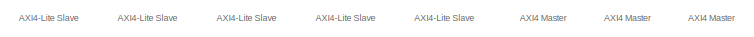
[diagram: root canvas - part 1/3, top center region]
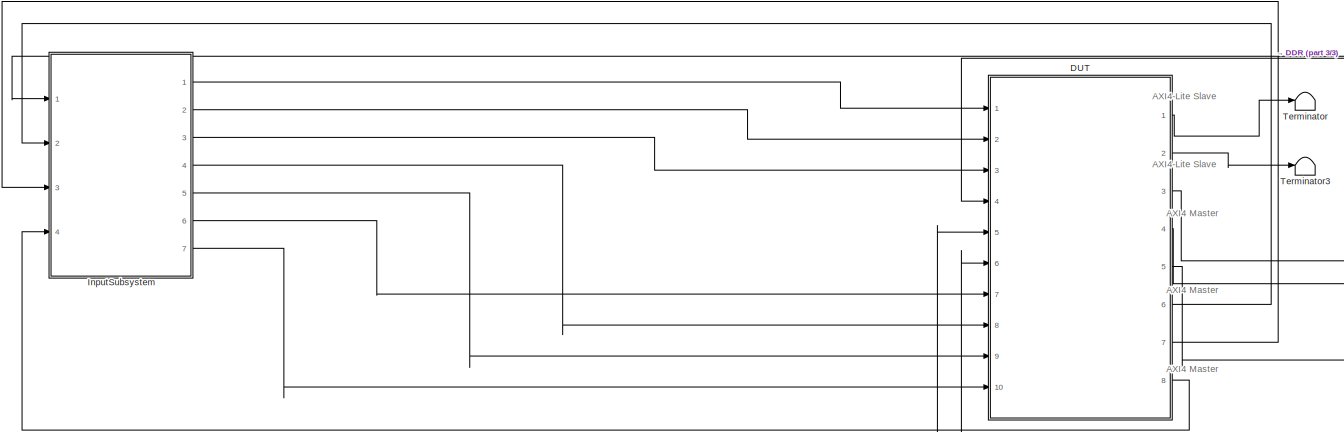
[diagram: root canvas - part 2/3, middle left region]
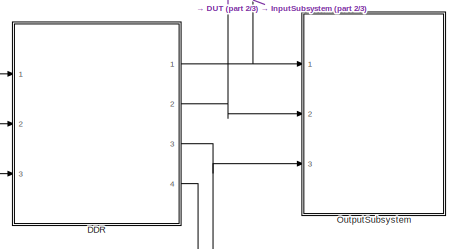
[diagram: root canvas - part 3/3, bottom right region]
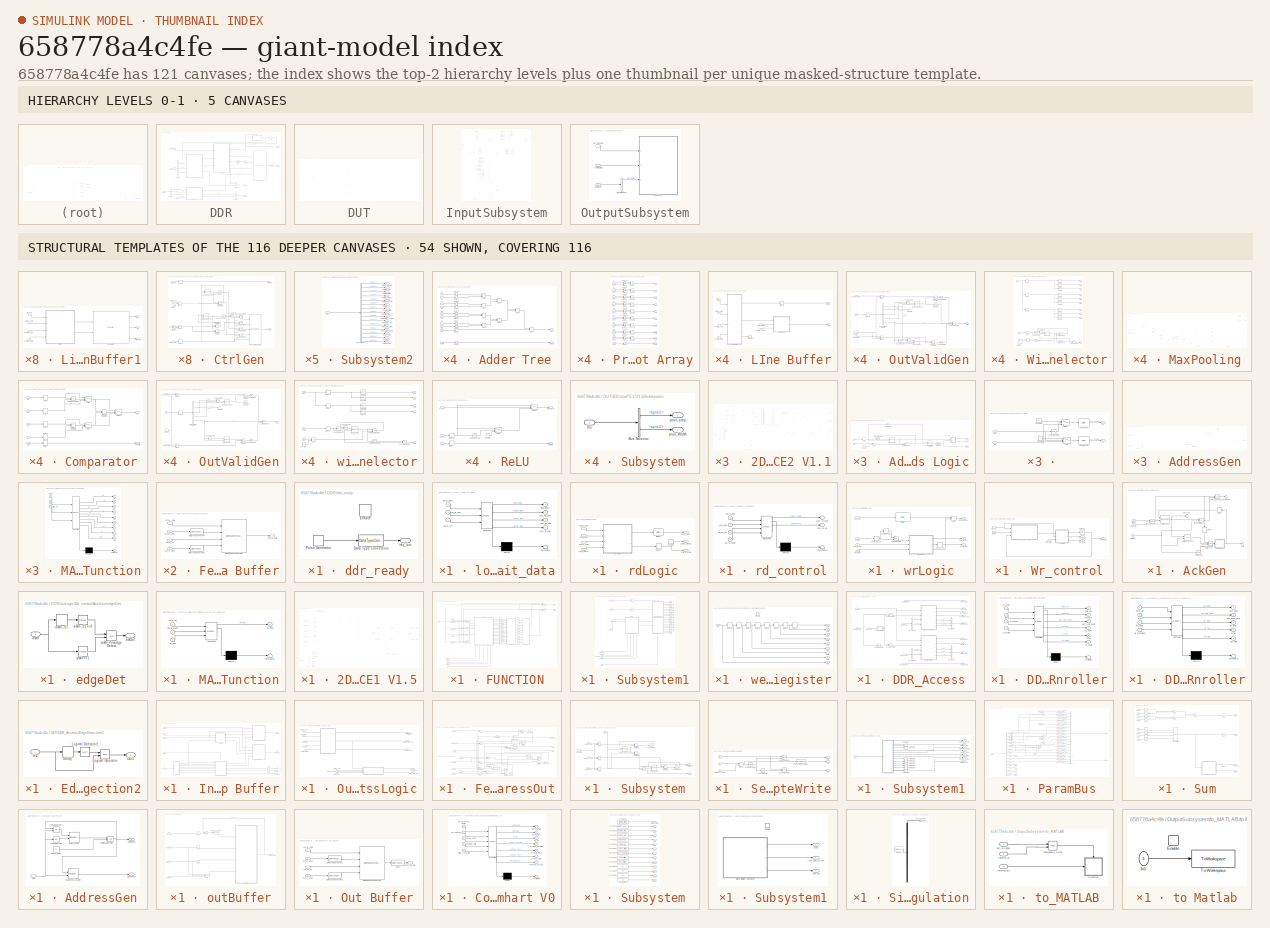
[diagram: thumbnail index - top-2 hierarchy levels (5 canvases) + 54 structural-template representatives of the remaining 116 canvases]
MODEL slx_658778a4c4fe
KIND model
CONFIG AbsTol = auto
CONFIG EnableMultiTasking = off
CONFIG FixedStep = auto
CONFIG InitFcn = Feature_Width = 64;\nFeature_Height = 64;\nWeight_Width = 3;\nWeight_Height = 3;\nexternal_memory_test_init;\n
CONFIG MaxStep = auto
CONFIG MinStep = auto
CONFIG RelTol = 1e-3
CONFIG SampleTimeConstraint = Unconstrained
CONFIG SolverName = FixedStepDiscrete
CONFIG StartTime = 0.0
CONFIG StopTime = 80
BLOCK [SubSystem] DDR
  Ports = [3, 4]
  RequestExecContextInheritance = off
  ShowPortLabels = FromPortBlockName
BLOCK [Reference] DDR/Bit Slice1  REF=hdlsllib/Logic and Bit
Operations/Bit Slice
  Ports = [1, 1]
  SourceBlock = hdlsllib/Logic and Bit\nOperations/Bit Slice
  SourceProductName = HDL Coder
  SourceType = Bit Slice
BLOCK [BusCreator] DDR/Bus Creator
  DisplayOption = bar
  InheritFromInputs = on
  Inputs = 2
  Ports = [2, 1]
BLOCK [BusCreator] DDR/Bus Creator1
  DisplayOption = bar
  InheritFromInputs = on
  Inputs = 2
  Ports = [2, 1]
BLOCK [BusSelector] DDR/Bus Selector
  OutputSignals = rd_addr,rd_len,rd_avalid
  Ports = [1, 3]
BLOCK [BusSelector] DDR/Bus Selector1
  OutputSignals = wr_addr,wr_len,wr_valid
  Ports = [1, 3]
BLOCK [Constant] DDR/Constant
  OutDataTypeStr = boolean
  SampleTime = -1
BLOCK [Delay] DDR/Delay
  InputPortMap = u0
  Ports = [1, 1]
BLOCK [Delay] DDR/Delay1
  DelayLength = 1
  InputPortMap = u0
  Ports = [1, 1]
BLOCK [Delay] DDR/Delay2
  DelayLength = 1
  InputPortMap = u0
  Ports = [1, 1]
BLOCK [Delay] DDR/Delay3
  DelayLength = 1
  InputPortMap = u0
  Ports = [1, 1]
BLOCK [MATLABSystem] DDR/MATLAB System
  MaskDisplay = disp(['Simple' char(10) 'Dual Port' char(10) 'RAM']);\nport_label('input',1,'din');\nport_label('input',2,'wr_addr');\nport_label('input',3,'wr_en');\nport_label('input',4,'rd_addr');\nport_label('output',1,'rd_dout');
  MaskType = hdl.RAM
  Ports = [4, 1]
  RAMInitialValue = 0
  RAMType = Simple dual port
  SimulateUsing = Code generation
  System = hdl.RAM
  WriteOutputValue = New data
BLOCK [Outport] DDR/axi_rd_data
  OutDataTypeStr = uint32
  Port = 2
  VectorParamsAs1DForOutWhenUnconnected = off
BLOCK [Inport] DDR/axi_rd_m2s
BLOCK [Outport] DDR/axi_rd_s2m
  Port = 3
  VectorParamsAs1DForOutWhenUnconnected = off
BLOCK [Inport] DDR/axi_wr_data
  OutDataTypeStr = uint32
  Port = 2
BLOCK [Inport] DDR/axi_wr_m2s
  Port = 3
BLOCK [Outport] DDR/axi_wr_s2m
  Port = 4
  VectorParamsAs1DForOutWhenUnconnected = off
BLOCK [SubSystem] DDR/ddr_ready
  Ports = [0, 1, 1]
  RequestExecContextInheritance = off
BLOCK [DataTypeConversion] DDR/ddr_ready/Data Type Conversion
  OutDataTypeStr = boolean
  RndMeth = Floor
  SaturateOnIntegerOverflow = off
BLOCK [EnablePort] DDR/ddr_ready/Enable
  Ports = []
BLOCK [DiscretePulseGenerator] DDR/ddr_ready/Pulse Generator
  Period = 1000
  Ports = [0, 1]
  PulseWidth = 1000 * READY_DUTY_CYL
  SampleTime = -1
BLOCK [Outport] DDR/ddr_ready/rdy_out
  VectorParamsAs1DForOutWhenUnconnected = off
BLOCK [Outport] DDR/load_done
  VectorParamsAs1DForOutWhenUnconnected = off
BLOCK [SubSystem] DDR/load_init_data
  ErrorFcn = Stateflow.Translate.translate
  PermitHierarchicalResolution = ExplicitOnly
  Ports = [3, 4]
  RequestExecContextInheritance = off
  SFBlockType = MATLAB Function
  TreatAsAtomicUnit = on
BLOCK [Demux] DDR/load_init_data/ Demux 
  Outputs = 1
  Ports = [1, 1]
BLOCK [S-Function] DDR/load_init_data/ SFunction 
  EnableBusSupport = on
  FunctionName = sf_sfun
  Parameters = DDR3_DEPTH,INIT_ADDR,INIT_DATA,INIT_DDR3
  PortCounts = [3 5]
  Ports = [3, 5]
  SFcnIsStateOwnerBlock = off
  SFunctionDeploymentMode = off
  Tag = Stateflow S-Function 2
BLOCK [Terminator] DDR/load_init_data/ Terminator 
BLOCK [Inport] DDR/load_init_data/axi_wr_add
  Port = 2
BLOCK [Inport] DDR/load_init_data/axi_wr_data
BLOCK [Inport] DDR/load_init_data/axi_wr_val
  Port = 3
BLOCK [Outport] DDR/load_init_data/load_done
  VectorParamsAs1DForOutWhenUnconnected = off
BLOCK [Outport] DDR/load_init_data/ram_wr_add
  Port = 3
  VectorParamsAs1DForOutWhenUnconnected = off
BLOCK [Outport] DDR/load_init_data/ram_wr_data
  Port = 2
  VectorParamsAs1DForOutWhenUnconnected = off
BLOCK [Outport] DDR/load_init_data/ram_wr_enb
  Port = 4
  VectorParamsAs1DForOutWhenUnconnected = off
BLOCK [SubSystem] DDR/rdLogic
  Ports = [4, 3]
  RequestExecContextInheritance = off
BLOCK [Reference] DDR/rdLogic/Bit Slice1  REF=hdlsllib/Logic and Bit
Operations/Bit Slice
  Ports = [1, 1]
  SourceBlock = hdlsllib/Logic and Bit\nOperations/Bit Slice
  SourceProductName = HDL Coder
  SourceType = Bit Slice
BLOCK [Constant] DDR/rdLogic/Constant
  OutDataTypeStr = boolean
  SampleTime = -1
BLOCK [Delay] DDR/rdLogic/Delay2
  InputPortMap = u0
  Ports = [1, 1]
BLOCK [Inport] DDR/rdLogic/axi_rd_dready
  Port = 4
BLOCK [Inport] DDR/rdLogic/axim_rd_addr
BLOCK [Outport] DDR/rdLogic/axim_rd_aready
  Port = 2
  VectorParamsAs1DForOutWhenUnconnected = off
BLOCK [Inport] DDR/rdLogic/axim_rd_avalid
  Port = 3
BLOCK [Outport] DDR/rdLogic/axim_rd_dvalid
  Port = 3
  VectorParamsAs1DForOutWhenUnconnected = off
BLOCK [Inport] DDR/rdLogic/axim_rd_len
  Port = 2
BLOCK [Outport] DDR/rdLogic/ram_rd_addr
  VectorParamsAs1DForOutWhenUnconnected = off
BLOCK [SubSystem] DDR/rdLogic/rd_control
  ErrorFcn = Stateflow.Translate.translate
  PermitHierarchicalResolution = ExplicitOnly
  Ports = [4, 2]
  RequestExecContextInheritance = off
  SFBlockType = MATLAB Function
  TreatAsAtomicUnit = on
BLOCK [Demux] DDR/rdLogic/rd_control/ Demux 
  Outputs = 1
  Ports = [1, 1]
BLOCK [S-Function] DDR/rdLogic/rd_control/ SFunction 
  EnableBusSupport = on
  FunctionName = sf_sfun
  Parameters = toggle
  PortCounts = [4 3]
  Ports = [4, 3]
  SFcnIsStateOwnerBlock = off
  SFunctionDeploymentMode = off
  Tag = Stateflow S-Function 4
BLOCK [Terminator] DDR/rdLogic/rd_control/ Terminator 
BLOCK [Inport] DDR/rdLogic/rd_control/axi_rd_add
BLOCK [Inport] DDR/rdLogic/rd_control/axi_rd_len
  Port = 2
BLOCK [Inport] DDR/rdLogic/rd_control/axi_rd_ready
  Port = 4
BLOCK [Inport] DDR/rdLogic/rd_control/axi_rd_val
  Port = 3
BLOCK [Outport] DDR/rdLogic/rd_control/ram_rd_addr
  VectorParamsAs1DForOutWhenUnconnected = off
BLOCK [Outport] DDR/rdLogic/rd_control/ram_rd_val
  Port = 2
  VectorParamsAs1DForOutWhenUnconnected = off
BLOCK [SubSystem] DDR/wrLogic
  Ports = [4, 3]
  RequestExecContextInheritance = off
BLOCK [Sum] DDR/wrLogic/Add
  AccumDataTypeStr = uint32
  IconShape = rectangular
  Ports = [2, 1]
BLOCK [Reference] DDR/wrLogic/Bit Shift  REF=hdlsllib/Logic and Bit
Operations/Bit Shift
  Ports = [1, 1]
  SourceBlock = hdlsllib/Logic and Bit\nOperations/Bit Shift
  SourceProductName = HDL Coder
  SourceType = Bit Shift
BLOCK [Logic] DDR/wrLogic/Logical Operator
  AllPortsSameDT = off
  IconShape = distinctive
  Operator = OR
  OutDataTypeStr = boolean
  Ports = [2, 1]
BLOCK [SubSystem] DDR/wrLogic/Wr_control
  Ports = [3, 3]
  RequestExecContextInheritance = off
BLOCK [SubSystem] DDR/wrLogic/Wr_control/AckGen
  Ports = [3, 3]
  RequestExecContextInheritance = off
BLOCK [Delay] DDR/wrLogic/Wr_control/AckGen/Delay
  DelayLength = 1
  InputPortMap = u0
  Ports = [1, 1]
BLOCK [Delay] DDR/wrLogic/Wr_control/AckGen/Delay1
  DelayLength = 1
  InputPortMap = u0
  NameLocation = right
  Ports = [1, 1]
BLOCK [Outport] DDR/wrLogic/Wr_control/AckGen/ValAddEnb
  NameLocation = top
  Port = 2
  VectorParamsAs1DForOutWhenUnconnected = off
BLOCK [Reference] DDR/wrLogic/Wr_control/AckGen/ValwrLenCnt  REF=hdlsllib/Sources/HDL Counter
  Ports = [2, 1]
  SourceBlock = hdlsllib/Sources/HDL Counter
  SourceProductName = HDL Coder
  SourceType = HDL Counter
BLOCK [Outport] DDR/wrLogic/Wr_control/AckGen/ack
  NameLocation = top
  VectorParamsAs1DForOutWhenUnconnected = off
BLOCK [Inport] DDR/wrLogic/Wr_control/AckGen/axiWrLen
  NameLocation = top
BLOCK [Reference] DDR/wrLogic/Wr_control/AckGen/axiWrLen!=0  REF=simulink/Logic and Bit
Operations/Compare
To Constant
  Ports = [1, 1]
  SourceBlock = simulink/Logic and Bit\nOperations/Compare\nTo Constant
  SourceProductBaseCode = SL
  SourceType = Compare To Constant
BLOCK [Logic] DDR/wrLogic/Wr_control/AckGen/axiWrLen-1==cnt & axiWrLen!=0 
  AllPortsSameDT = off
  IconShape = distinctive
  Inputs = 3
  OutDataTypeStr = boolean
  Ports = [3, 1]
BLOCK [RelationalOperator] DDR/wrLogic/Wr_control/AckGen/axiWrLen==cnt+1
  InputSameDT = off
  Operator = ==
  OutDataTypeStr = boolean
  Ports = [2, 1]
BLOCK [Inport] DDR/wrLogic/Wr_control/AckGen/ddr_wr_rdy
  Port = 3
BLOCK [SubSystem] DDR/wrLogic/Wr_control/AckGen/edgeDet
  Ports = [1, 1]
  RequestExecContextInheritance = off
BLOCK [Reference] DDR/wrLogic/Wr_control/AckGen/edgeDet/ ackIn==1  REF=simulink/Logic and Bit
Operations/Compare
To Constant
  Ports = [1, 1]
  SourceBlock = simulink/Logic and Bit\nOperations/Compare\nTo Constant
  SourceProductBaseCode = SL
  SourceType = Compare To Constant
BLOCK [Inport] DDR/wrLogic/Wr_control/AckGen/edgeDet/ackIn
BLOCK [Logic] DDR/wrLogic/Wr_control/AckGen/edgeDet/ackIn Posedge Detect
  AllPortsSameDT = off
  IconShape = distinctive
  OutDataTypeStr = boolean
  Ports = [2, 1]
BLOCK [Delay] DDR/wrLogic/Wr_control/AckGen/edgeDet/ackIn_d1
  DelayLength = 1
  InputPortMap = u0
  Ports = [1, 1]
BLOCK [Reference] DDR/wrLogic/Wr_control/AckGen/edgeDet/ackIn_d1==0  REF=simulink/Logic and Bit
Operations/Compare
To Constant
  Ports = [1, 1]
  SourceBlock = simulink/Logic and Bit\nOperations/Compare\nTo Constant
  SourceProductBaseCode = SL
  SourceType = Compare To Constant
BLOCK [Outport] DDR/wrLogic/Wr_control/AckGen/edgeDet/ackOut
  VectorParamsAs1DForOutWhenUnconnected = off
BLOCK [RelationalOperator] DDR/wrLogic/Wr_control/AckGen/if cnt < axiWrLen
  InputSameDT = off
  Operator = <=
  OutDataTypeStr = boolean
  Ports = [2, 1]
BLOCK [Outport] DDR/wrLogic/Wr_control/AckGen/ram_addr
  NameLocation = top
  Port = 3
  VectorParamsAs1DForOutWhenUnconnected = off
BLOCK [Logic] DDR/wrLogic/Wr_control/AckGen/ram_wr_enb cond
  AllPortsSameDT = off
  IconShape = distinctive
  OutDataTypeStr = boolean
  Ports = [2, 1]
BLOCK [Logic] DDR/wrLogic/Wr_control/AckGen/ram_wr_enb cond1
  AllPortsSameDT = off
  IconShape = distinctive
  OutDataTypeStr = boolean
  Ports = [2, 1]
BLOCK [Inport] DDR/wrLogic/Wr_control/AckGen/wrEnb
  Port = 2
BLOCK [SubSystem] DDR/wrLogic/Wr_control/MATLAB Function
  ErrorFcn = Stateflow.Translate.translate
  PermitHierarchicalResolution = ExplicitOnly
  Ports = [3, 1]
  RequestExecContextInheritance = off
  SFBlockType = MATLAB Function
  TreatAsAtomicUnit = on
BLOCK [Demux] DDR/wrLogic/Wr_control/MATLAB Function/ Demux 
  Outputs = 1
  Ports = [1, 1]
BLOCK [S-Function] DDR/wrLogic/Wr_control/MATLAB Function/ SFunction 
  EnableBusSupport = on
  FunctionName = sf_sfun
  PortCounts = [3 2]
  Ports = [3, 2]
  SFcnIsStateOwnerBlock = off
  SFunctionDeploymentMode = off
  Tag = Stateflow S-Function 3
BLOCK [Terminator] DDR/wrLogic/Wr_control/MATLAB Function/ Terminator 
BLOCK [Inport] DDR/wrLogic/Wr_control/MATLAB Function/axi_wr_en
BLOCK [Inport] DDR/wrLogic/Wr_control/MATLAB Function/axi_wr_length
  Port = 2
BLOCK [Inport] DDR/wrLogic/Wr_control/MATLAB Function/wr_ack
  Port = 3
BLOCK [Outport] DDR/wrLogic/Wr_control/MATLAB Function/wr_leng
  VectorParamsAs1DForOutWhenUnconnected = off
BLOCK [UnitDelay] DDR/wrLogic/Wr_control/Unit Delay
  HasFrameUpgradeWarning = on
  SampleTime = -1
BLOCK [Outport] DDR/wrLogic/Wr_control/axim_ack
  Port = 2
  VectorParamsAs1DForOutWhenUnconnected = off
BLOCK [Inport] DDR/wrLogic/Wr_control/ddr_wr_rdy
BLOCK [Outport] DDR/wrLogic/Wr_control/ram_addr
  Port = 3
  VectorParamsAs1DForOutWhenUnconnected = off
BLOCK [Outport] DDR/wrLogic/Wr_control/valAddEnb
  VectorParamsAs1DForOutWhenUnconnected = off
BLOCK [Inport] DDR/wrLogic/Wr_control/wr_enb
  Port = 2
BLOCK [Inport] DDR/wrLogic/Wr_control/wr_len
  Port = 3
BLOCK [Inport] DDR/wrLogic/axi_addr
  Port = 2
BLOCK [Outport] DDR/wrLogic/axi_wr_ack
  Port = 3
  VectorParamsAs1DForOutWhenUnconnected = off
BLOCK [Inport] DDR/wrLogic/axi_wr_enb
  Port = 4
BLOCK [Inport] DDR/wrLogic/axi_wr_len
  Port = 3
BLOCK [Delay] DDR/wrLogic/ddr_ack_d1
  DelayLength = 1
  InputPortMap = u0
  Ports = [1, 1]
BLOCK [Inport] DDR/wrLogic/ddr_rdy
BLOCK [Delay] DDR/wrLogic/ddr_reday_d1
  DelayLength = 1
  InputPortMap = u0
  Ports = [1, 1]
BLOCK [Delay] DDR/wrLogic/ddr_reday_d6
  DelayLength = 4
  InputPortMap = u0
  Ports = [1, 1]
BLOCK [Outport] DDR/wrLogic/ram_wr_addr
  VectorParamsAs1DForOutWhenUnconnected = off
BLOCK [Outport] DDR/wrLogic/ram_wr_enb
  Port = 2
  VectorParamsAs1DForOutWhenUnconnected = off
BLOCK [Delay] DDR/wr_addr-3
  DelayLength = 1
  InputPortMap = u0
  Ports = [1, 1]
BLOCK [SubSystem] DUT
  Ports = [10, 8]
  RequestExecContextInheritance = off
  ShowPortLabels = FromPortBlockName
  TreatAsAtomicUnit = on
BLOCK [SubSystem] DUT/2DConvPE1 V1.5
  PortSchema = {"entries":[{"content":{"sides":[{"content":{"connectorIds":["In1","In2","In3","In4","In5","In6"]},"type":"ConnectorPlacement.EquallySpacedRectSide","uuid":"72a132f7-3e47-4ef1-8d79-baadbeb84817"},{"content":{"connectorIds":["Out1","Out2"],"side":"RIGHT"},"type":"ConnectorPlacement.EquallySpacedRectSide","uuid":"2df9bf31-2175-4d97-aafa-a0227f37f2af"},{"content":{"connectorIds":["In7","In8"],"side":...<+576ch>
  Ports = [8, 2]
  RequestExecContextInheritance = off
BLOCK [BusSelector] DUT/2DConvPE1 V1.5/Bus Selector
  OutputSignals = signal1,signal2,signal3
  Ports = [1, 3]
BLOCK [Inport] DUT/2DConvPE1 V1.5/Conv_en
  Port = 7
BLOCK [Delay] DUT/2DConvPE1 V1.5/Delay
  DelayLength = 1
  InputPortMap = u0
  Ports = [1, 1]
BLOCK [Delay] DUT/2DConvPE1 V1.5/Delay1
  DelayLength = 1
  InputPortMap = u0
  Ports = [1, 1]
BLOCK [Delay] DUT/2DConvPE1 V1.5/Delay2
  DelayLength = 1
  InputPortMap = u0
  Ports = [1, 1]
BLOCK [Delay] DUT/2DConvPE1 V1.5/Delay3
  DelayLength = 1
  InputPortMap = u0
  Ports = [1, 1]
BLOCK [Delay] DUT/2DConvPE1 V1.5/Delay35
  DelayLength = 1
  InputPortMap = u0
  Ports = [1, 1]
BLOCK [Delay] DUT/2DConvPE1 V1.5/Delay36
  DelayLength = 1
  InputPortMap = u0
  Ports = [1, 1]
BLOCK [Delay] DUT/2DConvPE1 V1.5/Delay37
  DelayLength = 1
  InputPortMap = u0
  Ports = [1, 1]
BLOCK [Delay] DUT/2DConvPE1 V1.5/Delay38
  DelayLength = 1
  InputPortMap = u0
  Ports = [1, 1]
BLOCK [Delay] DUT/2DConvPE1 V1.5/Delay39
  DelayLength = 1
  InputPortMap = u0
  Ports = [1, 1]
BLOCK [Delay] DUT/2DConvPE1 V1.5/Delay41
  DelayLength = 1
  InputPortMap = u0
  Ports = [1, 1]
BLOCK [SubSystem] DUT/2DConvPE1 V1.5/FUNCTION
  NameLocation = left
  PortSchema = {"entries":[{"content":{"sides":[{"content":{"connectorIds":["In1","In2","In3","In4"]},"type":"ConnectorPlacement.EquallySpacedRectSide","uuid":"bed083cc-10ce-4f46-a724-2c2c82e71793"},{"content":{"connectorIds":["Out1","Out2"],"side":"RIGHT"},"type":"ConnectorPlacement.EquallySpacedRectSide","uuid":"c0d53dd0-88dc-4789-a28b-52aa625e6829"},{"content":{"connectorIds":["In5"],"side":"TOP"},"type":"Con...<+588ch>
  Ports = [10, 2]
  RequestExecContextInheritance = off
BLOCK [SubSystem] DUT/2DConvPE1 V1.5/FUNCTION/Adder Tree
  Ports = [10, 2]
  RequestExecContextInheritance = off
BLOCK [Sum] DUT/2DConvPE1 V1.5/FUNCTION/Adder Tree/Add
  IconShape = rectangular
  Ports = [2, 1]
BLOCK [Sum] DUT/2DConvPE1 V1.5/FUNCTION/Adder Tree/Add1
  IconShape = rectangular
  Ports = [2, 1]
BLOCK [Sum] DUT/2DConvPE1 V1.5/FUNCTION/Adder Tree/Add10
  IconShape = rectangular
  Ports = [2, 1]
BLOCK [Sum] DUT/2DConvPE1 V1.5/FUNCTION/Adder Tree/Add2
  IconShape = rectangular
  Ports = [2, 1]
BLOCK [Sum] DUT/2DConvPE1 V1.5/FUNCTION/Adder Tree/Add3
  IconShape = rectangular
  Ports = [2, 1]
BLOCK [Sum] DUT/2DConvPE1 V1.5/FUNCTION/Adder Tree/Add4
  IconShape = rectangular
  Ports = [2, 1]
BLOCK [Sum] DUT/2DConvPE1 V1.5/FUNCTION/Adder Tree/Add5
  IconShape = rectangular
  Ports = [2, 1]
BLOCK [Sum] DUT/2DConvPE1 V1.5/FUNCTION/Adder Tree/Add6
  IconShape = rectangular
  Ports = [2, 1]
BLOCK [Delay] DUT/2DConvPE1 V1.5/FUNCTION/Adder Tree/Delay1
  DelayLength = 1
  InputPortMap = u0
  Ports = [1, 1]
BLOCK [Delay] DUT/2DConvPE1 V1.5/FUNCTION/Adder Tree/Delay2
  DelayLength = 1
  InputPortMap = u0
  Ports = [1, 1]
BLOCK [Delay] DUT/2DConvPE1 V1.5/FUNCTION/Adder Tree/Delay3
  DelayLength = 1
  InputPortMap = u0
  Ports = [1, 1]
BLOCK [Delay] DUT/2DConvPE1 V1.5/FUNCTION/Adder Tree/Delay35
  DelayLength = 1
  InputPortMap = u0
  Ports = [1, 1]
BLOCK [Delay] DUT/2DConvPE1 V1.5/FUNCTION/Adder Tree/Delay4
  DelayLength = 1
  InputPortMap = u0
  Ports = [1, 1]
BLOCK [Delay] DUT/2DConvPE1 V1.5/FUNCTION/Adder Tree/Delay5
  DelayLength = 1
  InputPortMap = u0
  Ports = [1, 1]
BLOCK [Delay] DUT/2DConvPE1 V1.5/FUNCTION/Adder Tree/Delay6
  DelayLength = 1
  InputPortMap = u0
  Ports = [1, 1]
BLOCK [Delay] DUT/2DConvPE1 V1.5/FUNCTION/Adder Tree/Delay7
  DelayLength = 1
  InputPortMap = u0
  Ports = [1, 1]
BLOCK [Delay] DUT/2DConvPE1 V1.5/FUNCTION/Adder Tree/Delay8
  DelayLength = 1
  InputPortMap = u0
  Ports = [1, 1]
BLOCK [Delay] DUT/2DConvPE1 V1.5/FUNCTION/Adder Tree/Delay9
  DelayLength = 1
  InputPortMap = u0
  Ports = [1, 1]
BLOCK [Inport] DUT/2DConvPE1 V1.5/FUNCTION/Adder Tree/In1
BLOCK [Inport] DUT/2DConvPE1 V1.5/FUNCTION/Adder Tree/In2
  Port = 2
BLOCK [Inport] DUT/2DConvPE1 V1.5/FUNCTION/Adder Tree/In3
  Port = 3
BLOCK [Inport] DUT/2DConvPE1 V1.5/FUNCTION/Adder Tree/In4
  Port = 4
BLOCK [Inport] DUT/2DConvPE1 V1.5/FUNCTION/Adder Tree/In5
  Port = 5
BLOCK [Inport] DUT/2DConvPE1 V1.5/FUNCTION/Adder Tree/In6
  Port = 6
BLOCK [Inport] DUT/2DConvPE1 V1.5/FUNCTION/Adder Tree/In7
  Port = 7
BLOCK [Inport] DUT/2DConvPE1 V1.5/FUNCTION/Adder Tree/In8
  Port = 8
BLOCK [Inport] DUT/2DConvPE1 V1.5/FUNCTION/Adder Tree/In9
  Port = 9
BLOCK [Outport] DUT/2DConvPE1 V1.5/FUNCTION/Adder Tree/dataOut
BLOCK [Inport] DUT/2DConvPE1 V1.5/FUNCTION/Adder Tree/validIn
  Port = 10
BLOCK [Outport] DUT/2DConvPE1 V1.5/FUNCTION/Adder Tree/validOut
  Port = 2
BLOCK [Constant] DUT/2DConvPE1 V1.5/FUNCTION/Constant
  Value = ZERO
BLOCK [Delay] DUT/2DConvPE1 V1.5/FUNCTION/Delay10
  DelayLength = 1
  InputPortMap = u0
  Ports = [1, 1]
BLOCK [Delay] DUT/2DConvPE1 V1.5/FUNCTION/Delay11
  DelayLength = 1
  InputPortMap = u0
  Ports = [1, 1]
BLOCK [Delay] DUT/2DConvPE1 V1.5/FUNCTION/Delay12
  DelayLength = 1
  InputPortMap = u0
  Ports = [1, 1]
BLOCK [Delay] DUT/2DConvPE1 V1.5/FUNCTION/Delay13
  DelayLength = 1
  InputPortMap = u0
  Ports = [1, 1]
BLOCK [Delay] DUT/2DConvPE1 V1.5/FUNCTION/Delay14
  DelayLength = 1
  InputPortMap = u0
  Ports = [1, 1]
BLOCK [Delay] DUT/2DConvPE1 V1.5/FUNCTION/Delay15
  DelayLength = 1
  InputPortMap = u0
  Ports = [1, 1]
BLOCK [Delay] DUT/2DConvPE1 V1.5/FUNCTION/Delay16
  DelayLength = 1
  InputPortMap = u0
  Ports = [1, 1]
BLOCK [Delay] DUT/2DConvPE1 V1.5/FUNCTION/Delay17
  DelayLength = 1
  InputPortMap = u0
  Ports = [1, 1]
BLOCK [Delay] DUT/2DConvPE1 V1.5/FUNCTION/Delay18
  DelayLength = 1
  InputPortMap = u0
  Ports = [1, 1]
BLOCK [Delay] DUT/2DConvPE1 V1.5/FUNCTION/Delay19
  DelayLength = 1
  InputPortMap = u0
  Ports = [1, 1]
BLOCK [Delay] DUT/2DConvPE1 V1.5/FUNCTION/Delay20
  DelayLength = 1
  InputPortMap = u0
  Ports = [1, 1]
BLOCK [Delay] DUT/2DConvPE1 V1.5/FUNCTION/Delay21
  DelayLength = 1
  InputPortMap = u0
  Ports = [1, 1]
BLOCK [Delay] DUT/2DConvPE1 V1.5/FUNCTION/Delay22
  DelayLength = 1
  InputPortMap = u0
  Ports = [1, 1]
BLOCK [Delay] DUT/2DConvPE1 V1.5/FUNCTION/Delay23
  DelayLength = 1
  InputPortMap = u0
  Ports = [1, 1]
BLOCK [Delay] DUT/2DConvPE1 V1.5/FUNCTION/Delay24
  DelayLength = 1
  InputPortMap = u0
  Ports = [1, 1]
BLOCK [Delay] DUT/2DConvPE1 V1.5/FUNCTION/Delay25
  DelayLength = 1
  InputPortMap = u0
  Ports = [1, 1]
BLOCK [Delay] DUT/2DConvPE1 V1.5/FUNCTION/Delay26
  DelayLength = 1
  InputPortMap = u0
  Ports = [1, 1]
BLOCK [Delay] DUT/2DConvPE1 V1.5/FUNCTION/Delay27
  DelayLength = 1
  InputPortMap = u0
  Ports = [1, 1]
BLOCK [Delay] DUT/2DConvPE1 V1.5/FUNCTION/Delay28
  DelayLength = 1
  InputPortMap = u0
  Ports = [1, 1]
BLOCK [Delay] DUT/2DConvPE1 V1.5/FUNCTION/Delay29
  DelayLength = 1
  InputPortMap = u0
  Ports = [1, 1]
BLOCK [Delay] DUT/2DConvPE1 V1.5/FUNCTION/Delay30
  DelayLength = 1
  InputPortMap = u0
  Ports = [1, 1]
BLOCK [Delay] DUT/2DConvPE1 V1.5/FUNCTION/Delay31
  DelayLength = 1
  InputPortMap = u0
  Ports = [1, 1]
BLOCK [Delay] DUT/2DConvPE1 V1.5/FUNCTION/Delay32
  DelayLength = 1
  InputPortMap = u0
  Ports = [1, 1]
BLOCK [Delay] DUT/2DConvPE1 V1.5/FUNCTION/Delay33
  DelayLength = 1
  InputPortMap = u0
  Ports = [1, 1]
BLOCK [Delay] DUT/2DConvPE1 V1.5/FUNCTION/Delay34
  DelayLength = 1
  InputPortMap = u0
  Ports = [1, 1]
BLOCK [Delay] DUT/2DConvPE1 V1.5/FUNCTION/Delay6
  DelayLength = 1
  InputPortMap = u0
  Ports = [1, 1]
BLOCK [Delay] DUT/2DConvPE1 V1.5/FUNCTION/Delay7
  DelayLength = 1
  InputPortMap = u0
  Ports = [1, 1]
BLOCK [Delay] DUT/2DConvPE1 V1.5/FUNCTION/Delay8
  DelayLength = 1
  InputPortMap = u0
  Ports = [1, 1]
BLOCK [Delay] DUT/2DConvPE1 V1.5/FUNCTION/Delay9
  DelayLength = 1
  InputPortMap = u0
  Ports = [1, 1]
BLOCK [Inport] DUT/2DConvPE1 V1.5/FUNCTION/Feature_Area
  Port = 7
BLOCK [Inport] DUT/2DConvPE1 V1.5/FUNCTION/Feature_Height
  Port = 9
BLOCK [Inport] DUT/2DConvPE1 V1.5/FUNCTION/Feature_Width
  Port = 8
BLOCK [SubSystem] DUT/2DConvPE1 V1.5/FUNCTION/Product Array
  Ports = [19, 10]
  RequestExecContextInheritance = off
BLOCK [Delay] DUT/2DConvPE1 V1.5/FUNCTION/Product Array/Delay1
  DelayLength = 1
  InputPortMap = u0
  Ports = [1, 1]
BLOCK [Delay] DUT/2DConvPE1 V1.5/FUNCTION/Product Array/Delay10
  DelayLength = 1
  InputPortMap = u0
  Ports = [1, 1]
BLOCK [Delay] DUT/2DConvPE1 V1.5/FUNCTION/Product Array/Delay11
  DelayLength = 1
  InputPortMap = u0
  Ports = [1, 1]
BLOCK [Delay] DUT/2DConvPE1 V1.5/FUNCTION/Product Array/Delay12
  DelayLength = 1
  InputPortMap = u0
  Ports = [1, 1]
BLOCK [Delay] DUT/2DConvPE1 V1.5/FUNCTION/Product Array/Delay13
  DelayLength = 1
  InputPortMap = u0
  Ports = [1, 1]
BLOCK [Delay] DUT/2DConvPE1 V1.5/FUNCTION/Product Array/Delay14
  DelayLength = 1
  InputPortMap = u0
  Ports = [1, 1]
BLOCK [Delay] DUT/2DConvPE1 V1.5/FUNCTION/Product Array/Delay15
  DelayLength = 1
  InputPortMap = u0
  Ports = [1, 1]
BLOCK [Delay] DUT/2DConvPE1 V1.5/FUNCTION/Product Array/Delay16
  DelayLength = 1
  InputPortMap = u0
  Ports = [1, 1]
BLOCK [Delay] DUT/2DConvPE1 V1.5/FUNCTION/Product Array/Delay17
  DelayLength = 1
  InputPortMap = u0
  Ports = [1, 1]
BLOCK [Delay] DUT/2DConvPE1 V1.5/FUNCTION/Product Array/Delay19
  DelayLength = 1
  InputPortMap = u0
  Ports = [1, 1]
BLOCK [Delay] DUT/2DConvPE1 V1.5/FUNCTION/Product Array/Delay2
  DelayLength = 1
  InputPortMap = u0
  Ports = [1, 1]
BLOCK [Delay] DUT/2DConvPE1 V1.5/FUNCTION/Product Array/Delay3
  DelayLength = 1
  InputPortMap = u0
  Ports = [1, 1]
BLOCK [Delay] DUT/2DConvPE1 V1.5/FUNCTION/Product Array/Delay35
  DelayLength = 1
  InputPortMap = u0
  Ports = [1, 1]
BLOCK [Delay] DUT/2DConvPE1 V1.5/FUNCTION/Product Array/Delay4
  DelayLength = 1
  InputPortMap = u0
  Ports = [1, 1]
BLOCK [Delay] DUT/2DConvPE1 V1.5/FUNCTION/Product Array/Delay5
  DelayLength = 1
  InputPortMap = u0
  Ports = [1, 1]
BLOCK [Delay] DUT/2DConvPE1 V1.5/FUNCTION/Product Array/Delay6
  DelayLength = 1
  InputPortMap = u0
  Ports = [1, 1]
BLOCK [Delay] DUT/2DConvPE1 V1.5/FUNCTION/Product Array/Delay7
  DelayLength = 1
  InputPortMap = u0
  Ports = [1, 1]
BLOCK [Delay] DUT/2DConvPE1 V1.5/FUNCTION/Product Array/Delay8
  DelayLength = 1
  InputPortMap = u0
  Ports = [1, 1]
BLOCK [Delay] DUT/2DConvPE1 V1.5/FUNCTION/Product Array/Delay9
  DelayLength = 1
  InputPortMap = u0
  Ports = [1, 1]
BLOCK [Inport] DUT/2DConvPE1 V1.5/FUNCTION/Product Array/In1
BLOCK [Inport] DUT/2DConvPE1 V1.5/FUNCTION/Product Array/In10
  Port = 10
BLOCK [Inport] DUT/2DConvPE1 V1.5/FUNCTION/Product Array/In11
  Port = 11
BLOCK [Inport] DUT/2DConvPE1 V1.5/FUNCTION/Product Array/In12
  Port = 12
BLOCK [Inport] DUT/2DConvPE1 V1.5/FUNCTION/Product Array/In13
  Port = 13
BLOCK [Inport] DUT/2DConvPE1 V1.5/FUNCTION/Product Array/In14
  Port = 14
BLOCK [Inport] DUT/2DConvPE1 V1.5/FUNCTION/Product Array/In15
  Port = 15
BLOCK [Inport] DUT/2DConvPE1 V1.5/FUNCTION/Product Array/In16
  Port = 16
BLOCK [Inport] DUT/2DConvPE1 V1.5/FUNCTION/Product Array/In17
  Port = 17
BLOCK [Inport] DUT/2DConvPE1 V1.5/FUNCTION/Product Array/In18
  Port = 18
BLOCK [Inport] DUT/2DConvPE1 V1.5/FUNCTION/Product Array/In2
  Port = 2
BLOCK [Inport] DUT/2DConvPE1 V1.5/FUNCTION/Product Array/In3
  Port = 3
BLOCK [Inport] DUT/2DConvPE1 V1.5/FUNCTION/Product Array/In4
  Port = 4
BLOCK [Inport] DUT/2DConvPE1 V1.5/FUNCTION/Product Array/In5
  Port = 5
BLOCK [Inport] DUT/2DConvPE1 V1.5/FUNCTION/Product Array/In6
  Port = 6
BLOCK [Inport] DUT/2DConvPE1 V1.5/FUNCTION/Product Array/In7
  Port = 7
BLOCK [Inport] DUT/2DConvPE1 V1.5/FUNCTION/Product Array/In8
  Port = 8
BLOCK [Inport] DUT/2DConvPE1 V1.5/FUNCTION/Product Array/In9
  Port = 9
BLOCK [Outport] DUT/2DConvPE1 V1.5/FUNCTION/Product Array/Out1
BLOCK [Outport] DUT/2DConvPE1 V1.5/FUNCTION/Product Array/Out2
  Port = 2
BLOCK [Outport] DUT/2DConvPE1 V1.5/FUNCTION/Product Array/Out3
  Port = 3
BLOCK [Outport] DUT/2DConvPE1 V1.5/FUNCTION/Product Array/Out4
  Port = 4
BLOCK [Outport] DUT/2DConvPE1 V1.5/FUNCTION/Product Array/Out5
  Port = 5
BLOCK [Outport] DUT/2DConvPE1 V1.5/FUNCTION/Product Array/Out6
  Port = 6
BLOCK [Outport] DUT/2DConvPE1 V1.5/FUNCTION/Product Array/Out7
  Port = 7
BLOCK [Outport] DUT/2DConvPE1 V1.5/FUNCTION/Product Array/Out8
  Port = 8
BLOCK [Outport] DUT/2DConvPE1 V1.5/FUNCTION/Product Array/Out9
  Port = 9
BLOCK [Product] DUT/2DConvPE1 V1.5/FUNCTION/Product Array/Product
  Ports = [2, 1]
BLOCK [Product] DUT/2DConvPE1 V1.5/FUNCTION/Product Array/Product1
  Ports = [2, 1]
BLOCK [Product] DUT/2DConvPE1 V1.5/FUNCTION/Product Array/Product2
  Ports = [2, 1]
BLOCK [Product] DUT/2DConvPE1 V1.5/FUNCTION/Product Array/Product3
  Ports = [2, 1]
BLOCK [Product] DUT/2DConvPE1 V1.5/FUNCTION/Product Array/Product4
  Ports = [2, 1]
BLOCK [Product] DUT/2DConvPE1 V1.5/FUNCTION/Product Array/Product5
  Ports = [2, 1]
BLOCK [Product] DUT/2DConvPE1 V1.5/FUNCTION/Product Array/Product6
  Ports = [2, 1]
BLOCK [Product] DUT/2DConvPE1 V1.5/FUNCTION/Product Array/Product7
  Ports = [2, 1]
BLOCK [Product] DUT/2DConvPE1 V1.5/FUNCTION/Product Array/Product8
  Ports = [2, 1]
BLOCK [Inport] DUT/2DConvPE1 V1.5/FUNCTION/Product Array/validIn
  Port = 19
BLOCK [Outport] DUT/2DConvPE1 V1.5/FUNCTION/Product Array/validOut
  Port = 10
BLOCK [Inport] DUT/2DConvPE1 V1.5/FUNCTION/Stream_In
  Port = 3
BLOCK [Inport] DUT/2DConvPE1 V1.5/FUNCTION/Stream_Valid
  Port = 4
BLOCK [SubSystem] DUT/2DConvPE1 V1.5/FUNCTION/Subsystem1
  PortSchema = {"entries":[{"content":{"sides":[{"content":{"connectorIds":["In1","In2","In3","In4"]},"type":"ConnectorPlacement.EquallySpacedRectSide","uuid":"29b80ed8-848a-41c0-b6e7-f177bb4434f3"},{"content":{"connectorIds":["Out1","Out2","Out3","Out4","Out5","Out6","Out7","Out8","Out9","Out10","Out11","Out12","Out13","Out14","Out15","Out16","Out17","Out18","Out19"],"side":"RIGHT"},"type":"ConnectorPlacement.E...<+711ch>
  Ports = [9, 19]
  RequestExecContextInheritance = off
BLOCK [Delay] DUT/2DConvPE1 V1.5/FUNCTION/Subsystem1/Delay4
  InputPortMap = u0
  Ports = [1, 1]
BLOCK [Delay] DUT/2DConvPE1 V1.5/FUNCTION/Subsystem1/Delay5
  InputPortMap = u0
  Ports = [1, 1]
BLOCK [Inport] DUT/2DConvPE1 V1.5/FUNCTION/Subsystem1/Feature_Area
  Port = 6
BLOCK [Inport] DUT/2DConvPE1 V1.5/FUNCTION/Subsystem1/Feature_Height
  Port = 8
BLOCK [Inport] DUT/2DConvPE1 V1.5/FUNCTION/Subsystem1/Feature_Width
  Port = 7
BLOCK [SubSystem] DUT/2DConvPE1 V1.5/FUNCTION/Subsystem1/LIne Buffer
  NameLocation = top
  PortSchema = {"entries":[{"content":{"sides":[{"content":{"connectorIds":["In1","In2"]},"type":"ConnectorPlacement.EquallySpacedRectSide","uuid":"a250c848-7a40-462c-bfcf-0ff48046d99d"},{"content":{"connectorIds":["Out1","Out2"],"side":"RIGHT"},"type":"ConnectorPlacement.EquallySpacedRectSide","uuid":"81aecf2d-6bfb-4d40-80c7-cfb89c921406"},{"content":{"connectorIds":[],"side":"TOP"},"type":"ConnectorPlacement.E...<+564ch>  <repeated x4 — deduplicated; at blocks: LIne Buffer>
  Ports = [6, 2]
  RequestExecContextInheritance = off
BLOCK [Delay] DUT/2DConvPE1 V1.5/FUNCTION/Subsystem1/LIne Buffer/Delay2
  DelayLength = 1
  InputPortMap = u0
  Ports = [1, 1]
BLOCK [Inport] DUT/2DConvPE1 V1.5/FUNCTION/Subsystem1/LIne Buffer/Feature_Area
  Port = 4
BLOCK [Inport] DUT/2DConvPE1 V1.5/FUNCTION/Subsystem1/LIne Buffer/Feature_Height
  Port = 6
BLOCK [Inport] DUT/2DConvPE1 V1.5/FUNCTION/Subsystem1/LIne Buffer/Feature_Width
  Port = 5
BLOCK [SubSystem] DUT/2DConvPE1 V1.5/FUNCTION/Subsystem1/LIne Buffer/Line Buffer
  Ports = [4, 3]
  RequestExecContextInheritance = off
BLOCK [SubSystem] DUT/2DConvPE1 V1.5/FUNCTION/Subsystem1/LIne Buffer/Line Buffer/CtrlGen
  Ports = [4, 2]
  RequestExecContextInheritance = off
BLOCK [Reference] DUT/2DConvPE1 V1.5/FUNCTION/Subsystem1/LIne Buffer/Line Buffer/CtrlGen/Compare To Zero  REF=simulink/Logic and Bit
Operations/Compare
To Zero
  Ports = [1, 1]
  SourceBlock = simulink/Logic and Bit\nOperations/Compare\nTo Zero
  SourceProductBaseCode = SL
  SourceType = Compare To Zero
BLOCK [Reference] DUT/2DConvPE1 V1.5/FUNCTION/Subsystem1/LIne Buffer/Line Buffer/CtrlGen/Compare To Zero1  REF=simulink/Logic and Bit
Operations/Compare
To Zero
  Ports = [1, 1]
  SourceBlock = simulink/Logic and Bit\nOperations/Compare\nTo Zero
  SourceProductBaseCode = SL
  SourceType = Compare To Zero
BLOCK [Constant] DUT/2DConvPE1 V1.5/FUNCTION/Subsystem1/LIne Buffer/Line Buffer/CtrlGen/Constant
  OutDataTypeStr = uint32
  SampleTime = -1
BLOCK [Constant] DUT/2DConvPE1 V1.5/FUNCTION/Subsystem1/LIne Buffer/Line Buffer/CtrlGen/Constant1
  OutDataTypeStr = uint32
  SampleTime = -1
BLOCK [Outport] DUT/2DConvPE1 V1.5/FUNCTION/Subsystem1/LIne Buffer/Line Buffer/CtrlGen/Ctrl
  Port = 2
BLOCK [Delay] DUT/2DConvPE1 V1.5/FUNCTION/Subsystem1/LIne Buffer/Line Buffer/CtrlGen/Delay3
  DelayLength = 1
  InputPortMap = u0
  Ports = [1, 1]
BLOCK [Delay] DUT/2DConvPE1 V1.5/FUNCTION/Subsystem1/LIne Buffer/Line Buffer/CtrlGen/Delay35
  DelayLength = 1
  InputPortMap = u0
  Ports = [1, 1]
BLOCK [Reference] DUT/2DConvPE1 V1.5/FUNCTION/Subsystem1/LIne Buffer/Line Buffer/CtrlGen/Feature Area Counter  REF=hdlsllib/Sources/HDL Counter
  Ports = [2, 1]
  SourceBlock = hdlsllib/Sources/HDL Counter
  SourceProductName = HDL Coder
  SourceType = HDL Counter
BLOCK [Reference] DUT/2DConvPE1 V1.5/FUNCTION/Subsystem1/LIne Buffer/Line Buffer/CtrlGen/Feature Row Counter  REF=hdlsllib/Sources/HDL Counter
  Ports = [2, 1]
  SourceBlock = hdlsllib/Sources/HDL Counter
  SourceProductName = HDL Coder
  SourceType = HDL Counter
BLOCK [Inport] DUT/2DConvPE1 V1.5/FUNCTION/Subsystem1/LIne Buffer/Line Buffer/CtrlGen/Feature_Area
  Port = 3
BLOCK [Inport] DUT/2DConvPE1 V1.5/FUNCTION/Subsystem1/LIne Buffer/Line Buffer/CtrlGen/Feature_Width
  Port = 4
BLOCK [Logic] DUT/2DConvPE1 V1.5/FUNCTION/Subsystem1/LIne Buffer/Line Buffer/CtrlGen/Logical Operator
  AllPortsSameDT = off
  Operator = OR
  OutDataTypeStr = boolean
  Ports = [2, 1]
BLOCK [Logic] DUT/2DConvPE1 V1.5/FUNCTION/Subsystem1/LIne Buffer/Line Buffer/CtrlGen/Logical Operator1
  AllPortsSameDT = off
  OutDataTypeStr = boolean
  Ports = [2, 1]
BLOCK [Logic] DUT/2DConvPE1 V1.5/FUNCTION/Subsystem1/LIne Buffer/Line Buffer/CtrlGen/Logical Operator2
  AllPortsSameDT = off
  OutDataTypeStr = boolean
  Ports = [2, 1]
BLOCK [Logic] DUT/2DConvPE1 V1.5/FUNCTION/Subsystem1/LIne Buffer/Line Buffer/CtrlGen/Logical Operator3
  AllPortsSameDT = off
  OutDataTypeStr = boolean
  Ports = [2, 1]
BLOCK [Logic] DUT/2DConvPE1 V1.5/FUNCTION/Subsystem1/LIne Buffer/Line Buffer/CtrlGen/Logical Operator5
  AllPortsSameDT = off
  OutDataTypeStr = boolean
  Ports = [2, 1]
BLOCK [Sum] DUT/2DConvPE1 V1.5/FUNCTION/Subsystem1/LIne Buffer/Line Buffer/CtrlGen/Minus1
  IconShape = rectangular
  Inputs = +-
  Ports = [2, 1]
BLOCK [Sum] DUT/2DConvPE1 V1.5/FUNCTION/Subsystem1/LIne Buffer/Line Buffer/CtrlGen/Minus2
  IconShape = rectangular
  Inputs = +-
  Ports = [2, 1]
BLOCK [Reference] DUT/2DConvPE1 V1.5/FUNCTION/Subsystem1/LIne Buffer/Line Buffer/CtrlGen/Pixel Control Bus Creator  REF=visionhdlutilities/Pixel Control
Bus Creator
  Ports = [5, 1]
  SourceBlock = visionhdlutilities/Pixel Control\nBus Creator
  SourceProductBaseCode = VT
  SourceType = Pixel Control Bus Creator
BLOCK [RelationalOperator] DUT/2DConvPE1 V1.5/FUNCTION/Subsystem1/LIne Buffer/Line Buffer/CtrlGen/Relational Operator1
  InputSameDT = off
  Operator = ==
  OutDataTypeStr = boolean
  Ports = [2, 1]
BLOCK [RelationalOperator] DUT/2DConvPE1 V1.5/FUNCTION/Subsystem1/LIne Buffer/Line Buffer/CtrlGen/Relational Operator2
  InputSameDT = off
  Operator = ==
  OutDataTypeStr = boolean
  Ports = [2, 1]
BLOCK [RelationalOperator] DUT/2DConvPE1 V1.5/FUNCTION/Subsystem1/LIne Buffer/Line Buffer/CtrlGen/Relational Operator3
  InputSameDT = off
  Operator = ==
  OutDataTypeStr = boolean
  Ports = [2, 1]
BLOCK [Outport] DUT/2DConvPE1 V1.5/FUNCTION/Subsystem1/LIne Buffer/Line Buffer/CtrlGen/StreamOut
BLOCK [Inport] DUT/2DConvPE1 V1.5/FUNCTION/Subsystem1/LIne Buffer/Line Buffer/CtrlGen/Stream_In
BLOCK [Inport] DUT/2DConvPE1 V1.5/FUNCTION/Subsystem1/LIne Buffer/Line Buffer/CtrlGen/Stream_Valid
  Port = 2
BLOCK [Inport] DUT/2DConvPE1 V1.5/FUNCTION/Subsystem1/LIne Buffer/Line Buffer/Feature_Area
  Port = 3
BLOCK [Inport] DUT/2DConvPE1 V1.5/FUNCTION/Subsystem1/LIne Buffer/Line Buffer/Feature_Width
  Port = 4
BLOCK [Reference] DUT/2DConvPE1 V1.5/FUNCTION/Subsystem1/LIne Buffer/Line Buffer/Line Buffer  REF=visionhdlutilities/Line Buffer
  Ports = [2, 3]
  SourceBlock = visionhdlutilities/Line Buffer
  SourceProductBaseCode = VT
  SourceType = visionhdl.LineBuffer
BLOCK [Inport] DUT/2DConvPE1 V1.5/FUNCTION/Subsystem1/LIne Buffer/Line Buffer/Stream_In
BLOCK [Inport] DUT/2DConvPE1 V1.5/FUNCTION/Subsystem1/LIne Buffer/Line Buffer/Stream_Valid
  Port = 2
BLOCK [Outport] DUT/2DConvPE1 V1.5/FUNCTION/Subsystem1/LIne Buffer/Line Buffer/ctrl
  Port = 2
BLOCK [Outport] DUT/2DConvPE1 V1.5/FUNCTION/Subsystem1/LIne Buffer/Line Buffer/pixel
BLOCK [Outport] DUT/2DConvPE1 V1.5/FUNCTION/Subsystem1/LIne Buffer/Line Buffer/shftEnable
  Port = 3
BLOCK [SubSystem] DUT/2DConvPE1 V1.5/FUNCTION/Subsystem1/LIne Buffer/OutValidGen
  Ports = [3, 1]
  RequestExecContextInheritance = off
BLOCK [Reference] DUT/2DConvPE1 V1.5/FUNCTION/Subsystem1/LIne Buffer/OutValidGen/Compare To Constant  REF=simulink/Logic and Bit
Operations/Compare
To Constant
  Ports = [1, 1]
  SourceBlock = simulink/Logic and Bit\nOperations/Compare\nTo Constant
  SourceProductBaseCode = SL
  SourceType = Compare To Constant
BLOCK [Constant] DUT/2DConvPE1 V1.5/FUNCTION/Subsystem1/LIne Buffer/OutValidGen/Constant
  OutDataTypeStr = uint32
  SampleTime = -1
BLOCK [Delay] DUT/2DConvPE1 V1.5/FUNCTION/Subsystem1/LIne Buffer/OutValidGen/Delay2
  DelayLength = 1
  InputPortMap = u0
  Ports = [1, 1]
BLOCK [Inport] DUT/2DConvPE1 V1.5/FUNCTION/Subsystem1/LIne Buffer/OutValidGen/Feature_Height
  Port = 3
BLOCK [Inport] DUT/2DConvPE1 V1.5/FUNCTION/Subsystem1/LIne Buffer/OutValidGen/In1
BLOCK [Logic] DUT/2DConvPE1 V1.5/FUNCTION/Subsystem1/LIne Buffer/OutValidGen/Logical Operator1
  AllPortsSameDT = off
  Operator = NOT
  OutDataTypeStr = boolean
  Ports = [1, 1]
BLOCK [Logic] DUT/2DConvPE1 V1.5/FUNCTION/Subsystem1/LIne Buffer/OutValidGen/Logical Operator2
  AllPortsSameDT = off
  Operator = OR
  OutDataTypeStr = boolean
  Ports = [2, 1]
BLOCK [Logic] DUT/2DConvPE1 V1.5/FUNCTION/Subsystem1/LIne Buffer/OutValidGen/Logical Operator3
  AllPortsSameDT = off
  Inputs = 4
  OutDataTypeStr = boolean
  Ports = [4, 1]
BLOCK [Logic] DUT/2DConvPE1 V1.5/FUNCTION/Subsystem1/LIne Buffer/OutValidGen/Logical Operator4
  AllPortsSameDT = off
  Operator = NOT
  OutDataTypeStr = boolean
  Ports = [1, 1]
BLOCK [Logic] DUT/2DConvPE1 V1.5/FUNCTION/Subsystem1/LIne Buffer/OutValidGen/Logical Operator5
  AllPortsSameDT = off
  Operator = OR
  OutDataTypeStr = boolean
  Ports = [2, 1]
BLOCK [Logic] DUT/2DConvPE1 V1.5/FUNCTION/Subsystem1/LIne Buffer/OutValidGen/Logical Operator6
  AllPortsSameDT = off
  Inputs = 3
  Operator = NOT
  OutDataTypeStr = boolean
  Ports = [1, 1]
BLOCK [Sum] DUT/2DConvPE1 V1.5/FUNCTION/Subsystem1/LIne Buffer/OutValidGen/Minus1
  IconShape = rectangular
  Inputs = +--
  Ports = [3, 1]
BLOCK [Sum] DUT/2DConvPE1 V1.5/FUNCTION/Subsystem1/LIne Buffer/OutValidGen/Minus2
  IconShape = rectangular
  Inputs = +-
  Ports = [2, 1]
BLOCK [Reference] DUT/2DConvPE1 V1.5/FUNCTION/Subsystem1/LIne Buffer/OutValidGen/NumRow_Counter  REF=hdlsllib/Sources/HDL Counter
  Ports = [2, 1]
  SourceBlock = hdlsllib/Sources/HDL Counter
  SourceProductName = HDL Coder
  SourceType = HDL Counter
BLOCK [BusSelector] DUT/2DConvPE1 V1.5/FUNCTION/Subsystem1/LIne Buffer/OutValidGen/Pixel Control Bus Selector
  OutputSignals = hStart,hEnd,vStart,vEnd,valid
  Ports = [1, 5]
BLOCK [RelationalOperator] DUT/2DConvPE1 V1.5/FUNCTION/Subsystem1/LIne Buffer/OutValidGen/Relational Operator1
  InputSameDT = off
  Operator = <
  OutDataTypeStr = boolean
  Ports = [2, 1]
BLOCK [RelationalOperator] DUT/2DConvPE1 V1.5/FUNCTION/Subsystem1/LIne Buffer/OutValidGen/Relational Operator2
  InputSameDT = off
  Operator = <=
  OutDataTypeStr = boolean
  Ports = [2, 1]
BLOCK [Reference] DUT/2DConvPE1 V1.5/FUNCTION/Subsystem1/LIne Buffer/OutValidGen/Row_Counter  REF=hdlsllib/Sources/HDL Counter
  Ports = [2, 1]
  SourceBlock = hdlsllib/Sources/HDL Counter
  SourceProductName = HDL Coder
  SourceType = HDL Counter
BLOCK [Terminator] DUT/2DConvPE1 V1.5/FUNCTION/Subsystem1/LIne Buffer/OutValidGen/Terminator1
BLOCK [Inport] DUT/2DConvPE1 V1.5/FUNCTION/Subsystem1/LIne Buffer/OutValidGen/Weight_Width
  Port = 2
BLOCK [Outport] DUT/2DConvPE1 V1.5/FUNCTION/Subsystem1/LIne Buffer/OutValidGen/valid
BLOCK [Inport] DUT/2DConvPE1 V1.5/FUNCTION/Subsystem1/LIne Buffer/Stream_In
BLOCK [Inport] DUT/2DConvPE1 V1.5/FUNCTION/Subsystem1/LIne Buffer/Stream_Valid
  Port = 2
BLOCK [Terminator] DUT/2DConvPE1 V1.5/FUNCTION/Subsystem1/LIne Buffer/Terminator
BLOCK [Inport] DUT/2DConvPE1 V1.5/FUNCTION/Subsystem1/LIne Buffer/Weight_Width
  Port = 3
BLOCK [Outport] DUT/2DConvPE1 V1.5/FUNCTION/Subsystem1/LIne Buffer/pixel
BLOCK [Outport] DUT/2DConvPE1 V1.5/FUNCTION/Subsystem1/LIne Buffer/valid
  Port = 2
BLOCK [Outport] DUT/2DConvPE1 V1.5/FUNCTION/Subsystem1/Out1
BLOCK [Outport] DUT/2DConvPE1 V1.5/FUNCTION/Subsystem1/Out10
  Port = 10
BLOCK [Outport] DUT/2DConvPE1 V1.5/FUNCTION/Subsystem1/Out11
  Port = 11
BLOCK [Outport] DUT/2DConvPE1 V1.5/FUNCTION/Subsystem1/Out12
  Port = 12
BLOCK [Outport] DUT/2DConvPE1 V1.5/FUNCTION/Subsystem1/Out13
  Port = 13
BLOCK [Outport] DUT/2DConvPE1 V1.5/FUNCTION/Subsystem1/Out14
  Port = 14
BLOCK [Outport] DUT/2DConvPE1 V1.5/FUNCTION/Subsystem1/Out15
  Port = 15
BLOCK [Outport] DUT/2DConvPE1 V1.5/FUNCTION/Subsystem1/Out16
  Port = 16
BLOCK [Outport] DUT/2DConvPE1 V1.5/FUNCTION/Subsystem1/Out17
  Port = 17
BLOCK [Outport] DUT/2DConvPE1 V1.5/FUNCTION/Subsystem1/Out18
  Port = 18
BLOCK [Outport] DUT/2DConvPE1 V1.5/FUNCTION/Subsystem1/Out2
  Port = 2
BLOCK [Outport] DUT/2DConvPE1 V1.5/FUNCTION/Subsystem1/Out3
  Port = 3
BLOCK [Outport] DUT/2DConvPE1 V1.5/FUNCTION/Subsystem1/Out4
  Port = 4
BLOCK [Outport] DUT/2DConvPE1 V1.5/FUNCTION/Subsystem1/Out5
  Port = 5
BLOCK [Outport] DUT/2DConvPE1 V1.5/FUNCTION/Subsystem1/Out6
  Port = 6
BLOCK [Outport] DUT/2DConvPE1 V1.5/FUNCTION/Subsystem1/Out7
  Port = 7
BLOCK [Outport] DUT/2DConvPE1 V1.5/FUNCTION/Subsystem1/Out8
  Port = 8
BLOCK [Outport] DUT/2DConvPE1 V1.5/FUNCTION/Subsystem1/Out9
  Port = 9
BLOCK [Inport] DUT/2DConvPE1 V1.5/FUNCTION/Subsystem1/Stream_In
  Port = 3
BLOCK [Inport] DUT/2DConvPE1 V1.5/FUNCTION/Subsystem1/Stream_Valid
  Port = 4
BLOCK [Outport] DUT/2DConvPE1 V1.5/FUNCTION/Subsystem1/Valid
  Port = 19
BLOCK [Inport] DUT/2DConvPE1 V1.5/FUNCTION/Subsystem1/Weight_Width
  Port = 5
BLOCK [SubSystem] DUT/2DConvPE1 V1.5/FUNCTION/Subsystem1/Window Selector
  PortSchema = {"entries":[{"content":{"sides":[{"content":{"connectorIds":["In1","In2"]},"type":"ConnectorPlacement.EquallySpacedRectSide","uuid":"2f98ee57-d732-418e-86bd-7acbaf2524e0"},{"content":{"connectorIds":["Out1","Out2","Out3","Out4","Out5","Out6","Out7","Out8","Out9","Out10"],"side":"RIGHT"},"type":"ConnectorPlacement.EquallySpacedRectSide","uuid":"287ad403-178f-48f1-9791-2ccad363e9c6"},{"content":{"co...<+603ch>  <repeated x4 — deduplicated; at blocks: Window Selector>
  Ports = [3, 10]
  RequestExecContextInheritance = off
BLOCK [Sum] DUT/2DConvPE1 V1.5/FUNCTION/Subsystem1/Window Selector/Add
  IconShape = rectangular
  Inputs = +-
  Ports = [2, 1]
BLOCK [Reference] DUT/2DConvPE1 V1.5/FUNCTION/Subsystem1/Window Selector/Compare To Zero  REF=simulink/Logic and Bit
Operations/Compare
To Zero
  Ports = [1, 1]
  SourceBlock = simulink/Logic and Bit\nOperations/Compare\nTo Zero
  SourceProductBaseCode = SL
  SourceType = Compare To Zero
BLOCK [Constant] DUT/2DConvPE1 V1.5/FUNCTION/Subsystem1/Window Selector/Constant
  OutDataTypeStr = uint32
BLOCK [Delay] DUT/2DConvPE1 V1.5/FUNCTION/Subsystem1/Window Selector/Delay
  InputPortMap = u0
  Ports = [1, 1]
BLOCK [Delay] DUT/2DConvPE1 V1.5/FUNCTION/Subsystem1/Window Selector/Delay1
  DelayLength = 3
  InputPortMap = u0
  Ports = [1, 1]
BLOCK [Delay] DUT/2DConvPE1 V1.5/FUNCTION/Subsystem1/Window Selector/Delay2
  DelayLength = 1
  InputPortMap = u0
  Ports = [1, 1]
BLOCK [Delay] DUT/2DConvPE1 V1.5/FUNCTION/Subsystem1/Window Selector/Delay3
  DelayLength = 1
  InputPortMap = u0
  Ports = [1, 1]
BLOCK [Delay] DUT/2DConvPE1 V1.5/FUNCTION/Subsystem1/Window Selector/Delay4
  DelayLength = 1
  InputPortMap = u0
  Ports = [1, 1]
BLOCK [Inport] DUT/2DConvPE1 V1.5/FUNCTION/Subsystem1/Window Selector/In1
BLOCK [Logic] DUT/2DConvPE1 V1.5/FUNCTION/Subsystem1/Window Selector/Logical Operator
  AllPortsSameDT = off
  Operator = NOT
  OutDataTypeStr = boolean
  Ports = [1, 1]
BLOCK [Logic] DUT/2DConvPE1 V1.5/FUNCTION/Subsystem1/Window Selector/Logical Operator1
  AllPortsSameDT = off
  Operator = OR
  OutDataTypeStr = boolean
  Ports = [2, 1]
BLOCK [Logic] DUT/2DConvPE1 V1.5/FUNCTION/Subsystem1/Window Selector/Logical Operator2
  AllPortsSameDT = off
  OutDataTypeStr = boolean
  Ports = [2, 1]
BLOCK [Outport] DUT/2DConvPE1 V1.5/FUNCTION/Subsystem1/Window Selector/Out1
BLOCK [Outport] DUT/2DConvPE1 V1.5/FUNCTION/Subsystem1/Window Selector/Out2
  Port = 2
BLOCK [Outport] DUT/2DConvPE1 V1.5/FUNCTION/Subsystem1/Window Selector/Out3
  Port = 3
BLOCK [Outport] DUT/2DConvPE1 V1.5/FUNCTION/Subsystem1/Window Selector/Out4
  Port = 4
BLOCK [Outport] DUT/2DConvPE1 V1.5/FUNCTION/Subsystem1/Window Selector/Out5
  Port = 5
BLOCK [Outport] DUT/2DConvPE1 V1.5/FUNCTION/Subsystem1/Window Selector/Out6
  Port = 6
BLOCK [Outport] DUT/2DConvPE1 V1.5/FUNCTION/Subsystem1/Window Selector/Out7
  Port = 7
BLOCK [Outport] DUT/2DConvPE1 V1.5/FUNCTION/Subsystem1/Window Selector/Out8
  Port = 8
BLOCK [Outport] DUT/2DConvPE1 V1.5/FUNCTION/Subsystem1/Window Selector/Out9
  Port = 9
BLOCK [RelationalOperator] DUT/2DConvPE1 V1.5/FUNCTION/Subsystem1/Window Selector/Relational Operator
  InputSameDT = off
  OutDataTypeStr = boolean
  Ports = [2, 1]
BLOCK [Selector] DUT/2DConvPE1 V1.5/FUNCTION/Subsystem1/Window Selector/Selector1
  IndexOptions = Index vector (dialog)
  Indices = [1]
  InputPortWidth = 3
  OutputSizes = 1
  Ports = [1, 1]
BLOCK [Selector] DUT/2DConvPE1 V1.5/FUNCTION/Subsystem1/Window Selector/Selector2
  IndexOptions = Index vector (dialog)
  Indices = [2]
  InputPortWidth = 3
  OutputSizes = 1
  Ports = [1, 1]
BLOCK [Selector] DUT/2DConvPE1 V1.5/FUNCTION/Subsystem1/Window Selector/Selector3
  IndexOptions = Index vector (dialog)
  Indices = [3]
  InputPortWidth = 3
  OutputSizes = 1
  Ports = [1, 1]
BLOCK [Selector] DUT/2DConvPE1 V1.5/FUNCTION/Subsystem1/Window Selector/Selector4
  IndexOptions = Index vector (dialog)
  Indices = [1]
  InputPortWidth = 3
  OutputSizes = 1
  Ports = [1, 1]
BLOCK [Selector] DUT/2DConvPE1 V1.5/FUNCTION/Subsystem1/Window Selector/Selector5
  IndexOptions = Index vector (dialog)
  Indices = [2]
  InputPortWidth = 3
  OutputSizes = 1
  Ports = [1, 1]
BLOCK [Selector] DUT/2DConvPE1 V1.5/FUNCTION/Subsystem1/Window Selector/Selector6
  IndexOptions = Index vector (dialog)
  Indices = [3]
  InputPortWidth = 3
  OutputSizes = 1
  Ports = [1, 1]
BLOCK [Selector] DUT/2DConvPE1 V1.5/FUNCTION/Subsystem1/Window Selector/Selector7
  IndexOptions = Index vector (dialog)
  Indices = [1]
  InputPortWidth = 3
  OutputSizes = 1
  Ports = [1, 1]
BLOCK [Selector] DUT/2DConvPE1 V1.5/FUNCTION/Subsystem1/Window Selector/Selector8
  IndexOptions = Index vector (dialog)
  Indices = [2]
  InputPortWidth = 3
  OutputSizes = 1
  Ports = [1, 1]
BLOCK [Selector] DUT/2DConvPE1 V1.5/FUNCTION/Subsystem1/Window Selector/Selector9
  IndexOptions = Index vector (dialog)
  Indices = [3]
  InputPortWidth = 3
  OutputSizes = 1
  Ports = [1, 1]
BLOCK [Reference] DUT/2DConvPE1 V1.5/FUNCTION/Subsystem1/Window Selector/Step Counter  REF=hdlsllib/Sources/HDL Counter
  Ports = [2, 1]
  SourceBlock = hdlsllib/Sources/HDL Counter
  SourceProductName = HDL Coder
  SourceType = HDL Counter
BLOCK [Outport] DUT/2DConvPE1 V1.5/FUNCTION/Subsystem1/Window Selector/Valid
  Port = 10
BLOCK [Inport] DUT/2DConvPE1 V1.5/FUNCTION/Subsystem1/Window Selector/stride
  Port = 3
BLOCK [Inport] DUT/2DConvPE1 V1.5/FUNCTION/Subsystem1/Window Selector/valid
  Port = 2
BLOCK [Inport] DUT/2DConvPE1 V1.5/FUNCTION/Subsystem1/stride
  Port = 9
BLOCK [Inport] DUT/2DConvPE1 V1.5/FUNCTION/Subsystem1/weight_data
  Port = 2
BLOCK [Inport] DUT/2DConvPE1 V1.5/FUNCTION/Subsystem1/weight_data_valid
BLOCK [SubSystem] DUT/2DConvPE1 V1.5/FUNCTION/Subsystem1/weight_register
  Ports = [1, 9, 1]
  RequestExecContextInheritance = off
BLOCK [Delay] DUT/2DConvPE1 V1.5/FUNCTION/Subsystem1/weight_register/Delay1
  DelayLength = 1
  InputPortMap = u0
  Ports = [1, 1]
BLOCK [Delay] DUT/2DConvPE1 V1.5/FUNCTION/Subsystem1/weight_register/Delay3
  DelayLength = 1
  InputPortMap = u0
  Ports = [1, 1]
BLOCK [Delay] DUT/2DConvPE1 V1.5/FUNCTION/Subsystem1/weight_register/Delay4
  DelayLength = 1
  InputPortMap = u0
  Ports = [1, 1]
BLOCK [Delay] DUT/2DConvPE1 V1.5/FUNCTION/Subsystem1/weight_register/Delay40
  DelayLength = 1
  InputPortMap = u0
  Ports = [1, 1]
BLOCK [Delay] DUT/2DConvPE1 V1.5/FUNCTION/Subsystem1/weight_register/Delay5
  DelayLength = 1
  InputPortMap = u0
  Ports = [1, 1]
BLOCK [Delay] DUT/2DConvPE1 V1.5/FUNCTION/Subsystem1/weight_register/Delay6
  DelayLength = 1
  InputPortMap = u0
  Ports = [1, 1]
BLOCK [Delay] DUT/2DConvPE1 V1.5/FUNCTION/Subsystem1/weight_register/Delay7
  DelayLength = 1
  InputPortMap = u0
  Ports = [1, 1]
BLOCK [Delay] DUT/2DConvPE1 V1.5/FUNCTION/Subsystem1/weight_register/Delay8
  DelayLength = 1
  InputPortMap = u0
  Ports = [1, 1]
BLOCK [EnablePort] DUT/2DConvPE1 V1.5/FUNCTION/Subsystem1/weight_register/Enable
  Ports = []
BLOCK [Inport] DUT/2DConvPE1 V1.5/FUNCTION/Subsystem1/weight_register/In1
BLOCK [Outport] DUT/2DConvPE1 V1.5/FUNCTION/Subsystem1/weight_register/Out1
  Port = 9
BLOCK [Outport] DUT/2DConvPE1 V1.5/FUNCTION/Subsystem1/weight_register/Out2
BLOCK [Outport] DUT/2DConvPE1 V1.5/FUNCTION/Subsystem1/weight_register/Out3
  Port = 2
BLOCK [Outport] DUT/2DConvPE1 V1.5/FUNCTION/Subsystem1/weight_register/Out4
  Port = 3
BLOCK [Outport] DUT/2DConvPE1 V1.5/FUNCTION/Subsystem1/weight_register/Out5
  Port = 4
BLOCK [Outport] DUT/2DConvPE1 V1.5/FUNCTION/Subsystem1/weight_register/Out6
  Port = 5
BLOCK [Outport] DUT/2DConvPE1 V1.5/FUNCTION/Subsystem1/weight_register/Out7
  Port = 6
BLOCK [Outport] DUT/2DConvPE1 V1.5/FUNCTION/Subsystem1/weight_register/Out8
  Port = 7
BLOCK [Outport] DUT/2DConvPE1 V1.5/FUNCTION/Subsystem1/weight_register/Out9
  Port = 8
BLOCK [Inport] DUT/2DConvPE1 V1.5/FUNCTION/Weight_Width
  Port = 6
BLOCK [Inport] DUT/2DConvPE1 V1.5/FUNCTION/byPass
  Port = 5
BLOCK [Outport] DUT/2DConvPE1 V1.5/FUNCTION/dataOut
BLOCK [Switch] DUT/2DConvPE1 V1.5/FUNCTION/dataOut_SW
  Criteria = u2 > Threshold
  InputSameDT = off
  SaturateOnIntegerOverflow = off
BLOCK [Switch] DUT/2DConvPE1 V1.5/FUNCTION/feature_data_SW
  Criteria = u2 > Threshold
  InputSameDT = off
  SaturateOnIntegerOverflow = off
BLOCK [Switch] DUT/2DConvPE1 V1.5/FUNCTION/feature_valid_SW
  Criteria = u2 > Threshold
  InputSameDT = off
  SaturateOnIntegerOverflow = off
BLOCK [Inport] DUT/2DConvPE1 V1.5/FUNCTION/stride
  Port = 10
BLOCK [Outport] DUT/2DConvPE1 V1.5/FUNCTION/validOut
  Port = 2
BLOCK [Switch] DUT/2DConvPE1 V1.5/FUNCTION/validOut_SW
  Criteria = u2 > Threshold
  InputSameDT = off
  SaturateOnIntegerOverflow = off
BLOCK [Inport] DUT/2DConvPE1 V1.5/FUNCTION/weight_data
  Port = 2
BLOCK [Switch] DUT/2DConvPE1 V1.5/FUNCTION/weight_data_SW
  Criteria = u2 > Threshold
  InputSameDT = off
  SaturateOnIntegerOverflow = off
BLOCK [Inport] DUT/2DConvPE1 V1.5/FUNCTION/weight_data_valid
BLOCK [Switch] DUT/2DConvPE1 V1.5/FUNCTION/weight_valid_SW
  Criteria = u2 > Threshold
  InputSameDT = off
  SaturateOnIntegerOverflow = off
BLOCK [Logic] DUT/2DConvPE1 V1.5/Logical Operator2
  AllPortsSameDT = off
  Operator = NOT
  OutDataTypeStr = boolean
  Ports = [1, 1]
BLOCK [SubSystem] DUT/2DConvPE1 V1.5/MaxPooling
  NameLocation = left
  PortSchema = {"entries":[{"content":{"sides":[{"content":{"connectorIds":["In1","In2"]},"type":"ConnectorPlacement.EquallySpacedRectSide","uuid":"8f082555-10a5-4426-9c6d-30ad9c9edc83"},{"content":{"connectorIds":["Out1","Out2"],"side":"RIGHT"},"type":"ConnectorPlacement.EquallySpacedRectSide","uuid":"2f08e48d-98a7-49ef-9240-49e9a92f7835"},{"content":{"connectorIds":["In3"],"side":"TOP"},"type":"ConnectorPlacem...<+575ch>  <repeated x4 — deduplicated; at blocks: MaxPooling>
  Ports = [8, 2]
  RequestExecContextInheritance = off
BLOCK [Inport] DUT/2DConvPE1 V1.5/MaxPooling/ByPass
  Port = 3
BLOCK [SubSystem] DUT/2DConvPE1 V1.5/MaxPooling/Comparator
  Ports = [5, 2]
  RequestExecContextInheritance = off
BLOCK [Delay] DUT/2DConvPE1 V1.5/MaxPooling/Comparator/Delay
  DelayLength = 1
  InputPortMap = u0
  Ports = [1, 1]
BLOCK [Delay] DUT/2DConvPE1 V1.5/MaxPooling/Comparator/Delay1
  DelayLength = 1
  InputPortMap = u0
  Ports = [1, 1]
BLOCK [Delay] DUT/2DConvPE1 V1.5/MaxPooling/Comparator/Delay2
  DelayLength = 1
  InputPortMap = u0
  Ports = [1, 1]
BLOCK [Delay] DUT/2DConvPE1 V1.5/MaxPooling/Comparator/Delay3
  DelayLength = 1
  InputPortMap = u0
  Ports = [1, 1]
BLOCK [Delay] DUT/2DConvPE1 V1.5/MaxPooling/Comparator/Delay4
  DelayLength = 1
  InputPortMap = u0
  Ports = [1, 1]
BLOCK [Inport] DUT/2DConvPE1 V1.5/MaxPooling/Comparator/In1
BLOCK [Inport] DUT/2DConvPE1 V1.5/MaxPooling/Comparator/In2
  Port = 2
BLOCK [Inport] DUT/2DConvPE1 V1.5/MaxPooling/Comparator/In3
  Port = 3
BLOCK [Inport] DUT/2DConvPE1 V1.5/MaxPooling/Comparator/In4
  Port = 4
BLOCK [Outport] DUT/2DConvPE1 V1.5/MaxPooling/Comparator/Out1
BLOCK [RelationalOperator] DUT/2DConvPE1 V1.5/MaxPooling/Comparator/Relational Operator
  InputSameDT = off
  Operator = >
  OutDataTypeStr = boolean
  Ports = [2, 1]
BLOCK [RelationalOperator] DUT/2DConvPE1 V1.5/MaxPooling/Comparator/Relational Operator1
  InputSameDT = off
  Operator = >
  OutDataTypeStr = boolean
  Ports = [2, 1]
BLOCK [RelationalOperator] DUT/2DConvPE1 V1.5/MaxPooling/Comparator/Relational Operator2
  InputSameDT = off
  Operator = >
  OutDataTypeStr = boolean
  Ports = [2, 1]
BLOCK [Switch] DUT/2DConvPE1 V1.5/MaxPooling/Comparator/Switch
  Criteria = u2 > Threshold
  InputSameDT = off
  SaturateOnIntegerOverflow = off
BLOCK [Switch] DUT/2DConvPE1 V1.5/MaxPooling/Comparator/Switch1
  Criteria = u2 > Threshold
  InputSameDT = off
  SaturateOnIntegerOverflow = off
BLOCK [Switch] DUT/2DConvPE1 V1.5/MaxPooling/Comparator/Switch2
  Criteria = u2 > Threshold
  InputSameDT = off
  SaturateOnIntegerOverflow = off
BLOCK [Inport] DUT/2DConvPE1 V1.5/MaxPooling/Comparator/Valid
  Port = 5
BLOCK [Outport] DUT/2DConvPE1 V1.5/MaxPooling/Comparator/outvalid
  Port = 2
BLOCK [Constant] DUT/2DConvPE1 V1.5/MaxPooling/Constant
  OutDataTypeStr = int32
  Value = 0
BLOCK [Delay] DUT/2DConvPE1 V1.5/MaxPooling/Delay
  DelayLength = 1
  InputPortMap = u0
  Ports = [1, 1]
BLOCK [Delay] DUT/2DConvPE1 V1.5/MaxPooling/Delay1
  DelayLength = 1
  InputPortMap = u0
  Ports = [1, 1]
BLOCK [Delay] DUT/2DConvPE1 V1.5/MaxPooling/Delay2
  DelayLength = 1
  InputPortMap = u0
  Ports = [1, 1]
BLOCK [Delay] DUT/2DConvPE1 V1.5/MaxPooling/Delay3
  DelayLength = 1
  InputPortMap = u0
  Ports = [1, 1]
BLOCK [Delay] DUT/2DConvPE1 V1.5/MaxPooling/Delay36
  DelayLength = 1
  InputPortMap = u0
  Ports = [1, 1]
BLOCK [Delay] DUT/2DConvPE1 V1.5/MaxPooling/Delay4
  DelayLength = 1
  InputPortMap = u0
  Ports = [1, 1]
BLOCK [Delay] DUT/2DConvPE1 V1.5/MaxPooling/Delay5
  DelayLength = 1
  InputPortMap = u0
  Ports = [1, 1]
BLOCK [Delay] DUT/2DConvPE1 V1.5/MaxPooling/Delay6
  DelayLength = 1
  InputPortMap = u0
  Ports = [1, 1]
BLOCK [Inport] DUT/2DConvPE1 V1.5/MaxPooling/Feature_Area
  Port = 6
BLOCK [Inport] DUT/2DConvPE1 V1.5/MaxPooling/Feature_Height
  Port = 8
BLOCK [Inport] DUT/2DConvPE1 V1.5/MaxPooling/Feature_Width
  Port = 7
BLOCK [SubSystem] DUT/2DConvPE1 V1.5/MaxPooling/Line Buffer1
  Ports = [4, 3]
  RequestExecContextInheritance = off
BLOCK [SubSystem] DUT/2DConvPE1 V1.5/MaxPooling/Line Buffer1/CtrlGen
  Ports = [4, 2]
  RequestExecContextInheritance = off
BLOCK [Reference] DUT/2DConvPE1 V1.5/MaxPooling/Line Buffer1/CtrlGen/Compare To Zero  REF=simulink/Logic and Bit
Operations/Compare
To Zero
  Ports = [1, 1]
  SourceBlock = simulink/Logic and Bit\nOperations/Compare\nTo Zero
  SourceProductBaseCode = SL
  SourceType = Compare To Zero
BLOCK [Reference] DUT/2DConvPE1 V1.5/MaxPooling/Line Buffer1/CtrlGen/Compare To Zero1  REF=simulink/Logic and Bit
Operations/Compare
To Zero
  Ports = [1, 1]
  SourceBlock = simulink/Logic and Bit\nOperations/Compare\nTo Zero
  SourceProductBaseCode = SL
  SourceType = Compare To Zero
BLOCK [Constant] DUT/2DConvPE1 V1.5/MaxPooling/Line Buffer1/CtrlGen/Constant
  OutDataTypeStr = uint32
  SampleTime = -1
BLOCK [Constant] DUT/2DConvPE1 V1.5/MaxPooling/Line Buffer1/CtrlGen/Constant1
  OutDataTypeStr = uint32
  SampleTime = -1
BLOCK [Outport] DUT/2DConvPE1 V1.5/MaxPooling/Line Buffer1/CtrlGen/Ctrl
  Port = 2
BLOCK [Delay] DUT/2DConvPE1 V1.5/MaxPooling/Line Buffer1/CtrlGen/Delay1
  DelayLength = 1
  InputPortMap = u0
  Ports = [1, 1]
BLOCK [Delay] DUT/2DConvPE1 V1.5/MaxPooling/Line Buffer1/CtrlGen/Delay36
  DelayLength = 1
  InputPortMap = u0
  Ports = [1, 1]
BLOCK [Reference] DUT/2DConvPE1 V1.5/MaxPooling/Line Buffer1/CtrlGen/Feature Area Counter  REF=hdlsllib/Sources/HDL Counter
  Ports = [2, 1]
  SourceBlock = hdlsllib/Sources/HDL Counter
  SourceProductName = HDL Coder
  SourceType = HDL Counter
BLOCK [Reference] DUT/2DConvPE1 V1.5/MaxPooling/Line Buffer1/CtrlGen/Feature Row Counter  REF=hdlsllib/Sources/HDL Counter
  Ports = [2, 1]
  SourceBlock = hdlsllib/Sources/HDL Counter
  SourceProductName = HDL Coder
  SourceType = HDL Counter
BLOCK [Inport] DUT/2DConvPE1 V1.5/MaxPooling/Line Buffer1/CtrlGen/Feature_Area
  Port = 3
BLOCK [Inport] DUT/2DConvPE1 V1.5/MaxPooling/Line Buffer1/CtrlGen/Feature_Width
  Port = 4
BLOCK [Logic] DUT/2DConvPE1 V1.5/MaxPooling/Line Buffer1/CtrlGen/Logical Operator
  AllPortsSameDT = off
  Operator = OR
  OutDataTypeStr = boolean
  Ports = [2, 1]
BLOCK [Logic] DUT/2DConvPE1 V1.5/MaxPooling/Line Buffer1/CtrlGen/Logical Operator1
  AllPortsSameDT = off
  OutDataTypeStr = boolean
  Ports = [2, 1]
BLOCK [Logic] DUT/2DConvPE1 V1.5/MaxPooling/Line Buffer1/CtrlGen/Logical Operator2
  AllPortsSameDT = off
  OutDataTypeStr = boolean
  Ports = [2, 1]
BLOCK [Logic] DUT/2DConvPE1 V1.5/MaxPooling/Line Buffer1/CtrlGen/Logical Operator3
  AllPortsSameDT = off
  OutDataTypeStr = boolean
  Ports = [2, 1]
BLOCK [Logic] DUT/2DConvPE1 V1.5/MaxPooling/Line Buffer1/CtrlGen/Logical Operator5
  AllPortsSameDT = off
  OutDataTypeStr = boolean
  Ports = [2, 1]
BLOCK [Sum] DUT/2DConvPE1 V1.5/MaxPooling/Line Buffer1/CtrlGen/Minus1
  IconShape = rectangular
  Inputs = +-
  Ports = [2, 1]
BLOCK [Sum] DUT/2DConvPE1 V1.5/MaxPooling/Line Buffer1/CtrlGen/Minus2
  IconShape = rectangular
  Inputs = +-
  Ports = [2, 1]
BLOCK [Reference] DUT/2DConvPE1 V1.5/MaxPooling/Line Buffer1/CtrlGen/Pixel Control Bus Creator  REF=visionhdlutilities/Pixel Control
Bus Creator
  Ports = [5, 1]
  SourceBlock = visionhdlutilities/Pixel Control\nBus Creator
  SourceProductBaseCode = VT
  SourceType = Pixel Control Bus Creator
BLOCK [RelationalOperator] DUT/2DConvPE1 V1.5/MaxPooling/Line Buffer1/CtrlGen/Relational Operator1
  InputSameDT = off
  Operator = ==
  OutDataTypeStr = boolean
  Ports = [2, 1]
BLOCK [RelationalOperator] DUT/2DConvPE1 V1.5/MaxPooling/Line Buffer1/CtrlGen/Relational Operator2
  InputSameDT = off
  Operator = ==
  OutDataTypeStr = boolean
  Ports = [2, 1]
BLOCK [RelationalOperator] DUT/2DConvPE1 V1.5/MaxPooling/Line Buffer1/CtrlGen/Relational Operator3
  InputSameDT = off
  Operator = ==
  OutDataTypeStr = boolean
  Ports = [2, 1]
BLOCK [Outport] DUT/2DConvPE1 V1.5/MaxPooling/Line Buffer1/CtrlGen/StreamOut
BLOCK [Inport] DUT/2DConvPE1 V1.5/MaxPooling/Line Buffer1/CtrlGen/Stream_In
BLOCK [Inport] DUT/2DConvPE1 V1.5/MaxPooling/Line Buffer1/CtrlGen/Stream_Valid
  Port = 2
BLOCK [Inport] DUT/2DConvPE1 V1.5/MaxPooling/Line Buffer1/Feature_Area
  Port = 3
BLOCK [Inport] DUT/2DConvPE1 V1.5/MaxPooling/Line Buffer1/Feature_Width
  Port = 4
BLOCK [Reference] DUT/2DConvPE1 V1.5/MaxPooling/Line Buffer1/Line Buffer  REF=visionhdlutilities/Line Buffer
  Ports = [2, 3]
  SourceBlock = visionhdlutilities/Line Buffer
  SourceProductBaseCode = VT
  SourceType = visionhdl.LineBuffer
BLOCK [Inport] DUT/2DConvPE1 V1.5/MaxPooling/Line Buffer1/Stream_In
BLOCK [Inport] DUT/2DConvPE1 V1.5/MaxPooling/Line Buffer1/Stream_Valid
  Port = 2
BLOCK [Outport] DUT/2DConvPE1 V1.5/MaxPooling/Line Buffer1/ctrl
  Port = 2
BLOCK [Outport] DUT/2DConvPE1 V1.5/MaxPooling/Line Buffer1/pixel
BLOCK [Outport] DUT/2DConvPE1 V1.5/MaxPooling/Line Buffer1/shftEnable
  Port = 3
BLOCK [SubSystem] DUT/2DConvPE1 V1.5/MaxPooling/OutValidGen
  Ports = [3, 1]
  RequestExecContextInheritance = off
BLOCK [Reference] DUT/2DConvPE1 V1.5/MaxPooling/OutValidGen/Compare To Constant  REF=simulink/Logic and Bit
Operations/Compare
To Constant
  Commented = on
  Ports = [1, 1]
  SourceBlock = simulink/Logic and Bit\nOperations/Compare\nTo Constant
  SourceProductBaseCode = SL
  SourceType = Compare To Constant
BLOCK [Constant] DUT/2DConvPE1 V1.5/MaxPooling/OutValidGen/Constant
  OutDataTypeStr = uint32
  SampleTime = -1
BLOCK [Delay] DUT/2DConvPE1 V1.5/MaxPooling/OutValidGen/Delay36
  DelayLength = 1
  InputPortMap = u0
  Ports = [1, 1]
BLOCK [Inport] DUT/2DConvPE1 V1.5/MaxPooling/OutValidGen/Feature_Height
  Port = 3
BLOCK [Logic] DUT/2DConvPE1 V1.5/MaxPooling/OutValidGen/Logical Operator1
  AllPortsSameDT = off
  Operator = NOT
  OutDataTypeStr = boolean
  Ports = [1, 1]
BLOCK [Logic] DUT/2DConvPE1 V1.5/MaxPooling/OutValidGen/Logical Operator3
  AllPortsSameDT = off
  Inputs = 3
  OutDataTypeStr = boolean
  Ports = [3, 1]
BLOCK [Logic] DUT/2DConvPE1 V1.5/MaxPooling/OutValidGen/Logical Operator4
  AllPortsSameDT = off
  Operator = NOT
  OutDataTypeStr = boolean
  Ports = [1, 1]
BLOCK [Logic] DUT/2DConvPE1 V1.5/MaxPooling/OutValidGen/Logical Operator5
  AllPortsSameDT = off
  Operator = OR
  OutDataTypeStr = boolean
  Ports = [2, 1]
BLOCK [Logic] DUT/2DConvPE1 V1.5/MaxPooling/OutValidGen/Logical Operator6
  AllPortsSameDT = off
  Inputs = 3
  Operator = NOT
  OutDataTypeStr = boolean
  Ports = [1, 1]
BLOCK [Sum] DUT/2DConvPE1 V1.5/MaxPooling/OutValidGen/Minus1
  IconShape = rectangular
  Inputs = +-
  Ports = [2, 1]
BLOCK [Sum] DUT/2DConvPE1 V1.5/MaxPooling/OutValidGen/Minus2
  IconShape = rectangular
  Inputs = +-
  Ports = [2, 1]
BLOCK [Reference] DUT/2DConvPE1 V1.5/MaxPooling/OutValidGen/NumRow_Counter  REF=hdlsllib/Sources/HDL Counter
  Ports = [2, 1]
  SourceBlock = hdlsllib/Sources/HDL Counter
  SourceProductName = HDL Coder
  SourceType = HDL Counter
BLOCK [Outport] DUT/2DConvPE1 V1.5/MaxPooling/OutValidGen/Out1
BLOCK [BusSelector] DUT/2DConvPE1 V1.5/MaxPooling/OutValidGen/Pixel Control Bus Selector
  OutputSignals = hStart,hEnd,vStart,vEnd,valid
  Ports = [1, 5]
BLOCK [RelationalOperator] DUT/2DConvPE1 V1.5/MaxPooling/OutValidGen/Relational Operator1
  InputSameDT = off
  Operator = <
  OutDataTypeStr = boolean
  Ports = [2, 1]
BLOCK [RelationalOperator] DUT/2DConvPE1 V1.5/MaxPooling/OutValidGen/Relational Operator2
  InputSameDT = off
  Operator = <=
  OutDataTypeStr = boolean
  Ports = [2, 1]
BLOCK [Reference] DUT/2DConvPE1 V1.5/MaxPooling/OutValidGen/Row_Counter  REF=hdlsllib/Sources/HDL Counter
  Ports = [2, 1]
  SourceBlock = hdlsllib/Sources/HDL Counter
  SourceProductName = HDL Coder
  SourceType = HDL Counter
BLOCK [Terminator] DUT/2DConvPE1 V1.5/MaxPooling/OutValidGen/Terminator1
BLOCK [Inport] DUT/2DConvPE1 V1.5/MaxPooling/OutValidGen/Window_Width
  Port = 2
BLOCK [Inport] DUT/2DConvPE1 V1.5/MaxPooling/OutValidGen/ctrl
BLOCK [Inport] DUT/2DConvPE1 V1.5/MaxPooling/Stream_In
BLOCK [Inport] DUT/2DConvPE1 V1.5/MaxPooling/Stream_Valid
  Port = 2
BLOCK [Switch] DUT/2DConvPE1 V1.5/MaxPooling/Switch
  Criteria = u2 > Threshold
  InputSameDT = off
  SaturateOnIntegerOverflow = off
BLOCK [Switch] DUT/2DConvPE1 V1.5/MaxPooling/Switch1
  Criteria = u2 > Threshold
  InputSameDT = off
  SaturateOnIntegerOverflow = off
BLOCK [Terminator] DUT/2DConvPE1 V1.5/MaxPooling/Terminator1
BLOCK [Outport] DUT/2DConvPE1 V1.5/MaxPooling/Valid
  Port = 2
BLOCK [Inport] DUT/2DConvPE1 V1.5/MaxPooling/Window_Width
  Port = 5
BLOCK [Switch] DUT/2DConvPE1 V1.5/MaxPooling/dataSwitch
  Criteria = u2 > Threshold
  InputSameDT = off
  SaturateOnIntegerOverflow = off
BLOCK [Outport] DUT/2DConvPE1 V1.5/MaxPooling/outdata
BLOCK [Inport] DUT/2DConvPE1 V1.5/MaxPooling/step
  Port = 4
BLOCK [Switch] DUT/2DConvPE1 V1.5/MaxPooling/validSwitch
  Criteria = u2 > Threshold
  InputSameDT = off
  SaturateOnIntegerOverflow = off
BLOCK [SubSystem] DUT/2DConvPE1 V1.5/MaxPooling/window Selector
  Ports = [3, 5]
  RequestExecContextInheritance = off
BLOCK [Sum] DUT/2DConvPE1 V1.5/MaxPooling/window Selector/Add
  IconShape = rectangular
  Inputs = +-
  Ports = [2, 1]
BLOCK [Reference] DUT/2DConvPE1 V1.5/MaxPooling/window Selector/Compare To Zero  REF=simulink/Logic and Bit
Operations/Compare
To Zero
  Ports = [1, 1]
  SourceBlock = simulink/Logic and Bit\nOperations/Compare\nTo Zero
  SourceProductBaseCode = SL
  SourceType = Compare To Zero
BLOCK [Constant] DUT/2DConvPE1 V1.5/MaxPooling/window Selector/Constant
  OutDataTypeStr = uint32
BLOCK [Delay] DUT/2DConvPE1 V1.5/MaxPooling/window Selector/Delay
  InputPortMap = u0
  Ports = [1, 1]
BLOCK [Delay] DUT/2DConvPE1 V1.5/MaxPooling/window Selector/Delay1
  DelayLength = 1
  InputPortMap = u0
  Ports = [1, 1]
BLOCK [Delay] DUT/2DConvPE1 V1.5/MaxPooling/window Selector/Delay36
  DelayLength = 1
  InputPortMap = u0
  Ports = [1, 1]
BLOCK [Logic] DUT/2DConvPE1 V1.5/MaxPooling/window Selector/Logical Operator
  AllPortsSameDT = off
  Operator = NOT
  OutDataTypeStr = boolean
  Ports = [1, 1]
BLOCK [Logic] DUT/2DConvPE1 V1.5/MaxPooling/window Selector/Logical Operator1
  AllPortsSameDT = off
  Operator = OR
  OutDataTypeStr = boolean
  Ports = [2, 1]
BLOCK [Logic] DUT/2DConvPE1 V1.5/MaxPooling/window Selector/Logical Operator2
  AllPortsSameDT = off
  OutDataTypeStr = boolean
  Ports = [2, 1]
BLOCK [Outport] DUT/2DConvPE1 V1.5/MaxPooling/window Selector/Out1
BLOCK [Outport] DUT/2DConvPE1 V1.5/MaxPooling/window Selector/Out2
  Port = 2
BLOCK [Outport] DUT/2DConvPE1 V1.5/MaxPooling/window Selector/Out3
  Port = 3
BLOCK [Outport] DUT/2DConvPE1 V1.5/MaxPooling/window Selector/Out4
  Port = 4
BLOCK [RelationalOperator] DUT/2DConvPE1 V1.5/MaxPooling/window Selector/Relational Operator
  InputSameDT = off
  OutDataTypeStr = boolean
  Ports = [2, 1]
BLOCK [Selector] DUT/2DConvPE1 V1.5/MaxPooling/window Selector/Selector1
  IndexOptions = Index vector (dialog)
  Indices = [1]
  InputPortWidth = 2
  OutputSizes = 1
  Ports = [1, 1]
BLOCK [Selector] DUT/2DConvPE1 V1.5/MaxPooling/window Selector/Selector2
  IndexOptions = Index vector (dialog)
  Indices = [2]
  InputPortWidth = 2
  OutputSizes = 1
  Ports = [1, 1]
BLOCK [Selector] DUT/2DConvPE1 V1.5/MaxPooling/window Selector/Selector3
  IndexOptions = Index vector (dialog)
  Indices = [1]
  InputPortWidth = 2
  OutputSizes = 1
  Ports = [1, 1]
BLOCK [Selector] DUT/2DConvPE1 V1.5/MaxPooling/window Selector/Selector4
  IndexOptions = Index vector (dialog)
  Indices = [2]
  InputPortWidth = 2
  OutputSizes = 1
  Ports = [1, 1]
BLOCK [Reference] DUT/2DConvPE1 V1.5/MaxPooling/window Selector/Step Counter  REF=hdlsllib/Sources/HDL Counter
  Ports = [2, 1]
  SourceBlock = hdlsllib/Sources/HDL Counter
  SourceProductName = HDL Coder
  SourceType = HDL Counter
BLOCK [Outport] DUT/2DConvPE1 V1.5/MaxPooling/window Selector/Valid
  Port = 5
BLOCK [Inport] DUT/2DConvPE1 V1.5/MaxPooling/window Selector/pixel
BLOCK [Inport] DUT/2DConvPE1 V1.5/MaxPooling/window Selector/step
  Port = 3
BLOCK [Inport] DUT/2DConvPE1 V1.5/MaxPooling/window Selector/valid
  Port = 2
BLOCK [Outport] DUT/2DConvPE1 V1.5/OutData
BLOCK [Outport] DUT/2DConvPE1 V1.5/OutValid
  Port = 2
BLOCK [SubSystem] DUT/2DConvPE1 V1.5/ReLU
  NameLocation = left
  PortSchema = {"entries":[{"content":{"sides":[{"content":{"connectorIds":["In1","In2"]},"type":"ConnectorPlacement.EquallySpacedRectSide","uuid":"abc19905-3b44-4985-b45b-942e5eaa1386"},{"content":{"connectorIds":["Out1","Out2"],"side":"RIGHT"},"type":"ConnectorPlacement.EquallySpacedRectSide","uuid":"b0a86706-72e5-448b-9f1b-a0967f50aac9"},{"content":{"connectorIds":["In3"],"side":"TOP"},"type":"ConnectorPlacem...<+402ch>  <repeated x4 — deduplicated; at blocks: ReLU>
  Ports = [3, 2]
  RequestExecContextInheritance = off
BLOCK [Reference] DUT/2DConvPE1 V1.5/ReLU/Compare To Zero  REF=simulink/Logic and Bit
Operations/Compare
To Zero
  Ports = [1, 1]
  SourceBlock = simulink/Logic and Bit\nOperations/Compare\nTo Zero
  SourceProductBaseCode = SL
  SourceType = Compare To Zero
BLOCK [Constant] DUT/2DConvPE1 V1.5/ReLU/Constant
  OutDataTypeStr = int32
  Value = 0
BLOCK [Delay] DUT/2DConvPE1 V1.5/ReLU/Delay1
  DelayLength = 1
  InputPortMap = u0
  Ports = [1, 1]
BLOCK [Delay] DUT/2DConvPE1 V1.5/ReLU/Delay36
  DelayLength = 1
  InputPortMap = u0
  Ports = [1, 1]
BLOCK [Switch] DUT/2DConvPE1 V1.5/ReLU/Switch
  Criteria = u2 > Threshold
  InputSameDT = off
  SaturateOnIntegerOverflow = off
BLOCK [Switch] DUT/2DConvPE1 V1.5/ReLU/Switch1
  Criteria = u2 > Threshold
  InputSameDT = off
  SaturateOnIntegerOverflow = off
BLOCK [Inport] DUT/2DConvPE1 V1.5/ReLU/byPass
  Port = 3
BLOCK [Outport] DUT/2DConvPE1 V1.5/ReLU/data_ReLU
BLOCK [Inport] DUT/2DConvPE1 V1.5/ReLU/data_in
BLOCK [Inport] DUT/2DConvPE1 V1.5/ReLU/validIn
  Port = 2
BLOCK [Outport] DUT/2DConvPE1 V1.5/ReLU/valildOut
  Port = 2
BLOCK [Inport] DUT/2DConvPE1 V1.5/Stream_Valid
  Port = 3
BLOCK [SubSystem] DUT/2DConvPE1 V1.5/Subsystem
  Ports = [1, 2]
  RequestExecContextInheritance = off
BLOCK [BusSelector] DUT/2DConvPE1 V1.5/Subsystem/Bus Selector
  OutputSignals = signal1,signal2
  Ports = [1, 2]
BLOCK [Inport] DUT/2DConvPE1 V1.5/Subsystem/In1
BLOCK [Outport] DUT/2DConvPE1 V1.5/Subsystem/pool_Width
  Port = 2
BLOCK [Outport] DUT/2DConvPE1 V1.5/Subsystem/pool_step
BLOCK [SubSystem] DUT/2DConvPE1 V1.5/Subsystem2
  Ports = [1, 15]
  RequestExecContextInheritance = off
BLOCK [BusSelector] DUT/2DConvPE1 V1.5/Subsystem2/Bus Selector
  OutputSignals = signal1,signal2,signal3,signal4,signal5,signal6,signal7,signal8,signal9,signal10,signal11,signal12,signal13,signal14,signal15
  Ports = [1, 15]
BLOCK [Outport] DUT/2DConvPE1 V1.5/Subsystem2/Conv_Step
  Port = 13
BLOCK [Outport] DUT/2DConvPE1 V1.5/Subsystem2/Feature_Area
  Port = 6
BLOCK [Outport] DUT/2DConvPE1 V1.5/Subsystem2/Feature_Height
  Port = 8
BLOCK [Outport] DUT/2DConvPE1 V1.5/Subsystem2/Feature_Length
  Port = 5
BLOCK [Outport] DUT/2DConvPE1 V1.5/Subsystem2/Feature_Width
  Port = 7
BLOCK [Inport] DUT/2DConvPE1 V1.5/Subsystem2/In1
BLOCK [Outport] DUT/2DConvPE1 V1.5/Subsystem2/Weight_Area
  Port = 2
BLOCK [Outport] DUT/2DConvPE1 V1.5/Subsystem2/Weight_Height
  Port = 4
BLOCK [Outport] DUT/2DConvPE1 V1.5/Subsystem2/Weight_Length
BLOCK [Outport] DUT/2DConvPE1 V1.5/Subsystem2/Weight_Width
  Port = 3
BLOCK [Outport] DUT/2DConvPE1 V1.5/Subsystem2/inChannel
  Port = 14
BLOCK [Outport] DUT/2DConvPE1 V1.5/Subsystem2/outChannel
  Port = 15
BLOCK [Outport] DUT/2DConvPE1 V1.5/Subsystem2/outFeature_Area
  Port = 10
BLOCK [Outport] DUT/2DConvPE1 V1.5/Subsystem2/outFeature_Height
  Port = 12
BLOCK [Outport] DUT/2DConvPE1 V1.5/Subsystem2/outFeature_Length
  Port = 9
BLOCK [Outport] DUT/2DConvPE1 V1.5/Subsystem2/outFeature_Width
  Port = 11
BLOCK [Terminator] DUT/2DConvPE1 V1.5/Terminator
BLOCK [Terminator] DUT/2DConvPE1 V1.5/Terminator1
BLOCK [Terminator] DUT/2DConvPE1 V1.5/Terminator2
BLOCK [Terminator] DUT/2DConvPE1 V1.5/Terminator3
BLOCK [Terminator] DUT/2DConvPE1 V1.5/Terminator4
BLOCK [Terminator] DUT/2DConvPE1 V1.5/Terminator5
BLOCK [Terminator] DUT/2DConvPE1 V1.5/Terminator6
BLOCK [Terminator] DUT/2DConvPE1 V1.5/Terminator8
BLOCK [Inport] DUT/2DConvPE1 V1.5/byPass_Bus
  Port = 8
BLOCK [Inport] DUT/2DConvPE1 V1.5/feature_data
  Port = 2
BLOCK [Inport] DUT/2DConvPE1 V1.5/paraBus_Pool
  Port = 6
BLOCK [Inport] DUT/2DConvPE1 V1.5/paramBus_Conv
  Port = 5
BLOCK [Inport] DUT/2DConvPE1 V1.5/weight_data
  NameLocation = top
BLOCK [Inport] DUT/2DConvPE1 V1.5/weight_data_valid
  Port = 4
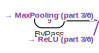
[diagram: DUT/2DConvPE2 V1.1 - part 1/6, top left region]
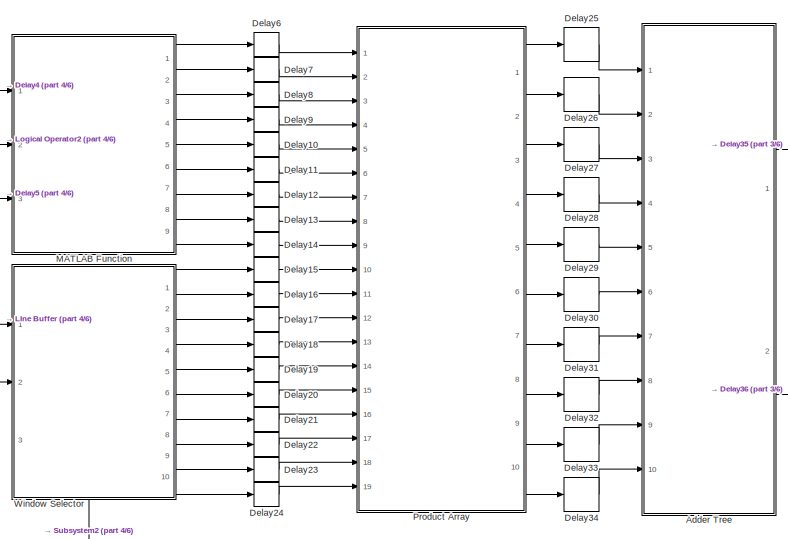
[diagram: DUT/2DConvPE2 V1.1 - part 2/6, top center region]
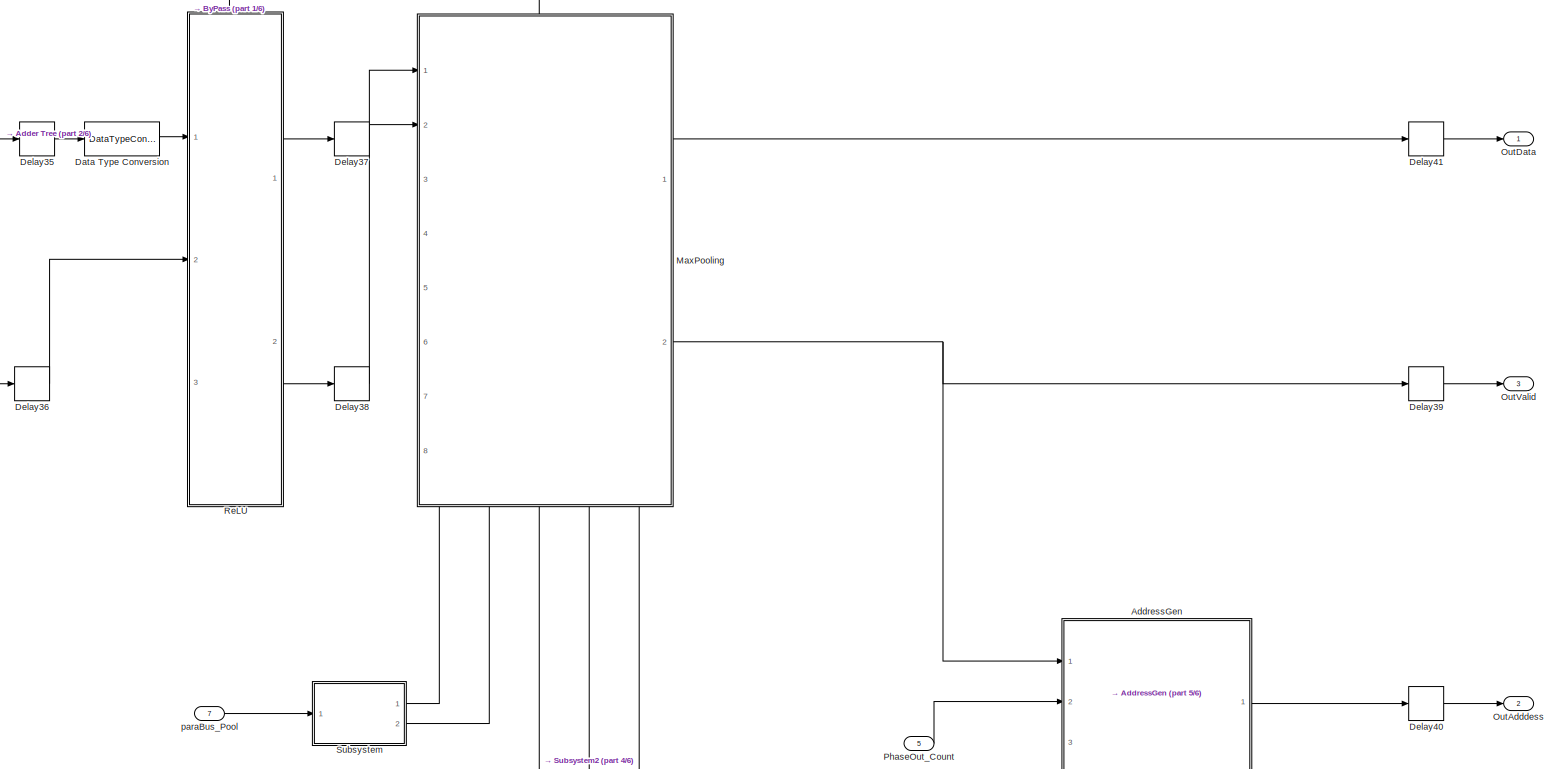
[diagram: DUT/2DConvPE2 V1.1 - part 3/6, middle right region]
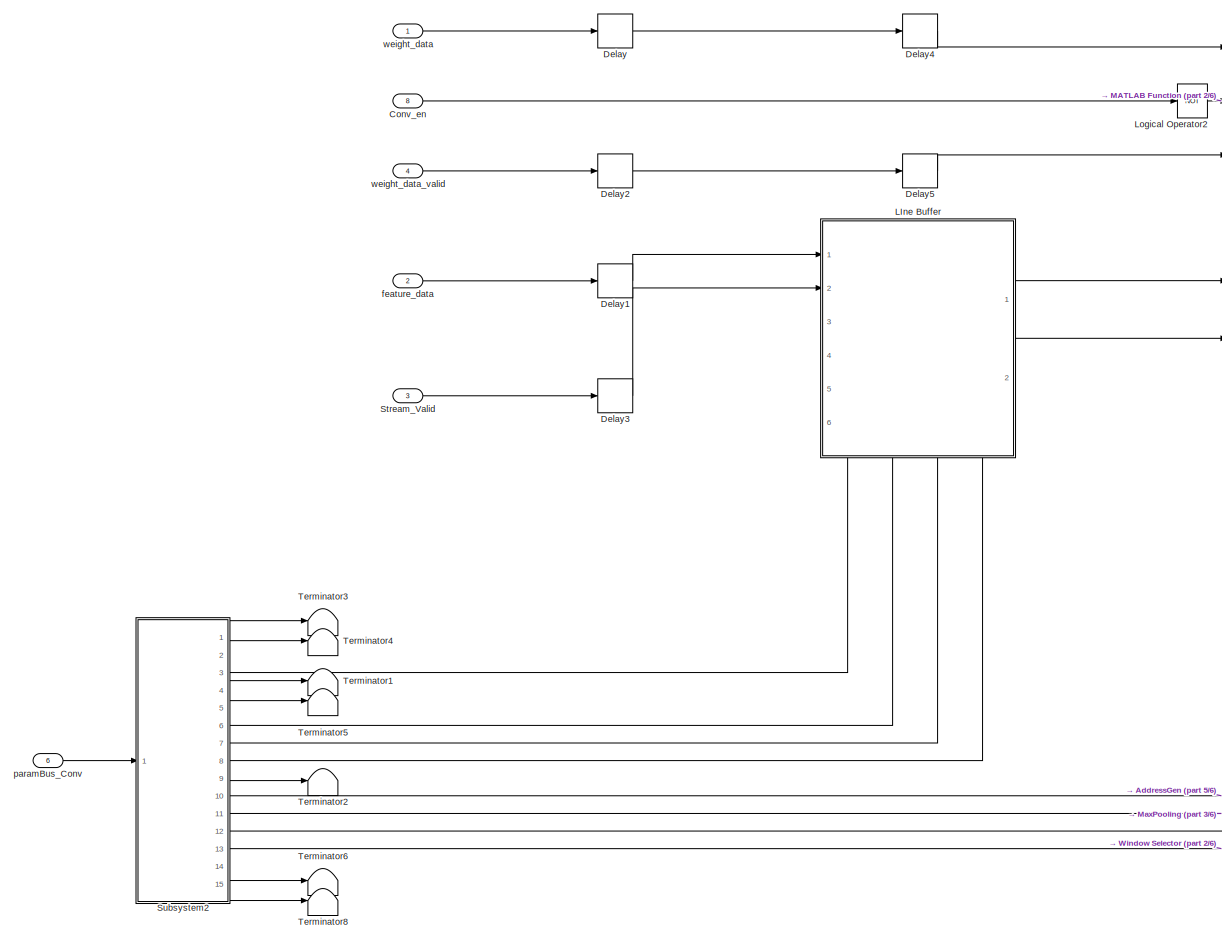
[diagram: DUT/2DConvPE2 V1.1 - part 4/6, middle left region]
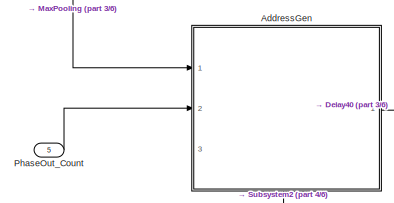
[diagram: DUT/2DConvPE2 V1.1 - part 5/6, middle right region]
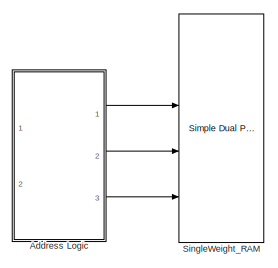
[diagram: DUT/2DConvPE2 V1.1 - part 6/6, bottom left region]
BLOCK [SubSystem] DUT/2DConvPE2 V1.1
  PortSchema = {"entries":[{"content":{"sides":[{"content":{"connectorIds":["In1","In2","In3","In4","In5","In6","In7"]},"type":"ConnectorPlacement.EquallySpacedRectSide","uuid":"72a132f7-3e47-4ef1-8d79-baadbeb84817"},{"content":{"connectorIds":["Out1","Out2","Out3"],"side":"RIGHT"},"type":"ConnectorPlacement.EquallySpacedRectSide","uuid":"2df9bf31-2175-4d97-aafa-a0227f37f2af"},{"content":{"connectorIds":["In8","...<+589ch>  <repeated x3 — deduplicated; at blocks: 2DConvPE2 V1.1, 2DConvPE3 V1.2, 2DConvPE4 V1.3>
  Ports = [9, 3]
  RequestExecContextInheritance = off
BLOCK [SubSystem] DUT/2DConvPE2 V1.1/Adder Tree
  Ports = [10, 2]
  RequestExecContextInheritance = off
BLOCK [Sum] DUT/2DConvPE2 V1.1/Adder Tree/Add
  IconShape = rectangular
  Ports = [2, 1]
BLOCK [Sum] DUT/2DConvPE2 V1.1/Adder Tree/Add1
  IconShape = rectangular
  Ports = [2, 1]
BLOCK [Sum] DUT/2DConvPE2 V1.1/Adder Tree/Add10
  IconShape = rectangular
  Ports = [2, 1]
BLOCK [Sum] DUT/2DConvPE2 V1.1/Adder Tree/Add2
  IconShape = rectangular
  Ports = [2, 1]
BLOCK [Sum] DUT/2DConvPE2 V1.1/Adder Tree/Add3
  IconShape = rectangular
  Ports = [2, 1]
BLOCK [Sum] DUT/2DConvPE2 V1.1/Adder Tree/Add4
  IconShape = rectangular
  Ports = [2, 1]
BLOCK [Sum] DUT/2DConvPE2 V1.1/Adder Tree/Add5
  IconShape = rectangular
  Ports = [2, 1]
BLOCK [Sum] DUT/2DConvPE2 V1.1/Adder Tree/Add6
  IconShape = rectangular
  Ports = [2, 1]
BLOCK [Delay] DUT/2DConvPE2 V1.1/Adder Tree/Delay1
  DelayLength = 1
  InputPortMap = u0
  Ports = [1, 1]
BLOCK [Delay] DUT/2DConvPE2 V1.1/Adder Tree/Delay2
  DelayLength = 1
  InputPortMap = u0
  Ports = [1, 1]
BLOCK [Delay] DUT/2DConvPE2 V1.1/Adder Tree/Delay3
  DelayLength = 1
  InputPortMap = u0
  Ports = [1, 1]
BLOCK [Delay] DUT/2DConvPE2 V1.1/Adder Tree/Delay35
  DelayLength = 1
  InputPortMap = u0
  Ports = [1, 1]
BLOCK [Delay] DUT/2DConvPE2 V1.1/Adder Tree/Delay4
  DelayLength = 1
  InputPortMap = u0
  Ports = [1, 1]
BLOCK [Delay] DUT/2DConvPE2 V1.1/Adder Tree/Delay5
  DelayLength = 1
  InputPortMap = u0
  Ports = [1, 1]
BLOCK [Delay] DUT/2DConvPE2 V1.1/Adder Tree/Delay6
  DelayLength = 1
  InputPortMap = u0
  Ports = [1, 1]
BLOCK [Delay] DUT/2DConvPE2 V1.1/Adder Tree/Delay7
  DelayLength = 1
  InputPortMap = u0
  Ports = [1, 1]
BLOCK [Delay] DUT/2DConvPE2 V1.1/Adder Tree/Delay8
  DelayLength = 1
  InputPortMap = u0
  Ports = [1, 1]
BLOCK [Delay] DUT/2DConvPE2 V1.1/Adder Tree/Delay9
  DelayLength = 1
  InputPortMap = u0
  Ports = [1, 1]
BLOCK [Inport] DUT/2DConvPE2 V1.1/Adder Tree/In1
BLOCK [Inport] DUT/2DConvPE2 V1.1/Adder Tree/In2
  Port = 2
BLOCK [Inport] DUT/2DConvPE2 V1.1/Adder Tree/In3
  Port = 3
BLOCK [Inport] DUT/2DConvPE2 V1.1/Adder Tree/In4
  Port = 4
BLOCK [Inport] DUT/2DConvPE2 V1.1/Adder Tree/In5
  Port = 5
BLOCK [Inport] DUT/2DConvPE2 V1.1/Adder Tree/In6
  Port = 6
BLOCK [Inport] DUT/2DConvPE2 V1.1/Adder Tree/In7
  Port = 7
BLOCK [Inport] DUT/2DConvPE2 V1.1/Adder Tree/In8
  Port = 8
BLOCK [Inport] DUT/2DConvPE2 V1.1/Adder Tree/In9
  Port = 9
BLOCK [Outport] DUT/2DConvPE2 V1.1/Adder Tree/Out1
BLOCK [Inport] DUT/2DConvPE2 V1.1/Adder Tree/validIn
  Port = 10
BLOCK [Outport] DUT/2DConvPE2 V1.1/Adder Tree/validOut
  Port = 2
BLOCK [SubSystem] DUT/2DConvPE2 V1.1/Address Logic
  Commented = on
  Ports = [2, 3]
  RequestExecContextInheritance = off
BLOCK [SubSystem] DUT/2DConvPE2 V1.1/Address Logic/ 
  Ports = [2, 2]
  RequestExecContextInheritance = off
BLOCK [Constant] DUT/2DConvPE2 V1.1/Address Logic/ /Constant1
  OutDataTypeStr = uint32
  Value = 0
BLOCK [Constant] DUT/2DConvPE2 V1.1/Address Logic/ /Constant2
  OutDataTypeStr = uint32
  Value = 0
BLOCK [Inport] DUT/2DConvPE2 V1.1/Address Logic/ /In1
BLOCK [Inport] DUT/2DConvPE2 V1.1/Address Logic/ /In2
  Port = 2
BLOCK [Logic] DUT/2DConvPE2 V1.1/Address Logic/ /Logical Operator3
  AllPortsSameDT = off
  Operator = NOT
  OutDataTypeStr = boolean
  Ports = [1, 1]
BLOCK [Outport] DUT/2DConvPE2 V1.1/Address Logic/ /R
  Port = 2
BLOCK [Switch] DUT/2DConvPE2 V1.1/Address Logic/ /Switch
  Criteria = u2 ~= 0
  InputSameDT = off
  SaturateOnIntegerOverflow = off
BLOCK [Switch] DUT/2DConvPE2 V1.1/Address Logic/ /Switch1
  Criteria = u2 ~= 0
  InputSameDT = off
  SaturateOnIntegerOverflow = off
BLOCK [Outport] DUT/2DConvPE2 V1.1/Address Logic/ /W
BLOCK [Reference] DUT/2DConvPE2 V1.1/Address Logic/ /addr_bit_sel1  REF=hdlsllib/Logic and Bit
Operations/Bit Slice
  Ports = [1, 1]
  SourceBlock = hdlsllib/Logic and Bit\nOperations/Bit Slice
  SourceProductName = HDL Coder
  SourceType = Bit Slice
BLOCK [Reference] DUT/2DConvPE2 V1.1/Address Logic/ /addr_bit_sel2  REF=hdlsllib/Logic and Bit
Operations/Bit Slice
  Ports = [1, 1]
  SourceBlock = hdlsllib/Logic and Bit\nOperations/Bit Slice
  SourceProductName = HDL Coder
  SourceType = Bit Slice
BLOCK [Sum] DUT/2DConvPE2 V1.1/Address Logic/Add
  IconShape = rectangular
  Inputs = +-
  Ports = [2, 1]
BLOCK [Reference] DUT/2DConvPE2 V1.1/Address Logic/Compare To Constant  REF=simulink/Logic and Bit
Operations/Compare
To Constant
  Ports = [1, 1]
  SourceBlock = simulink/Logic and Bit\nOperations/Compare\nTo Constant
  SourceProductBaseCode = SL
  SourceType = Compare To Constant
BLOCK [Constant] DUT/2DConvPE2 V1.1/Address Logic/Constant
  OutDataTypeStr = uint32
BLOCK [Delay] DUT/2DConvPE2 V1.1/Address Logic/Delay
  DelayLength = 1
  InputPortMap = u0
  Ports = [1, 1]
BLOCK [Inport] DUT/2DConvPE2 V1.1/Address Logic/In1
BLOCK [Inport] DUT/2DConvPE2 V1.1/Address Logic/In2
  Port = 2
BLOCK [Logic] DUT/2DConvPE2 V1.1/Address Logic/Logical Operator1
  AllPortsSameDT = off
  OutDataTypeStr = boolean
  Ports = [2, 1]
BLOCK [Logic] DUT/2DConvPE2 V1.1/Address Logic/Logical Operator2
  AllPortsSameDT = off
  Operator = NOT
  OutDataTypeStr = boolean
  Ports = [1, 1]
BLOCK [Outport] DUT/2DConvPE2 V1.1/Address Logic/R
  Port = 3
BLOCK [RelationalOperator] DUT/2DConvPE2 V1.1/Address Logic/Relational Operator
  InputSameDT = off
  OutDataTypeStr = boolean
  Ports = [2, 1]
  RndMeth = Simplest
BLOCK [Outport] DUT/2DConvPE2 V1.1/Address Logic/W
BLOCK [Reference] DUT/2DConvPE2 V1.1/Address Logic/Weight_Counter  REF=hdlsllib/Sources/HDL Counter
  Ports = [2, 1]
  SourceBlock = hdlsllib/Sources/HDL Counter
  SourceProductName = HDL Coder
  SourceType = HDL Counter
BLOCK [Reference] DUT/2DConvPE2 V1.1/Address Logic/Weight_Interation_Counter  REF=hdlsllib/Sources/HDL Counter
  Ports = [2, 1]
  SourceBlock = hdlsllib/Sources/HDL Counter
  SourceProductName = HDL Coder
  SourceType = HDL Counter
BLOCK [Outport] DUT/2DConvPE2 V1.1/Address Logic/Write_en
  Port = 2
BLOCK [SubSystem] DUT/2DConvPE2 V1.1/AddressGen
  PortSchema = {"entries":[{"content":{"sides":[{"content":{"connectorIds":["In1","In2"]},"type":"ConnectorPlacement.EquallySpacedRectSide","uuid":"84e29c71-0390-414b-ab77-a221de5de301"},{"content":{"connectorIds":["Out1"],"side":"RIGHT"},"type":"ConnectorPlacement.EquallySpacedRectSide","uuid":"58bcf278-1646-410a-a3e7-26ebbba1e273"},{"content":{"connectorIds":[],"side":"TOP"},"type":"ConnectorPlacement.EquallyS...<+539ch>  <repeated x3 — deduplicated; at blocks: AddressGen>
  Ports = [3, 1]
  RequestExecContextInheritance = off
BLOCK [Sum] DUT/2DConvPE2 V1.1/AddressGen/ADD
  IconShape = rectangular
  Ports = [2, 1]
BLOCK [Constant] DUT/2DConvPE2 V1.1/AddressGen/Constant1
  OutDataTypeStr = uint32
  SampleTime = -1
  Value = 0
BLOCK [Constant] DUT/2DConvPE2 V1.1/AddressGen/Constant2
  OutDataTypeStr = uint32
  SampleTime = -1
BLOCK [Sum] DUT/2DConvPE2 V1.1/AddressGen/Minus
  IconShape = rectangular
  Inputs = +-
  Ports = [2, 1]
BLOCK [Outport] DUT/2DConvPE2 V1.1/AddressGen/OutAdddess
BLOCK [Reference] DUT/2DConvPE2 V1.1/AddressGen/OutAddress_Counter  REF=hdlsllib/Sources/HDL Counter
  Ports = [2, 1]
  SourceBlock = hdlsllib/Sources/HDL Counter
  SourceProductName = HDL Coder
  SourceType = HDL Counter
BLOCK [Inport] DUT/2DConvPE2 V1.1/AddressGen/PhaseOut_Count
  Port = 2
BLOCK [Product] DUT/2DConvPE2 V1.1/AddressGen/Product
  Ports = [2, 1]
BLOCK [RelationalOperator] DUT/2DConvPE2 V1.1/AddressGen/Relational Operator
  InputSameDT = off
  OutDataTypeStr = boolean
  Ports = [2, 1]
BLOCK [Switch] DUT/2DConvPE2 V1.1/AddressGen/Switch
  Criteria = u2 ~= 0
  InputSameDT = off
  SaturateOnIntegerOverflow = off
BLOCK [Inport] DUT/2DConvPE2 V1.1/AddressGen/enb
BLOCK [Inport] DUT/2DConvPE2 V1.1/AddressGen/outFeature_Area
  Port = 3
BLOCK [Inport] DUT/2DConvPE2 V1.1/ByPass
  Port = 9
BLOCK [Inport] DUT/2DConvPE2 V1.1/Conv_en
  Port = 8
BLOCK [DataTypeConversion] DUT/2DConvPE2 V1.1/Data Type Conversion
  OutDataTypeStr = int32
  RndMeth = Floor
  SaturateOnIntegerOverflow = off
BLOCK [Delay] DUT/2DConvPE2 V1.1/Delay
  DelayLength = 1
  InputPortMap = u0
  Ports = [1, 1]
BLOCK [Delay] DUT/2DConvPE2 V1.1/Delay1
  DelayLength = 1
  InputPortMap = u0
  Ports = [1, 1]
BLOCK [Delay] DUT/2DConvPE2 V1.1/Delay10
  DelayLength = 1
  InputPortMap = u0
  Ports = [1, 1]
BLOCK [Delay] DUT/2DConvPE2 V1.1/Delay11
  DelayLength = 1
  InputPortMap = u0
  Ports = [1, 1]
BLOCK [Delay] DUT/2DConvPE2 V1.1/Delay12
  DelayLength = 1
  InputPortMap = u0
  Ports = [1, 1]
BLOCK [Delay] DUT/2DConvPE2 V1.1/Delay13
  DelayLength = 1
  InputPortMap = u0
  Ports = [1, 1]
BLOCK [Delay] DUT/2DConvPE2 V1.1/Delay14
  DelayLength = 1
  InputPortMap = u0
  Ports = [1, 1]
BLOCK [Delay] DUT/2DConvPE2 V1.1/Delay15
  DelayLength = 1
  InputPortMap = u0
  Ports = [1, 1]
BLOCK [Delay] DUT/2DConvPE2 V1.1/Delay16
  DelayLength = 1
  InputPortMap = u0
  Ports = [1, 1]
BLOCK [Delay] DUT/2DConvPE2 V1.1/Delay17
  DelayLength = 1
  InputPortMap = u0
  Ports = [1, 1]
BLOCK [Delay] DUT/2DConvPE2 V1.1/Delay18
  DelayLength = 1
  InputPortMap = u0
  Ports = [1, 1]
BLOCK [Delay] DUT/2DConvPE2 V1.1/Delay19
  DelayLength = 1
  InputPortMap = u0
  Ports = [1, 1]
BLOCK [Delay] DUT/2DConvPE2 V1.1/Delay2
  DelayLength = 1
  InputPortMap = u0
  Ports = [1, 1]
BLOCK [Delay] DUT/2DConvPE2 V1.1/Delay20
  DelayLength = 1
  InputPortMap = u0
  Ports = [1, 1]
BLOCK [Delay] DUT/2DConvPE2 V1.1/Delay21
  DelayLength = 1
  InputPortMap = u0
  Ports = [1, 1]
BLOCK [Delay] DUT/2DConvPE2 V1.1/Delay22
  DelayLength = 1
  InputPortMap = u0
  Ports = [1, 1]
BLOCK [Delay] DUT/2DConvPE2 V1.1/Delay23
  DelayLength = 1
  InputPortMap = u0
  Ports = [1, 1]
BLOCK [Delay] DUT/2DConvPE2 V1.1/Delay24
  DelayLength = 1
  InputPortMap = u0
  Ports = [1, 1]
BLOCK [Delay] DUT/2DConvPE2 V1.1/Delay25
  DelayLength = 1
  InputPortMap = u0
  Ports = [1, 1]
BLOCK [Delay] DUT/2DConvPE2 V1.1/Delay26
  DelayLength = 1
  InputPortMap = u0
  Ports = [1, 1]
BLOCK [Delay] DUT/2DConvPE2 V1.1/Delay27
  DelayLength = 1
  InputPortMap = u0
  Ports = [1, 1]
BLOCK [Delay] DUT/2DConvPE2 V1.1/Delay28
  DelayLength = 1
  InputPortMap = u0
  Ports = [1, 1]
BLOCK [Delay] DUT/2DConvPE2 V1.1/Delay29
  DelayLength = 1
  InputPortMap = u0
  Ports = [1, 1]
BLOCK [Delay] DUT/2DConvPE2 V1.1/Delay3
  DelayLength = 1
  InputPortMap = u0
  Ports = [1, 1]
BLOCK [Delay] DUT/2DConvPE2 V1.1/Delay30
  DelayLength = 1
  InputPortMap = u0
  Ports = [1, 1]
BLOCK [Delay] DUT/2DConvPE2 V1.1/Delay31
  DelayLength = 1
  InputPortMap = u0
  Ports = [1, 1]
BLOCK [Delay] DUT/2DConvPE2 V1.1/Delay32
  DelayLength = 1
  InputPortMap = u0
  Ports = [1, 1]
BLOCK [Delay] DUT/2DConvPE2 V1.1/Delay33
  DelayLength = 1
  InputPortMap = u0
  Ports = [1, 1]
BLOCK [Delay] DUT/2DConvPE2 V1.1/Delay34
  DelayLength = 1
  InputPortMap = u0
  Ports = [1, 1]
BLOCK [Delay] DUT/2DConvPE2 V1.1/Delay35
  DelayLength = 1
  InputPortMap = u0
  Ports = [1, 1]
BLOCK [Delay] DUT/2DConvPE2 V1.1/Delay36
  DelayLength = 1
  InputPortMap = u0
  Ports = [1, 1]
BLOCK [Delay] DUT/2DConvPE2 V1.1/Delay37
  DelayLength = 1
  InputPortMap = u0
  Ports = [1, 1]
BLOCK [Delay] DUT/2DConvPE2 V1.1/Delay38
  DelayLength = 1
  InputPortMap = u0
  Ports = [1, 1]
BLOCK [Delay] DUT/2DConvPE2 V1.1/Delay39
  DelayLength = 1
  InputPortMap = u0
  Ports = [1, 1]
BLOCK [Delay] DUT/2DConvPE2 V1.1/Delay4
  InputPortMap = u0
  Ports = [1, 1]
BLOCK [Delay] DUT/2DConvPE2 V1.1/Delay40
  DelayLength = 1
  InputPortMap = u0
  Ports = [1, 1]
BLOCK [Delay] DUT/2DConvPE2 V1.1/Delay41
  DelayLength = 1
  InputPortMap = u0
  Ports = [1, 1]
BLOCK [Delay] DUT/2DConvPE2 V1.1/Delay5
  InputPortMap = u0
  Ports = [1, 1]
BLOCK [Delay] DUT/2DConvPE2 V1.1/Delay6
  DelayLength = 1
  InputPortMap = u0
  Ports = [1, 1]
BLOCK [Delay] DUT/2DConvPE2 V1.1/Delay7
  DelayLength = 1
  InputPortMap = u0
  Ports = [1, 1]
BLOCK [Delay] DUT/2DConvPE2 V1.1/Delay8
  DelayLength = 1
  InputPortMap = u0
  Ports = [1, 1]
BLOCK [Delay] DUT/2DConvPE2 V1.1/Delay9
  DelayLength = 1
  InputPortMap = u0
  Ports = [1, 1]
BLOCK [SubSystem] DUT/2DConvPE2 V1.1/LIne Buffer
  Ports = [6, 2]
  RequestExecContextInheritance = off
BLOCK [Delay] DUT/2DConvPE2 V1.1/LIne Buffer/Delay2
  DelayLength = 1
  InputPortMap = u0
  Ports = [1, 1]
BLOCK [Inport] DUT/2DConvPE2 V1.1/LIne Buffer/Feature_Area
  Port = 4
BLOCK [Inport] DUT/2DConvPE2 V1.1/LIne Buffer/Feature_Height
  Port = 6
BLOCK [Inport] DUT/2DConvPE2 V1.1/LIne Buffer/Feature_Width
  Port = 5
BLOCK [SubSystem] DUT/2DConvPE2 V1.1/LIne Buffer/Line Buffer
  Ports = [4, 3]
  RequestExecContextInheritance = off
BLOCK [SubSystem] DUT/2DConvPE2 V1.1/LIne Buffer/Line Buffer/CtrlGen
  Ports = [4, 2]
  RequestExecContextInheritance = off
BLOCK [Reference] DUT/2DConvPE2 V1.1/LIne Buffer/Line Buffer/CtrlGen/Compare To Zero  REF=simulink/Logic and Bit
Operations/Compare
To Zero
  Ports = [1, 1]
  SourceBlock = simulink/Logic and Bit\nOperations/Compare\nTo Zero
  SourceProductBaseCode = SL
  SourceType = Compare To Zero
BLOCK [Reference] DUT/2DConvPE2 V1.1/LIne Buffer/Line Buffer/CtrlGen/Compare To Zero1  REF=simulink/Logic and Bit
Operations/Compare
To Zero
  Ports = [1, 1]
  SourceBlock = simulink/Logic and Bit\nOperations/Compare\nTo Zero
  SourceProductBaseCode = SL
  SourceType = Compare To Zero
BLOCK [Constant] DUT/2DConvPE2 V1.1/LIne Buffer/Line Buffer/CtrlGen/Constant
  OutDataTypeStr = uint32
  SampleTime = -1
BLOCK [Constant] DUT/2DConvPE2 V1.1/LIne Buffer/Line Buffer/CtrlGen/Constant1
  OutDataTypeStr = uint32
  SampleTime = -1
BLOCK [Outport] DUT/2DConvPE2 V1.1/LIne Buffer/Line Buffer/CtrlGen/Ctrl
  Port = 2
BLOCK [Delay] DUT/2DConvPE2 V1.1/LIne Buffer/Line Buffer/CtrlGen/Delay3
  DelayLength = 1
  InputPortMap = u0
  Ports = [1, 1]
BLOCK [Delay] DUT/2DConvPE2 V1.1/LIne Buffer/Line Buffer/CtrlGen/Delay35
  DelayLength = 1
  InputPortMap = u0
  Ports = [1, 1]
BLOCK [Reference] DUT/2DConvPE2 V1.1/LIne Buffer/Line Buffer/CtrlGen/Feature Area Counter  REF=hdlsllib/Sources/HDL Counter
  Ports = [2, 1]
  SourceBlock = hdlsllib/Sources/HDL Counter
  SourceProductName = HDL Coder
  SourceType = HDL Counter
BLOCK [Reference] DUT/2DConvPE2 V1.1/LIne Buffer/Line Buffer/CtrlGen/Feature Row Counter  REF=hdlsllib/Sources/HDL Counter
  Ports = [2, 1]
  SourceBlock = hdlsllib/Sources/HDL Counter
  SourceProductName = HDL Coder
  SourceType = HDL Counter
BLOCK [Inport] DUT/2DConvPE2 V1.1/LIne Buffer/Line Buffer/CtrlGen/Feature_Area
  Port = 3
BLOCK [Inport] DUT/2DConvPE2 V1.1/LIne Buffer/Line Buffer/CtrlGen/Feature_Width
  Port = 4
BLOCK [Logic] DUT/2DConvPE2 V1.1/LIne Buffer/Line Buffer/CtrlGen/Logical Operator
  AllPortsSameDT = off
  Operator = OR
  OutDataTypeStr = boolean
  Ports = [2, 1]
BLOCK [Logic] DUT/2DConvPE2 V1.1/LIne Buffer/Line Buffer/CtrlGen/Logical Operator1
  AllPortsSameDT = off
  OutDataTypeStr = boolean
  Ports = [2, 1]
BLOCK [Logic] DUT/2DConvPE2 V1.1/LIne Buffer/Line Buffer/CtrlGen/Logical Operator2
  AllPortsSameDT = off
  OutDataTypeStr = boolean
  Ports = [2, 1]
BLOCK [Logic] DUT/2DConvPE2 V1.1/LIne Buffer/Line Buffer/CtrlGen/Logical Operator3
  AllPortsSameDT = off
  OutDataTypeStr = boolean
  Ports = [2, 1]
BLOCK [Logic] DUT/2DConvPE2 V1.1/LIne Buffer/Line Buffer/CtrlGen/Logical Operator5
  AllPortsSameDT = off
  OutDataTypeStr = boolean
  Ports = [2, 1]
BLOCK [Sum] DUT/2DConvPE2 V1.1/LIne Buffer/Line Buffer/CtrlGen/Minus1
  IconShape = rectangular
  Inputs = +-
  Ports = [2, 1]
BLOCK [Sum] DUT/2DConvPE2 V1.1/LIne Buffer/Line Buffer/CtrlGen/Minus2
  IconShape = rectangular
  Inputs = +-
  Ports = [2, 1]
BLOCK [Reference] DUT/2DConvPE2 V1.1/LIne Buffer/Line Buffer/CtrlGen/Pixel Control Bus Creator  REF=visionhdlutilities/Pixel Control
Bus Creator
  Ports = [5, 1]
  SourceBlock = visionhdlutilities/Pixel Control\nBus Creator
  SourceProductBaseCode = VT
  SourceType = Pixel Control Bus Creator
BLOCK [RelationalOperator] DUT/2DConvPE2 V1.1/LIne Buffer/Line Buffer/CtrlGen/Relational Operator1
  InputSameDT = off
  Operator = ==
  OutDataTypeStr = boolean
  Ports = [2, 1]
BLOCK [RelationalOperator] DUT/2DConvPE2 V1.1/LIne Buffer/Line Buffer/CtrlGen/Relational Operator2
  InputSameDT = off
  Operator = ==
  OutDataTypeStr = boolean
  Ports = [2, 1]
BLOCK [RelationalOperator] DUT/2DConvPE2 V1.1/LIne Buffer/Line Buffer/CtrlGen/Relational Operator3
  InputSameDT = off
  Operator = ==
  OutDataTypeStr = boolean
  Ports = [2, 1]
BLOCK [Outport] DUT/2DConvPE2 V1.1/LIne Buffer/Line Buffer/CtrlGen/StreamOut
BLOCK [Inport] DUT/2DConvPE2 V1.1/LIne Buffer/Line Buffer/CtrlGen/Stream_In
BLOCK [Inport] DUT/2DConvPE2 V1.1/LIne Buffer/Line Buffer/CtrlGen/Stream_Valid
  Port = 2
BLOCK [Inport] DUT/2DConvPE2 V1.1/LIne Buffer/Line Buffer/Feature_Area
  Port = 3
BLOCK [Inport] DUT/2DConvPE2 V1.1/LIne Buffer/Line Buffer/Feature_Width
  Port = 4
BLOCK [Reference] DUT/2DConvPE2 V1.1/LIne Buffer/Line Buffer/Line Buffer  REF=visionhdlutilities/Line Buffer
  Ports = [2, 3]
  SourceBlock = visionhdlutilities/Line Buffer
  SourceProductBaseCode = VT
  SourceType = visionhdl.LineBuffer
BLOCK [Inport] DUT/2DConvPE2 V1.1/LIne Buffer/Line Buffer/Stream_In
BLOCK [Inport] DUT/2DConvPE2 V1.1/LIne Buffer/Line Buffer/Stream_Valid
  Port = 2
BLOCK [Outport] DUT/2DConvPE2 V1.1/LIne Buffer/Line Buffer/ctrl
  Port = 2
BLOCK [Outport] DUT/2DConvPE2 V1.1/LIne Buffer/Line Buffer/pixel
BLOCK [Outport] DUT/2DConvPE2 V1.1/LIne Buffer/Line Buffer/shftEnable
  Port = 3
BLOCK [SubSystem] DUT/2DConvPE2 V1.1/LIne Buffer/OutValidGen
  Ports = [3, 1]
  RequestExecContextInheritance = off
BLOCK [Reference] DUT/2DConvPE2 V1.1/LIne Buffer/OutValidGen/Compare To Constant  REF=simulink/Logic and Bit
Operations/Compare
To Constant
  Ports = [1, 1]
  SourceBlock = simulink/Logic and Bit\nOperations/Compare\nTo Constant
  SourceProductBaseCode = SL
  SourceType = Compare To Constant
BLOCK [Constant] DUT/2DConvPE2 V1.1/LIne Buffer/OutValidGen/Constant
  OutDataTypeStr = uint32
  SampleTime = -1
BLOCK [Delay] DUT/2DConvPE2 V1.1/LIne Buffer/OutValidGen/Delay2
  DelayLength = 1
  InputPortMap = u0
  Ports = [1, 1]
BLOCK [Inport] DUT/2DConvPE2 V1.1/LIne Buffer/OutValidGen/Feature_Height
  Port = 3
BLOCK [Inport] DUT/2DConvPE2 V1.1/LIne Buffer/OutValidGen/In1
BLOCK [Logic] DUT/2DConvPE2 V1.1/LIne Buffer/OutValidGen/Logical Operator1
  AllPortsSameDT = off
  Operator = NOT
  OutDataTypeStr = boolean
  Ports = [1, 1]
BLOCK [Logic] DUT/2DConvPE2 V1.1/LIne Buffer/OutValidGen/Logical Operator2
  AllPortsSameDT = off
  Operator = OR
  OutDataTypeStr = boolean
  Ports = [2, 1]
BLOCK [Logic] DUT/2DConvPE2 V1.1/LIne Buffer/OutValidGen/Logical Operator3
  AllPortsSameDT = off
  Inputs = 4
  OutDataTypeStr = boolean
  Ports = [4, 1]
BLOCK [Logic] DUT/2DConvPE2 V1.1/LIne Buffer/OutValidGen/Logical Operator4
  AllPortsSameDT = off
  Operator = NOT
  OutDataTypeStr = boolean
  Ports = [1, 1]
BLOCK [Logic] DUT/2DConvPE2 V1.1/LIne Buffer/OutValidGen/Logical Operator5
  AllPortsSameDT = off
  Operator = OR
  OutDataTypeStr = boolean
  Ports = [2, 1]
BLOCK [Logic] DUT/2DConvPE2 V1.1/LIne Buffer/OutValidGen/Logical Operator6
  AllPortsSameDT = off
  Inputs = 3
  Operator = NOT
  OutDataTypeStr = boolean
  Ports = [1, 1]
BLOCK [Sum] DUT/2DConvPE2 V1.1/LIne Buffer/OutValidGen/Minus1
  IconShape = rectangular
  Inputs = +--
  Ports = [3, 1]
BLOCK [Sum] DUT/2DConvPE2 V1.1/LIne Buffer/OutValidGen/Minus2
  IconShape = rectangular
  Inputs = +-
  Ports = [2, 1]
BLOCK [Reference] DUT/2DConvPE2 V1.1/LIne Buffer/OutValidGen/NumRow_Counter  REF=hdlsllib/Sources/HDL Counter
  Ports = [2, 1]
  SourceBlock = hdlsllib/Sources/HDL Counter
  SourceProductName = HDL Coder
  SourceType = HDL Counter
BLOCK [BusSelector] DUT/2DConvPE2 V1.1/LIne Buffer/OutValidGen/Pixel Control Bus Selector
  OutputSignals = hStart,hEnd,vStart,vEnd,valid
  Ports = [1, 5]
BLOCK [RelationalOperator] DUT/2DConvPE2 V1.1/LIne Buffer/OutValidGen/Relational Operator1
  InputSameDT = off
  Operator = <
  OutDataTypeStr = boolean
  Ports = [2, 1]
BLOCK [RelationalOperator] DUT/2DConvPE2 V1.1/LIne Buffer/OutValidGen/Relational Operator2
  InputSameDT = off
  Operator = <=
  OutDataTypeStr = boolean
  Ports = [2, 1]
BLOCK [Reference] DUT/2DConvPE2 V1.1/LIne Buffer/OutValidGen/Row_Counter  REF=hdlsllib/Sources/HDL Counter
  Ports = [2, 1]
  SourceBlock = hdlsllib/Sources/HDL Counter
  SourceProductName = HDL Coder
  SourceType = HDL Counter
BLOCK [Terminator] DUT/2DConvPE2 V1.1/LIne Buffer/OutValidGen/Terminator1
BLOCK [Inport] DUT/2DConvPE2 V1.1/LIne Buffer/OutValidGen/Weight_Width
  Port = 2
BLOCK [Outport] DUT/2DConvPE2 V1.1/LIne Buffer/OutValidGen/valid
BLOCK [Inport] DUT/2DConvPE2 V1.1/LIne Buffer/Stream_In
BLOCK [Inport] DUT/2DConvPE2 V1.1/LIne Buffer/Stream_Valid
  Port = 2
BLOCK [Terminator] DUT/2DConvPE2 V1.1/LIne Buffer/Terminator
BLOCK [Inport] DUT/2DConvPE2 V1.1/LIne Buffer/Weight_Width
  Port = 3
BLOCK [Outport] DUT/2DConvPE2 V1.1/LIne Buffer/pixel
BLOCK [Outport] DUT/2DConvPE2 V1.1/LIne Buffer/valid
  Port = 2
BLOCK [Logic] DUT/2DConvPE2 V1.1/Logical Operator2
  AllPortsSameDT = off
  Operator = NOT
  OutDataTypeStr = boolean
  Ports = [1, 1]
BLOCK [SubSystem] DUT/2DConvPE2 V1.1/MATLAB Function
  ErrorFcn = Stateflow.Translate.translate
  PermitHierarchicalResolution = ExplicitOnly
  Ports = [3, 9]
  RequestExecContextInheritance = off
  SFBlockType = MATLAB Function
  TreatAsAtomicUnit = on
BLOCK [Demux] DUT/2DConvPE2 V1.1/MATLAB Function/ Demux 
  Outputs = 1
  Ports = [1, 1]
BLOCK [S-Function] DUT/2DConvPE2 V1.1/MATLAB Function/ SFunction 
  EnableBusSupport = on
  FunctionName = sf_sfun
  PortCounts = [3 10]
  Ports = [3, 10]
  SFcnIsStateOwnerBlock = off
  SFunctionDeploymentMode = off
  Tag = Stateflow S-Function 7
BLOCK [Terminator] DUT/2DConvPE2 V1.1/MATLAB Function/ Terminator 
BLOCK [Inport] DUT/2DConvPE2 V1.1/MATLAB Function/dataIn
BLOCK [Inport] DUT/2DConvPE2 V1.1/MATLAB Function/rst
  Port = 2
BLOCK [Outport] DUT/2DConvPE2 V1.1/MATLAB Function/w0
BLOCK [Outport] DUT/2DConvPE2 V1.1/MATLAB Function/w1
  Port = 2
  VectorParamsAs1DForOutWhenUnconnected = off
BLOCK [Outport] DUT/2DConvPE2 V1.1/MATLAB Function/w2
  Port = 3
BLOCK [Outport] DUT/2DConvPE2 V1.1/MATLAB Function/w3
  Port = 4
BLOCK [Outport] DUT/2DConvPE2 V1.1/MATLAB Function/w4
  Port = 5
BLOCK [Outport] DUT/2DConvPE2 V1.1/MATLAB Function/w5
  Port = 6
BLOCK [Outport] DUT/2DConvPE2 V1.1/MATLAB Function/w6
  Port = 7
BLOCK [Outport] DUT/2DConvPE2 V1.1/MATLAB Function/w7
  Port = 8
BLOCK [Outport] DUT/2DConvPE2 V1.1/MATLAB Function/w8
  Port = 9
BLOCK [Inport] DUT/2DConvPE2 V1.1/MATLAB Function/write_en
  Port = 3
BLOCK [SubSystem] DUT/2DConvPE2 V1.1/MaxPooling
  Ports = [8, 2]
  RequestExecContextInheritance = off
BLOCK [Inport] DUT/2DConvPE2 V1.1/MaxPooling/ByPass
  Port = 3
BLOCK [SubSystem] DUT/2DConvPE2 V1.1/MaxPooling/Comparator
  Ports = [5, 2]
  RequestExecContextInheritance = off
BLOCK [Delay] DUT/2DConvPE2 V1.1/MaxPooling/Comparator/Delay
  DelayLength = 1
  InputPortMap = u0
  Ports = [1, 1]
BLOCK [Delay] DUT/2DConvPE2 V1.1/MaxPooling/Comparator/Delay1
  DelayLength = 1
  InputPortMap = u0
  Ports = [1, 1]
BLOCK [Delay] DUT/2DConvPE2 V1.1/MaxPooling/Comparator/Delay2
  DelayLength = 1
  InputPortMap = u0
  Ports = [1, 1]
BLOCK [Delay] DUT/2DConvPE2 V1.1/MaxPooling/Comparator/Delay3
  DelayLength = 1
  InputPortMap = u0
  Ports = [1, 1]
BLOCK [Delay] DUT/2DConvPE2 V1.1/MaxPooling/Comparator/Delay4
  DelayLength = 1
  InputPortMap = u0
  Ports = [1, 1]
BLOCK [Inport] DUT/2DConvPE2 V1.1/MaxPooling/Comparator/In1
BLOCK [Inport] DUT/2DConvPE2 V1.1/MaxPooling/Comparator/In2
  Port = 2
BLOCK [Inport] DUT/2DConvPE2 V1.1/MaxPooling/Comparator/In3
  Port = 3
BLOCK [Inport] DUT/2DConvPE2 V1.1/MaxPooling/Comparator/In4
  Port = 4
BLOCK [Outport] DUT/2DConvPE2 V1.1/MaxPooling/Comparator/Out1
BLOCK [RelationalOperator] DUT/2DConvPE2 V1.1/MaxPooling/Comparator/Relational Operator
  InputSameDT = off
  Operator = >
  OutDataTypeStr = boolean
  Ports = [2, 1]
BLOCK [RelationalOperator] DUT/2DConvPE2 V1.1/MaxPooling/Comparator/Relational Operator1
  InputSameDT = off
  Operator = >
  OutDataTypeStr = boolean
  Ports = [2, 1]
BLOCK [RelationalOperator] DUT/2DConvPE2 V1.1/MaxPooling/Comparator/Relational Operator2
  InputSameDT = off
  Operator = >
  OutDataTypeStr = boolean
  Ports = [2, 1]
BLOCK [Switch] DUT/2DConvPE2 V1.1/MaxPooling/Comparator/Switch
  Criteria = u2 > Threshold
  InputSameDT = off
  SaturateOnIntegerOverflow = off
BLOCK [Switch] DUT/2DConvPE2 V1.1/MaxPooling/Comparator/Switch1
  Criteria = u2 > Threshold
  InputSameDT = off
  SaturateOnIntegerOverflow = off
BLOCK [Switch] DUT/2DConvPE2 V1.1/MaxPooling/Comparator/Switch2
  Criteria = u2 > Threshold
  InputSameDT = off
  SaturateOnIntegerOverflow = off
BLOCK [Inport] DUT/2DConvPE2 V1.1/MaxPooling/Comparator/Valid
  Port = 5
BLOCK [Outport] DUT/2DConvPE2 V1.1/MaxPooling/Comparator/outvalid
  Port = 2
BLOCK [Constant] DUT/2DConvPE2 V1.1/MaxPooling/Constant
  OutDataTypeStr = int32
  Value = 0
BLOCK [Delay] DUT/2DConvPE2 V1.1/MaxPooling/Delay
  DelayLength = 1
  InputPortMap = u0
  Ports = [1, 1]
BLOCK [Delay] DUT/2DConvPE2 V1.1/MaxPooling/Delay1
  DelayLength = 1
  InputPortMap = u0
  Ports = [1, 1]
BLOCK [Delay] DUT/2DConvPE2 V1.1/MaxPooling/Delay2
  DelayLength = 1
  InputPortMap = u0
  Ports = [1, 1]
BLOCK [Delay] DUT/2DConvPE2 V1.1/MaxPooling/Delay3
  DelayLength = 1
  InputPortMap = u0
  Ports = [1, 1]
BLOCK [Delay] DUT/2DConvPE2 V1.1/MaxPooling/Delay36
  DelayLength = 1
  InputPortMap = u0
  Ports = [1, 1]
BLOCK [Delay] DUT/2DConvPE2 V1.1/MaxPooling/Delay4
  DelayLength = 1
  InputPortMap = u0
  Ports = [1, 1]
BLOCK [Delay] DUT/2DConvPE2 V1.1/MaxPooling/Delay5
  DelayLength = 1
  InputPortMap = u0
  Ports = [1, 1]
BLOCK [Delay] DUT/2DConvPE2 V1.1/MaxPooling/Delay6
  DelayLength = 1
  InputPortMap = u0
  Ports = [1, 1]
BLOCK [Inport] DUT/2DConvPE2 V1.1/MaxPooling/Feature_Area
  Port = 6
BLOCK [Inport] DUT/2DConvPE2 V1.1/MaxPooling/Feature_Height
  Port = 8
BLOCK [Inport] DUT/2DConvPE2 V1.1/MaxPooling/Feature_Width
  Port = 7
BLOCK [SubSystem] DUT/2DConvPE2 V1.1/MaxPooling/Line Buffer1
  Ports = [4, 3]
  RequestExecContextInheritance = off
BLOCK [SubSystem] DUT/2DConvPE2 V1.1/MaxPooling/Line Buffer1/CtrlGen
  Ports = [4, 2]
  RequestExecContextInheritance = off
BLOCK [Reference] DUT/2DConvPE2 V1.1/MaxPooling/Line Buffer1/CtrlGen/Compare To Zero  REF=simulink/Logic and Bit
Operations/Compare
To Zero
  Ports = [1, 1]
  SourceBlock = simulink/Logic and Bit\nOperations/Compare\nTo Zero
  SourceProductBaseCode = SL
  SourceType = Compare To Zero
BLOCK [Reference] DUT/2DConvPE2 V1.1/MaxPooling/Line Buffer1/CtrlGen/Compare To Zero1  REF=simulink/Logic and Bit
Operations/Compare
To Zero
  Ports = [1, 1]
  SourceBlock = simulink/Logic and Bit\nOperations/Compare\nTo Zero
  SourceProductBaseCode = SL
  SourceType = Compare To Zero
BLOCK [Constant] DUT/2DConvPE2 V1.1/MaxPooling/Line Buffer1/CtrlGen/Constant
  OutDataTypeStr = uint32
  SampleTime = -1
BLOCK [Constant] DUT/2DConvPE2 V1.1/MaxPooling/Line Buffer1/CtrlGen/Constant1
  OutDataTypeStr = uint32
  SampleTime = -1
BLOCK [Outport] DUT/2DConvPE2 V1.1/MaxPooling/Line Buffer1/CtrlGen/Ctrl
  Port = 2
BLOCK [Delay] DUT/2DConvPE2 V1.1/MaxPooling/Line Buffer1/CtrlGen/Delay1
  DelayLength = 1
  InputPortMap = u0
  Ports = [1, 1]
BLOCK [Delay] DUT/2DConvPE2 V1.1/MaxPooling/Line Buffer1/CtrlGen/Delay36
  DelayLength = 1
  InputPortMap = u0
  Ports = [1, 1]
BLOCK [Reference] DUT/2DConvPE2 V1.1/MaxPooling/Line Buffer1/CtrlGen/Feature Area Counter  REF=hdlsllib/Sources/HDL Counter
  Ports = [2, 1]
  SourceBlock = hdlsllib/Sources/HDL Counter
  SourceProductName = HDL Coder
  SourceType = HDL Counter
BLOCK [Reference] DUT/2DConvPE2 V1.1/MaxPooling/Line Buffer1/CtrlGen/Feature Row Counter  REF=hdlsllib/Sources/HDL Counter
  Ports = [2, 1]
  SourceBlock = hdlsllib/Sources/HDL Counter
  SourceProductName = HDL Coder
  SourceType = HDL Counter
BLOCK [Inport] DUT/2DConvPE2 V1.1/MaxPooling/Line Buffer1/CtrlGen/Feature_Area
  Port = 3
BLOCK [Inport] DUT/2DConvPE2 V1.1/MaxPooling/Line Buffer1/CtrlGen/Feature_Width
  Port = 4
BLOCK [Logic] DUT/2DConvPE2 V1.1/MaxPooling/Line Buffer1/CtrlGen/Logical Operator
  AllPortsSameDT = off
  Operator = OR
  OutDataTypeStr = boolean
  Ports = [2, 1]
BLOCK [Logic] DUT/2DConvPE2 V1.1/MaxPooling/Line Buffer1/CtrlGen/Logical Operator1
  AllPortsSameDT = off
  OutDataTypeStr = boolean
  Ports = [2, 1]
BLOCK [Logic] DUT/2DConvPE2 V1.1/MaxPooling/Line Buffer1/CtrlGen/Logical Operator2
  AllPortsSameDT = off
  OutDataTypeStr = boolean
  Ports = [2, 1]
BLOCK [Logic] DUT/2DConvPE2 V1.1/MaxPooling/Line Buffer1/CtrlGen/Logical Operator3
  AllPortsSameDT = off
  OutDataTypeStr = boolean
  Ports = [2, 1]
BLOCK [Logic] DUT/2DConvPE2 V1.1/MaxPooling/Line Buffer1/CtrlGen/Logical Operator5
  AllPortsSameDT = off
  OutDataTypeStr = boolean
  Ports = [2, 1]
BLOCK [Sum] DUT/2DConvPE2 V1.1/MaxPooling/Line Buffer1/CtrlGen/Minus1
  IconShape = rectangular
  Inputs = +-
  Ports = [2, 1]
BLOCK [Sum] DUT/2DConvPE2 V1.1/MaxPooling/Line Buffer1/CtrlGen/Minus2
  IconShape = rectangular
  Inputs = +-
  Ports = [2, 1]
BLOCK [Reference] DUT/2DConvPE2 V1.1/MaxPooling/Line Buffer1/CtrlGen/Pixel Control Bus Creator  REF=visionhdlutilities/Pixel Control
Bus Creator
  Ports = [5, 1]
  SourceBlock = visionhdlutilities/Pixel Control\nBus Creator
  SourceProductBaseCode = VT
  SourceType = Pixel Control Bus Creator
BLOCK [RelationalOperator] DUT/2DConvPE2 V1.1/MaxPooling/Line Buffer1/CtrlGen/Relational Operator1
  InputSameDT = off
  Operator = ==
  OutDataTypeStr = boolean
  Ports = [2, 1]
BLOCK [RelationalOperator] DUT/2DConvPE2 V1.1/MaxPooling/Line Buffer1/CtrlGen/Relational Operator2
  InputSameDT = off
  Operator = ==
  OutDataTypeStr = boolean
  Ports = [2, 1]
BLOCK [RelationalOperator] DUT/2DConvPE2 V1.1/MaxPooling/Line Buffer1/CtrlGen/Relational Operator3
  InputSameDT = off
  Operator = ==
  OutDataTypeStr = boolean
  Ports = [2, 1]
BLOCK [Outport] DUT/2DConvPE2 V1.1/MaxPooling/Line Buffer1/CtrlGen/StreamOut
BLOCK [Inport] DUT/2DConvPE2 V1.1/MaxPooling/Line Buffer1/CtrlGen/Stream_In
BLOCK [Inport] DUT/2DConvPE2 V1.1/MaxPooling/Line Buffer1/CtrlGen/Stream_Valid
  Port = 2
BLOCK [Inport] DUT/2DConvPE2 V1.1/MaxPooling/Line Buffer1/Feature_Area
  Port = 3
BLOCK [Inport] DUT/2DConvPE2 V1.1/MaxPooling/Line Buffer1/Feature_Width
  Port = 4
BLOCK [Reference] DUT/2DConvPE2 V1.1/MaxPooling/Line Buffer1/Line Buffer  REF=visionhdlutilities/Line Buffer
  Ports = [2, 3]
  SourceBlock = visionhdlutilities/Line Buffer
  SourceProductBaseCode = VT
  SourceType = visionhdl.LineBuffer
BLOCK [Inport] DUT/2DConvPE2 V1.1/MaxPooling/Line Buffer1/Stream_In
BLOCK [Inport] DUT/2DConvPE2 V1.1/MaxPooling/Line Buffer1/Stream_Valid
  Port = 2
BLOCK [Outport] DUT/2DConvPE2 V1.1/MaxPooling/Line Buffer1/ctrl
  Port = 2
BLOCK [Outport] DUT/2DConvPE2 V1.1/MaxPooling/Line Buffer1/pixel
BLOCK [Outport] DUT/2DConvPE2 V1.1/MaxPooling/Line Buffer1/shftEnable
  Port = 3
BLOCK [SubSystem] DUT/2DConvPE2 V1.1/MaxPooling/OutValidGen
  Ports = [3, 1]
  RequestExecContextInheritance = off
BLOCK [Reference] DUT/2DConvPE2 V1.1/MaxPooling/OutValidGen/Compare To Constant  REF=simulink/Logic and Bit
Operations/Compare
To Constant
  Commented = on
  Ports = [1, 1]
  SourceBlock = simulink/Logic and Bit\nOperations/Compare\nTo Constant
  SourceProductBaseCode = SL
  SourceType = Compare To Constant
BLOCK [Constant] DUT/2DConvPE2 V1.1/MaxPooling/OutValidGen/Constant
  OutDataTypeStr = uint32
  SampleTime = -1
BLOCK [Delay] DUT/2DConvPE2 V1.1/MaxPooling/OutValidGen/Delay36
  DelayLength = 1
  InputPortMap = u0
  Ports = [1, 1]
BLOCK [Inport] DUT/2DConvPE2 V1.1/MaxPooling/OutValidGen/Feature_Height
  Port = 3
BLOCK [Logic] DUT/2DConvPE2 V1.1/MaxPooling/OutValidGen/Logical Operator1
  AllPortsSameDT = off
  Operator = NOT
  OutDataTypeStr = boolean
  Ports = [1, 1]
BLOCK [Logic] DUT/2DConvPE2 V1.1/MaxPooling/OutValidGen/Logical Operator3
  AllPortsSameDT = off
  Inputs = 3
  OutDataTypeStr = boolean
  Ports = [3, 1]
BLOCK [Logic] DUT/2DConvPE2 V1.1/MaxPooling/OutValidGen/Logical Operator4
  AllPortsSameDT = off
  Operator = NOT
  OutDataTypeStr = boolean
  Ports = [1, 1]
BLOCK [Logic] DUT/2DConvPE2 V1.1/MaxPooling/OutValidGen/Logical Operator5
  AllPortsSameDT = off
  Operator = OR
  OutDataTypeStr = boolean
  Ports = [2, 1]
BLOCK [Logic] DUT/2DConvPE2 V1.1/MaxPooling/OutValidGen/Logical Operator6
  AllPortsSameDT = off
  Inputs = 3
  Operator = NOT
  OutDataTypeStr = boolean
  Ports = [1, 1]
BLOCK [Sum] DUT/2DConvPE2 V1.1/MaxPooling/OutValidGen/Minus1
  IconShape = rectangular
  Inputs = +-
  Ports = [2, 1]
BLOCK [Sum] DUT/2DConvPE2 V1.1/MaxPooling/OutValidGen/Minus2
  IconShape = rectangular
  Inputs = +-
  Ports = [2, 1]
BLOCK [Reference] DUT/2DConvPE2 V1.1/MaxPooling/OutValidGen/NumRow_Counter  REF=hdlsllib/Sources/HDL Counter
  Ports = [2, 1]
  SourceBlock = hdlsllib/Sources/HDL Counter
  SourceProductName = HDL Coder
  SourceType = HDL Counter
BLOCK [Outport] DUT/2DConvPE2 V1.1/MaxPooling/OutValidGen/Out1
BLOCK [BusSelector] DUT/2DConvPE2 V1.1/MaxPooling/OutValidGen/Pixel Control Bus Selector
  OutputSignals = hStart,hEnd,vStart,vEnd,valid
  Ports = [1, 5]
BLOCK [RelationalOperator] DUT/2DConvPE2 V1.1/MaxPooling/OutValidGen/Relational Operator1
  InputSameDT = off
  Operator = <
  OutDataTypeStr = boolean
  Ports = [2, 1]
BLOCK [RelationalOperator] DUT/2DConvPE2 V1.1/MaxPooling/OutValidGen/Relational Operator2
  InputSameDT = off
  Operator = <=
  OutDataTypeStr = boolean
  Ports = [2, 1]
BLOCK [Reference] DUT/2DConvPE2 V1.1/MaxPooling/OutValidGen/Row_Counter  REF=hdlsllib/Sources/HDL Counter
  Ports = [2, 1]
  SourceBlock = hdlsllib/Sources/HDL Counter
  SourceProductName = HDL Coder
  SourceType = HDL Counter
BLOCK [Terminator] DUT/2DConvPE2 V1.1/MaxPooling/OutValidGen/Terminator1
BLOCK [Inport] DUT/2DConvPE2 V1.1/MaxPooling/OutValidGen/Window_Width
  Port = 2
BLOCK [Inport] DUT/2DConvPE2 V1.1/MaxPooling/OutValidGen/ctrl
BLOCK [Inport] DUT/2DConvPE2 V1.1/MaxPooling/Stream_In
BLOCK [Inport] DUT/2DConvPE2 V1.1/MaxPooling/Stream_Valid
  Port = 2
BLOCK [Switch] DUT/2DConvPE2 V1.1/MaxPooling/Switch
  Criteria = u2 > Threshold
  InputSameDT = off
  SaturateOnIntegerOverflow = off
BLOCK [Switch] DUT/2DConvPE2 V1.1/MaxPooling/Switch1
  Criteria = u2 > Threshold
  InputSameDT = off
  SaturateOnIntegerOverflow = off
BLOCK [Terminator] DUT/2DConvPE2 V1.1/MaxPooling/Terminator1
BLOCK [Outport] DUT/2DConvPE2 V1.1/MaxPooling/Valid
  Port = 2
BLOCK [Inport] DUT/2DConvPE2 V1.1/MaxPooling/Window_Width
  Port = 5
BLOCK [Switch] DUT/2DConvPE2 V1.1/MaxPooling/dataSwitch
  Criteria = u2 > Threshold
  InputSameDT = off
  SaturateOnIntegerOverflow = off
BLOCK [Outport] DUT/2DConvPE2 V1.1/MaxPooling/outdata
BLOCK [Inport] DUT/2DConvPE2 V1.1/MaxPooling/step
  Port = 4
BLOCK [Switch] DUT/2DConvPE2 V1.1/MaxPooling/validSwitch
  Criteria = u2 > Threshold
  InputSameDT = off
  SaturateOnIntegerOverflow = off
BLOCK [SubSystem] DUT/2DConvPE2 V1.1/MaxPooling/window Selector
  Ports = [3, 5]
  RequestExecContextInheritance = off
BLOCK [Sum] DUT/2DConvPE2 V1.1/MaxPooling/window Selector/Add
  IconShape = rectangular
  Inputs = +-
  Ports = [2, 1]
BLOCK [Reference] DUT/2DConvPE2 V1.1/MaxPooling/window Selector/Compare To Zero  REF=simulink/Logic and Bit
Operations/Compare
To Zero
  Ports = [1, 1]
  SourceBlock = simulink/Logic and Bit\nOperations/Compare\nTo Zero
  SourceProductBaseCode = SL
  SourceType = Compare To Zero
BLOCK [Constant] DUT/2DConvPE2 V1.1/MaxPooling/window Selector/Constant
  OutDataTypeStr = uint32
BLOCK [Delay] DUT/2DConvPE2 V1.1/MaxPooling/window Selector/Delay
  InputPortMap = u0
  Ports = [1, 1]
BLOCK [Delay] DUT/2DConvPE2 V1.1/MaxPooling/window Selector/Delay1
  DelayLength = 1
  InputPortMap = u0
  Ports = [1, 1]
BLOCK [Delay] DUT/2DConvPE2 V1.1/MaxPooling/window Selector/Delay36
  DelayLength = 1
  InputPortMap = u0
  Ports = [1, 1]
BLOCK [Logic] DUT/2DConvPE2 V1.1/MaxPooling/window Selector/Logical Operator
  AllPortsSameDT = off
  Operator = NOT
  OutDataTypeStr = boolean
  Ports = [1, 1]
BLOCK [Logic] DUT/2DConvPE2 V1.1/MaxPooling/window Selector/Logical Operator1
  AllPortsSameDT = off
  Operator = OR
  OutDataTypeStr = boolean
  Ports = [2, 1]
BLOCK [Logic] DUT/2DConvPE2 V1.1/MaxPooling/window Selector/Logical Operator2
  AllPortsSameDT = off
  OutDataTypeStr = boolean
  Ports = [2, 1]
BLOCK [Outport] DUT/2DConvPE2 V1.1/MaxPooling/window Selector/Out1
BLOCK [Outport] DUT/2DConvPE2 V1.1/MaxPooling/window Selector/Out2
  Port = 2
BLOCK [Outport] DUT/2DConvPE2 V1.1/MaxPooling/window Selector/Out3
  Port = 3
BLOCK [Outport] DUT/2DConvPE2 V1.1/MaxPooling/window Selector/Out4
  Port = 4
BLOCK [RelationalOperator] DUT/2DConvPE2 V1.1/MaxPooling/window Selector/Relational Operator
  InputSameDT = off
  OutDataTypeStr = boolean
  Ports = [2, 1]
BLOCK [Selector] DUT/2DConvPE2 V1.1/MaxPooling/window Selector/Selector1
  IndexOptions = Index vector (dialog)
  Indices = [1]
  InputPortWidth = 2
  OutputSizes = 1
  Ports = [1, 1]
BLOCK [Selector] DUT/2DConvPE2 V1.1/MaxPooling/window Selector/Selector2
  IndexOptions = Index vector (dialog)
  Indices = [2]
  InputPortWidth = 2
  OutputSizes = 1
  Ports = [1, 1]
BLOCK [Selector] DUT/2DConvPE2 V1.1/MaxPooling/window Selector/Selector3
  IndexOptions = Index vector (dialog)
  Indices = [1]
  InputPortWidth = 2
  OutputSizes = 1
  Ports = [1, 1]
BLOCK [Selector] DUT/2DConvPE2 V1.1/MaxPooling/window Selector/Selector4
  IndexOptions = Index vector (dialog)
  Indices = [2]
  InputPortWidth = 2
  OutputSizes = 1
  Ports = [1, 1]
BLOCK [Reference] DUT/2DConvPE2 V1.1/MaxPooling/window Selector/Step Counter  REF=hdlsllib/Sources/HDL Counter
  Ports = [2, 1]
  SourceBlock = hdlsllib/Sources/HDL Counter
  SourceProductName = HDL Coder
  SourceType = HDL Counter
BLOCK [Outport] DUT/2DConvPE2 V1.1/MaxPooling/window Selector/Valid
  Port = 5
BLOCK [Inport] DUT/2DConvPE2 V1.1/MaxPooling/window Selector/pixel
BLOCK [Inport] DUT/2DConvPE2 V1.1/MaxPooling/window Selector/step
  Port = 3
BLOCK [Inport] DUT/2DConvPE2 V1.1/MaxPooling/window Selector/valid
  Port = 2
BLOCK [Outport] DUT/2DConvPE2 V1.1/OutAdddess
  Port = 2
BLOCK [Outport] DUT/2DConvPE2 V1.1/OutData
BLOCK [Outport] DUT/2DConvPE2 V1.1/OutValid
  Port = 3
BLOCK [Inport] DUT/2DConvPE2 V1.1/PhaseOut_Count
  Port = 5
BLOCK [SubSystem] DUT/2DConvPE2 V1.1/Product Array
  Ports = [19, 10]
  RequestExecContextInheritance = off
BLOCK [Delay] DUT/2DConvPE2 V1.1/Product Array/Delay1
  DelayLength = 1
  InputPortMap = u0
  Ports = [1, 1]
BLOCK [Delay] DUT/2DConvPE2 V1.1/Product Array/Delay10
  DelayLength = 1
  InputPortMap = u0
  Ports = [1, 1]
BLOCK [Delay] DUT/2DConvPE2 V1.1/Product Array/Delay11
  DelayLength = 1
  InputPortMap = u0
  Ports = [1, 1]
BLOCK [Delay] DUT/2DConvPE2 V1.1/Product Array/Delay12
  DelayLength = 1
  InputPortMap = u0
  Ports = [1, 1]
BLOCK [Delay] DUT/2DConvPE2 V1.1/Product Array/Delay13
  DelayLength = 1
  InputPortMap = u0
  Ports = [1, 1]
BLOCK [Delay] DUT/2DConvPE2 V1.1/Product Array/Delay14
  DelayLength = 1
  InputPortMap = u0
  Ports = [1, 1]
BLOCK [Delay] DUT/2DConvPE2 V1.1/Product Array/Delay15
  DelayLength = 1
  InputPortMap = u0
  Ports = [1, 1]
BLOCK [Delay] DUT/2DConvPE2 V1.1/Product Array/Delay16
  DelayLength = 1
  InputPortMap = u0
  Ports = [1, 1]
BLOCK [Delay] DUT/2DConvPE2 V1.1/Product Array/Delay17
  DelayLength = 1
  InputPortMap = u0
  Ports = [1, 1]
BLOCK [Delay] DUT/2DConvPE2 V1.1/Product Array/Delay19
  DelayLength = 1
  InputPortMap = u0
  Ports = [1, 1]
BLOCK [Delay] DUT/2DConvPE2 V1.1/Product Array/Delay2
  DelayLength = 1
  InputPortMap = u0
  Ports = [1, 1]
BLOCK [Delay] DUT/2DConvPE2 V1.1/Product Array/Delay3
  DelayLength = 1
  InputPortMap = u0
  Ports = [1, 1]
BLOCK [Delay] DUT/2DConvPE2 V1.1/Product Array/Delay35
  DelayLength = 1
  InputPortMap = u0
  Ports = [1, 1]
BLOCK [Delay] DUT/2DConvPE2 V1.1/Product Array/Delay4
  DelayLength = 1
  InputPortMap = u0
  Ports = [1, 1]
BLOCK [Delay] DUT/2DConvPE2 V1.1/Product Array/Delay5
  DelayLength = 1
  InputPortMap = u0
  Ports = [1, 1]
BLOCK [Delay] DUT/2DConvPE2 V1.1/Product Array/Delay6
  DelayLength = 1
  InputPortMap = u0
  Ports = [1, 1]
BLOCK [Delay] DUT/2DConvPE2 V1.1/Product Array/Delay7
  DelayLength = 1
  InputPortMap = u0
  Ports = [1, 1]
BLOCK [Delay] DUT/2DConvPE2 V1.1/Product Array/Delay8
  DelayLength = 1
  InputPortMap = u0
  Ports = [1, 1]
BLOCK [Delay] DUT/2DConvPE2 V1.1/Product Array/Delay9
  DelayLength = 1
  InputPortMap = u0
  Ports = [1, 1]
BLOCK [Inport] DUT/2DConvPE2 V1.1/Product Array/In1
BLOCK [Inport] DUT/2DConvPE2 V1.1/Product Array/In10
  Port = 10
BLOCK [Inport] DUT/2DConvPE2 V1.1/Product Array/In11
  Port = 11
BLOCK [Inport] DUT/2DConvPE2 V1.1/Product Array/In12
  Port = 12
BLOCK [Inport] DUT/2DConvPE2 V1.1/Product Array/In13
  Port = 13
BLOCK [Inport] DUT/2DConvPE2 V1.1/Product Array/In14
  Port = 14
BLOCK [Inport] DUT/2DConvPE2 V1.1/Product Array/In15
  Port = 15
BLOCK [Inport] DUT/2DConvPE2 V1.1/Product Array/In16
  Port = 16
BLOCK [Inport] DUT/2DConvPE2 V1.1/Product Array/In17
  Port = 17
BLOCK [Inport] DUT/2DConvPE2 V1.1/Product Array/In18
  Port = 18
BLOCK [Inport] DUT/2DConvPE2 V1.1/Product Array/In2
  Port = 2
BLOCK [Inport] DUT/2DConvPE2 V1.1/Product Array/In3
  Port = 3
BLOCK [Inport] DUT/2DConvPE2 V1.1/Product Array/In4
  Port = 4
BLOCK [Inport] DUT/2DConvPE2 V1.1/Product Array/In5
  Port = 5
BLOCK [Inport] DUT/2DConvPE2 V1.1/Product Array/In6
  Port = 6
BLOCK [Inport] DUT/2DConvPE2 V1.1/Product Array/In7
  Port = 7
BLOCK [Inport] DUT/2DConvPE2 V1.1/Product Array/In8
  Port = 8
BLOCK [Inport] DUT/2DConvPE2 V1.1/Product Array/In9
  Port = 9
BLOCK [Outport] DUT/2DConvPE2 V1.1/Product Array/Out1
BLOCK [Outport] DUT/2DConvPE2 V1.1/Product Array/Out2
  Port = 2
BLOCK [Outport] DUT/2DConvPE2 V1.1/Product Array/Out3
  Port = 3
BLOCK [Outport] DUT/2DConvPE2 V1.1/Product Array/Out4
  Port = 4
BLOCK [Outport] DUT/2DConvPE2 V1.1/Product Array/Out5
  Port = 5
BLOCK [Outport] DUT/2DConvPE2 V1.1/Product Array/Out6
  Port = 6
BLOCK [Outport] DUT/2DConvPE2 V1.1/Product Array/Out7
  Port = 7
BLOCK [Outport] DUT/2DConvPE2 V1.1/Product Array/Out8
  Port = 8
BLOCK [Outport] DUT/2DConvPE2 V1.1/Product Array/Out9
  Port = 9
BLOCK [Product] DUT/2DConvPE2 V1.1/Product Array/Product
  Ports = [2, 1]
BLOCK [Product] DUT/2DConvPE2 V1.1/Product Array/Product1
  Ports = [2, 1]
BLOCK [Product] DUT/2DConvPE2 V1.1/Product Array/Product2
  Ports = [2, 1]
BLOCK [Product] DUT/2DConvPE2 V1.1/Product Array/Product3
  Ports = [2, 1]
BLOCK [Product] DUT/2DConvPE2 V1.1/Product Array/Product4
  Ports = [2, 1]
BLOCK [Product] DUT/2DConvPE2 V1.1/Product Array/Product5
  Ports = [2, 1]
BLOCK [Product] DUT/2DConvPE2 V1.1/Product Array/Product6
  Ports = [2, 1]
BLOCK [Product] DUT/2DConvPE2 V1.1/Product Array/Product7
  Ports = [2, 1]
BLOCK [Product] DUT/2DConvPE2 V1.1/Product Array/Product8
  Ports = [2, 1]
BLOCK [Inport] DUT/2DConvPE2 V1.1/Product Array/validIn
  Port = 19
BLOCK [Outport] DUT/2DConvPE2 V1.1/Product Array/validOut
  Port = 10
BLOCK [SubSystem] DUT/2DConvPE2 V1.1/ReLU
  Ports = [3, 2]
  RequestExecContextInheritance = off
BLOCK [Reference] DUT/2DConvPE2 V1.1/ReLU/Compare To Zero  REF=simulink/Logic and Bit
Operations/Compare
To Zero
  Ports = [1, 1]
  SourceBlock = simulink/Logic and Bit\nOperations/Compare\nTo Zero
  SourceProductBaseCode = SL
  SourceType = Compare To Zero
BLOCK [Constant] DUT/2DConvPE2 V1.1/ReLU/Constant
  OutDataTypeStr = int32
  Value = 0
BLOCK [Delay] DUT/2DConvPE2 V1.1/ReLU/Delay1
  DelayLength = 1
  InputPortMap = u0
  Ports = [1, 1]
BLOCK [Delay] DUT/2DConvPE2 V1.1/ReLU/Delay36
  DelayLength = 1
  InputPortMap = u0
  Ports = [1, 1]
BLOCK [Switch] DUT/2DConvPE2 V1.1/ReLU/Switch
  Criteria = u2 > Threshold
  InputSameDT = off
  SaturateOnIntegerOverflow = off
BLOCK [Switch] DUT/2DConvPE2 V1.1/ReLU/Switch1
  Criteria = u2 > Threshold
  InputSameDT = off
  SaturateOnIntegerOverflow = off
BLOCK [Inport] DUT/2DConvPE2 V1.1/ReLU/byPass
  Port = 3
BLOCK [Outport] DUT/2DConvPE2 V1.1/ReLU/data_ReLU
BLOCK [Inport] DUT/2DConvPE2 V1.1/ReLU/data_in
BLOCK [Inport] DUT/2DConvPE2 V1.1/ReLU/validIn
  Port = 2
BLOCK [Outport] DUT/2DConvPE2 V1.1/ReLU/valildOut
  Port = 2
BLOCK [Reference] DUT/2DConvPE2 V1.1/SingleWeight_RAM  REF=hdlsllib/HDL RAMs/Simple Dual Port RAM
  Commented = on
  Ports = [4, 1]
  SourceBlock = hdlsllib/HDL RAMs/Simple Dual Port RAM
  SourceProductName = HDL Coder
  SourceType = Simple Dual-port RAM
BLOCK [Inport] DUT/2DConvPE2 V1.1/Stream_Valid
  Port = 3
BLOCK [SubSystem] DUT/2DConvPE2 V1.1/Subsystem
  Ports = [1, 2]
  RequestExecContextInheritance = off
BLOCK [BusSelector] DUT/2DConvPE2 V1.1/Subsystem/Bus Selector
  OutputSignals = signal1,signal2
  Ports = [1, 2]
BLOCK [Inport] DUT/2DConvPE2 V1.1/Subsystem/In1
BLOCK [Outport] DUT/2DConvPE2 V1.1/Subsystem/pool_Width
  Port = 2
BLOCK [Outport] DUT/2DConvPE2 V1.1/Subsystem/pool_step
BLOCK [SubSystem] DUT/2DConvPE2 V1.1/Subsystem2
  Ports = [1, 15]
  RequestExecContextInheritance = off
BLOCK [BusSelector] DUT/2DConvPE2 V1.1/Subsystem2/Bus Selector
  OutputSignals = signal1,signal2,signal3,signal4,signal5,signal6,signal7,signal8,signal9,signal10,signal11,signal12,signal13,signal14,signal15
  Ports = [1, 15]
BLOCK [Outport] DUT/2DConvPE2 V1.1/Subsystem2/Conv_Step
  Port = 13
BLOCK [Outport] DUT/2DConvPE2 V1.1/Subsystem2/Feature_Area
  Port = 6
BLOCK [Outport] DUT/2DConvPE2 V1.1/Subsystem2/Feature_Height
  Port = 8
BLOCK [Outport] DUT/2DConvPE2 V1.1/Subsystem2/Feature_Length
  Port = 5
BLOCK [Outport] DUT/2DConvPE2 V1.1/Subsystem2/Feature_Width
  Port = 7
BLOCK [Inport] DUT/2DConvPE2 V1.1/Subsystem2/In1
BLOCK [Outport] DUT/2DConvPE2 V1.1/Subsystem2/Weight_Area
  Port = 2
BLOCK [Outport] DUT/2DConvPE2 V1.1/Subsystem2/Weight_Height
  Port = 4
BLOCK [Outport] DUT/2DConvPE2 V1.1/Subsystem2/Weight_Length
BLOCK [Outport] DUT/2DConvPE2 V1.1/Subsystem2/Weight_Width
  Port = 3
BLOCK [Outport] DUT/2DConvPE2 V1.1/Subsystem2/inChannel
  Port = 14
BLOCK [Outport] DUT/2DConvPE2 V1.1/Subsystem2/outChannel
  Port = 15
BLOCK [Outport] DUT/2DConvPE2 V1.1/Subsystem2/outFeature_Area
  Port = 10
BLOCK [Outport] DUT/2DConvPE2 V1.1/Subsystem2/outFeature_Height
  Port = 12
BLOCK [Outport] DUT/2DConvPE2 V1.1/Subsystem2/outFeature_Length
  Port = 9
BLOCK [Outport] DUT/2DConvPE2 V1.1/Subsystem2/outFeature_Width
  Port = 11
BLOCK [Terminator] DUT/2DConvPE2 V1.1/Terminator1
BLOCK [Terminator] DUT/2DConvPE2 V1.1/Terminator2
BLOCK [Terminator] DUT/2DConvPE2 V1.1/Terminator3
BLOCK [Terminator] DUT/2DConvPE2 V1.1/Terminator4
BLOCK [Terminator] DUT/2DConvPE2 V1.1/Terminator5
BLOCK [Terminator] DUT/2DConvPE2 V1.1/Terminator6
BLOCK [Terminator] DUT/2DConvPE2 V1.1/Terminator8
BLOCK [SubSystem] DUT/2DConvPE2 V1.1/Window Selector
  Ports = [3, 10]
  RequestExecContextInheritance = off
BLOCK [Sum] DUT/2DConvPE2 V1.1/Window Selector/Add
  IconShape = rectangular
  Inputs = +-
  Ports = [2, 1]
BLOCK [Reference] DUT/2DConvPE2 V1.1/Window Selector/Compare To Zero  REF=simulink/Logic and Bit
Operations/Compare
To Zero
  Ports = [1, 1]
  SourceBlock = simulink/Logic and Bit\nOperations/Compare\nTo Zero
  SourceProductBaseCode = SL
  SourceType = Compare To Zero
BLOCK [Constant] DUT/2DConvPE2 V1.1/Window Selector/Constant
  OutDataTypeStr = uint32
BLOCK [Delay] DUT/2DConvPE2 V1.1/Window Selector/Delay
  InputPortMap = u0
  Ports = [1, 1]
BLOCK [Delay] DUT/2DConvPE2 V1.1/Window Selector/Delay1
  DelayLength = 3
  InputPortMap = u0
  Ports = [1, 1]
BLOCK [Delay] DUT/2DConvPE2 V1.1/Window Selector/Delay2
  DelayLength = 1
  InputPortMap = u0
  Ports = [1, 1]
BLOCK [Delay] DUT/2DConvPE2 V1.1/Window Selector/Delay3
  DelayLength = 1
  InputPortMap = u0
  Ports = [1, 1]
BLOCK [Delay] DUT/2DConvPE2 V1.1/Window Selector/Delay4
  DelayLength = 1
  InputPortMap = u0
  Ports = [1, 1]
BLOCK [Inport] DUT/2DConvPE2 V1.1/Window Selector/In1
BLOCK [Logic] DUT/2DConvPE2 V1.1/Window Selector/Logical Operator
  AllPortsSameDT = off
  Operator = NOT
  OutDataTypeStr = boolean
  Ports = [1, 1]
BLOCK [Logic] DUT/2DConvPE2 V1.1/Window Selector/Logical Operator1
  AllPortsSameDT = off
  Operator = OR
  OutDataTypeStr = boolean
  Ports = [2, 1]
BLOCK [Logic] DUT/2DConvPE2 V1.1/Window Selector/Logical Operator2
  AllPortsSameDT = off
  OutDataTypeStr = boolean
  Ports = [2, 1]
BLOCK [Outport] DUT/2DConvPE2 V1.1/Window Selector/Out1
BLOCK [Outport] DUT/2DConvPE2 V1.1/Window Selector/Out2
  Port = 2
BLOCK [Outport] DUT/2DConvPE2 V1.1/Window Selector/Out3
  Port = 3
BLOCK [Outport] DUT/2DConvPE2 V1.1/Window Selector/Out4
  Port = 4
BLOCK [Outport] DUT/2DConvPE2 V1.1/Window Selector/Out5
  Port = 5
BLOCK [Outport] DUT/2DConvPE2 V1.1/Window Selector/Out6
  Port = 6
BLOCK [Outport] DUT/2DConvPE2 V1.1/Window Selector/Out7
  Port = 7
BLOCK [Outport] DUT/2DConvPE2 V1.1/Window Selector/Out8
  Port = 8
BLOCK [Outport] DUT/2DConvPE2 V1.1/Window Selector/Out9
  Port = 9
BLOCK [RelationalOperator] DUT/2DConvPE2 V1.1/Window Selector/Relational Operator
  InputSameDT = off
  OutDataTypeStr = boolean
  Ports = [2, 1]
BLOCK [Selector] DUT/2DConvPE2 V1.1/Window Selector/Selector1
  IndexOptions = Index vector (dialog)
  Indices = [1]
  InputPortWidth = 3
  OutputSizes = 1
  Ports = [1, 1]
BLOCK [Selector] DUT/2DConvPE2 V1.1/Window Selector/Selector2
  IndexOptions = Index vector (dialog)
  Indices = [2]
  InputPortWidth = 3
  OutputSizes = 1
  Ports = [1, 1]
BLOCK [Selector] DUT/2DConvPE2 V1.1/Window Selector/Selector3
  IndexOptions = Index vector (dialog)
  Indices = [3]
  InputPortWidth = 3
  OutputSizes = 1
  Ports = [1, 1]
BLOCK [Selector] DUT/2DConvPE2 V1.1/Window Selector/Selector4
  IndexOptions = Index vector (dialog)
  Indices = [1]
  InputPortWidth = 3
  OutputSizes = 1
  Ports = [1, 1]
BLOCK [Selector] DUT/2DConvPE2 V1.1/Window Selector/Selector5
  IndexOptions = Index vector (dialog)
  Indices = [2]
  InputPortWidth = 3
  OutputSizes = 1
  Ports = [1, 1]
BLOCK [Selector] DUT/2DConvPE2 V1.1/Window Selector/Selector6
  IndexOptions = Index vector (dialog)
  Indices = [3]
  InputPortWidth = 3
  OutputSizes = 1
  Ports = [1, 1]
BLOCK [Selector] DUT/2DConvPE2 V1.1/Window Selector/Selector7
  IndexOptions = Index vector (dialog)
  Indices = [1]
  InputPortWidth = 3
  OutputSizes = 1
  Ports = [1, 1]
BLOCK [Selector] DUT/2DConvPE2 V1.1/Window Selector/Selector8
  IndexOptions = Index vector (dialog)
  Indices = [2]
  InputPortWidth = 3
  OutputSizes = 1
  Ports = [1, 1]
BLOCK [Selector] DUT/2DConvPE2 V1.1/Window Selector/Selector9
  IndexOptions = Index vector (dialog)
  Indices = [3]
  InputPortWidth = 3
  OutputSizes = 1
  Ports = [1, 1]
BLOCK [Reference] DUT/2DConvPE2 V1.1/Window Selector/Step Counter  REF=hdlsllib/Sources/HDL Counter
  Ports = [2, 1]
  SourceBlock = hdlsllib/Sources/HDL Counter
  SourceProductName = HDL Coder
  SourceType = HDL Counter
BLOCK [Outport] DUT/2DConvPE2 V1.1/Window Selector/Valid
  Port = 10
BLOCK [Inport] DUT/2DConvPE2 V1.1/Window Selector/step
  Port = 3
BLOCK [Inport] DUT/2DConvPE2 V1.1/Window Selector/valid
  Port = 2
BLOCK [Inport] DUT/2DConvPE2 V1.1/feature_data
  Port = 2
BLOCK [Inport] DUT/2DConvPE2 V1.1/paraBus_Pool
  Port = 7
BLOCK [Inport] DUT/2DConvPE2 V1.1/paramBus_Conv
  Port = 6
BLOCK [Inport] DUT/2DConvPE2 V1.1/weight_data
  NameLocation = top
BLOCK [Inport] DUT/2DConvPE2 V1.1/weight_data_valid
  Port = 4
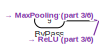
[diagram: DUT/2DConvPE3 V1.2 - part 1/6, top left region]
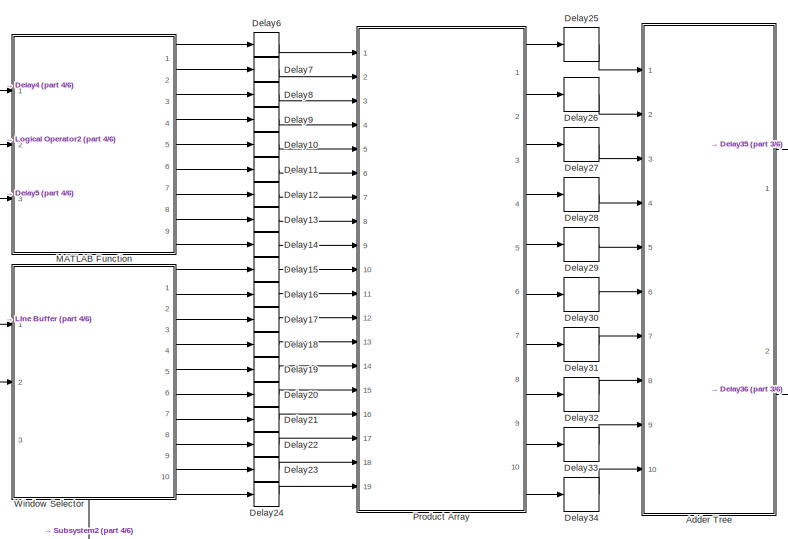
[diagram: DUT/2DConvPE3 V1.2 - part 2/6, top center region]
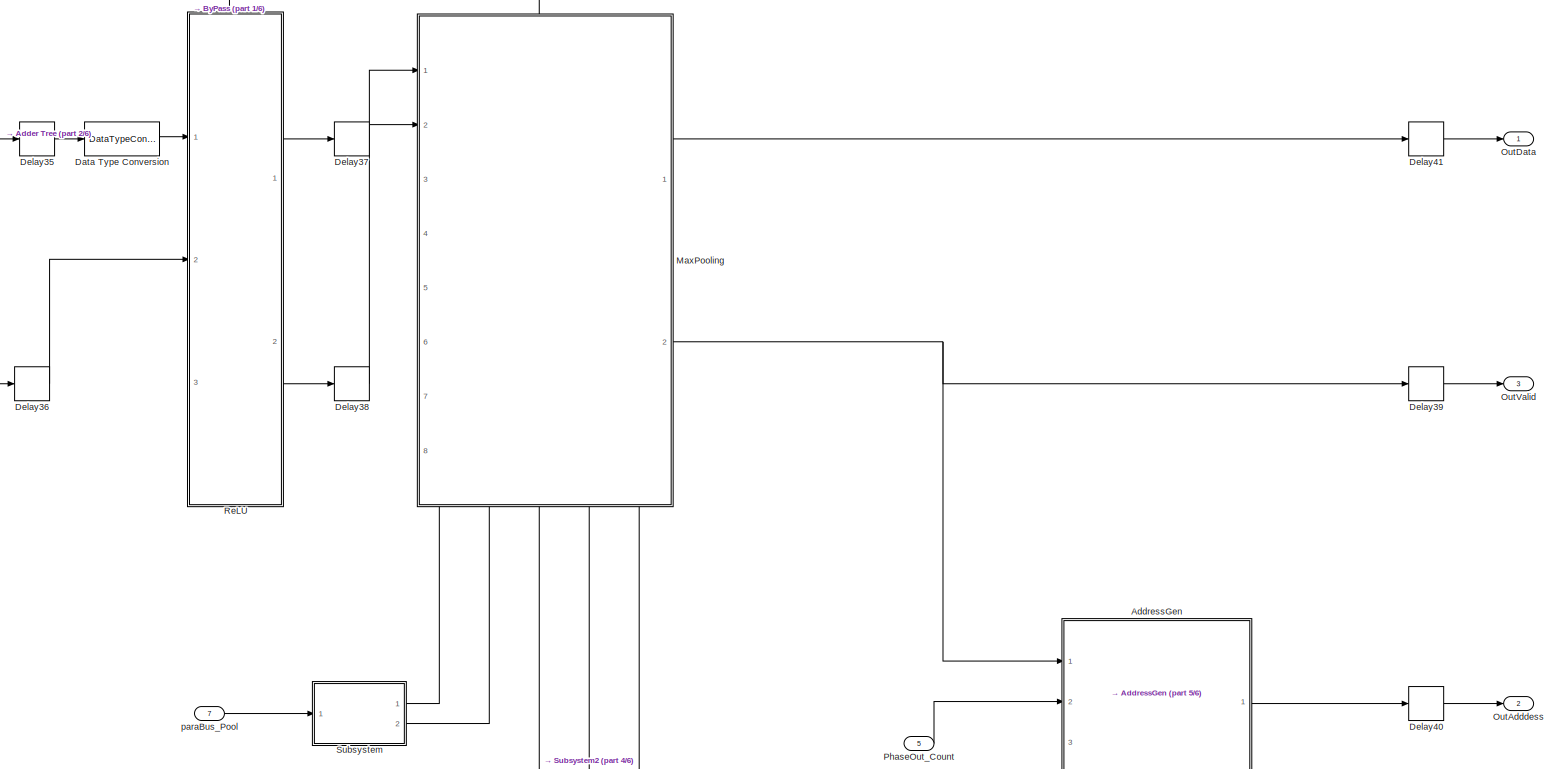
[diagram: DUT/2DConvPE3 V1.2 - part 3/6, middle right region]
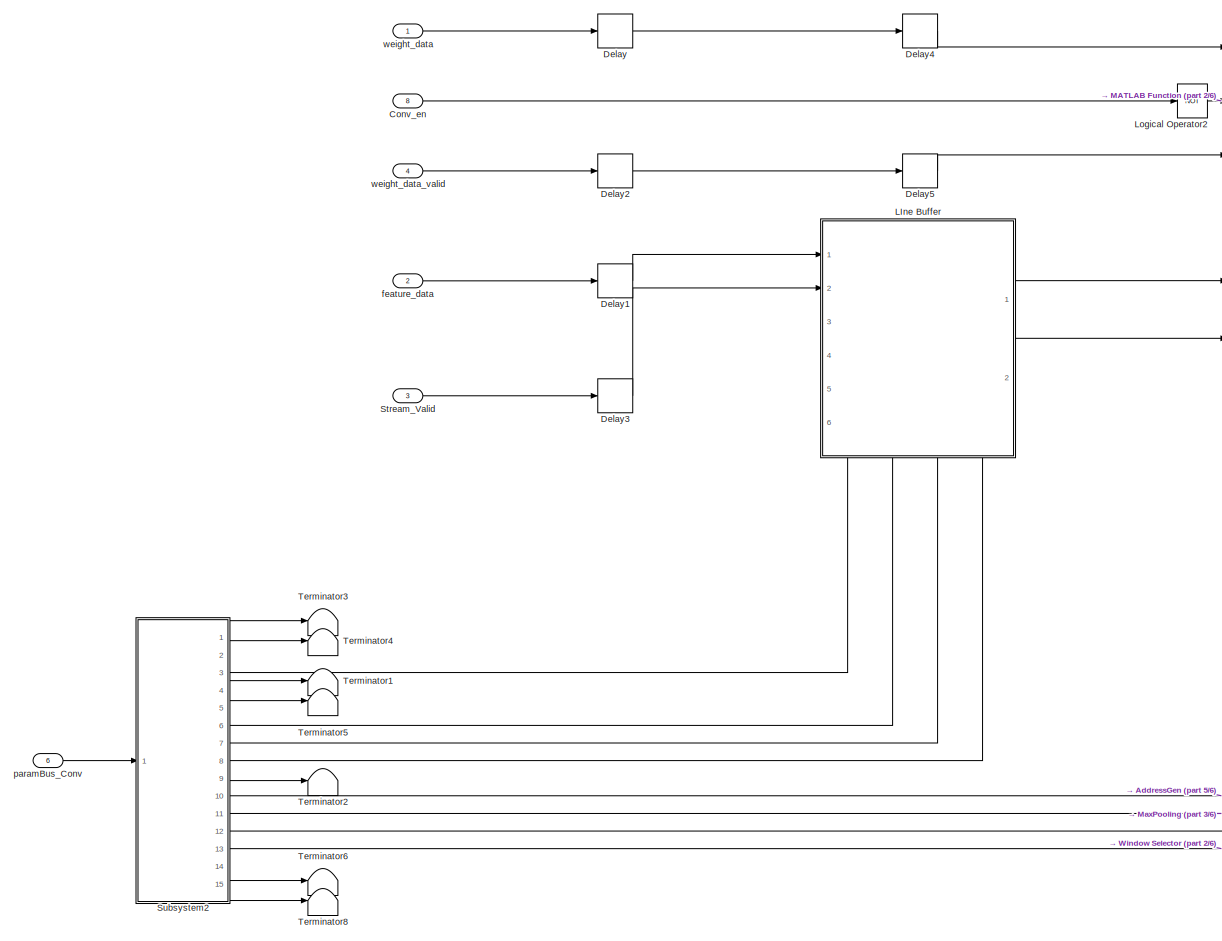
[diagram: DUT/2DConvPE3 V1.2 - part 4/6, middle left region]
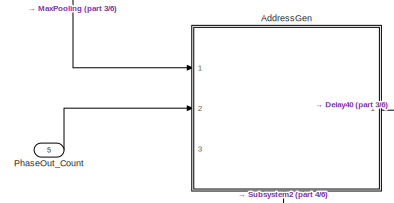
[diagram: DUT/2DConvPE3 V1.2 - part 5/6, middle right region]
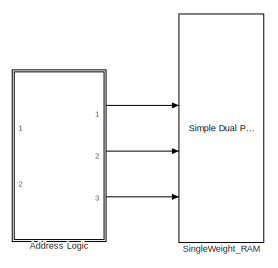
[diagram: DUT/2DConvPE3 V1.2 - part 6/6, bottom left region]
BLOCK [SubSystem] DUT/2DConvPE3 V1.2
  Ports = [9, 3]
  RequestExecContextInheritance = off
BLOCK [SubSystem] DUT/2DConvPE3 V1.2/Adder Tree
  Ports = [10, 2]
  RequestExecContextInheritance = off
BLOCK [Sum] DUT/2DConvPE3 V1.2/Adder Tree/Add
  IconShape = rectangular
  Ports = [2, 1]
BLOCK [Sum] DUT/2DConvPE3 V1.2/Adder Tree/Add1
  IconShape = rectangular
  Ports = [2, 1]
BLOCK [Sum] DUT/2DConvPE3 V1.2/Adder Tree/Add10
  IconShape = rectangular
  Ports = [2, 1]
BLOCK [Sum] DUT/2DConvPE3 V1.2/Adder Tree/Add2
  IconShape = rectangular
  Ports = [2, 1]
BLOCK [Sum] DUT/2DConvPE3 V1.2/Adder Tree/Add3
  IconShape = rectangular
  Ports = [2, 1]
BLOCK [Sum] DUT/2DConvPE3 V1.2/Adder Tree/Add4
  IconShape = rectangular
  Ports = [2, 1]
BLOCK [Sum] DUT/2DConvPE3 V1.2/Adder Tree/Add5
  IconShape = rectangular
  Ports = [2, 1]
BLOCK [Sum] DUT/2DConvPE3 V1.2/Adder Tree/Add6
  IconShape = rectangular
  Ports = [2, 1]
BLOCK [Delay] DUT/2DConvPE3 V1.2/Adder Tree/Delay1
  DelayLength = 1
  InputPortMap = u0
  Ports = [1, 1]
BLOCK [Delay] DUT/2DConvPE3 V1.2/Adder Tree/Delay2
  DelayLength = 1
  InputPortMap = u0
  Ports = [1, 1]
BLOCK [Delay] DUT/2DConvPE3 V1.2/Adder Tree/Delay3
  DelayLength = 1
  InputPortMap = u0
  Ports = [1, 1]
BLOCK [Delay] DUT/2DConvPE3 V1.2/Adder Tree/Delay35
  DelayLength = 1
  InputPortMap = u0
  Ports = [1, 1]
BLOCK [Delay] DUT/2DConvPE3 V1.2/Adder Tree/Delay4
  DelayLength = 1
  InputPortMap = u0
  Ports = [1, 1]
BLOCK [Delay] DUT/2DConvPE3 V1.2/Adder Tree/Delay5
  DelayLength = 1
  InputPortMap = u0
  Ports = [1, 1]
BLOCK [Delay] DUT/2DConvPE3 V1.2/Adder Tree/Delay6
  DelayLength = 1
  InputPortMap = u0
  Ports = [1, 1]
BLOCK [Delay] DUT/2DConvPE3 V1.2/Adder Tree/Delay7
  DelayLength = 1
  InputPortMap = u0
  Ports = [1, 1]
BLOCK [Delay] DUT/2DConvPE3 V1.2/Adder Tree/Delay8
  DelayLength = 1
  InputPortMap = u0
  Ports = [1, 1]
BLOCK [Delay] DUT/2DConvPE3 V1.2/Adder Tree/Delay9
  DelayLength = 1
  InputPortMap = u0
  Ports = [1, 1]
BLOCK [Inport] DUT/2DConvPE3 V1.2/Adder Tree/In1
BLOCK [Inport] DUT/2DConvPE3 V1.2/Adder Tree/In2
  Port = 2
BLOCK [Inport] DUT/2DConvPE3 V1.2/Adder Tree/In3
  Port = 3
BLOCK [Inport] DUT/2DConvPE3 V1.2/Adder Tree/In4
  Port = 4
BLOCK [Inport] DUT/2DConvPE3 V1.2/Adder Tree/In5
  Port = 5
BLOCK [Inport] DUT/2DConvPE3 V1.2/Adder Tree/In6
  Port = 6
BLOCK [Inport] DUT/2DConvPE3 V1.2/Adder Tree/In7
  Port = 7
BLOCK [Inport] DUT/2DConvPE3 V1.2/Adder Tree/In8
  Port = 8
BLOCK [Inport] DUT/2DConvPE3 V1.2/Adder Tree/In9
  Port = 9
BLOCK [Outport] DUT/2DConvPE3 V1.2/Adder Tree/Out1
BLOCK [Inport] DUT/2DConvPE3 V1.2/Adder Tree/validIn
  Port = 10
BLOCK [Outport] DUT/2DConvPE3 V1.2/Adder Tree/validOut
  Port = 2
BLOCK [SubSystem] DUT/2DConvPE3 V1.2/Address Logic
  Commented = on
  Ports = [2, 3]
  RequestExecContextInheritance = off
BLOCK [SubSystem] DUT/2DConvPE3 V1.2/Address Logic/ 
  Ports = [2, 2]
  RequestExecContextInheritance = off
BLOCK [Constant] DUT/2DConvPE3 V1.2/Address Logic/ /Constant1
  OutDataTypeStr = uint32
  Value = 0
BLOCK [Constant] DUT/2DConvPE3 V1.2/Address Logic/ /Constant2
  OutDataTypeStr = uint32
  Value = 0
BLOCK [Inport] DUT/2DConvPE3 V1.2/Address Logic/ /In1
BLOCK [Inport] DUT/2DConvPE3 V1.2/Address Logic/ /In2
  Port = 2
BLOCK [Logic] DUT/2DConvPE3 V1.2/Address Logic/ /Logical Operator3
  AllPortsSameDT = off
  Operator = NOT
  OutDataTypeStr = boolean
  Ports = [1, 1]
BLOCK [Outport] DUT/2DConvPE3 V1.2/Address Logic/ /R
  Port = 2
BLOCK [Switch] DUT/2DConvPE3 V1.2/Address Logic/ /Switch
  Criteria = u2 ~= 0
  InputSameDT = off
  SaturateOnIntegerOverflow = off
BLOCK [Switch] DUT/2DConvPE3 V1.2/Address Logic/ /Switch1
  Criteria = u2 ~= 0
  InputSameDT = off
  SaturateOnIntegerOverflow = off
BLOCK [Outport] DUT/2DConvPE3 V1.2/Address Logic/ /W
BLOCK [Reference] DUT/2DConvPE3 V1.2/Address Logic/ /addr_bit_sel1  REF=hdlsllib/Logic and Bit
Operations/Bit Slice
  Ports = [1, 1]
  SourceBlock = hdlsllib/Logic and Bit\nOperations/Bit Slice
  SourceProductName = HDL Coder
  SourceType = Bit Slice
BLOCK [Reference] DUT/2DConvPE3 V1.2/Address Logic/ /addr_bit_sel2  REF=hdlsllib/Logic and Bit
Operations/Bit Slice
  Ports = [1, 1]
  SourceBlock = hdlsllib/Logic and Bit\nOperations/Bit Slice
  SourceProductName = HDL Coder
  SourceType = Bit Slice
BLOCK [Sum] DUT/2DConvPE3 V1.2/Address Logic/Add
  IconShape = rectangular
  Inputs = +-
  Ports = [2, 1]
BLOCK [Reference] DUT/2DConvPE3 V1.2/Address Logic/Compare To Constant  REF=simulink/Logic and Bit
Operations/Compare
To Constant
  Ports = [1, 1]
  SourceBlock = simulink/Logic and Bit\nOperations/Compare\nTo Constant
  SourceProductBaseCode = SL
  SourceType = Compare To Constant
BLOCK [Constant] DUT/2DConvPE3 V1.2/Address Logic/Constant
  OutDataTypeStr = uint32
BLOCK [Delay] DUT/2DConvPE3 V1.2/Address Logic/Delay
  DelayLength = 1
  InputPortMap = u0
  Ports = [1, 1]
BLOCK [Inport] DUT/2DConvPE3 V1.2/Address Logic/In1
BLOCK [Inport] DUT/2DConvPE3 V1.2/Address Logic/In2
  Port = 2
BLOCK [Logic] DUT/2DConvPE3 V1.2/Address Logic/Logical Operator1
  AllPortsSameDT = off
  OutDataTypeStr = boolean
  Ports = [2, 1]
BLOCK [Logic] DUT/2DConvPE3 V1.2/Address Logic/Logical Operator2
  AllPortsSameDT = off
  Operator = NOT
  OutDataTypeStr = boolean
  Ports = [1, 1]
BLOCK [Outport] DUT/2DConvPE3 V1.2/Address Logic/R
  Port = 3
BLOCK [RelationalOperator] DUT/2DConvPE3 V1.2/Address Logic/Relational Operator
  InputSameDT = off
  OutDataTypeStr = boolean
  Ports = [2, 1]
  RndMeth = Simplest
BLOCK [Outport] DUT/2DConvPE3 V1.2/Address Logic/W
BLOCK [Reference] DUT/2DConvPE3 V1.2/Address Logic/Weight_Counter  REF=hdlsllib/Sources/HDL Counter
  Ports = [2, 1]
  SourceBlock = hdlsllib/Sources/HDL Counter
  SourceProductName = HDL Coder
  SourceType = HDL Counter
BLOCK [Reference] DUT/2DConvPE3 V1.2/Address Logic/Weight_Interation_Counter  REF=hdlsllib/Sources/HDL Counter
  Ports = [2, 1]
  SourceBlock = hdlsllib/Sources/HDL Counter
  SourceProductName = HDL Coder
  SourceType = HDL Counter
BLOCK [Outport] DUT/2DConvPE3 V1.2/Address Logic/Write_en
  Port = 2
BLOCK [SubSystem] DUT/2DConvPE3 V1.2/AddressGen
  Ports = [3, 1]
  RequestExecContextInheritance = off
BLOCK [Sum] DUT/2DConvPE3 V1.2/AddressGen/ADD
  IconShape = rectangular
  Ports = [2, 1]
BLOCK [Constant] DUT/2DConvPE3 V1.2/AddressGen/Constant1
  OutDataTypeStr = uint32
  SampleTime = -1
  Value = 0
BLOCK [Constant] DUT/2DConvPE3 V1.2/AddressGen/Constant2
  OutDataTypeStr = uint32
  SampleTime = -1
BLOCK [Sum] DUT/2DConvPE3 V1.2/AddressGen/Minus
  IconShape = rectangular
  Inputs = +-
  Ports = [2, 1]
BLOCK [Outport] DUT/2DConvPE3 V1.2/AddressGen/OutAdddess
BLOCK [Reference] DUT/2DConvPE3 V1.2/AddressGen/OutAddress_Counter  REF=hdlsllib/Sources/HDL Counter
  Ports = [2, 1]
  SourceBlock = hdlsllib/Sources/HDL Counter
  SourceProductName = HDL Coder
  SourceType = HDL Counter
BLOCK [Inport] DUT/2DConvPE3 V1.2/AddressGen/PhaseOut_Count
  Port = 2
BLOCK [Product] DUT/2DConvPE3 V1.2/AddressGen/Product
  Ports = [2, 1]
BLOCK [RelationalOperator] DUT/2DConvPE3 V1.2/AddressGen/Relational Operator
  InputSameDT = off
  OutDataTypeStr = boolean
  Ports = [2, 1]
BLOCK [Switch] DUT/2DConvPE3 V1.2/AddressGen/Switch
  Criteria = u2 ~= 0
  InputSameDT = off
  SaturateOnIntegerOverflow = off
BLOCK [Inport] DUT/2DConvPE3 V1.2/AddressGen/enb
BLOCK [Inport] DUT/2DConvPE3 V1.2/AddressGen/outFeature_Area
  Port = 3
BLOCK [Inport] DUT/2DConvPE3 V1.2/ByPass
  Port = 9
BLOCK [Inport] DUT/2DConvPE3 V1.2/Conv_en
  Port = 8
BLOCK [DataTypeConversion] DUT/2DConvPE3 V1.2/Data Type Conversion
  OutDataTypeStr = int32
  RndMeth = Floor
  SaturateOnIntegerOverflow = off
BLOCK [Delay] DUT/2DConvPE3 V1.2/Delay
  DelayLength = 1
  InputPortMap = u0
  Ports = [1, 1]
BLOCK [Delay] DUT/2DConvPE3 V1.2/Delay1
  DelayLength = 1
  InputPortMap = u0
  Ports = [1, 1]
BLOCK [Delay] DUT/2DConvPE3 V1.2/Delay10
  DelayLength = 1
  InputPortMap = u0
  Ports = [1, 1]
BLOCK [Delay] DUT/2DConvPE3 V1.2/Delay11
  DelayLength = 1
  InputPortMap = u0
  Ports = [1, 1]
BLOCK [Delay] DUT/2DConvPE3 V1.2/Delay12
  DelayLength = 1
  InputPortMap = u0
  Ports = [1, 1]
BLOCK [Delay] DUT/2DConvPE3 V1.2/Delay13
  DelayLength = 1
  InputPortMap = u0
  Ports = [1, 1]
BLOCK [Delay] DUT/2DConvPE3 V1.2/Delay14
  DelayLength = 1
  InputPortMap = u0
  Ports = [1, 1]
BLOCK [Delay] DUT/2DConvPE3 V1.2/Delay15
  DelayLength = 1
  InputPortMap = u0
  Ports = [1, 1]
BLOCK [Delay] DUT/2DConvPE3 V1.2/Delay16
  DelayLength = 1
  InputPortMap = u0
  Ports = [1, 1]
BLOCK [Delay] DUT/2DConvPE3 V1.2/Delay17
  DelayLength = 1
  InputPortMap = u0
  Ports = [1, 1]
BLOCK [Delay] DUT/2DConvPE3 V1.2/Delay18
  DelayLength = 1
  InputPortMap = u0
  Ports = [1, 1]
BLOCK [Delay] DUT/2DConvPE3 V1.2/Delay19
  DelayLength = 1
  InputPortMap = u0
  Ports = [1, 1]
BLOCK [Delay] DUT/2DConvPE3 V1.2/Delay2
  DelayLength = 1
  InputPortMap = u0
  Ports = [1, 1]
BLOCK [Delay] DUT/2DConvPE3 V1.2/Delay20
  DelayLength = 1
  InputPortMap = u0
  Ports = [1, 1]
BLOCK [Delay] DUT/2DConvPE3 V1.2/Delay21
  DelayLength = 1
  InputPortMap = u0
  Ports = [1, 1]
BLOCK [Delay] DUT/2DConvPE3 V1.2/Delay22
  DelayLength = 1
  InputPortMap = u0
  Ports = [1, 1]
BLOCK [Delay] DUT/2DConvPE3 V1.2/Delay23
  DelayLength = 1
  InputPortMap = u0
  Ports = [1, 1]
BLOCK [Delay] DUT/2DConvPE3 V1.2/Delay24
  DelayLength = 1
  InputPortMap = u0
  Ports = [1, 1]
BLOCK [Delay] DUT/2DConvPE3 V1.2/Delay25
  DelayLength = 1
  InputPortMap = u0
  Ports = [1, 1]
BLOCK [Delay] DUT/2DConvPE3 V1.2/Delay26
  DelayLength = 1
  InputPortMap = u0
  Ports = [1, 1]
BLOCK [Delay] DUT/2DConvPE3 V1.2/Delay27
  DelayLength = 1
  InputPortMap = u0
  Ports = [1, 1]
BLOCK [Delay] DUT/2DConvPE3 V1.2/Delay28
  DelayLength = 1
  InputPortMap = u0
  Ports = [1, 1]
BLOCK [Delay] DUT/2DConvPE3 V1.2/Delay29
  DelayLength = 1
  InputPortMap = u0
  Ports = [1, 1]
BLOCK [Delay] DUT/2DConvPE3 V1.2/Delay3
  DelayLength = 1
  InputPortMap = u0
  Ports = [1, 1]
BLOCK [Delay] DUT/2DConvPE3 V1.2/Delay30
  DelayLength = 1
  InputPortMap = u0
  Ports = [1, 1]
BLOCK [Delay] DUT/2DConvPE3 V1.2/Delay31
  DelayLength = 1
  InputPortMap = u0
  Ports = [1, 1]
BLOCK [Delay] DUT/2DConvPE3 V1.2/Delay32
  DelayLength = 1
  InputPortMap = u0
  Ports = [1, 1]
BLOCK [Delay] DUT/2DConvPE3 V1.2/Delay33
  DelayLength = 1
  InputPortMap = u0
  Ports = [1, 1]
BLOCK [Delay] DUT/2DConvPE3 V1.2/Delay34
  DelayLength = 1
  InputPortMap = u0
  Ports = [1, 1]
BLOCK [Delay] DUT/2DConvPE3 V1.2/Delay35
  DelayLength = 1
  InputPortMap = u0
  Ports = [1, 1]
BLOCK [Delay] DUT/2DConvPE3 V1.2/Delay36
  DelayLength = 1
  InputPortMap = u0
  Ports = [1, 1]
BLOCK [Delay] DUT/2DConvPE3 V1.2/Delay37
  DelayLength = 1
  InputPortMap = u0
  Ports = [1, 1]
BLOCK [Delay] DUT/2DConvPE3 V1.2/Delay38
  DelayLength = 1
  InputPortMap = u0
  Ports = [1, 1]
BLOCK [Delay] DUT/2DConvPE3 V1.2/Delay39
  DelayLength = 1
  InputPortMap = u0
  Ports = [1, 1]
BLOCK [Delay] DUT/2DConvPE3 V1.2/Delay4
  InputPortMap = u0
  Ports = [1, 1]
BLOCK [Delay] DUT/2DConvPE3 V1.2/Delay40
  DelayLength = 1
  InputPortMap = u0
  Ports = [1, 1]
BLOCK [Delay] DUT/2DConvPE3 V1.2/Delay41
  DelayLength = 1
  InputPortMap = u0
  Ports = [1, 1]
BLOCK [Delay] DUT/2DConvPE3 V1.2/Delay5
  InputPortMap = u0
  Ports = [1, 1]
BLOCK [Delay] DUT/2DConvPE3 V1.2/Delay6
  DelayLength = 1
  InputPortMap = u0
  Ports = [1, 1]
BLOCK [Delay] DUT/2DConvPE3 V1.2/Delay7
  DelayLength = 1
  InputPortMap = u0
  Ports = [1, 1]
BLOCK [Delay] DUT/2DConvPE3 V1.2/Delay8
  DelayLength = 1
  InputPortMap = u0
  Ports = [1, 1]
BLOCK [Delay] DUT/2DConvPE3 V1.2/Delay9
  DelayLength = 1
  InputPortMap = u0
  Ports = [1, 1]
BLOCK [SubSystem] DUT/2DConvPE3 V1.2/LIne Buffer
  Ports = [6, 2]
  RequestExecContextInheritance = off
BLOCK [Delay] DUT/2DConvPE3 V1.2/LIne Buffer/Delay2
  DelayLength = 1
  InputPortMap = u0
  Ports = [1, 1]
BLOCK [Inport] DUT/2DConvPE3 V1.2/LIne Buffer/Feature_Area
  Port = 4
BLOCK [Inport] DUT/2DConvPE3 V1.2/LIne Buffer/Feature_Height
  Port = 6
BLOCK [Inport] DUT/2DConvPE3 V1.2/LIne Buffer/Feature_Width
  Port = 5
BLOCK [SubSystem] DUT/2DConvPE3 V1.2/LIne Buffer/Line Buffer
  Ports = [4, 3]
  RequestExecContextInheritance = off
BLOCK [SubSystem] DUT/2DConvPE3 V1.2/LIne Buffer/Line Buffer/CtrlGen
  Ports = [4, 2]
  RequestExecContextInheritance = off
BLOCK [Reference] DUT/2DConvPE3 V1.2/LIne Buffer/Line Buffer/CtrlGen/Compare To Zero  REF=simulink/Logic and Bit
Operations/Compare
To Zero
  Ports = [1, 1]
  SourceBlock = simulink/Logic and Bit\nOperations/Compare\nTo Zero
  SourceProductBaseCode = SL
  SourceType = Compare To Zero
BLOCK [Reference] DUT/2DConvPE3 V1.2/LIne Buffer/Line Buffer/CtrlGen/Compare To Zero1  REF=simulink/Logic and Bit
Operations/Compare
To Zero
  Ports = [1, 1]
  SourceBlock = simulink/Logic and Bit\nOperations/Compare\nTo Zero
  SourceProductBaseCode = SL
  SourceType = Compare To Zero
BLOCK [Constant] DUT/2DConvPE3 V1.2/LIne Buffer/Line Buffer/CtrlGen/Constant
  OutDataTypeStr = uint32
  SampleTime = -1
BLOCK [Constant] DUT/2DConvPE3 V1.2/LIne Buffer/Line Buffer/CtrlGen/Constant1
  OutDataTypeStr = uint32
  SampleTime = -1
BLOCK [Outport] DUT/2DConvPE3 V1.2/LIne Buffer/Line Buffer/CtrlGen/Ctrl
  Port = 2
BLOCK [Delay] DUT/2DConvPE3 V1.2/LIne Buffer/Line Buffer/CtrlGen/Delay3
  DelayLength = 1
  InputPortMap = u0
  Ports = [1, 1]
BLOCK [Delay] DUT/2DConvPE3 V1.2/LIne Buffer/Line Buffer/CtrlGen/Delay35
  DelayLength = 1
  InputPortMap = u0
  Ports = [1, 1]
BLOCK [Reference] DUT/2DConvPE3 V1.2/LIne Buffer/Line Buffer/CtrlGen/Feature Area Counter  REF=hdlsllib/Sources/HDL Counter
  Ports = [2, 1]
  SourceBlock = hdlsllib/Sources/HDL Counter
  SourceProductName = HDL Coder
  SourceType = HDL Counter
BLOCK [Reference] DUT/2DConvPE3 V1.2/LIne Buffer/Line Buffer/CtrlGen/Feature Row Counter  REF=hdlsllib/Sources/HDL Counter
  Ports = [2, 1]
  SourceBlock = hdlsllib/Sources/HDL Counter
  SourceProductName = HDL Coder
  SourceType = HDL Counter
BLOCK [Inport] DUT/2DConvPE3 V1.2/LIne Buffer/Line Buffer/CtrlGen/Feature_Area
  Port = 3
BLOCK [Inport] DUT/2DConvPE3 V1.2/LIne Buffer/Line Buffer/CtrlGen/Feature_Width
  Port = 4
BLOCK [Logic] DUT/2DConvPE3 V1.2/LIne Buffer/Line Buffer/CtrlGen/Logical Operator
  AllPortsSameDT = off
  Operator = OR
  OutDataTypeStr = boolean
  Ports = [2, 1]
BLOCK [Logic] DUT/2DConvPE3 V1.2/LIne Buffer/Line Buffer/CtrlGen/Logical Operator1
  AllPortsSameDT = off
  OutDataTypeStr = boolean
  Ports = [2, 1]
BLOCK [Logic] DUT/2DConvPE3 V1.2/LIne Buffer/Line Buffer/CtrlGen/Logical Operator2
  AllPortsSameDT = off
  OutDataTypeStr = boolean
  Ports = [2, 1]
BLOCK [Logic] DUT/2DConvPE3 V1.2/LIne Buffer/Line Buffer/CtrlGen/Logical Operator3
  AllPortsSameDT = off
  OutDataTypeStr = boolean
  Ports = [2, 1]
BLOCK [Logic] DUT/2DConvPE3 V1.2/LIne Buffer/Line Buffer/CtrlGen/Logical Operator5
  AllPortsSameDT = off
  OutDataTypeStr = boolean
  Ports = [2, 1]
BLOCK [Sum] DUT/2DConvPE3 V1.2/LIne Buffer/Line Buffer/CtrlGen/Minus1
  IconShape = rectangular
  Inputs = +-
  Ports = [2, 1]
BLOCK [Sum] DUT/2DConvPE3 V1.2/LIne Buffer/Line Buffer/CtrlGen/Minus2
  IconShape = rectangular
  Inputs = +-
  Ports = [2, 1]
BLOCK [Reference] DUT/2DConvPE3 V1.2/LIne Buffer/Line Buffer/CtrlGen/Pixel Control Bus Creator  REF=visionhdlutilities/Pixel Control
Bus Creator
  Ports = [5, 1]
  SourceBlock = visionhdlutilities/Pixel Control\nBus Creator
  SourceProductBaseCode = VT
  SourceType = Pixel Control Bus Creator
BLOCK [RelationalOperator] DUT/2DConvPE3 V1.2/LIne Buffer/Line Buffer/CtrlGen/Relational Operator1
  InputSameDT = off
  Operator = ==
  OutDataTypeStr = boolean
  Ports = [2, 1]
BLOCK [RelationalOperator] DUT/2DConvPE3 V1.2/LIne Buffer/Line Buffer/CtrlGen/Relational Operator2
  InputSameDT = off
  Operator = ==
  OutDataTypeStr = boolean
  Ports = [2, 1]
BLOCK [RelationalOperator] DUT/2DConvPE3 V1.2/LIne Buffer/Line Buffer/CtrlGen/Relational Operator3
  InputSameDT = off
  Operator = ==
  OutDataTypeStr = boolean
  Ports = [2, 1]
BLOCK [Outport] DUT/2DConvPE3 V1.2/LIne Buffer/Line Buffer/CtrlGen/StreamOut
BLOCK [Inport] DUT/2DConvPE3 V1.2/LIne Buffer/Line Buffer/CtrlGen/Stream_In
BLOCK [Inport] DUT/2DConvPE3 V1.2/LIne Buffer/Line Buffer/CtrlGen/Stream_Valid
  Port = 2
BLOCK [Inport] DUT/2DConvPE3 V1.2/LIne Buffer/Line Buffer/Feature_Area
  Port = 3
BLOCK [Inport] DUT/2DConvPE3 V1.2/LIne Buffer/Line Buffer/Feature_Width
  Port = 4
BLOCK [Reference] DUT/2DConvPE3 V1.2/LIne Buffer/Line Buffer/Line Buffer  REF=visionhdlutilities/Line Buffer
  Ports = [2, 3]
  SourceBlock = visionhdlutilities/Line Buffer
  SourceProductBaseCode = VT
  SourceType = visionhdl.LineBuffer
BLOCK [Inport] DUT/2DConvPE3 V1.2/LIne Buffer/Line Buffer/Stream_In
BLOCK [Inport] DUT/2DConvPE3 V1.2/LIne Buffer/Line Buffer/Stream_Valid
  Port = 2
BLOCK [Outport] DUT/2DConvPE3 V1.2/LIne Buffer/Line Buffer/ctrl
  Port = 2
BLOCK [Outport] DUT/2DConvPE3 V1.2/LIne Buffer/Line Buffer/pixel
BLOCK [Outport] DUT/2DConvPE3 V1.2/LIne Buffer/Line Buffer/shftEnable
  Port = 3
BLOCK [SubSystem] DUT/2DConvPE3 V1.2/LIne Buffer/OutValidGen
  Ports = [3, 1]
  RequestExecContextInheritance = off
BLOCK [Reference] DUT/2DConvPE3 V1.2/LIne Buffer/OutValidGen/Compare To Constant  REF=simulink/Logic and Bit
Operations/Compare
To Constant
  Ports = [1, 1]
  SourceBlock = simulink/Logic and Bit\nOperations/Compare\nTo Constant
  SourceProductBaseCode = SL
  SourceType = Compare To Constant
BLOCK [Constant] DUT/2DConvPE3 V1.2/LIne Buffer/OutValidGen/Constant
  OutDataTypeStr = uint32
  SampleTime = -1
BLOCK [Delay] DUT/2DConvPE3 V1.2/LIne Buffer/OutValidGen/Delay2
  DelayLength = 1
  InputPortMap = u0
  Ports = [1, 1]
BLOCK [Inport] DUT/2DConvPE3 V1.2/LIne Buffer/OutValidGen/Feature_Height
  Port = 3
BLOCK [Inport] DUT/2DConvPE3 V1.2/LIne Buffer/OutValidGen/In1
BLOCK [Logic] DUT/2DConvPE3 V1.2/LIne Buffer/OutValidGen/Logical Operator1
  AllPortsSameDT = off
  Operator = NOT
  OutDataTypeStr = boolean
  Ports = [1, 1]
BLOCK [Logic] DUT/2DConvPE3 V1.2/LIne Buffer/OutValidGen/Logical Operator2
  AllPortsSameDT = off
  Operator = OR
  OutDataTypeStr = boolean
  Ports = [2, 1]
BLOCK [Logic] DUT/2DConvPE3 V1.2/LIne Buffer/OutValidGen/Logical Operator3
  AllPortsSameDT = off
  Inputs = 4
  OutDataTypeStr = boolean
  Ports = [4, 1]
BLOCK [Logic] DUT/2DConvPE3 V1.2/LIne Buffer/OutValidGen/Logical Operator4
  AllPortsSameDT = off
  Operator = NOT
  OutDataTypeStr = boolean
  Ports = [1, 1]
BLOCK [Logic] DUT/2DConvPE3 V1.2/LIne Buffer/OutValidGen/Logical Operator5
  AllPortsSameDT = off
  Operator = OR
  OutDataTypeStr = boolean
  Ports = [2, 1]
BLOCK [Logic] DUT/2DConvPE3 V1.2/LIne Buffer/OutValidGen/Logical Operator6
  AllPortsSameDT = off
  Inputs = 3
  Operator = NOT
  OutDataTypeStr = boolean
  Ports = [1, 1]
BLOCK [Sum] DUT/2DConvPE3 V1.2/LIne Buffer/OutValidGen/Minus1
  IconShape = rectangular
  Inputs = +--
  Ports = [3, 1]
BLOCK [Sum] DUT/2DConvPE3 V1.2/LIne Buffer/OutValidGen/Minus2
  IconShape = rectangular
  Inputs = +-
  Ports = [2, 1]
BLOCK [Reference] DUT/2DConvPE3 V1.2/LIne Buffer/OutValidGen/NumRow_Counter  REF=hdlsllib/Sources/HDL Counter
  Ports = [2, 1]
  SourceBlock = hdlsllib/Sources/HDL Counter
  SourceProductName = HDL Coder
  SourceType = HDL Counter
BLOCK [BusSelector] DUT/2DConvPE3 V1.2/LIne Buffer/OutValidGen/Pixel Control Bus Selector
  OutputSignals = hStart,hEnd,vStart,vEnd,valid
  Ports = [1, 5]
BLOCK [RelationalOperator] DUT/2DConvPE3 V1.2/LIne Buffer/OutValidGen/Relational Operator1
  InputSameDT = off
  Operator = <
  OutDataTypeStr = boolean
  Ports = [2, 1]
BLOCK [RelationalOperator] DUT/2DConvPE3 V1.2/LIne Buffer/OutValidGen/Relational Operator2
  InputSameDT = off
  Operator = <=
  OutDataTypeStr = boolean
  Ports = [2, 1]
BLOCK [Reference] DUT/2DConvPE3 V1.2/LIne Buffer/OutValidGen/Row_Counter  REF=hdlsllib/Sources/HDL Counter
  Ports = [2, 1]
  SourceBlock = hdlsllib/Sources/HDL Counter
  SourceProductName = HDL Coder
  SourceType = HDL Counter
BLOCK [Terminator] DUT/2DConvPE3 V1.2/LIne Buffer/OutValidGen/Terminator1
BLOCK [Inport] DUT/2DConvPE3 V1.2/LIne Buffer/OutValidGen/Weight_Width
  Port = 2
BLOCK [Outport] DUT/2DConvPE3 V1.2/LIne Buffer/OutValidGen/valid
BLOCK [Inport] DUT/2DConvPE3 V1.2/LIne Buffer/Stream_In
BLOCK [Inport] DUT/2DConvPE3 V1.2/LIne Buffer/Stream_Valid
  Port = 2
BLOCK [Terminator] DUT/2DConvPE3 V1.2/LIne Buffer/Terminator
BLOCK [Inport] DUT/2DConvPE3 V1.2/LIne Buffer/Weight_Width
  Port = 3
BLOCK [Outport] DUT/2DConvPE3 V1.2/LIne Buffer/pixel
BLOCK [Outport] DUT/2DConvPE3 V1.2/LIne Buffer/valid
  Port = 2
BLOCK [Logic] DUT/2DConvPE3 V1.2/Logical Operator2
  AllPortsSameDT = off
  Operator = NOT
  OutDataTypeStr = boolean
  Ports = [1, 1]
BLOCK [SubSystem] DUT/2DConvPE3 V1.2/MATLAB Function
  ErrorFcn = Stateflow.Translate.translate
  PermitHierarchicalResolution = ExplicitOnly
  Ports = [3, 9]
  RequestExecContextInheritance = off
  SFBlockType = MATLAB Function
  TreatAsAtomicUnit = on
BLOCK [Demux] DUT/2DConvPE3 V1.2/MATLAB Function/ Demux 
  Outputs = 1
  Ports = [1, 1]
BLOCK [S-Function] DUT/2DConvPE3 V1.2/MATLAB Function/ SFunction 
  EnableBusSupport = on
  FunctionName = sf_sfun
  PortCounts = [3 10]
  Ports = [3, 10]
  SFcnIsStateOwnerBlock = off
  SFunctionDeploymentMode = off
  Tag = Stateflow S-Function 8
BLOCK [Terminator] DUT/2DConvPE3 V1.2/MATLAB Function/ Terminator 
BLOCK [Inport] DUT/2DConvPE3 V1.2/MATLAB Function/dataIn
BLOCK [Inport] DUT/2DConvPE3 V1.2/MATLAB Function/rst
  Port = 2
BLOCK [Outport] DUT/2DConvPE3 V1.2/MATLAB Function/w0
BLOCK [Outport] DUT/2DConvPE3 V1.2/MATLAB Function/w1
  Port = 2
  VectorParamsAs1DForOutWhenUnconnected = off
BLOCK [Outport] DUT/2DConvPE3 V1.2/MATLAB Function/w2
  Port = 3
BLOCK [Outport] DUT/2DConvPE3 V1.2/MATLAB Function/w3
  Port = 4
BLOCK [Outport] DUT/2DConvPE3 V1.2/MATLAB Function/w4
  Port = 5
BLOCK [Outport] DUT/2DConvPE3 V1.2/MATLAB Function/w5
  Port = 6
BLOCK [Outport] DUT/2DConvPE3 V1.2/MATLAB Function/w6
  Port = 7
BLOCK [Outport] DUT/2DConvPE3 V1.2/MATLAB Function/w7
  Port = 8
BLOCK [Outport] DUT/2DConvPE3 V1.2/MATLAB Function/w8
  Port = 9
BLOCK [Inport] DUT/2DConvPE3 V1.2/MATLAB Function/write_en
  Port = 3
BLOCK [SubSystem] DUT/2DConvPE3 V1.2/MaxPooling
  Ports = [8, 2]
  RequestExecContextInheritance = off
BLOCK [Inport] DUT/2DConvPE3 V1.2/MaxPooling/ByPass
  Port = 3
BLOCK [SubSystem] DUT/2DConvPE3 V1.2/MaxPooling/Comparator
  Ports = [5, 2]
  RequestExecContextInheritance = off
BLOCK [Delay] DUT/2DConvPE3 V1.2/MaxPooling/Comparator/Delay
  DelayLength = 1
  InputPortMap = u0
  Ports = [1, 1]
BLOCK [Delay] DUT/2DConvPE3 V1.2/MaxPooling/Comparator/Delay1
  DelayLength = 1
  InputPortMap = u0
  Ports = [1, 1]
BLOCK [Delay] DUT/2DConvPE3 V1.2/MaxPooling/Comparator/Delay2
  DelayLength = 1
  InputPortMap = u0
  Ports = [1, 1]
BLOCK [Delay] DUT/2DConvPE3 V1.2/MaxPooling/Comparator/Delay3
  DelayLength = 1
  InputPortMap = u0
  Ports = [1, 1]
BLOCK [Delay] DUT/2DConvPE3 V1.2/MaxPooling/Comparator/Delay4
  DelayLength = 1
  InputPortMap = u0
  Ports = [1, 1]
BLOCK [Inport] DUT/2DConvPE3 V1.2/MaxPooling/Comparator/In1
BLOCK [Inport] DUT/2DConvPE3 V1.2/MaxPooling/Comparator/In2
  Port = 2
BLOCK [Inport] DUT/2DConvPE3 V1.2/MaxPooling/Comparator/In3
  Port = 3
BLOCK [Inport] DUT/2DConvPE3 V1.2/MaxPooling/Comparator/In4
  Port = 4
BLOCK [Outport] DUT/2DConvPE3 V1.2/MaxPooling/Comparator/Out1
BLOCK [RelationalOperator] DUT/2DConvPE3 V1.2/MaxPooling/Comparator/Relational Operator
  InputSameDT = off
  Operator = >
  OutDataTypeStr = boolean
  Ports = [2, 1]
BLOCK [RelationalOperator] DUT/2DConvPE3 V1.2/MaxPooling/Comparator/Relational Operator1
  InputSameDT = off
  Operator = >
  OutDataTypeStr = boolean
  Ports = [2, 1]
BLOCK [RelationalOperator] DUT/2DConvPE3 V1.2/MaxPooling/Comparator/Relational Operator2
  InputSameDT = off
  Operator = >
  OutDataTypeStr = boolean
  Ports = [2, 1]
BLOCK [Switch] DUT/2DConvPE3 V1.2/MaxPooling/Comparator/Switch
  Criteria = u2 > Threshold
  InputSameDT = off
  SaturateOnIntegerOverflow = off
BLOCK [Switch] DUT/2DConvPE3 V1.2/MaxPooling/Comparator/Switch1
  Criteria = u2 > Threshold
  InputSameDT = off
  SaturateOnIntegerOverflow = off
BLOCK [Switch] DUT/2DConvPE3 V1.2/MaxPooling/Comparator/Switch2
  Criteria = u2 > Threshold
  InputSameDT = off
  SaturateOnIntegerOverflow = off
BLOCK [Inport] DUT/2DConvPE3 V1.2/MaxPooling/Comparator/Valid
  Port = 5
BLOCK [Outport] DUT/2DConvPE3 V1.2/MaxPooling/Comparator/outvalid
  Port = 2
BLOCK [Constant] DUT/2DConvPE3 V1.2/MaxPooling/Constant
  OutDataTypeStr = int32
  Value = 0
BLOCK [Delay] DUT/2DConvPE3 V1.2/MaxPooling/Delay
  DelayLength = 1
  InputPortMap = u0
  Ports = [1, 1]
BLOCK [Delay] DUT/2DConvPE3 V1.2/MaxPooling/Delay1
  DelayLength = 1
  InputPortMap = u0
  Ports = [1, 1]
BLOCK [Delay] DUT/2DConvPE3 V1.2/MaxPooling/Delay2
  DelayLength = 1
  InputPortMap = u0
  Ports = [1, 1]
BLOCK [Delay] DUT/2DConvPE3 V1.2/MaxPooling/Delay3
  DelayLength = 1
  InputPortMap = u0
  Ports = [1, 1]
BLOCK [Delay] DUT/2DConvPE3 V1.2/MaxPooling/Delay36
  DelayLength = 1
  InputPortMap = u0
  Ports = [1, 1]
BLOCK [Delay] DUT/2DConvPE3 V1.2/MaxPooling/Delay4
  DelayLength = 1
  InputPortMap = u0
  Ports = [1, 1]
BLOCK [Delay] DUT/2DConvPE3 V1.2/MaxPooling/Delay5
  DelayLength = 1
  InputPortMap = u0
  Ports = [1, 1]
BLOCK [Delay] DUT/2DConvPE3 V1.2/MaxPooling/Delay6
  DelayLength = 1
  InputPortMap = u0
  Ports = [1, 1]
BLOCK [Inport] DUT/2DConvPE3 V1.2/MaxPooling/Feature_Area
  Port = 6
BLOCK [Inport] DUT/2DConvPE3 V1.2/MaxPooling/Feature_Height
  Port = 8
BLOCK [Inport] DUT/2DConvPE3 V1.2/MaxPooling/Feature_Width
  Port = 7
BLOCK [SubSystem] DUT/2DConvPE3 V1.2/MaxPooling/Line Buffer1
  Ports = [4, 3]
  RequestExecContextInheritance = off
BLOCK [SubSystem] DUT/2DConvPE3 V1.2/MaxPooling/Line Buffer1/CtrlGen
  Ports = [4, 2]
  RequestExecContextInheritance = off
BLOCK [Reference] DUT/2DConvPE3 V1.2/MaxPooling/Line Buffer1/CtrlGen/Compare To Zero  REF=simulink/Logic and Bit
Operations/Compare
To Zero
  Ports = [1, 1]
  SourceBlock = simulink/Logic and Bit\nOperations/Compare\nTo Zero
  SourceProductBaseCode = SL
  SourceType = Compare To Zero
BLOCK [Reference] DUT/2DConvPE3 V1.2/MaxPooling/Line Buffer1/CtrlGen/Compare To Zero1  REF=simulink/Logic and Bit
Operations/Compare
To Zero
  Ports = [1, 1]
  SourceBlock = simulink/Logic and Bit\nOperations/Compare\nTo Zero
  SourceProductBaseCode = SL
  SourceType = Compare To Zero
BLOCK [Constant] DUT/2DConvPE3 V1.2/MaxPooling/Line Buffer1/CtrlGen/Constant
  OutDataTypeStr = uint32
  SampleTime = -1
BLOCK [Constant] DUT/2DConvPE3 V1.2/MaxPooling/Line Buffer1/CtrlGen/Constant1
  OutDataTypeStr = uint32
  SampleTime = -1
BLOCK [Outport] DUT/2DConvPE3 V1.2/MaxPooling/Line Buffer1/CtrlGen/Ctrl
  Port = 2
BLOCK [Delay] DUT/2DConvPE3 V1.2/MaxPooling/Line Buffer1/CtrlGen/Delay1
  DelayLength = 1
  InputPortMap = u0
  Ports = [1, 1]
BLOCK [Delay] DUT/2DConvPE3 V1.2/MaxPooling/Line Buffer1/CtrlGen/Delay36
  DelayLength = 1
  InputPortMap = u0
  Ports = [1, 1]
BLOCK [Reference] DUT/2DConvPE3 V1.2/MaxPooling/Line Buffer1/CtrlGen/Feature Area Counter  REF=hdlsllib/Sources/HDL Counter
  Ports = [2, 1]
  SourceBlock = hdlsllib/Sources/HDL Counter
  SourceProductName = HDL Coder
  SourceType = HDL Counter
BLOCK [Reference] DUT/2DConvPE3 V1.2/MaxPooling/Line Buffer1/CtrlGen/Feature Row Counter  REF=hdlsllib/Sources/HDL Counter
  Ports = [2, 1]
  SourceBlock = hdlsllib/Sources/HDL Counter
  SourceProductName = HDL Coder
  SourceType = HDL Counter
BLOCK [Inport] DUT/2DConvPE3 V1.2/MaxPooling/Line Buffer1/CtrlGen/Feature_Area
  Port = 3
BLOCK [Inport] DUT/2DConvPE3 V1.2/MaxPooling/Line Buffer1/CtrlGen/Feature_Width
  Port = 4
BLOCK [Logic] DUT/2DConvPE3 V1.2/MaxPooling/Line Buffer1/CtrlGen/Logical Operator
  AllPortsSameDT = off
  Operator = OR
  OutDataTypeStr = boolean
  Ports = [2, 1]
BLOCK [Logic] DUT/2DConvPE3 V1.2/MaxPooling/Line Buffer1/CtrlGen/Logical Operator1
  AllPortsSameDT = off
  OutDataTypeStr = boolean
  Ports = [2, 1]
BLOCK [Logic] DUT/2DConvPE3 V1.2/MaxPooling/Line Buffer1/CtrlGen/Logical Operator2
  AllPortsSameDT = off
  OutDataTypeStr = boolean
  Ports = [2, 1]
BLOCK [Logic] DUT/2DConvPE3 V1.2/MaxPooling/Line Buffer1/CtrlGen/Logical Operator3
  AllPortsSameDT = off
  OutDataTypeStr = boolean
  Ports = [2, 1]
BLOCK [Logic] DUT/2DConvPE3 V1.2/MaxPooling/Line Buffer1/CtrlGen/Logical Operator5
  AllPortsSameDT = off
  OutDataTypeStr = boolean
  Ports = [2, 1]
BLOCK [Sum] DUT/2DConvPE3 V1.2/MaxPooling/Line Buffer1/CtrlGen/Minus1
  IconShape = rectangular
  Inputs = +-
  Ports = [2, 1]
BLOCK [Sum] DUT/2DConvPE3 V1.2/MaxPooling/Line Buffer1/CtrlGen/Minus2
  IconShape = rectangular
  Inputs = +-
  Ports = [2, 1]
BLOCK [Reference] DUT/2DConvPE3 V1.2/MaxPooling/Line Buffer1/CtrlGen/Pixel Control Bus Creator  REF=visionhdlutilities/Pixel Control
Bus Creator
  Ports = [5, 1]
  SourceBlock = visionhdlutilities/Pixel Control\nBus Creator
  SourceProductBaseCode = VT
  SourceType = Pixel Control Bus Creator
BLOCK [RelationalOperator] DUT/2DConvPE3 V1.2/MaxPooling/Line Buffer1/CtrlGen/Relational Operator1
  InputSameDT = off
  Operator = ==
  OutDataTypeStr = boolean
  Ports = [2, 1]
BLOCK [RelationalOperator] DUT/2DConvPE3 V1.2/MaxPooling/Line Buffer1/CtrlGen/Relational Operator2
  InputSameDT = off
  Operator = ==
  OutDataTypeStr = boolean
  Ports = [2, 1]
BLOCK [RelationalOperator] DUT/2DConvPE3 V1.2/MaxPooling/Line Buffer1/CtrlGen/Relational Operator3
  InputSameDT = off
  Operator = ==
  OutDataTypeStr = boolean
  Ports = [2, 1]
BLOCK [Outport] DUT/2DConvPE3 V1.2/MaxPooling/Line Buffer1/CtrlGen/StreamOut
BLOCK [Inport] DUT/2DConvPE3 V1.2/MaxPooling/Line Buffer1/CtrlGen/Stream_In
BLOCK [Inport] DUT/2DConvPE3 V1.2/MaxPooling/Line Buffer1/CtrlGen/Stream_Valid
  Port = 2
BLOCK [Inport] DUT/2DConvPE3 V1.2/MaxPooling/Line Buffer1/Feature_Area
  Port = 3
BLOCK [Inport] DUT/2DConvPE3 V1.2/MaxPooling/Line Buffer1/Feature_Width
  Port = 4
BLOCK [Reference] DUT/2DConvPE3 V1.2/MaxPooling/Line Buffer1/Line Buffer  REF=visionhdlutilities/Line Buffer
  Ports = [2, 3]
  SourceBlock = visionhdlutilities/Line Buffer
  SourceProductBaseCode = VT
  SourceType = visionhdl.LineBuffer
BLOCK [Inport] DUT/2DConvPE3 V1.2/MaxPooling/Line Buffer1/Stream_In
BLOCK [Inport] DUT/2DConvPE3 V1.2/MaxPooling/Line Buffer1/Stream_Valid
  Port = 2
BLOCK [Outport] DUT/2DConvPE3 V1.2/MaxPooling/Line Buffer1/ctrl
  Port = 2
BLOCK [Outport] DUT/2DConvPE3 V1.2/MaxPooling/Line Buffer1/pixel
BLOCK [Outport] DUT/2DConvPE3 V1.2/MaxPooling/Line Buffer1/shftEnable
  Port = 3
BLOCK [SubSystem] DUT/2DConvPE3 V1.2/MaxPooling/OutValidGen
  Ports = [3, 1]
  RequestExecContextInheritance = off
BLOCK [Reference] DUT/2DConvPE3 V1.2/MaxPooling/OutValidGen/Compare To Constant  REF=simulink/Logic and Bit
Operations/Compare
To Constant
  Commented = on
  Ports = [1, 1]
  SourceBlock = simulink/Logic and Bit\nOperations/Compare\nTo Constant
  SourceProductBaseCode = SL
  SourceType = Compare To Constant
BLOCK [Constant] DUT/2DConvPE3 V1.2/MaxPooling/OutValidGen/Constant
  OutDataTypeStr = uint32
  SampleTime = -1
BLOCK [Delay] DUT/2DConvPE3 V1.2/MaxPooling/OutValidGen/Delay36
  DelayLength = 1
  InputPortMap = u0
  Ports = [1, 1]
BLOCK [Inport] DUT/2DConvPE3 V1.2/MaxPooling/OutValidGen/Feature_Height
  Port = 3
BLOCK [Logic] DUT/2DConvPE3 V1.2/MaxPooling/OutValidGen/Logical Operator1
  AllPortsSameDT = off
  Operator = NOT
  OutDataTypeStr = boolean
  Ports = [1, 1]
BLOCK [Logic] DUT/2DConvPE3 V1.2/MaxPooling/OutValidGen/Logical Operator3
  AllPortsSameDT = off
  Inputs = 3
  OutDataTypeStr = boolean
  Ports = [3, 1]
BLOCK [Logic] DUT/2DConvPE3 V1.2/MaxPooling/OutValidGen/Logical Operator4
  AllPortsSameDT = off
  Operator = NOT
  OutDataTypeStr = boolean
  Ports = [1, 1]
BLOCK [Logic] DUT/2DConvPE3 V1.2/MaxPooling/OutValidGen/Logical Operator5
  AllPortsSameDT = off
  Operator = OR
  OutDataTypeStr = boolean
  Ports = [2, 1]
BLOCK [Logic] DUT/2DConvPE3 V1.2/MaxPooling/OutValidGen/Logical Operator6
  AllPortsSameDT = off
  Inputs = 3
  Operator = NOT
  OutDataTypeStr = boolean
  Ports = [1, 1]
BLOCK [Sum] DUT/2DConvPE3 V1.2/MaxPooling/OutValidGen/Minus1
  IconShape = rectangular
  Inputs = +-
  Ports = [2, 1]
BLOCK [Sum] DUT/2DConvPE3 V1.2/MaxPooling/OutValidGen/Minus2
  IconShape = rectangular
  Inputs = +-
  Ports = [2, 1]
BLOCK [Reference] DUT/2DConvPE3 V1.2/MaxPooling/OutValidGen/NumRow_Counter  REF=hdlsllib/Sources/HDL Counter
  Ports = [2, 1]
  SourceBlock = hdlsllib/Sources/HDL Counter
  SourceProductName = HDL Coder
  SourceType = HDL Counter
BLOCK [Outport] DUT/2DConvPE3 V1.2/MaxPooling/OutValidGen/Out1
BLOCK [BusSelector] DUT/2DConvPE3 V1.2/MaxPooling/OutValidGen/Pixel Control Bus Selector
  OutputSignals = hStart,hEnd,vStart,vEnd,valid
  Ports = [1, 5]
BLOCK [RelationalOperator] DUT/2DConvPE3 V1.2/MaxPooling/OutValidGen/Relational Operator1
  InputSameDT = off
  Operator = <
  OutDataTypeStr = boolean
  Ports = [2, 1]
BLOCK [RelationalOperator] DUT/2DConvPE3 V1.2/MaxPooling/OutValidGen/Relational Operator2
  InputSameDT = off
  Operator = <=
  OutDataTypeStr = boolean
  Ports = [2, 1]
BLOCK [Reference] DUT/2DConvPE3 V1.2/MaxPooling/OutValidGen/Row_Counter  REF=hdlsllib/Sources/HDL Counter
  Ports = [2, 1]
  SourceBlock = hdlsllib/Sources/HDL Counter
  SourceProductName = HDL Coder
  SourceType = HDL Counter
BLOCK [Terminator] DUT/2DConvPE3 V1.2/MaxPooling/OutValidGen/Terminator1
BLOCK [Inport] DUT/2DConvPE3 V1.2/MaxPooling/OutValidGen/Window_Width
  Port = 2
BLOCK [Inport] DUT/2DConvPE3 V1.2/MaxPooling/OutValidGen/ctrl
BLOCK [Inport] DUT/2DConvPE3 V1.2/MaxPooling/Stream_In
BLOCK [Inport] DUT/2DConvPE3 V1.2/MaxPooling/Stream_Valid
  Port = 2
BLOCK [Switch] DUT/2DConvPE3 V1.2/MaxPooling/Switch
  Criteria = u2 > Threshold
  InputSameDT = off
  SaturateOnIntegerOverflow = off
BLOCK [Switch] DUT/2DConvPE3 V1.2/MaxPooling/Switch1
  Criteria = u2 > Threshold
  InputSameDT = off
  SaturateOnIntegerOverflow = off
BLOCK [Terminator] DUT/2DConvPE3 V1.2/MaxPooling/Terminator1
BLOCK [Outport] DUT/2DConvPE3 V1.2/MaxPooling/Valid
  Port = 2
BLOCK [Inport] DUT/2DConvPE3 V1.2/MaxPooling/Window_Width
  Port = 5
BLOCK [Switch] DUT/2DConvPE3 V1.2/MaxPooling/dataSwitch
  Criteria = u2 > Threshold
  InputSameDT = off
  SaturateOnIntegerOverflow = off
BLOCK [Outport] DUT/2DConvPE3 V1.2/MaxPooling/outdata
BLOCK [Inport] DUT/2DConvPE3 V1.2/MaxPooling/step
  Port = 4
BLOCK [Switch] DUT/2DConvPE3 V1.2/MaxPooling/validSwitch
  Criteria = u2 > Threshold
  InputSameDT = off
  SaturateOnIntegerOverflow = off
BLOCK [SubSystem] DUT/2DConvPE3 V1.2/MaxPooling/window Selector
  Ports = [3, 5]
  RequestExecContextInheritance = off
BLOCK [Sum] DUT/2DConvPE3 V1.2/MaxPooling/window Selector/Add
  IconShape = rectangular
  Inputs = +-
  Ports = [2, 1]
BLOCK [Reference] DUT/2DConvPE3 V1.2/MaxPooling/window Selector/Compare To Zero  REF=simulink/Logic and Bit
Operations/Compare
To Zero
  Ports = [1, 1]
  SourceBlock = simulink/Logic and Bit\nOperations/Compare\nTo Zero
  SourceProductBaseCode = SL
  SourceType = Compare To Zero
BLOCK [Constant] DUT/2DConvPE3 V1.2/MaxPooling/window Selector/Constant
  OutDataTypeStr = uint32
BLOCK [Delay] DUT/2DConvPE3 V1.2/MaxPooling/window Selector/Delay
  InputPortMap = u0
  Ports = [1, 1]
BLOCK [Delay] DUT/2DConvPE3 V1.2/MaxPooling/window Selector/Delay1
  DelayLength = 1
  InputPortMap = u0
  Ports = [1, 1]
BLOCK [Delay] DUT/2DConvPE3 V1.2/MaxPooling/window Selector/Delay36
  DelayLength = 1
  InputPortMap = u0
  Ports = [1, 1]
BLOCK [Logic] DUT/2DConvPE3 V1.2/MaxPooling/window Selector/Logical Operator
  AllPortsSameDT = off
  Operator = NOT
  OutDataTypeStr = boolean
  Ports = [1, 1]
BLOCK [Logic] DUT/2DConvPE3 V1.2/MaxPooling/window Selector/Logical Operator1
  AllPortsSameDT = off
  Operator = OR
  OutDataTypeStr = boolean
  Ports = [2, 1]
BLOCK [Logic] DUT/2DConvPE3 V1.2/MaxPooling/window Selector/Logical Operator2
  AllPortsSameDT = off
  OutDataTypeStr = boolean
  Ports = [2, 1]
BLOCK [Outport] DUT/2DConvPE3 V1.2/MaxPooling/window Selector/Out1
BLOCK [Outport] DUT/2DConvPE3 V1.2/MaxPooling/window Selector/Out2
  Port = 2
BLOCK [Outport] DUT/2DConvPE3 V1.2/MaxPooling/window Selector/Out3
  Port = 3
BLOCK [Outport] DUT/2DConvPE3 V1.2/MaxPooling/window Selector/Out4
  Port = 4
BLOCK [RelationalOperator] DUT/2DConvPE3 V1.2/MaxPooling/window Selector/Relational Operator
  InputSameDT = off
  OutDataTypeStr = boolean
  Ports = [2, 1]
BLOCK [Selector] DUT/2DConvPE3 V1.2/MaxPooling/window Selector/Selector1
  IndexOptions = Index vector (dialog)
  Indices = [1]
  InputPortWidth = 2
  OutputSizes = 1
  Ports = [1, 1]
BLOCK [Selector] DUT/2DConvPE3 V1.2/MaxPooling/window Selector/Selector2
  IndexOptions = Index vector (dialog)
  Indices = [2]
  InputPortWidth = 2
  OutputSizes = 1
  Ports = [1, 1]
BLOCK [Selector] DUT/2DConvPE3 V1.2/MaxPooling/window Selector/Selector3
  IndexOptions = Index vector (dialog)
  Indices = [1]
  InputPortWidth = 2
  OutputSizes = 1
  Ports = [1, 1]
BLOCK [Selector] DUT/2DConvPE3 V1.2/MaxPooling/window Selector/Selector4
  IndexOptions = Index vector (dialog)
  Indices = [2]
  InputPortWidth = 2
  OutputSizes = 1
  Ports = [1, 1]
BLOCK [Reference] DUT/2DConvPE3 V1.2/MaxPooling/window Selector/Step Counter  REF=hdlsllib/Sources/HDL Counter
  Ports = [2, 1]
  SourceBlock = hdlsllib/Sources/HDL Counter
  SourceProductName = HDL Coder
  SourceType = HDL Counter
BLOCK [Outport] DUT/2DConvPE3 V1.2/MaxPooling/window Selector/Valid
  Port = 5
BLOCK [Inport] DUT/2DConvPE3 V1.2/MaxPooling/window Selector/pixel
BLOCK [Inport] DUT/2DConvPE3 V1.2/MaxPooling/window Selector/step
  Port = 3
BLOCK [Inport] DUT/2DConvPE3 V1.2/MaxPooling/window Selector/valid
  Port = 2
BLOCK [Outport] DUT/2DConvPE3 V1.2/OutAdddess
  Port = 2
BLOCK [Outport] DUT/2DConvPE3 V1.2/OutData
BLOCK [Outport] DUT/2DConvPE3 V1.2/OutValid
  Port = 3
BLOCK [Inport] DUT/2DConvPE3 V1.2/PhaseOut_Count
  Port = 5
BLOCK [SubSystem] DUT/2DConvPE3 V1.2/Product Array
  Ports = [19, 10]
  RequestExecContextInheritance = off
BLOCK [Delay] DUT/2DConvPE3 V1.2/Product Array/Delay1
  DelayLength = 1
  InputPortMap = u0
  Ports = [1, 1]
BLOCK [Delay] DUT/2DConvPE3 V1.2/Product Array/Delay10
  DelayLength = 1
  InputPortMap = u0
  Ports = [1, 1]
BLOCK [Delay] DUT/2DConvPE3 V1.2/Product Array/Delay11
  DelayLength = 1
  InputPortMap = u0
  Ports = [1, 1]
BLOCK [Delay] DUT/2DConvPE3 V1.2/Product Array/Delay12
  DelayLength = 1
  InputPortMap = u0
  Ports = [1, 1]
BLOCK [Delay] DUT/2DConvPE3 V1.2/Product Array/Delay13
  DelayLength = 1
  InputPortMap = u0
  Ports = [1, 1]
BLOCK [Delay] DUT/2DConvPE3 V1.2/Product Array/Delay14
  DelayLength = 1
  InputPortMap = u0
  Ports = [1, 1]
BLOCK [Delay] DUT/2DConvPE3 V1.2/Product Array/Delay15
  DelayLength = 1
  InputPortMap = u0
  Ports = [1, 1]
BLOCK [Delay] DUT/2DConvPE3 V1.2/Product Array/Delay16
  DelayLength = 1
  InputPortMap = u0
  Ports = [1, 1]
BLOCK [Delay] DUT/2DConvPE3 V1.2/Product Array/Delay17
  DelayLength = 1
  InputPortMap = u0
  Ports = [1, 1]
BLOCK [Delay] DUT/2DConvPE3 V1.2/Product Array/Delay19
  DelayLength = 1
  InputPortMap = u0
  Ports = [1, 1]
BLOCK [Delay] DUT/2DConvPE3 V1.2/Product Array/Delay2
  DelayLength = 1
  InputPortMap = u0
  Ports = [1, 1]
BLOCK [Delay] DUT/2DConvPE3 V1.2/Product Array/Delay3
  DelayLength = 1
  InputPortMap = u0
  Ports = [1, 1]
BLOCK [Delay] DUT/2DConvPE3 V1.2/Product Array/Delay35
  DelayLength = 1
  InputPortMap = u0
  Ports = [1, 1]
BLOCK [Delay] DUT/2DConvPE3 V1.2/Product Array/Delay4
  DelayLength = 1
  InputPortMap = u0
  Ports = [1, 1]
BLOCK [Delay] DUT/2DConvPE3 V1.2/Product Array/Delay5
  DelayLength = 1
  InputPortMap = u0
  Ports = [1, 1]
BLOCK [Delay] DUT/2DConvPE3 V1.2/Product Array/Delay6
  DelayLength = 1
  InputPortMap = u0
  Ports = [1, 1]
BLOCK [Delay] DUT/2DConvPE3 V1.2/Product Array/Delay7
  DelayLength = 1
  InputPortMap = u0
  Ports = [1, 1]
BLOCK [Delay] DUT/2DConvPE3 V1.2/Product Array/Delay8
  DelayLength = 1
  InputPortMap = u0
  Ports = [1, 1]
BLOCK [Delay] DUT/2DConvPE3 V1.2/Product Array/Delay9
  DelayLength = 1
  InputPortMap = u0
  Ports = [1, 1]
BLOCK [Inport] DUT/2DConvPE3 V1.2/Product Array/In1
BLOCK [Inport] DUT/2DConvPE3 V1.2/Product Array/In10
  Port = 10
BLOCK [Inport] DUT/2DConvPE3 V1.2/Product Array/In11
  Port = 11
BLOCK [Inport] DUT/2DConvPE3 V1.2/Product Array/In12
  Port = 12
BLOCK [Inport] DUT/2DConvPE3 V1.2/Product Array/In13
  Port = 13
BLOCK [Inport] DUT/2DConvPE3 V1.2/Product Array/In14
  Port = 14
BLOCK [Inport] DUT/2DConvPE3 V1.2/Product Array/In15
  Port = 15
BLOCK [Inport] DUT/2DConvPE3 V1.2/Product Array/In16
  Port = 16
BLOCK [Inport] DUT/2DConvPE3 V1.2/Product Array/In17
  Port = 17
BLOCK [Inport] DUT/2DConvPE3 V1.2/Product Array/In18
  Port = 18
BLOCK [Inport] DUT/2DConvPE3 V1.2/Product Array/In2
  Port = 2
BLOCK [Inport] DUT/2DConvPE3 V1.2/Product Array/In3
  Port = 3
BLOCK [Inport] DUT/2DConvPE3 V1.2/Product Array/In4
  Port = 4
BLOCK [Inport] DUT/2DConvPE3 V1.2/Product Array/In5
  Port = 5
BLOCK [Inport] DUT/2DConvPE3 V1.2/Product Array/In6
  Port = 6
BLOCK [Inport] DUT/2DConvPE3 V1.2/Product Array/In7
  Port = 7
BLOCK [Inport] DUT/2DConvPE3 V1.2/Product Array/In8
  Port = 8
BLOCK [Inport] DUT/2DConvPE3 V1.2/Product Array/In9
  Port = 9
BLOCK [Outport] DUT/2DConvPE3 V1.2/Product Array/Out1
BLOCK [Outport] DUT/2DConvPE3 V1.2/Product Array/Out2
  Port = 2
BLOCK [Outport] DUT/2DConvPE3 V1.2/Product Array/Out3
  Port = 3
BLOCK [Outport] DUT/2DConvPE3 V1.2/Product Array/Out4
  Port = 4
BLOCK [Outport] DUT/2DConvPE3 V1.2/Product Array/Out5
  Port = 5
BLOCK [Outport] DUT/2DConvPE3 V1.2/Product Array/Out6
  Port = 6
BLOCK [Outport] DUT/2DConvPE3 V1.2/Product Array/Out7
  Port = 7
BLOCK [Outport] DUT/2DConvPE3 V1.2/Product Array/Out8
  Port = 8
BLOCK [Outport] DUT/2DConvPE3 V1.2/Product Array/Out9
  Port = 9
BLOCK [Product] DUT/2DConvPE3 V1.2/Product Array/Product
  Ports = [2, 1]
BLOCK [Product] DUT/2DConvPE3 V1.2/Product Array/Product1
  Ports = [2, 1]
BLOCK [Product] DUT/2DConvPE3 V1.2/Product Array/Product2
  Ports = [2, 1]
BLOCK [Product] DUT/2DConvPE3 V1.2/Product Array/Product3
  Ports = [2, 1]
BLOCK [Product] DUT/2DConvPE3 V1.2/Product Array/Product4
  Ports = [2, 1]
BLOCK [Product] DUT/2DConvPE3 V1.2/Product Array/Product5
  Ports = [2, 1]
BLOCK [Product] DUT/2DConvPE3 V1.2/Product Array/Product6
  Ports = [2, 1]
BLOCK [Product] DUT/2DConvPE3 V1.2/Product Array/Product7
  Ports = [2, 1]
BLOCK [Product] DUT/2DConvPE3 V1.2/Product Array/Product8
  Ports = [2, 1]
BLOCK [Inport] DUT/2DConvPE3 V1.2/Product Array/validIn
  Port = 19
BLOCK [Outport] DUT/2DConvPE3 V1.2/Product Array/validOut
  Port = 10
BLOCK [SubSystem] DUT/2DConvPE3 V1.2/ReLU
  Ports = [3, 2]
  RequestExecContextInheritance = off
BLOCK [Reference] DUT/2DConvPE3 V1.2/ReLU/Compare To Zero  REF=simulink/Logic and Bit
Operations/Compare
To Zero
  Ports = [1, 1]
  SourceBlock = simulink/Logic and Bit\nOperations/Compare\nTo Zero
  SourceProductBaseCode = SL
  SourceType = Compare To Zero
BLOCK [Constant] DUT/2DConvPE3 V1.2/ReLU/Constant
  OutDataTypeStr = int32
  Value = 0
BLOCK [Delay] DUT/2DConvPE3 V1.2/ReLU/Delay1
  DelayLength = 1
  InputPortMap = u0
  Ports = [1, 1]
BLOCK [Delay] DUT/2DConvPE3 V1.2/ReLU/Delay36
  DelayLength = 1
  InputPortMap = u0
  Ports = [1, 1]
BLOCK [Switch] DUT/2DConvPE3 V1.2/ReLU/Switch
  Criteria = u2 > Threshold
  InputSameDT = off
  SaturateOnIntegerOverflow = off
BLOCK [Switch] DUT/2DConvPE3 V1.2/ReLU/Switch1
  Criteria = u2 > Threshold
  InputSameDT = off
  SaturateOnIntegerOverflow = off
BLOCK [Inport] DUT/2DConvPE3 V1.2/ReLU/byPass
  Port = 3
BLOCK [Outport] DUT/2DConvPE3 V1.2/ReLU/data_ReLU
BLOCK [Inport] DUT/2DConvPE3 V1.2/ReLU/data_in
BLOCK [Inport] DUT/2DConvPE3 V1.2/ReLU/validIn
  Port = 2
BLOCK [Outport] DUT/2DConvPE3 V1.2/ReLU/valildOut
  Port = 2
BLOCK [Reference] DUT/2DConvPE3 V1.2/SingleWeight_RAM  REF=hdlsllib/HDL RAMs/Simple Dual Port RAM
  Commented = on
  Ports = [4, 1]
  SourceBlock = hdlsllib/HDL RAMs/Simple Dual Port RAM
  SourceProductName = HDL Coder
  SourceType = Simple Dual-port RAM
BLOCK [Inport] DUT/2DConvPE3 V1.2/Stream_Valid
  Port = 3
BLOCK [SubSystem] DUT/2DConvPE3 V1.2/Subsystem
  Ports = [1, 2]
  RequestExecContextInheritance = off
BLOCK [BusSelector] DUT/2DConvPE3 V1.2/Subsystem/Bus Selector
  OutputSignals = signal1,signal2
  Ports = [1, 2]
BLOCK [Inport] DUT/2DConvPE3 V1.2/Subsystem/In1
BLOCK [Outport] DUT/2DConvPE3 V1.2/Subsystem/pool_Width
  Port = 2
BLOCK [Outport] DUT/2DConvPE3 V1.2/Subsystem/pool_step
BLOCK [SubSystem] DUT/2DConvPE3 V1.2/Subsystem2
  Ports = [1, 15]
  RequestExecContextInheritance = off
BLOCK [BusSelector] DUT/2DConvPE3 V1.2/Subsystem2/Bus Selector
  OutputSignals = signal1,signal2,signal3,signal4,signal5,signal6,signal7,signal8,signal9,signal10,signal11,signal12,signal13,signal14,signal15
  Ports = [1, 15]
BLOCK [Outport] DUT/2DConvPE3 V1.2/Subsystem2/Conv_Step
  Port = 13
BLOCK [Outport] DUT/2DConvPE3 V1.2/Subsystem2/Feature_Area
  Port = 6
BLOCK [Outport] DUT/2DConvPE3 V1.2/Subsystem2/Feature_Height
  Port = 8
BLOCK [Outport] DUT/2DConvPE3 V1.2/Subsystem2/Feature_Length
  Port = 5
BLOCK [Outport] DUT/2DConvPE3 V1.2/Subsystem2/Feature_Width
  Port = 7
BLOCK [Inport] DUT/2DConvPE3 V1.2/Subsystem2/In1
BLOCK [Outport] DUT/2DConvPE3 V1.2/Subsystem2/Weight_Area
  Port = 2
BLOCK [Outport] DUT/2DConvPE3 V1.2/Subsystem2/Weight_Height
  Port = 4
BLOCK [Outport] DUT/2DConvPE3 V1.2/Subsystem2/Weight_Length
BLOCK [Outport] DUT/2DConvPE3 V1.2/Subsystem2/Weight_Width
  Port = 3
BLOCK [Outport] DUT/2DConvPE3 V1.2/Subsystem2/inChannel
  Port = 14
BLOCK [Outport] DUT/2DConvPE3 V1.2/Subsystem2/outChannel
  Port = 15
BLOCK [Outport] DUT/2DConvPE3 V1.2/Subsystem2/outFeature_Area
  Port = 10
BLOCK [Outport] DUT/2DConvPE3 V1.2/Subsystem2/outFeature_Height
  Port = 12
BLOCK [Outport] DUT/2DConvPE3 V1.2/Subsystem2/outFeature_Length
  Port = 9
BLOCK [Outport] DUT/2DConvPE3 V1.2/Subsystem2/outFeature_Width
  Port = 11
BLOCK [Terminator] DUT/2DConvPE3 V1.2/Terminator1
BLOCK [Terminator] DUT/2DConvPE3 V1.2/Terminator2
BLOCK [Terminator] DUT/2DConvPE3 V1.2/Terminator3
BLOCK [Terminator] DUT/2DConvPE3 V1.2/Terminator4
BLOCK [Terminator] DUT/2DConvPE3 V1.2/Terminator5
BLOCK [Terminator] DUT/2DConvPE3 V1.2/Terminator6
BLOCK [Terminator] DUT/2DConvPE3 V1.2/Terminator8
BLOCK [SubSystem] DUT/2DConvPE3 V1.2/Window Selector
  Ports = [3, 10]
  RequestExecContextInheritance = off
BLOCK [Sum] DUT/2DConvPE3 V1.2/Window Selector/Add
  IconShape = rectangular
  Inputs = +-
  Ports = [2, 1]
BLOCK [Reference] DUT/2DConvPE3 V1.2/Window Selector/Compare To Zero  REF=simulink/Logic and Bit
Operations/Compare
To Zero
  Ports = [1, 1]
  SourceBlock = simulink/Logic and Bit\nOperations/Compare\nTo Zero
  SourceProductBaseCode = SL
  SourceType = Compare To Zero
BLOCK [Constant] DUT/2DConvPE3 V1.2/Window Selector/Constant
  OutDataTypeStr = uint32
BLOCK [Delay] DUT/2DConvPE3 V1.2/Window Selector/Delay
  InputPortMap = u0
  Ports = [1, 1]
BLOCK [Delay] DUT/2DConvPE3 V1.2/Window Selector/Delay1
  DelayLength = 3
  InputPortMap = u0
  Ports = [1, 1]
BLOCK [Delay] DUT/2DConvPE3 V1.2/Window Selector/Delay2
  DelayLength = 1
  InputPortMap = u0
  Ports = [1, 1]
BLOCK [Delay] DUT/2DConvPE3 V1.2/Window Selector/Delay3
  DelayLength = 1
  InputPortMap = u0
  Ports = [1, 1]
BLOCK [Delay] DUT/2DConvPE3 V1.2/Window Selector/Delay4
  DelayLength = 1
  InputPortMap = u0
  Ports = [1, 1]
BLOCK [Inport] DUT/2DConvPE3 V1.2/Window Selector/In1
BLOCK [Logic] DUT/2DConvPE3 V1.2/Window Selector/Logical Operator
  AllPortsSameDT = off
  Operator = NOT
  OutDataTypeStr = boolean
  Ports = [1, 1]
BLOCK [Logic] DUT/2DConvPE3 V1.2/Window Selector/Logical Operator1
  AllPortsSameDT = off
  Operator = OR
  OutDataTypeStr = boolean
  Ports = [2, 1]
BLOCK [Logic] DUT/2DConvPE3 V1.2/Window Selector/Logical Operator2
  AllPortsSameDT = off
  OutDataTypeStr = boolean
  Ports = [2, 1]
BLOCK [Outport] DUT/2DConvPE3 V1.2/Window Selector/Out1
BLOCK [Outport] DUT/2DConvPE3 V1.2/Window Selector/Out2
  Port = 2
BLOCK [Outport] DUT/2DConvPE3 V1.2/Window Selector/Out3
  Port = 3
BLOCK [Outport] DUT/2DConvPE3 V1.2/Window Selector/Out4
  Port = 4
BLOCK [Outport] DUT/2DConvPE3 V1.2/Window Selector/Out5
  Port = 5
BLOCK [Outport] DUT/2DConvPE3 V1.2/Window Selector/Out6
  Port = 6
BLOCK [Outport] DUT/2DConvPE3 V1.2/Window Selector/Out7
  Port = 7
BLOCK [Outport] DUT/2DConvPE3 V1.2/Window Selector/Out8
  Port = 8
BLOCK [Outport] DUT/2DConvPE3 V1.2/Window Selector/Out9
  Port = 9
BLOCK [RelationalOperator] DUT/2DConvPE3 V1.2/Window Selector/Relational Operator
  InputSameDT = off
  OutDataTypeStr = boolean
  Ports = [2, 1]
BLOCK [Selector] DUT/2DConvPE3 V1.2/Window Selector/Selector1
  IndexOptions = Index vector (dialog)
  Indices = [1]
  InputPortWidth = 3
  OutputSizes = 1
  Ports = [1, 1]
BLOCK [Selector] DUT/2DConvPE3 V1.2/Window Selector/Selector2
  IndexOptions = Index vector (dialog)
  Indices = [2]
  InputPortWidth = 3
  OutputSizes = 1
  Ports = [1, 1]
BLOCK [Selector] DUT/2DConvPE3 V1.2/Window Selector/Selector3
  IndexOptions = Index vector (dialog)
  Indices = [3]
  InputPortWidth = 3
  OutputSizes = 1
  Ports = [1, 1]
BLOCK [Selector] DUT/2DConvPE3 V1.2/Window Selector/Selector4
  IndexOptions = Index vector (dialog)
  Indices = [1]
  InputPortWidth = 3
  OutputSizes = 1
  Ports = [1, 1]
BLOCK [Selector] DUT/2DConvPE3 V1.2/Window Selector/Selector5
  IndexOptions = Index vector (dialog)
  Indices = [2]
  InputPortWidth = 3
  OutputSizes = 1
  Ports = [1, 1]
BLOCK [Selector] DUT/2DConvPE3 V1.2/Window Selector/Selector6
  IndexOptions = Index vector (dialog)
  Indices = [3]
  InputPortWidth = 3
  OutputSizes = 1
  Ports = [1, 1]
BLOCK [Selector] DUT/2DConvPE3 V1.2/Window Selector/Selector7
  IndexOptions = Index vector (dialog)
  Indices = [1]
  InputPortWidth = 3
  OutputSizes = 1
  Ports = [1, 1]
BLOCK [Selector] DUT/2DConvPE3 V1.2/Window Selector/Selector8
  IndexOptions = Index vector (dialog)
  Indices = [2]
  InputPortWidth = 3
  OutputSizes = 1
  Ports = [1, 1]
BLOCK [Selector] DUT/2DConvPE3 V1.2/Window Selector/Selector9
  IndexOptions = Index vector (dialog)
  Indices = [3]
  InputPortWidth = 3
  OutputSizes = 1
  Ports = [1, 1]
BLOCK [Reference] DUT/2DConvPE3 V1.2/Window Selector/Step Counter  REF=hdlsllib/Sources/HDL Counter
  Ports = [2, 1]
  SourceBlock = hdlsllib/Sources/HDL Counter
  SourceProductName = HDL Coder
  SourceType = HDL Counter
BLOCK [Outport] DUT/2DConvPE3 V1.2/Window Selector/Valid
  Port = 10
BLOCK [Inport] DUT/2DConvPE3 V1.2/Window Selector/step
  Port = 3
BLOCK [Inport] DUT/2DConvPE3 V1.2/Window Selector/valid
  Port = 2
BLOCK [Inport] DUT/2DConvPE3 V1.2/feature_data
  Port = 2
BLOCK [Inport] DUT/2DConvPE3 V1.2/paraBus_Pool
  Port = 7
BLOCK [Inport] DUT/2DConvPE3 V1.2/paramBus_Conv
  Port = 6
BLOCK [Inport] DUT/2DConvPE3 V1.2/weight_data
  NameLocation = top
BLOCK [Inport] DUT/2DConvPE3 V1.2/weight_data_valid
  Port = 4
BLOCK [SubSystem] DUT/2DConvPE4 V1.3
  Ports = [9, 3]
  RequestExecContextInheritance = off
BLOCK [SubSystem] DUT/2DConvPE4 V1.3/Adder Tree
  Ports = [10, 2]
  RequestExecContextInheritance = off
BLOCK [Sum] DUT/2DConvPE4 V1.3/Adder Tree/Add
  IconShape = rectangular
  Ports = [2, 1]
BLOCK [Sum] DUT/2DConvPE4 V1.3/Adder Tree/Add1
  IconShape = rectangular
  Ports = [2, 1]
BLOCK [Sum] DUT/2DConvPE4 V1.3/Adder Tree/Add10
  IconShape = rectangular
  Ports = [2, 1]
BLOCK [Sum] DUT/2DConvPE4 V1.3/Adder Tree/Add2
  IconShape = rectangular
  Ports = [2, 1]
BLOCK [Sum] DUT/2DConvPE4 V1.3/Adder Tree/Add3
  IconShape = rectangular
  Ports = [2, 1]
BLOCK [Sum] DUT/2DConvPE4 V1.3/Adder Tree/Add4
  IconShape = rectangular
  Ports = [2, 1]
BLOCK [Sum] DUT/2DConvPE4 V1.3/Adder Tree/Add5
  IconShape = rectangular
  Ports = [2, 1]
BLOCK [Sum] DUT/2DConvPE4 V1.3/Adder Tree/Add6
  IconShape = rectangular
  Ports = [2, 1]
BLOCK [Delay] DUT/2DConvPE4 V1.3/Adder Tree/Delay1
  DelayLength = 1
  InputPortMap = u0
  Ports = [1, 1]
BLOCK [Delay] DUT/2DConvPE4 V1.3/Adder Tree/Delay2
  DelayLength = 1
  InputPortMap = u0
  Ports = [1, 1]
BLOCK [Delay] DUT/2DConvPE4 V1.3/Adder Tree/Delay3
  DelayLength = 1
  InputPortMap = u0
  Ports = [1, 1]
BLOCK [Delay] DUT/2DConvPE4 V1.3/Adder Tree/Delay35
  DelayLength = 1
  InputPortMap = u0
  Ports = [1, 1]
BLOCK [Delay] DUT/2DConvPE4 V1.3/Adder Tree/Delay4
  DelayLength = 1
  InputPortMap = u0
  Ports = [1, 1]
BLOCK [Delay] DUT/2DConvPE4 V1.3/Adder Tree/Delay5
  DelayLength = 1
  InputPortMap = u0
  Ports = [1, 1]
BLOCK [Delay] DUT/2DConvPE4 V1.3/Adder Tree/Delay6
  DelayLength = 1
  InputPortMap = u0
  Ports = [1, 1]
BLOCK [Delay] DUT/2DConvPE4 V1.3/Adder Tree/Delay7
  DelayLength = 1
  InputPortMap = u0
  Ports = [1, 1]
BLOCK [Delay] DUT/2DConvPE4 V1.3/Adder Tree/Delay8
  DelayLength = 1
  InputPortMap = u0
  Ports = [1, 1]
BLOCK [Delay] DUT/2DConvPE4 V1.3/Adder Tree/Delay9
  DelayLength = 1
  InputPortMap = u0
  Ports = [1, 1]
BLOCK [Inport] DUT/2DConvPE4 V1.3/Adder Tree/In1
BLOCK [Inport] DUT/2DConvPE4 V1.3/Adder Tree/In2
  Port = 2
BLOCK [Inport] DUT/2DConvPE4 V1.3/Adder Tree/In3
  Port = 3
BLOCK [Inport] DUT/2DConvPE4 V1.3/Adder Tree/In4
  Port = 4
BLOCK [Inport] DUT/2DConvPE4 V1.3/Adder Tree/In5
  Port = 5
BLOCK [Inport] DUT/2DConvPE4 V1.3/Adder Tree/In6
  Port = 6
BLOCK [Inport] DUT/2DConvPE4 V1.3/Adder Tree/In7
  Port = 7
BLOCK [Inport] DUT/2DConvPE4 V1.3/Adder Tree/In8
  Port = 8
BLOCK [Inport] DUT/2DConvPE4 V1.3/Adder Tree/In9
  Port = 9
BLOCK [Outport] DUT/2DConvPE4 V1.3/Adder Tree/Out1
BLOCK [Inport] DUT/2DConvPE4 V1.3/Adder Tree/validIn
  Port = 10
BLOCK [Outport] DUT/2DConvPE4 V1.3/Adder Tree/validOut
  Port = 2
BLOCK [SubSystem] DUT/2DConvPE4 V1.3/Address Logic
  Commented = on
  Ports = [2, 3]
  RequestExecContextInheritance = off
BLOCK [SubSystem] DUT/2DConvPE4 V1.3/Address Logic/ 
  Ports = [2, 2]
  RequestExecContextInheritance = off
BLOCK [Constant] DUT/2DConvPE4 V1.3/Address Logic/ /Constant1
  OutDataTypeStr = uint32
  Value = 0
BLOCK [Constant] DUT/2DConvPE4 V1.3/Address Logic/ /Constant2
  OutDataTypeStr = uint32
  Value = 0
BLOCK [Inport] DUT/2DConvPE4 V1.3/Address Logic/ /In1
BLOCK [Inport] DUT/2DConvPE4 V1.3/Address Logic/ /In2
  Port = 2
BLOCK [Logic] DUT/2DConvPE4 V1.3/Address Logic/ /Logical Operator3
  AllPortsSameDT = off
  Operator = NOT
  OutDataTypeStr = boolean
  Ports = [1, 1]
BLOCK [Outport] DUT/2DConvPE4 V1.3/Address Logic/ /R
  Port = 2
BLOCK [Switch] DUT/2DConvPE4 V1.3/Address Logic/ /Switch
  Criteria = u2 ~= 0
  InputSameDT = off
  SaturateOnIntegerOverflow = off
BLOCK [Switch] DUT/2DConvPE4 V1.3/Address Logic/ /Switch1
  Criteria = u2 ~= 0
  InputSameDT = off
  SaturateOnIntegerOverflow = off
BLOCK [Outport] DUT/2DConvPE4 V1.3/Address Logic/ /W
BLOCK [Reference] DUT/2DConvPE4 V1.3/Address Logic/ /addr_bit_sel1  REF=hdlsllib/Logic and Bit
Operations/Bit Slice
  Ports = [1, 1]
  SourceBlock = hdlsllib/Logic and Bit\nOperations/Bit Slice
  SourceProductName = HDL Coder
  SourceType = Bit Slice
BLOCK [Reference] DUT/2DConvPE4 V1.3/Address Logic/ /addr_bit_sel2  REF=hdlsllib/Logic and Bit
Operations/Bit Slice
  Ports = [1, 1]
  SourceBlock = hdlsllib/Logic and Bit\nOperations/Bit Slice
  SourceProductName = HDL Coder
  SourceType = Bit Slice
BLOCK [Sum] DUT/2DConvPE4 V1.3/Address Logic/Add
  IconShape = rectangular
  Inputs = +-
  Ports = [2, 1]
BLOCK [Reference] DUT/2DConvPE4 V1.3/Address Logic/Compare To Constant  REF=simulink/Logic and Bit
Operations/Compare
To Constant
  Ports = [1, 1]
  SourceBlock = simulink/Logic and Bit\nOperations/Compare\nTo Constant
  SourceProductBaseCode = SL
  SourceType = Compare To Constant
BLOCK [Constant] DUT/2DConvPE4 V1.3/Address Logic/Constant
  OutDataTypeStr = uint32
BLOCK [Delay] DUT/2DConvPE4 V1.3/Address Logic/Delay
  DelayLength = 1
  InputPortMap = u0
  Ports = [1, 1]
BLOCK [Inport] DUT/2DConvPE4 V1.3/Address Logic/In1
BLOCK [Inport] DUT/2DConvPE4 V1.3/Address Logic/In2
  Port = 2
BLOCK [Logic] DUT/2DConvPE4 V1.3/Address Logic/Logical Operator1
  AllPortsSameDT = off
  OutDataTypeStr = boolean
  Ports = [2, 1]
BLOCK [Logic] DUT/2DConvPE4 V1.3/Address Logic/Logical Operator2
  AllPortsSameDT = off
  Operator = NOT
  OutDataTypeStr = boolean
  Ports = [1, 1]
BLOCK [Outport] DUT/2DConvPE4 V1.3/Address Logic/R
  Port = 3
BLOCK [RelationalOperator] DUT/2DConvPE4 V1.3/Address Logic/Relational Operator
  InputSameDT = off
  OutDataTypeStr = boolean
  Ports = [2, 1]
  RndMeth = Simplest
BLOCK [Outport] DUT/2DConvPE4 V1.3/Address Logic/W
BLOCK [Reference] DUT/2DConvPE4 V1.3/Address Logic/Weight_Counter  REF=hdlsllib/Sources/HDL Counter
  Ports = [2, 1]
  SourceBlock = hdlsllib/Sources/HDL Counter
  SourceProductName = HDL Coder
  SourceType = HDL Counter
BLOCK [Reference] DUT/2DConvPE4 V1.3/Address Logic/Weight_Interation_Counter  REF=hdlsllib/Sources/HDL Counter
  Ports = [2, 1]
  SourceBlock = hdlsllib/Sources/HDL Counter
  SourceProductName = HDL Coder
  SourceType = HDL Counter
BLOCK [Outport] DUT/2DConvPE4 V1.3/Address Logic/Write_en
  Port = 2
BLOCK [SubSystem] DUT/2DConvPE4 V1.3/AddressGen
  Ports = [3, 1]
  RequestExecContextInheritance = off
BLOCK [Sum] DUT/2DConvPE4 V1.3/AddressGen/ADD
  IconShape = rectangular
  Ports = [2, 1]
BLOCK [Constant] DUT/2DConvPE4 V1.3/AddressGen/Constant1
  OutDataTypeStr = uint32
  SampleTime = -1
  Value = 0
BLOCK [Constant] DUT/2DConvPE4 V1.3/AddressGen/Constant2
  OutDataTypeStr = uint32
  SampleTime = -1
BLOCK [Sum] DUT/2DConvPE4 V1.3/AddressGen/Minus
  IconShape = rectangular
  Inputs = +-
  Ports = [2, 1]
BLOCK [Outport] DUT/2DConvPE4 V1.3/AddressGen/OutAdddess
BLOCK [Reference] DUT/2DConvPE4 V1.3/AddressGen/OutAddress_Counter  REF=hdlsllib/Sources/HDL Counter
  Ports = [2, 1]
  SourceBlock = hdlsllib/Sources/HDL Counter
  SourceProductName = HDL Coder
  SourceType = HDL Counter
BLOCK [Inport] DUT/2DConvPE4 V1.3/AddressGen/PhaseOut_Count
  Port = 2
BLOCK [Product] DUT/2DConvPE4 V1.3/AddressGen/Product
  Ports = [2, 1]
BLOCK [RelationalOperator] DUT/2DConvPE4 V1.3/AddressGen/Relational Operator
  InputSameDT = off
  OutDataTypeStr = boolean
  Ports = [2, 1]
BLOCK [Switch] DUT/2DConvPE4 V1.3/AddressGen/Switch
  Criteria = u2 ~= 0
  InputSameDT = off
  SaturateOnIntegerOverflow = off
BLOCK [Inport] DUT/2DConvPE4 V1.3/AddressGen/enb
BLOCK [Inport] DUT/2DConvPE4 V1.3/AddressGen/outFeature_Area
  Port = 3
BLOCK [Inport] DUT/2DConvPE4 V1.3/ByPass
  Port = 9
BLOCK [Inport] DUT/2DConvPE4 V1.3/Conv_en
  Port = 8
BLOCK [DataTypeConversion] DUT/2DConvPE4 V1.3/Data Type Conversion
  OutDataTypeStr = int32
  RndMeth = Floor
  SaturateOnIntegerOverflow = off
BLOCK [Delay] DUT/2DConvPE4 V1.3/Delay
  DelayLength = 1
  InputPortMap = u0
  Ports = [1, 1]
BLOCK [Delay] DUT/2DConvPE4 V1.3/Delay1
  DelayLength = 1
  InputPortMap = u0
  Ports = [1, 1]
BLOCK [Delay] DUT/2DConvPE4 V1.3/Delay10
  DelayLength = 1
  InputPortMap = u0
  Ports = [1, 1]
BLOCK [Delay] DUT/2DConvPE4 V1.3/Delay11
  DelayLength = 1
  InputPortMap = u0
  Ports = [1, 1]
BLOCK [Delay] DUT/2DConvPE4 V1.3/Delay12
  DelayLength = 1
  InputPortMap = u0
  Ports = [1, 1]
BLOCK [Delay] DUT/2DConvPE4 V1.3/Delay13
  DelayLength = 1
  InputPortMap = u0
  Ports = [1, 1]
BLOCK [Delay] DUT/2DConvPE4 V1.3/Delay14
  DelayLength = 1
  InputPortMap = u0
  Ports = [1, 1]
BLOCK [Delay] DUT/2DConvPE4 V1.3/Delay15
  DelayLength = 1
  InputPortMap = u0
  Ports = [1, 1]
BLOCK [Delay] DUT/2DConvPE4 V1.3/Delay16
  DelayLength = 1
  InputPortMap = u0
  Ports = [1, 1]
BLOCK [Delay] DUT/2DConvPE4 V1.3/Delay17
  DelayLength = 1
  InputPortMap = u0
  Ports = [1, 1]
BLOCK [Delay] DUT/2DConvPE4 V1.3/Delay18
  DelayLength = 1
  InputPortMap = u0
  Ports = [1, 1]
BLOCK [Delay] DUT/2DConvPE4 V1.3/Delay19
  DelayLength = 1
  InputPortMap = u0
  Ports = [1, 1]
BLOCK [Delay] DUT/2DConvPE4 V1.3/Delay2
  DelayLength = 1
  InputPortMap = u0
  Ports = [1, 1]
BLOCK [Delay] DUT/2DConvPE4 V1.3/Delay20
  DelayLength = 1
  InputPortMap = u0
  Ports = [1, 1]
BLOCK [Delay] DUT/2DConvPE4 V1.3/Delay21
  DelayLength = 1
  InputPortMap = u0
  Ports = [1, 1]
BLOCK [Delay] DUT/2DConvPE4 V1.3/Delay22
  DelayLength = 1
  InputPortMap = u0
  Ports = [1, 1]
BLOCK [Delay] DUT/2DConvPE4 V1.3/Delay23
  DelayLength = 1
  InputPortMap = u0
  Ports = [1, 1]
BLOCK [Delay] DUT/2DConvPE4 V1.3/Delay24
  DelayLength = 1
  InputPortMap = u0
  Ports = [1, 1]
BLOCK [Delay] DUT/2DConvPE4 V1.3/Delay25
  DelayLength = 1
  InputPortMap = u0
  Ports = [1, 1]
BLOCK [Delay] DUT/2DConvPE4 V1.3/Delay26
  DelayLength = 1
  InputPortMap = u0
  Ports = [1, 1]
BLOCK [Delay] DUT/2DConvPE4 V1.3/Delay27
  DelayLength = 1
  InputPortMap = u0
  Ports = [1, 1]
BLOCK [Delay] DUT/2DConvPE4 V1.3/Delay28
  DelayLength = 1
  InputPortMap = u0
  Ports = [1, 1]
BLOCK [Delay] DUT/2DConvPE4 V1.3/Delay29
  DelayLength = 1
  InputPortMap = u0
  Ports = [1, 1]
BLOCK [Delay] DUT/2DConvPE4 V1.3/Delay3
  DelayLength = 1
  InputPortMap = u0
  Ports = [1, 1]
BLOCK [Delay] DUT/2DConvPE4 V1.3/Delay30
  DelayLength = 1
  InputPortMap = u0
  Ports = [1, 1]
BLOCK [Delay] DUT/2DConvPE4 V1.3/Delay31
  DelayLength = 1
  InputPortMap = u0
  Ports = [1, 1]
BLOCK [Delay] DUT/2DConvPE4 V1.3/Delay32
  DelayLength = 1
  InputPortMap = u0
  Ports = [1, 1]
BLOCK [Delay] DUT/2DConvPE4 V1.3/Delay33
  DelayLength = 1
  InputPortMap = u0
  Ports = [1, 1]
BLOCK [Delay] DUT/2DConvPE4 V1.3/Delay34
  DelayLength = 1
  InputPortMap = u0
  Ports = [1, 1]
BLOCK [Delay] DUT/2DConvPE4 V1.3/Delay35
  DelayLength = 1
  InputPortMap = u0
  Ports = [1, 1]
BLOCK [Delay] DUT/2DConvPE4 V1.3/Delay36
  DelayLength = 1
  InputPortMap = u0
  Ports = [1, 1]
BLOCK [Delay] DUT/2DConvPE4 V1.3/Delay37
  DelayLength = 1
  InputPortMap = u0
  Ports = [1, 1]
BLOCK [Delay] DUT/2DConvPE4 V1.3/Delay38
  DelayLength = 1
  InputPortMap = u0
  Ports = [1, 1]
BLOCK [Delay] DUT/2DConvPE4 V1.3/Delay39
  DelayLength = 1
  InputPortMap = u0
  Ports = [1, 1]
BLOCK [Delay] DUT/2DConvPE4 V1.3/Delay4
  InputPortMap = u0
  Ports = [1, 1]
BLOCK [Delay] DUT/2DConvPE4 V1.3/Delay40
  DelayLength = 1
  InputPortMap = u0
  Ports = [1, 1]
BLOCK [Delay] DUT/2DConvPE4 V1.3/Delay41
  DelayLength = 1
  InputPortMap = u0
  Ports = [1, 1]
BLOCK [Delay] DUT/2DConvPE4 V1.3/Delay5
  InputPortMap = u0
  Ports = [1, 1]
BLOCK [Delay] DUT/2DConvPE4 V1.3/Delay6
  DelayLength = 1
  InputPortMap = u0
  Ports = [1, 1]
BLOCK [Delay] DUT/2DConvPE4 V1.3/Delay7
  DelayLength = 1
  InputPortMap = u0
  Ports = [1, 1]
BLOCK [Delay] DUT/2DConvPE4 V1.3/Delay8
  DelayLength = 1
  InputPortMap = u0
  Ports = [1, 1]
BLOCK [Delay] DUT/2DConvPE4 V1.3/Delay9
  DelayLength = 1
  InputPortMap = u0
  Ports = [1, 1]
BLOCK [SubSystem] DUT/2DConvPE4 V1.3/LIne Buffer
  Ports = [6, 2]
  RequestExecContextInheritance = off
BLOCK [Delay] DUT/2DConvPE4 V1.3/LIne Buffer/Delay2
  DelayLength = 1
  InputPortMap = u0
  Ports = [1, 1]
BLOCK [Inport] DUT/2DConvPE4 V1.3/LIne Buffer/Feature_Area
  Port = 4
BLOCK [Inport] DUT/2DConvPE4 V1.3/LIne Buffer/Feature_Height
  Port = 6
BLOCK [Inport] DUT/2DConvPE4 V1.3/LIne Buffer/Feature_Width
  Port = 5
BLOCK [SubSystem] DUT/2DConvPE4 V1.3/LIne Buffer/Line Buffer
  Ports = [4, 3]
  RequestExecContextInheritance = off
BLOCK [SubSystem] DUT/2DConvPE4 V1.3/LIne Buffer/Line Buffer/CtrlGen
  Ports = [4, 2]
  RequestExecContextInheritance = off
BLOCK [Reference] DUT/2DConvPE4 V1.3/LIne Buffer/Line Buffer/CtrlGen/Compare To Zero  REF=simulink/Logic and Bit
Operations/Compare
To Zero
  Ports = [1, 1]
  SourceBlock = simulink/Logic and Bit\nOperations/Compare\nTo Zero
  SourceProductBaseCode = SL
  SourceType = Compare To Zero
BLOCK [Reference] DUT/2DConvPE4 V1.3/LIne Buffer/Line Buffer/CtrlGen/Compare To Zero1  REF=simulink/Logic and Bit
Operations/Compare
To Zero
  Ports = [1, 1]
  SourceBlock = simulink/Logic and Bit\nOperations/Compare\nTo Zero
  SourceProductBaseCode = SL
  SourceType = Compare To Zero
BLOCK [Constant] DUT/2DConvPE4 V1.3/LIne Buffer/Line Buffer/CtrlGen/Constant
  OutDataTypeStr = uint32
  SampleTime = -1
BLOCK [Constant] DUT/2DConvPE4 V1.3/LIne Buffer/Line Buffer/CtrlGen/Constant1
  OutDataTypeStr = uint32
  SampleTime = -1
BLOCK [Outport] DUT/2DConvPE4 V1.3/LIne Buffer/Line Buffer/CtrlGen/Ctrl
  Port = 2
BLOCK [Delay] DUT/2DConvPE4 V1.3/LIne Buffer/Line Buffer/CtrlGen/Delay3
  DelayLength = 1
  InputPortMap = u0
  Ports = [1, 1]
BLOCK [Delay] DUT/2DConvPE4 V1.3/LIne Buffer/Line Buffer/CtrlGen/Delay35
  DelayLength = 1
  InputPortMap = u0
  Ports = [1, 1]
BLOCK [Reference] DUT/2DConvPE4 V1.3/LIne Buffer/Line Buffer/CtrlGen/Feature Area Counter  REF=hdlsllib/Sources/HDL Counter
  Ports = [2, 1]
  SourceBlock = hdlsllib/Sources/HDL Counter
  SourceProductName = HDL Coder
  SourceType = HDL Counter
BLOCK [Reference] DUT/2DConvPE4 V1.3/LIne Buffer/Line Buffer/CtrlGen/Feature Row Counter  REF=hdlsllib/Sources/HDL Counter
  Ports = [2, 1]
  SourceBlock = hdlsllib/Sources/HDL Counter
  SourceProductName = HDL Coder
  SourceType = HDL Counter
BLOCK [Inport] DUT/2DConvPE4 V1.3/LIne Buffer/Line Buffer/CtrlGen/Feature_Area
  Port = 3
BLOCK [Inport] DUT/2DConvPE4 V1.3/LIne Buffer/Line Buffer/CtrlGen/Feature_Width
  Port = 4
BLOCK [Logic] DUT/2DConvPE4 V1.3/LIne Buffer/Line Buffer/CtrlGen/Logical Operator
  AllPortsSameDT = off
  Operator = OR
  OutDataTypeStr = boolean
  Ports = [2, 1]
BLOCK [Logic] DUT/2DConvPE4 V1.3/LIne Buffer/Line Buffer/CtrlGen/Logical Operator1
  AllPortsSameDT = off
  OutDataTypeStr = boolean
  Ports = [2, 1]
BLOCK [Logic] DUT/2DConvPE4 V1.3/LIne Buffer/Line Buffer/CtrlGen/Logical Operator2
  AllPortsSameDT = off
  OutDataTypeStr = boolean
  Ports = [2, 1]
BLOCK [Logic] DUT/2DConvPE4 V1.3/LIne Buffer/Line Buffer/CtrlGen/Logical Operator3
  AllPortsSameDT = off
  OutDataTypeStr = boolean
  Ports = [2, 1]
BLOCK [Logic] DUT/2DConvPE4 V1.3/LIne Buffer/Line Buffer/CtrlGen/Logical Operator5
  AllPortsSameDT = off
  OutDataTypeStr = boolean
  Ports = [2, 1]
BLOCK [Sum] DUT/2DConvPE4 V1.3/LIne Buffer/Line Buffer/CtrlGen/Minus1
  IconShape = rectangular
  Inputs = +-
  Ports = [2, 1]
BLOCK [Sum] DUT/2DConvPE4 V1.3/LIne Buffer/Line Buffer/CtrlGen/Minus2
  IconShape = rectangular
  Inputs = +-
  Ports = [2, 1]
BLOCK [Reference] DUT/2DConvPE4 V1.3/LIne Buffer/Line Buffer/CtrlGen/Pixel Control Bus Creator  REF=visionhdlutilities/Pixel Control
Bus Creator
  Ports = [5, 1]
  SourceBlock = visionhdlutilities/Pixel Control\nBus Creator
  SourceProductBaseCode = VT
  SourceType = Pixel Control Bus Creator
BLOCK [RelationalOperator] DUT/2DConvPE4 V1.3/LIne Buffer/Line Buffer/CtrlGen/Relational Operator1
  InputSameDT = off
  Operator = ==
  OutDataTypeStr = boolean
  Ports = [2, 1]
BLOCK [RelationalOperator] DUT/2DConvPE4 V1.3/LIne Buffer/Line Buffer/CtrlGen/Relational Operator2
  InputSameDT = off
  Operator = ==
  OutDataTypeStr = boolean
  Ports = [2, 1]
BLOCK [RelationalOperator] DUT/2DConvPE4 V1.3/LIne Buffer/Line Buffer/CtrlGen/Relational Operator3
  InputSameDT = off
  Operator = ==
  OutDataTypeStr = boolean
  Ports = [2, 1]
BLOCK [Outport] DUT/2DConvPE4 V1.3/LIne Buffer/Line Buffer/CtrlGen/StreamOut
BLOCK [Inport] DUT/2DConvPE4 V1.3/LIne Buffer/Line Buffer/CtrlGen/Stream_In
BLOCK [Inport] DUT/2DConvPE4 V1.3/LIne Buffer/Line Buffer/CtrlGen/Stream_Valid
  Port = 2
BLOCK [Inport] DUT/2DConvPE4 V1.3/LIne Buffer/Line Buffer/Feature_Area
  Port = 3
BLOCK [Inport] DUT/2DConvPE4 V1.3/LIne Buffer/Line Buffer/Feature_Width
  Port = 4
BLOCK [Reference] DUT/2DConvPE4 V1.3/LIne Buffer/Line Buffer/Line Buffer  REF=visionhdlutilities/Line Buffer
  Ports = [2, 3]
  SourceBlock = visionhdlutilities/Line Buffer
  SourceProductBaseCode = VT
  SourceType = visionhdl.LineBuffer
BLOCK [Inport] DUT/2DConvPE4 V1.3/LIne Buffer/Line Buffer/Stream_In
BLOCK [Inport] DUT/2DConvPE4 V1.3/LIne Buffer/Line Buffer/Stream_Valid
  Port = 2
BLOCK [Outport] DUT/2DConvPE4 V1.3/LIne Buffer/Line Buffer/ctrl
  Port = 2
BLOCK [Outport] DUT/2DConvPE4 V1.3/LIne Buffer/Line Buffer/pixel
BLOCK [Outport] DUT/2DConvPE4 V1.3/LIne Buffer/Line Buffer/shftEnable
  Port = 3
BLOCK [SubSystem] DUT/2DConvPE4 V1.3/LIne Buffer/OutValidGen
  Ports = [3, 1]
  RequestExecContextInheritance = off
BLOCK [Reference] DUT/2DConvPE4 V1.3/LIne Buffer/OutValidGen/Compare To Constant  REF=simulink/Logic and Bit
Operations/Compare
To Constant
  Ports = [1, 1]
  SourceBlock = simulink/Logic and Bit\nOperations/Compare\nTo Constant
  SourceProductBaseCode = SL
  SourceType = Compare To Constant
BLOCK [Constant] DUT/2DConvPE4 V1.3/LIne Buffer/OutValidGen/Constant
  OutDataTypeStr = uint32
  SampleTime = -1
BLOCK [Delay] DUT/2DConvPE4 V1.3/LIne Buffer/OutValidGen/Delay2
  DelayLength = 1
  InputPortMap = u0
  Ports = [1, 1]
BLOCK [Inport] DUT/2DConvPE4 V1.3/LIne Buffer/OutValidGen/Feature_Height
  Port = 3
BLOCK [Inport] DUT/2DConvPE4 V1.3/LIne Buffer/OutValidGen/In1
BLOCK [Logic] DUT/2DConvPE4 V1.3/LIne Buffer/OutValidGen/Logical Operator1
  AllPortsSameDT = off
  Operator = NOT
  OutDataTypeStr = boolean
  Ports = [1, 1]
BLOCK [Logic] DUT/2DConvPE4 V1.3/LIne Buffer/OutValidGen/Logical Operator2
  AllPortsSameDT = off
  Operator = OR
  OutDataTypeStr = boolean
  Ports = [2, 1]
BLOCK [Logic] DUT/2DConvPE4 V1.3/LIne Buffer/OutValidGen/Logical Operator3
  AllPortsSameDT = off
  Inputs = 4
  OutDataTypeStr = boolean
  Ports = [4, 1]
BLOCK [Logic] DUT/2DConvPE4 V1.3/LIne Buffer/OutValidGen/Logical Operator4
  AllPortsSameDT = off
  Operator = NOT
  OutDataTypeStr = boolean
  Ports = [1, 1]
BLOCK [Logic] DUT/2DConvPE4 V1.3/LIne Buffer/OutValidGen/Logical Operator5
  AllPortsSameDT = off
  Operator = OR
  OutDataTypeStr = boolean
  Ports = [2, 1]
BLOCK [Logic] DUT/2DConvPE4 V1.3/LIne Buffer/OutValidGen/Logical Operator6
  AllPortsSameDT = off
  Inputs = 3
  Operator = NOT
  OutDataTypeStr = boolean
  Ports = [1, 1]
BLOCK [Sum] DUT/2DConvPE4 V1.3/LIne Buffer/OutValidGen/Minus1
  IconShape = rectangular
  Inputs = +--
  Ports = [3, 1]
BLOCK [Sum] DUT/2DConvPE4 V1.3/LIne Buffer/OutValidGen/Minus2
  IconShape = rectangular
  Inputs = +-
  Ports = [2, 1]
BLOCK [Reference] DUT/2DConvPE4 V1.3/LIne Buffer/OutValidGen/NumRow_Counter  REF=hdlsllib/Sources/HDL Counter
  Ports = [2, 1]
  SourceBlock = hdlsllib/Sources/HDL Counter
  SourceProductName = HDL Coder
  SourceType = HDL Counter
BLOCK [BusSelector] DUT/2DConvPE4 V1.3/LIne Buffer/OutValidGen/Pixel Control Bus Selector
  OutputSignals = hStart,hEnd,vStart,vEnd,valid
  Ports = [1, 5]
BLOCK [RelationalOperator] DUT/2DConvPE4 V1.3/LIne Buffer/OutValidGen/Relational Operator1
  InputSameDT = off
  Operator = <
  OutDataTypeStr = boolean
  Ports = [2, 1]
BLOCK [RelationalOperator] DUT/2DConvPE4 V1.3/LIne Buffer/OutValidGen/Relational Operator2
  InputSameDT = off
  Operator = <=
  OutDataTypeStr = boolean
  Ports = [2, 1]
BLOCK [Reference] DUT/2DConvPE4 V1.3/LIne Buffer/OutValidGen/Row_Counter  REF=hdlsllib/Sources/HDL Counter
  Ports = [2, 1]
  SourceBlock = hdlsllib/Sources/HDL Counter
  SourceProductName = HDL Coder
  SourceType = HDL Counter
BLOCK [Terminator] DUT/2DConvPE4 V1.3/LIne Buffer/OutValidGen/Terminator1
BLOCK [Inport] DUT/2DConvPE4 V1.3/LIne Buffer/OutValidGen/Weight_Width
  Port = 2
BLOCK [Outport] DUT/2DConvPE4 V1.3/LIne Buffer/OutValidGen/valid
BLOCK [Inport] DUT/2DConvPE4 V1.3/LIne Buffer/Stream_In
BLOCK [Inport] DUT/2DConvPE4 V1.3/LIne Buffer/Stream_Valid
  Port = 2
BLOCK [Terminator] DUT/2DConvPE4 V1.3/LIne Buffer/Terminator
BLOCK [Inport] DUT/2DConvPE4 V1.3/LIne Buffer/Weight_Width
  Port = 3
BLOCK [Outport] DUT/2DConvPE4 V1.3/LIne Buffer/pixel
BLOCK [Outport] DUT/2DConvPE4 V1.3/LIne Buffer/valid
  Port = 2
BLOCK [Logic] DUT/2DConvPE4 V1.3/Logical Operator2
  AllPortsSameDT = off
  Operator = NOT
  OutDataTypeStr = boolean
  Ports = [1, 1]
BLOCK [SubSystem] DUT/2DConvPE4 V1.3/MATLAB Function
  ErrorFcn = Stateflow.Translate.translate
  PermitHierarchicalResolution = ExplicitOnly
  Ports = [3, 9]
  RequestExecContextInheritance = off
  SFBlockType = MATLAB Function
  TreatAsAtomicUnit = on
BLOCK [Demux] DUT/2DConvPE4 V1.3/MATLAB Function/ Demux 
  Outputs = 1
  Ports = [1, 1]
BLOCK [S-Function] DUT/2DConvPE4 V1.3/MATLAB Function/ SFunction 
  EnableBusSupport = on
  FunctionName = sf_sfun
  PortCounts = [3 10]
  Ports = [3, 10]
  SFcnIsStateOwnerBlock = off
  SFunctionDeploymentMode = off
  Tag = Stateflow S-Function 9
BLOCK [Terminator] DUT/2DConvPE4 V1.3/MATLAB Function/ Terminator 
BLOCK [Inport] DUT/2DConvPE4 V1.3/MATLAB Function/dataIn
BLOCK [Inport] DUT/2DConvPE4 V1.3/MATLAB Function/rst
  Port = 2
BLOCK [Outport] DUT/2DConvPE4 V1.3/MATLAB Function/w0
BLOCK [Outport] DUT/2DConvPE4 V1.3/MATLAB Function/w1
  Port = 2
  VectorParamsAs1DForOutWhenUnconnected = off
BLOCK [Outport] DUT/2DConvPE4 V1.3/MATLAB Function/w2
  Port = 3
BLOCK [Outport] DUT/2DConvPE4 V1.3/MATLAB Function/w3
  Port = 4
BLOCK [Outport] DUT/2DConvPE4 V1.3/MATLAB Function/w4
  Port = 5
BLOCK [Outport] DUT/2DConvPE4 V1.3/MATLAB Function/w5
  Port = 6
BLOCK [Outport] DUT/2DConvPE4 V1.3/MATLAB Function/w6
  Port = 7
BLOCK [Outport] DUT/2DConvPE4 V1.3/MATLAB Function/w7
  Port = 8
BLOCK [Outport] DUT/2DConvPE4 V1.3/MATLAB Function/w8
  Port = 9
BLOCK [Inport] DUT/2DConvPE4 V1.3/MATLAB Function/write_en
  Port = 3
BLOCK [SubSystem] DUT/2DConvPE4 V1.3/MaxPooling
  Ports = [8, 2]
  RequestExecContextInheritance = off
BLOCK [Inport] DUT/2DConvPE4 V1.3/MaxPooling/ByPass
  Port = 3
BLOCK [SubSystem] DUT/2DConvPE4 V1.3/MaxPooling/Comparator
  Ports = [5, 2]
  RequestExecContextInheritance = off
BLOCK [Delay] DUT/2DConvPE4 V1.3/MaxPooling/Comparator/Delay
  DelayLength = 1
  InputPortMap = u0
  Ports = [1, 1]
BLOCK [Delay] DUT/2DConvPE4 V1.3/MaxPooling/Comparator/Delay1
  DelayLength = 1
  InputPortMap = u0
  Ports = [1, 1]
BLOCK [Delay] DUT/2DConvPE4 V1.3/MaxPooling/Comparator/Delay2
  DelayLength = 1
  InputPortMap = u0
  Ports = [1, 1]
BLOCK [Delay] DUT/2DConvPE4 V1.3/MaxPooling/Comparator/Delay3
  DelayLength = 1
  InputPortMap = u0
  Ports = [1, 1]
BLOCK [Delay] DUT/2DConvPE4 V1.3/MaxPooling/Comparator/Delay4
  DelayLength = 1
  InputPortMap = u0
  Ports = [1, 1]
BLOCK [Inport] DUT/2DConvPE4 V1.3/MaxPooling/Comparator/In1
BLOCK [Inport] DUT/2DConvPE4 V1.3/MaxPooling/Comparator/In2
  Port = 2
BLOCK [Inport] DUT/2DConvPE4 V1.3/MaxPooling/Comparator/In3
  Port = 3
BLOCK [Inport] DUT/2DConvPE4 V1.3/MaxPooling/Comparator/In4
  Port = 4
BLOCK [Outport] DUT/2DConvPE4 V1.3/MaxPooling/Comparator/Out1
BLOCK [RelationalOperator] DUT/2DConvPE4 V1.3/MaxPooling/Comparator/Relational Operator
  InputSameDT = off
  Operator = >
  OutDataTypeStr = boolean
  Ports = [2, 1]
BLOCK [RelationalOperator] DUT/2DConvPE4 V1.3/MaxPooling/Comparator/Relational Operator1
  InputSameDT = off
  Operator = >
  OutDataTypeStr = boolean
  Ports = [2, 1]
BLOCK [RelationalOperator] DUT/2DConvPE4 V1.3/MaxPooling/Comparator/Relational Operator2
  InputSameDT = off
  Operator = >
  OutDataTypeStr = boolean
  Ports = [2, 1]
BLOCK [Switch] DUT/2DConvPE4 V1.3/MaxPooling/Comparator/Switch
  Criteria = u2 > Threshold
  InputSameDT = off
  SaturateOnIntegerOverflow = off
BLOCK [Switch] DUT/2DConvPE4 V1.3/MaxPooling/Comparator/Switch1
  Criteria = u2 > Threshold
  InputSameDT = off
  SaturateOnIntegerOverflow = off
BLOCK [Switch] DUT/2DConvPE4 V1.3/MaxPooling/Comparator/Switch2
  Criteria = u2 > Threshold
  InputSameDT = off
  SaturateOnIntegerOverflow = off
BLOCK [Inport] DUT/2DConvPE4 V1.3/MaxPooling/Comparator/Valid
  Port = 5
BLOCK [Outport] DUT/2DConvPE4 V1.3/MaxPooling/Comparator/outvalid
  Port = 2
BLOCK [Constant] DUT/2DConvPE4 V1.3/MaxPooling/Constant
  OutDataTypeStr = int32
  Value = 0
BLOCK [Delay] DUT/2DConvPE4 V1.3/MaxPooling/Delay
  DelayLength = 1
  InputPortMap = u0
  Ports = [1, 1]
BLOCK [Delay] DUT/2DConvPE4 V1.3/MaxPooling/Delay1
  DelayLength = 1
  InputPortMap = u0
  Ports = [1, 1]
BLOCK [Delay] DUT/2DConvPE4 V1.3/MaxPooling/Delay2
  DelayLength = 1
  InputPortMap = u0
  Ports = [1, 1]
BLOCK [Delay] DUT/2DConvPE4 V1.3/MaxPooling/Delay3
  DelayLength = 1
  InputPortMap = u0
  Ports = [1, 1]
BLOCK [Delay] DUT/2DConvPE4 V1.3/MaxPooling/Delay36
  DelayLength = 1
  InputPortMap = u0
  Ports = [1, 1]
BLOCK [Delay] DUT/2DConvPE4 V1.3/MaxPooling/Delay4
  DelayLength = 1
  InputPortMap = u0
  Ports = [1, 1]
BLOCK [Delay] DUT/2DConvPE4 V1.3/MaxPooling/Delay5
  DelayLength = 1
  InputPortMap = u0
  Ports = [1, 1]
BLOCK [Delay] DUT/2DConvPE4 V1.3/MaxPooling/Delay6
  DelayLength = 1
  InputPortMap = u0
  Ports = [1, 1]
BLOCK [Inport] DUT/2DConvPE4 V1.3/MaxPooling/Feature_Area
  Port = 6
BLOCK [Inport] DUT/2DConvPE4 V1.3/MaxPooling/Feature_Height
  Port = 8
BLOCK [Inport] DUT/2DConvPE4 V1.3/MaxPooling/Feature_Width
  Port = 7
BLOCK [SubSystem] DUT/2DConvPE4 V1.3/MaxPooling/Line Buffer1
  Ports = [4, 3]
  RequestExecContextInheritance = off
BLOCK [SubSystem] DUT/2DConvPE4 V1.3/MaxPooling/Line Buffer1/CtrlGen
  Ports = [4, 2]
  RequestExecContextInheritance = off
BLOCK [Reference] DUT/2DConvPE4 V1.3/MaxPooling/Line Buffer1/CtrlGen/Compare To Zero  REF=simulink/Logic and Bit
Operations/Compare
To Zero
  Ports = [1, 1]
  SourceBlock = simulink/Logic and Bit\nOperations/Compare\nTo Zero
  SourceProductBaseCode = SL
  SourceType = Compare To Zero
BLOCK [Reference] DUT/2DConvPE4 V1.3/MaxPooling/Line Buffer1/CtrlGen/Compare To Zero1  REF=simulink/Logic and Bit
Operations/Compare
To Zero
  Ports = [1, 1]
  SourceBlock = simulink/Logic and Bit\nOperations/Compare\nTo Zero
  SourceProductBaseCode = SL
  SourceType = Compare To Zero
BLOCK [Constant] DUT/2DConvPE4 V1.3/MaxPooling/Line Buffer1/CtrlGen/Constant
  OutDataTypeStr = uint32
  SampleTime = -1
BLOCK [Constant] DUT/2DConvPE4 V1.3/MaxPooling/Line Buffer1/CtrlGen/Constant1
  OutDataTypeStr = uint32
  SampleTime = -1
BLOCK [Outport] DUT/2DConvPE4 V1.3/MaxPooling/Line Buffer1/CtrlGen/Ctrl
  Port = 2
BLOCK [Delay] DUT/2DConvPE4 V1.3/MaxPooling/Line Buffer1/CtrlGen/Delay1
  DelayLength = 1
  InputPortMap = u0
  Ports = [1, 1]
BLOCK [Delay] DUT/2DConvPE4 V1.3/MaxPooling/Line Buffer1/CtrlGen/Delay36
  DelayLength = 1
  InputPortMap = u0
  Ports = [1, 1]
BLOCK [Reference] DUT/2DConvPE4 V1.3/MaxPooling/Line Buffer1/CtrlGen/Feature Area Counter  REF=hdlsllib/Sources/HDL Counter
  Ports = [2, 1]
  SourceBlock = hdlsllib/Sources/HDL Counter
  SourceProductName = HDL Coder
  SourceType = HDL Counter
BLOCK [Reference] DUT/2DConvPE4 V1.3/MaxPooling/Line Buffer1/CtrlGen/Feature Row Counter  REF=hdlsllib/Sources/HDL Counter
  Ports = [2, 1]
  SourceBlock = hdlsllib/Sources/HDL Counter
  SourceProductName = HDL Coder
  SourceType = HDL Counter
BLOCK [Inport] DUT/2DConvPE4 V1.3/MaxPooling/Line Buffer1/CtrlGen/Feature_Area
  Port = 3
BLOCK [Inport] DUT/2DConvPE4 V1.3/MaxPooling/Line Buffer1/CtrlGen/Feature_Width
  Port = 4
BLOCK [Logic] DUT/2DConvPE4 V1.3/MaxPooling/Line Buffer1/CtrlGen/Logical Operator
  AllPortsSameDT = off
  Operator = OR
  OutDataTypeStr = boolean
  Ports = [2, 1]
BLOCK [Logic] DUT/2DConvPE4 V1.3/MaxPooling/Line Buffer1/CtrlGen/Logical Operator1
  AllPortsSameDT = off
  OutDataTypeStr = boolean
  Ports = [2, 1]
BLOCK [Logic] DUT/2DConvPE4 V1.3/MaxPooling/Line Buffer1/CtrlGen/Logical Operator2
  AllPortsSameDT = off
  OutDataTypeStr = boolean
  Ports = [2, 1]
BLOCK [Logic] DUT/2DConvPE4 V1.3/MaxPooling/Line Buffer1/CtrlGen/Logical Operator3
  AllPortsSameDT = off
  OutDataTypeStr = boolean
  Ports = [2, 1]
BLOCK [Logic] DUT/2DConvPE4 V1.3/MaxPooling/Line Buffer1/CtrlGen/Logical Operator5
  AllPortsSameDT = off
  OutDataTypeStr = boolean
  Ports = [2, 1]
BLOCK [Sum] DUT/2DConvPE4 V1.3/MaxPooling/Line Buffer1/CtrlGen/Minus1
  IconShape = rectangular
  Inputs = +-
  Ports = [2, 1]
BLOCK [Sum] DUT/2DConvPE4 V1.3/MaxPooling/Line Buffer1/CtrlGen/Minus2
  IconShape = rectangular
  Inputs = +-
  Ports = [2, 1]
BLOCK [Reference] DUT/2DConvPE4 V1.3/MaxPooling/Line Buffer1/CtrlGen/Pixel Control Bus Creator  REF=visionhdlutilities/Pixel Control
Bus Creator
  Ports = [5, 1]
  SourceBlock = visionhdlutilities/Pixel Control\nBus Creator
  SourceProductBaseCode = VT
  SourceType = Pixel Control Bus Creator
BLOCK [RelationalOperator] DUT/2DConvPE4 V1.3/MaxPooling/Line Buffer1/CtrlGen/Relational Operator1
  InputSameDT = off
  Operator = ==
  OutDataTypeStr = boolean
  Ports = [2, 1]
BLOCK [RelationalOperator] DUT/2DConvPE4 V1.3/MaxPooling/Line Buffer1/CtrlGen/Relational Operator2
  InputSameDT = off
  Operator = ==
  OutDataTypeStr = boolean
  Ports = [2, 1]
BLOCK [RelationalOperator] DUT/2DConvPE4 V1.3/MaxPooling/Line Buffer1/CtrlGen/Relational Operator3
  InputSameDT = off
  Operator = ==
  OutDataTypeStr = boolean
  Ports = [2, 1]
BLOCK [Outport] DUT/2DConvPE4 V1.3/MaxPooling/Line Buffer1/CtrlGen/StreamOut
BLOCK [Inport] DUT/2DConvPE4 V1.3/MaxPooling/Line Buffer1/CtrlGen/Stream_In
BLOCK [Inport] DUT/2DConvPE4 V1.3/MaxPooling/Line Buffer1/CtrlGen/Stream_Valid
  Port = 2
BLOCK [Inport] DUT/2DConvPE4 V1.3/MaxPooling/Line Buffer1/Feature_Area
  Port = 3
BLOCK [Inport] DUT/2DConvPE4 V1.3/MaxPooling/Line Buffer1/Feature_Width
  Port = 4
BLOCK [Reference] DUT/2DConvPE4 V1.3/MaxPooling/Line Buffer1/Line Buffer  REF=visionhdlutilities/Line Buffer
  Ports = [2, 3]
  SourceBlock = visionhdlutilities/Line Buffer
  SourceProductBaseCode = VT
  SourceType = visionhdl.LineBuffer
BLOCK [Inport] DUT/2DConvPE4 V1.3/MaxPooling/Line Buffer1/Stream_In
BLOCK [Inport] DUT/2DConvPE4 V1.3/MaxPooling/Line Buffer1/Stream_Valid
  Port = 2
BLOCK [Outport] DUT/2DConvPE4 V1.3/MaxPooling/Line Buffer1/ctrl
  Port = 2
BLOCK [Outport] DUT/2DConvPE4 V1.3/MaxPooling/Line Buffer1/pixel
BLOCK [Outport] DUT/2DConvPE4 V1.3/MaxPooling/Line Buffer1/shftEnable
  Port = 3
BLOCK [SubSystem] DUT/2DConvPE4 V1.3/MaxPooling/OutValidGen
  Ports = [3, 1]
  RequestExecContextInheritance = off
BLOCK [Reference] DUT/2DConvPE4 V1.3/MaxPooling/OutValidGen/Compare To Constant  REF=simulink/Logic and Bit
Operations/Compare
To Constant
  Commented = on
  Ports = [1, 1]
  SourceBlock = simulink/Logic and Bit\nOperations/Compare\nTo Constant
  SourceProductBaseCode = SL
  SourceType = Compare To Constant
BLOCK [Constant] DUT/2DConvPE4 V1.3/MaxPooling/OutValidGen/Constant
  OutDataTypeStr = uint32
  SampleTime = -1
BLOCK [Delay] DUT/2DConvPE4 V1.3/MaxPooling/OutValidGen/Delay36
  DelayLength = 1
  InputPortMap = u0
  Ports = [1, 1]
BLOCK [Inport] DUT/2DConvPE4 V1.3/MaxPooling/OutValidGen/Feature_Height
  Port = 3
BLOCK [Logic] DUT/2DConvPE4 V1.3/MaxPooling/OutValidGen/Logical Operator1
  AllPortsSameDT = off
  Operator = NOT
  OutDataTypeStr = boolean
  Ports = [1, 1]
BLOCK [Logic] DUT/2DConvPE4 V1.3/MaxPooling/OutValidGen/Logical Operator3
  AllPortsSameDT = off
  Inputs = 3
  OutDataTypeStr = boolean
  Ports = [3, 1]
BLOCK [Logic] DUT/2DConvPE4 V1.3/MaxPooling/OutValidGen/Logical Operator4
  AllPortsSameDT = off
  Operator = NOT
  OutDataTypeStr = boolean
  Ports = [1, 1]
BLOCK [Logic] DUT/2DConvPE4 V1.3/MaxPooling/OutValidGen/Logical Operator5
  AllPortsSameDT = off
  Operator = OR
  OutDataTypeStr = boolean
  Ports = [2, 1]
BLOCK [Logic] DUT/2DConvPE4 V1.3/MaxPooling/OutValidGen/Logical Operator6
  AllPortsSameDT = off
  Inputs = 3
  Operator = NOT
  OutDataTypeStr = boolean
  Ports = [1, 1]
BLOCK [Sum] DUT/2DConvPE4 V1.3/MaxPooling/OutValidGen/Minus1
  IconShape = rectangular
  Inputs = +-
  Ports = [2, 1]
BLOCK [Sum] DUT/2DConvPE4 V1.3/MaxPooling/OutValidGen/Minus2
  IconShape = rectangular
  Inputs = +-
  Ports = [2, 1]
BLOCK [Reference] DUT/2DConvPE4 V1.3/MaxPooling/OutValidGen/NumRow_Counter  REF=hdlsllib/Sources/HDL Counter
  Ports = [2, 1]
  SourceBlock = hdlsllib/Sources/HDL Counter
  SourceProductName = HDL Coder
  SourceType = HDL Counter
BLOCK [Outport] DUT/2DConvPE4 V1.3/MaxPooling/OutValidGen/Out1
BLOCK [BusSelector] DUT/2DConvPE4 V1.3/MaxPooling/OutValidGen/Pixel Control Bus Selector
  OutputSignals = hStart,hEnd,vStart,vEnd,valid
  Ports = [1, 5]
BLOCK [RelationalOperator] DUT/2DConvPE4 V1.3/MaxPooling/OutValidGen/Relational Operator1
  InputSameDT = off
  Operator = <
  OutDataTypeStr = boolean
  Ports = [2, 1]
BLOCK [RelationalOperator] DUT/2DConvPE4 V1.3/MaxPooling/OutValidGen/Relational Operator2
  InputSameDT = off
  Operator = <=
  OutDataTypeStr = boolean
  Ports = [2, 1]
BLOCK [Reference] DUT/2DConvPE4 V1.3/MaxPooling/OutValidGen/Row_Counter  REF=hdlsllib/Sources/HDL Counter
  Ports = [2, 1]
  SourceBlock = hdlsllib/Sources/HDL Counter
  SourceProductName = HDL Coder
  SourceType = HDL Counter
BLOCK [Terminator] DUT/2DConvPE4 V1.3/MaxPooling/OutValidGen/Terminator1
BLOCK [Inport] DUT/2DConvPE4 V1.3/MaxPooling/OutValidGen/Window_Width
  Port = 2
BLOCK [Inport] DUT/2DConvPE4 V1.3/MaxPooling/OutValidGen/ctrl
BLOCK [Inport] DUT/2DConvPE4 V1.3/MaxPooling/Stream_In
BLOCK [Inport] DUT/2DConvPE4 V1.3/MaxPooling/Stream_Valid
  Port = 2
BLOCK [Switch] DUT/2DConvPE4 V1.3/MaxPooling/Switch
  Criteria = u2 > Threshold
  InputSameDT = off
  SaturateOnIntegerOverflow = off
BLOCK [Switch] DUT/2DConvPE4 V1.3/MaxPooling/Switch1
  Criteria = u2 > Threshold
  InputSameDT = off
  SaturateOnIntegerOverflow = off
BLOCK [Terminator] DUT/2DConvPE4 V1.3/MaxPooling/Terminator1
BLOCK [Outport] DUT/2DConvPE4 V1.3/MaxPooling/Valid
  Port = 2
BLOCK [Inport] DUT/2DConvPE4 V1.3/MaxPooling/Window_Width
  Port = 5
BLOCK [Switch] DUT/2DConvPE4 V1.3/MaxPooling/dataSwitch
  Criteria = u2 > Threshold
  InputSameDT = off
  SaturateOnIntegerOverflow = off
BLOCK [Outport] DUT/2DConvPE4 V1.3/MaxPooling/outdata
BLOCK [Inport] DUT/2DConvPE4 V1.3/MaxPooling/step
  Port = 4
BLOCK [Switch] DUT/2DConvPE4 V1.3/MaxPooling/validSwitch
  Criteria = u2 > Threshold
  InputSameDT = off
  SaturateOnIntegerOverflow = off
BLOCK [SubSystem] DUT/2DConvPE4 V1.3/MaxPooling/window Selector
  Ports = [3, 5]
  RequestExecContextInheritance = off
BLOCK [Sum] DUT/2DConvPE4 V1.3/MaxPooling/window Selector/Add
  IconShape = rectangular
  Inputs = +-
  Ports = [2, 1]
BLOCK [Reference] DUT/2DConvPE4 V1.3/MaxPooling/window Selector/Compare To Zero  REF=simulink/Logic and Bit
Operations/Compare
To Zero
  Ports = [1, 1]
  SourceBlock = simulink/Logic and Bit\nOperations/Compare\nTo Zero
  SourceProductBaseCode = SL
  SourceType = Compare To Zero
BLOCK [Constant] DUT/2DConvPE4 V1.3/MaxPooling/window Selector/Constant
  OutDataTypeStr = uint32
BLOCK [Delay] DUT/2DConvPE4 V1.3/MaxPooling/window Selector/Delay
  InputPortMap = u0
  Ports = [1, 1]
BLOCK [Delay] DUT/2DConvPE4 V1.3/MaxPooling/window Selector/Delay1
  DelayLength = 1
  InputPortMap = u0
  Ports = [1, 1]
BLOCK [Delay] DUT/2DConvPE4 V1.3/MaxPooling/window Selector/Delay36
  DelayLength = 1
  InputPortMap = u0
  Ports = [1, 1]
BLOCK [Logic] DUT/2DConvPE4 V1.3/MaxPooling/window Selector/Logical Operator
  AllPortsSameDT = off
  Operator = NOT
  OutDataTypeStr = boolean
  Ports = [1, 1]
BLOCK [Logic] DUT/2DConvPE4 V1.3/MaxPooling/window Selector/Logical Operator1
  AllPortsSameDT = off
  Operator = OR
  OutDataTypeStr = boolean
  Ports = [2, 1]
BLOCK [Logic] DUT/2DConvPE4 V1.3/MaxPooling/window Selector/Logical Operator2
  AllPortsSameDT = off
  OutDataTypeStr = boolean
  Ports = [2, 1]
BLOCK [Outport] DUT/2DConvPE4 V1.3/MaxPooling/window Selector/Out1
BLOCK [Outport] DUT/2DConvPE4 V1.3/MaxPooling/window Selector/Out2
  Port = 2
BLOCK [Outport] DUT/2DConvPE4 V1.3/MaxPooling/window Selector/Out3
  Port = 3
BLOCK [Outport] DUT/2DConvPE4 V1.3/MaxPooling/window Selector/Out4
  Port = 4
BLOCK [RelationalOperator] DUT/2DConvPE4 V1.3/MaxPooling/window Selector/Relational Operator
  InputSameDT = off
  OutDataTypeStr = boolean
  Ports = [2, 1]
BLOCK [Selector] DUT/2DConvPE4 V1.3/MaxPooling/window Selector/Selector1
  IndexOptions = Index vector (dialog)
  Indices = [1]
  InputPortWidth = 2
  OutputSizes = 1
  Ports = [1, 1]
BLOCK [Selector] DUT/2DConvPE4 V1.3/MaxPooling/window Selector/Selector2
  IndexOptions = Index vector (dialog)
  Indices = [2]
  InputPortWidth = 2
  OutputSizes = 1
  Ports = [1, 1]
BLOCK [Selector] DUT/2DConvPE4 V1.3/MaxPooling/window Selector/Selector3
  IndexOptions = Index vector (dialog)
  Indices = [1]
  InputPortWidth = 2
  OutputSizes = 1
  Ports = [1, 1]
BLOCK [Selector] DUT/2DConvPE4 V1.3/MaxPooling/window Selector/Selector4
  IndexOptions = Index vector (dialog)
  Indices = [2]
  InputPortWidth = 2
  OutputSizes = 1
  Ports = [1, 1]
BLOCK [Reference] DUT/2DConvPE4 V1.3/MaxPooling/window Selector/Step Counter  REF=hdlsllib/Sources/HDL Counter
  Ports = [2, 1]
  SourceBlock = hdlsllib/Sources/HDL Counter
  SourceProductName = HDL Coder
  SourceType = HDL Counter
BLOCK [Outport] DUT/2DConvPE4 V1.3/MaxPooling/window Selector/Valid
  Port = 5
BLOCK [Inport] DUT/2DConvPE4 V1.3/MaxPooling/window Selector/pixel
BLOCK [Inport] DUT/2DConvPE4 V1.3/MaxPooling/window Selector/step
  Port = 3
BLOCK [Inport] DUT/2DConvPE4 V1.3/MaxPooling/window Selector/valid
  Port = 2
BLOCK [Outport] DUT/2DConvPE4 V1.3/OutAdddess
  Port = 2
BLOCK [Outport] DUT/2DConvPE4 V1.3/OutData
BLOCK [Outport] DUT/2DConvPE4 V1.3/OutValid
  Port = 3
BLOCK [Inport] DUT/2DConvPE4 V1.3/PhaseOut_Count
  Port = 5
BLOCK [SubSystem] DUT/2DConvPE4 V1.3/Product Array
  Ports = [19, 10]
  RequestExecContextInheritance = off
BLOCK [Delay] DUT/2DConvPE4 V1.3/Product Array/Delay1
  DelayLength = 1
  InputPortMap = u0
  Ports = [1, 1]
BLOCK [Delay] DUT/2DConvPE4 V1.3/Product Array/Delay10
  DelayLength = 1
  InputPortMap = u0
  Ports = [1, 1]
BLOCK [Delay] DUT/2DConvPE4 V1.3/Product Array/Delay11
  DelayLength = 1
  InputPortMap = u0
  Ports = [1, 1]
BLOCK [Delay] DUT/2DConvPE4 V1.3/Product Array/Delay12
  DelayLength = 1
  InputPortMap = u0
  Ports = [1, 1]
BLOCK [Delay] DUT/2DConvPE4 V1.3/Product Array/Delay13
  DelayLength = 1
  InputPortMap = u0
  Ports = [1, 1]
BLOCK [Delay] DUT/2DConvPE4 V1.3/Product Array/Delay14
  DelayLength = 1
  InputPortMap = u0
  Ports = [1, 1]
BLOCK [Delay] DUT/2DConvPE4 V1.3/Product Array/Delay15
  DelayLength = 1
  InputPortMap = u0
  Ports = [1, 1]
BLOCK [Delay] DUT/2DConvPE4 V1.3/Product Array/Delay16
  DelayLength = 1
  InputPortMap = u0
  Ports = [1, 1]
BLOCK [Delay] DUT/2DConvPE4 V1.3/Product Array/Delay17
  DelayLength = 1
  InputPortMap = u0
  Ports = [1, 1]
BLOCK [Delay] DUT/2DConvPE4 V1.3/Product Array/Delay19
  DelayLength = 1
  InputPortMap = u0
  Ports = [1, 1]
BLOCK [Delay] DUT/2DConvPE4 V1.3/Product Array/Delay2
  DelayLength = 1
  InputPortMap = u0
  Ports = [1, 1]
BLOCK [Delay] DUT/2DConvPE4 V1.3/Product Array/Delay3
  DelayLength = 1
  InputPortMap = u0
  Ports = [1, 1]
BLOCK [Delay] DUT/2DConvPE4 V1.3/Product Array/Delay35
  DelayLength = 1
  InputPortMap = u0
  Ports = [1, 1]
BLOCK [Delay] DUT/2DConvPE4 V1.3/Product Array/Delay4
  DelayLength = 1
  InputPortMap = u0
  Ports = [1, 1]
BLOCK [Delay] DUT/2DConvPE4 V1.3/Product Array/Delay5
  DelayLength = 1
  InputPortMap = u0
  Ports = [1, 1]
BLOCK [Delay] DUT/2DConvPE4 V1.3/Product Array/Delay6
  DelayLength = 1
  InputPortMap = u0
  Ports = [1, 1]
BLOCK [Delay] DUT/2DConvPE4 V1.3/Product Array/Delay7
  DelayLength = 1
  InputPortMap = u0
  Ports = [1, 1]
BLOCK [Delay] DUT/2DConvPE4 V1.3/Product Array/Delay8
  DelayLength = 1
  InputPortMap = u0
  Ports = [1, 1]
BLOCK [Delay] DUT/2DConvPE4 V1.3/Product Array/Delay9
  DelayLength = 1
  InputPortMap = u0
  Ports = [1, 1]
BLOCK [Inport] DUT/2DConvPE4 V1.3/Product Array/In1
BLOCK [Inport] DUT/2DConvPE4 V1.3/Product Array/In10
  Port = 10
BLOCK [Inport] DUT/2DConvPE4 V1.3/Product Array/In11
  Port = 11
BLOCK [Inport] DUT/2DConvPE4 V1.3/Product Array/In12
  Port = 12
BLOCK [Inport] DUT/2DConvPE4 V1.3/Product Array/In13
  Port = 13
BLOCK [Inport] DUT/2DConvPE4 V1.3/Product Array/In14
  Port = 14
BLOCK [Inport] DUT/2DConvPE4 V1.3/Product Array/In15
  Port = 15
BLOCK [Inport] DUT/2DConvPE4 V1.3/Product Array/In16
  Port = 16
BLOCK [Inport] DUT/2DConvPE4 V1.3/Product Array/In17
  Port = 17
BLOCK [Inport] DUT/2DConvPE4 V1.3/Product Array/In18
  Port = 18
BLOCK [Inport] DUT/2DConvPE4 V1.3/Product Array/In2
  Port = 2
BLOCK [Inport] DUT/2DConvPE4 V1.3/Product Array/In3
  Port = 3
BLOCK [Inport] DUT/2DConvPE4 V1.3/Product Array/In4
  Port = 4
BLOCK [Inport] DUT/2DConvPE4 V1.3/Product Array/In5
  Port = 5
BLOCK [Inport] DUT/2DConvPE4 V1.3/Product Array/In6
  Port = 6
BLOCK [Inport] DUT/2DConvPE4 V1.3/Product Array/In7
  Port = 7
BLOCK [Inport] DUT/2DConvPE4 V1.3/Product Array/In8
  Port = 8
BLOCK [Inport] DUT/2DConvPE4 V1.3/Product Array/In9
  Port = 9
BLOCK [Outport] DUT/2DConvPE4 V1.3/Product Array/Out1
BLOCK [Outport] DUT/2DConvPE4 V1.3/Product Array/Out2
  Port = 2
BLOCK [Outport] DUT/2DConvPE4 V1.3/Product Array/Out3
  Port = 3
BLOCK [Outport] DUT/2DConvPE4 V1.3/Product Array/Out4
  Port = 4
BLOCK [Outport] DUT/2DConvPE4 V1.3/Product Array/Out5
  Port = 5
BLOCK [Outport] DUT/2DConvPE4 V1.3/Product Array/Out6
  Port = 6
BLOCK [Outport] DUT/2DConvPE4 V1.3/Product Array/Out7
  Port = 7
BLOCK [Outport] DUT/2DConvPE4 V1.3/Product Array/Out8
  Port = 8
BLOCK [Outport] DUT/2DConvPE4 V1.3/Product Array/Out9
  Port = 9
BLOCK [Product] DUT/2DConvPE4 V1.3/Product Array/Product
  Ports = [2, 1]
BLOCK [Product] DUT/2DConvPE4 V1.3/Product Array/Product1
  Ports = [2, 1]
BLOCK [Product] DUT/2DConvPE4 V1.3/Product Array/Product2
  Ports = [2, 1]
BLOCK [Product] DUT/2DConvPE4 V1.3/Product Array/Product3
  Ports = [2, 1]
BLOCK [Product] DUT/2DConvPE4 V1.3/Product Array/Product4
  Ports = [2, 1]
BLOCK [Product] DUT/2DConvPE4 V1.3/Product Array/Product5
  Ports = [2, 1]
BLOCK [Product] DUT/2DConvPE4 V1.3/Product Array/Product6
  Ports = [2, 1]
BLOCK [Product] DUT/2DConvPE4 V1.3/Product Array/Product7
  Ports = [2, 1]
BLOCK [Product] DUT/2DConvPE4 V1.3/Product Array/Product8
  Ports = [2, 1]
BLOCK [Inport] DUT/2DConvPE4 V1.3/Product Array/validIn
  Port = 19
BLOCK [Outport] DUT/2DConvPE4 V1.3/Product Array/validOut
  Port = 10
BLOCK [SubSystem] DUT/2DConvPE4 V1.3/ReLU
  Ports = [3, 2]
  RequestExecContextInheritance = off
BLOCK [Reference] DUT/2DConvPE4 V1.3/ReLU/Compare To Zero  REF=simulink/Logic and Bit
Operations/Compare
To Zero
  Ports = [1, 1]
  SourceBlock = simulink/Logic and Bit\nOperations/Compare\nTo Zero
  SourceProductBaseCode = SL
  SourceType = Compare To Zero
BLOCK [Constant] DUT/2DConvPE4 V1.3/ReLU/Constant
  OutDataTypeStr = int32
  Value = 0
BLOCK [Delay] DUT/2DConvPE4 V1.3/ReLU/Delay1
  DelayLength = 1
  InputPortMap = u0
  Ports = [1, 1]
BLOCK [Delay] DUT/2DConvPE4 V1.3/ReLU/Delay36
  DelayLength = 1
  InputPortMap = u0
  Ports = [1, 1]
BLOCK [Switch] DUT/2DConvPE4 V1.3/ReLU/Switch
  Criteria = u2 > Threshold
  InputSameDT = off
  SaturateOnIntegerOverflow = off
BLOCK [Switch] DUT/2DConvPE4 V1.3/ReLU/Switch1
  Criteria = u2 > Threshold
  InputSameDT = off
  SaturateOnIntegerOverflow = off
BLOCK [Inport] DUT/2DConvPE4 V1.3/ReLU/byPass
  Port = 3
BLOCK [Outport] DUT/2DConvPE4 V1.3/ReLU/data_ReLU
BLOCK [Inport] DUT/2DConvPE4 V1.3/ReLU/data_in
BLOCK [Inport] DUT/2DConvPE4 V1.3/ReLU/validIn
  Port = 2
BLOCK [Outport] DUT/2DConvPE4 V1.3/ReLU/valildOut
  Port = 2
BLOCK [Reference] DUT/2DConvPE4 V1.3/SingleWeight_RAM  REF=hdlsllib/HDL RAMs/Simple Dual Port RAM
  Commented = on
  Ports = [4, 1]
  SourceBlock = hdlsllib/HDL RAMs/Simple Dual Port RAM
  SourceProductName = HDL Coder
  SourceType = Simple Dual-port RAM
BLOCK [Inport] DUT/2DConvPE4 V1.3/Stream_Valid
  Port = 3
BLOCK [SubSystem] DUT/2DConvPE4 V1.3/Subsystem
  Ports = [1, 2]
  RequestExecContextInheritance = off
BLOCK [BusSelector] DUT/2DConvPE4 V1.3/Subsystem/Bus Selector
  OutputSignals = signal1,signal2
  Ports = [1, 2]
BLOCK [Inport] DUT/2DConvPE4 V1.3/Subsystem/In1
BLOCK [Outport] DUT/2DConvPE4 V1.3/Subsystem/pool_Width
  Port = 2
BLOCK [Outport] DUT/2DConvPE4 V1.3/Subsystem/pool_step
BLOCK [SubSystem] DUT/2DConvPE4 V1.3/Subsystem2
  Ports = [1, 15]
  RequestExecContextInheritance = off
BLOCK [BusSelector] DUT/2DConvPE4 V1.3/Subsystem2/Bus Selector
  OutputSignals = signal1,signal2,signal3,signal4,signal5,signal6,signal7,signal8,signal9,signal10,signal11,signal12,signal13,signal14,signal15
  Ports = [1, 15]
BLOCK [Outport] DUT/2DConvPE4 V1.3/Subsystem2/Conv_Step
  Port = 13
BLOCK [Outport] DUT/2DConvPE4 V1.3/Subsystem2/Feature_Area
  Port = 6
BLOCK [Outport] DUT/2DConvPE4 V1.3/Subsystem2/Feature_Height
  Port = 8
BLOCK [Outport] DUT/2DConvPE4 V1.3/Subsystem2/Feature_Length
  Port = 5
BLOCK [Outport] DUT/2DConvPE4 V1.3/Subsystem2/Feature_Width
  Port = 7
BLOCK [Inport] DUT/2DConvPE4 V1.3/Subsystem2/In1
BLOCK [Outport] DUT/2DConvPE4 V1.3/Subsystem2/Weight_Area
  Port = 2
BLOCK [Outport] DUT/2DConvPE4 V1.3/Subsystem2/Weight_Height
  Port = 4
BLOCK [Outport] DUT/2DConvPE4 V1.3/Subsystem2/Weight_Length
BLOCK [Outport] DUT/2DConvPE4 V1.3/Subsystem2/Weight_Width
  Port = 3
BLOCK [Outport] DUT/2DConvPE4 V1.3/Subsystem2/inChannel
  Port = 14
BLOCK [Outport] DUT/2DConvPE4 V1.3/Subsystem2/outChannel
  Port = 15
BLOCK [Outport] DUT/2DConvPE4 V1.3/Subsystem2/outFeature_Area
  Port = 10
BLOCK [Outport] DUT/2DConvPE4 V1.3/Subsystem2/outFeature_Height
  Port = 12
BLOCK [Outport] DUT/2DConvPE4 V1.3/Subsystem2/outFeature_Length
  Port = 9
BLOCK [Outport] DUT/2DConvPE4 V1.3/Subsystem2/outFeature_Width
  Port = 11
BLOCK [Terminator] DUT/2DConvPE4 V1.3/Terminator1
BLOCK [Terminator] DUT/2DConvPE4 V1.3/Terminator2
BLOCK [Terminator] DUT/2DConvPE4 V1.3/Terminator3
BLOCK [Terminator] DUT/2DConvPE4 V1.3/Terminator4
BLOCK [Terminator] DUT/2DConvPE4 V1.3/Terminator5
BLOCK [Terminator] DUT/2DConvPE4 V1.3/Terminator6
BLOCK [Terminator] DUT/2DConvPE4 V1.3/Terminator8
BLOCK [SubSystem] DUT/2DConvPE4 V1.3/Window Selector
  Ports = [3, 10]
  RequestExecContextInheritance = off
BLOCK [Sum] DUT/2DConvPE4 V1.3/Window Selector/Add
  IconShape = rectangular
  Inputs = +-
  Ports = [2, 1]
BLOCK [Reference] DUT/2DConvPE4 V1.3/Window Selector/Compare To Zero  REF=simulink/Logic and Bit
Operations/Compare
To Zero
  Ports = [1, 1]
  SourceBlock = simulink/Logic and Bit\nOperations/Compare\nTo Zero
  SourceProductBaseCode = SL
  SourceType = Compare To Zero
BLOCK [Constant] DUT/2DConvPE4 V1.3/Window Selector/Constant
  OutDataTypeStr = uint32
BLOCK [Delay] DUT/2DConvPE4 V1.3/Window Selector/Delay
  InputPortMap = u0
  Ports = [1, 1]
BLOCK [Delay] DUT/2DConvPE4 V1.3/Window Selector/Delay1
  DelayLength = 3
  InputPortMap = u0
  Ports = [1, 1]
BLOCK [Delay] DUT/2DConvPE4 V1.3/Window Selector/Delay2
  DelayLength = 1
  InputPortMap = u0
  Ports = [1, 1]
BLOCK [Delay] DUT/2DConvPE4 V1.3/Window Selector/Delay3
  DelayLength = 1
  InputPortMap = u0
  Ports = [1, 1]
BLOCK [Delay] DUT/2DConvPE4 V1.3/Window Selector/Delay4
  DelayLength = 1
  InputPortMap = u0
  Ports = [1, 1]
BLOCK [Inport] DUT/2DConvPE4 V1.3/Window Selector/In1
BLOCK [Logic] DUT/2DConvPE4 V1.3/Window Selector/Logical Operator
  AllPortsSameDT = off
  Operator = NOT
  OutDataTypeStr = boolean
  Ports = [1, 1]
BLOCK [Logic] DUT/2DConvPE4 V1.3/Window Selector/Logical Operator1
  AllPortsSameDT = off
  Operator = OR
  OutDataTypeStr = boolean
  Ports = [2, 1]
BLOCK [Logic] DUT/2DConvPE4 V1.3/Window Selector/Logical Operator2
  AllPortsSameDT = off
  OutDataTypeStr = boolean
  Ports = [2, 1]
BLOCK [Outport] DUT/2DConvPE4 V1.3/Window Selector/Out1
BLOCK [Outport] DUT/2DConvPE4 V1.3/Window Selector/Out2
  Port = 2
BLOCK [Outport] DUT/2DConvPE4 V1.3/Window Selector/Out3
  Port = 3
BLOCK [Outport] DUT/2DConvPE4 V1.3/Window Selector/Out4
  Port = 4
BLOCK [Outport] DUT/2DConvPE4 V1.3/Window Selector/Out5
  Port = 5
BLOCK [Outport] DUT/2DConvPE4 V1.3/Window Selector/Out6
  Port = 6
BLOCK [Outport] DUT/2DConvPE4 V1.3/Window Selector/Out7
  Port = 7
BLOCK [Outport] DUT/2DConvPE4 V1.3/Window Selector/Out8
  Port = 8
BLOCK [Outport] DUT/2DConvPE4 V1.3/Window Selector/Out9
  Port = 9
BLOCK [RelationalOperator] DUT/2DConvPE4 V1.3/Window Selector/Relational Operator
  InputSameDT = off
  OutDataTypeStr = boolean
  Ports = [2, 1]
BLOCK [Selector] DUT/2DConvPE4 V1.3/Window Selector/Selector1
  IndexOptions = Index vector (dialog)
  Indices = [1]
  InputPortWidth = 3
  OutputSizes = 1
  Ports = [1, 1]
BLOCK [Selector] DUT/2DConvPE4 V1.3/Window Selector/Selector2
  IndexOptions = Index vector (dialog)
  Indices = [2]
  InputPortWidth = 3
  OutputSizes = 1
  Ports = [1, 1]
BLOCK [Selector] DUT/2DConvPE4 V1.3/Window Selector/Selector3
  IndexOptions = Index vector (dialog)
  Indices = [3]
  InputPortWidth = 3
  OutputSizes = 1
  Ports = [1, 1]
BLOCK [Selector] DUT/2DConvPE4 V1.3/Window Selector/Selector4
  IndexOptions = Index vector (dialog)
  Indices = [1]
  InputPortWidth = 3
  OutputSizes = 1
  Ports = [1, 1]
BLOCK [Selector] DUT/2DConvPE4 V1.3/Window Selector/Selector5
  IndexOptions = Index vector (dialog)
  Indices = [2]
  InputPortWidth = 3
  OutputSizes = 1
  Ports = [1, 1]
BLOCK [Selector] DUT/2DConvPE4 V1.3/Window Selector/Selector6
  IndexOptions = Index vector (dialog)
  Indices = [3]
  InputPortWidth = 3
  OutputSizes = 1
  Ports = [1, 1]
BLOCK [Selector] DUT/2DConvPE4 V1.3/Window Selector/Selector7
  IndexOptions = Index vector (dialog)
  Indices = [1]
  InputPortWidth = 3
  OutputSizes = 1
  Ports = [1, 1]
BLOCK [Selector] DUT/2DConvPE4 V1.3/Window Selector/Selector8
  IndexOptions = Index vector (dialog)
  Indices = [2]
  InputPortWidth = 3
  OutputSizes = 1
  Ports = [1, 1]
BLOCK [Selector] DUT/2DConvPE4 V1.3/Window Selector/Selector9
  IndexOptions = Index vector (dialog)
  Indices = [3]
  InputPortWidth = 3
  OutputSizes = 1
  Ports = [1, 1]
BLOCK [Reference] DUT/2DConvPE4 V1.3/Window Selector/Step Counter  REF=hdlsllib/Sources/HDL Counter
  Ports = [2, 1]
  SourceBlock = hdlsllib/Sources/HDL Counter
  SourceProductName = HDL Coder
  SourceType = HDL Counter
BLOCK [Outport] DUT/2DConvPE4 V1.3/Window Selector/Valid
  Port = 10
BLOCK [Inport] DUT/2DConvPE4 V1.3/Window Selector/step
  Port = 3
BLOCK [Inport] DUT/2DConvPE4 V1.3/Window Selector/valid
  Port = 2
BLOCK [Inport] DUT/2DConvPE4 V1.3/feature_data
  Port = 2
BLOCK [Inport] DUT/2DConvPE4 V1.3/paraBus_Pool
  Port = 7
BLOCK [Inport] DUT/2DConvPE4 V1.3/paramBus_Conv
  Port = 6
BLOCK [Inport] DUT/2DConvPE4 V1.3/weight_data
  NameLocation = top
BLOCK [Inport] DUT/2DConvPE4 V1.3/weight_data_valid
  Port = 4
BLOCK [Reference] DUT/Bit Slice  REF=hdlsllib/Logic and Bit
Operations/Bit Slice
  Ports = [1, 1]
  SourceBlock = hdlsllib/Logic and Bit\nOperations/Bit Slice
  SourceProductBaseCode = SL
  SourceType = Bit Slice
BLOCK [Reference] DUT/Bit Slice1  REF=hdlsllib/Logic and Bit
Operations/Bit Slice
  Ports = [1, 1]
  SourceBlock = hdlsllib/Logic and Bit\nOperations/Bit Slice
  SourceProductBaseCode = SL
  SourceType = Bit Slice
BLOCK [Reference] DUT/Bit Slice2  REF=hdlsllib/Logic and Bit
Operations/Bit Slice
  Ports = [1, 1]
  SourceBlock = hdlsllib/Logic and Bit\nOperations/Bit Slice
  SourceProductBaseCode = SL
  SourceType = Bit Slice
BLOCK [Reference] DUT/Bit Slice3  REF=hdlsllib/Logic and Bit
Operations/Bit Slice
  Ports = [1, 1]
  SourceBlock = hdlsllib/Logic and Bit\nOperations/Bit Slice
  SourceProductBaseCode = SL
  SourceType = Bit Slice
BLOCK [Reference] DUT/Bit Slice4  REF=hdlsllib/Logic and Bit
Operations/Bit Slice
  Ports = [1, 1]
  SourceBlock = hdlsllib/Logic and Bit\nOperations/Bit Slice
  SourceProductBaseCode = SL
  SourceType = Bit Slice
BLOCK [Reference] DUT/Bit Slice5  REF=hdlsllib/Logic and Bit
Operations/Bit Slice
  Ports = [1, 1]
  SourceBlock = hdlsllib/Logic and Bit\nOperations/Bit Slice
  SourceProductBaseCode = SL
  SourceType = Bit Slice
BLOCK [Reference] DUT/Bit Slice6  REF=hdlsllib/Logic and Bit
Operations/Bit Slice
  Ports = [1, 1]
  SourceBlock = hdlsllib/Logic and Bit\nOperations/Bit Slice
  SourceProductBaseCode = SL
  SourceType = Bit Slice
BLOCK [Reference] DUT/Bit Slice7  REF=hdlsllib/Logic and Bit
Operations/Bit Slice
  Ports = [1, 1]
  SourceBlock = hdlsllib/Logic and Bit\nOperations/Bit Slice
  SourceProductBaseCode = SL
  SourceType = Bit Slice
BLOCK [Inport] DUT/By_Pass
  Port = 9
BLOCK [SubSystem] DUT/DDR_Access
  Ports = [7, 9]
  RequestExecContextInheritance = off
  ShowPortLabels = FromPortBlockName
BLOCK [BusCreator] DUT/DDR_Access/Bus Creator
  DisplayOption = bar
  InheritFromInputs = on
  Inputs = 3
  Ports = [3, 1]
BLOCK [BusCreator] DUT/DDR_Access/Bus Creator1
  DisplayOption = bar
  InheritFromInputs = on
  Inputs = 3
  Ports = [3, 1]
BLOCK [BusSelector] DUT/DDR_Access/Bus Selector1
  OutputSignals = wr_ready,wr_complete
  Ports = [1, 2]
BLOCK [BusSelector] DUT/DDR_Access/Bus Selector2
  OutputSignals = rd_aready,rd_dvalid
  Ports = [1, 2]
BLOCK [SubSystem] DUT/DDR_Access/DDR Read Conroller
  ErrorFcn = Stateflow.Translate.translate
  PermitHierarchicalResolution = ExplicitOnly
  Ports = [4, 6]
  RequestExecContextInheritance = off
  SFBlockType = MATLAB Function
  TreatAsAtomicUnit = on
BLOCK [Demux] DUT/DDR_Access/DDR Read Conroller/ Demux 
  Outputs = 1
  Ports = [1, 1]
BLOCK [S-Function] DUT/DDR_Access/DDR Read Conroller/ SFunction 
  EnableBusSupport = on
  FunctionName = sf_sfun
  PortCounts = [4 7]
  Ports = [4, 7]
  SFcnIsStateOwnerBlock = off
  SFunctionDeploymentMode = off
  Tag = Stateflow S-Function 5
BLOCK [Terminator] DUT/DDR_Access/DDR Read Conroller/ Terminator 
BLOCK [Inport] DUT/DDR_Access/DDR Read Conroller/burst_len
BLOCK [Outport] DUT/DDR_Access/DDR Read Conroller/count_out
  Port = 2
  VectorParamsAs1DForOutWhenUnconnected = off
BLOCK [Outport] DUT/DDR_Access/DDR Read Conroller/ddr_read_done
  Port = 3
  VectorParamsAs1DForOutWhenUnconnected = off
BLOCK [Outport] DUT/DDR_Access/DDR Read Conroller/rd_addr
  Port = 4
  VectorParamsAs1DForOutWhenUnconnected = off
BLOCK [Inport] DUT/DDR_Access/DDR Read Conroller/rd_aready
  Port = 3
BLOCK [Outport] DUT/DDR_Access/DDR Read Conroller/rd_avalid
  Port = 6
  VectorParamsAs1DForOutWhenUnconnected = off
BLOCK [Inport] DUT/DDR_Access/DDR Read Conroller/rd_dvalid
  Port = 4
BLOCK [Outport] DUT/DDR_Access/DDR Read Conroller/rd_len
  Port = 5
  VectorParamsAs1DForOutWhenUnconnected = off
BLOCK [Inport] DUT/DDR_Access/DDR Read Conroller/start
  Port = 2
BLOCK [Outport] DUT/DDR_Access/DDR Read Conroller/valid_out
  VectorParamsAs1DForOutWhenUnconnected = off
BLOCK [SubSystem] DUT/DDR_Access/DDR Write Conroller
  ErrorFcn = Stateflow.Translate.translate
  PermitHierarchicalResolution = ExplicitOnly
  Ports = [4, 5]
  RequestExecContextInheritance = off
  SFBlockType = MATLAB Function
  TreatAsAtomicUnit = on
BLOCK [Demux] DUT/DDR_Access/DDR Write Conroller/ Demux 
  Outputs = 1
  Ports = [1, 1]
BLOCK [S-Function] DUT/DDR_Access/DDR Write Conroller/ SFunction 
  EnableBusSupport = on
  FunctionName = sf_sfun
  PortCounts = [4 6]
  Ports = [4, 6]
  SFcnIsStateOwnerBlock = off
  SFunctionDeploymentMode = off
  Tag = Stateflow S-Function 1
BLOCK [Terminator] DUT/DDR_Access/DDR Write Conroller/ Terminator 
BLOCK [Inport] DUT/DDR_Access/DDR Write Conroller/burst_len
BLOCK [Outport] DUT/DDR_Access/DDR Write Conroller/ddr_write_done
  Port = 2
  VectorParamsAs1DForOutWhenUnconnected = off
BLOCK [Outport] DUT/DDR_Access/DDR Write Conroller/ram_addr
  VectorParamsAs1DForOutWhenUnconnected = off
BLOCK [Inport] DUT/DDR_Access/DDR Write Conroller/start
  Port = 2
BLOCK [Outport] DUT/DDR_Access/DDR Write Conroller/wr_addr
  Port = 3
  VectorParamsAs1DForOutWhenUnconnected = off
BLOCK [Inport] DUT/DDR_Access/DDR Write Conroller/wr_complete
  Port = 4
BLOCK [Outport] DUT/DDR_Access/DDR Write Conroller/wr_len
  Port = 4
  VectorParamsAs1DForOutWhenUnconnected = off
BLOCK [Inport] DUT/DDR_Access/DDR Write Conroller/wr_ready
  Port = 3
BLOCK [Outport] DUT/DDR_Access/DDR Write Conroller/wr_valid
  Port = 5
  VectorParamsAs1DForOutWhenUnconnected = off
BLOCK [SubSystem] DUT/DDR_Access/EdgeDetection2
  Ports = [1, 1]
  RequestExecContextInheritance = off
BLOCK [Delay] DUT/DDR_Access/EdgeDetection2/Delay
  DelayLength = 1
  InputPortMap = u0
  Ports = [1, 1]
BLOCK [Inport] DUT/DDR_Access/EdgeDetection2/In1
BLOCK [Logic] DUT/DDR_Access/EdgeDetection2/Logical Operator
  AllPortsSameDT = off
  OutDataTypeStr = boolean
  Ports = [2, 1]
BLOCK [Logic] DUT/DDR_Access/EdgeDetection2/Logical Operator1
  AllPortsSameDT = off
  Operator = NOT
  OutDataTypeStr = boolean
  Ports = [1, 1]
BLOCK [Outport] DUT/DDR_Access/EdgeDetection2/Out1
  VectorParamsAs1DForOutWhenUnconnected = off
BLOCK [Logic] DUT/DDR_Access/Logical Operator
  AllPortsSameDT = off
  IconShape = distinctive
  OutDataTypeStr = boolean
  Ports = [2, 1]
BLOCK [Logic] DUT/DDR_Access/Logical Operator1
  AllPortsSameDT = off
  IconShape = distinctive
  OutDataTypeStr = boolean
  Ports = [2, 1]
BLOCK [Logic] DUT/DDR_Access/Logical Operator2
  AllPortsSameDT = off
  IconShape = distinctive
  Operator = NOT
  OutDataTypeStr = boolean
  Ports = [1, 1]
BLOCK [Inport] DUT/DDR_Access/axim_rd_data
  Port = 5
BLOCK [Outport] DUT/DDR_Access/axim_rd_m2s
  Port = 7
  VectorParamsAs1DForOutWhenUnconnected = off
BLOCK [Inport] DUT/DDR_Access/axim_rd_s2m
  Port = 6
BLOCK [Outport] DUT/DDR_Access/axim_wr_data
  Port = 8
  VectorParamsAs1DForOutWhenUnconnected = off
BLOCK [Outport] DUT/DDR_Access/axim_wr_m2s
  Port = 9
  VectorParamsAs1DForOutWhenUnconnected = off
BLOCK [Inport] DUT/DDR_Access/axim_wr_s2m
  Port = 7
BLOCK [Inport] DUT/DDR_Access/burst_from_ddr
  Port = 3
BLOCK [Inport] DUT/DDR_Access/burst_len
  Port = 2
BLOCK [Inport] DUT/DDR_Access/burst_start
  Port = 4
BLOCK [Outport] DUT/DDR_Access/ddr_read_done
  Port = 5
  VectorParamsAs1DForOutWhenUnconnected = off
BLOCK [Outport] DUT/DDR_Access/ddr_write_done
  Port = 6
  VectorParamsAs1DForOutWhenUnconnected = off
BLOCK [Outport] DUT/DDR_Access/ram_rd_addr
  Port = 4
  VectorParamsAs1DForOutWhenUnconnected = off
BLOCK [Inport] DUT/DDR_Access/ram_read_data
BLOCK [Outport] DUT/DDR_Access/ram_wr_addr
  Port = 2
  VectorParamsAs1DForOutWhenUnconnected = off
BLOCK [Outport] DUT/DDR_Access/ram_wr_data
  VectorParamsAs1DForOutWhenUnconnected = off
BLOCK [Outport] DUT/DDR_Access/ram_wren
  Port = 3
  VectorParamsAs1DForOutWhenUnconnected = off
BLOCK [DataTypeConversion] DUT/Data Type Conversion
  OutDataTypeStr = int8
  RndMeth = Floor
  SaturateOnIntegerOverflow = off
BLOCK [DataTypeConversion] DUT/Data Type Conversion1
  OutDataTypeStr = int8
  RndMeth = Floor
  SaturateOnIntegerOverflow = off
BLOCK [DataTypeConversion] DUT/Data Type Conversion2
  OutDataTypeStr = int8
  RndMeth = Floor
  SaturateOnIntegerOverflow = off
BLOCK [DataTypeConversion] DUT/Data Type Conversion3
  OutDataTypeStr = int8
  RndMeth = Floor
  SaturateOnIntegerOverflow = off
BLOCK [DataTypeConversion] DUT/Data Type Conversion4
  OutDataTypeStr = int8
  RndMeth = Floor
  SaturateOnIntegerOverflow = off
BLOCK [DataTypeConversion] DUT/Data Type Conversion5
  OutDataTypeStr = int8
  RndMeth = Floor
  SaturateOnIntegerOverflow = off
BLOCK [DataTypeConversion] DUT/Data Type Conversion6
  OutDataTypeStr = int8
  RndMeth = Floor
  SaturateOnIntegerOverflow = off
BLOCK [DataTypeConversion] DUT/Data Type Conversion7
  OutDataTypeStr = int8
  RndMeth = Floor
  SaturateOnIntegerOverflow = off
BLOCK [DataTypeConversion] DUT/Data Type Conversion8
  OutDataTypeStr = int32
  RndMeth = Floor
  SaturateOnIntegerOverflow = off
BLOCK [SubSystem] DUT/Input Buffer
  PortSchema = {"entries":[{"content":{"sides":[{"content":{"connectorIds":["In1","In2","In3","In4"]},"type":"ConnectorPlacement.EquallySpacedRectSide","uuid":"c195afef-7b81-4031-b156-0c076d364d34"},{"content":{"connectorIds":["Out1","Out2","Out3","Out4","Out5"],"side":"RIGHT"},"type":"ConnectorPlacement.EquallySpacedRectSide","uuid":"6c59ef52-9ca6-4375-94a4-c9eb63a98ed6"},{"content":{"connectorIds":["In5"],"sid...<+579ch>
  Ports = [5, 5]
  RequestExecContextInheritance = off
BLOCK [Inport] DUT/Input Buffer/BufferOut_en
  Port = 5
BLOCK [Delay] DUT/Input Buffer/Delay1
  DelayLength = 1
  InputPortMap = u0
  Ports = [1, 1]
BLOCK [Delay] DUT/Input Buffer/Delay2
  DelayLength = 1
  InputPortMap = u0
  Ports = [1, 1]
BLOCK [SubSystem] DUT/Input Buffer/Feature Buffer
  Ports = [4, 1]
  RequestExecContextInheritance = off
BLOCK [DataTypeConversion] DUT/Input Buffer/Feature Buffer/Data Type Conversion
  OutDataTypeStr = uint16
  RndMeth = Floor
  SaturateOnIntegerOverflow = off
BLOCK [DataTypeConversion] DUT/Input Buffer/Feature Buffer/Data Type Conversion1
  OutDataTypeStr = uint16
  RndMeth = Floor
  SaturateOnIntegerOverflow = off
BLOCK [Reference] DUT/Input Buffer/Feature Buffer/Simple Dual Port RAM System  REF=hdlsllib/HDL RAMs/Simple Dual Port
RAM System
  Ports = [4, 1]
  SourceBlock = hdlsllib/HDL RAMs/Simple Dual Port\nRAM System
  SourceProductName = HDL Coder
  SourceType = hdl.RAM
BLOCK [Inport] DUT/Input Buffer/Feature Buffer/ram_rd_addr
  Port = 4
BLOCK [Outport] DUT/Input Buffer/Feature Buffer/ram_rd_data
  VectorParamsAs1DForOutWhenUnconnected = off
BLOCK [Inport] DUT/Input Buffer/Feature Buffer/ram_wr_addr
  Port = 2
BLOCK [Inport] DUT/Input Buffer/Feature Buffer/ram_wr_data
BLOCK [Inport] DUT/Input Buffer/Feature Buffer/ram_wr_en
  Port = 3
BLOCK [SubSystem] DUT/Input Buffer/OutAddressLogic
  PortSchema = {"entries":[{"content":{"sides":[{"content":{"connectorIds":["In1","In2","In3","In4","In5","In6","In7"]},"type":"ConnectorPlacement.EquallySpacedRectSide","uuid":"80c0ec3c-65b3-4de5-aa3a-5b00fecd37ad"},{"content":{"connectorIds":["Out1","Out2","Out3","Out4","Out5"],"side":"RIGHT"},"type":"ConnectorPlacement.EquallySpacedRectSide","uuid":"b1c80772-a26a-47c2-b1eb-da8916c522e0"},{"content":{"connecto...<+453ch>
  Ports = [8, 5]
  RequestExecContextInheritance = off
BLOCK [SubSystem] DUT/Input Buffer/OutAddressLogic/FeatureAddressOut
  Ports = [5, 3]
  RequestExecContextInheritance = off
BLOCK [Constant] DUT/Input Buffer/OutAddressLogic/FeatureAddressOut/ FeatureDelay
  OutDataTypeStr = uint32
  SampleTime = -1
BLOCK [Sum] DUT/Input Buffer/OutAddressLogic/FeatureAddressOut/Add1
  IconShape = rectangular
  Inputs = +-
  Ports = [2, 1]
BLOCK [Sum] DUT/Input Buffer/OutAddressLogic/FeatureAddressOut/Add2
  IconShape = rectangular
  Inputs = +-
  Ports = [2, 1]
BLOCK [Sum] DUT/Input Buffer/OutAddressLogic/FeatureAddressOut/Add3
  IconShape = rectangular
  Ports = [2, 1]
BLOCK [Sum] DUT/Input Buffer/OutAddressLogic/FeatureAddressOut/Add4
  IconShape = rectangular
  Inputs = +-
  Ports = [2, 1]
BLOCK [Sum] DUT/Input Buffer/OutAddressLogic/FeatureAddressOut/Add5
  IconShape = rectangular
  Ports = [2, 1]
BLOCK [Sum] DUT/Input Buffer/OutAddressLogic/FeatureAddressOut/Add6
  IconShape = rectangular
  Inputs = +-
  Ports = [2, 1]
BLOCK [Constant] DUT/Input Buffer/OutAddressLogic/FeatureAddressOut/Constant1
  OutDataTypeStr = uint32
  SampleTime = -1
BLOCK [Inport] DUT/Input Buffer/OutAddressLogic/FeatureAddressOut/Feature_Height
  Port = 5
BLOCK [Inport] DUT/Input Buffer/OutAddressLogic/FeatureAddressOut/Feature_Length
BLOCK [Reference] DUT/Input Buffer/OutAddressLogic/FeatureAddressOut/Feature_Length_Counter  REF=hdlsllib/Sources/HDL Counter
  Ports = [2, 1]
  SourceBlock = hdlsllib/Sources/HDL Counter
  SourceProductName = HDL Coder
  SourceType = HDL Counter
BLOCK [Inport] DUT/Input Buffer/OutAddressLogic/FeatureAddressOut/Feature_Width
  Port = 3
BLOCK [Reference] DUT/Input Buffer/OutAddressLogic/FeatureAddressOut/Iteration_Counter  REF=hdlsllib/Sources/HDL Counter
  Ports = [2, 1]
  SourceBlock = hdlsllib/Sources/HDL Counter
  SourceProductName = HDL Coder
  SourceType = HDL Counter
BLOCK [Logic] DUT/Input Buffer/OutAddressLogic/FeatureAddressOut/Logical Operator
  AllPortsSameDT = off
  Operator = NOT
  OutDataTypeStr = boolean
  Ports = [1, 1]
BLOCK [Logic] DUT/Input Buffer/OutAddressLogic/FeatureAddressOut/Logical Operator1
  AllPortsSameDT = off
  Inputs = 3
  OutDataTypeStr = boolean
  Ports = [3, 1]
BLOCK [Logic] DUT/Input Buffer/OutAddressLogic/FeatureAddressOut/Logical Operator2
  AllPortsSameDT = off
  Operator = NOT
  OutDataTypeStr = boolean
  Ports = [1, 1]
BLOCK [Logic] DUT/Input Buffer/OutAddressLogic/FeatureAddressOut/Logical Operator3
  AllPortsSameDT = off
  OutDataTypeStr = boolean
  Ports = [2, 1]
BLOCK [Logic] DUT/Input Buffer/OutAddressLogic/FeatureAddressOut/Logical Operator4
  AllPortsSameDT = off
  Operator = NOT
  OutDataTypeStr = boolean
  Ports = [1, 1]
BLOCK [Logic] DUT/Input Buffer/OutAddressLogic/FeatureAddressOut/Logical Operator5
  AllPortsSameDT = off
  Operator = NOT
  OutDataTypeStr = boolean
  Ports = [1, 1]
BLOCK [Logic] DUT/Input Buffer/OutAddressLogic/FeatureAddressOut/Logical Operator6
  AllPortsSameDT = off
  Operator = OR
  OutDataTypeStr = boolean
  Ports = [2, 1]
BLOCK [Outport] DUT/Input Buffer/OutAddressLogic/FeatureAddressOut/Out2
  Port = 2
BLOCK [Inport] DUT/Input Buffer/OutAddressLogic/FeatureAddressOut/Out_Enable
  Port = 2
BLOCK [Outport] DUT/Input Buffer/OutAddressLogic/FeatureAddressOut/PhaseOut_Count
  Port = 3
BLOCK [RelationalOperator] DUT/Input Buffer/OutAddressLogic/FeatureAddressOut/Relational Operator1
  InputSameDT = off
  Operator = >
  OutDataTypeStr = boolean
  Ports = [2, 1]
  RndMeth = Simplest
BLOCK [RelationalOperator] DUT/Input Buffer/OutAddressLogic/FeatureAddressOut/Relational Operator2
  InputSameDT = off
  Operator = >
  OutDataTypeStr = boolean
  Ports = [2, 1]
  RndMeth = Simplest
BLOCK [RelationalOperator] DUT/Input Buffer/OutAddressLogic/FeatureAddressOut/Relational Operator3
  InputSameDT = off
  Operator = >
  OutDataTypeStr = boolean
  Ports = [2, 1]
  RndMeth = Simplest
BLOCK [RelationalOperator] DUT/Input Buffer/OutAddressLogic/FeatureAddressOut/Relational Operator4
  InputSameDT = off
  Operator = >
  OutDataTypeStr = boolean
  Ports = [2, 1]
  RndMeth = Simplest
BLOCK [RelationalOperator] DUT/Input Buffer/OutAddressLogic/FeatureAddressOut/Relational Operator5
  InputSameDT = off
  Operator = >
  OutDataTypeStr = boolean
  Ports = [2, 1]
  RndMeth = Simplest
BLOCK [RelationalOperator] DUT/Input Buffer/OutAddressLogic/FeatureAddressOut/Relational Operator6
  InputSameDT = off
  Operator = >
  OutDataTypeStr = boolean
  Ports = [2, 1]
  RndMeth = Simplest
BLOCK [Reference] DUT/Input Buffer/OutAddressLogic/FeatureAddressOut/Row+Delay_Counter  REF=hdlsllib/Sources/HDL Counter
  Ports = [2, 1]
  SourceBlock = hdlsllib/Sources/HDL Counter
  SourceProductName = HDL Coder
  SourceType = HDL Counter
BLOCK [Constant] DUT/Input Buffer/OutAddressLogic/FeatureAddressOut/RowDelay
  OutDataTypeStr = uint32
  SampleTime = -1
BLOCK [Reference] DUT/Input Buffer/OutAddressLogic/FeatureAddressOut/Row_Counter  REF=hdlsllib/Sources/HDL Counter
  Ports = [2, 1]
  SourceBlock = hdlsllib/Sources/HDL Counter
  SourceProductName = HDL Coder
  SourceType = HDL Counter
BLOCK [Outport] DUT/Input Buffer/OutAddressLogic/FeatureAddressOut/count
BLOCK [Inport] DUT/Input Buffer/OutAddressLogic/FeatureAddressOut/outChannel
  Port = 4
BLOCK [Inport] DUT/Input Buffer/OutAddressLogic/Feature_Area
  Port = 4
BLOCK [Inport] DUT/Input Buffer/OutAddressLogic/Feature_Height
  Port = 6
BLOCK [Inport] DUT/Input Buffer/OutAddressLogic/Feature_Length
  Port = 3
BLOCK [Inport] DUT/Input Buffer/OutAddressLogic/Feature_Width
  Port = 5
BLOCK [Inport] DUT/Input Buffer/OutAddressLogic/Out_enable
  Port = 8
BLOCK [Outport] DUT/Input Buffer/OutAddressLogic/PhaseOut_Count
  Port = 5
BLOCK [SubSystem] DUT/Input Buffer/OutAddressLogic/Subsystem
  Ports = [4, 2]
  RequestExecContextInheritance = off
BLOCK [Sum] DUT/Input Buffer/OutAddressLogic/Subsystem/Add1
  IconShape = rectangular
  Inputs = +-
  Ports = [2, 1]
BLOCK [Sum] DUT/Input Buffer/OutAddressLogic/Subsystem/Add2
  IconShape = rectangular
  Inputs = +-
  Ports = [2, 1]
BLOCK [Sum] DUT/Input Buffer/OutAddressLogic/Subsystem/Add3
  IconShape = rectangular
  Inputs = +-
  Ports = [2, 1]
BLOCK [Constant] DUT/Input Buffer/OutAddressLogic/Subsystem/Constant1
  OutDataTypeStr = uint32
  SampleTime = -1
BLOCK [Inport] DUT/Input Buffer/OutAddressLogic/Subsystem/Feature_Area
  Port = 2
BLOCK [Reference] DUT/Input Buffer/OutAddressLogic/Subsystem/Feature_Area_Count  REF=hdlsllib/Sources/HDL Counter
  Ports = [2, 1]
  SourceBlock = hdlsllib/Sources/HDL Counter
  SourceProductName = HDL Coder
  SourceType = HDL Counter
BLOCK [Inport] DUT/Input Buffer/OutAddressLogic/Subsystem/In1
BLOCK [Logic] DUT/Input Buffer/OutAddressLogic/Subsystem/Logical Operator1
  AllPortsSameDT = off
  Operator = NOT
  OutDataTypeStr = boolean
  Ports = [1, 1]
BLOCK [Logic] DUT/Input Buffer/OutAddressLogic/Subsystem/Logical Operator2
  AllPortsSameDT = off
  Operator = NOT
  OutDataTypeStr = boolean
  Ports = [1, 1]
BLOCK [Logic] DUT/Input Buffer/OutAddressLogic/Subsystem/Logical Operator3
  AllPortsSameDT = off
  OutDataTypeStr = boolean
  Ports = [2, 1]
BLOCK [RelationalOperator] DUT/Input Buffer/OutAddressLogic/Subsystem/Relational Operator2
  InputSameDT = off
  Operator = >
  OutDataTypeStr = boolean
  Ports = [2, 1]
  RndMeth = Simplest
BLOCK [RelationalOperator] DUT/Input Buffer/OutAddressLogic/Subsystem/Relational Operator3
  InputSameDT = off
  Operator = >
  OutDataTypeStr = boolean
  Ports = [2, 1]
  RndMeth = Simplest
BLOCK [RelationalOperator] DUT/Input Buffer/OutAddressLogic/Subsystem/Relational Operator4
  InputSameDT = off
  Operator = <=
  OutDataTypeStr = boolean
  Ports = [2, 1]
  RndMeth = Simplest
BLOCK [Inport] DUT/Input Buffer/OutAddressLogic/Subsystem/Weight_Area
  Port = 4
BLOCK [Inport] DUT/Input Buffer/OutAddressLogic/Subsystem/Weight_Length
  Port = 3
BLOCK [Reference] DUT/Input Buffer/OutAddressLogic/Subsystem/Weight_Length_Count  REF=hdlsllib/Sources/HDL Counter
  Ports = [2, 1]
  SourceBlock = hdlsllib/Sources/HDL Counter
  SourceProductName = HDL Coder
  SourceType = HDL Counter
BLOCK [Outport] DUT/Input Buffer/OutAddressLogic/Subsystem/valid
  Port = 2
BLOCK [Outport] DUT/Input Buffer/OutAddressLogic/Subsystem/weight_ram_rd_addr
BLOCK [Inport] DUT/Input Buffer/OutAddressLogic/Weight_Area
  Port = 2
BLOCK [Inport] DUT/Input Buffer/OutAddressLogic/Weight_Length
BLOCK [Outport] DUT/Input Buffer/OutAddressLogic/featture_ram_rd_addr
  Port = 2
BLOCK [Outport] DUT/Input Buffer/OutAddressLogic/feature_data_valid
  Port = 3
BLOCK [Inport] DUT/Input Buffer/OutAddressLogic/outChannel
  Port = 7
BLOCK [Outport] DUT/Input Buffer/OutAddressLogic/weight_data_valid
  Port = 4
BLOCK [Outport] DUT/Input Buffer/OutAddressLogic/weight_ram_rd_addr
BLOCK [Inport] DUT/Input Buffer/ParamBus_Conv
  Port = 4
BLOCK [Outport] DUT/Input Buffer/PhaseOut_Count
  Port = 5
BLOCK [SubSystem] DUT/Input Buffer/SeparateWrite
  Ports = [3, 3]
  RequestExecContextInheritance = off
BLOCK [Reference] DUT/Input Buffer/SeparateWrite/Compare To Zero  REF=simulink/Logic and Bit
Operations/Compare
To Zero
  Ports = [1, 1]
  SourceBlock = simulink/Logic and Bit\nOperations/Compare\nTo Zero
  SourceProductBaseCode = SL
  SourceType = Compare To Zero
BLOCK [DataTypeConversion] DUT/Input Buffer/SeparateWrite/Data Type Conversion
  RndMeth = Floor
  SaturateOnIntegerOverflow = off
BLOCK [Inport] DUT/Input Buffer/SeparateWrite/In1
BLOCK [Inport] DUT/Input Buffer/SeparateWrite/In2
  Port = 2
BLOCK [Logic] DUT/Input Buffer/SeparateWrite/Logical Operator
  AllPortsSameDT = off
  Operator = NOT
  OutDataTypeStr = boolean
  Ports = [1, 1]
BLOCK [Logic] DUT/Input Buffer/SeparateWrite/Logical Operator1
  AllPortsSameDT = off
  OutDataTypeStr = boolean
  Ports = [2, 1]
BLOCK [Logic] DUT/Input Buffer/SeparateWrite/Logical Operator2
  AllPortsSameDT = off
  OutDataTypeStr = boolean
  Ports = [2, 1]
BLOCK [Sum] DUT/Input Buffer/SeparateWrite/Minus
  IconShape = rectangular
  Inputs = +-
  Ports = [2, 1]
BLOCK [Outport] DUT/Input Buffer/SeparateWrite/Out1
BLOCK [Outport] DUT/Input Buffer/SeparateWrite/Out2
  Port = 2
BLOCK [Outport] DUT/Input Buffer/SeparateWrite/Out3
  Port = 3
BLOCK [Inport] DUT/Input Buffer/SeparateWrite/Weight_Length
  Port = 3
BLOCK [SubSystem] DUT/Input Buffer/Subsystem1
  Ports = [1, 7]
  RequestExecContextInheritance = off
BLOCK [Outport] DUT/Input Buffer/Subsystem1/Feature_Area
  Port = 4
BLOCK [Outport] DUT/Input Buffer/Subsystem1/Feature_Height
  Port = 6
BLOCK [Outport] DUT/Input Buffer/Subsystem1/Feature_Length
  Port = 3
BLOCK [Outport] DUT/Input Buffer/Subsystem1/Feature_Width
  Port = 5
BLOCK [Inport] DUT/Input Buffer/Subsystem1/In1
BLOCK [SubSystem] DUT/Input Buffer/Subsystem1/Subsystem
  Ports = [1, 15]
  RequestExecContextInheritance = off
BLOCK [BusSelector] DUT/Input Buffer/Subsystem1/Subsystem/Bus Selector
  OutputSignals = signal1,signal2,signal3,signal4,signal5,signal6,signal7,signal8,signal9,signal10,signal11,signal12,signal13,signal14,signal15
  Ports = [1, 15]
BLOCK [Outport] DUT/Input Buffer/Subsystem1/Subsystem/Conv_Step
  Port = 13
BLOCK [Outport] DUT/Input Buffer/Subsystem1/Subsystem/Feature_Area
  Port = 6
BLOCK [Outport] DUT/Input Buffer/Subsystem1/Subsystem/Feature_Height
  Port = 8
BLOCK [Outport] DUT/Input Buffer/Subsystem1/Subsystem/Feature_Length
  Port = 5
BLOCK [Outport] DUT/Input Buffer/Subsystem1/Subsystem/Feature_Width
  Port = 7
BLOCK [Inport] DUT/Input Buffer/Subsystem1/Subsystem/In1
BLOCK [Outport] DUT/Input Buffer/Subsystem1/Subsystem/Weight_Area
  Port = 2
BLOCK [Outport] DUT/Input Buffer/Subsystem1/Subsystem/Weight_Height
  Port = 4
BLOCK [Outport] DUT/Input Buffer/Subsystem1/Subsystem/Weight_Length
BLOCK [Outport] DUT/Input Buffer/Subsystem1/Subsystem/Weight_Width
  Port = 3
BLOCK [Outport] DUT/Input Buffer/Subsystem1/Subsystem/inChannel
  Port = 14
BLOCK [Outport] DUT/Input Buffer/Subsystem1/Subsystem/outChannel
  Port = 15
BLOCK [Outport] DUT/Input Buffer/Subsystem1/Subsystem/outFeature_Area
  Port = 10
BLOCK [Outport] DUT/Input Buffer/Subsystem1/Subsystem/outFeature_Height
  Port = 12
BLOCK [Outport] DUT/Input Buffer/Subsystem1/Subsystem/outFeature_Length
  Port = 9
BLOCK [Outport] DUT/Input Buffer/Subsystem1/Subsystem/outFeature_Width
  Port = 11
BLOCK [Terminator] DUT/Input Buffer/Subsystem1/Terminator
BLOCK [Terminator] DUT/Input Buffer/Subsystem1/Terminator1
BLOCK [Terminator] DUT/Input Buffer/Subsystem1/Terminator2
BLOCK [Terminator] DUT/Input Buffer/Subsystem1/Terminator3
BLOCK [Terminator] DUT/Input Buffer/Subsystem1/Terminator4
BLOCK [Terminator] DUT/Input Buffer/Subsystem1/Terminator5
BLOCK [Terminator] DUT/Input Buffer/Subsystem1/Terminator6
BLOCK [Terminator] DUT/Input Buffer/Subsystem1/Terminator7
BLOCK [Outport] DUT/Input Buffer/Subsystem1/Weight_Area
  Port = 2
BLOCK [Outport] DUT/Input Buffer/Subsystem1/Weight_Length
BLOCK [Outport] DUT/Input Buffer/Subsystem1/outChannel
  Port = 7
BLOCK [SubSystem] DUT/Input Buffer/Weight Buffer
  Ports = [4, 1]
  RequestExecContextInheritance = off
BLOCK [DataTypeConversion] DUT/Input Buffer/Weight Buffer/Data Type Conversion
  OutDataTypeStr = uint16
  RndMeth = Floor
  SaturateOnIntegerOverflow = off
BLOCK [DataTypeConversion] DUT/Input Buffer/Weight Buffer/Data Type Conversion1
  OutDataTypeStr = uint16
  RndMeth = Floor
  SaturateOnIntegerOverflow = off
BLOCK [Reference] DUT/Input Buffer/Weight Buffer/Simple Dual Port RAM System  REF=hdlsllib/HDL RAMs/Simple Dual Port
RAM System
  Ports = [4, 1]
  SourceBlock = hdlsllib/HDL RAMs/Simple Dual Port\nRAM System
  SourceProductName = HDL Coder
  SourceType = hdl.RAM
BLOCK [Inport] DUT/Input Buffer/Weight Buffer/ram_rd_addr
  Port = 4
BLOCK [Outport] DUT/Input Buffer/Weight Buffer/ram_rd_data
  VectorParamsAs1DForOutWhenUnconnected = off
BLOCK [Inport] DUT/Input Buffer/Weight Buffer/ram_wr_addr
  Port = 2
BLOCK [Inport] DUT/Input Buffer/Weight Buffer/ram_wr_data
BLOCK [Inport] DUT/Input Buffer/Weight Buffer/ram_wr_en
  Port = 3
BLOCK [Outport] DUT/Input Buffer/feature_data
  Port = 2
BLOCK [Outport] DUT/Input Buffer/feature_data_valid
  Port = 3
BLOCK [Inport] DUT/Input Buffer/ram_wr_addr
  Port = 2
BLOCK [Inport] DUT/Input Buffer/ram_wr_data
BLOCK [Inport] DUT/Input Buffer/ram_wr_en
  Port = 3
BLOCK [Outport] DUT/Input Buffer/weight_data
BLOCK [Outport] DUT/Input Buffer/weight_data_valid
  Port = 4
BLOCK [SubSystem] DUT/ParamBus
  Ports = [1, 2]
  RequestExecContextInheritance = off
BLOCK [BusSelector] DUT/ParamBus/Bus Selector
  OutputSignals = signal1,signal2,signal3,signal4,signal5,signal6,signal7,signal8,signal9,signal10,signal11,signal12,signal13,signal14
  Ports = [1, 14]
BLOCK [Constant] DUT/ParamBus/Constant
  OutDataTypeStr = uint32
BLOCK [Constant] DUT/ParamBus/Constant1
  OutDataTypeStr = uint32
  Value = Weight_Length
BLOCK [Constant] DUT/ParamBus/Constant2
  OutDataTypeStr = uint32
  Value = Feature_Length
BLOCK [Constant] DUT/ParamBus/Constant3
  OutDataTypeStr = uint32
  Value = outFeature_Length
BLOCK [DataTypeConversion] DUT/ParamBus/Data Type Conversion
  OutDataTypeStr = uint16
  RndMeth = Floor
  SaturateOnIntegerOverflow = off
BLOCK [DataTypeConversion] DUT/ParamBus/Data Type Conversion1
  OutDataTypeStr = uint16
  RndMeth = Floor
  SaturateOnIntegerOverflow = off
BLOCK [DataTypeConversion] DUT/ParamBus/Data Type Conversion10
  OutDataTypeStr = uint16
  RndMeth = Floor
  SaturateOnIntegerOverflow = off
BLOCK [DataTypeConversion] DUT/ParamBus/Data Type Conversion11
  OutDataTypeStr = uint16
  RndMeth = Floor
  SaturateOnIntegerOverflow = off
BLOCK [DataTypeConversion] DUT/ParamBus/Data Type Conversion12
  OutDataTypeStr = uint16
  RndMeth = Floor
  SaturateOnIntegerOverflow = off
BLOCK [DataTypeConversion] DUT/ParamBus/Data Type Conversion13
  OutDataTypeStr = uint16
  RndMeth = Floor
  SaturateOnIntegerOverflow = off
BLOCK [DataTypeConversion] DUT/ParamBus/Data Type Conversion14
  OutDataTypeStr = uint16
  RndMeth = Floor
  SaturateOnIntegerOverflow = off
BLOCK [DataTypeConversion] DUT/ParamBus/Data Type Conversion15
  OutDataTypeStr = uint16
  RndMeth = Floor
  SaturateOnIntegerOverflow = off
BLOCK [DataTypeConversion] DUT/ParamBus/Data Type Conversion16
  OutDataTypeStr = uint16
  RndMeth = Floor
  SaturateOnIntegerOverflow = off
BLOCK [DataTypeConversion] DUT/ParamBus/Data Type Conversion2
  OutDataTypeStr = uint16
  RndMeth = Floor
  SaturateOnIntegerOverflow = off
BLOCK [DataTypeConversion] DUT/ParamBus/Data Type Conversion3
  OutDataTypeStr = uint16
  RndMeth = Floor
  SaturateOnIntegerOverflow = off
BLOCK [DataTypeConversion] DUT/ParamBus/Data Type Conversion4
  OutDataTypeStr = uint16
  RndMeth = Floor
  SaturateOnIntegerOverflow = off
BLOCK [DataTypeConversion] DUT/ParamBus/Data Type Conversion5
  OutDataTypeStr = uint16
  RndMeth = Floor
  SaturateOnIntegerOverflow = off
BLOCK [DataTypeConversion] DUT/ParamBus/Data Type Conversion6
  OutDataTypeStr = uint16
  RndMeth = Floor
  SaturateOnIntegerOverflow = off
BLOCK [DataTypeConversion] DUT/ParamBus/Data Type Conversion7
  OutDataTypeStr = uint16
  RndMeth = Floor
  SaturateOnIntegerOverflow = off
BLOCK [DataTypeConversion] DUT/ParamBus/Data Type Conversion8
  OutDataTypeStr = uint16
  RndMeth = Floor
  SaturateOnIntegerOverflow = off
BLOCK [DataTypeConversion] DUT/ParamBus/Data Type Conversion9
  OutDataTypeStr = uint16
  RndMeth = Floor
  SaturateOnIntegerOverflow = off
BLOCK [Delay] DUT/ParamBus/Delay
  DelayLength = 1
  InputPortMap = u0
  Ports = [1, 1]
BLOCK [Delay] DUT/ParamBus/Delay1
  DelayLength = 1
  InputPortMap = u0
  Ports = [1, 1]
BLOCK [Delay] DUT/ParamBus/Delay10
  DelayLength = 1
  InputPortMap = u0
  Ports = [1, 1]
BLOCK [Delay] DUT/ParamBus/Delay11
  DelayLength = 1
  InputPortMap = u0
  Ports = [1, 1]
BLOCK [Delay] DUT/ParamBus/Delay12
  DelayLength = 1
  InputPortMap = u0
  Ports = [1, 1]
BLOCK [Delay] DUT/ParamBus/Delay13
  DelayLength = 1
  InputPortMap = u0
  Ports = [1, 1]
BLOCK [Delay] DUT/ParamBus/Delay14
  DelayLength = 1
  InputPortMap = u0
  Ports = [1, 1]
BLOCK [Delay] DUT/ParamBus/Delay15
  DelayLength = 1
  InputPortMap = u0
  Ports = [1, 1]
BLOCK [Delay] DUT/ParamBus/Delay16
  DelayLength = 1
  InputPortMap = u0
  Ports = [1, 1]
BLOCK [Delay] DUT/ParamBus/Delay17
  DelayLength = 1
  InputPortMap = u0
  Ports = [1, 1]
BLOCK [Delay] DUT/ParamBus/Delay18
  DelayLength = 1
  InputPortMap = u0
  Ports = [1, 1]
BLOCK [Delay] DUT/ParamBus/Delay19
  DelayLength = 1
  InputPortMap = u0
  Ports = [1, 1]
BLOCK [Delay] DUT/ParamBus/Delay2
  DelayLength = 1
  InputPortMap = u0
  Ports = [1, 1]
BLOCK [Delay] DUT/ParamBus/Delay20
  DelayLength = 1
  InputPortMap = u0
  Ports = [1, 1]
BLOCK [Delay] DUT/ParamBus/Delay21
  DelayLength = 1
  InputPortMap = u0
  Ports = [1, 1]
BLOCK [Delay] DUT/ParamBus/Delay22
  DelayLength = 1
  InputPortMap = u0
  Ports = [1, 1]
BLOCK [Delay] DUT/ParamBus/Delay23
  DelayLength = 1
  InputPortMap = u0
  Ports = [1, 1]
BLOCK [Delay] DUT/ParamBus/Delay24
  DelayLength = 1
  InputPortMap = u0
  Ports = [1, 1]
BLOCK [Delay] DUT/ParamBus/Delay25
  DelayLength = 1
  InputPortMap = u0
  Ports = [1, 1]
BLOCK [Delay] DUT/ParamBus/Delay26
  DelayLength = 1
  InputPortMap = u0
  Ports = [1, 1]
BLOCK [Delay] DUT/ParamBus/Delay27
  DelayLength = 1
  InputPortMap = u0
  Ports = [1, 1]
BLOCK [Delay] DUT/ParamBus/Delay28
  DelayLength = 1
  InputPortMap = u0
  Ports = [1, 1]
BLOCK [Delay] DUT/ParamBus/Delay29
  DelayLength = 1
  InputPortMap = u0
  Ports = [1, 1]
BLOCK [Delay] DUT/ParamBus/Delay3
  DelayLength = 1
  InputPortMap = u0
  Ports = [1, 1]
BLOCK [Delay] DUT/ParamBus/Delay30
  DelayLength = 1
  InputPortMap = u0
  Ports = [1, 1]
BLOCK [Delay] DUT/ParamBus/Delay4
  DelayLength = 1
  InputPortMap = u0
  Ports = [1, 1]
BLOCK [Delay] DUT/ParamBus/Delay5
  DelayLength = 1
  InputPortMap = u0
  Ports = [1, 1]
BLOCK [Delay] DUT/ParamBus/Delay6
  DelayLength = 1
  InputPortMap = u0
  Ports = [1, 1]
BLOCK [Delay] DUT/ParamBus/Delay7
  DelayLength = 1
  InputPortMap = u0
  Ports = [1, 1]
BLOCK [Delay] DUT/ParamBus/Delay8
  DelayLength = 1
  InputPortMap = u0
  Ports = [1, 1]
BLOCK [Delay] DUT/ParamBus/Delay9
  DelayLength = 1
  InputPortMap = u0
  Ports = [1, 1]
BLOCK [Outport] DUT/ParamBus/PBus_Conv
BLOCK [Outport] DUT/ParamBus/PBus_Pool
  Port = 2
BLOCK [BusCreator] DUT/ParamBus/ParamBus_Conv1
  DisplayOption = bar
  InheritFromInputs = on
  Inputs = 15
  Ports = [15, 1]
BLOCK [BusCreator] DUT/ParamBus/ParamBus_Pool1
  DisplayOption = bar
  InheritFromInputs = on
  Inputs = 2
  Ports = [2, 1]
BLOCK [Inport] DUT/ParamBus/ParameterBus1
BLOCK [Product] DUT/ParamBus/Product
  Ports = [2, 1]
BLOCK [Product] DUT/ParamBus/Product1
  Ports = [2, 1]
BLOCK [Product] DUT/ParamBus/Product5
  Ports = [2, 1]
BLOCK [Terminator] DUT/ParamBus/Terminator4
BLOCK [Terminator] DUT/ParamBus/Terminator5
BLOCK [Terminator] DUT/ParamBus/Terminator6
BLOCK [Terminator] DUT/ParamBus/Terminator7
BLOCK [Terminator] DUT/ParamBus/Terminator8
BLOCK [Sum] DUT/ParamBus/height
  IconShape = rectangular
  Inputs = +-+
  Ports = [3, 1]
BLOCK [Sum] DUT/ParamBus/width
  IconShape = rectangular
  Inputs = +-+
  Ports = [3, 1]
BLOCK [Inport] DUT/ParameterBus1
  Port = 7
BLOCK [SubSystem] DUT/Sum
  Ports = [8, 4]
  RequestExecContextInheritance = off
BLOCK [Sum] DUT/Sum/Add
  IconShape = rectangular
  Ports = [2, 1]
BLOCK [Sum] DUT/Sum/Add1
  IconShape = rectangular
  Ports = [2, 1]
BLOCK [Sum] DUT/Sum/Add2
  IconShape = rectangular
  Ports = [2, 1]
BLOCK [SubSystem] DUT/Sum/AddressGen
  Ports = [1, 2]
  RequestExecContextInheritance = off
BLOCK [Logic] DUT/Sum/AddressGen/Logical Operator
  AllPortsSameDT = off
  Operator = NOT
  OutDataTypeStr = boolean
  Ports = [1, 1]
BLOCK [Logic] DUT/Sum/AddressGen/Logical Operator1
  AllPortsSameDT = off
  Operator = OR
  OutDataTypeStr = boolean
  Ports = [2, 1]
BLOCK [Outport] DUT/Sum/AddressGen/OutAdddess
BLOCK [Reference] DUT/Sum/AddressGen/OutAddress_Counter  REF=hdlsllib/Sources/HDL Counter
  Ports = [2, 1]
  SourceBlock = hdlsllib/Sources/HDL Counter
  SourceProductName = HDL Coder
  SourceType = HDL Counter
BLOCK [Outport] DUT/Sum/AddressGen/OutPutDone
  Port = 2
BLOCK [RelationalOperator] DUT/Sum/AddressGen/Relational Operator
  InputSameDT = off
  OutDataTypeStr = boolean
  Ports = [2, 1]
BLOCK [Constant] DUT/Sum/AddressGen/Resest_Count
  OutDataTypeStr = uint8
  Value = 10
BLOCK [Inport] DUT/Sum/AddressGen/enb
BLOCK [Reference] DUT/Sum/AddressGen/inValid_Counter  REF=hdlsllib/Sources/HDL Counter
  Ports = [2, 1]
  SourceBlock = hdlsllib/Sources/HDL Counter
  SourceProductName = HDL Coder
  SourceType = HDL Counter
BLOCK [Delay] DUT/Sum/Delay
  DelayLength = 1
  InputPortMap = u0
  Ports = [1, 1]
BLOCK [Delay] DUT/Sum/Delay1
  DelayLength = 1
  InputPortMap = u0
  Ports = [1, 1]
BLOCK [Delay] DUT/Sum/Delay2
  DelayLength = 1
  InputPortMap = u0
  Ports = [1, 1]
BLOCK [Delay] DUT/Sum/Delay3
  DelayLength = 1
  InputPortMap = u0
  Ports = [1, 1]
BLOCK [Delay] DUT/Sum/Delay4
  DelayLength = 1
  InputPortMap = u0
  Ports = [1, 1]
BLOCK [Delay] DUT/Sum/Delay40
  DelayLength = 1
  InputPortMap = u0
  Ports = [1, 1]
BLOCK [Delay] DUT/Sum/Delay5
  DelayLength = 1
  InputPortMap = u0
  Ports = [1, 1]
BLOCK [Delay] DUT/Sum/Delay6
  DelayLength = 1
  InputPortMap = u0
  Ports = [1, 1]
BLOCK [Delay] DUT/Sum/Delay7
  DelayLength = 1
  InputPortMap = u0
  Ports = [1, 1]
BLOCK [Delay] DUT/Sum/Delay8
  DelayLength = 1
  InputPortMap = u0
  Ports = [1, 1]
BLOCK [Delay] DUT/Sum/Delay9
  DelayLength = 1
  InputPortMap = u0
  Ports = [1, 1]
BLOCK [Logic] DUT/Sum/Logical Operator
  AllPortsSameDT = off
  Inputs = 4
  OutDataTypeStr = boolean
  Ports = [4, 1]
BLOCK [Outport] DUT/Sum/Out1
BLOCK [Outport] DUT/Sum/OutAdddess
  Port = 3
BLOCK [Outport] DUT/Sum/OutDone
  Port = 4
BLOCK [Inport] DUT/Sum/outValid1
  Port = 2
BLOCK [Inport] DUT/Sum/outValid2
  Port = 4
BLOCK [Inport] DUT/Sum/outValid3
  Port = 6
BLOCK [Inport] DUT/Sum/outValid4
  Port = 8
BLOCK [Inport] DUT/Sum/outdata1
BLOCK [Inport] DUT/Sum/outdata2
  Port = 3
BLOCK [Inport] DUT/Sum/outdata3
  Port = 5
BLOCK [Inport] DUT/Sum/outdata4
  Port = 7
BLOCK [Outport] DUT/Sum/outvalid
  Port = 2
BLOCK [Inport] DUT/axim_rd_data
  Port = 4
BLOCK [Outport] DUT/axim_rd_m2s
  Port = 3
  VectorParamsAs1DForOutWhenUnconnected = off
BLOCK [Inport] DUT/axim_rd_s2m
  Port = 5
BLOCK [Outport] DUT/axim_wr_data
  Port = 4
  VectorParamsAs1DForOutWhenUnconnected = off
BLOCK [Outport] DUT/axim_wr_m2s
  Port = 5
  VectorParamsAs1DForOutWhenUnconnected = off
BLOCK [Inport] DUT/axim_wr_s2m
  Port = 6
BLOCK [Inport] DUT/burst_from_ddr
  Port = 2
BLOCK [Inport] DUT/burst_len
BLOCK [Inport] DUT/burst_start
  Port = 3
BLOCK [Inport] DUT/byPass_Bus
  Port = 10
BLOCK [Outport] DUT/convData_valid
  Port = 7
BLOCK [Inport] DUT/conv_en
  Port = 8
BLOCK [Outport] DUT/ddr_read_done
  VectorParamsAs1DForOutWhenUnconnected = off
BLOCK [Outport] DUT/ddr_write_done
  Port = 2
  VectorParamsAs1DForOutWhenUnconnected = off
BLOCK [SubSystem] DUT/outBuffer
  Ports = [4, 1]
  RequestExecContextInheritance = off
BLOCK [Sum] DUT/outBuffer/Add
  IconShape = rectangular
  Ports = [2, 1]
BLOCK [DataTypeConversion] DUT/outBuffer/Data Type Conversion
  OutDataTypeStr = int32
  RndMeth = Floor
  SaturateOnIntegerOverflow = off
BLOCK [Delay] DUT/outBuffer/Delay
  DelayLength = 1
  InputPortMap = u0
  Ports = [1, 1]
BLOCK [Delay] DUT/outBuffer/Delay1
  DelayLength = 1
  InputPortMap = u0
  Ports = [1, 1]
BLOCK [Delay] DUT/outBuffer/Delay2
  DelayLength = 1
  InputPortMap = u0
  Ports = [1, 1]
BLOCK [SubSystem] DUT/outBuffer/Out Buffer
  Ports = [4, 1]
  RequestExecContextInheritance = off
BLOCK [DataTypeConversion] DUT/outBuffer/Out Buffer/Cast
  OutDataTypeStr = uint32
  RndMeth = Floor
  SaturateOnIntegerOverflow = off
BLOCK [DataTypeConversion] DUT/outBuffer/Out Buffer/Data Type Conversion
  OutDataTypeStr = uint16
  RndMeth = Floor
  SaturateOnIntegerOverflow = off
BLOCK [DataTypeConversion] DUT/outBuffer/Out Buffer/Data Type Conversion1
  OutDataTypeStr = uint16
  RndMeth = Floor
  SaturateOnIntegerOverflow = off
BLOCK [Reference] DUT/outBuffer/Out Buffer/Simple Dual Port RAM System  REF=hdlsllib/HDL RAMs/Simple Dual Port
RAM System
  Ports = [4, 1]
  SourceBlock = hdlsllib/HDL RAMs/Simple Dual Port\nRAM System
  SourceProductName = HDL Coder
  SourceType = hdl.RAM
BLOCK [Inport] DUT/outBuffer/Out Buffer/ram_rd_addr
  Port = 4
BLOCK [Outport] DUT/outBuffer/Out Buffer/ram_rd_data
  VectorParamsAs1DForOutWhenUnconnected = off
BLOCK [Inport] DUT/outBuffer/Out Buffer/ram_wr_addr
  Port = 2
BLOCK [Inport] DUT/outBuffer/Out Buffer/ram_wr_data
BLOCK [Inport] DUT/outBuffer/Out Buffer/ram_wr_en
  Port = 3
BLOCK [Switch] DUT/outBuffer/Switch
  InputSameDT = off
  SaturateOnIntegerOverflow = off
BLOCK [Inport] DUT/outBuffer/ram_rd_addr
  Port = 4
BLOCK [Outport] DUT/outBuffer/ram_read_data
BLOCK [Inport] DUT/outBuffer/ram_wr_addr
  Port = 2
BLOCK [Inport] DUT/outBuffer/ram_wr_data
BLOCK [Inport] DUT/outBuffer/ram_wr_en
  Port = 3
BLOCK [Outport] DUT/phase_Done
  Port = 6
BLOCK [Outport] DUT/ram_wren
  Port = 8
BLOCK [SubSystem] InputSubsystem
  Ports = [4, 7]
  RequestExecContextInheritance = off
BLOCK [BusCreator] InputSubsystem/Bus Creator
  Commented = on
  DisplayOption = bar
  InheritFromInputs = on
  Inputs = 17
  Ports = [17, 1]
BLOCK [BusCreator] InputSubsystem/Bus Creator1
  DisplayOption = bar
  InheritFromInputs = on
  Inputs = 3
  Ports = [3, 1]
BLOCK [BusCreator] InputSubsystem/Bus Creator2
  DisplayOption = bar
  InheritFromInputs = on
  Inputs = 14
  Ports = [14, 1]
BLOCK [Outport] InputSubsystem/By_Pass
  Port = 5
BLOCK [Constant] InputSubsystem/C2
  OutDataTypeStr = fixdt(0,32,0)
  SampleTime = -1
  Value = Burst_Length
BLOCK [SubSystem] InputSubsystem/ComputationFlowChart V0
  ErrorFcn = Stateflow.Translate.translate
  PermitHierarchicalResolution = ExplicitOnly
  PortSchema = {"entries":[{"content":{"sides":[{"content":{"connectorIds":["In1","In2","In3","In4","In5"]},"type":"ConnectorPlacement.EquallySpacedRectSide","uuid":"6acb4605-318d-4a77-ab9a-7b8fbc97eb40"},{"content":{"connectorIds":["Out7","Out1","Out2","Out3","Out4","Out5","Out6"],"side":"RIGHT"},"type":"ConnectorPlacement.EquallySpacedRectSide","uuid":"6e0bfdf3-d918-4536-a19a-780b03a4beab"},{"content":{"connec...<+450ch>
  Ports = [5, 7]
  RequestExecContextInheritance = off
  SFBlockType = Chart
  TreatAsAtomicUnit = on
BLOCK [Demux] InputSubsystem/ComputationFlowChart V0/ Demux 
  Outputs = 1
  Ports = [1, 1]
BLOCK [S-Function] InputSubsystem/ComputationFlowChart V0/ SFunction 
  EnableBusSupport = on
  FunctionName = sf_sfun
  PortCounts = [5 8]
  Ports = [5, 8]
  SFcnIsStateOwnerBlock = off
  SFunctionDeploymentMode = off
  Tag = Stateflow S-Function 6
BLOCK [Terminator] InputSubsystem/ComputationFlowChart V0/ Terminator 
BLOCK [Outport] InputSubsystem/ComputationFlowChart V0/PE_en
  Port = 3
BLOCK [Inport] InputSubsystem/ComputationFlowChart V0/buffer_rd_avalid
  Port = 5
BLOCK [Outport] InputSubsystem/ComputationFlowChart V0/burst_length
BLOCK [Outport] InputSubsystem/ComputationFlowChart V0/burst_start
  Port = 2
BLOCK [Outport] InputSubsystem/ComputationFlowChart V0/byPass_Function
  Port = 4
BLOCK [Outport] InputSubsystem/ComputationFlowChart V0/byPass_Pool
  Port = 6
BLOCK [Outport] InputSubsystem/ComputationFlowChart V0/byPass_ReLU
  Port = 5
BLOCK [Inport] InputSubsystem/ComputationFlowChart V0/compute_valid
  Port = 4
BLOCK [Inport] InputSubsystem/ComputationFlowChart V0/ddr_init_done
  Port = 2
BLOCK [Outport] InputSubsystem/ComputationFlowChart V0/from_ddr_to_ram
  Port = 7
BLOCK [Inport] InputSubsystem/ComputationFlowChart V0/param_burst_length
BLOCK [Inport] InputSubsystem/ComputationFlowChart V0/phase_done
  Port = 3
BLOCK [Constant] InputSubsystem/Constant
  Value = byPass
BLOCK [Constant] InputSubsystem/Constant1
  Commented = on
  OutDataTypeStr = uint32
  SampleTime = -1
  Value = Weight_Width
BLOCK [Constant] InputSubsystem/Constant10
  Commented = on
  OutDataTypeStr = uint32
  SampleTime = -1
  Value = outChannel
BLOCK [Constant] InputSubsystem/Constant11
  Commented = on
  OutDataTypeStr = uint32
  SampleTime = -1
  Value = Pool_Step
BLOCK [Constant] InputSubsystem/Constant12
  Commented = on
  OutDataTypeStr = uint32
  SampleTime = -1
  Value = Conv_Step
BLOCK [Constant] InputSubsystem/Constant13
  Commented = on
  OutDataTypeStr = uint32
  SampleTime = -1
  Value = Pool_Width
BLOCK [Constant] InputSubsystem/Constant14
  Commented = on
  OutDataTypeStr = uint32
  SampleTime = -1
  Value = Ti
BLOCK [Constant] InputSubsystem/Constant15
  Commented = on
  OutDataTypeStr = uint32
  SampleTime = -1
  Value = To
BLOCK [Constant] InputSubsystem/Constant16
  Commented = on
  OutDataTypeStr = uint32
  SampleTime = -1
  Value = Tr
BLOCK [Constant] InputSubsystem/Constant17
  Commented = on
  OutDataTypeStr = uint32
  SampleTime = -1
  Value = Tc
BLOCK [Constant] InputSubsystem/Constant18
  Value = byPass_pool
BLOCK [Constant] InputSubsystem/Constant19
  Value = byPass_ReLU
BLOCK [Constant] InputSubsystem/Constant2
  Commented = on
  OutDataTypeStr = uint32
  SampleTime = -1
  Value = Feature_Area
BLOCK [Constant] InputSubsystem/Constant20
  Value = byPass_Function
BLOCK [Constant] InputSubsystem/Constant3
  Commented = on
  OutDataTypeStr = uint32
  SampleTime = -1
  Value = Feature_Length
BLOCK [Constant] InputSubsystem/Constant4
  Commented = on
  OutDataTypeStr = uint32
  SampleTime = -1
  Value = Feature_Width
BLOCK [Constant] InputSubsystem/Constant5
  Commented = on
  OutDataTypeStr = uint32
  SampleTime = -1
  Value = Weight_Length
BLOCK [Constant] InputSubsystem/Constant6
  Commented = on
  OutDataTypeStr = uint32
  SampleTime = -1
  Value = Weight_Height
BLOCK [Constant] InputSubsystem/Constant7
  Commented = on
  OutDataTypeStr = uint32
  SampleTime = -1
  Value = outFeature_Length
BLOCK [Constant] InputSubsystem/Constant8
  Commented = on
  OutDataTypeStr = uint32
  SampleTime = -1
  Value = inChannel
BLOCK [Constant] InputSubsystem/Constant9
  Commented = on
  OutDataTypeStr = uint32
  SampleTime = -1
  Value = Feature_Height
BLOCK [DataTypeConversion] InputSubsystem/D1
  OutDataTypeStr = boolean
  RndMeth = Simplest
  SaturateOnIntegerOverflow = off
BLOCK [DataTypeConversion] InputSubsystem/D10
  OutDataTypeStr = boolean
  RndMeth = Simplest
  SaturateOnIntegerOverflow = off
BLOCK [DataTypeConversion] InputSubsystem/D11
  OutDataTypeStr = boolean
  RndMeth = Simplest
  SaturateOnIntegerOverflow = off
BLOCK [DataTypeConversion] InputSubsystem/D12
  OutDataTypeStr = boolean
  RndMeth = Simplest
  SaturateOnIntegerOverflow = off
BLOCK [DataTypeConversion] InputSubsystem/D13
  OutDataTypeStr = boolean
  RndMeth = Simplest
  SaturateOnIntegerOverflow = off
BLOCK [DataTypeConversion] InputSubsystem/D14
  OutDataTypeStr = int16
  RndMeth = Simplest
  SaturateOnIntegerOverflow = off
BLOCK [DataTypeConversion] InputSubsystem/D2
  OutDataTypeStr = boolean
  RndMeth = Simplest
  SaturateOnIntegerOverflow = off
BLOCK [DataTypeConversion] InputSubsystem/D3
  OutDataTypeStr = boolean
  RndMeth = Simplest
  SaturateOnIntegerOverflow = off
BLOCK [DataTypeConversion] InputSubsystem/D4
  OutDataTypeStr = boolean
  RndMeth = Simplest
  SaturateOnIntegerOverflow = off
BLOCK [DataTypeConversion] InputSubsystem/D5
  OutDataTypeStr = boolean
  RndMeth = Simplest
  SaturateOnIntegerOverflow = off
BLOCK [DataTypeConversion] InputSubsystem/D6
  OutDataTypeStr = boolean
  RndMeth = Simplest
  SaturateOnIntegerOverflow = off
BLOCK [DataTypeConversion] InputSubsystem/D7
  OutDataTypeStr = boolean
  RndMeth = Simplest
  SaturateOnIntegerOverflow = off
BLOCK [DataTypeConversion] InputSubsystem/D8
  OutDataTypeStr = boolean
  RndMeth = Simplest
  SaturateOnIntegerOverflow = off
BLOCK [DataTypeConversion] InputSubsystem/D9
  OutDataTypeStr = boolean
  RndMeth = Simplest
  SaturateOnIntegerOverflow = off
BLOCK [Delay] InputSubsystem/Delay
  DelayLength = 1
  InputPortMap = u0
  Ports = [1, 1]
BLOCK [Delay] InputSubsystem/Delay1
  DelayLength = 1
  InputPortMap = u0
  Ports = [1, 1]
BLOCK [Delay] InputSubsystem/Delay2
  DelayLength = 1
  InputPortMap = u0
  Ports = [1, 1]
BLOCK [Delay] InputSubsystem/Delay3
  DelayLength = 1
  InputPortMap = u0
  Ports = [1, 1]
BLOCK [Delay] InputSubsystem/Delay4
  DelayLength = 1
  InputPortMap = u0
  Ports = [1, 1]
BLOCK [Delay] InputSubsystem/Delay5
  DelayLength = 1
  InputPortMap = u0
  Ports = [1, 1]
BLOCK [Delay] InputSubsystem/Delay6
  DelayLength = 1
  InputPortMap = u0
  Ports = [1, 1]
BLOCK [Delay] InputSubsystem/Delay7
  DelayLength = 1
  InputPortMap = u0
  Ports = [1, 1]
BLOCK [Outport] InputSubsystem/ParameterBus1
  Port = 6
BLOCK [SubSystem] InputSubsystem/Subsystem
  Ports = [0, 14]
  RequestExecContextInheritance = off
BLOCK [Constant] InputSubsystem/Subsystem/Constant18
  OutDataTypeStr = uint32
  SampleTime = -1
  Value = Weight_Width
BLOCK [Constant] InputSubsystem/Subsystem/Constant19
  OutDataTypeStr = uint32
  SampleTime = -1
  Value = outChannel
BLOCK [Constant] InputSubsystem/Subsystem/Constant20
  OutDataTypeStr = uint32
  SampleTime = -1
  Value = Pool_Stride
BLOCK [Constant] InputSubsystem/Subsystem/Constant21
  OutDataTypeStr = uint32
  SampleTime = -1
  Value = Conv_Stride
BLOCK [Constant] InputSubsystem/Subsystem/Constant22
  OutDataTypeStr = uint32
  SampleTime = -1
  Value = Pool_Width
BLOCK [Constant] InputSubsystem/Subsystem/Constant23
  OutDataTypeStr = uint32
  SampleTime = -1
  Value = Feature_Width
BLOCK [Constant] InputSubsystem/Subsystem/Constant24
  OutDataTypeStr = uint32
  SampleTime = -1
  Value = Weight_Height
BLOCK [Constant] InputSubsystem/Subsystem/Constant25
  OutDataTypeStr = uint32
  SampleTime = -1
  Value = inChannel
BLOCK [Constant] InputSubsystem/Subsystem/Constant26
  OutDataTypeStr = uint32
  SampleTime = -1
  Value = Feature_Height
BLOCK [Constant] InputSubsystem/Subsystem/Constant27
  OutDataTypeStr = uint32
  SampleTime = -1
  Value = Conv_Padding
BLOCK [Constant] InputSubsystem/Subsystem/Constant28
  OutDataTypeStr = uint32
  SampleTime = -1
  Value = Ti
BLOCK [Constant] InputSubsystem/Subsystem/Constant29
  OutDataTypeStr = uint32
  SampleTime = -1
  Value = To
BLOCK [Constant] InputSubsystem/Subsystem/Constant30
  OutDataTypeStr = uint32
  SampleTime = -1
  Value = Tr
BLOCK [Constant] InputSubsystem/Subsystem/Constant31
  OutDataTypeStr = uint32
  SampleTime = -1
  Value = Tc
BLOCK [Outport] InputSubsystem/Subsystem/Out10
  Port = 10
BLOCK [Outport] InputSubsystem/Subsystem/Out11
  Port = 11
BLOCK [Outport] InputSubsystem/Subsystem/Out12
  Port = 12
BLOCK [Outport] InputSubsystem/Subsystem/Out13
  Port = 13
BLOCK [Outport] InputSubsystem/Subsystem/Out14
  Port = 14
BLOCK [Outport] InputSubsystem/Subsystem/Out2
  Port = 2
BLOCK [Outport] InputSubsystem/Subsystem/Out3
  Port = 3
BLOCK [Outport] InputSubsystem/Subsystem/Out4
  Port = 4
BLOCK [Outport] InputSubsystem/Subsystem/Out5
  Port = 5
BLOCK [Outport] InputSubsystem/Subsystem/Out6
  Port = 6
BLOCK [Outport] InputSubsystem/Subsystem/Out7
  Port = 7
BLOCK [Outport] InputSubsystem/Subsystem/Out8
  Port = 8
BLOCK [Outport] InputSubsystem/Subsystem/Out9
  Port = 9
BLOCK [Outport] InputSubsystem/Subsystem/weight_width
BLOCK [SubSystem] InputSubsystem/Subsystem1
  Ports = [0, 3, 1]
  RequestExecContextInheritance = off
BLOCK [EnablePort] InputSubsystem/Subsystem1/Enable
  Ports = []
BLOCK [SubSystem] InputSubsystem/Subsystem1/Signal Builder-Simulation
  ClipboardFcn = sigbuilder_block('clipboard');
  CloseFcn = sigbuilder_block('close');
  ContinueFcn = sigbuilder_block('continue');
  CopyFcn = sigbuilder_block('copy');
  DeleteFcn = sigbuilder_block('delete');
  LoadFcn = sigbuilder_block('load');
  MaskHideContents = on
  ModelCloseFcn = sigbuilder_block('modelClose');
  NameChangeFcn = sigbuilder_block('namechange');
  OpenFcn = sigbuilder_block('open',[117.75 63.75 1041.75 596.25 ]);
  PauseFcn = sigbuilder_block('pause');
  Ports = [0, 3]
  PreSaveFcn = sigbuilder_block('preSave');
  RequestExecContextInheritance = off
  StartFcn = sigbuilder_block('start');
  StopFcn = sigbuilder_block('stop');
  Tag = STV Subsys
BLOCK [Demux] InputSubsystem/Subsystem1/Signal Builder-Simulation/Demux
  DisplayOption = none
  Outputs = 3
  Ports = [1, 3]
  Tag = STV Demux
BLOCK [FromWorkspace] InputSubsystem/Subsystem1/Signal Builder-Simulation/FromWs
  OutputAfterFinalValue = Holding final value
  SampleTime = 0.001
  Tag = STV FromWs
  VariableName = tuvar
  ZeroCross = off
BLOCK [Outport] InputSubsystem/Subsystem1/Signal Builder-Simulation/conv_en
  Port = 3
  Tag = STV Outport
BLOCK [Outport] InputSubsystem/Subsystem1/Signal Builder-Simulation/from_ddr_to_ram
  Port = 2
  Tag = STV Outport
  VectorParamsAs1DForOutWhenUnconnected = off
BLOCK [Outport] InputSubsystem/Subsystem1/Signal Builder-Simulation/start
  Tag = STV Outport
  VectorParamsAs1DForOutWhenUnconnected = off
BLOCK [Outport] InputSubsystem/Subsystem1/conv_en
  Port = 3
BLOCK [Outport] InputSubsystem/Subsystem1/from_ddr_to_ram
  VectorParamsAs1DForOutWhenUnconnected = off
BLOCK [Outport] InputSubsystem/Subsystem1/start
  Port = 2
  VectorParamsAs1DForOutWhenUnconnected = off
BLOCK [Outport] InputSubsystem/burst_from_ddr
  Port = 2
  VectorParamsAs1DForOutWhenUnconnected = off
BLOCK [Outport] InputSubsystem/burst_len
  VectorParamsAs1DForOutWhenUnconnected = off
BLOCK [Outport] InputSubsystem/burst_start
  Port = 3
  VectorParamsAs1DForOutWhenUnconnected = off
BLOCK [Outport] InputSubsystem/byPass_Bus
  Port = 7
BLOCK [Inport] InputSubsystem/convData_valid
  Port = 3
BLOCK [Outport] InputSubsystem/conv_en
  Port = 4
BLOCK [Inport] InputSubsystem/ddr_init_done
BLOCK [Inport] InputSubsystem/phase_Done
  Port = 2
BLOCK [Inport] InputSubsystem/ram_wren
  Port = 4
BLOCK [SubSystem] OutputSubsystem
  Ports = [3]
  RequestExecContextInheritance = off
BLOCK [BusSelector] OutputSubsystem/Bus Selector2
  OutputSignals = rd_dvalid
  Ports = [1, 1]
BLOCK [Inport] OutputSubsystem/ddr_init_done
BLOCK [Inport] OutputSubsystem/ramRdData
  Port = 2
BLOCK [Inport] OutputSubsystem/ramRdVal
  Port = 3
BLOCK [SubSystem] OutputSubsystem/to_MATLAB
  Ports = [3]
  RequestExecContextInheritance = off
BLOCK [Inport] OutputSubsystem/to_MATLAB/ddr_init_done
BLOCK [Logic] OutputSubsystem/to_MATLAB/load_done & rd_val
  AllPortsSameDT = off
  IconShape = distinctive
  OutDataTypeStr = boolean
  Ports = [2, 1]
BLOCK [Inport] OutputSubsystem/to_MATLAB/ramRdData
  Port = 2
BLOCK [Inport] OutputSubsystem/to_MATLAB/ramRdVal
  Port = 3
BLOCK [SubSystem] OutputSubsystem/to_MATLAB/to Matlab
  Ports = [1, 0, 1]
  RequestExecContextInheritance = off
BLOCK [EnablePort] OutputSubsystem/to_MATLAB/to Matlab/Enable
  Ports = []
BLOCK [Inport] OutputSubsystem/to_MATLAB/to Matlab/In1
BLOCK [ToWorkspace] OutputSubsystem/to_MATLAB/to Matlab/To Workspace
  MaxDataPoints = inf
  Ports = [1]
  SampleTime = -1
  VariableName = DDR_WR_DATA
BLOCK [Terminator] Terminator
BLOCK [Terminator] Terminator3
ANNOTATION (root): AXI4 Master
ANNOTATION (root): AXI4-Lite Slave
ANNOTATION DUT/2DConvPE1 V1.5/FUNCTION/Subsystem1/LIne Buffer/Line Buffer/CtrlGen: hEnd
ANNOTATION DUT/2DConvPE1 V1.5/FUNCTION/Subsystem1/LIne Buffer/Line Buffer/CtrlGen: hstart
ANNOTATION DUT/2DConvPE1 V1.5/FUNCTION/Subsystem1/LIne Buffer/Line Buffer/CtrlGen: vEnd
ANNOTATION DUT/2DConvPE1 V1.5/FUNCTION/Subsystem1/LIne Buffer/Line Buffer/CtrlGen: vStart
ANNOTATION DUT/2DConvPE1 V1.5/FUNCTION/Subsystem1/LIne Buffer/Line Buffer/CtrlGen: valid
ANNOTATION DUT/2DConvPE1 V1.5/MaxPooling/Line Buffer1/CtrlGen: hEnd
ANNOTATION DUT/2DConvPE1 V1.5/MaxPooling/Line Buffer1/CtrlGen: hstart
ANNOTATION DUT/2DConvPE1 V1.5/MaxPooling/Line Buffer1/CtrlGen: vEnd
ANNOTATION DUT/2DConvPE1 V1.5/MaxPooling/Line Buffer1/CtrlGen: vStart
ANNOTATION DUT/2DConvPE1 V1.5/MaxPooling/Line Buffer1/CtrlGen: valid
ANNOTATION DUT/2DConvPE2 V1.1/Address Logic: W/R_Address_Gen
ANNOTATION DUT/2DConvPE2 V1.1/LIne Buffer/Line Buffer/CtrlGen: hEnd
ANNOTATION DUT/2DConvPE2 V1.1/LIne Buffer/Line Buffer/CtrlGen: hstart
ANNOTATION DUT/2DConvPE2 V1.1/LIne Buffer/Line Buffer/CtrlGen: vEnd
ANNOTATION DUT/2DConvPE2 V1.1/LIne Buffer/Line Buffer/CtrlGen: vStart
ANNOTATION DUT/2DConvPE2 V1.1/LIne Buffer/Line Buffer/CtrlGen: valid
ANNOTATION DUT/2DConvPE2 V1.1/MaxPooling/Line Buffer1/CtrlGen: hEnd
ANNOTATION DUT/2DConvPE2 V1.1/MaxPooling/Line Buffer1/CtrlGen: hstart
ANNOTATION DUT/2DConvPE2 V1.1/MaxPooling/Line Buffer1/CtrlGen: vEnd
ANNOTATION DUT/2DConvPE2 V1.1/MaxPooling/Line Buffer1/CtrlGen: vStart
ANNOTATION DUT/2DConvPE2 V1.1/MaxPooling/Line Buffer1/CtrlGen: valid
ANNOTATION DUT/2DConvPE3 V1.2/Address Logic: W/R_Address_Gen
ANNOTATION DUT/2DConvPE3 V1.2/LIne Buffer/Line Buffer/CtrlGen: hEnd
ANNOTATION DUT/2DConvPE3 V1.2/LIne Buffer/Line Buffer/CtrlGen: hstart
ANNOTATION DUT/2DConvPE3 V1.2/LIne Buffer/Line Buffer/CtrlGen: vEnd
ANNOTATION DUT/2DConvPE3 V1.2/LIne Buffer/Line Buffer/CtrlGen: vStart
ANNOTATION DUT/2DConvPE3 V1.2/LIne Buffer/Line Buffer/CtrlGen: valid
ANNOTATION DUT/2DConvPE3 V1.2/MaxPooling/Line Buffer1/CtrlGen: hEnd
ANNOTATION DUT/2DConvPE3 V1.2/MaxPooling/Line Buffer1/CtrlGen: hstart
ANNOTATION DUT/2DConvPE3 V1.2/MaxPooling/Line Buffer1/CtrlGen: vEnd
ANNOTATION DUT/2DConvPE3 V1.2/MaxPooling/Line Buffer1/CtrlGen: vStart
ANNOTATION DUT/2DConvPE3 V1.2/MaxPooling/Line Buffer1/CtrlGen: valid
ANNOTATION DUT/2DConvPE4 V1.3/Address Logic: W/R_Address_Gen
ANNOTATION DUT/2DConvPE4 V1.3/LIne Buffer/Line Buffer/CtrlGen: hEnd
ANNOTATION DUT/2DConvPE4 V1.3/LIne Buffer/Line Buffer/CtrlGen: hstart
ANNOTATION DUT/2DConvPE4 V1.3/LIne Buffer/Line Buffer/CtrlGen: vEnd
ANNOTATION DUT/2DConvPE4 V1.3/LIne Buffer/Line Buffer/CtrlGen: vStart
ANNOTATION DUT/2DConvPE4 V1.3/LIne Buffer/Line Buffer/CtrlGen: valid
ANNOTATION DUT/2DConvPE4 V1.3/MaxPooling/Line Buffer1/CtrlGen: hEnd
ANNOTATION DUT/2DConvPE4 V1.3/MaxPooling/Line Buffer1/CtrlGen: hstart
ANNOTATION DUT/2DConvPE4 V1.3/MaxPooling/Line Buffer1/CtrlGen: vEnd
ANNOTATION DUT/2DConvPE4 V1.3/MaxPooling/Line Buffer1/CtrlGen: vStart
ANNOTATION DUT/2DConvPE4 V1.3/MaxPooling/Line Buffer1/CtrlGen: valid
ANNOTATION DUT/Input Buffer/OutAddressLogic/FeatureAddressOut: FeatureDelay May Correlated to Line Buffer Window
LINE DDR/Bit Slice1:1 -> DDR/wr_addr-3:1
LINE DDR/Bus Creator1:1 -> DDR/axi_wr_s2m:1
LINE DDR/Bus Creator:1 -> DDR/axi_rd_s2m:1
LINE DDR/Bus Selector1:1 -> DDR/wrLogic:2
LINE DDR/Bus Selector1:2 -> DDR/wrLogic:3
LINE DDR/Bus Selector1:3 -> DDR/wrLogic:4
LINE DDR/Bus Selector:1 -> DDR/rdLogic:1
LINE DDR/Bus Selector:2 -> DDR/rdLogic:2
LINE DDR/Bus Selector:3 -> DDR/rdLogic:3
LINE DDR/Constant:1 -> DDR/rdLogic:4
LINE DDR/Delay1:1 -> DDR/axi_rd_data:1
LINE DDR/Delay2:1 -> DDR/load_init_data:1
LINE DDR/Delay3:1 -> DDR/Bus Selector1:1
LINE DDR/Delay:1 -> DDR/Bus Creator1:1
LINE DDR/MATLAB System:1 -> DDR/Delay1:1
LINE DDR/axi_rd_m2s:1 -> DDR/Bus Selector:1
LINE DDR/axi_wr_data:1 -> DDR/Delay2:1
LINE DDR/axi_wr_m2s:1 -> DDR/Delay3:1
LINE DDR/ddr_ready/Data Type Conversion:1 -> DDR/ddr_ready/rdy_out:1
LINE DDR/ddr_ready/Pulse Generator:1 -> DDR/ddr_ready/Data Type Conversion:1
NET DDR/ddr_ready:1 -> DDR/Delay:1, DDR/wrLogic:1
NET DDR/load_init_data:1 -> DDR/ddr_ready:enable, DDR/load_done:1
LINE DDR/load_init_data:2 -> DDR/MATLAB System:1
LINE DDR/load_init_data:3 -> DDR/Bit Slice1:1
LINE DDR/load_init_data:4 -> DDR/MATLAB System:3
LINE DDR/rdLogic/Bit Slice1:1 -> DDR/rdLogic/ram_rd_addr:1
LINE DDR/rdLogic/Constant:1 -> DDR/rdLogic/axim_rd_aready:1
LINE DDR/rdLogic/Delay2:1 -> DDR/rdLogic/axim_rd_dvalid:1
LINE DDR/rdLogic/axi_rd_dready:1 -> DDR/rdLogic/rd_control:4
LINE DDR/rdLogic/axim_rd_addr:1 -> DDR/rdLogic/rd_control:1
LINE DDR/rdLogic/axim_rd_avalid:1 -> DDR/rdLogic/rd_control:3
LINE DDR/rdLogic/axim_rd_len:1 -> DDR/rdLogic/rd_control:2
LINE DDR/rdLogic/rd_control:1 -> DDR/rdLogic/Bit Slice1:1
LINE DDR/rdLogic/rd_control:2 -> DDR/rdLogic/Delay2:1
LINE DDR/rdLogic:1 -> DDR/MATLAB System:4
LINE DDR/rdLogic:2 -> DDR/Bus Creator:1
LINE DDR/rdLogic:3 -> DDR/Bus Creator:2
LINE DDR/wrLogic/Add:1 -> DDR/wrLogic/ram_wr_addr:1
LINE DDR/wrLogic/Bit Shift:1 -> DDR/wrLogic/Add:1
LINE DDR/wrLogic/Logical Operator:1 -> DDR/wrLogic/Wr_control:1
LINE DDR/wrLogic/Wr_control/AckGen/Delay1:1 -> DDR/wrLogic/Wr_control/AckGen/axiWrLen-1==cnt & axiWrLen!=0 :1
LINE DDR/wrLogic/Wr_control/AckGen/Delay:1 -> DDR/wrLogic/Wr_control/AckGen/ValwrLenCnt:1
NET DDR/wrLogic/Wr_control/AckGen/ValwrLenCnt:1 -> DDR/wrLogic/Wr_control/AckGen/axiWrLen==cnt+1:1, DDR/wrLogic/Wr_control/AckGen/if cnt < axiWrLen:1, DDR/wrLogic/Wr_control/AckGen/ram_addr:1
LINE DDR/wrLogic/Wr_control/AckGen/axiWrLen!=0:1 -> DDR/wrLogic/Wr_control/AckGen/axiWrLen-1==cnt & axiWrLen!=0 :3
LINE DDR/wrLogic/Wr_control/AckGen/axiWrLen-1==cnt & axiWrLen!=0 :1 -> DDR/wrLogic/Wr_control/AckGen/edgeDet:1
NET DDR/wrLogic/Wr_control/AckGen/axiWrLen:1 -> DDR/wrLogic/Wr_control/AckGen/axiWrLen!=0:1, DDR/wrLogic/Wr_control/AckGen/axiWrLen==cnt+1:2, DDR/wrLogic/Wr_control/AckGen/if cnt < axiWrLen:2
LINE DDR/wrLogic/Wr_control/AckGen/axiWrLen==cnt+1:1 -> DDR/wrLogic/Wr_control/AckGen/axiWrLen-1==cnt & axiWrLen!=0 :2
LINE DDR/wrLogic/Wr_control/AckGen/ddr_wr_rdy:1 -> DDR/wrLogic/Wr_control/AckGen/ram_wr_enb cond:2
LINE DDR/wrLogic/Wr_control/AckGen/edgeDet/ ackIn==1:1 -> DDR/wrLogic/Wr_control/AckGen/edgeDet/ackIn Posedge Detect:2
LINE DDR/wrLogic/Wr_control/AckGen/edgeDet/ackIn Posedge Detect:1 -> DDR/wrLogic/Wr_control/AckGen/edgeDet/ackOut:1
NET DDR/wrLogic/Wr_control/AckGen/edgeDet/ackIn:1 -> DDR/wrLogic/Wr_control/AckGen/edgeDet/ ackIn==1:1, DDR/wrLogic/Wr_control/AckGen/edgeDet/ackIn_d1:1
LINE DDR/wrLogic/Wr_control/AckGen/edgeDet/ackIn_d1:1 -> DDR/wrLogic/Wr_control/AckGen/edgeDet/ackIn_d1==0:1
LINE DDR/wrLogic/Wr_control/AckGen/edgeDet/ackIn_d1==0:1 -> DDR/wrLogic/Wr_control/AckGen/edgeDet/ackIn Posedge Detect:1
NET DDR/wrLogic/Wr_control/AckGen/edgeDet:1 -> DDR/wrLogic/Wr_control/AckGen/Delay:1, DDR/wrLogic/Wr_control/AckGen/ack:1
LINE DDR/wrLogic/Wr_control/AckGen/if cnt < axiWrLen:1 -> DDR/wrLogic/Wr_control/AckGen/ram_wr_enb cond1:2
LINE DDR/wrLogic/Wr_control/AckGen/ram_wr_enb cond1:1 -> DDR/wrLogic/Wr_control/AckGen/ValAddEnb:1
NET DDR/wrLogic/Wr_control/AckGen/ram_wr_enb cond:1 -> DDR/wrLogic/Wr_control/AckGen/Delay1:1, DDR/wrLogic/Wr_control/AckGen/ValwrLenCnt:2, DDR/wrLogic/Wr_control/AckGen/ram_wr_enb cond1:1
LINE DDR/wrLogic/Wr_control/AckGen/wrEnb:1 -> DDR/wrLogic/Wr_control/AckGen/ram_wr_enb cond:1
LINE DDR/wrLogic/Wr_control/AckGen:1 -> DDR/wrLogic/Wr_control/Unit Delay:1
LINE DDR/wrLogic/Wr_control/AckGen:2 -> DDR/wrLogic/Wr_control/valAddEnb:1
LINE DDR/wrLogic/Wr_control/AckGen:3 -> DDR/wrLogic/Wr_control/ram_addr:1
LINE DDR/wrLogic/Wr_control/MATLAB Function:1 -> DDR/wrLogic/Wr_control/AckGen:1
NET DDR/wrLogic/Wr_control/Unit Delay:1 -> DDR/wrLogic/Wr_control/MATLAB Function:3, DDR/wrLogic/Wr_control/axim_ack:1
LINE DDR/wrLogic/Wr_control/ddr_wr_rdy:1 -> DDR/wrLogic/Wr_control/AckGen:3
NET DDR/wrLogic/Wr_control/wr_enb:1 -> DDR/wrLogic/Wr_control/AckGen:2, DDR/wrLogic/Wr_control/MATLAB Function:1
LINE DDR/wrLogic/Wr_control/wr_len:1 -> DDR/wrLogic/Wr_control/MATLAB Function:2
LINE DDR/wrLogic/Wr_control:1 -> DDR/wrLogic/ram_wr_enb:1
LINE DDR/wrLogic/Wr_control:2 -> DDR/wrLogic/ddr_ack_d1:1
LINE DDR/wrLogic/Wr_control:3 -> DDR/wrLogic/Add:2
LINE DDR/wrLogic/axi_addr:1 -> DDR/wrLogic/Bit Shift:1
LINE DDR/wrLogic/axi_wr_enb:1 -> DDR/wrLogic/Wr_control:2
LINE DDR/wrLogic/axi_wr_len:1 -> DDR/wrLogic/Wr_control:3
LINE DDR/wrLogic/ddr_ack_d1:1 -> DDR/wrLogic/axi_wr_ack:1
LINE DDR/wrLogic/ddr_rdy:1 -> DDR/wrLogic/ddr_reday_d6:1
LINE DDR/wrLogic/ddr_reday_d1:1 -> DDR/wrLogic/Logical Operator:1
NET DDR/wrLogic/ddr_reday_d6:1 -> DDR/wrLogic/Logical Operator:2, DDR/wrLogic/ddr_reday_d1:1
LINE DDR/wrLogic:1 -> DDR/load_init_data:2
LINE DDR/wrLogic:2 -> DDR/load_init_data:3
LINE DDR/wrLogic:3 -> DDR/Bus Creator1:2
LINE DDR/wr_addr-3:1 -> DDR/MATLAB System:2
NET DDR:1 -> InputSubsystem:1, OutputSubsystem:1
NET DDR:2 -> DUT:4, OutputSubsystem:2
NET DDR:3 -> DUT:5, OutputSubsystem:3
LINE DDR:4 -> DUT:6
LINE DUT/2DConvPE1 V1.5/Bus Selector:1 -> DUT/2DConvPE1 V1.5/FUNCTION:5
LINE DUT/2DConvPE1 V1.5/Bus Selector:2 -> DUT/2DConvPE1 V1.5/ReLU:3
LINE DUT/2DConvPE1 V1.5/Bus Selector:3 -> DUT/2DConvPE1 V1.5/MaxPooling:3
LINE DUT/2DConvPE1 V1.5/Conv_en:1 -> DUT/2DConvPE1 V1.5/Logical Operator2:1
LINE DUT/2DConvPE1 V1.5/Delay1:1 -> DUT/2DConvPE1 V1.5/FUNCTION:3
LINE DUT/2DConvPE1 V1.5/Delay2:1 -> DUT/2DConvPE1 V1.5/FUNCTION:1
LINE DUT/2DConvPE1 V1.5/Delay35:1 -> DUT/2DConvPE1 V1.5/ReLU:1
LINE DUT/2DConvPE1 V1.5/Delay36:1 -> DUT/2DConvPE1 V1.5/ReLU:2
LINE DUT/2DConvPE1 V1.5/Delay37:1 -> DUT/2DConvPE1 V1.5/MaxPooling:1
LINE DUT/2DConvPE1 V1.5/Delay38:1 -> DUT/2DConvPE1 V1.5/MaxPooling:2
LINE DUT/2DConvPE1 V1.5/Delay39:1 -> DUT/2DConvPE1 V1.5/OutValid:1
LINE DUT/2DConvPE1 V1.5/Delay3:1 -> DUT/2DConvPE1 V1.5/FUNCTION:4
LINE DUT/2DConvPE1 V1.5/Delay41:1 -> DUT/2DConvPE1 V1.5/OutData:1
LINE DUT/2DConvPE1 V1.5/Delay:1 -> DUT/2DConvPE1 V1.5/FUNCTION:2
LINE DUT/2DConvPE1 V1.5/FUNCTION/Adder Tree/Add10:1 -> DUT/2DConvPE1 V1.5/FUNCTION/Adder Tree/dataOut:1
LINE DUT/2DConvPE1 V1.5/FUNCTION/Adder Tree/Add1:1 -> DUT/2DConvPE1 V1.5/FUNCTION/Adder Tree/Add4:2
LINE DUT/2DConvPE1 V1.5/FUNCTION/Adder Tree/Add2:1 -> DUT/2DConvPE1 V1.5/FUNCTION/Adder Tree/Add5:1
LINE DUT/2DConvPE1 V1.5/FUNCTION/Adder Tree/Add3:1 -> DUT/2DConvPE1 V1.5/FUNCTION/Adder Tree/Add5:2
LINE DUT/2DConvPE1 V1.5/FUNCTION/Adder Tree/Add4:1 -> DUT/2DConvPE1 V1.5/FUNCTION/Adder Tree/Add6:1
LINE DUT/2DConvPE1 V1.5/FUNCTION/Adder Tree/Add5:1 -> DUT/2DConvPE1 V1.5/FUNCTION/Adder Tree/Add6:2
LINE DUT/2DConvPE1 V1.5/FUNCTION/Adder Tree/Add6:1 -> DUT/2DConvPE1 V1.5/FUNCTION/Adder Tree/Add10:1
LINE DUT/2DConvPE1 V1.5/FUNCTION/Adder Tree/Add:1 -> DUT/2DConvPE1 V1.5/FUNCTION/Adder Tree/Add4:1
LINE DUT/2DConvPE1 V1.5/FUNCTION/Adder Tree/Delay1:1 -> DUT/2DConvPE1 V1.5/FUNCTION/Adder Tree/Add:2
LINE DUT/2DConvPE1 V1.5/FUNCTION/Adder Tree/Delay2:1 -> DUT/2DConvPE1 V1.5/FUNCTION/Adder Tree/Add1:2
LINE DUT/2DConvPE1 V1.5/FUNCTION/Adder Tree/Delay35:1 -> DUT/2DConvPE1 V1.5/FUNCTION/Adder Tree/Add:1
LINE DUT/2DConvPE1 V1.5/FUNCTION/Adder Tree/Delay3:1 -> DUT/2DConvPE1 V1.5/FUNCTION/Adder Tree/Add1:1
LINE DUT/2DConvPE1 V1.5/FUNCTION/Adder Tree/Delay4:1 -> DUT/2DConvPE1 V1.5/FUNCTION/Adder Tree/Add2:2
LINE DUT/2DConvPE1 V1.5/FUNCTION/Adder Tree/Delay5:1 -> DUT/2DConvPE1 V1.5/FUNCTION/Adder Tree/Add2:1
LINE DUT/2DConvPE1 V1.5/FUNCTION/Adder Tree/Delay6:1 -> DUT/2DConvPE1 V1.5/FUNCTION/Adder Tree/Add3:2
LINE DUT/2DConvPE1 V1.5/FUNCTION/Adder Tree/Delay7:1 -> DUT/2DConvPE1 V1.5/FUNCTION/Adder Tree/Add3:1
LINE DUT/2DConvPE1 V1.5/FUNCTION/Adder Tree/Delay8:1 -> DUT/2DConvPE1 V1.5/FUNCTION/Adder Tree/Add10:2
LINE DUT/2DConvPE1 V1.5/FUNCTION/Adder Tree/Delay9:1 -> DUT/2DConvPE1 V1.5/FUNCTION/Adder Tree/validOut:1
LINE DUT/2DConvPE1 V1.5/FUNCTION/Adder Tree/In1:1 -> DUT/2DConvPE1 V1.5/FUNCTION/Adder Tree/Delay35:1
LINE DUT/2DConvPE1 V1.5/FUNCTION/Adder Tree/In2:1 -> DUT/2DConvPE1 V1.5/FUNCTION/Adder Tree/Delay1:1
LINE DUT/2DConvPE1 V1.5/FUNCTION/Adder Tree/In3:1 -> DUT/2DConvPE1 V1.5/FUNCTION/Adder Tree/Delay3:1
LINE DUT/2DConvPE1 V1.5/FUNCTION/Adder Tree/In4:1 -> DUT/2DConvPE1 V1.5/FUNCTION/Adder Tree/Delay2:1
LINE DUT/2DConvPE1 V1.5/FUNCTION/Adder Tree/In5:1 -> DUT/2DConvPE1 V1.5/FUNCTION/Adder Tree/Delay5:1
LINE DUT/2DConvPE1 V1.5/FUNCTION/Adder Tree/In6:1 -> DUT/2DConvPE1 V1.5/FUNCTION/Adder Tree/Delay4:1
LINE DUT/2DConvPE1 V1.5/FUNCTION/Adder Tree/In7:1 -> DUT/2DConvPE1 V1.5/FUNCTION/Adder Tree/Delay7:1
LINE DUT/2DConvPE1 V1.5/FUNCTION/Adder Tree/In8:1 -> DUT/2DConvPE1 V1.5/FUNCTION/Adder Tree/Delay6:1
LINE DUT/2DConvPE1 V1.5/FUNCTION/Adder Tree/In9:1 -> DUT/2DConvPE1 V1.5/FUNCTION/Adder Tree/Delay8:1
LINE DUT/2DConvPE1 V1.5/FUNCTION/Adder Tree/validIn:1 -> DUT/2DConvPE1 V1.5/FUNCTION/Adder Tree/Delay9:1
LINE DUT/2DConvPE1 V1.5/FUNCTION/Adder Tree:1 -> DUT/2DConvPE1 V1.5/FUNCTION/dataOut_SW:3
LINE DUT/2DConvPE1 V1.5/FUNCTION/Adder Tree:2 -> DUT/2DConvPE1 V1.5/FUNCTION/validOut_SW:3
NET DUT/2DConvPE1 V1.5/FUNCTION/Constant:1 -> DUT/2DConvPE1 V1.5/FUNCTION/feature_data_SW:1, DUT/2DConvPE1 V1.5/FUNCTION/feature_valid_SW:1, DUT/2DConvPE1 V1.5/FUNCTION/weight_data_SW:1, DUT/2DConvPE1 V1.5/FUNCTION/weight_valid_SW:1
LINE DUT/2DConvPE1 V1.5/FUNCTION/Delay10:1 -> DUT/2DConvPE1 V1.5/FUNCTION/Product Array:5
LINE DUT/2DConvPE1 V1.5/FUNCTION/Delay11:1 -> DUT/2DConvPE1 V1.5/FUNCTION/Product Array:6
LINE DUT/2DConvPE1 V1.5/FUNCTION/Delay12:1 -> DUT/2DConvPE1 V1.5/FUNCTION/Product Array:7
LINE DUT/2DConvPE1 V1.5/FUNCTION/Delay13:1 -> DUT/2DConvPE1 V1.5/FUNCTION/Product Array:8
LINE DUT/2DConvPE1 V1.5/FUNCTION/Delay14:1 -> DUT/2DConvPE1 V1.5/FUNCTION/Product Array:9
LINE DUT/2DConvPE1 V1.5/FUNCTION/Delay15:1 -> DUT/2DConvPE1 V1.5/FUNCTION/Product Array:10
LINE DUT/2DConvPE1 V1.5/FUNCTION/Delay16:1 -> DUT/2DConvPE1 V1.5/FUNCTION/Product Array:11
LINE DUT/2DConvPE1 V1.5/FUNCTION/Delay17:1 -> DUT/2DConvPE1 V1.5/FUNCTION/Product Array:12
LINE DUT/2DConvPE1 V1.5/FUNCTION/Delay18:1 -> DUT/2DConvPE1 V1.5/FUNCTION/Product Array:13
LINE DUT/2DConvPE1 V1.5/FUNCTION/Delay19:1 -> DUT/2DConvPE1 V1.5/FUNCTION/Product Array:14
LINE DUT/2DConvPE1 V1.5/FUNCTION/Delay20:1 -> DUT/2DConvPE1 V1.5/FUNCTION/Product Array:15
LINE DUT/2DConvPE1 V1.5/FUNCTION/Delay21:1 -> DUT/2DConvPE1 V1.5/FUNCTION/Product Array:16
LINE DUT/2DConvPE1 V1.5/FUNCTION/Delay22:1 -> DUT/2DConvPE1 V1.5/FUNCTION/Product Array:17
LINE DUT/2DConvPE1 V1.5/FUNCTION/Delay23:1 -> DUT/2DConvPE1 V1.5/FUNCTION/Product Array:18
LINE DUT/2DConvPE1 V1.5/FUNCTION/Delay24:1 -> DUT/2DConvPE1 V1.5/FUNCTION/Product Array:19
LINE DUT/2DConvPE1 V1.5/FUNCTION/Delay25:1 -> DUT/2DConvPE1 V1.5/FUNCTION/Adder Tree:1
LINE DUT/2DConvPE1 V1.5/FUNCTION/Delay26:1 -> DUT/2DConvPE1 V1.5/FUNCTION/Adder Tree:2
LINE DUT/2DConvPE1 V1.5/FUNCTION/Delay27:1 -> DUT/2DConvPE1 V1.5/FUNCTION/Adder Tree:3
LINE DUT/2DConvPE1 V1.5/FUNCTION/Delay28:1 -> DUT/2DConvPE1 V1.5/FUNCTION/Adder Tree:4
LINE DUT/2DConvPE1 V1.5/FUNCTION/Delay29:1 -> DUT/2DConvPE1 V1.5/FUNCTION/Adder Tree:5
LINE DUT/2DConvPE1 V1.5/FUNCTION/Delay30:1 -> DUT/2DConvPE1 V1.5/FUNCTION/Adder Tree:6
LINE DUT/2DConvPE1 V1.5/FUNCTION/Delay31:1 -> DUT/2DConvPE1 V1.5/FUNCTION/Adder Tree:7
LINE DUT/2DConvPE1 V1.5/FUNCTION/Delay32:1 -> DUT/2DConvPE1 V1.5/FUNCTION/Adder Tree:8
LINE DUT/2DConvPE1 V1.5/FUNCTION/Delay33:1 -> DUT/2DConvPE1 V1.5/FUNCTION/Adder Tree:9
LINE DUT/2DConvPE1 V1.5/FUNCTION/Delay34:1 -> DUT/2DConvPE1 V1.5/FUNCTION/Adder Tree:10
LINE DUT/2DConvPE1 V1.5/FUNCTION/Delay6:1 -> DUT/2DConvPE1 V1.5/FUNCTION/Product Array:1
LINE DUT/2DConvPE1 V1.5/FUNCTION/Delay7:1 -> DUT/2DConvPE1 V1.5/FUNCTION/Product Array:2
LINE DUT/2DConvPE1 V1.5/FUNCTION/Delay8:1 -> DUT/2DConvPE1 V1.5/FUNCTION/Product Array:3
LINE DUT/2DConvPE1 V1.5/FUNCTION/Delay9:1 -> DUT/2DConvPE1 V1.5/FUNCTION/Product Array:4
LINE DUT/2DConvPE1 V1.5/FUNCTION/Feature_Area:1 -> DUT/2DConvPE1 V1.5/FUNCTION/Subsystem1:6
LINE DUT/2DConvPE1 V1.5/FUNCTION/Feature_Height:1 -> DUT/2DConvPE1 V1.5/FUNCTION/Subsystem1:8
LINE DUT/2DConvPE1 V1.5/FUNCTION/Feature_Width:1 -> DUT/2DConvPE1 V1.5/FUNCTION/Subsystem1:7
LINE DUT/2DConvPE1 V1.5/FUNCTION/Product Array/Delay10:1 -> DUT/2DConvPE1 V1.5/FUNCTION/Product Array/Product5:2
LINE DUT/2DConvPE1 V1.5/FUNCTION/Product Array/Delay11:1 -> DUT/2DConvPE1 V1.5/FUNCTION/Product Array/Product5:1
LINE DUT/2DConvPE1 V1.5/FUNCTION/Product Array/Delay12:1 -> DUT/2DConvPE1 V1.5/FUNCTION/Product Array/Product6:2
LINE DUT/2DConvPE1 V1.5/FUNCTION/Product Array/Delay13:1 -> DUT/2DConvPE1 V1.5/FUNCTION/Product Array/Product6:1
LINE DUT/2DConvPE1 V1.5/FUNCTION/Product Array/Delay14:1 -> DUT/2DConvPE1 V1.5/FUNCTION/Product Array/Product7:2
LINE DUT/2DConvPE1 V1.5/FUNCTION/Product Array/Delay15:1 -> DUT/2DConvPE1 V1.5/FUNCTION/Product Array/Product7:1
LINE DUT/2DConvPE1 V1.5/FUNCTION/Product Array/Delay16:1 -> DUT/2DConvPE1 V1.5/FUNCTION/Product Array/Product8:2
LINE DUT/2DConvPE1 V1.5/FUNCTION/Product Array/Delay17:1 -> DUT/2DConvPE1 V1.5/FUNCTION/Product Array/Product8:1
LINE DUT/2DConvPE1 V1.5/FUNCTION/Product Array/Delay19:1 -> DUT/2DConvPE1 V1.5/FUNCTION/Product Array/validOut:1
LINE DUT/2DConvPE1 V1.5/FUNCTION/Product Array/Delay1:1 -> DUT/2DConvPE1 V1.5/FUNCTION/Product Array/Product:2
LINE DUT/2DConvPE1 V1.5/FUNCTION/Product Array/Delay2:1 -> DUT/2DConvPE1 V1.5/FUNCTION/Product Array/Product1:2
LINE DUT/2DConvPE1 V1.5/FUNCTION/Product Array/Delay35:1 -> DUT/2DConvPE1 V1.5/FUNCTION/Product Array/Product:1
LINE DUT/2DConvPE1 V1.5/FUNCTION/Product Array/Delay3:1 -> DUT/2DConvPE1 V1.5/FUNCTION/Product Array/Product1:1
LINE DUT/2DConvPE1 V1.5/FUNCTION/Product Array/Delay4:1 -> DUT/2DConvPE1 V1.5/FUNCTION/Product Array/Product2:2
LINE DUT/2DConvPE1 V1.5/FUNCTION/Product Array/Delay5:1 -> DUT/2DConvPE1 V1.5/FUNCTION/Product Array/Product2:1
LINE DUT/2DConvPE1 V1.5/FUNCTION/Product Array/Delay6:1 -> DUT/2DConvPE1 V1.5/FUNCTION/Product Array/Product3:2
LINE DUT/2DConvPE1 V1.5/FUNCTION/Product Array/Delay7:1 -> DUT/2DConvPE1 V1.5/FUNCTION/Product Array/Product3:1
LINE DUT/2DConvPE1 V1.5/FUNCTION/Product Array/Delay8:1 -> DUT/2DConvPE1 V1.5/FUNCTION/Product Array/Product4:2
LINE DUT/2DConvPE1 V1.5/FUNCTION/Product Array/Delay9:1 -> DUT/2DConvPE1 V1.5/FUNCTION/Product Array/Product4:1
LINE DUT/2DConvPE1 V1.5/FUNCTION/Product Array/In10:1 -> DUT/2DConvPE1 V1.5/FUNCTION/Product Array/Delay1:1
LINE DUT/2DConvPE1 V1.5/FUNCTION/Product Array/In11:1 -> DUT/2DConvPE1 V1.5/FUNCTION/Product Array/Delay2:1
LINE DUT/2DConvPE1 V1.5/FUNCTION/Product Array/In12:1 -> DUT/2DConvPE1 V1.5/FUNCTION/Product Array/Delay4:1
LINE DUT/2DConvPE1 V1.5/FUNCTION/Product Array/In13:1 -> DUT/2DConvPE1 V1.5/FUNCTION/Product Array/Delay6:1
LINE DUT/2DConvPE1 V1.5/FUNCTION/Product Array/In14:1 -> DUT/2DConvPE1 V1.5/FUNCTION/Product Array/Delay8:1
LINE DUT/2DConvPE1 V1.5/FUNCTION/Product Array/In15:1 -> DUT/2DConvPE1 V1.5/FUNCTION/Product Array/Delay10:1
LINE DUT/2DConvPE1 V1.5/FUNCTION/Product Array/In16:1 -> DUT/2DConvPE1 V1.5/FUNCTION/Product Array/Delay12:1
LINE DUT/2DConvPE1 V1.5/FUNCTION/Product Array/In17:1 -> DUT/2DConvPE1 V1.5/FUNCTION/Product Array/Delay14:1
LINE DUT/2DConvPE1 V1.5/FUNCTION/Product Array/In18:1 -> DUT/2DConvPE1 V1.5/FUNCTION/Product Array/Delay16:1
LINE DUT/2DConvPE1 V1.5/FUNCTION/Product Array/In1:1 -> DUT/2DConvPE1 V1.5/FUNCTION/Product Array/Delay35:1
LINE DUT/2DConvPE1 V1.5/FUNCTION/Product Array/In2:1 -> DUT/2DConvPE1 V1.5/FUNCTION/Product Array/Delay3:1
LINE DUT/2DConvPE1 V1.5/FUNCTION/Product Array/In3:1 -> DUT/2DConvPE1 V1.5/FUNCTION/Product Array/Delay5:1
LINE DUT/2DConvPE1 V1.5/FUNCTION/Product Array/In4:1 -> DUT/2DConvPE1 V1.5/FUNCTION/Product Array/Delay7:1
LINE DUT/2DConvPE1 V1.5/FUNCTION/Product Array/In5:1 -> DUT/2DConvPE1 V1.5/FUNCTION/Product Array/Delay9:1
LINE DUT/2DConvPE1 V1.5/FUNCTION/Product Array/In6:1 -> DUT/2DConvPE1 V1.5/FUNCTION/Product Array/Delay11:1
LINE DUT/2DConvPE1 V1.5/FUNCTION/Product Array/In7:1 -> DUT/2DConvPE1 V1.5/FUNCTION/Product Array/Delay13:1
LINE DUT/2DConvPE1 V1.5/FUNCTION/Product Array/In8:1 -> DUT/2DConvPE1 V1.5/FUNCTION/Product Array/Delay15:1
LINE DUT/2DConvPE1 V1.5/FUNCTION/Product Array/In9:1 -> DUT/2DConvPE1 V1.5/FUNCTION/Product Array/Delay17:1
LINE DUT/2DConvPE1 V1.5/FUNCTION/Product Array/Product1:1 -> DUT/2DConvPE1 V1.5/FUNCTION/Product Array/Out2:1
LINE DUT/2DConvPE1 V1.5/FUNCTION/Product Array/Product2:1 -> DUT/2DConvPE1 V1.5/FUNCTION/Product Array/Out3:1
LINE DUT/2DConvPE1 V1.5/FUNCTION/Product Array/Product3:1 -> DUT/2DConvPE1 V1.5/FUNCTION/Product Array/Out4:1
LINE DUT/2DConvPE1 V1.5/FUNCTION/Product Array/Product4:1 -> DUT/2DConvPE1 V1.5/FUNCTION/Product Array/Out5:1
LINE DUT/2DConvPE1 V1.5/FUNCTION/Product Array/Product5:1 -> DUT/2DConvPE1 V1.5/FUNCTION/Product Array/Out6:1
LINE DUT/2DConvPE1 V1.5/FUNCTION/Product Array/Product6:1 -> DUT/2DConvPE1 V1.5/FUNCTION/Product Array/Out7:1
LINE DUT/2DConvPE1 V1.5/FUNCTION/Product Array/Product7:1 -> DUT/2DConvPE1 V1.5/FUNCTION/Product Array/Out8:1
LINE DUT/2DConvPE1 V1.5/FUNCTION/Product Array/Product8:1 -> DUT/2DConvPE1 V1.5/FUNCTION/Product Array/Out9:1
LINE DUT/2DConvPE1 V1.5/FUNCTION/Product Array/Product:1 -> DUT/2DConvPE1 V1.5/FUNCTION/Product Array/Out1:1
LINE DUT/2DConvPE1 V1.5/FUNCTION/Product Array/validIn:1 -> DUT/2DConvPE1 V1.5/FUNCTION/Product Array/Delay19:1
LINE DUT/2DConvPE1 V1.5/FUNCTION/Product Array:1 -> DUT/2DConvPE1 V1.5/FUNCTION/Delay25:1
LINE DUT/2DConvPE1 V1.5/FUNCTION/Product Array:10 -> DUT/2DConvPE1 V1.5/FUNCTION/Delay34:1
LINE DUT/2DConvPE1 V1.5/FUNCTION/Product Array:2 -> DUT/2DConvPE1 V1.5/FUNCTION/Delay26:1
LINE DUT/2DConvPE1 V1.5/FUNCTION/Product Array:3 -> DUT/2DConvPE1 V1.5/FUNCTION/Delay27:1
LINE DUT/2DConvPE1 V1.5/FUNCTION/Product Array:4 -> DUT/2DConvPE1 V1.5/FUNCTION/Delay28:1
LINE DUT/2DConvPE1 V1.5/FUNCTION/Product Array:5 -> DUT/2DConvPE1 V1.5/FUNCTION/Delay29:1
LINE DUT/2DConvPE1 V1.5/FUNCTION/Product Array:6 -> DUT/2DConvPE1 V1.5/FUNCTION/Delay30:1
LINE DUT/2DConvPE1 V1.5/FUNCTION/Product Array:7 -> DUT/2DConvPE1 V1.5/FUNCTION/Delay31:1
LINE DUT/2DConvPE1 V1.5/FUNCTION/Product Array:8 -> DUT/2DConvPE1 V1.5/FUNCTION/Delay32:1
LINE DUT/2DConvPE1 V1.5/FUNCTION/Product Array:9 -> DUT/2DConvPE1 V1.5/FUNCTION/Delay33:1
NET DUT/2DConvPE1 V1.5/FUNCTION/Stream_In:1 -> DUT/2DConvPE1 V1.5/FUNCTION/dataOut_SW:1, DUT/2DConvPE1 V1.5/FUNCTION/feature_data_SW:3
NET DUT/2DConvPE1 V1.5/FUNCTION/Stream_Valid:1 -> DUT/2DConvPE1 V1.5/FUNCTION/feature_valid_SW:3, DUT/2DConvPE1 V1.5/FUNCTION/validOut_SW:1
LINE DUT/2DConvPE1 V1.5/FUNCTION/Subsystem1/Delay4:1 -> DUT/2DConvPE1 V1.5/FUNCTION/Subsystem1/weight_register:1
LINE DUT/2DConvPE1 V1.5/FUNCTION/Subsystem1/Delay5:1 -> DUT/2DConvPE1 V1.5/FUNCTION/Subsystem1/weight_register:enable
LINE DUT/2DConvPE1 V1.5/FUNCTION/Subsystem1/Feature_Area:1 -> DUT/2DConvPE1 V1.5/FUNCTION/Subsystem1/LIne Buffer:4
LINE DUT/2DConvPE1 V1.5/FUNCTION/Subsystem1/Feature_Height:1 -> DUT/2DConvPE1 V1.5/FUNCTION/Subsystem1/LIne Buffer:6
LINE DUT/2DConvPE1 V1.5/FUNCTION/Subsystem1/Feature_Width:1 -> DUT/2DConvPE1 V1.5/FUNCTION/Subsystem1/LIne Buffer:5
LINE DUT/2DConvPE1 V1.5/FUNCTION/Subsystem1/LIne Buffer/Delay2:1 -> DUT/2DConvPE1 V1.5/FUNCTION/Subsystem1/LIne Buffer/pixel:1
LINE DUT/2DConvPE1 V1.5/FUNCTION/Subsystem1/LIne Buffer/Feature_Area:1 -> DUT/2DConvPE1 V1.5/FUNCTION/Subsystem1/LIne Buffer/Line Buffer:3
LINE DUT/2DConvPE1 V1.5/FUNCTION/Subsystem1/LIne Buffer/Feature_Height:1 -> DUT/2DConvPE1 V1.5/FUNCTION/Subsystem1/LIne Buffer/OutValidGen:3
LINE DUT/2DConvPE1 V1.5/FUNCTION/Subsystem1/LIne Buffer/Feature_Width:1 -> DUT/2DConvPE1 V1.5/FUNCTION/Subsystem1/LIne Buffer/Line Buffer:4
NET DUT/2DConvPE1 V1.5/FUNCTION/Subsystem1/LIne Buffer/Line Buffer/CtrlGen/Compare To Zero1:1 -> DUT/2DConvPE1 V1.5/FUNCTION/Subsystem1/LIne Buffer/Line Buffer/CtrlGen/Logical Operator5:1, DUT/2DConvPE1 V1.5/FUNCTION/Subsystem1/LIne Buffer/Line Buffer/CtrlGen/Logical Operator:1
LINE DUT/2DConvPE1 V1.5/FUNCTION/Subsystem1/LIne Buffer/Line Buffer/CtrlGen/Compare To Zero:1 -> DUT/2DConvPE1 V1.5/FUNCTION/Subsystem1/LIne Buffer/Line Buffer/CtrlGen/Logical Operator:2
LINE DUT/2DConvPE1 V1.5/FUNCTION/Subsystem1/LIne Buffer/Line Buffer/CtrlGen/Constant1:1 -> DUT/2DConvPE1 V1.5/FUNCTION/Subsystem1/LIne Buffer/Line Buffer/CtrlGen/Minus2:2
LINE DUT/2DConvPE1 V1.5/FUNCTION/Subsystem1/LIne Buffer/Line Buffer/CtrlGen/Constant:1 -> DUT/2DConvPE1 V1.5/FUNCTION/Subsystem1/LIne Buffer/Line Buffer/CtrlGen/Minus1:2
LINE DUT/2DConvPE1 V1.5/FUNCTION/Subsystem1/LIne Buffer/Line Buffer/CtrlGen/Delay35:1 -> DUT/2DConvPE1 V1.5/FUNCTION/Subsystem1/LIne Buffer/Line Buffer/CtrlGen/StreamOut:1
NET DUT/2DConvPE1 V1.5/FUNCTION/Subsystem1/LIne Buffer/Line Buffer/CtrlGen/Delay3:1 -> DUT/2DConvPE1 V1.5/FUNCTION/Subsystem1/LIne Buffer/Line Buffer/CtrlGen/Feature Area Counter:2, DUT/2DConvPE1 V1.5/FUNCTION/Subsystem1/LIne Buffer/Line Buffer/CtrlGen/Feature Row Counter:2, DUT/2DConvPE1 V1.5/FUNCTION/Subsystem1/LIne Buffer/Line Buffer/CtrlGen/Logical Operator1:2, DUT/2DConvPE1 V1.5/FUNCTION/Subsystem1/LIne Buffer/Line Buffer/CtrlGen/Logical Operator2:2, DUT/2DConvPE1 V1.5/FUNCTION/Subsystem1/LIne Buffer/Line Buffer/CtrlGen/Logical Operator3:2, DUT/2DConvPE1 V1.5/FUNCTION/Subsystem1/LIne Buffer/Line Buffer/CtrlGen/Logical Operator5:2, DUT/2DConvPE1 V1.5/FUNCTION/Subsystem1/LIne Buffer/Line Buffer/CtrlGen/Pixel Control Bus Creator:5
NET DUT/2DConvPE1 V1.5/FUNCTION/Subsystem1/LIne Buffer/Line Buffer/CtrlGen/Feature Area Counter:1 -> DUT/2DConvPE1 V1.5/FUNCTION/Subsystem1/LIne Buffer/Line Buffer/CtrlGen/Compare To Zero1:1, DUT/2DConvPE1 V1.5/FUNCTION/Subsystem1/LIne Buffer/Line Buffer/CtrlGen/Relational Operator1:1
NET DUT/2DConvPE1 V1.5/FUNCTION/Subsystem1/LIne Buffer/Line Buffer/CtrlGen/Feature Row Counter:1 -> DUT/2DConvPE1 V1.5/FUNCTION/Subsystem1/LIne Buffer/Line Buffer/CtrlGen/Compare To Zero:1, DUT/2DConvPE1 V1.5/FUNCTION/Subsystem1/LIne Buffer/Line Buffer/CtrlGen/Relational Operator2:1, DUT/2DConvPE1 V1.5/FUNCTION/Subsystem1/LIne Buffer/Line Buffer/CtrlGen/Relational Operator3:1
LINE DUT/2DConvPE1 V1.5/FUNCTION/Subsystem1/LIne Buffer/Line Buffer/CtrlGen/Feature_Area:1 -> DUT/2DConvPE1 V1.5/FUNCTION/Subsystem1/LIne Buffer/Line Buffer/CtrlGen/Minus1:1
LINE DUT/2DConvPE1 V1.5/FUNCTION/Subsystem1/LIne Buffer/Line Buffer/CtrlGen/Feature_Width:1 -> DUT/2DConvPE1 V1.5/FUNCTION/Subsystem1/LIne Buffer/Line Buffer/CtrlGen/Minus2:1
LINE DUT/2DConvPE1 V1.5/FUNCTION/Subsystem1/LIne Buffer/Line Buffer/CtrlGen/Logical Operator1:1 -> DUT/2DConvPE1 V1.5/FUNCTION/Subsystem1/LIne Buffer/Line Buffer/CtrlGen/Pixel Control Bus Creator:1
LINE DUT/2DConvPE1 V1.5/FUNCTION/Subsystem1/LIne Buffer/Line Buffer/CtrlGen/Logical Operator2:1 -> DUT/2DConvPE1 V1.5/FUNCTION/Subsystem1/LIne Buffer/Line Buffer/CtrlGen/Pixel Control Bus Creator:2
LINE DUT/2DConvPE1 V1.5/FUNCTION/Subsystem1/LIne Buffer/Line Buffer/CtrlGen/Logical Operator3:1 -> DUT/2DConvPE1 V1.5/FUNCTION/Subsystem1/LIne Buffer/Line Buffer/CtrlGen/Pixel Control Bus Creator:4
LINE DUT/2DConvPE1 V1.5/FUNCTION/Subsystem1/LIne Buffer/Line Buffer/CtrlGen/Logical Operator5:1 -> DUT/2DConvPE1 V1.5/FUNCTION/Subsystem1/LIne Buffer/Line Buffer/CtrlGen/Pixel Control Bus Creator:3
LINE DUT/2DConvPE1 V1.5/FUNCTION/Subsystem1/LIne Buffer/Line Buffer/CtrlGen/Logical Operator:1 -> DUT/2DConvPE1 V1.5/FUNCTION/Subsystem1/LIne Buffer/Line Buffer/CtrlGen/Logical Operator1:1
LINE DUT/2DConvPE1 V1.5/FUNCTION/Subsystem1/LIne Buffer/Line Buffer/CtrlGen/Minus1:1 -> DUT/2DConvPE1 V1.5/FUNCTION/Subsystem1/LIne Buffer/Line Buffer/CtrlGen/Relational Operator1:2
NET DUT/2DConvPE1 V1.5/FUNCTION/Subsystem1/LIne Buffer/Line Buffer/CtrlGen/Minus2:1 -> DUT/2DConvPE1 V1.5/FUNCTION/Subsystem1/LIne Buffer/Line Buffer/CtrlGen/Relational Operator2:2, DUT/2DConvPE1 V1.5/FUNCTION/Subsystem1/LIne Buffer/Line Buffer/CtrlGen/Relational Operator3:2
LINE DUT/2DConvPE1 V1.5/FUNCTION/Subsystem1/LIne Buffer/Line Buffer/CtrlGen/Pixel Control Bus Creator:1 -> DUT/2DConvPE1 V1.5/FUNCTION/Subsystem1/LIne Buffer/Line Buffer/CtrlGen/Ctrl:1
NET DUT/2DConvPE1 V1.5/FUNCTION/Subsystem1/LIne Buffer/Line Buffer/CtrlGen/Relational Operator1:1 -> DUT/2DConvPE1 V1.5/FUNCTION/Subsystem1/LIne Buffer/Line Buffer/CtrlGen/Feature Area Counter:1, DUT/2DConvPE1 V1.5/FUNCTION/Subsystem1/LIne Buffer/Line Buffer/CtrlGen/Logical Operator3:1
LINE DUT/2DConvPE1 V1.5/FUNCTION/Subsystem1/LIne Buffer/Line Buffer/CtrlGen/Relational Operator2:1 -> DUT/2DConvPE1 V1.5/FUNCTION/Subsystem1/LIne Buffer/Line Buffer/CtrlGen/Feature Row Counter:1
LINE DUT/2DConvPE1 V1.5/FUNCTION/Subsystem1/LIne Buffer/Line Buffer/CtrlGen/Relational Operator3:1 -> DUT/2DConvPE1 V1.5/FUNCTION/Subsystem1/LIne Buffer/Line Buffer/CtrlGen/Logical Operator2:1
LINE DUT/2DConvPE1 V1.5/FUNCTION/Subsystem1/LIne Buffer/Line Buffer/CtrlGen/Stream_In:1 -> DUT/2DConvPE1 V1.5/FUNCTION/Subsystem1/LIne Buffer/Line Buffer/CtrlGen/Delay35:1
LINE DUT/2DConvPE1 V1.5/FUNCTION/Subsystem1/LIne Buffer/Line Buffer/CtrlGen/Stream_Valid:1 -> DUT/2DConvPE1 V1.5/FUNCTION/Subsystem1/LIne Buffer/Line Buffer/CtrlGen/Delay3:1
LINE DUT/2DConvPE1 V1.5/FUNCTION/Subsystem1/LIne Buffer/Line Buffer/CtrlGen:1 -> DUT/2DConvPE1 V1.5/FUNCTION/Subsystem1/LIne Buffer/Line Buffer/Line Buffer:1
LINE DUT/2DConvPE1 V1.5/FUNCTION/Subsystem1/LIne Buffer/Line Buffer/CtrlGen:2 -> DUT/2DConvPE1 V1.5/FUNCTION/Subsystem1/LIne Buffer/Line Buffer/Line Buffer:2
LINE DUT/2DConvPE1 V1.5/FUNCTION/Subsystem1/LIne Buffer/Line Buffer/Feature_Area:1 -> DUT/2DConvPE1 V1.5/FUNCTION/Subsystem1/LIne Buffer/Line Buffer/CtrlGen:3
LINE DUT/2DConvPE1 V1.5/FUNCTION/Subsystem1/LIne Buffer/Line Buffer/Feature_Width:1 -> DUT/2DConvPE1 V1.5/FUNCTION/Subsystem1/LIne Buffer/Line Buffer/CtrlGen:4
LINE DUT/2DConvPE1 V1.5/FUNCTION/Subsystem1/LIne Buffer/Line Buffer/Line Buffer:1 -> DUT/2DConvPE1 V1.5/FUNCTION/Subsystem1/LIne Buffer/Line Buffer/pixel:1
LINE DUT/2DConvPE1 V1.5/FUNCTION/Subsystem1/LIne Buffer/Line Buffer/Line Buffer:2 -> DUT/2DConvPE1 V1.5/FUNCTION/Subsystem1/LIne Buffer/Line Buffer/ctrl:1
LINE DUT/2DConvPE1 V1.5/FUNCTION/Subsystem1/LIne Buffer/Line Buffer/Line Buffer:3 -> DUT/2DConvPE1 V1.5/FUNCTION/Subsystem1/LIne Buffer/Line Buffer/shftEnable:1
LINE DUT/2DConvPE1 V1.5/FUNCTION/Subsystem1/LIne Buffer/Line Buffer/Stream_In:1 -> DUT/2DConvPE1 V1.5/FUNCTION/Subsystem1/LIne Buffer/Line Buffer/CtrlGen:1
LINE DUT/2DConvPE1 V1.5/FUNCTION/Subsystem1/LIne Buffer/Line Buffer/Stream_Valid:1 -> DUT/2DConvPE1 V1.5/FUNCTION/Subsystem1/LIne Buffer/Line Buffer/CtrlGen:2
LINE DUT/2DConvPE1 V1.5/FUNCTION/Subsystem1/LIne Buffer/Line Buffer:1 -> DUT/2DConvPE1 V1.5/FUNCTION/Subsystem1/LIne Buffer/Delay2:1
LINE DUT/2DConvPE1 V1.5/FUNCTION/Subsystem1/LIne Buffer/Line Buffer:2 -> DUT/2DConvPE1 V1.5/FUNCTION/Subsystem1/LIne Buffer/OutValidGen:1
LINE DUT/2DConvPE1 V1.5/FUNCTION/Subsystem1/LIne Buffer/Line Buffer:3 -> DUT/2DConvPE1 V1.5/FUNCTION/Subsystem1/LIne Buffer/Terminator:1
LINE DUT/2DConvPE1 V1.5/FUNCTION/Subsystem1/LIne Buffer/OutValidGen/Compare To Constant:1 -> DUT/2DConvPE1 V1.5/FUNCTION/Subsystem1/LIne Buffer/OutValidGen/Logical Operator3:2
NET DUT/2DConvPE1 V1.5/FUNCTION/Subsystem1/LIne Buffer/OutValidGen/Constant:1 -> DUT/2DConvPE1 V1.5/FUNCTION/Subsystem1/LIne Buffer/OutValidGen/Minus1:2, DUT/2DConvPE1 V1.5/FUNCTION/Subsystem1/LIne Buffer/OutValidGen/Minus1:3, DUT/2DConvPE1 V1.5/FUNCTION/Subsystem1/LIne Buffer/OutValidGen/Minus2:2
LINE DUT/2DConvPE1 V1.5/FUNCTION/Subsystem1/LIne Buffer/OutValidGen/Delay2:1 -> DUT/2DConvPE1 V1.5/FUNCTION/Subsystem1/LIne Buffer/OutValidGen/Pixel Control Bus Selector:1
LINE DUT/2DConvPE1 V1.5/FUNCTION/Subsystem1/LIne Buffer/OutValidGen/Feature_Height:1 -> DUT/2DConvPE1 V1.5/FUNCTION/Subsystem1/LIne Buffer/OutValidGen/Minus2:1
LINE DUT/2DConvPE1 V1.5/FUNCTION/Subsystem1/LIne Buffer/OutValidGen/In1:1 -> DUT/2DConvPE1 V1.5/FUNCTION/Subsystem1/LIne Buffer/OutValidGen/Delay2:1
LINE DUT/2DConvPE1 V1.5/FUNCTION/Subsystem1/LIne Buffer/OutValidGen/Logical Operator1:1 -> DUT/2DConvPE1 V1.5/FUNCTION/Subsystem1/LIne Buffer/OutValidGen/Logical Operator2:2
LINE DUT/2DConvPE1 V1.5/FUNCTION/Subsystem1/LIne Buffer/OutValidGen/Logical Operator2:1 -> DUT/2DConvPE1 V1.5/FUNCTION/Subsystem1/LIne Buffer/OutValidGen/Row_Counter:1
LINE DUT/2DConvPE1 V1.5/FUNCTION/Subsystem1/LIne Buffer/OutValidGen/Logical Operator3:1 -> DUT/2DConvPE1 V1.5/FUNCTION/Subsystem1/LIne Buffer/OutValidGen/valid:1
LINE DUT/2DConvPE1 V1.5/FUNCTION/Subsystem1/LIne Buffer/OutValidGen/Logical Operator4:1 -> DUT/2DConvPE1 V1.5/FUNCTION/Subsystem1/LIne Buffer/OutValidGen/Logical Operator3:4
LINE DUT/2DConvPE1 V1.5/FUNCTION/Subsystem1/LIne Buffer/OutValidGen/Logical Operator5:1 -> DUT/2DConvPE1 V1.5/FUNCTION/Subsystem1/LIne Buffer/OutValidGen/NumRow_Counter:1
LINE DUT/2DConvPE1 V1.5/FUNCTION/Subsystem1/LIne Buffer/OutValidGen/Logical Operator6:1 -> DUT/2DConvPE1 V1.5/FUNCTION/Subsystem1/LIne Buffer/OutValidGen/Logical Operator3:1
LINE DUT/2DConvPE1 V1.5/FUNCTION/Subsystem1/LIne Buffer/OutValidGen/Minus1:1 -> DUT/2DConvPE1 V1.5/FUNCTION/Subsystem1/LIne Buffer/OutValidGen/Relational Operator1:2
LINE DUT/2DConvPE1 V1.5/FUNCTION/Subsystem1/LIne Buffer/OutValidGen/Minus2:1 -> DUT/2DConvPE1 V1.5/FUNCTION/Subsystem1/LIne Buffer/OutValidGen/Relational Operator2:1
NET DUT/2DConvPE1 V1.5/FUNCTION/Subsystem1/LIne Buffer/OutValidGen/NumRow_Counter:1 -> DUT/2DConvPE1 V1.5/FUNCTION/Subsystem1/LIne Buffer/OutValidGen/Compare To Constant:1, DUT/2DConvPE1 V1.5/FUNCTION/Subsystem1/LIne Buffer/OutValidGen/Relational Operator2:2
NET DUT/2DConvPE1 V1.5/FUNCTION/Subsystem1/LIne Buffer/OutValidGen/Pixel Control Bus Selector:1 -> DUT/2DConvPE1 V1.5/FUNCTION/Subsystem1/LIne Buffer/OutValidGen/Logical Operator2:1, DUT/2DConvPE1 V1.5/FUNCTION/Subsystem1/LIne Buffer/OutValidGen/NumRow_Counter:2
LINE DUT/2DConvPE1 V1.5/FUNCTION/Subsystem1/LIne Buffer/OutValidGen/Pixel Control Bus Selector:2 -> DUT/2DConvPE1 V1.5/FUNCTION/Subsystem1/LIne Buffer/OutValidGen/Terminator1:1
LINE DUT/2DConvPE1 V1.5/FUNCTION/Subsystem1/LIne Buffer/OutValidGen/Pixel Control Bus Selector:3 -> DUT/2DConvPE1 V1.5/FUNCTION/Subsystem1/LIne Buffer/OutValidGen/Logical Operator5:1
LINE DUT/2DConvPE1 V1.5/FUNCTION/Subsystem1/LIne Buffer/OutValidGen/Pixel Control Bus Selector:4 -> DUT/2DConvPE1 V1.5/FUNCTION/Subsystem1/LIne Buffer/OutValidGen/Logical Operator5:2
NET DUT/2DConvPE1 V1.5/FUNCTION/Subsystem1/LIne Buffer/OutValidGen/Pixel Control Bus Selector:5 -> DUT/2DConvPE1 V1.5/FUNCTION/Subsystem1/LIne Buffer/OutValidGen/Logical Operator1:1, DUT/2DConvPE1 V1.5/FUNCTION/Subsystem1/LIne Buffer/OutValidGen/Logical Operator3:3, DUT/2DConvPE1 V1.5/FUNCTION/Subsystem1/LIne Buffer/OutValidGen/Row_Counter:2
LINE DUT/2DConvPE1 V1.5/FUNCTION/Subsystem1/LIne Buffer/OutValidGen/Relational Operator1:1 -> DUT/2DConvPE1 V1.5/FUNCTION/Subsystem1/LIne Buffer/OutValidGen/Logical Operator4:1
LINE DUT/2DConvPE1 V1.5/FUNCTION/Subsystem1/LIne Buffer/OutValidGen/Relational Operator2:1 -> DUT/2DConvPE1 V1.5/FUNCTION/Subsystem1/LIne Buffer/OutValidGen/Logical Operator6:1
LINE DUT/2DConvPE1 V1.5/FUNCTION/Subsystem1/LIne Buffer/OutValidGen/Row_Counter:1 -> DUT/2DConvPE1 V1.5/FUNCTION/Subsystem1/LIne Buffer/OutValidGen/Relational Operator1:1
LINE DUT/2DConvPE1 V1.5/FUNCTION/Subsystem1/LIne Buffer/OutValidGen/Weight_Width:1 -> DUT/2DConvPE1 V1.5/FUNCTION/Subsystem1/LIne Buffer/OutValidGen/Minus1:1
LINE DUT/2DConvPE1 V1.5/FUNCTION/Subsystem1/LIne Buffer/OutValidGen:1 -> DUT/2DConvPE1 V1.5/FUNCTION/Subsystem1/LIne Buffer/valid:1
LINE DUT/2DConvPE1 V1.5/FUNCTION/Subsystem1/LIne Buffer/Stream_In:1 -> DUT/2DConvPE1 V1.5/FUNCTION/Subsystem1/LIne Buffer/Line Buffer:1
LINE DUT/2DConvPE1 V1.5/FUNCTION/Subsystem1/LIne Buffer/Stream_Valid:1 -> DUT/2DConvPE1 V1.5/FUNCTION/Subsystem1/LIne Buffer/Line Buffer:2
LINE DUT/2DConvPE1 V1.5/FUNCTION/Subsystem1/LIne Buffer/Weight_Width:1 -> DUT/2DConvPE1 V1.5/FUNCTION/Subsystem1/LIne Buffer/OutValidGen:2
LINE DUT/2DConvPE1 V1.5/FUNCTION/Subsystem1/LIne Buffer:1 -> DUT/2DConvPE1 V1.5/FUNCTION/Subsystem1/Window Selector:1
LINE DUT/2DConvPE1 V1.5/FUNCTION/Subsystem1/LIne Buffer:2 -> DUT/2DConvPE1 V1.5/FUNCTION/Subsystem1/Window Selector:2
LINE DUT/2DConvPE1 V1.5/FUNCTION/Subsystem1/Stream_In:1 -> DUT/2DConvPE1 V1.5/FUNCTION/Subsystem1/LIne Buffer:1
LINE DUT/2DConvPE1 V1.5/FUNCTION/Subsystem1/Stream_Valid:1 -> DUT/2DConvPE1 V1.5/FUNCTION/Subsystem1/LIne Buffer:2
LINE DUT/2DConvPE1 V1.5/FUNCTION/Subsystem1/Weight_Width:1 -> DUT/2DConvPE1 V1.5/FUNCTION/Subsystem1/LIne Buffer:3
LINE DUT/2DConvPE1 V1.5/FUNCTION/Subsystem1/Window Selector/Add:1 -> DUT/2DConvPE1 V1.5/FUNCTION/Subsystem1/Window Selector/Relational Operator:2
LINE DUT/2DConvPE1 V1.5/FUNCTION/Subsystem1/Window Selector/Compare To Zero:1 -> DUT/2DConvPE1 V1.5/FUNCTION/Subsystem1/Window Selector/Logical Operator2:1
LINE DUT/2DConvPE1 V1.5/FUNCTION/Subsystem1/Window Selector/Constant:1 -> DUT/2DConvPE1 V1.5/FUNCTION/Subsystem1/Window Selector/Add:2
NET DUT/2DConvPE1 V1.5/FUNCTION/Subsystem1/Window Selector/Delay1:1 -> DUT/2DConvPE1 V1.5/FUNCTION/Subsystem1/Window Selector/Selector4:1, DUT/2DConvPE1 V1.5/FUNCTION/Subsystem1/Window Selector/Selector5:1, DUT/2DConvPE1 V1.5/FUNCTION/Subsystem1/Window Selector/Selector6:1
NET DUT/2DConvPE1 V1.5/FUNCTION/Subsystem1/Window Selector/Delay2:1 -> DUT/2DConvPE1 V1.5/FUNCTION/Subsystem1/Window Selector/Selector1:1, DUT/2DConvPE1 V1.5/FUNCTION/Subsystem1/Window Selector/Selector2:1, DUT/2DConvPE1 V1.5/FUNCTION/Subsystem1/Window Selector/Selector3:1
NET DUT/2DConvPE1 V1.5/FUNCTION/Subsystem1/Window Selector/Delay3:1 -> DUT/2DConvPE1 V1.5/FUNCTION/Subsystem1/Window Selector/Logical Operator2:2, DUT/2DConvPE1 V1.5/FUNCTION/Subsystem1/Window Selector/Logical Operator:1, DUT/2DConvPE1 V1.5/FUNCTION/Subsystem1/Window Selector/Step Counter:2
LINE DUT/2DConvPE1 V1.5/FUNCTION/Subsystem1/Window Selector/Delay4:1 -> DUT/2DConvPE1 V1.5/FUNCTION/Subsystem1/Window Selector/Add:1
NET DUT/2DConvPE1 V1.5/FUNCTION/Subsystem1/Window Selector/Delay:1 -> DUT/2DConvPE1 V1.5/FUNCTION/Subsystem1/Window Selector/Selector7:1, DUT/2DConvPE1 V1.5/FUNCTION/Subsystem1/Window Selector/Selector8:1, DUT/2DConvPE1 V1.5/FUNCTION/Subsystem1/Window Selector/Selector9:1
NET DUT/2DConvPE1 V1.5/FUNCTION/Subsystem1/Window Selector/In1:1 -> DUT/2DConvPE1 V1.5/FUNCTION/Subsystem1/Window Selector/Delay1:1, DUT/2DConvPE1 V1.5/FUNCTION/Subsystem1/Window Selector/Delay2:1, DUT/2DConvPE1 V1.5/FUNCTION/Subsystem1/Window Selector/Delay:1
LINE DUT/2DConvPE1 V1.5/FUNCTION/Subsystem1/Window Selector/Logical Operator1:1 -> DUT/2DConvPE1 V1.5/FUNCTION/Subsystem1/Window Selector/Step Counter:1
LINE DUT/2DConvPE1 V1.5/FUNCTION/Subsystem1/Window Selector/Logical Operator2:1 -> DUT/2DConvPE1 V1.5/FUNCTION/Subsystem1/Window Selector/Valid:1
LINE DUT/2DConvPE1 V1.5/FUNCTION/Subsystem1/Window Selector/Logical Operator:1 -> DUT/2DConvPE1 V1.5/FUNCTION/Subsystem1/Window Selector/Logical Operator1:2
LINE DUT/2DConvPE1 V1.5/FUNCTION/Subsystem1/Window Selector/Relational Operator:1 -> DUT/2DConvPE1 V1.5/FUNCTION/Subsystem1/Window Selector/Logical Operator1:1
LINE DUT/2DConvPE1 V1.5/FUNCTION/Subsystem1/Window Selector/Selector1:1 -> DUT/2DConvPE1 V1.5/FUNCTION/Subsystem1/Window Selector/Out9:1
LINE DUT/2DConvPE1 V1.5/FUNCTION/Subsystem1/Window Selector/Selector2:1 -> DUT/2DConvPE1 V1.5/FUNCTION/Subsystem1/Window Selector/Out6:1
LINE DUT/2DConvPE1 V1.5/FUNCTION/Subsystem1/Window Selector/Selector3:1 -> DUT/2DConvPE1 V1.5/FUNCTION/Subsystem1/Window Selector/Out3:1
LINE DUT/2DConvPE1 V1.5/FUNCTION/Subsystem1/Window Selector/Selector4:1 -> DUT/2DConvPE1 V1.5/FUNCTION/Subsystem1/Window Selector/Out7:1
LINE DUT/2DConvPE1 V1.5/FUNCTION/Subsystem1/Window Selector/Selector5:1 -> DUT/2DConvPE1 V1.5/FUNCTION/Subsystem1/Window Selector/Out4:1
LINE DUT/2DConvPE1 V1.5/FUNCTION/Subsystem1/Window Selector/Selector6:1 -> DUT/2DConvPE1 V1.5/FUNCTION/Subsystem1/Window Selector/Out1:1
LINE DUT/2DConvPE1 V1.5/FUNCTION/Subsystem1/Window Selector/Selector7:1 -> DUT/2DConvPE1 V1.5/FUNCTION/Subsystem1/Window Selector/Out8:1
LINE DUT/2DConvPE1 V1.5/FUNCTION/Subsystem1/Window Selector/Selector8:1 -> DUT/2DConvPE1 V1.5/FUNCTION/Subsystem1/Window Selector/Out5:1
LINE DUT/2DConvPE1 V1.5/FUNCTION/Subsystem1/Window Selector/Selector9:1 -> DUT/2DConvPE1 V1.5/FUNCTION/Subsystem1/Window Selector/Out2:1
NET DUT/2DConvPE1 V1.5/FUNCTION/Subsystem1/Window Selector/Step Counter:1 -> DUT/2DConvPE1 V1.5/FUNCTION/Subsystem1/Window Selector/Compare To Zero:1, DUT/2DConvPE1 V1.5/FUNCTION/Subsystem1/Window Selector/Relational Operator:1
LINE DUT/2DConvPE1 V1.5/FUNCTION/Subsystem1/Window Selector/stride:1 -> DUT/2DConvPE1 V1.5/FUNCTION/Subsystem1/Window Selector/Delay4:1
LINE DUT/2DConvPE1 V1.5/FUNCTION/Subsystem1/Window Selector/valid:1 -> DUT/2DConvPE1 V1.5/FUNCTION/Subsystem1/Window Selector/Delay3:1
LINE DUT/2DConvPE1 V1.5/FUNCTION/Subsystem1/Window Selector:1 -> DUT/2DConvPE1 V1.5/FUNCTION/Subsystem1/Out10:1
LINE DUT/2DConvPE1 V1.5/FUNCTION/Subsystem1/Window Selector:10 -> DUT/2DConvPE1 V1.5/FUNCTION/Subsystem1/Valid:1
LINE DUT/2DConvPE1 V1.5/FUNCTION/Subsystem1/Window Selector:2 -> DUT/2DConvPE1 V1.5/FUNCTION/Subsystem1/Out11:1
LINE DUT/2DConvPE1 V1.5/FUNCTION/Subsystem1/Window Selector:3 -> DUT/2DConvPE1 V1.5/FUNCTION/Subsystem1/Out12:1
LINE DUT/2DConvPE1 V1.5/FUNCTION/Subsystem1/Window Selector:4 -> DUT/2DConvPE1 V1.5/FUNCTION/Subsystem1/Out13:1
LINE DUT/2DConvPE1 V1.5/FUNCTION/Subsystem1/Window Selector:5 -> DUT/2DConvPE1 V1.5/FUNCTION/Subsystem1/Out14:1
LINE DUT/2DConvPE1 V1.5/FUNCTION/Subsystem1/Window Selector:6 -> DUT/2DConvPE1 V1.5/FUNCTION/Subsystem1/Out15:1
LINE DUT/2DConvPE1 V1.5/FUNCTION/Subsystem1/Window Selector:7 -> DUT/2DConvPE1 V1.5/FUNCTION/Subsystem1/Out16:1
LINE DUT/2DConvPE1 V1.5/FUNCTION/Subsystem1/Window Selector:8 -> DUT/2DConvPE1 V1.5/FUNCTION/Subsystem1/Out17:1
LINE DUT/2DConvPE1 V1.5/FUNCTION/Subsystem1/Window Selector:9 -> DUT/2DConvPE1 V1.5/FUNCTION/Subsystem1/Out18:1
LINE DUT/2DConvPE1 V1.5/FUNCTION/Subsystem1/stride:1 -> DUT/2DConvPE1 V1.5/FUNCTION/Subsystem1/Window Selector:3
LINE DUT/2DConvPE1 V1.5/FUNCTION/Subsystem1/weight_data:1 -> DUT/2DConvPE1 V1.5/FUNCTION/Subsystem1/Delay4:1
LINE DUT/2DConvPE1 V1.5/FUNCTION/Subsystem1/weight_data_valid:1 -> DUT/2DConvPE1 V1.5/FUNCTION/Subsystem1/Delay5:1
NET DUT/2DConvPE1 V1.5/FUNCTION/Subsystem1/weight_register/Delay1:1 -> DUT/2DConvPE1 V1.5/FUNCTION/Subsystem1/weight_register/Delay5:1, DUT/2DConvPE1 V1.5/FUNCTION/Subsystem1/weight_register/Out7:1
LINE DUT/2DConvPE1 V1.5/FUNCTION/Subsystem1/weight_register/Delay3:1 -> DUT/2DConvPE1 V1.5/FUNCTION/Subsystem1/weight_register/Out2:1
NET DUT/2DConvPE1 V1.5/FUNCTION/Subsystem1/weight_register/Delay40:1 -> DUT/2DConvPE1 V1.5/FUNCTION/Subsystem1/weight_register/Delay7:1, DUT/2DConvPE1 V1.5/FUNCTION/Subsystem1/weight_register/Out9:1
NET DUT/2DConvPE1 V1.5/FUNCTION/Subsystem1/weight_register/Delay4:1 -> DUT/2DConvPE1 V1.5/FUNCTION/Subsystem1/weight_register/Delay3:1, DUT/2DConvPE1 V1.5/FUNCTION/Subsystem1/weight_register/Out3:1
NET DUT/2DConvPE1 V1.5/FUNCTION/Subsystem1/weight_register/Delay5:1 -> DUT/2DConvPE1 V1.5/FUNCTION/Subsystem1/weight_register/Delay8:1, DUT/2DConvPE1 V1.5/FUNCTION/Subsystem1/weight_register/Out6:1
NET DUT/2DConvPE1 V1.5/FUNCTION/Subsystem1/weight_register/Delay6:1 -> DUT/2DConvPE1 V1.5/FUNCTION/Subsystem1/weight_register/Delay4:1, DUT/2DConvPE1 V1.5/FUNCTION/Subsystem1/weight_register/Out4:1
NET DUT/2DConvPE1 V1.5/FUNCTION/Subsystem1/weight_register/Delay7:1 -> DUT/2DConvPE1 V1.5/FUNCTION/Subsystem1/weight_register/Delay1:1, DUT/2DConvPE1 V1.5/FUNCTION/Subsystem1/weight_register/Out8:1
NET DUT/2DConvPE1 V1.5/FUNCTION/Subsystem1/weight_register/Delay8:1 -> DUT/2DConvPE1 V1.5/FUNCTION/Subsystem1/weight_register/Delay6:1, DUT/2DConvPE1 V1.5/FUNCTION/Subsystem1/weight_register/Out5:1
NET DUT/2DConvPE1 V1.5/FUNCTION/Subsystem1/weight_register/In1:1 -> DUT/2DConvPE1 V1.5/FUNCTION/Subsystem1/weight_register/Delay40:1, DUT/2DConvPE1 V1.5/FUNCTION/Subsystem1/weight_register/Out1:1
LINE DUT/2DConvPE1 V1.5/FUNCTION/Subsystem1/weight_register:1 -> DUT/2DConvPE1 V1.5/FUNCTION/Subsystem1/Out1:1
LINE DUT/2DConvPE1 V1.5/FUNCTION/Subsystem1/weight_register:2 -> DUT/2DConvPE1 V1.5/FUNCTION/Subsystem1/Out2:1
LINE DUT/2DConvPE1 V1.5/FUNCTION/Subsystem1/weight_register:3 -> DUT/2DConvPE1 V1.5/FUNCTION/Subsystem1/Out3:1
LINE DUT/2DConvPE1 V1.5/FUNCTION/Subsystem1/weight_register:4 -> DUT/2DConvPE1 V1.5/FUNCTION/Subsystem1/Out4:1
LINE DUT/2DConvPE1 V1.5/FUNCTION/Subsystem1/weight_register:5 -> DUT/2DConvPE1 V1.5/FUNCTION/Subsystem1/Out5:1
LINE DUT/2DConvPE1 V1.5/FUNCTION/Subsystem1/weight_register:6 -> DUT/2DConvPE1 V1.5/FUNCTION/Subsystem1/Out6:1
LINE DUT/2DConvPE1 V1.5/FUNCTION/Subsystem1/weight_register:7 -> DUT/2DConvPE1 V1.5/FUNCTION/Subsystem1/Out7:1
LINE DUT/2DConvPE1 V1.5/FUNCTION/Subsystem1/weight_register:8 -> DUT/2DConvPE1 V1.5/FUNCTION/Subsystem1/Out8:1
LINE DUT/2DConvPE1 V1.5/FUNCTION/Subsystem1/weight_register:9 -> DUT/2DConvPE1 V1.5/FUNCTION/Subsystem1/Out9:1
LINE DUT/2DConvPE1 V1.5/FUNCTION/Subsystem1:1 -> DUT/2DConvPE1 V1.5/FUNCTION/Delay6:1
LINE DUT/2DConvPE1 V1.5/FUNCTION/Subsystem1:10 -> DUT/2DConvPE1 V1.5/FUNCTION/Delay15:1
LINE DUT/2DConvPE1 V1.5/FUNCTION/Subsystem1:11 -> DUT/2DConvPE1 V1.5/FUNCTION/Delay16:1
LINE DUT/2DConvPE1 V1.5/FUNCTION/Subsystem1:12 -> DUT/2DConvPE1 V1.5/FUNCTION/Delay17:1
LINE DUT/2DConvPE1 V1.5/FUNCTION/Subsystem1:13 -> DUT/2DConvPE1 V1.5/FUNCTION/Delay18:1
LINE DUT/2DConvPE1 V1.5/FUNCTION/Subsystem1:14 -> DUT/2DConvPE1 V1.5/FUNCTION/Delay19:1
LINE DUT/2DConvPE1 V1.5/FUNCTION/Subsystem1:15 -> DUT/2DConvPE1 V1.5/FUNCTION/Delay20:1
LINE DUT/2DConvPE1 V1.5/FUNCTION/Subsystem1:16 -> DUT/2DConvPE1 V1.5/FUNCTION/Delay21:1
LINE DUT/2DConvPE1 V1.5/FUNCTION/Subsystem1:17 -> DUT/2DConvPE1 V1.5/FUNCTION/Delay22:1
LINE DUT/2DConvPE1 V1.5/FUNCTION/Subsystem1:18 -> DUT/2DConvPE1 V1.5/FUNCTION/Delay23:1
LINE DUT/2DConvPE1 V1.5/FUNCTION/Subsystem1:19 -> DUT/2DConvPE1 V1.5/FUNCTION/Delay24:1
LINE DUT/2DConvPE1 V1.5/FUNCTION/Subsystem1:2 -> DUT/2DConvPE1 V1.5/FUNCTION/Delay7:1
LINE DUT/2DConvPE1 V1.5/FUNCTION/Subsystem1:3 -> DUT/2DConvPE1 V1.5/FUNCTION/Delay8:1
LINE DUT/2DConvPE1 V1.5/FUNCTION/Subsystem1:4 -> DUT/2DConvPE1 V1.5/FUNCTION/Delay9:1
LINE DUT/2DConvPE1 V1.5/FUNCTION/Subsystem1:5 -> DUT/2DConvPE1 V1.5/FUNCTION/Delay10:1
LINE DUT/2DConvPE1 V1.5/FUNCTION/Subsystem1:6 -> DUT/2DConvPE1 V1.5/FUNCTION/Delay11:1
LINE DUT/2DConvPE1 V1.5/FUNCTION/Subsystem1:7 -> DUT/2DConvPE1 V1.5/FUNCTION/Delay12:1
LINE DUT/2DConvPE1 V1.5/FUNCTION/Subsystem1:8 -> DUT/2DConvPE1 V1.5/FUNCTION/Delay13:1
LINE DUT/2DConvPE1 V1.5/FUNCTION/Subsystem1:9 -> DUT/2DConvPE1 V1.5/FUNCTION/Delay14:1
LINE DUT/2DConvPE1 V1.5/FUNCTION/Weight_Width:1 -> DUT/2DConvPE1 V1.5/FUNCTION/Subsystem1:5
NET DUT/2DConvPE1 V1.5/FUNCTION/byPass:1 -> DUT/2DConvPE1 V1.5/FUNCTION/dataOut_SW:2, DUT/2DConvPE1 V1.5/FUNCTION/feature_data_SW:2, DUT/2DConvPE1 V1.5/FUNCTION/feature_valid_SW:2, DUT/2DConvPE1 V1.5/FUNCTION/validOut_SW:2, DUT/2DConvPE1 V1.5/FUNCTION/weight_data_SW:2, DUT/2DConvPE1 V1.5/FUNCTION/weight_valid_SW:2
LINE DUT/2DConvPE1 V1.5/FUNCTION/dataOut_SW:1 -> DUT/2DConvPE1 V1.5/FUNCTION/dataOut:1
LINE DUT/2DConvPE1 V1.5/FUNCTION/feature_data_SW:1 -> DUT/2DConvPE1 V1.5/FUNCTION/Subsystem1:3
LINE DUT/2DConvPE1 V1.5/FUNCTION/feature_valid_SW:1 -> DUT/2DConvPE1 V1.5/FUNCTION/Subsystem1:4
LINE DUT/2DConvPE1 V1.5/FUNCTION/stride:1 -> DUT/2DConvPE1 V1.5/FUNCTION/Subsystem1:9
LINE DUT/2DConvPE1 V1.5/FUNCTION/validOut_SW:1 -> DUT/2DConvPE1 V1.5/FUNCTION/validOut:1
LINE DUT/2DConvPE1 V1.5/FUNCTION/weight_data:1 -> DUT/2DConvPE1 V1.5/FUNCTION/weight_data_SW:3
LINE DUT/2DConvPE1 V1.5/FUNCTION/weight_data_SW:1 -> DUT/2DConvPE1 V1.5/FUNCTION/Subsystem1:2
LINE DUT/2DConvPE1 V1.5/FUNCTION/weight_data_valid:1 -> DUT/2DConvPE1 V1.5/FUNCTION/weight_valid_SW:3
LINE DUT/2DConvPE1 V1.5/FUNCTION/weight_valid_SW:1 -> DUT/2DConvPE1 V1.5/FUNCTION/Subsystem1:1
LINE DUT/2DConvPE1 V1.5/FUNCTION:1 -> DUT/2DConvPE1 V1.5/Delay35:1
LINE DUT/2DConvPE1 V1.5/FUNCTION:2 -> DUT/2DConvPE1 V1.5/Delay36:1
LINE DUT/2DConvPE1 V1.5/Logical Operator2:1 -> DUT/2DConvPE1 V1.5/Terminator:1
NET DUT/2DConvPE1 V1.5/MaxPooling/ByPass:1 -> DUT/2DConvPE1 V1.5/MaxPooling/Switch1:2, DUT/2DConvPE1 V1.5/MaxPooling/Switch:2, DUT/2DConvPE1 V1.5/MaxPooling/dataSwitch:2, DUT/2DConvPE1 V1.5/MaxPooling/validSwitch:2
NET DUT/2DConvPE1 V1.5/MaxPooling/Comparator/Delay1:1 -> DUT/2DConvPE1 V1.5/MaxPooling/Comparator/Relational Operator:2, DUT/2DConvPE1 V1.5/MaxPooling/Comparator/Switch:3
NET DUT/2DConvPE1 V1.5/MaxPooling/Comparator/Delay2:1 -> DUT/2DConvPE1 V1.5/MaxPooling/Comparator/Relational Operator1:1, DUT/2DConvPE1 V1.5/MaxPooling/Comparator/Switch1:1
NET DUT/2DConvPE1 V1.5/MaxPooling/Comparator/Delay3:1 -> DUT/2DConvPE1 V1.5/MaxPooling/Comparator/Relational Operator1:2, DUT/2DConvPE1 V1.5/MaxPooling/Comparator/Switch1:3
LINE DUT/2DConvPE1 V1.5/MaxPooling/Comparator/Delay4:1 -> DUT/2DConvPE1 V1.5/MaxPooling/Comparator/outvalid:1
NET DUT/2DConvPE1 V1.5/MaxPooling/Comparator/Delay:1 -> DUT/2DConvPE1 V1.5/MaxPooling/Comparator/Relational Operator:1, DUT/2DConvPE1 V1.5/MaxPooling/Comparator/Switch:1
LINE DUT/2DConvPE1 V1.5/MaxPooling/Comparator/In1:1 -> DUT/2DConvPE1 V1.5/MaxPooling/Comparator/Delay:1
LINE DUT/2DConvPE1 V1.5/MaxPooling/Comparator/In2:1 -> DUT/2DConvPE1 V1.5/MaxPooling/Comparator/Delay1:1
LINE DUT/2DConvPE1 V1.5/MaxPooling/Comparator/In3:1 -> DUT/2DConvPE1 V1.5/MaxPooling/Comparator/Delay2:1
LINE DUT/2DConvPE1 V1.5/MaxPooling/Comparator/In4:1 -> DUT/2DConvPE1 V1.5/MaxPooling/Comparator/Delay3:1
LINE DUT/2DConvPE1 V1.5/MaxPooling/Comparator/Relational Operator1:1 -> DUT/2DConvPE1 V1.5/MaxPooling/Comparator/Switch1:2
LINE DUT/2DConvPE1 V1.5/MaxPooling/Comparator/Relational Operator2:1 -> DUT/2DConvPE1 V1.5/MaxPooling/Comparator/Switch2:2
LINE DUT/2DConvPE1 V1.5/MaxPooling/Comparator/Relational Operator:1 -> DUT/2DConvPE1 V1.5/MaxPooling/Comparator/Switch:2
NET DUT/2DConvPE1 V1.5/MaxPooling/Comparator/Switch1:1 -> DUT/2DConvPE1 V1.5/MaxPooling/Comparator/Relational Operator2:2, DUT/2DConvPE1 V1.5/MaxPooling/Comparator/Switch2:3
LINE DUT/2DConvPE1 V1.5/MaxPooling/Comparator/Switch2:1 -> DUT/2DConvPE1 V1.5/MaxPooling/Comparator/Out1:1
NET DUT/2DConvPE1 V1.5/MaxPooling/Comparator/Switch:1 -> DUT/2DConvPE1 V1.5/MaxPooling/Comparator/Relational Operator2:1, DUT/2DConvPE1 V1.5/MaxPooling/Comparator/Switch2:1
LINE DUT/2DConvPE1 V1.5/MaxPooling/Comparator/Valid:1 -> DUT/2DConvPE1 V1.5/MaxPooling/Comparator/Delay4:1
LINE DUT/2DConvPE1 V1.5/MaxPooling/Comparator:1 -> DUT/2DConvPE1 V1.5/MaxPooling/dataSwitch:3
LINE DUT/2DConvPE1 V1.5/MaxPooling/Comparator:2 -> DUT/2DConvPE1 V1.5/MaxPooling/validSwitch:3
NET DUT/2DConvPE1 V1.5/MaxPooling/Constant:1 -> DUT/2DConvPE1 V1.5/MaxPooling/Switch1:1, DUT/2DConvPE1 V1.5/MaxPooling/Switch:1
NET DUT/2DConvPE1 V1.5/MaxPooling/Delay1:1 -> DUT/2DConvPE1 V1.5/MaxPooling/Switch1:3, DUT/2DConvPE1 V1.5/MaxPooling/validSwitch:1
LINE DUT/2DConvPE1 V1.5/MaxPooling/Delay2:1 -> DUT/2DConvPE1 V1.5/MaxPooling/window Selector:1
NET DUT/2DConvPE1 V1.5/MaxPooling/Delay36:1 -> DUT/2DConvPE1 V1.5/MaxPooling/Switch:3, DUT/2DConvPE1 V1.5/MaxPooling/dataSwitch:1
LINE DUT/2DConvPE1 V1.5/MaxPooling/Delay3:1 -> DUT/2DConvPE1 V1.5/MaxPooling/Comparator:3
LINE DUT/2DConvPE1 V1.5/MaxPooling/Delay4:1 -> DUT/2DConvPE1 V1.5/MaxPooling/Comparator:4
LINE DUT/2DConvPE1 V1.5/MaxPooling/Delay5:1 -> DUT/2DConvPE1 V1.5/MaxPooling/Comparator:5
LINE DUT/2DConvPE1 V1.5/MaxPooling/Delay6:1 -> DUT/2DConvPE1 V1.5/MaxPooling/Comparator:2
LINE DUT/2DConvPE1 V1.5/MaxPooling/Delay:1 -> DUT/2DConvPE1 V1.5/MaxPooling/Comparator:1
LINE DUT/2DConvPE1 V1.5/MaxPooling/Feature_Area:1 -> DUT/2DConvPE1 V1.5/MaxPooling/Line Buffer1:3
LINE DUT/2DConvPE1 V1.5/MaxPooling/Feature_Height:1 -> DUT/2DConvPE1 V1.5/MaxPooling/OutValidGen:3
LINE DUT/2DConvPE1 V1.5/MaxPooling/Feature_Width:1 -> DUT/2DConvPE1 V1.5/MaxPooling/Line Buffer1:4
NET DUT/2DConvPE1 V1.5/MaxPooling/Line Buffer1/CtrlGen/Compare To Zero1:1 -> DUT/2DConvPE1 V1.5/MaxPooling/Line Buffer1/CtrlGen/Logical Operator5:1, DUT/2DConvPE1 V1.5/MaxPooling/Line Buffer1/CtrlGen/Logical Operator:1
LINE DUT/2DConvPE1 V1.5/MaxPooling/Line Buffer1/CtrlGen/Compare To Zero:1 -> DUT/2DConvPE1 V1.5/MaxPooling/Line Buffer1/CtrlGen/Logical Operator:2
LINE DUT/2DConvPE1 V1.5/MaxPooling/Line Buffer1/CtrlGen/Constant1:1 -> DUT/2DConvPE1 V1.5/MaxPooling/Line Buffer1/CtrlGen/Minus2:2
LINE DUT/2DConvPE1 V1.5/MaxPooling/Line Buffer1/CtrlGen/Constant:1 -> DUT/2DConvPE1 V1.5/MaxPooling/Line Buffer1/CtrlGen/Minus1:2
NET DUT/2DConvPE1 V1.5/MaxPooling/Line Buffer1/CtrlGen/Delay1:1 -> DUT/2DConvPE1 V1.5/MaxPooling/Line Buffer1/CtrlGen/Feature Area Counter:2, DUT/2DConvPE1 V1.5/MaxPooling/Line Buffer1/CtrlGen/Feature Row Counter:2, DUT/2DConvPE1 V1.5/MaxPooling/Line Buffer1/CtrlGen/Logical Operator1:2, DUT/2DConvPE1 V1.5/MaxPooling/Line Buffer1/CtrlGen/Logical Operator2:2, DUT/2DConvPE1 V1.5/MaxPooling/Line Buffer1/CtrlGen/Logical Operator3:2, DUT/2DConvPE1 V1.5/MaxPooling/Line Buffer1/CtrlGen/Logical Operator5:2, DUT/2DConvPE1 V1.5/MaxPooling/Line Buffer1/CtrlGen/Pixel Control Bus Creator:5
LINE DUT/2DConvPE1 V1.5/MaxPooling/Line Buffer1/CtrlGen/Delay36:1 -> DUT/2DConvPE1 V1.5/MaxPooling/Line Buffer1/CtrlGen/StreamOut:1
NET DUT/2DConvPE1 V1.5/MaxPooling/Line Buffer1/CtrlGen/Feature Area Counter:1 -> DUT/2DConvPE1 V1.5/MaxPooling/Line Buffer1/CtrlGen/Compare To Zero1:1, DUT/2DConvPE1 V1.5/MaxPooling/Line Buffer1/CtrlGen/Relational Operator1:1
NET DUT/2DConvPE1 V1.5/MaxPooling/Line Buffer1/CtrlGen/Feature Row Counter:1 -> DUT/2DConvPE1 V1.5/MaxPooling/Line Buffer1/CtrlGen/Compare To Zero:1, DUT/2DConvPE1 V1.5/MaxPooling/Line Buffer1/CtrlGen/Relational Operator2:1, DUT/2DConvPE1 V1.5/MaxPooling/Line Buffer1/CtrlGen/Relational Operator3:1
LINE DUT/2DConvPE1 V1.5/MaxPooling/Line Buffer1/CtrlGen/Feature_Area:1 -> DUT/2DConvPE1 V1.5/MaxPooling/Line Buffer1/CtrlGen/Minus1:1
LINE DUT/2DConvPE1 V1.5/MaxPooling/Line Buffer1/CtrlGen/Feature_Width:1 -> DUT/2DConvPE1 V1.5/MaxPooling/Line Buffer1/CtrlGen/Minus2:1
LINE DUT/2DConvPE1 V1.5/MaxPooling/Line Buffer1/CtrlGen/Logical Operator1:1 -> DUT/2DConvPE1 V1.5/MaxPooling/Line Buffer1/CtrlGen/Pixel Control Bus Creator:1
LINE DUT/2DConvPE1 V1.5/MaxPooling/Line Buffer1/CtrlGen/Logical Operator2:1 -> DUT/2DConvPE1 V1.5/MaxPooling/Line Buffer1/CtrlGen/Pixel Control Bus Creator:2
LINE DUT/2DConvPE1 V1.5/MaxPooling/Line Buffer1/CtrlGen/Logical Operator3:1 -> DUT/2DConvPE1 V1.5/MaxPooling/Line Buffer1/CtrlGen/Pixel Control Bus Creator:4
LINE DUT/2DConvPE1 V1.5/MaxPooling/Line Buffer1/CtrlGen/Logical Operator5:1 -> DUT/2DConvPE1 V1.5/MaxPooling/Line Buffer1/CtrlGen/Pixel Control Bus Creator:3
LINE DUT/2DConvPE1 V1.5/MaxPooling/Line Buffer1/CtrlGen/Logical Operator:1 -> DUT/2DConvPE1 V1.5/MaxPooling/Line Buffer1/CtrlGen/Logical Operator1:1
LINE DUT/2DConvPE1 V1.5/MaxPooling/Line Buffer1/CtrlGen/Minus1:1 -> DUT/2DConvPE1 V1.5/MaxPooling/Line Buffer1/CtrlGen/Relational Operator1:2
NET DUT/2DConvPE1 V1.5/MaxPooling/Line Buffer1/CtrlGen/Minus2:1 -> DUT/2DConvPE1 V1.5/MaxPooling/Line Buffer1/CtrlGen/Relational Operator2:2, DUT/2DConvPE1 V1.5/MaxPooling/Line Buffer1/CtrlGen/Relational Operator3:2
LINE DUT/2DConvPE1 V1.5/MaxPooling/Line Buffer1/CtrlGen/Pixel Control Bus Creator:1 -> DUT/2DConvPE1 V1.5/MaxPooling/Line Buffer1/CtrlGen/Ctrl:1
NET DUT/2DConvPE1 V1.5/MaxPooling/Line Buffer1/CtrlGen/Relational Operator1:1 -> DUT/2DConvPE1 V1.5/MaxPooling/Line Buffer1/CtrlGen/Feature Area Counter:1, DUT/2DConvPE1 V1.5/MaxPooling/Line Buffer1/CtrlGen/Logical Operator3:1
LINE DUT/2DConvPE1 V1.5/MaxPooling/Line Buffer1/CtrlGen/Relational Operator2:1 -> DUT/2DConvPE1 V1.5/MaxPooling/Line Buffer1/CtrlGen/Feature Row Counter:1
LINE DUT/2DConvPE1 V1.5/MaxPooling/Line Buffer1/CtrlGen/Relational Operator3:1 -> DUT/2DConvPE1 V1.5/MaxPooling/Line Buffer1/CtrlGen/Logical Operator2:1
LINE DUT/2DConvPE1 V1.5/MaxPooling/Line Buffer1/CtrlGen/Stream_In:1 -> DUT/2DConvPE1 V1.5/MaxPooling/Line Buffer1/CtrlGen/Delay36:1
LINE DUT/2DConvPE1 V1.5/MaxPooling/Line Buffer1/CtrlGen/Stream_Valid:1 -> DUT/2DConvPE1 V1.5/MaxPooling/Line Buffer1/CtrlGen/Delay1:1
LINE DUT/2DConvPE1 V1.5/MaxPooling/Line Buffer1/CtrlGen:1 -> DUT/2DConvPE1 V1.5/MaxPooling/Line Buffer1/Line Buffer:1
LINE DUT/2DConvPE1 V1.5/MaxPooling/Line Buffer1/CtrlGen:2 -> DUT/2DConvPE1 V1.5/MaxPooling/Line Buffer1/Line Buffer:2
LINE DUT/2DConvPE1 V1.5/MaxPooling/Line Buffer1/Feature_Area:1 -> DUT/2DConvPE1 V1.5/MaxPooling/Line Buffer1/CtrlGen:3
LINE DUT/2DConvPE1 V1.5/MaxPooling/Line Buffer1/Feature_Width:1 -> DUT/2DConvPE1 V1.5/MaxPooling/Line Buffer1/CtrlGen:4
LINE DUT/2DConvPE1 V1.5/MaxPooling/Line Buffer1/Line Buffer:1 -> DUT/2DConvPE1 V1.5/MaxPooling/Line Buffer1/pixel:1
LINE DUT/2DConvPE1 V1.5/MaxPooling/Line Buffer1/Line Buffer:2 -> DUT/2DConvPE1 V1.5/MaxPooling/Line Buffer1/ctrl:1
LINE DUT/2DConvPE1 V1.5/MaxPooling/Line Buffer1/Line Buffer:3 -> DUT/2DConvPE1 V1.5/MaxPooling/Line Buffer1/shftEnable:1
LINE DUT/2DConvPE1 V1.5/MaxPooling/Line Buffer1/Stream_In:1 -> DUT/2DConvPE1 V1.5/MaxPooling/Line Buffer1/CtrlGen:1
LINE DUT/2DConvPE1 V1.5/MaxPooling/Line Buffer1/Stream_Valid:1 -> DUT/2DConvPE1 V1.5/MaxPooling/Line Buffer1/CtrlGen:2
LINE DUT/2DConvPE1 V1.5/MaxPooling/Line Buffer1:1 -> DUT/2DConvPE1 V1.5/MaxPooling/Delay2:1
LINE DUT/2DConvPE1 V1.5/MaxPooling/Line Buffer1:2 -> DUT/2DConvPE1 V1.5/MaxPooling/OutValidGen:1
LINE DUT/2DConvPE1 V1.5/MaxPooling/Line Buffer1:3 -> DUT/2DConvPE1 V1.5/MaxPooling/Terminator1:1
NET DUT/2DConvPE1 V1.5/MaxPooling/OutValidGen/Constant:1 -> DUT/2DConvPE1 V1.5/MaxPooling/OutValidGen/Minus1:2, DUT/2DConvPE1 V1.5/MaxPooling/OutValidGen/Minus2:2
LINE DUT/2DConvPE1 V1.5/MaxPooling/OutValidGen/Delay36:1 -> DUT/2DConvPE1 V1.5/MaxPooling/OutValidGen/Pixel Control Bus Selector:1
LINE DUT/2DConvPE1 V1.5/MaxPooling/OutValidGen/Feature_Height:1 -> DUT/2DConvPE1 V1.5/MaxPooling/OutValidGen/Minus2:1
LINE DUT/2DConvPE1 V1.5/MaxPooling/OutValidGen/Logical Operator1:1 -> DUT/2DConvPE1 V1.5/MaxPooling/OutValidGen/Row_Counter:1
LINE DUT/2DConvPE1 V1.5/MaxPooling/OutValidGen/Logical Operator3:1 -> DUT/2DConvPE1 V1.5/MaxPooling/OutValidGen/Out1:1
LINE DUT/2DConvPE1 V1.5/MaxPooling/OutValidGen/Logical Operator4:1 -> DUT/2DConvPE1 V1.5/MaxPooling/OutValidGen/Logical Operator3:3
LINE DUT/2DConvPE1 V1.5/MaxPooling/OutValidGen/Logical Operator5:1 -> DUT/2DConvPE1 V1.5/MaxPooling/OutValidGen/NumRow_Counter:1
LINE DUT/2DConvPE1 V1.5/MaxPooling/OutValidGen/Logical Operator6:1 -> DUT/2DConvPE1 V1.5/MaxPooling/OutValidGen/Logical Operator3:1
LINE DUT/2DConvPE1 V1.5/MaxPooling/OutValidGen/Minus1:1 -> DUT/2DConvPE1 V1.5/MaxPooling/OutValidGen/Relational Operator1:2
LINE DUT/2DConvPE1 V1.5/MaxPooling/OutValidGen/Minus2:1 -> DUT/2DConvPE1 V1.5/MaxPooling/OutValidGen/Relational Operator2:1
NET DUT/2DConvPE1 V1.5/MaxPooling/OutValidGen/NumRow_Counter:1 -> DUT/2DConvPE1 V1.5/MaxPooling/OutValidGen/Compare To Constant:1, DUT/2DConvPE1 V1.5/MaxPooling/OutValidGen/Relational Operator2:2
LINE DUT/2DConvPE1 V1.5/MaxPooling/OutValidGen/Pixel Control Bus Selector:1 -> DUT/2DConvPE1 V1.5/MaxPooling/OutValidGen/NumRow_Counter:2
LINE DUT/2DConvPE1 V1.5/MaxPooling/OutValidGen/Pixel Control Bus Selector:2 -> DUT/2DConvPE1 V1.5/MaxPooling/OutValidGen/Terminator1:1
LINE DUT/2DConvPE1 V1.5/MaxPooling/OutValidGen/Pixel Control Bus Selector:3 -> DUT/2DConvPE1 V1.5/MaxPooling/OutValidGen/Logical Operator5:1
LINE DUT/2DConvPE1 V1.5/MaxPooling/OutValidGen/Pixel Control Bus Selector:4 -> DUT/2DConvPE1 V1.5/MaxPooling/OutValidGen/Logical Operator5:2
NET DUT/2DConvPE1 V1.5/MaxPooling/OutValidGen/Pixel Control Bus Selector:5 -> DUT/2DConvPE1 V1.5/MaxPooling/OutValidGen/Logical Operator1:1, DUT/2DConvPE1 V1.5/MaxPooling/OutValidGen/Logical Operator3:2, DUT/2DConvPE1 V1.5/MaxPooling/OutValidGen/Row_Counter:2
LINE DUT/2DConvPE1 V1.5/MaxPooling/OutValidGen/Relational Operator1:1 -> DUT/2DConvPE1 V1.5/MaxPooling/OutValidGen/Logical Operator4:1
LINE DUT/2DConvPE1 V1.5/MaxPooling/OutValidGen/Relational Operator2:1 -> DUT/2DConvPE1 V1.5/MaxPooling/OutValidGen/Logical Operator6:1
LINE DUT/2DConvPE1 V1.5/MaxPooling/OutValidGen/Row_Counter:1 -> DUT/2DConvPE1 V1.5/MaxPooling/OutValidGen/Relational Operator1:1
LINE DUT/2DConvPE1 V1.5/MaxPooling/OutValidGen/Window_Width:1 -> DUT/2DConvPE1 V1.5/MaxPooling/OutValidGen/Minus1:1
LINE DUT/2DConvPE1 V1.5/MaxPooling/OutValidGen/ctrl:1 -> DUT/2DConvPE1 V1.5/MaxPooling/OutValidGen/Delay36:1
LINE DUT/2DConvPE1 V1.5/MaxPooling/OutValidGen:1 -> DUT/2DConvPE1 V1.5/MaxPooling/window Selector:2
LINE DUT/2DConvPE1 V1.5/MaxPooling/Stream_In:1 -> DUT/2DConvPE1 V1.5/MaxPooling/Delay36:1
LINE DUT/2DConvPE1 V1.5/MaxPooling/Stream_Valid:1 -> DUT/2DConvPE1 V1.5/MaxPooling/Delay1:1
LINE DUT/2DConvPE1 V1.5/MaxPooling/Switch1:1 -> DUT/2DConvPE1 V1.5/MaxPooling/Line Buffer1:2
LINE DUT/2DConvPE1 V1.5/MaxPooling/Switch:1 -> DUT/2DConvPE1 V1.5/MaxPooling/Line Buffer1:1
LINE DUT/2DConvPE1 V1.5/MaxPooling/Window_Width:1 -> DUT/2DConvPE1 V1.5/MaxPooling/OutValidGen:2
LINE DUT/2DConvPE1 V1.5/MaxPooling/dataSwitch:1 -> DUT/2DConvPE1 V1.5/MaxPooling/outdata:1
LINE DUT/2DConvPE1 V1.5/MaxPooling/step:1 -> DUT/2DConvPE1 V1.5/MaxPooling/window Selector:3
LINE DUT/2DConvPE1 V1.5/MaxPooling/validSwitch:1 -> DUT/2DConvPE1 V1.5/MaxPooling/Valid:1
LINE DUT/2DConvPE1 V1.5/MaxPooling/window Selector/Add:1 -> DUT/2DConvPE1 V1.5/MaxPooling/window Selector/Relational Operator:2
LINE DUT/2DConvPE1 V1.5/MaxPooling/window Selector/Compare To Zero:1 -> DUT/2DConvPE1 V1.5/MaxPooling/window Selector/Logical Operator2:1
LINE DUT/2DConvPE1 V1.5/MaxPooling/window Selector/Constant:1 -> DUT/2DConvPE1 V1.5/MaxPooling/window Selector/Add:2
NET DUT/2DConvPE1 V1.5/MaxPooling/window Selector/Delay1:1 -> DUT/2DConvPE1 V1.5/MaxPooling/window Selector/Logical Operator2:2, DUT/2DConvPE1 V1.5/MaxPooling/window Selector/Logical Operator:1, DUT/2DConvPE1 V1.5/MaxPooling/window Selector/Step Counter:2
NET DUT/2DConvPE1 V1.5/MaxPooling/window Selector/Delay36:1 -> DUT/2DConvPE1 V1.5/MaxPooling/window Selector/Selector1:1, DUT/2DConvPE1 V1.5/MaxPooling/window Selector/Selector2:1
NET DUT/2DConvPE1 V1.5/MaxPooling/window Selector/Delay:1 -> DUT/2DConvPE1 V1.5/MaxPooling/window Selector/Selector3:1, DUT/2DConvPE1 V1.5/MaxPooling/window Selector/Selector4:1
LINE DUT/2DConvPE1 V1.5/MaxPooling/window Selector/Logical Operator1:1 -> DUT/2DConvPE1 V1.5/MaxPooling/window Selector/Step Counter:1
LINE DUT/2DConvPE1 V1.5/MaxPooling/window Selector/Logical Operator2:1 -> DUT/2DConvPE1 V1.5/MaxPooling/window Selector/Valid:1
LINE DUT/2DConvPE1 V1.5/MaxPooling/window Selector/Logical Operator:1 -> DUT/2DConvPE1 V1.5/MaxPooling/window Selector/Logical Operator1:2
LINE DUT/2DConvPE1 V1.5/MaxPooling/window Selector/Relational Operator:1 -> DUT/2DConvPE1 V1.5/MaxPooling/window Selector/Logical Operator1:1
LINE DUT/2DConvPE1 V1.5/MaxPooling/window Selector/Selector1:1 -> DUT/2DConvPE1 V1.5/MaxPooling/window Selector/Out1:1
LINE DUT/2DConvPE1 V1.5/MaxPooling/window Selector/Selector2:1 -> DUT/2DConvPE1 V1.5/MaxPooling/window Selector/Out2:1
LINE DUT/2DConvPE1 V1.5/MaxPooling/window Selector/Selector3:1 -> DUT/2DConvPE1 V1.5/MaxPooling/window Selector/Out3:1
LINE DUT/2DConvPE1 V1.5/MaxPooling/window Selector/Selector4:1 -> DUT/2DConvPE1 V1.5/MaxPooling/window Selector/Out4:1
NET DUT/2DConvPE1 V1.5/MaxPooling/window Selector/Step Counter:1 -> DUT/2DConvPE1 V1.5/MaxPooling/window Selector/Compare To Zero:1, DUT/2DConvPE1 V1.5/MaxPooling/window Selector/Relational Operator:1
NET DUT/2DConvPE1 V1.5/MaxPooling/window Selector/pixel:1 -> DUT/2DConvPE1 V1.5/MaxPooling/window Selector/Delay36:1, DUT/2DConvPE1 V1.5/MaxPooling/window Selector/Delay:1
LINE DUT/2DConvPE1 V1.5/MaxPooling/window Selector/step:1 -> DUT/2DConvPE1 V1.5/MaxPooling/window Selector/Add:1
LINE DUT/2DConvPE1 V1.5/MaxPooling/window Selector/valid:1 -> DUT/2DConvPE1 V1.5/MaxPooling/window Selector/Delay1:1
LINE DUT/2DConvPE1 V1.5/MaxPooling/window Selector:1 -> DUT/2DConvPE1 V1.5/MaxPooling/Delay:1
LINE DUT/2DConvPE1 V1.5/MaxPooling/window Selector:2 -> DUT/2DConvPE1 V1.5/MaxPooling/Delay6:1
LINE DUT/2DConvPE1 V1.5/MaxPooling/window Selector:3 -> DUT/2DConvPE1 V1.5/MaxPooling/Delay3:1
LINE DUT/2DConvPE1 V1.5/MaxPooling/window Selector:4 -> DUT/2DConvPE1 V1.5/MaxPooling/Delay4:1
LINE DUT/2DConvPE1 V1.5/MaxPooling/window Selector:5 -> DUT/2DConvPE1 V1.5/MaxPooling/Delay5:1
LINE DUT/2DConvPE1 V1.5/MaxPooling:1 -> DUT/2DConvPE1 V1.5/Delay41:1
LINE DUT/2DConvPE1 V1.5/MaxPooling:2 -> DUT/2DConvPE1 V1.5/Delay39:1
LINE DUT/2DConvPE1 V1.5/ReLU/Compare To Zero:1 -> DUT/2DConvPE1 V1.5/ReLU/Switch:2
LINE DUT/2DConvPE1 V1.5/ReLU/Constant:1 -> DUT/2DConvPE1 V1.5/ReLU/Switch:3
LINE DUT/2DConvPE1 V1.5/ReLU/Delay1:1 -> DUT/2DConvPE1 V1.5/ReLU/valildOut:1
NET DUT/2DConvPE1 V1.5/ReLU/Delay36:1 -> DUT/2DConvPE1 V1.5/ReLU/Compare To Zero:1, DUT/2DConvPE1 V1.5/ReLU/Switch1:1, DUT/2DConvPE1 V1.5/ReLU/Switch:1
LINE DUT/2DConvPE1 V1.5/ReLU/Switch1:1 -> DUT/2DConvPE1 V1.5/ReLU/data_ReLU:1
LINE DUT/2DConvPE1 V1.5/ReLU/Switch:1 -> DUT/2DConvPE1 V1.5/ReLU/Switch1:3
LINE DUT/2DConvPE1 V1.5/ReLU/byPass:1 -> DUT/2DConvPE1 V1.5/ReLU/Switch1:2
LINE DUT/2DConvPE1 V1.5/ReLU/data_in:1 -> DUT/2DConvPE1 V1.5/ReLU/Delay36:1
LINE DUT/2DConvPE1 V1.5/ReLU/validIn:1 -> DUT/2DConvPE1 V1.5/ReLU/Delay1:1
LINE DUT/2DConvPE1 V1.5/ReLU:1 -> DUT/2DConvPE1 V1.5/Delay37:1
LINE DUT/2DConvPE1 V1.5/ReLU:2 -> DUT/2DConvPE1 V1.5/Delay38:1
LINE DUT/2DConvPE1 V1.5/Stream_Valid:1 -> DUT/2DConvPE1 V1.5/Delay3:1
LINE DUT/2DConvPE1 V1.5/Subsystem/Bus Selector:1 -> DUT/2DConvPE1 V1.5/Subsystem/pool_step:1
LINE DUT/2DConvPE1 V1.5/Subsystem/Bus Selector:2 -> DUT/2DConvPE1 V1.5/Subsystem/pool_Width:1
LINE DUT/2DConvPE1 V1.5/Subsystem/In1:1 -> DUT/2DConvPE1 V1.5/Subsystem/Bus Selector:1
LINE DUT/2DConvPE1 V1.5/Subsystem2/Bus Selector:1 -> DUT/2DConvPE1 V1.5/Subsystem2/Weight_Length:1
LINE DUT/2DConvPE1 V1.5/Subsystem2/Bus Selector:10 -> DUT/2DConvPE1 V1.5/Subsystem2/outFeature_Area:1
LINE DUT/2DConvPE1 V1.5/Subsystem2/Bus Selector:11 -> DUT/2DConvPE1 V1.5/Subsystem2/outFeature_Width:1
LINE DUT/2DConvPE1 V1.5/Subsystem2/Bus Selector:12 -> DUT/2DConvPE1 V1.5/Subsystem2/outFeature_Height:1
LINE DUT/2DConvPE1 V1.5/Subsystem2/Bus Selector:13 -> DUT/2DConvPE1 V1.5/Subsystem2/Conv_Step:1
LINE DUT/2DConvPE1 V1.5/Subsystem2/Bus Selector:14 -> DUT/2DConvPE1 V1.5/Subsystem2/inChannel:1
LINE DUT/2DConvPE1 V1.5/Subsystem2/Bus Selector:15 -> DUT/2DConvPE1 V1.5/Subsystem2/outChannel:1
LINE DUT/2DConvPE1 V1.5/Subsystem2/Bus Selector:2 -> DUT/2DConvPE1 V1.5/Subsystem2/Weight_Area:1
LINE DUT/2DConvPE1 V1.5/Subsystem2/Bus Selector:3 -> DUT/2DConvPE1 V1.5/Subsystem2/Weight_Width:1
LINE DUT/2DConvPE1 V1.5/Subsystem2/Bus Selector:4 -> DUT/2DConvPE1 V1.5/Subsystem2/Weight_Height:1
LINE DUT/2DConvPE1 V1.5/Subsystem2/Bus Selector:5 -> DUT/2DConvPE1 V1.5/Subsystem2/Feature_Length:1
LINE DUT/2DConvPE1 V1.5/Subsystem2/Bus Selector:6 -> DUT/2DConvPE1 V1.5/Subsystem2/Feature_Area:1
LINE DUT/2DConvPE1 V1.5/Subsystem2/Bus Selector:7 -> DUT/2DConvPE1 V1.5/Subsystem2/Feature_Width:1
LINE DUT/2DConvPE1 V1.5/Subsystem2/Bus Selector:8 -> DUT/2DConvPE1 V1.5/Subsystem2/Feature_Height:1
LINE DUT/2DConvPE1 V1.5/Subsystem2/Bus Selector:9 -> DUT/2DConvPE1 V1.5/Subsystem2/outFeature_Length:1
LINE DUT/2DConvPE1 V1.5/Subsystem2/In1:1 -> DUT/2DConvPE1 V1.5/Subsystem2/Bus Selector:1
LINE DUT/2DConvPE1 V1.5/Subsystem2:1 -> DUT/2DConvPE1 V1.5/Terminator3:1
LINE DUT/2DConvPE1 V1.5/Subsystem2:10 -> DUT/2DConvPE1 V1.5/MaxPooling:6
LINE DUT/2DConvPE1 V1.5/Subsystem2:11 -> DUT/2DConvPE1 V1.5/MaxPooling:7
LINE DUT/2DConvPE1 V1.5/Subsystem2:12 -> DUT/2DConvPE1 V1.5/MaxPooling:8
LINE DUT/2DConvPE1 V1.5/Subsystem2:13 -> DUT/2DConvPE1 V1.5/FUNCTION:10
LINE DUT/2DConvPE1 V1.5/Subsystem2:14 -> DUT/2DConvPE1 V1.5/Terminator6:1
LINE DUT/2DConvPE1 V1.5/Subsystem2:15 -> DUT/2DConvPE1 V1.5/Terminator8:1
LINE DUT/2DConvPE1 V1.5/Subsystem2:2 -> DUT/2DConvPE1 V1.5/Terminator4:1
LINE DUT/2DConvPE1 V1.5/Subsystem2:3 -> DUT/2DConvPE1 V1.5/FUNCTION:6
LINE DUT/2DConvPE1 V1.5/Subsystem2:4 -> DUT/2DConvPE1 V1.5/Terminator1:1
LINE DUT/2DConvPE1 V1.5/Subsystem2:5 -> DUT/2DConvPE1 V1.5/Terminator5:1
LINE DUT/2DConvPE1 V1.5/Subsystem2:6 -> DUT/2DConvPE1 V1.5/FUNCTION:7
LINE DUT/2DConvPE1 V1.5/Subsystem2:7 -> DUT/2DConvPE1 V1.5/FUNCTION:8
LINE DUT/2DConvPE1 V1.5/Subsystem2:8 -> DUT/2DConvPE1 V1.5/FUNCTION:9
LINE DUT/2DConvPE1 V1.5/Subsystem2:9 -> DUT/2DConvPE1 V1.5/Terminator2:1
LINE DUT/2DConvPE1 V1.5/Subsystem:1 -> DUT/2DConvPE1 V1.5/MaxPooling:4
LINE DUT/2DConvPE1 V1.5/Subsystem:2 -> DUT/2DConvPE1 V1.5/MaxPooling:5
LINE DUT/2DConvPE1 V1.5/byPass_Bus:1 -> DUT/2DConvPE1 V1.5/Bus Selector:1
LINE DUT/2DConvPE1 V1.5/feature_data:1 -> DUT/2DConvPE1 V1.5/Delay1:1
LINE DUT/2DConvPE1 V1.5/paraBus_Pool:1 -> DUT/2DConvPE1 V1.5/Subsystem:1
LINE DUT/2DConvPE1 V1.5/paramBus_Conv:1 -> DUT/2DConvPE1 V1.5/Subsystem2:1
LINE DUT/2DConvPE1 V1.5/weight_data:1 -> DUT/2DConvPE1 V1.5/Delay:1
LINE DUT/2DConvPE1 V1.5/weight_data_valid:1 -> DUT/2DConvPE1 V1.5/Delay2:1
LINE DUT/2DConvPE1 V1.5:1 -> DUT/Sum:1
LINE DUT/2DConvPE1 V1.5:2 -> DUT/Sum:2
LINE DUT/2DConvPE2 V1.1/Adder Tree/Add10:1 -> DUT/2DConvPE2 V1.1/Adder Tree/Out1:1
LINE DUT/2DConvPE2 V1.1/Adder Tree/Add1:1 -> DUT/2DConvPE2 V1.1/Adder Tree/Add4:2
LINE DUT/2DConvPE2 V1.1/Adder Tree/Add2:1 -> DUT/2DConvPE2 V1.1/Adder Tree/Add5:1
LINE DUT/2DConvPE2 V1.1/Adder Tree/Add3:1 -> DUT/2DConvPE2 V1.1/Adder Tree/Add5:2
LINE DUT/2DConvPE2 V1.1/Adder Tree/Add4:1 -> DUT/2DConvPE2 V1.1/Adder Tree/Add6:1
LINE DUT/2DConvPE2 V1.1/Adder Tree/Add5:1 -> DUT/2DConvPE2 V1.1/Adder Tree/Add6:2
LINE DUT/2DConvPE2 V1.1/Adder Tree/Add6:1 -> DUT/2DConvPE2 V1.1/Adder Tree/Add10:1
LINE DUT/2DConvPE2 V1.1/Adder Tree/Add:1 -> DUT/2DConvPE2 V1.1/Adder Tree/Add4:1
LINE DUT/2DConvPE2 V1.1/Adder Tree/Delay1:1 -> DUT/2DConvPE2 V1.1/Adder Tree/Add:2
LINE DUT/2DConvPE2 V1.1/Adder Tree/Delay2:1 -> DUT/2DConvPE2 V1.1/Adder Tree/Add1:2
LINE DUT/2DConvPE2 V1.1/Adder Tree/Delay35:1 -> DUT/2DConvPE2 V1.1/Adder Tree/Add:1
LINE DUT/2DConvPE2 V1.1/Adder Tree/Delay3:1 -> DUT/2DConvPE2 V1.1/Adder Tree/Add1:1
LINE DUT/2DConvPE2 V1.1/Adder Tree/Delay4:1 -> DUT/2DConvPE2 V1.1/Adder Tree/Add2:2
LINE DUT/2DConvPE2 V1.1/Adder Tree/Delay5:1 -> DUT/2DConvPE2 V1.1/Adder Tree/Add2:1
LINE DUT/2DConvPE2 V1.1/Adder Tree/Delay6:1 -> DUT/2DConvPE2 V1.1/Adder Tree/Add3:2
LINE DUT/2DConvPE2 V1.1/Adder Tree/Delay7:1 -> DUT/2DConvPE2 V1.1/Adder Tree/Add3:1
LINE DUT/2DConvPE2 V1.1/Adder Tree/Delay8:1 -> DUT/2DConvPE2 V1.1/Adder Tree/Add10:2
LINE DUT/2DConvPE2 V1.1/Adder Tree/Delay9:1 -> DUT/2DConvPE2 V1.1/Adder Tree/validOut:1
LINE DUT/2DConvPE2 V1.1/Adder Tree/In1:1 -> DUT/2DConvPE2 V1.1/Adder Tree/Delay35:1
LINE DUT/2DConvPE2 V1.1/Adder Tree/In2:1 -> DUT/2DConvPE2 V1.1/Adder Tree/Delay1:1
LINE DUT/2DConvPE2 V1.1/Adder Tree/In3:1 -> DUT/2DConvPE2 V1.1/Adder Tree/Delay3:1
LINE DUT/2DConvPE2 V1.1/Adder Tree/In4:1 -> DUT/2DConvPE2 V1.1/Adder Tree/Delay2:1
LINE DUT/2DConvPE2 V1.1/Adder Tree/In5:1 -> DUT/2DConvPE2 V1.1/Adder Tree/Delay5:1
LINE DUT/2DConvPE2 V1.1/Adder Tree/In6:1 -> DUT/2DConvPE2 V1.1/Adder Tree/Delay4:1
LINE DUT/2DConvPE2 V1.1/Adder Tree/In7:1 -> DUT/2DConvPE2 V1.1/Adder Tree/Delay7:1
LINE DUT/2DConvPE2 V1.1/Adder Tree/In8:1 -> DUT/2DConvPE2 V1.1/Adder Tree/Delay6:1
LINE DUT/2DConvPE2 V1.1/Adder Tree/In9:1 -> DUT/2DConvPE2 V1.1/Adder Tree/Delay8:1
LINE DUT/2DConvPE2 V1.1/Adder Tree/validIn:1 -> DUT/2DConvPE2 V1.1/Adder Tree/Delay9:1
LINE DUT/2DConvPE2 V1.1/Adder Tree:1 -> DUT/2DConvPE2 V1.1/Delay35:1
LINE DUT/2DConvPE2 V1.1/Adder Tree:2 -> DUT/2DConvPE2 V1.1/Delay36:1
LINE DUT/2DConvPE2 V1.1/Address Logic/ /Constant1:1 -> DUT/2DConvPE2 V1.1/Address Logic/ /Switch:1
LINE DUT/2DConvPE2 V1.1/Address Logic/ /Constant2:1 -> DUT/2DConvPE2 V1.1/Address Logic/ /Switch1:1
NET DUT/2DConvPE2 V1.1/Address Logic/ /In1:1 -> DUT/2DConvPE2 V1.1/Address Logic/ /Switch1:3, DUT/2DConvPE2 V1.1/Address Logic/ /Switch:3
NET DUT/2DConvPE2 V1.1/Address Logic/ /In2:1 -> DUT/2DConvPE2 V1.1/Address Logic/ /Logical Operator3:1, DUT/2DConvPE2 V1.1/Address Logic/ /Switch:2
LINE DUT/2DConvPE2 V1.1/Address Logic/ /Logical Operator3:1 -> DUT/2DConvPE2 V1.1/Address Logic/ /Switch1:2
LINE DUT/2DConvPE2 V1.1/Address Logic/ /Switch1:1 -> DUT/2DConvPE2 V1.1/Address Logic/ /addr_bit_sel1:1
LINE DUT/2DConvPE2 V1.1/Address Logic/ /Switch:1 -> DUT/2DConvPE2 V1.1/Address Logic/ /addr_bit_sel2:1
LINE DUT/2DConvPE2 V1.1/Address Logic/ /addr_bit_sel1:1 -> DUT/2DConvPE2 V1.1/Address Logic/ /W:1
LINE DUT/2DConvPE2 V1.1/Address Logic/ /addr_bit_sel2:1 -> DUT/2DConvPE2 V1.1/Address Logic/ /R:1
LINE DUT/2DConvPE2 V1.1/Address Logic/ :1 -> DUT/2DConvPE2 V1.1/Address Logic/W:1
LINE DUT/2DConvPE2 V1.1/Address Logic/ :2 -> DUT/2DConvPE2 V1.1/Address Logic/R:1
LINE DUT/2DConvPE2 V1.1/Address Logic/Add:1 -> DUT/2DConvPE2 V1.1/Address Logic/Relational Operator:2
NET DUT/2DConvPE2 V1.1/Address Logic/Compare To Constant:1 -> DUT/2DConvPE2 V1.1/Address Logic/ :2, DUT/2DConvPE2 V1.1/Address Logic/Write_en:1
LINE DUT/2DConvPE2 V1.1/Address Logic/Constant:1 -> DUT/2DConvPE2 V1.1/Address Logic/Add:2
NET DUT/2DConvPE2 V1.1/Address Logic/Delay:1 -> DUT/2DConvPE2 V1.1/Address Logic/Logical Operator1:2, DUT/2DConvPE2 V1.1/Address Logic/Logical Operator2:1, DUT/2DConvPE2 V1.1/Address Logic/Weight_Counter:2
LINE DUT/2DConvPE2 V1.1/Address Logic/In1:1 -> DUT/2DConvPE2 V1.1/Address Logic/Delay:1
LINE DUT/2DConvPE2 V1.1/Address Logic/In2:1 -> DUT/2DConvPE2 V1.1/Address Logic/Add:1
LINE DUT/2DConvPE2 V1.1/Address Logic/Logical Operator1:1 -> DUT/2DConvPE2 V1.1/Address Logic/Weight_Counter:1
LINE DUT/2DConvPE2 V1.1/Address Logic/Logical Operator2:1 -> DUT/2DConvPE2 V1.1/Address Logic/Weight_Interation_Counter:1
NET DUT/2DConvPE2 V1.1/Address Logic/Relational Operator:1 -> DUT/2DConvPE2 V1.1/Address Logic/Logical Operator1:1, DUT/2DConvPE2 V1.1/Address Logic/Weight_Interation_Counter:2
NET DUT/2DConvPE2 V1.1/Address Logic/Weight_Counter:1 -> DUT/2DConvPE2 V1.1/Address Logic/ :1, DUT/2DConvPE2 V1.1/Address Logic/Relational Operator:1
LINE DUT/2DConvPE2 V1.1/Address Logic/Weight_Interation_Counter:1 -> DUT/2DConvPE2 V1.1/Address Logic/Compare To Constant:1
LINE DUT/2DConvPE2 V1.1/Address Logic:1 -> DUT/2DConvPE2 V1.1/SingleWeight_RAM:2
LINE DUT/2DConvPE2 V1.1/Address Logic:2 -> DUT/2DConvPE2 V1.1/SingleWeight_RAM:3
LINE DUT/2DConvPE2 V1.1/Address Logic:3 -> DUT/2DConvPE2 V1.1/SingleWeight_RAM:4
LINE DUT/2DConvPE2 V1.1/AddressGen/ADD:1 -> DUT/2DConvPE2 V1.1/AddressGen/OutAdddess:1
LINE DUT/2DConvPE2 V1.1/AddressGen/Constant1:1 -> DUT/2DConvPE2 V1.1/AddressGen/Switch:1
LINE DUT/2DConvPE2 V1.1/AddressGen/Constant2:1 -> DUT/2DConvPE2 V1.1/AddressGen/Minus:2
LINE DUT/2DConvPE2 V1.1/AddressGen/Minus:1 -> DUT/2DConvPE2 V1.1/AddressGen/Relational Operator:2
NET DUT/2DConvPE2 V1.1/AddressGen/OutAddress_Counter:1 -> DUT/2DConvPE2 V1.1/AddressGen/ADD:2, DUT/2DConvPE2 V1.1/AddressGen/Relational Operator:1
LINE DUT/2DConvPE2 V1.1/AddressGen/PhaseOut_Count:1 -> DUT/2DConvPE2 V1.1/AddressGen/Switch:3
LINE DUT/2DConvPE2 V1.1/AddressGen/Product:1 -> DUT/2DConvPE2 V1.1/AddressGen/ADD:1
LINE DUT/2DConvPE2 V1.1/AddressGen/Relational Operator:1 -> DUT/2DConvPE2 V1.1/AddressGen/OutAddress_Counter:1
LINE DUT/2DConvPE2 V1.1/AddressGen/Switch:1 -> DUT/2DConvPE2 V1.1/AddressGen/Product:2
NET DUT/2DConvPE2 V1.1/AddressGen/enb:1 -> DUT/2DConvPE2 V1.1/AddressGen/OutAddress_Counter:2, DUT/2DConvPE2 V1.1/AddressGen/Switch:2
NET DUT/2DConvPE2 V1.1/AddressGen/outFeature_Area:1 -> DUT/2DConvPE2 V1.1/AddressGen/Minus:1, DUT/2DConvPE2 V1.1/AddressGen/Product:1
LINE DUT/2DConvPE2 V1.1/AddressGen:1 -> DUT/2DConvPE2 V1.1/Delay40:1
NET DUT/2DConvPE2 V1.1/ByPass:1 -> DUT/2DConvPE2 V1.1/MaxPooling:3, DUT/2DConvPE2 V1.1/ReLU:3
LINE DUT/2DConvPE2 V1.1/Conv_en:1 -> DUT/2DConvPE2 V1.1/Logical Operator2:1
LINE DUT/2DConvPE2 V1.1/Data Type Conversion:1 -> DUT/2DConvPE2 V1.1/ReLU:1
LINE DUT/2DConvPE2 V1.1/Delay10:1 -> DUT/2DConvPE2 V1.1/Product Array:5
LINE DUT/2DConvPE2 V1.1/Delay11:1 -> DUT/2DConvPE2 V1.1/Product Array:6
LINE DUT/2DConvPE2 V1.1/Delay12:1 -> DUT/2DConvPE2 V1.1/Product Array:7
LINE DUT/2DConvPE2 V1.1/Delay13:1 -> DUT/2DConvPE2 V1.1/Product Array:8
LINE DUT/2DConvPE2 V1.1/Delay14:1 -> DUT/2DConvPE2 V1.1/Product Array:9
LINE DUT/2DConvPE2 V1.1/Delay15:1 -> DUT/2DConvPE2 V1.1/Product Array:10
LINE DUT/2DConvPE2 V1.1/Delay16:1 -> DUT/2DConvPE2 V1.1/Product Array:11
LINE DUT/2DConvPE2 V1.1/Delay17:1 -> DUT/2DConvPE2 V1.1/Product Array:12
LINE DUT/2DConvPE2 V1.1/Delay18:1 -> DUT/2DConvPE2 V1.1/Product Array:13
LINE DUT/2DConvPE2 V1.1/Delay19:1 -> DUT/2DConvPE2 V1.1/Product Array:14
LINE DUT/2DConvPE2 V1.1/Delay1:1 -> DUT/2DConvPE2 V1.1/LIne Buffer:1
LINE DUT/2DConvPE2 V1.1/Delay20:1 -> DUT/2DConvPE2 V1.1/Product Array:15
LINE DUT/2DConvPE2 V1.1/Delay21:1 -> DUT/2DConvPE2 V1.1/Product Array:16
LINE DUT/2DConvPE2 V1.1/Delay22:1 -> DUT/2DConvPE2 V1.1/Product Array:17
LINE DUT/2DConvPE2 V1.1/Delay23:1 -> DUT/2DConvPE2 V1.1/Product Array:18
LINE DUT/2DConvPE2 V1.1/Delay24:1 -> DUT/2DConvPE2 V1.1/Product Array:19
LINE DUT/2DConvPE2 V1.1/Delay25:1 -> DUT/2DConvPE2 V1.1/Adder Tree:1
LINE DUT/2DConvPE2 V1.1/Delay26:1 -> DUT/2DConvPE2 V1.1/Adder Tree:2
LINE DUT/2DConvPE2 V1.1/Delay27:1 -> DUT/2DConvPE2 V1.1/Adder Tree:3
LINE DUT/2DConvPE2 V1.1/Delay28:1 -> DUT/2DConvPE2 V1.1/Adder Tree:4
LINE DUT/2DConvPE2 V1.1/Delay29:1 -> DUT/2DConvPE2 V1.1/Adder Tree:5
LINE DUT/2DConvPE2 V1.1/Delay2:1 -> DUT/2DConvPE2 V1.1/Delay5:1
LINE DUT/2DConvPE2 V1.1/Delay30:1 -> DUT/2DConvPE2 V1.1/Adder Tree:6
LINE DUT/2DConvPE2 V1.1/Delay31:1 -> DUT/2DConvPE2 V1.1/Adder Tree:7
LINE DUT/2DConvPE2 V1.1/Delay32:1 -> DUT/2DConvPE2 V1.1/Adder Tree:8
LINE DUT/2DConvPE2 V1.1/Delay33:1 -> DUT/2DConvPE2 V1.1/Adder Tree:9
LINE DUT/2DConvPE2 V1.1/Delay34:1 -> DUT/2DConvPE2 V1.1/Adder Tree:10
LINE DUT/2DConvPE2 V1.1/Delay35:1 -> DUT/2DConvPE2 V1.1/Data Type Conversion:1
LINE DUT/2DConvPE2 V1.1/Delay36:1 -> DUT/2DConvPE2 V1.1/ReLU:2
LINE DUT/2DConvPE2 V1.1/Delay37:1 -> DUT/2DConvPE2 V1.1/MaxPooling:1
LINE DUT/2DConvPE2 V1.1/Delay38:1 -> DUT/2DConvPE2 V1.1/MaxPooling:2
LINE DUT/2DConvPE2 V1.1/Delay39:1 -> DUT/2DConvPE2 V1.1/OutValid:1
LINE DUT/2DConvPE2 V1.1/Delay3:1 -> DUT/2DConvPE2 V1.1/LIne Buffer:2
LINE DUT/2DConvPE2 V1.1/Delay40:1 -> DUT/2DConvPE2 V1.1/OutAdddess:1
LINE DUT/2DConvPE2 V1.1/Delay41:1 -> DUT/2DConvPE2 V1.1/OutData:1
LINE DUT/2DConvPE2 V1.1/Delay4:1 -> DUT/2DConvPE2 V1.1/MATLAB Function:1
LINE DUT/2DConvPE2 V1.1/Delay5:1 -> DUT/2DConvPE2 V1.1/MATLAB Function:3
LINE DUT/2DConvPE2 V1.1/Delay6:1 -> DUT/2DConvPE2 V1.1/Product Array:1
LINE DUT/2DConvPE2 V1.1/Delay7:1 -> DUT/2DConvPE2 V1.1/Product Array:2
LINE DUT/2DConvPE2 V1.1/Delay8:1 -> DUT/2DConvPE2 V1.1/Product Array:3
LINE DUT/2DConvPE2 V1.1/Delay9:1 -> DUT/2DConvPE2 V1.1/Product Array:4
LINE DUT/2DConvPE2 V1.1/Delay:1 -> DUT/2DConvPE2 V1.1/Delay4:1
LINE DUT/2DConvPE2 V1.1/LIne Buffer/Delay2:1 -> DUT/2DConvPE2 V1.1/LIne Buffer/pixel:1
LINE DUT/2DConvPE2 V1.1/LIne Buffer/Feature_Area:1 -> DUT/2DConvPE2 V1.1/LIne Buffer/Line Buffer:3
LINE DUT/2DConvPE2 V1.1/LIne Buffer/Feature_Height:1 -> DUT/2DConvPE2 V1.1/LIne Buffer/OutValidGen:3
LINE DUT/2DConvPE2 V1.1/LIne Buffer/Feature_Width:1 -> DUT/2DConvPE2 V1.1/LIne Buffer/Line Buffer:4
NET DUT/2DConvPE2 V1.1/LIne Buffer/Line Buffer/CtrlGen/Compare To Zero1:1 -> DUT/2DConvPE2 V1.1/LIne Buffer/Line Buffer/CtrlGen/Logical Operator5:1, DUT/2DConvPE2 V1.1/LIne Buffer/Line Buffer/CtrlGen/Logical Operator:1
LINE DUT/2DConvPE2 V1.1/LIne Buffer/Line Buffer/CtrlGen/Compare To Zero:1 -> DUT/2DConvPE2 V1.1/LIne Buffer/Line Buffer/CtrlGen/Logical Operator:2
LINE DUT/2DConvPE2 V1.1/LIne Buffer/Line Buffer/CtrlGen/Constant1:1 -> DUT/2DConvPE2 V1.1/LIne Buffer/Line Buffer/CtrlGen/Minus2:2
LINE DUT/2DConvPE2 V1.1/LIne Buffer/Line Buffer/CtrlGen/Constant:1 -> DUT/2DConvPE2 V1.1/LIne Buffer/Line Buffer/CtrlGen/Minus1:2
LINE DUT/2DConvPE2 V1.1/LIne Buffer/Line Buffer/CtrlGen/Delay35:1 -> DUT/2DConvPE2 V1.1/LIne Buffer/Line Buffer/CtrlGen/StreamOut:1
NET DUT/2DConvPE2 V1.1/LIne Buffer/Line Buffer/CtrlGen/Delay3:1 -> DUT/2DConvPE2 V1.1/LIne Buffer/Line Buffer/CtrlGen/Feature Area Counter:2, DUT/2DConvPE2 V1.1/LIne Buffer/Line Buffer/CtrlGen/Feature Row Counter:2, DUT/2DConvPE2 V1.1/LIne Buffer/Line Buffer/CtrlGen/Logical Operator1:2, DUT/2DConvPE2 V1.1/LIne Buffer/Line Buffer/CtrlGen/Logical Operator2:2, DUT/2DConvPE2 V1.1/LIne Buffer/Line Buffer/CtrlGen/Logical Operator3:2, DUT/2DConvPE2 V1.1/LIne Buffer/Line Buffer/CtrlGen/Logical Operator5:2, DUT/2DConvPE2 V1.1/LIne Buffer/Line Buffer/CtrlGen/Pixel Control Bus Creator:5
NET DUT/2DConvPE2 V1.1/LIne Buffer/Line Buffer/CtrlGen/Feature Area Counter:1 -> DUT/2DConvPE2 V1.1/LIne Buffer/Line Buffer/CtrlGen/Compare To Zero1:1, DUT/2DConvPE2 V1.1/LIne Buffer/Line Buffer/CtrlGen/Relational Operator1:1
NET DUT/2DConvPE2 V1.1/LIne Buffer/Line Buffer/CtrlGen/Feature Row Counter:1 -> DUT/2DConvPE2 V1.1/LIne Buffer/Line Buffer/CtrlGen/Compare To Zero:1, DUT/2DConvPE2 V1.1/LIne Buffer/Line Buffer/CtrlGen/Relational Operator2:1, DUT/2DConvPE2 V1.1/LIne Buffer/Line Buffer/CtrlGen/Relational Operator3:1
LINE DUT/2DConvPE2 V1.1/LIne Buffer/Line Buffer/CtrlGen/Feature_Area:1 -> DUT/2DConvPE2 V1.1/LIne Buffer/Line Buffer/CtrlGen/Minus1:1
LINE DUT/2DConvPE2 V1.1/LIne Buffer/Line Buffer/CtrlGen/Feature_Width:1 -> DUT/2DConvPE2 V1.1/LIne Buffer/Line Buffer/CtrlGen/Minus2:1
LINE DUT/2DConvPE2 V1.1/LIne Buffer/Line Buffer/CtrlGen/Logical Operator1:1 -> DUT/2DConvPE2 V1.1/LIne Buffer/Line Buffer/CtrlGen/Pixel Control Bus Creator:1
LINE DUT/2DConvPE2 V1.1/LIne Buffer/Line Buffer/CtrlGen/Logical Operator2:1 -> DUT/2DConvPE2 V1.1/LIne Buffer/Line Buffer/CtrlGen/Pixel Control Bus Creator:2
LINE DUT/2DConvPE2 V1.1/LIne Buffer/Line Buffer/CtrlGen/Logical Operator3:1 -> DUT/2DConvPE2 V1.1/LIne Buffer/Line Buffer/CtrlGen/Pixel Control Bus Creator:4
LINE DUT/2DConvPE2 V1.1/LIne Buffer/Line Buffer/CtrlGen/Logical Operator5:1 -> DUT/2DConvPE2 V1.1/LIne Buffer/Line Buffer/CtrlGen/Pixel Control Bus Creator:3
LINE DUT/2DConvPE2 V1.1/LIne Buffer/Line Buffer/CtrlGen/Logical Operator:1 -> DUT/2DConvPE2 V1.1/LIne Buffer/Line Buffer/CtrlGen/Logical Operator1:1
LINE DUT/2DConvPE2 V1.1/LIne Buffer/Line Buffer/CtrlGen/Minus1:1 -> DUT/2DConvPE2 V1.1/LIne Buffer/Line Buffer/CtrlGen/Relational Operator1:2
NET DUT/2DConvPE2 V1.1/LIne Buffer/Line Buffer/CtrlGen/Minus2:1 -> DUT/2DConvPE2 V1.1/LIne Buffer/Line Buffer/CtrlGen/Relational Operator2:2, DUT/2DConvPE2 V1.1/LIne Buffer/Line Buffer/CtrlGen/Relational Operator3:2
LINE DUT/2DConvPE2 V1.1/LIne Buffer/Line Buffer/CtrlGen/Pixel Control Bus Creator:1 -> DUT/2DConvPE2 V1.1/LIne Buffer/Line Buffer/CtrlGen/Ctrl:1
NET DUT/2DConvPE2 V1.1/LIne Buffer/Line Buffer/CtrlGen/Relational Operator1:1 -> DUT/2DConvPE2 V1.1/LIne Buffer/Line Buffer/CtrlGen/Feature Area Counter:1, DUT/2DConvPE2 V1.1/LIne Buffer/Line Buffer/CtrlGen/Logical Operator3:1
LINE DUT/2DConvPE2 V1.1/LIne Buffer/Line Buffer/CtrlGen/Relational Operator2:1 -> DUT/2DConvPE2 V1.1/LIne Buffer/Line Buffer/CtrlGen/Feature Row Counter:1
LINE DUT/2DConvPE2 V1.1/LIne Buffer/Line Buffer/CtrlGen/Relational Operator3:1 -> DUT/2DConvPE2 V1.1/LIne Buffer/Line Buffer/CtrlGen/Logical Operator2:1
LINE DUT/2DConvPE2 V1.1/LIne Buffer/Line Buffer/CtrlGen/Stream_In:1 -> DUT/2DConvPE2 V1.1/LIne Buffer/Line Buffer/CtrlGen/Delay35:1
LINE DUT/2DConvPE2 V1.1/LIne Buffer/Line Buffer/CtrlGen/Stream_Valid:1 -> DUT/2DConvPE2 V1.1/LIne Buffer/Line Buffer/CtrlGen/Delay3:1
LINE DUT/2DConvPE2 V1.1/LIne Buffer/Line Buffer/CtrlGen:1 -> DUT/2DConvPE2 V1.1/LIne Buffer/Line Buffer/Line Buffer:1
LINE DUT/2DConvPE2 V1.1/LIne Buffer/Line Buffer/CtrlGen:2 -> DUT/2DConvPE2 V1.1/LIne Buffer/Line Buffer/Line Buffer:2
LINE DUT/2DConvPE2 V1.1/LIne Buffer/Line Buffer/Feature_Area:1 -> DUT/2DConvPE2 V1.1/LIne Buffer/Line Buffer/CtrlGen:3
LINE DUT/2DConvPE2 V1.1/LIne Buffer/Line Buffer/Feature_Width:1 -> DUT/2DConvPE2 V1.1/LIne Buffer/Line Buffer/CtrlGen:4
LINE DUT/2DConvPE2 V1.1/LIne Buffer/Line Buffer/Line Buffer:1 -> DUT/2DConvPE2 V1.1/LIne Buffer/Line Buffer/pixel:1
LINE DUT/2DConvPE2 V1.1/LIne Buffer/Line Buffer/Line Buffer:2 -> DUT/2DConvPE2 V1.1/LIne Buffer/Line Buffer/ctrl:1
LINE DUT/2DConvPE2 V1.1/LIne Buffer/Line Buffer/Line Buffer:3 -> DUT/2DConvPE2 V1.1/LIne Buffer/Line Buffer/shftEnable:1
LINE DUT/2DConvPE2 V1.1/LIne Buffer/Line Buffer/Stream_In:1 -> DUT/2DConvPE2 V1.1/LIne Buffer/Line Buffer/CtrlGen:1
LINE DUT/2DConvPE2 V1.1/LIne Buffer/Line Buffer/Stream_Valid:1 -> DUT/2DConvPE2 V1.1/LIne Buffer/Line Buffer/CtrlGen:2
LINE DUT/2DConvPE2 V1.1/LIne Buffer/Line Buffer:1 -> DUT/2DConvPE2 V1.1/LIne Buffer/Delay2:1
LINE DUT/2DConvPE2 V1.1/LIne Buffer/Line Buffer:2 -> DUT/2DConvPE2 V1.1/LIne Buffer/OutValidGen:1
LINE DUT/2DConvPE2 V1.1/LIne Buffer/Line Buffer:3 -> DUT/2DConvPE2 V1.1/LIne Buffer/Terminator:1
LINE DUT/2DConvPE2 V1.1/LIne Buffer/OutValidGen/Compare To Constant:1 -> DUT/2DConvPE2 V1.1/LIne Buffer/OutValidGen/Logical Operator3:2
NET DUT/2DConvPE2 V1.1/LIne Buffer/OutValidGen/Constant:1 -> DUT/2DConvPE2 V1.1/LIne Buffer/OutValidGen/Minus1:2, DUT/2DConvPE2 V1.1/LIne Buffer/OutValidGen/Minus1:3, DUT/2DConvPE2 V1.1/LIne Buffer/OutValidGen/Minus2:2
LINE DUT/2DConvPE2 V1.1/LIne Buffer/OutValidGen/Delay2:1 -> DUT/2DConvPE2 V1.1/LIne Buffer/OutValidGen/Pixel Control Bus Selector:1
LINE DUT/2DConvPE2 V1.1/LIne Buffer/OutValidGen/Feature_Height:1 -> DUT/2DConvPE2 V1.1/LIne Buffer/OutValidGen/Minus2:1
LINE DUT/2DConvPE2 V1.1/LIne Buffer/OutValidGen/In1:1 -> DUT/2DConvPE2 V1.1/LIne Buffer/OutValidGen/Delay2:1
LINE DUT/2DConvPE2 V1.1/LIne Buffer/OutValidGen/Logical Operator1:1 -> DUT/2DConvPE2 V1.1/LIne Buffer/OutValidGen/Logical Operator2:2
LINE DUT/2DConvPE2 V1.1/LIne Buffer/OutValidGen/Logical Operator2:1 -> DUT/2DConvPE2 V1.1/LIne Buffer/OutValidGen/Row_Counter:1
LINE DUT/2DConvPE2 V1.1/LIne Buffer/OutValidGen/Logical Operator3:1 -> DUT/2DConvPE2 V1.1/LIne Buffer/OutValidGen/valid:1
LINE DUT/2DConvPE2 V1.1/LIne Buffer/OutValidGen/Logical Operator4:1 -> DUT/2DConvPE2 V1.1/LIne Buffer/OutValidGen/Logical Operator3:4
LINE DUT/2DConvPE2 V1.1/LIne Buffer/OutValidGen/Logical Operator5:1 -> DUT/2DConvPE2 V1.1/LIne Buffer/OutValidGen/NumRow_Counter:1
LINE DUT/2DConvPE2 V1.1/LIne Buffer/OutValidGen/Logical Operator6:1 -> DUT/2DConvPE2 V1.1/LIne Buffer/OutValidGen/Logical Operator3:1
LINE DUT/2DConvPE2 V1.1/LIne Buffer/OutValidGen/Minus1:1 -> DUT/2DConvPE2 V1.1/LIne Buffer/OutValidGen/Relational Operator1:2
LINE DUT/2DConvPE2 V1.1/LIne Buffer/OutValidGen/Minus2:1 -> DUT/2DConvPE2 V1.1/LIne Buffer/OutValidGen/Relational Operator2:1
NET DUT/2DConvPE2 V1.1/LIne Buffer/OutValidGen/NumRow_Counter:1 -> DUT/2DConvPE2 V1.1/LIne Buffer/OutValidGen/Compare To Constant:1, DUT/2DConvPE2 V1.1/LIne Buffer/OutValidGen/Relational Operator2:2
NET DUT/2DConvPE2 V1.1/LIne Buffer/OutValidGen/Pixel Control Bus Selector:1 -> DUT/2DConvPE2 V1.1/LIne Buffer/OutValidGen/Logical Operator2:1, DUT/2DConvPE2 V1.1/LIne Buffer/OutValidGen/NumRow_Counter:2
LINE DUT/2DConvPE2 V1.1/LIne Buffer/OutValidGen/Pixel Control Bus Selector:2 -> DUT/2DConvPE2 V1.1/LIne Buffer/OutValidGen/Terminator1:1
LINE DUT/2DConvPE2 V1.1/LIne Buffer/OutValidGen/Pixel Control Bus Selector:3 -> DUT/2DConvPE2 V1.1/LIne Buffer/OutValidGen/Logical Operator5:1
LINE DUT/2DConvPE2 V1.1/LIne Buffer/OutValidGen/Pixel Control Bus Selector:4 -> DUT/2DConvPE2 V1.1/LIne Buffer/OutValidGen/Logical Operator5:2
NET DUT/2DConvPE2 V1.1/LIne Buffer/OutValidGen/Pixel Control Bus Selector:5 -> DUT/2DConvPE2 V1.1/LIne Buffer/OutValidGen/Logical Operator1:1, DUT/2DConvPE2 V1.1/LIne Buffer/OutValidGen/Logical Operator3:3, DUT/2DConvPE2 V1.1/LIne Buffer/OutValidGen/Row_Counter:2
LINE DUT/2DConvPE2 V1.1/LIne Buffer/OutValidGen/Relational Operator1:1 -> DUT/2DConvPE2 V1.1/LIne Buffer/OutValidGen/Logical Operator4:1
LINE DUT/2DConvPE2 V1.1/LIne Buffer/OutValidGen/Relational Operator2:1 -> DUT/2DConvPE2 V1.1/LIne Buffer/OutValidGen/Logical Operator6:1
LINE DUT/2DConvPE2 V1.1/LIne Buffer/OutValidGen/Row_Counter:1 -> DUT/2DConvPE2 V1.1/LIne Buffer/OutValidGen/Relational Operator1:1
LINE DUT/2DConvPE2 V1.1/LIne Buffer/OutValidGen/Weight_Width:1 -> DUT/2DConvPE2 V1.1/LIne Buffer/OutValidGen/Minus1:1
LINE DUT/2DConvPE2 V1.1/LIne Buffer/OutValidGen:1 -> DUT/2DConvPE2 V1.1/LIne Buffer/valid:1
LINE DUT/2DConvPE2 V1.1/LIne Buffer/Stream_In:1 -> DUT/2DConvPE2 V1.1/LIne Buffer/Line Buffer:1
LINE DUT/2DConvPE2 V1.1/LIne Buffer/Stream_Valid:1 -> DUT/2DConvPE2 V1.1/LIne Buffer/Line Buffer:2
LINE DUT/2DConvPE2 V1.1/LIne Buffer/Weight_Width:1 -> DUT/2DConvPE2 V1.1/LIne Buffer/OutValidGen:2
LINE DUT/2DConvPE2 V1.1/LIne Buffer:1 -> DUT/2DConvPE2 V1.1/Window Selector:1
LINE DUT/2DConvPE2 V1.1/LIne Buffer:2 -> DUT/2DConvPE2 V1.1/Window Selector:2
LINE DUT/2DConvPE2 V1.1/Logical Operator2:1 -> DUT/2DConvPE2 V1.1/MATLAB Function:2
LINE DUT/2DConvPE2 V1.1/MATLAB Function:1 -> DUT/2DConvPE2 V1.1/Delay6:1
LINE DUT/2DConvPE2 V1.1/MATLAB Function:2 -> DUT/2DConvPE2 V1.1/Delay7:1
LINE DUT/2DConvPE2 V1.1/MATLAB Function:3 -> DUT/2DConvPE2 V1.1/Delay8:1
LINE DUT/2DConvPE2 V1.1/MATLAB Function:4 -> DUT/2DConvPE2 V1.1/Delay9:1
LINE DUT/2DConvPE2 V1.1/MATLAB Function:5 -> DUT/2DConvPE2 V1.1/Delay10:1
LINE DUT/2DConvPE2 V1.1/MATLAB Function:6 -> DUT/2DConvPE2 V1.1/Delay11:1
LINE DUT/2DConvPE2 V1.1/MATLAB Function:7 -> DUT/2DConvPE2 V1.1/Delay12:1
LINE DUT/2DConvPE2 V1.1/MATLAB Function:8 -> DUT/2DConvPE2 V1.1/Delay13:1
LINE DUT/2DConvPE2 V1.1/MATLAB Function:9 -> DUT/2DConvPE2 V1.1/Delay14:1
NET DUT/2DConvPE2 V1.1/MaxPooling/ByPass:1 -> DUT/2DConvPE2 V1.1/MaxPooling/Switch1:2, DUT/2DConvPE2 V1.1/MaxPooling/Switch:2, DUT/2DConvPE2 V1.1/MaxPooling/dataSwitch:2, DUT/2DConvPE2 V1.1/MaxPooling/validSwitch:2
NET DUT/2DConvPE2 V1.1/MaxPooling/Comparator/Delay1:1 -> DUT/2DConvPE2 V1.1/MaxPooling/Comparator/Relational Operator:2, DUT/2DConvPE2 V1.1/MaxPooling/Comparator/Switch:3
NET DUT/2DConvPE2 V1.1/MaxPooling/Comparator/Delay2:1 -> DUT/2DConvPE2 V1.1/MaxPooling/Comparator/Relational Operator1:1, DUT/2DConvPE2 V1.1/MaxPooling/Comparator/Switch1:1
NET DUT/2DConvPE2 V1.1/MaxPooling/Comparator/Delay3:1 -> DUT/2DConvPE2 V1.1/MaxPooling/Comparator/Relational Operator1:2, DUT/2DConvPE2 V1.1/MaxPooling/Comparator/Switch1:3
LINE DUT/2DConvPE2 V1.1/MaxPooling/Comparator/Delay4:1 -> DUT/2DConvPE2 V1.1/MaxPooling/Comparator/outvalid:1
NET DUT/2DConvPE2 V1.1/MaxPooling/Comparator/Delay:1 -> DUT/2DConvPE2 V1.1/MaxPooling/Comparator/Relational Operator:1, DUT/2DConvPE2 V1.1/MaxPooling/Comparator/Switch:1
LINE DUT/2DConvPE2 V1.1/MaxPooling/Comparator/In1:1 -> DUT/2DConvPE2 V1.1/MaxPooling/Comparator/Delay:1
LINE DUT/2DConvPE2 V1.1/MaxPooling/Comparator/In2:1 -> DUT/2DConvPE2 V1.1/MaxPooling/Comparator/Delay1:1
LINE DUT/2DConvPE2 V1.1/MaxPooling/Comparator/In3:1 -> DUT/2DConvPE2 V1.1/MaxPooling/Comparator/Delay2:1
LINE DUT/2DConvPE2 V1.1/MaxPooling/Comparator/In4:1 -> DUT/2DConvPE2 V1.1/MaxPooling/Comparator/Delay3:1
LINE DUT/2DConvPE2 V1.1/MaxPooling/Comparator/Relational Operator1:1 -> DUT/2DConvPE2 V1.1/MaxPooling/Comparator/Switch1:2
LINE DUT/2DConvPE2 V1.1/MaxPooling/Comparator/Relational Operator2:1 -> DUT/2DConvPE2 V1.1/MaxPooling/Comparator/Switch2:2
LINE DUT/2DConvPE2 V1.1/MaxPooling/Comparator/Relational Operator:1 -> DUT/2DConvPE2 V1.1/MaxPooling/Comparator/Switch:2
NET DUT/2DConvPE2 V1.1/MaxPooling/Comparator/Switch1:1 -> DUT/2DConvPE2 V1.1/MaxPooling/Comparator/Relational Operator2:2, DUT/2DConvPE2 V1.1/MaxPooling/Comparator/Switch2:3
LINE DUT/2DConvPE2 V1.1/MaxPooling/Comparator/Switch2:1 -> DUT/2DConvPE2 V1.1/MaxPooling/Comparator/Out1:1
NET DUT/2DConvPE2 V1.1/MaxPooling/Comparator/Switch:1 -> DUT/2DConvPE2 V1.1/MaxPooling/Comparator/Relational Operator2:1, DUT/2DConvPE2 V1.1/MaxPooling/Comparator/Switch2:1
LINE DUT/2DConvPE2 V1.1/MaxPooling/Comparator/Valid:1 -> DUT/2DConvPE2 V1.1/MaxPooling/Comparator/Delay4:1
LINE DUT/2DConvPE2 V1.1/MaxPooling/Comparator:1 -> DUT/2DConvPE2 V1.1/MaxPooling/dataSwitch:3
LINE DUT/2DConvPE2 V1.1/MaxPooling/Comparator:2 -> DUT/2DConvPE2 V1.1/MaxPooling/validSwitch:3
NET DUT/2DConvPE2 V1.1/MaxPooling/Constant:1 -> DUT/2DConvPE2 V1.1/MaxPooling/Switch1:1, DUT/2DConvPE2 V1.1/MaxPooling/Switch:1
NET DUT/2DConvPE2 V1.1/MaxPooling/Delay1:1 -> DUT/2DConvPE2 V1.1/MaxPooling/Switch1:3, DUT/2DConvPE2 V1.1/MaxPooling/validSwitch:1
LINE DUT/2DConvPE2 V1.1/MaxPooling/Delay2:1 -> DUT/2DConvPE2 V1.1/MaxPooling/window Selector:1
NET DUT/2DConvPE2 V1.1/MaxPooling/Delay36:1 -> DUT/2DConvPE2 V1.1/MaxPooling/Switch:3, DUT/2DConvPE2 V1.1/MaxPooling/dataSwitch:1
LINE DUT/2DConvPE2 V1.1/MaxPooling/Delay3:1 -> DUT/2DConvPE2 V1.1/MaxPooling/Comparator:3
LINE DUT/2DConvPE2 V1.1/MaxPooling/Delay4:1 -> DUT/2DConvPE2 V1.1/MaxPooling/Comparator:4
LINE DUT/2DConvPE2 V1.1/MaxPooling/Delay5:1 -> DUT/2DConvPE2 V1.1/MaxPooling/Comparator:5
LINE DUT/2DConvPE2 V1.1/MaxPooling/Delay6:1 -> DUT/2DConvPE2 V1.1/MaxPooling/Comparator:2
LINE DUT/2DConvPE2 V1.1/MaxPooling/Delay:1 -> DUT/2DConvPE2 V1.1/MaxPooling/Comparator:1
LINE DUT/2DConvPE2 V1.1/MaxPooling/Feature_Area:1 -> DUT/2DConvPE2 V1.1/MaxPooling/Line Buffer1:3
LINE DUT/2DConvPE2 V1.1/MaxPooling/Feature_Height:1 -> DUT/2DConvPE2 V1.1/MaxPooling/OutValidGen:3
LINE DUT/2DConvPE2 V1.1/MaxPooling/Feature_Width:1 -> DUT/2DConvPE2 V1.1/MaxPooling/Line Buffer1:4
NET DUT/2DConvPE2 V1.1/MaxPooling/Line Buffer1/CtrlGen/Compare To Zero1:1 -> DUT/2DConvPE2 V1.1/MaxPooling/Line Buffer1/CtrlGen/Logical Operator5:1, DUT/2DConvPE2 V1.1/MaxPooling/Line Buffer1/CtrlGen/Logical Operator:1
LINE DUT/2DConvPE2 V1.1/MaxPooling/Line Buffer1/CtrlGen/Compare To Zero:1 -> DUT/2DConvPE2 V1.1/MaxPooling/Line Buffer1/CtrlGen/Logical Operator:2
LINE DUT/2DConvPE2 V1.1/MaxPooling/Line Buffer1/CtrlGen/Constant1:1 -> DUT/2DConvPE2 V1.1/MaxPooling/Line Buffer1/CtrlGen/Minus2:2
LINE DUT/2DConvPE2 V1.1/MaxPooling/Line Buffer1/CtrlGen/Constant:1 -> DUT/2DConvPE2 V1.1/MaxPooling/Line Buffer1/CtrlGen/Minus1:2
NET DUT/2DConvPE2 V1.1/MaxPooling/Line Buffer1/CtrlGen/Delay1:1 -> DUT/2DConvPE2 V1.1/MaxPooling/Line Buffer1/CtrlGen/Feature Area Counter:2, DUT/2DConvPE2 V1.1/MaxPooling/Line Buffer1/CtrlGen/Feature Row Counter:2, DUT/2DConvPE2 V1.1/MaxPooling/Line Buffer1/CtrlGen/Logical Operator1:2, DUT/2DConvPE2 V1.1/MaxPooling/Line Buffer1/CtrlGen/Logical Operator2:2, DUT/2DConvPE2 V1.1/MaxPooling/Line Buffer1/CtrlGen/Logical Operator3:2, DUT/2DConvPE2 V1.1/MaxPooling/Line Buffer1/CtrlGen/Logical Operator5:2, DUT/2DConvPE2 V1.1/MaxPooling/Line Buffer1/CtrlGen/Pixel Control Bus Creator:5
LINE DUT/2DConvPE2 V1.1/MaxPooling/Line Buffer1/CtrlGen/Delay36:1 -> DUT/2DConvPE2 V1.1/MaxPooling/Line Buffer1/CtrlGen/StreamOut:1
NET DUT/2DConvPE2 V1.1/MaxPooling/Line Buffer1/CtrlGen/Feature Area Counter:1 -> DUT/2DConvPE2 V1.1/MaxPooling/Line Buffer1/CtrlGen/Compare To Zero1:1, DUT/2DConvPE2 V1.1/MaxPooling/Line Buffer1/CtrlGen/Relational Operator1:1
NET DUT/2DConvPE2 V1.1/MaxPooling/Line Buffer1/CtrlGen/Feature Row Counter:1 -> DUT/2DConvPE2 V1.1/MaxPooling/Line Buffer1/CtrlGen/Compare To Zero:1, DUT/2DConvPE2 V1.1/MaxPooling/Line Buffer1/CtrlGen/Relational Operator2:1, DUT/2DConvPE2 V1.1/MaxPooling/Line Buffer1/CtrlGen/Relational Operator3:1
LINE DUT/2DConvPE2 V1.1/MaxPooling/Line Buffer1/CtrlGen/Feature_Area:1 -> DUT/2DConvPE2 V1.1/MaxPooling/Line Buffer1/CtrlGen/Minus1:1
LINE DUT/2DConvPE2 V1.1/MaxPooling/Line Buffer1/CtrlGen/Feature_Width:1 -> DUT/2DConvPE2 V1.1/MaxPooling/Line Buffer1/CtrlGen/Minus2:1
LINE DUT/2DConvPE2 V1.1/MaxPooling/Line Buffer1/CtrlGen/Logical Operator1:1 -> DUT/2DConvPE2 V1.1/MaxPooling/Line Buffer1/CtrlGen/Pixel Control Bus Creator:1
LINE DUT/2DConvPE2 V1.1/MaxPooling/Line Buffer1/CtrlGen/Logical Operator2:1 -> DUT/2DConvPE2 V1.1/MaxPooling/Line Buffer1/CtrlGen/Pixel Control Bus Creator:2
LINE DUT/2DConvPE2 V1.1/MaxPooling/Line Buffer1/CtrlGen/Logical Operator3:1 -> DUT/2DConvPE2 V1.1/MaxPooling/Line Buffer1/CtrlGen/Pixel Control Bus Creator:4
LINE DUT/2DConvPE2 V1.1/MaxPooling/Line Buffer1/CtrlGen/Logical Operator5:1 -> DUT/2DConvPE2 V1.1/MaxPooling/Line Buffer1/CtrlGen/Pixel Control Bus Creator:3
LINE DUT/2DConvPE2 V1.1/MaxPooling/Line Buffer1/CtrlGen/Logical Operator:1 -> DUT/2DConvPE2 V1.1/MaxPooling/Line Buffer1/CtrlGen/Logical Operator1:1
LINE DUT/2DConvPE2 V1.1/MaxPooling/Line Buffer1/CtrlGen/Minus1:1 -> DUT/2DConvPE2 V1.1/MaxPooling/Line Buffer1/CtrlGen/Relational Operator1:2
NET DUT/2DConvPE2 V1.1/MaxPooling/Line Buffer1/CtrlGen/Minus2:1 -> DUT/2DConvPE2 V1.1/MaxPooling/Line Buffer1/CtrlGen/Relational Operator2:2, DUT/2DConvPE2 V1.1/MaxPooling/Line Buffer1/CtrlGen/Relational Operator3:2
LINE DUT/2DConvPE2 V1.1/MaxPooling/Line Buffer1/CtrlGen/Pixel Control Bus Creator:1 -> DUT/2DConvPE2 V1.1/MaxPooling/Line Buffer1/CtrlGen/Ctrl:1
NET DUT/2DConvPE2 V1.1/MaxPooling/Line Buffer1/CtrlGen/Relational Operator1:1 -> DUT/2DConvPE2 V1.1/MaxPooling/Line Buffer1/CtrlGen/Feature Area Counter:1, DUT/2DConvPE2 V1.1/MaxPooling/Line Buffer1/CtrlGen/Logical Operator3:1
LINE DUT/2DConvPE2 V1.1/MaxPooling/Line Buffer1/CtrlGen/Relational Operator2:1 -> DUT/2DConvPE2 V1.1/MaxPooling/Line Buffer1/CtrlGen/Feature Row Counter:1
LINE DUT/2DConvPE2 V1.1/MaxPooling/Line Buffer1/CtrlGen/Relational Operator3:1 -> DUT/2DConvPE2 V1.1/MaxPooling/Line Buffer1/CtrlGen/Logical Operator2:1
LINE DUT/2DConvPE2 V1.1/MaxPooling/Line Buffer1/CtrlGen/Stream_In:1 -> DUT/2DConvPE2 V1.1/MaxPooling/Line Buffer1/CtrlGen/Delay36:1
LINE DUT/2DConvPE2 V1.1/MaxPooling/Line Buffer1/CtrlGen/Stream_Valid:1 -> DUT/2DConvPE2 V1.1/MaxPooling/Line Buffer1/CtrlGen/Delay1:1
LINE DUT/2DConvPE2 V1.1/MaxPooling/Line Buffer1/CtrlGen:1 -> DUT/2DConvPE2 V1.1/MaxPooling/Line Buffer1/Line Buffer:1
LINE DUT/2DConvPE2 V1.1/MaxPooling/Line Buffer1/CtrlGen:2 -> DUT/2DConvPE2 V1.1/MaxPooling/Line Buffer1/Line Buffer:2
LINE DUT/2DConvPE2 V1.1/MaxPooling/Line Buffer1/Feature_Area:1 -> DUT/2DConvPE2 V1.1/MaxPooling/Line Buffer1/CtrlGen:3
LINE DUT/2DConvPE2 V1.1/MaxPooling/Line Buffer1/Feature_Width:1 -> DUT/2DConvPE2 V1.1/MaxPooling/Line Buffer1/CtrlGen:4
LINE DUT/2DConvPE2 V1.1/MaxPooling/Line Buffer1/Line Buffer:1 -> DUT/2DConvPE2 V1.1/MaxPooling/Line Buffer1/pixel:1
LINE DUT/2DConvPE2 V1.1/MaxPooling/Line Buffer1/Line Buffer:2 -> DUT/2DConvPE2 V1.1/MaxPooling/Line Buffer1/ctrl:1
LINE DUT/2DConvPE2 V1.1/MaxPooling/Line Buffer1/Line Buffer:3 -> DUT/2DConvPE2 V1.1/MaxPooling/Line Buffer1/shftEnable:1
LINE DUT/2DConvPE2 V1.1/MaxPooling/Line Buffer1/Stream_In:1 -> DUT/2DConvPE2 V1.1/MaxPooling/Line Buffer1/CtrlGen:1
LINE DUT/2DConvPE2 V1.1/MaxPooling/Line Buffer1/Stream_Valid:1 -> DUT/2DConvPE2 V1.1/MaxPooling/Line Buffer1/CtrlGen:2
LINE DUT/2DConvPE2 V1.1/MaxPooling/Line Buffer1:1 -> DUT/2DConvPE2 V1.1/MaxPooling/Delay2:1
LINE DUT/2DConvPE2 V1.1/MaxPooling/Line Buffer1:2 -> DUT/2DConvPE2 V1.1/MaxPooling/OutValidGen:1
LINE DUT/2DConvPE2 V1.1/MaxPooling/Line Buffer1:3 -> DUT/2DConvPE2 V1.1/MaxPooling/Terminator1:1
NET DUT/2DConvPE2 V1.1/MaxPooling/OutValidGen/Constant:1 -> DUT/2DConvPE2 V1.1/MaxPooling/OutValidGen/Minus1:2, DUT/2DConvPE2 V1.1/MaxPooling/OutValidGen/Minus2:2
LINE DUT/2DConvPE2 V1.1/MaxPooling/OutValidGen/Delay36:1 -> DUT/2DConvPE2 V1.1/MaxPooling/OutValidGen/Pixel Control Bus Selector:1
LINE DUT/2DConvPE2 V1.1/MaxPooling/OutValidGen/Feature_Height:1 -> DUT/2DConvPE2 V1.1/MaxPooling/OutValidGen/Minus2:1
LINE DUT/2DConvPE2 V1.1/MaxPooling/OutValidGen/Logical Operator1:1 -> DUT/2DConvPE2 V1.1/MaxPooling/OutValidGen/Row_Counter:1
LINE DUT/2DConvPE2 V1.1/MaxPooling/OutValidGen/Logical Operator3:1 -> DUT/2DConvPE2 V1.1/MaxPooling/OutValidGen/Out1:1
LINE DUT/2DConvPE2 V1.1/MaxPooling/OutValidGen/Logical Operator4:1 -> DUT/2DConvPE2 V1.1/MaxPooling/OutValidGen/Logical Operator3:3
LINE DUT/2DConvPE2 V1.1/MaxPooling/OutValidGen/Logical Operator5:1 -> DUT/2DConvPE2 V1.1/MaxPooling/OutValidGen/NumRow_Counter:1
LINE DUT/2DConvPE2 V1.1/MaxPooling/OutValidGen/Logical Operator6:1 -> DUT/2DConvPE2 V1.1/MaxPooling/OutValidGen/Logical Operator3:1
LINE DUT/2DConvPE2 V1.1/MaxPooling/OutValidGen/Minus1:1 -> DUT/2DConvPE2 V1.1/MaxPooling/OutValidGen/Relational Operator1:2
LINE DUT/2DConvPE2 V1.1/MaxPooling/OutValidGen/Minus2:1 -> DUT/2DConvPE2 V1.1/MaxPooling/OutValidGen/Relational Operator2:1
NET DUT/2DConvPE2 V1.1/MaxPooling/OutValidGen/NumRow_Counter:1 -> DUT/2DConvPE2 V1.1/MaxPooling/OutValidGen/Compare To Constant:1, DUT/2DConvPE2 V1.1/MaxPooling/OutValidGen/Relational Operator2:2
LINE DUT/2DConvPE2 V1.1/MaxPooling/OutValidGen/Pixel Control Bus Selector:1 -> DUT/2DConvPE2 V1.1/MaxPooling/OutValidGen/NumRow_Counter:2
LINE DUT/2DConvPE2 V1.1/MaxPooling/OutValidGen/Pixel Control Bus Selector:2 -> DUT/2DConvPE2 V1.1/MaxPooling/OutValidGen/Terminator1:1
LINE DUT/2DConvPE2 V1.1/MaxPooling/OutValidGen/Pixel Control Bus Selector:3 -> DUT/2DConvPE2 V1.1/MaxPooling/OutValidGen/Logical Operator5:1
LINE DUT/2DConvPE2 V1.1/MaxPooling/OutValidGen/Pixel Control Bus Selector:4 -> DUT/2DConvPE2 V1.1/MaxPooling/OutValidGen/Logical Operator5:2
NET DUT/2DConvPE2 V1.1/MaxPooling/OutValidGen/Pixel Control Bus Selector:5 -> DUT/2DConvPE2 V1.1/MaxPooling/OutValidGen/Logical Operator1:1, DUT/2DConvPE2 V1.1/MaxPooling/OutValidGen/Logical Operator3:2, DUT/2DConvPE2 V1.1/MaxPooling/OutValidGen/Row_Counter:2
LINE DUT/2DConvPE2 V1.1/MaxPooling/OutValidGen/Relational Operator1:1 -> DUT/2DConvPE2 V1.1/MaxPooling/OutValidGen/Logical Operator4:1
LINE DUT/2DConvPE2 V1.1/MaxPooling/OutValidGen/Relational Operator2:1 -> DUT/2DConvPE2 V1.1/MaxPooling/OutValidGen/Logical Operator6:1
LINE DUT/2DConvPE2 V1.1/MaxPooling/OutValidGen/Row_Counter:1 -> DUT/2DConvPE2 V1.1/MaxPooling/OutValidGen/Relational Operator1:1
LINE DUT/2DConvPE2 V1.1/MaxPooling/OutValidGen/Window_Width:1 -> DUT/2DConvPE2 V1.1/MaxPooling/OutValidGen/Minus1:1
LINE DUT/2DConvPE2 V1.1/MaxPooling/OutValidGen/ctrl:1 -> DUT/2DConvPE2 V1.1/MaxPooling/OutValidGen/Delay36:1
LINE DUT/2DConvPE2 V1.1/MaxPooling/OutValidGen:1 -> DUT/2DConvPE2 V1.1/MaxPooling/window Selector:2
LINE DUT/2DConvPE2 V1.1/MaxPooling/Stream_In:1 -> DUT/2DConvPE2 V1.1/MaxPooling/Delay36:1
LINE DUT/2DConvPE2 V1.1/MaxPooling/Stream_Valid:1 -> DUT/2DConvPE2 V1.1/MaxPooling/Delay1:1
LINE DUT/2DConvPE2 V1.1/MaxPooling/Switch1:1 -> DUT/2DConvPE2 V1.1/MaxPooling/Line Buffer1:2
LINE DUT/2DConvPE2 V1.1/MaxPooling/Switch:1 -> DUT/2DConvPE2 V1.1/MaxPooling/Line Buffer1:1
LINE DUT/2DConvPE2 V1.1/MaxPooling/Window_Width:1 -> DUT/2DConvPE2 V1.1/MaxPooling/OutValidGen:2
LINE DUT/2DConvPE2 V1.1/MaxPooling/dataSwitch:1 -> DUT/2DConvPE2 V1.1/MaxPooling/outdata:1
LINE DUT/2DConvPE2 V1.1/MaxPooling/step:1 -> DUT/2DConvPE2 V1.1/MaxPooling/window Selector:3
LINE DUT/2DConvPE2 V1.1/MaxPooling/validSwitch:1 -> DUT/2DConvPE2 V1.1/MaxPooling/Valid:1
LINE DUT/2DConvPE2 V1.1/MaxPooling/window Selector/Add:1 -> DUT/2DConvPE2 V1.1/MaxPooling/window Selector/Relational Operator:2
LINE DUT/2DConvPE2 V1.1/MaxPooling/window Selector/Compare To Zero:1 -> DUT/2DConvPE2 V1.1/MaxPooling/window Selector/Logical Operator2:1
LINE DUT/2DConvPE2 V1.1/MaxPooling/window Selector/Constant:1 -> DUT/2DConvPE2 V1.1/MaxPooling/window Selector/Add:2
NET DUT/2DConvPE2 V1.1/MaxPooling/window Selector/Delay1:1 -> DUT/2DConvPE2 V1.1/MaxPooling/window Selector/Logical Operator2:2, DUT/2DConvPE2 V1.1/MaxPooling/window Selector/Logical Operator:1, DUT/2DConvPE2 V1.1/MaxPooling/window Selector/Step Counter:2
NET DUT/2DConvPE2 V1.1/MaxPooling/window Selector/Delay36:1 -> DUT/2DConvPE2 V1.1/MaxPooling/window Selector/Selector1:1, DUT/2DConvPE2 V1.1/MaxPooling/window Selector/Selector2:1
NET DUT/2DConvPE2 V1.1/MaxPooling/window Selector/Delay:1 -> DUT/2DConvPE2 V1.1/MaxPooling/window Selector/Selector3:1, DUT/2DConvPE2 V1.1/MaxPooling/window Selector/Selector4:1
LINE DUT/2DConvPE2 V1.1/MaxPooling/window Selector/Logical Operator1:1 -> DUT/2DConvPE2 V1.1/MaxPooling/window Selector/Step Counter:1
LINE DUT/2DConvPE2 V1.1/MaxPooling/window Selector/Logical Operator2:1 -> DUT/2DConvPE2 V1.1/MaxPooling/window Selector/Valid:1
LINE DUT/2DConvPE2 V1.1/MaxPooling/window Selector/Logical Operator:1 -> DUT/2DConvPE2 V1.1/MaxPooling/window Selector/Logical Operator1:2
LINE DUT/2DConvPE2 V1.1/MaxPooling/window Selector/Relational Operator:1 -> DUT/2DConvPE2 V1.1/MaxPooling/window Selector/Logical Operator1:1
LINE DUT/2DConvPE2 V1.1/MaxPooling/window Selector/Selector1:1 -> DUT/2DConvPE2 V1.1/MaxPooling/window Selector/Out1:1
LINE DUT/2DConvPE2 V1.1/MaxPooling/window Selector/Selector2:1 -> DUT/2DConvPE2 V1.1/MaxPooling/window Selector/Out2:1
LINE DUT/2DConvPE2 V1.1/MaxPooling/window Selector/Selector3:1 -> DUT/2DConvPE2 V1.1/MaxPooling/window Selector/Out3:1
LINE DUT/2DConvPE2 V1.1/MaxPooling/window Selector/Selector4:1 -> DUT/2DConvPE2 V1.1/MaxPooling/window Selector/Out4:1
NET DUT/2DConvPE2 V1.1/MaxPooling/window Selector/Step Counter:1 -> DUT/2DConvPE2 V1.1/MaxPooling/window Selector/Compare To Zero:1, DUT/2DConvPE2 V1.1/MaxPooling/window Selector/Relational Operator:1
NET DUT/2DConvPE2 V1.1/MaxPooling/window Selector/pixel:1 -> DUT/2DConvPE2 V1.1/MaxPooling/window Selector/Delay36:1, DUT/2DConvPE2 V1.1/MaxPooling/window Selector/Delay:1
LINE DUT/2DConvPE2 V1.1/MaxPooling/window Selector/step:1 -> DUT/2DConvPE2 V1.1/MaxPooling/window Selector/Add:1
LINE DUT/2DConvPE2 V1.1/MaxPooling/window Selector/valid:1 -> DUT/2DConvPE2 V1.1/MaxPooling/window Selector/Delay1:1
LINE DUT/2DConvPE2 V1.1/MaxPooling/window Selector:1 -> DUT/2DConvPE2 V1.1/MaxPooling/Delay:1
LINE DUT/2DConvPE2 V1.1/MaxPooling/window Selector:2 -> DUT/2DConvPE2 V1.1/MaxPooling/Delay6:1
LINE DUT/2DConvPE2 V1.1/MaxPooling/window Selector:3 -> DUT/2DConvPE2 V1.1/MaxPooling/Delay3:1
LINE DUT/2DConvPE2 V1.1/MaxPooling/window Selector:4 -> DUT/2DConvPE2 V1.1/MaxPooling/Delay4:1
LINE DUT/2DConvPE2 V1.1/MaxPooling/window Selector:5 -> DUT/2DConvPE2 V1.1/MaxPooling/Delay5:1
LINE DUT/2DConvPE2 V1.1/MaxPooling:1 -> DUT/2DConvPE2 V1.1/Delay41:1
NET DUT/2DConvPE2 V1.1/MaxPooling:2 -> DUT/2DConvPE2 V1.1/AddressGen:1, DUT/2DConvPE2 V1.1/Delay39:1
LINE DUT/2DConvPE2 V1.1/PhaseOut_Count:1 -> DUT/2DConvPE2 V1.1/AddressGen:2
LINE DUT/2DConvPE2 V1.1/Product Array/Delay10:1 -> DUT/2DConvPE2 V1.1/Product Array/Product5:2
LINE DUT/2DConvPE2 V1.1/Product Array/Delay11:1 -> DUT/2DConvPE2 V1.1/Product Array/Product5:1
LINE DUT/2DConvPE2 V1.1/Product Array/Delay12:1 -> DUT/2DConvPE2 V1.1/Product Array/Product6:2
LINE DUT/2DConvPE2 V1.1/Product Array/Delay13:1 -> DUT/2DConvPE2 V1.1/Product Array/Product6:1
LINE DUT/2DConvPE2 V1.1/Product Array/Delay14:1 -> DUT/2DConvPE2 V1.1/Product Array/Product7:2
LINE DUT/2DConvPE2 V1.1/Product Array/Delay15:1 -> DUT/2DConvPE2 V1.1/Product Array/Product7:1
LINE DUT/2DConvPE2 V1.1/Product Array/Delay16:1 -> DUT/2DConvPE2 V1.1/Product Array/Product8:2
LINE DUT/2DConvPE2 V1.1/Product Array/Delay17:1 -> DUT/2DConvPE2 V1.1/Product Array/Product8:1
LINE DUT/2DConvPE2 V1.1/Product Array/Delay19:1 -> DUT/2DConvPE2 V1.1/Product Array/validOut:1
LINE DUT/2DConvPE2 V1.1/Product Array/Delay1:1 -> DUT/2DConvPE2 V1.1/Product Array/Product:2
LINE DUT/2DConvPE2 V1.1/Product Array/Delay2:1 -> DUT/2DConvPE2 V1.1/Product Array/Product1:2
LINE DUT/2DConvPE2 V1.1/Product Array/Delay35:1 -> DUT/2DConvPE2 V1.1/Product Array/Product:1
LINE DUT/2DConvPE2 V1.1/Product Array/Delay3:1 -> DUT/2DConvPE2 V1.1/Product Array/Product1:1
LINE DUT/2DConvPE2 V1.1/Product Array/Delay4:1 -> DUT/2DConvPE2 V1.1/Product Array/Product2:2
LINE DUT/2DConvPE2 V1.1/Product Array/Delay5:1 -> DUT/2DConvPE2 V1.1/Product Array/Product2:1
LINE DUT/2DConvPE2 V1.1/Product Array/Delay6:1 -> DUT/2DConvPE2 V1.1/Product Array/Product3:2
LINE DUT/2DConvPE2 V1.1/Product Array/Delay7:1 -> DUT/2DConvPE2 V1.1/Product Array/Product3:1
LINE DUT/2DConvPE2 V1.1/Product Array/Delay8:1 -> DUT/2DConvPE2 V1.1/Product Array/Product4:2
LINE DUT/2DConvPE2 V1.1/Product Array/Delay9:1 -> DUT/2DConvPE2 V1.1/Product Array/Product4:1
LINE DUT/2DConvPE2 V1.1/Product Array/In10:1 -> DUT/2DConvPE2 V1.1/Product Array/Delay1:1
LINE DUT/2DConvPE2 V1.1/Product Array/In11:1 -> DUT/2DConvPE2 V1.1/Product Array/Delay2:1
LINE DUT/2DConvPE2 V1.1/Product Array/In12:1 -> DUT/2DConvPE2 V1.1/Product Array/Delay4:1
LINE DUT/2DConvPE2 V1.1/Product Array/In13:1 -> DUT/2DConvPE2 V1.1/Product Array/Delay6:1
LINE DUT/2DConvPE2 V1.1/Product Array/In14:1 -> DUT/2DConvPE2 V1.1/Product Array/Delay8:1
LINE DUT/2DConvPE2 V1.1/Product Array/In15:1 -> DUT/2DConvPE2 V1.1/Product Array/Delay10:1
LINE DUT/2DConvPE2 V1.1/Product Array/In16:1 -> DUT/2DConvPE2 V1.1/Product Array/Delay12:1
LINE DUT/2DConvPE2 V1.1/Product Array/In17:1 -> DUT/2DConvPE2 V1.1/Product Array/Delay14:1
LINE DUT/2DConvPE2 V1.1/Product Array/In18:1 -> DUT/2DConvPE2 V1.1/Product Array/Delay16:1
LINE DUT/2DConvPE2 V1.1/Product Array/In1:1 -> DUT/2DConvPE2 V1.1/Product Array/Delay35:1
LINE DUT/2DConvPE2 V1.1/Product Array/In2:1 -> DUT/2DConvPE2 V1.1/Product Array/Delay3:1
LINE DUT/2DConvPE2 V1.1/Product Array/In3:1 -> DUT/2DConvPE2 V1.1/Product Array/Delay5:1
LINE DUT/2DConvPE2 V1.1/Product Array/In4:1 -> DUT/2DConvPE2 V1.1/Product Array/Delay7:1
LINE DUT/2DConvPE2 V1.1/Product Array/In5:1 -> DUT/2DConvPE2 V1.1/Product Array/Delay9:1
LINE DUT/2DConvPE2 V1.1/Product Array/In6:1 -> DUT/2DConvPE2 V1.1/Product Array/Delay11:1
LINE DUT/2DConvPE2 V1.1/Product Array/In7:1 -> DUT/2DConvPE2 V1.1/Product Array/Delay13:1
LINE DUT/2DConvPE2 V1.1/Product Array/In8:1 -> DUT/2DConvPE2 V1.1/Product Array/Delay15:1
LINE DUT/2DConvPE2 V1.1/Product Array/In9:1 -> DUT/2DConvPE2 V1.1/Product Array/Delay17:1
LINE DUT/2DConvPE2 V1.1/Product Array/Product1:1 -> DUT/2DConvPE2 V1.1/Product Array/Out2:1
LINE DUT/2DConvPE2 V1.1/Product Array/Product2:1 -> DUT/2DConvPE2 V1.1/Product Array/Out3:1
LINE DUT/2DConvPE2 V1.1/Product Array/Product3:1 -> DUT/2DConvPE2 V1.1/Product Array/Out4:1
LINE DUT/2DConvPE2 V1.1/Product Array/Product4:1 -> DUT/2DConvPE2 V1.1/Product Array/Out5:1
LINE DUT/2DConvPE2 V1.1/Product Array/Product5:1 -> DUT/2DConvPE2 V1.1/Product Array/Out6:1
LINE DUT/2DConvPE2 V1.1/Product Array/Product6:1 -> DUT/2DConvPE2 V1.1/Product Array/Out7:1
LINE DUT/2DConvPE2 V1.1/Product Array/Product7:1 -> DUT/2DConvPE2 V1.1/Product Array/Out8:1
LINE DUT/2DConvPE2 V1.1/Product Array/Product8:1 -> DUT/2DConvPE2 V1.1/Product Array/Out9:1
LINE DUT/2DConvPE2 V1.1/Product Array/Product:1 -> DUT/2DConvPE2 V1.1/Product Array/Out1:1
LINE DUT/2DConvPE2 V1.1/Product Array/validIn:1 -> DUT/2DConvPE2 V1.1/Product Array/Delay19:1
LINE DUT/2DConvPE2 V1.1/Product Array:1 -> DUT/2DConvPE2 V1.1/Delay25:1
LINE DUT/2DConvPE2 V1.1/Product Array:10 -> DUT/2DConvPE2 V1.1/Delay34:1
LINE DUT/2DConvPE2 V1.1/Product Array:2 -> DUT/2DConvPE2 V1.1/Delay26:1
LINE DUT/2DConvPE2 V1.1/Product Array:3 -> DUT/2DConvPE2 V1.1/Delay27:1
LINE DUT/2DConvPE2 V1.1/Product Array:4 -> DUT/2DConvPE2 V1.1/Delay28:1
LINE DUT/2DConvPE2 V1.1/Product Array:5 -> DUT/2DConvPE2 V1.1/Delay29:1
LINE DUT/2DConvPE2 V1.1/Product Array:6 -> DUT/2DConvPE2 V1.1/Delay30:1
LINE DUT/2DConvPE2 V1.1/Product Array:7 -> DUT/2DConvPE2 V1.1/Delay31:1
LINE DUT/2DConvPE2 V1.1/Product Array:8 -> DUT/2DConvPE2 V1.1/Delay32:1
LINE DUT/2DConvPE2 V1.1/Product Array:9 -> DUT/2DConvPE2 V1.1/Delay33:1
LINE DUT/2DConvPE2 V1.1/ReLU/Compare To Zero:1 -> DUT/2DConvPE2 V1.1/ReLU/Switch:2
LINE DUT/2DConvPE2 V1.1/ReLU/Constant:1 -> DUT/2DConvPE2 V1.1/ReLU/Switch:3
LINE DUT/2DConvPE2 V1.1/ReLU/Delay1:1 -> DUT/2DConvPE2 V1.1/ReLU/valildOut:1
NET DUT/2DConvPE2 V1.1/ReLU/Delay36:1 -> DUT/2DConvPE2 V1.1/ReLU/Compare To Zero:1, DUT/2DConvPE2 V1.1/ReLU/Switch1:1, DUT/2DConvPE2 V1.1/ReLU/Switch:1
LINE DUT/2DConvPE2 V1.1/ReLU/Switch1:1 -> DUT/2DConvPE2 V1.1/ReLU/data_ReLU:1
LINE DUT/2DConvPE2 V1.1/ReLU/Switch:1 -> DUT/2DConvPE2 V1.1/ReLU/Switch1:3
LINE DUT/2DConvPE2 V1.1/ReLU/byPass:1 -> DUT/2DConvPE2 V1.1/ReLU/Switch1:2
LINE DUT/2DConvPE2 V1.1/ReLU/data_in:1 -> DUT/2DConvPE2 V1.1/ReLU/Delay36:1
LINE DUT/2DConvPE2 V1.1/ReLU/validIn:1 -> DUT/2DConvPE2 V1.1/ReLU/Delay1:1
LINE DUT/2DConvPE2 V1.1/ReLU:1 -> DUT/2DConvPE2 V1.1/Delay37:1
LINE DUT/2DConvPE2 V1.1/ReLU:2 -> DUT/2DConvPE2 V1.1/Delay38:1
LINE DUT/2DConvPE2 V1.1/Stream_Valid:1 -> DUT/2DConvPE2 V1.1/Delay3:1
LINE DUT/2DConvPE2 V1.1/Subsystem/Bus Selector:1 -> DUT/2DConvPE2 V1.1/Subsystem/pool_step:1
LINE DUT/2DConvPE2 V1.1/Subsystem/Bus Selector:2 -> DUT/2DConvPE2 V1.1/Subsystem/pool_Width:1
LINE DUT/2DConvPE2 V1.1/Subsystem/In1:1 -> DUT/2DConvPE2 V1.1/Subsystem/Bus Selector:1
LINE DUT/2DConvPE2 V1.1/Subsystem2/Bus Selector:1 -> DUT/2DConvPE2 V1.1/Subsystem2/Weight_Length:1
LINE DUT/2DConvPE2 V1.1/Subsystem2/Bus Selector:10 -> DUT/2DConvPE2 V1.1/Subsystem2/outFeature_Area:1
LINE DUT/2DConvPE2 V1.1/Subsystem2/Bus Selector:11 -> DUT/2DConvPE2 V1.1/Subsystem2/outFeature_Width:1
LINE DUT/2DConvPE2 V1.1/Subsystem2/Bus Selector:12 -> DUT/2DConvPE2 V1.1/Subsystem2/outFeature_Height:1
LINE DUT/2DConvPE2 V1.1/Subsystem2/Bus Selector:13 -> DUT/2DConvPE2 V1.1/Subsystem2/Conv_Step:1
LINE DUT/2DConvPE2 V1.1/Subsystem2/Bus Selector:14 -> DUT/2DConvPE2 V1.1/Subsystem2/inChannel:1
LINE DUT/2DConvPE2 V1.1/Subsystem2/Bus Selector:15 -> DUT/2DConvPE2 V1.1/Subsystem2/outChannel:1
LINE DUT/2DConvPE2 V1.1/Subsystem2/Bus Selector:2 -> DUT/2DConvPE2 V1.1/Subsystem2/Weight_Area:1
LINE DUT/2DConvPE2 V1.1/Subsystem2/Bus Selector:3 -> DUT/2DConvPE2 V1.1/Subsystem2/Weight_Width:1
LINE DUT/2DConvPE2 V1.1/Subsystem2/Bus Selector:4 -> DUT/2DConvPE2 V1.1/Subsystem2/Weight_Height:1
LINE DUT/2DConvPE2 V1.1/Subsystem2/Bus Selector:5 -> DUT/2DConvPE2 V1.1/Subsystem2/Feature_Length:1
LINE DUT/2DConvPE2 V1.1/Subsystem2/Bus Selector:6 -> DUT/2DConvPE2 V1.1/Subsystem2/Feature_Area:1
LINE DUT/2DConvPE2 V1.1/Subsystem2/Bus Selector:7 -> DUT/2DConvPE2 V1.1/Subsystem2/Feature_Width:1
LINE DUT/2DConvPE2 V1.1/Subsystem2/Bus Selector:8 -> DUT/2DConvPE2 V1.1/Subsystem2/Feature_Height:1
LINE DUT/2DConvPE2 V1.1/Subsystem2/Bus Selector:9 -> DUT/2DConvPE2 V1.1/Subsystem2/outFeature_Length:1
LINE DUT/2DConvPE2 V1.1/Subsystem2/In1:1 -> DUT/2DConvPE2 V1.1/Subsystem2/Bus Selector:1
LINE DUT/2DConvPE2 V1.1/Subsystem2:1 -> DUT/2DConvPE2 V1.1/Terminator3:1
NET DUT/2DConvPE2 V1.1/Subsystem2:10 -> DUT/2DConvPE2 V1.1/AddressGen:3, DUT/2DConvPE2 V1.1/MaxPooling:6
LINE DUT/2DConvPE2 V1.1/Subsystem2:11 -> DUT/2DConvPE2 V1.1/MaxPooling:7
LINE DUT/2DConvPE2 V1.1/Subsystem2:12 -> DUT/2DConvPE2 V1.1/MaxPooling:8
LINE DUT/2DConvPE2 V1.1/Subsystem2:13 -> DUT/2DConvPE2 V1.1/Window Selector:3
LINE DUT/2DConvPE2 V1.1/Subsystem2:14 -> DUT/2DConvPE2 V1.1/Terminator6:1
LINE DUT/2DConvPE2 V1.1/Subsystem2:15 -> DUT/2DConvPE2 V1.1/Terminator8:1
LINE DUT/2DConvPE2 V1.1/Subsystem2:2 -> DUT/2DConvPE2 V1.1/Terminator4:1
LINE DUT/2DConvPE2 V1.1/Subsystem2:3 -> DUT/2DConvPE2 V1.1/LIne Buffer:3
LINE DUT/2DConvPE2 V1.1/Subsystem2:4 -> DUT/2DConvPE2 V1.1/Terminator1:1
LINE DUT/2DConvPE2 V1.1/Subsystem2:5 -> DUT/2DConvPE2 V1.1/Terminator5:1
LINE DUT/2DConvPE2 V1.1/Subsystem2:6 -> DUT/2DConvPE2 V1.1/LIne Buffer:4
LINE DUT/2DConvPE2 V1.1/Subsystem2:7 -> DUT/2DConvPE2 V1.1/LIne Buffer:5
LINE DUT/2DConvPE2 V1.1/Subsystem2:8 -> DUT/2DConvPE2 V1.1/LIne Buffer:6
LINE DUT/2DConvPE2 V1.1/Subsystem2:9 -> DUT/2DConvPE2 V1.1/Terminator2:1
LINE DUT/2DConvPE2 V1.1/Subsystem:1 -> DUT/2DConvPE2 V1.1/MaxPooling:4
LINE DUT/2DConvPE2 V1.1/Subsystem:2 -> DUT/2DConvPE2 V1.1/MaxPooling:5
LINE DUT/2DConvPE2 V1.1/Window Selector/Add:1 -> DUT/2DConvPE2 V1.1/Window Selector/Relational Operator:2
LINE DUT/2DConvPE2 V1.1/Window Selector/Compare To Zero:1 -> DUT/2DConvPE2 V1.1/Window Selector/Logical Operator2:1
LINE DUT/2DConvPE2 V1.1/Window Selector/Constant:1 -> DUT/2DConvPE2 V1.1/Window Selector/Add:2
NET DUT/2DConvPE2 V1.1/Window Selector/Delay1:1 -> DUT/2DConvPE2 V1.1/Window Selector/Selector4:1, DUT/2DConvPE2 V1.1/Window Selector/Selector5:1, DUT/2DConvPE2 V1.1/Window Selector/Selector6:1
NET DUT/2DConvPE2 V1.1/Window Selector/Delay2:1 -> DUT/2DConvPE2 V1.1/Window Selector/Selector1:1, DUT/2DConvPE2 V1.1/Window Selector/Selector2:1, DUT/2DConvPE2 V1.1/Window Selector/Selector3:1
NET DUT/2DConvPE2 V1.1/Window Selector/Delay3:1 -> DUT/2DConvPE2 V1.1/Window Selector/Logical Operator2:2, DUT/2DConvPE2 V1.1/Window Selector/Logical Operator:1, DUT/2DConvPE2 V1.1/Window Selector/Step Counter:2
LINE DUT/2DConvPE2 V1.1/Window Selector/Delay4:1 -> DUT/2DConvPE2 V1.1/Window Selector/Add:1
NET DUT/2DConvPE2 V1.1/Window Selector/Delay:1 -> DUT/2DConvPE2 V1.1/Window Selector/Selector7:1, DUT/2DConvPE2 V1.1/Window Selector/Selector8:1, DUT/2DConvPE2 V1.1/Window Selector/Selector9:1
NET DUT/2DConvPE2 V1.1/Window Selector/In1:1 -> DUT/2DConvPE2 V1.1/Window Selector/Delay1:1, DUT/2DConvPE2 V1.1/Window Selector/Delay2:1, DUT/2DConvPE2 V1.1/Window Selector/Delay:1
LINE DUT/2DConvPE2 V1.1/Window Selector/Logical Operator1:1 -> DUT/2DConvPE2 V1.1/Window Selector/Step Counter:1
LINE DUT/2DConvPE2 V1.1/Window Selector/Logical Operator2:1 -> DUT/2DConvPE2 V1.1/Window Selector/Valid:1
LINE DUT/2DConvPE2 V1.1/Window Selector/Logical Operator:1 -> DUT/2DConvPE2 V1.1/Window Selector/Logical Operator1:2
LINE DUT/2DConvPE2 V1.1/Window Selector/Relational Operator:1 -> DUT/2DConvPE2 V1.1/Window Selector/Logical Operator1:1
LINE DUT/2DConvPE2 V1.1/Window Selector/Selector1:1 -> DUT/2DConvPE2 V1.1/Window Selector/Out1:1
LINE DUT/2DConvPE2 V1.1/Window Selector/Selector2:1 -> DUT/2DConvPE2 V1.1/Window Selector/Out2:1
LINE DUT/2DConvPE2 V1.1/Window Selector/Selector3:1 -> DUT/2DConvPE2 V1.1/Window Selector/Out3:1
LINE DUT/2DConvPE2 V1.1/Window Selector/Selector4:1 -> DUT/2DConvPE2 V1.1/Window Selector/Out7:1
LINE DUT/2DConvPE2 V1.1/Window Selector/Selector5:1 -> DUT/2DConvPE2 V1.1/Window Selector/Out8:1
LINE DUT/2DConvPE2 V1.1/Window Selector/Selector6:1 -> DUT/2DConvPE2 V1.1/Window Selector/Out9:1
LINE DUT/2DConvPE2 V1.1/Window Selector/Selector7:1 -> DUT/2DConvPE2 V1.1/Window Selector/Out4:1
LINE DUT/2DConvPE2 V1.1/Window Selector/Selector8:1 -> DUT/2DConvPE2 V1.1/Window Selector/Out5:1
LINE DUT/2DConvPE2 V1.1/Window Selector/Selector9:1 -> DUT/2DConvPE2 V1.1/Window Selector/Out6:1
NET DUT/2DConvPE2 V1.1/Window Selector/Step Counter:1 -> DUT/2DConvPE2 V1.1/Window Selector/Compare To Zero:1, DUT/2DConvPE2 V1.1/Window Selector/Relational Operator:1
LINE DUT/2DConvPE2 V1.1/Window Selector/step:1 -> DUT/2DConvPE2 V1.1/Window Selector/Delay4:1
LINE DUT/2DConvPE2 V1.1/Window Selector/valid:1 -> DUT/2DConvPE2 V1.1/Window Selector/Delay3:1
LINE DUT/2DConvPE2 V1.1/Window Selector:1 -> DUT/2DConvPE2 V1.1/Delay15:1
LINE DUT/2DConvPE2 V1.1/Window Selector:10 -> DUT/2DConvPE2 V1.1/Delay24:1
LINE DUT/2DConvPE2 V1.1/Window Selector:2 -> DUT/2DConvPE2 V1.1/Delay16:1
LINE DUT/2DConvPE2 V1.1/Window Selector:3 -> DUT/2DConvPE2 V1.1/Delay17:1
LINE DUT/2DConvPE2 V1.1/Window Selector:4 -> DUT/2DConvPE2 V1.1/Delay18:1
LINE DUT/2DConvPE2 V1.1/Window Selector:5 -> DUT/2DConvPE2 V1.1/Delay19:1
LINE DUT/2DConvPE2 V1.1/Window Selector:6 -> DUT/2DConvPE2 V1.1/Delay20:1
LINE DUT/2DConvPE2 V1.1/Window Selector:7 -> DUT/2DConvPE2 V1.1/Delay21:1
LINE DUT/2DConvPE2 V1.1/Window Selector:8 -> DUT/2DConvPE2 V1.1/Delay22:1
LINE DUT/2DConvPE2 V1.1/Window Selector:9 -> DUT/2DConvPE2 V1.1/Delay23:1
LINE DUT/2DConvPE2 V1.1/feature_data:1 -> DUT/2DConvPE2 V1.1/Delay1:1
LINE DUT/2DConvPE2 V1.1/paraBus_Pool:1 -> DUT/2DConvPE2 V1.1/Subsystem:1
LINE DUT/2DConvPE2 V1.1/paramBus_Conv:1 -> DUT/2DConvPE2 V1.1/Subsystem2:1
LINE DUT/2DConvPE2 V1.1/weight_data:1 -> DUT/2DConvPE2 V1.1/Delay:1
LINE DUT/2DConvPE2 V1.1/weight_data_valid:1 -> DUT/2DConvPE2 V1.1/Delay2:1
LINE DUT/2DConvPE2 V1.1:1 -> DUT/Sum:3
LINE DUT/2DConvPE2 V1.1:3 -> DUT/Sum:4
LINE DUT/2DConvPE3 V1.2/Adder Tree/Add10:1 -> DUT/2DConvPE3 V1.2/Adder Tree/Out1:1
LINE DUT/2DConvPE3 V1.2/Adder Tree/Add1:1 -> DUT/2DConvPE3 V1.2/Adder Tree/Add4:2
LINE DUT/2DConvPE3 V1.2/Adder Tree/Add2:1 -> DUT/2DConvPE3 V1.2/Adder Tree/Add5:1
LINE DUT/2DConvPE3 V1.2/Adder Tree/Add3:1 -> DUT/2DConvPE3 V1.2/Adder Tree/Add5:2
LINE DUT/2DConvPE3 V1.2/Adder Tree/Add4:1 -> DUT/2DConvPE3 V1.2/Adder Tree/Add6:1
LINE DUT/2DConvPE3 V1.2/Adder Tree/Add5:1 -> DUT/2DConvPE3 V1.2/Adder Tree/Add6:2
LINE DUT/2DConvPE3 V1.2/Adder Tree/Add6:1 -> DUT/2DConvPE3 V1.2/Adder Tree/Add10:1
LINE DUT/2DConvPE3 V1.2/Adder Tree/Add:1 -> DUT/2DConvPE3 V1.2/Adder Tree/Add4:1
LINE DUT/2DConvPE3 V1.2/Adder Tree/Delay1:1 -> DUT/2DConvPE3 V1.2/Adder Tree/Add:2
LINE DUT/2DConvPE3 V1.2/Adder Tree/Delay2:1 -> DUT/2DConvPE3 V1.2/Adder Tree/Add1:2
LINE DUT/2DConvPE3 V1.2/Adder Tree/Delay35:1 -> DUT/2DConvPE3 V1.2/Adder Tree/Add:1
LINE DUT/2DConvPE3 V1.2/Adder Tree/Delay3:1 -> DUT/2DConvPE3 V1.2/Adder Tree/Add1:1
LINE DUT/2DConvPE3 V1.2/Adder Tree/Delay4:1 -> DUT/2DConvPE3 V1.2/Adder Tree/Add2:2
LINE DUT/2DConvPE3 V1.2/Adder Tree/Delay5:1 -> DUT/2DConvPE3 V1.2/Adder Tree/Add2:1
LINE DUT/2DConvPE3 V1.2/Adder Tree/Delay6:1 -> DUT/2DConvPE3 V1.2/Adder Tree/Add3:2
LINE DUT/2DConvPE3 V1.2/Adder Tree/Delay7:1 -> DUT/2DConvPE3 V1.2/Adder Tree/Add3:1
LINE DUT/2DConvPE3 V1.2/Adder Tree/Delay8:1 -> DUT/2DConvPE3 V1.2/Adder Tree/Add10:2
LINE DUT/2DConvPE3 V1.2/Adder Tree/Delay9:1 -> DUT/2DConvPE3 V1.2/Adder Tree/validOut:1
LINE DUT/2DConvPE3 V1.2/Adder Tree/In1:1 -> DUT/2DConvPE3 V1.2/Adder Tree/Delay35:1
LINE DUT/2DConvPE3 V1.2/Adder Tree/In2:1 -> DUT/2DConvPE3 V1.2/Adder Tree/Delay1:1
LINE DUT/2DConvPE3 V1.2/Adder Tree/In3:1 -> DUT/2DConvPE3 V1.2/Adder Tree/Delay3:1
LINE DUT/2DConvPE3 V1.2/Adder Tree/In4:1 -> DUT/2DConvPE3 V1.2/Adder Tree/Delay2:1
LINE DUT/2DConvPE3 V1.2/Adder Tree/In5:1 -> DUT/2DConvPE3 V1.2/Adder Tree/Delay5:1
LINE DUT/2DConvPE3 V1.2/Adder Tree/In6:1 -> DUT/2DConvPE3 V1.2/Adder Tree/Delay4:1
LINE DUT/2DConvPE3 V1.2/Adder Tree/In7:1 -> DUT/2DConvPE3 V1.2/Adder Tree/Delay7:1
LINE DUT/2DConvPE3 V1.2/Adder Tree/In8:1 -> DUT/2DConvPE3 V1.2/Adder Tree/Delay6:1
LINE DUT/2DConvPE3 V1.2/Adder Tree/In9:1 -> DUT/2DConvPE3 V1.2/Adder Tree/Delay8:1
LINE DUT/2DConvPE3 V1.2/Adder Tree/validIn:1 -> DUT/2DConvPE3 V1.2/Adder Tree/Delay9:1
LINE DUT/2DConvPE3 V1.2/Adder Tree:1 -> DUT/2DConvPE3 V1.2/Delay35:1
LINE DUT/2DConvPE3 V1.2/Adder Tree:2 -> DUT/2DConvPE3 V1.2/Delay36:1
LINE DUT/2DConvPE3 V1.2/Address Logic/ /Constant1:1 -> DUT/2DConvPE3 V1.2/Address Logic/ /Switch:1
LINE DUT/2DConvPE3 V1.2/Address Logic/ /Constant2:1 -> DUT/2DConvPE3 V1.2/Address Logic/ /Switch1:1
NET DUT/2DConvPE3 V1.2/Address Logic/ /In1:1 -> DUT/2DConvPE3 V1.2/Address Logic/ /Switch1:3, DUT/2DConvPE3 V1.2/Address Logic/ /Switch:3
NET DUT/2DConvPE3 V1.2/Address Logic/ /In2:1 -> DUT/2DConvPE3 V1.2/Address Logic/ /Logical Operator3:1, DUT/2DConvPE3 V1.2/Address Logic/ /Switch:2
LINE DUT/2DConvPE3 V1.2/Address Logic/ /Logical Operator3:1 -> DUT/2DConvPE3 V1.2/Address Logic/ /Switch1:2
LINE DUT/2DConvPE3 V1.2/Address Logic/ /Switch1:1 -> DUT/2DConvPE3 V1.2/Address Logic/ /addr_bit_sel1:1
LINE DUT/2DConvPE3 V1.2/Address Logic/ /Switch:1 -> DUT/2DConvPE3 V1.2/Address Logic/ /addr_bit_sel2:1
LINE DUT/2DConvPE3 V1.2/Address Logic/ /addr_bit_sel1:1 -> DUT/2DConvPE3 V1.2/Address Logic/ /W:1
LINE DUT/2DConvPE3 V1.2/Address Logic/ /addr_bit_sel2:1 -> DUT/2DConvPE3 V1.2/Address Logic/ /R:1
LINE DUT/2DConvPE3 V1.2/Address Logic/ :1 -> DUT/2DConvPE3 V1.2/Address Logic/W:1
LINE DUT/2DConvPE3 V1.2/Address Logic/ :2 -> DUT/2DConvPE3 V1.2/Address Logic/R:1
LINE DUT/2DConvPE3 V1.2/Address Logic/Add:1 -> DUT/2DConvPE3 V1.2/Address Logic/Relational Operator:2
NET DUT/2DConvPE3 V1.2/Address Logic/Compare To Constant:1 -> DUT/2DConvPE3 V1.2/Address Logic/ :2, DUT/2DConvPE3 V1.2/Address Logic/Write_en:1
LINE DUT/2DConvPE3 V1.2/Address Logic/Constant:1 -> DUT/2DConvPE3 V1.2/Address Logic/Add:2
NET DUT/2DConvPE3 V1.2/Address Logic/Delay:1 -> DUT/2DConvPE3 V1.2/Address Logic/Logical Operator1:2, DUT/2DConvPE3 V1.2/Address Logic/Logical Operator2:1, DUT/2DConvPE3 V1.2/Address Logic/Weight_Counter:2
LINE DUT/2DConvPE3 V1.2/Address Logic/In1:1 -> DUT/2DConvPE3 V1.2/Address Logic/Delay:1
LINE DUT/2DConvPE3 V1.2/Address Logic/In2:1 -> DUT/2DConvPE3 V1.2/Address Logic/Add:1
LINE DUT/2DConvPE3 V1.2/Address Logic/Logical Operator1:1 -> DUT/2DConvPE3 V1.2/Address Logic/Weight_Counter:1
LINE DUT/2DConvPE3 V1.2/Address Logic/Logical Operator2:1 -> DUT/2DConvPE3 V1.2/Address Logic/Weight_Interation_Counter:1
NET DUT/2DConvPE3 V1.2/Address Logic/Relational Operator:1 -> DUT/2DConvPE3 V1.2/Address Logic/Logical Operator1:1, DUT/2DConvPE3 V1.2/Address Logic/Weight_Interation_Counter:2
NET DUT/2DConvPE3 V1.2/Address Logic/Weight_Counter:1 -> DUT/2DConvPE3 V1.2/Address Logic/ :1, DUT/2DConvPE3 V1.2/Address Logic/Relational Operator:1
LINE DUT/2DConvPE3 V1.2/Address Logic/Weight_Interation_Counter:1 -> DUT/2DConvPE3 V1.2/Address Logic/Compare To Constant:1
LINE DUT/2DConvPE3 V1.2/Address Logic:1 -> DUT/2DConvPE3 V1.2/SingleWeight_RAM:2
LINE DUT/2DConvPE3 V1.2/Address Logic:2 -> DUT/2DConvPE3 V1.2/SingleWeight_RAM:3
LINE DUT/2DConvPE3 V1.2/Address Logic:3 -> DUT/2DConvPE3 V1.2/SingleWeight_RAM:4
LINE DUT/2DConvPE3 V1.2/AddressGen/ADD:1 -> DUT/2DConvPE3 V1.2/AddressGen/OutAdddess:1
LINE DUT/2DConvPE3 V1.2/AddressGen/Constant1:1 -> DUT/2DConvPE3 V1.2/AddressGen/Switch:1
LINE DUT/2DConvPE3 V1.2/AddressGen/Constant2:1 -> DUT/2DConvPE3 V1.2/AddressGen/Minus:2
LINE DUT/2DConvPE3 V1.2/AddressGen/Minus:1 -> DUT/2DConvPE3 V1.2/AddressGen/Relational Operator:2
NET DUT/2DConvPE3 V1.2/AddressGen/OutAddress_Counter:1 -> DUT/2DConvPE3 V1.2/AddressGen/ADD:2, DUT/2DConvPE3 V1.2/AddressGen/Relational Operator:1
LINE DUT/2DConvPE3 V1.2/AddressGen/PhaseOut_Count:1 -> DUT/2DConvPE3 V1.2/AddressGen/Switch:3
LINE DUT/2DConvPE3 V1.2/AddressGen/Product:1 -> DUT/2DConvPE3 V1.2/AddressGen/ADD:1
LINE DUT/2DConvPE3 V1.2/AddressGen/Relational Operator:1 -> DUT/2DConvPE3 V1.2/AddressGen/OutAddress_Counter:1
LINE DUT/2DConvPE3 V1.2/AddressGen/Switch:1 -> DUT/2DConvPE3 V1.2/AddressGen/Product:2
NET DUT/2DConvPE3 V1.2/AddressGen/enb:1 -> DUT/2DConvPE3 V1.2/AddressGen/OutAddress_Counter:2, DUT/2DConvPE3 V1.2/AddressGen/Switch:2
NET DUT/2DConvPE3 V1.2/AddressGen/outFeature_Area:1 -> DUT/2DConvPE3 V1.2/AddressGen/Minus:1, DUT/2DConvPE3 V1.2/AddressGen/Product:1
LINE DUT/2DConvPE3 V1.2/AddressGen:1 -> DUT/2DConvPE3 V1.2/Delay40:1
NET DUT/2DConvPE3 V1.2/ByPass:1 -> DUT/2DConvPE3 V1.2/MaxPooling:3, DUT/2DConvPE3 V1.2/ReLU:3
LINE DUT/2DConvPE3 V1.2/Conv_en:1 -> DUT/2DConvPE3 V1.2/Logical Operator2:1
LINE DUT/2DConvPE3 V1.2/Data Type Conversion:1 -> DUT/2DConvPE3 V1.2/ReLU:1
LINE DUT/2DConvPE3 V1.2/Delay10:1 -> DUT/2DConvPE3 V1.2/Product Array:5
LINE DUT/2DConvPE3 V1.2/Delay11:1 -> DUT/2DConvPE3 V1.2/Product Array:6
LINE DUT/2DConvPE3 V1.2/Delay12:1 -> DUT/2DConvPE3 V1.2/Product Array:7
LINE DUT/2DConvPE3 V1.2/Delay13:1 -> DUT/2DConvPE3 V1.2/Product Array:8
LINE DUT/2DConvPE3 V1.2/Delay14:1 -> DUT/2DConvPE3 V1.2/Product Array:9
LINE DUT/2DConvPE3 V1.2/Delay15:1 -> DUT/2DConvPE3 V1.2/Product Array:10
LINE DUT/2DConvPE3 V1.2/Delay16:1 -> DUT/2DConvPE3 V1.2/Product Array:11
LINE DUT/2DConvPE3 V1.2/Delay17:1 -> DUT/2DConvPE3 V1.2/Product Array:12
LINE DUT/2DConvPE3 V1.2/Delay18:1 -> DUT/2DConvPE3 V1.2/Product Array:13
LINE DUT/2DConvPE3 V1.2/Delay19:1 -> DUT/2DConvPE3 V1.2/Product Array:14
LINE DUT/2DConvPE3 V1.2/Delay1:1 -> DUT/2DConvPE3 V1.2/LIne Buffer:1
LINE DUT/2DConvPE3 V1.2/Delay20:1 -> DUT/2DConvPE3 V1.2/Product Array:15
LINE DUT/2DConvPE3 V1.2/Delay21:1 -> DUT/2DConvPE3 V1.2/Product Array:16
LINE DUT/2DConvPE3 V1.2/Delay22:1 -> DUT/2DConvPE3 V1.2/Product Array:17
LINE DUT/2DConvPE3 V1.2/Delay23:1 -> DUT/2DConvPE3 V1.2/Product Array:18
LINE DUT/2DConvPE3 V1.2/Delay24:1 -> DUT/2DConvPE3 V1.2/Product Array:19
LINE DUT/2DConvPE3 V1.2/Delay25:1 -> DUT/2DConvPE3 V1.2/Adder Tree:1
LINE DUT/2DConvPE3 V1.2/Delay26:1 -> DUT/2DConvPE3 V1.2/Adder Tree:2
LINE DUT/2DConvPE3 V1.2/Delay27:1 -> DUT/2DConvPE3 V1.2/Adder Tree:3
LINE DUT/2DConvPE3 V1.2/Delay28:1 -> DUT/2DConvPE3 V1.2/Adder Tree:4
LINE DUT/2DConvPE3 V1.2/Delay29:1 -> DUT/2DConvPE3 V1.2/Adder Tree:5
LINE DUT/2DConvPE3 V1.2/Delay2:1 -> DUT/2DConvPE3 V1.2/Delay5:1
LINE DUT/2DConvPE3 V1.2/Delay30:1 -> DUT/2DConvPE3 V1.2/Adder Tree:6
LINE DUT/2DConvPE3 V1.2/Delay31:1 -> DUT/2DConvPE3 V1.2/Adder Tree:7
LINE DUT/2DConvPE3 V1.2/Delay32:1 -> DUT/2DConvPE3 V1.2/Adder Tree:8
LINE DUT/2DConvPE3 V1.2/Delay33:1 -> DUT/2DConvPE3 V1.2/Adder Tree:9
LINE DUT/2DConvPE3 V1.2/Delay34:1 -> DUT/2DConvPE3 V1.2/Adder Tree:10
LINE DUT/2DConvPE3 V1.2/Delay35:1 -> DUT/2DConvPE3 V1.2/Data Type Conversion:1
LINE DUT/2DConvPE3 V1.2/Delay36:1 -> DUT/2DConvPE3 V1.2/ReLU:2
LINE DUT/2DConvPE3 V1.2/Delay37:1 -> DUT/2DConvPE3 V1.2/MaxPooling:1
LINE DUT/2DConvPE3 V1.2/Delay38:1 -> DUT/2DConvPE3 V1.2/MaxPooling:2
LINE DUT/2DConvPE3 V1.2/Delay39:1 -> DUT/2DConvPE3 V1.2/OutValid:1
LINE DUT/2DConvPE3 V1.2/Delay3:1 -> DUT/2DConvPE3 V1.2/LIne Buffer:2
LINE DUT/2DConvPE3 V1.2/Delay40:1 -> DUT/2DConvPE3 V1.2/OutAdddess:1
LINE DUT/2DConvPE3 V1.2/Delay41:1 -> DUT/2DConvPE3 V1.2/OutData:1
LINE DUT/2DConvPE3 V1.2/Delay4:1 -> DUT/2DConvPE3 V1.2/MATLAB Function:1
LINE DUT/2DConvPE3 V1.2/Delay5:1 -> DUT/2DConvPE3 V1.2/MATLAB Function:3
LINE DUT/2DConvPE3 V1.2/Delay6:1 -> DUT/2DConvPE3 V1.2/Product Array:1
LINE DUT/2DConvPE3 V1.2/Delay7:1 -> DUT/2DConvPE3 V1.2/Product Array:2
LINE DUT/2DConvPE3 V1.2/Delay8:1 -> DUT/2DConvPE3 V1.2/Product Array:3
LINE DUT/2DConvPE3 V1.2/Delay9:1 -> DUT/2DConvPE3 V1.2/Product Array:4
LINE DUT/2DConvPE3 V1.2/Delay:1 -> DUT/2DConvPE3 V1.2/Delay4:1
LINE DUT/2DConvPE3 V1.2/LIne Buffer/Delay2:1 -> DUT/2DConvPE3 V1.2/LIne Buffer/pixel:1
LINE DUT/2DConvPE3 V1.2/LIne Buffer/Feature_Area:1 -> DUT/2DConvPE3 V1.2/LIne Buffer/Line Buffer:3
LINE DUT/2DConvPE3 V1.2/LIne Buffer/Feature_Height:1 -> DUT/2DConvPE3 V1.2/LIne Buffer/OutValidGen:3
LINE DUT/2DConvPE3 V1.2/LIne Buffer/Feature_Width:1 -> DUT/2DConvPE3 V1.2/LIne Buffer/Line Buffer:4
NET DUT/2DConvPE3 V1.2/LIne Buffer/Line Buffer/CtrlGen/Compare To Zero1:1 -> DUT/2DConvPE3 V1.2/LIne Buffer/Line Buffer/CtrlGen/Logical Operator5:1, DUT/2DConvPE3 V1.2/LIne Buffer/Line Buffer/CtrlGen/Logical Operator:1
LINE DUT/2DConvPE3 V1.2/LIne Buffer/Line Buffer/CtrlGen/Compare To Zero:1 -> DUT/2DConvPE3 V1.2/LIne Buffer/Line Buffer/CtrlGen/Logical Operator:2
LINE DUT/2DConvPE3 V1.2/LIne Buffer/Line Buffer/CtrlGen/Constant1:1 -> DUT/2DConvPE3 V1.2/LIne Buffer/Line Buffer/CtrlGen/Minus2:2
LINE DUT/2DConvPE3 V1.2/LIne Buffer/Line Buffer/CtrlGen/Constant:1 -> DUT/2DConvPE3 V1.2/LIne Buffer/Line Buffer/CtrlGen/Minus1:2
LINE DUT/2DConvPE3 V1.2/LIne Buffer/Line Buffer/CtrlGen/Delay35:1 -> DUT/2DConvPE3 V1.2/LIne Buffer/Line Buffer/CtrlGen/StreamOut:1
NET DUT/2DConvPE3 V1.2/LIne Buffer/Line Buffer/CtrlGen/Delay3:1 -> DUT/2DConvPE3 V1.2/LIne Buffer/Line Buffer/CtrlGen/Feature Area Counter:2, DUT/2DConvPE3 V1.2/LIne Buffer/Line Buffer/CtrlGen/Feature Row Counter:2, DUT/2DConvPE3 V1.2/LIne Buffer/Line Buffer/CtrlGen/Logical Operator1:2, DUT/2DConvPE3 V1.2/LIne Buffer/Line Buffer/CtrlGen/Logical Operator2:2, DUT/2DConvPE3 V1.2/LIne Buffer/Line Buffer/CtrlGen/Logical Operator3:2, DUT/2DConvPE3 V1.2/LIne Buffer/Line Buffer/CtrlGen/Logical Operator5:2, DUT/2DConvPE3 V1.2/LIne Buffer/Line Buffer/CtrlGen/Pixel Control Bus Creator:5
NET DUT/2DConvPE3 V1.2/LIne Buffer/Line Buffer/CtrlGen/Feature Area Counter:1 -> DUT/2DConvPE3 V1.2/LIne Buffer/Line Buffer/CtrlGen/Compare To Zero1:1, DUT/2DConvPE3 V1.2/LIne Buffer/Line Buffer/CtrlGen/Relational Operator1:1
NET DUT/2DConvPE3 V1.2/LIne Buffer/Line Buffer/CtrlGen/Feature Row Counter:1 -> DUT/2DConvPE3 V1.2/LIne Buffer/Line Buffer/CtrlGen/Compare To Zero:1, DUT/2DConvPE3 V1.2/LIne Buffer/Line Buffer/CtrlGen/Relational Operator2:1, DUT/2DConvPE3 V1.2/LIne Buffer/Line Buffer/CtrlGen/Relational Operator3:1
LINE DUT/2DConvPE3 V1.2/LIne Buffer/Line Buffer/CtrlGen/Feature_Area:1 -> DUT/2DConvPE3 V1.2/LIne Buffer/Line Buffer/CtrlGen/Minus1:1
LINE DUT/2DConvPE3 V1.2/LIne Buffer/Line Buffer/CtrlGen/Feature_Width:1 -> DUT/2DConvPE3 V1.2/LIne Buffer/Line Buffer/CtrlGen/Minus2:1
LINE DUT/2DConvPE3 V1.2/LIne Buffer/Line Buffer/CtrlGen/Logical Operator1:1 -> DUT/2DConvPE3 V1.2/LIne Buffer/Line Buffer/CtrlGen/Pixel Control Bus Creator:1
LINE DUT/2DConvPE3 V1.2/LIne Buffer/Line Buffer/CtrlGen/Logical Operator2:1 -> DUT/2DConvPE3 V1.2/LIne Buffer/Line Buffer/CtrlGen/Pixel Control Bus Creator:2
LINE DUT/2DConvPE3 V1.2/LIne Buffer/Line Buffer/CtrlGen/Logical Operator3:1 -> DUT/2DConvPE3 V1.2/LIne Buffer/Line Buffer/CtrlGen/Pixel Control Bus Creator:4
LINE DUT/2DConvPE3 V1.2/LIne Buffer/Line Buffer/CtrlGen/Logical Operator5:1 -> DUT/2DConvPE3 V1.2/LIne Buffer/Line Buffer/CtrlGen/Pixel Control Bus Creator:3
LINE DUT/2DConvPE3 V1.2/LIne Buffer/Line Buffer/CtrlGen/Logical Operator:1 -> DUT/2DConvPE3 V1.2/LIne Buffer/Line Buffer/CtrlGen/Logical Operator1:1
LINE DUT/2DConvPE3 V1.2/LIne Buffer/Line Buffer/CtrlGen/Minus1:1 -> DUT/2DConvPE3 V1.2/LIne Buffer/Line Buffer/CtrlGen/Relational Operator1:2
NET DUT/2DConvPE3 V1.2/LIne Buffer/Line Buffer/CtrlGen/Minus2:1 -> DUT/2DConvPE3 V1.2/LIne Buffer/Line Buffer/CtrlGen/Relational Operator2:2, DUT/2DConvPE3 V1.2/LIne Buffer/Line Buffer/CtrlGen/Relational Operator3:2
LINE DUT/2DConvPE3 V1.2/LIne Buffer/Line Buffer/CtrlGen/Pixel Control Bus Creator:1 -> DUT/2DConvPE3 V1.2/LIne Buffer/Line Buffer/CtrlGen/Ctrl:1
NET DUT/2DConvPE3 V1.2/LIne Buffer/Line Buffer/CtrlGen/Relational Operator1:1 -> DUT/2DConvPE3 V1.2/LIne Buffer/Line Buffer/CtrlGen/Feature Area Counter:1, DUT/2DConvPE3 V1.2/LIne Buffer/Line Buffer/CtrlGen/Logical Operator3:1
LINE DUT/2DConvPE3 V1.2/LIne Buffer/Line Buffer/CtrlGen/Relational Operator2:1 -> DUT/2DConvPE3 V1.2/LIne Buffer/Line Buffer/CtrlGen/Feature Row Counter:1
LINE DUT/2DConvPE3 V1.2/LIne Buffer/Line Buffer/CtrlGen/Relational Operator3:1 -> DUT/2DConvPE3 V1.2/LIne Buffer/Line Buffer/CtrlGen/Logical Operator2:1
LINE DUT/2DConvPE3 V1.2/LIne Buffer/Line Buffer/CtrlGen/Stream_In:1 -> DUT/2DConvPE3 V1.2/LIne Buffer/Line Buffer/CtrlGen/Delay35:1
LINE DUT/2DConvPE3 V1.2/LIne Buffer/Line Buffer/CtrlGen/Stream_Valid:1 -> DUT/2DConvPE3 V1.2/LIne Buffer/Line Buffer/CtrlGen/Delay3:1
LINE DUT/2DConvPE3 V1.2/LIne Buffer/Line Buffer/CtrlGen:1 -> DUT/2DConvPE3 V1.2/LIne Buffer/Line Buffer/Line Buffer:1
LINE DUT/2DConvPE3 V1.2/LIne Buffer/Line Buffer/CtrlGen:2 -> DUT/2DConvPE3 V1.2/LIne Buffer/Line Buffer/Line Buffer:2
LINE DUT/2DConvPE3 V1.2/LIne Buffer/Line Buffer/Feature_Area:1 -> DUT/2DConvPE3 V1.2/LIne Buffer/Line Buffer/CtrlGen:3
LINE DUT/2DConvPE3 V1.2/LIne Buffer/Line Buffer/Feature_Width:1 -> DUT/2DConvPE3 V1.2/LIne Buffer/Line Buffer/CtrlGen:4
LINE DUT/2DConvPE3 V1.2/LIne Buffer/Line Buffer/Line Buffer:1 -> DUT/2DConvPE3 V1.2/LIne Buffer/Line Buffer/pixel:1
LINE DUT/2DConvPE3 V1.2/LIne Buffer/Line Buffer/Line Buffer:2 -> DUT/2DConvPE3 V1.2/LIne Buffer/Line Buffer/ctrl:1
LINE DUT/2DConvPE3 V1.2/LIne Buffer/Line Buffer/Line Buffer:3 -> DUT/2DConvPE3 V1.2/LIne Buffer/Line Buffer/shftEnable:1
LINE DUT/2DConvPE3 V1.2/LIne Buffer/Line Buffer/Stream_In:1 -> DUT/2DConvPE3 V1.2/LIne Buffer/Line Buffer/CtrlGen:1
LINE DUT/2DConvPE3 V1.2/LIne Buffer/Line Buffer/Stream_Valid:1 -> DUT/2DConvPE3 V1.2/LIne Buffer/Line Buffer/CtrlGen:2
LINE DUT/2DConvPE3 V1.2/LIne Buffer/Line Buffer:1 -> DUT/2DConvPE3 V1.2/LIne Buffer/Delay2:1
LINE DUT/2DConvPE3 V1.2/LIne Buffer/Line Buffer:2 -> DUT/2DConvPE3 V1.2/LIne Buffer/OutValidGen:1
LINE DUT/2DConvPE3 V1.2/LIne Buffer/Line Buffer:3 -> DUT/2DConvPE3 V1.2/LIne Buffer/Terminator:1
LINE DUT/2DConvPE3 V1.2/LIne Buffer/OutValidGen/Compare To Constant:1 -> DUT/2DConvPE3 V1.2/LIne Buffer/OutValidGen/Logical Operator3:2
NET DUT/2DConvPE3 V1.2/LIne Buffer/OutValidGen/Constant:1 -> DUT/2DConvPE3 V1.2/LIne Buffer/OutValidGen/Minus1:2, DUT/2DConvPE3 V1.2/LIne Buffer/OutValidGen/Minus1:3, DUT/2DConvPE3 V1.2/LIne Buffer/OutValidGen/Minus2:2
LINE DUT/2DConvPE3 V1.2/LIne Buffer/OutValidGen/Delay2:1 -> DUT/2DConvPE3 V1.2/LIne Buffer/OutValidGen/Pixel Control Bus Selector:1
LINE DUT/2DConvPE3 V1.2/LIne Buffer/OutValidGen/Feature_Height:1 -> DUT/2DConvPE3 V1.2/LIne Buffer/OutValidGen/Minus2:1
LINE DUT/2DConvPE3 V1.2/LIne Buffer/OutValidGen/In1:1 -> DUT/2DConvPE3 V1.2/LIne Buffer/OutValidGen/Delay2:1
LINE DUT/2DConvPE3 V1.2/LIne Buffer/OutValidGen/Logical Operator1:1 -> DUT/2DConvPE3 V1.2/LIne Buffer/OutValidGen/Logical Operator2:2
LINE DUT/2DConvPE3 V1.2/LIne Buffer/OutValidGen/Logical Operator2:1 -> DUT/2DConvPE3 V1.2/LIne Buffer/OutValidGen/Row_Counter:1
LINE DUT/2DConvPE3 V1.2/LIne Buffer/OutValidGen/Logical Operator3:1 -> DUT/2DConvPE3 V1.2/LIne Buffer/OutValidGen/valid:1
LINE DUT/2DConvPE3 V1.2/LIne Buffer/OutValidGen/Logical Operator4:1 -> DUT/2DConvPE3 V1.2/LIne Buffer/OutValidGen/Logical Operator3:4
LINE DUT/2DConvPE3 V1.2/LIne Buffer/OutValidGen/Logical Operator5:1 -> DUT/2DConvPE3 V1.2/LIne Buffer/OutValidGen/NumRow_Counter:1
LINE DUT/2DConvPE3 V1.2/LIne Buffer/OutValidGen/Logical Operator6:1 -> DUT/2DConvPE3 V1.2/LIne Buffer/OutValidGen/Logical Operator3:1
LINE DUT/2DConvPE3 V1.2/LIne Buffer/OutValidGen/Minus1:1 -> DUT/2DConvPE3 V1.2/LIne Buffer/OutValidGen/Relational Operator1:2
LINE DUT/2DConvPE3 V1.2/LIne Buffer/OutValidGen/Minus2:1 -> DUT/2DConvPE3 V1.2/LIne Buffer/OutValidGen/Relational Operator2:1
NET DUT/2DConvPE3 V1.2/LIne Buffer/OutValidGen/NumRow_Counter:1 -> DUT/2DConvPE3 V1.2/LIne Buffer/OutValidGen/Compare To Constant:1, DUT/2DConvPE3 V1.2/LIne Buffer/OutValidGen/Relational Operator2:2
NET DUT/2DConvPE3 V1.2/LIne Buffer/OutValidGen/Pixel Control Bus Selector:1 -> DUT/2DConvPE3 V1.2/LIne Buffer/OutValidGen/Logical Operator2:1, DUT/2DConvPE3 V1.2/LIne Buffer/OutValidGen/NumRow_Counter:2
LINE DUT/2DConvPE3 V1.2/LIne Buffer/OutValidGen/Pixel Control Bus Selector:2 -> DUT/2DConvPE3 V1.2/LIne Buffer/OutValidGen/Terminator1:1
LINE DUT/2DConvPE3 V1.2/LIne Buffer/OutValidGen/Pixel Control Bus Selector:3 -> DUT/2DConvPE3 V1.2/LIne Buffer/OutValidGen/Logical Operator5:1
LINE DUT/2DConvPE3 V1.2/LIne Buffer/OutValidGen/Pixel Control Bus Selector:4 -> DUT/2DConvPE3 V1.2/LIne Buffer/OutValidGen/Logical Operator5:2
NET DUT/2DConvPE3 V1.2/LIne Buffer/OutValidGen/Pixel Control Bus Selector:5 -> DUT/2DConvPE3 V1.2/LIne Buffer/OutValidGen/Logical Operator1:1, DUT/2DConvPE3 V1.2/LIne Buffer/OutValidGen/Logical Operator3:3, DUT/2DConvPE3 V1.2/LIne Buffer/OutValidGen/Row_Counter:2
LINE DUT/2DConvPE3 V1.2/LIne Buffer/OutValidGen/Relational Operator1:1 -> DUT/2DConvPE3 V1.2/LIne Buffer/OutValidGen/Logical Operator4:1
LINE DUT/2DConvPE3 V1.2/LIne Buffer/OutValidGen/Relational Operator2:1 -> DUT/2DConvPE3 V1.2/LIne Buffer/OutValidGen/Logical Operator6:1
LINE DUT/2DConvPE3 V1.2/LIne Buffer/OutValidGen/Row_Counter:1 -> DUT/2DConvPE3 V1.2/LIne Buffer/OutValidGen/Relational Operator1:1
LINE DUT/2DConvPE3 V1.2/LIne Buffer/OutValidGen/Weight_Width:1 -> DUT/2DConvPE3 V1.2/LIne Buffer/OutValidGen/Minus1:1
LINE DUT/2DConvPE3 V1.2/LIne Buffer/OutValidGen:1 -> DUT/2DConvPE3 V1.2/LIne Buffer/valid:1
LINE DUT/2DConvPE3 V1.2/LIne Buffer/Stream_In:1 -> DUT/2DConvPE3 V1.2/LIne Buffer/Line Buffer:1
LINE DUT/2DConvPE3 V1.2/LIne Buffer/Stream_Valid:1 -> DUT/2DConvPE3 V1.2/LIne Buffer/Line Buffer:2
LINE DUT/2DConvPE3 V1.2/LIne Buffer/Weight_Width:1 -> DUT/2DConvPE3 V1.2/LIne Buffer/OutValidGen:2
LINE DUT/2DConvPE3 V1.2/LIne Buffer:1 -> DUT/2DConvPE3 V1.2/Window Selector:1
LINE DUT/2DConvPE3 V1.2/LIne Buffer:2 -> DUT/2DConvPE3 V1.2/Window Selector:2
LINE DUT/2DConvPE3 V1.2/Logical Operator2:1 -> DUT/2DConvPE3 V1.2/MATLAB Function:2
LINE DUT/2DConvPE3 V1.2/MATLAB Function:1 -> DUT/2DConvPE3 V1.2/Delay6:1
LINE DUT/2DConvPE3 V1.2/MATLAB Function:2 -> DUT/2DConvPE3 V1.2/Delay7:1
LINE DUT/2DConvPE3 V1.2/MATLAB Function:3 -> DUT/2DConvPE3 V1.2/Delay8:1
LINE DUT/2DConvPE3 V1.2/MATLAB Function:4 -> DUT/2DConvPE3 V1.2/Delay9:1
LINE DUT/2DConvPE3 V1.2/MATLAB Function:5 -> DUT/2DConvPE3 V1.2/Delay10:1
LINE DUT/2DConvPE3 V1.2/MATLAB Function:6 -> DUT/2DConvPE3 V1.2/Delay11:1
LINE DUT/2DConvPE3 V1.2/MATLAB Function:7 -> DUT/2DConvPE3 V1.2/Delay12:1
LINE DUT/2DConvPE3 V1.2/MATLAB Function:8 -> DUT/2DConvPE3 V1.2/Delay13:1
LINE DUT/2DConvPE3 V1.2/MATLAB Function:9 -> DUT/2DConvPE3 V1.2/Delay14:1
NET DUT/2DConvPE3 V1.2/MaxPooling/ByPass:1 -> DUT/2DConvPE3 V1.2/MaxPooling/Switch1:2, DUT/2DConvPE3 V1.2/MaxPooling/Switch:2, DUT/2DConvPE3 V1.2/MaxPooling/dataSwitch:2, DUT/2DConvPE3 V1.2/MaxPooling/validSwitch:2
NET DUT/2DConvPE3 V1.2/MaxPooling/Comparator/Delay1:1 -> DUT/2DConvPE3 V1.2/MaxPooling/Comparator/Relational Operator:2, DUT/2DConvPE3 V1.2/MaxPooling/Comparator/Switch:3
NET DUT/2DConvPE3 V1.2/MaxPooling/Comparator/Delay2:1 -> DUT/2DConvPE3 V1.2/MaxPooling/Comparator/Relational Operator1:1, DUT/2DConvPE3 V1.2/MaxPooling/Comparator/Switch1:1
NET DUT/2DConvPE3 V1.2/MaxPooling/Comparator/Delay3:1 -> DUT/2DConvPE3 V1.2/MaxPooling/Comparator/Relational Operator1:2, DUT/2DConvPE3 V1.2/MaxPooling/Comparator/Switch1:3
LINE DUT/2DConvPE3 V1.2/MaxPooling/Comparator/Delay4:1 -> DUT/2DConvPE3 V1.2/MaxPooling/Comparator/outvalid:1
NET DUT/2DConvPE3 V1.2/MaxPooling/Comparator/Delay:1 -> DUT/2DConvPE3 V1.2/MaxPooling/Comparator/Relational Operator:1, DUT/2DConvPE3 V1.2/MaxPooling/Comparator/Switch:1
LINE DUT/2DConvPE3 V1.2/MaxPooling/Comparator/In1:1 -> DUT/2DConvPE3 V1.2/MaxPooling/Comparator/Delay:1
LINE DUT/2DConvPE3 V1.2/MaxPooling/Comparator/In2:1 -> DUT/2DConvPE3 V1.2/MaxPooling/Comparator/Delay1:1
LINE DUT/2DConvPE3 V1.2/MaxPooling/Comparator/In3:1 -> DUT/2DConvPE3 V1.2/MaxPooling/Comparator/Delay2:1
LINE DUT/2DConvPE3 V1.2/MaxPooling/Comparator/In4:1 -> DUT/2DConvPE3 V1.2/MaxPooling/Comparator/Delay3:1
LINE DUT/2DConvPE3 V1.2/MaxPooling/Comparator/Relational Operator1:1 -> DUT/2DConvPE3 V1.2/MaxPooling/Comparator/Switch1:2
LINE DUT/2DConvPE3 V1.2/MaxPooling/Comparator/Relational Operator2:1 -> DUT/2DConvPE3 V1.2/MaxPooling/Comparator/Switch2:2
LINE DUT/2DConvPE3 V1.2/MaxPooling/Comparator/Relational Operator:1 -> DUT/2DConvPE3 V1.2/MaxPooling/Comparator/Switch:2
NET DUT/2DConvPE3 V1.2/MaxPooling/Comparator/Switch1:1 -> DUT/2DConvPE3 V1.2/MaxPooling/Comparator/Relational Operator2:2, DUT/2DConvPE3 V1.2/MaxPooling/Comparator/Switch2:3
LINE DUT/2DConvPE3 V1.2/MaxPooling/Comparator/Switch2:1 -> DUT/2DConvPE3 V1.2/MaxPooling/Comparator/Out1:1
NET DUT/2DConvPE3 V1.2/MaxPooling/Comparator/Switch:1 -> DUT/2DConvPE3 V1.2/MaxPooling/Comparator/Relational Operator2:1, DUT/2DConvPE3 V1.2/MaxPooling/Comparator/Switch2:1
LINE DUT/2DConvPE3 V1.2/MaxPooling/Comparator/Valid:1 -> DUT/2DConvPE3 V1.2/MaxPooling/Comparator/Delay4:1
LINE DUT/2DConvPE3 V1.2/MaxPooling/Comparator:1 -> DUT/2DConvPE3 V1.2/MaxPooling/dataSwitch:3
LINE DUT/2DConvPE3 V1.2/MaxPooling/Comparator:2 -> DUT/2DConvPE3 V1.2/MaxPooling/validSwitch:3
NET DUT/2DConvPE3 V1.2/MaxPooling/Constant:1 -> DUT/2DConvPE3 V1.2/MaxPooling/Switch1:1, DUT/2DConvPE3 V1.2/MaxPooling/Switch:1
NET DUT/2DConvPE3 V1.2/MaxPooling/Delay1:1 -> DUT/2DConvPE3 V1.2/MaxPooling/Switch1:3, DUT/2DConvPE3 V1.2/MaxPooling/validSwitch:1
LINE DUT/2DConvPE3 V1.2/MaxPooling/Delay2:1 -> DUT/2DConvPE3 V1.2/MaxPooling/window Selector:1
NET DUT/2DConvPE3 V1.2/MaxPooling/Delay36:1 -> DUT/2DConvPE3 V1.2/MaxPooling/Switch:3, DUT/2DConvPE3 V1.2/MaxPooling/dataSwitch:1
LINE DUT/2DConvPE3 V1.2/MaxPooling/Delay3:1 -> DUT/2DConvPE3 V1.2/MaxPooling/Comparator:3
LINE DUT/2DConvPE3 V1.2/MaxPooling/Delay4:1 -> DUT/2DConvPE3 V1.2/MaxPooling/Comparator:4
LINE DUT/2DConvPE3 V1.2/MaxPooling/Delay5:1 -> DUT/2DConvPE3 V1.2/MaxPooling/Comparator:5
LINE DUT/2DConvPE3 V1.2/MaxPooling/Delay6:1 -> DUT/2DConvPE3 V1.2/MaxPooling/Comparator:2
LINE DUT/2DConvPE3 V1.2/MaxPooling/Delay:1 -> DUT/2DConvPE3 V1.2/MaxPooling/Comparator:1
LINE DUT/2DConvPE3 V1.2/MaxPooling/Feature_Area:1 -> DUT/2DConvPE3 V1.2/MaxPooling/Line Buffer1:3
LINE DUT/2DConvPE3 V1.2/MaxPooling/Feature_Height:1 -> DUT/2DConvPE3 V1.2/MaxPooling/OutValidGen:3
LINE DUT/2DConvPE3 V1.2/MaxPooling/Feature_Width:1 -> DUT/2DConvPE3 V1.2/MaxPooling/Line Buffer1:4
NET DUT/2DConvPE3 V1.2/MaxPooling/Line Buffer1/CtrlGen/Compare To Zero1:1 -> DUT/2DConvPE3 V1.2/MaxPooling/Line Buffer1/CtrlGen/Logical Operator5:1, DUT/2DConvPE3 V1.2/MaxPooling/Line Buffer1/CtrlGen/Logical Operator:1
LINE DUT/2DConvPE3 V1.2/MaxPooling/Line Buffer1/CtrlGen/Compare To Zero:1 -> DUT/2DConvPE3 V1.2/MaxPooling/Line Buffer1/CtrlGen/Logical Operator:2
LINE DUT/2DConvPE3 V1.2/MaxPooling/Line Buffer1/CtrlGen/Constant1:1 -> DUT/2DConvPE3 V1.2/MaxPooling/Line Buffer1/CtrlGen/Minus2:2
LINE DUT/2DConvPE3 V1.2/MaxPooling/Line Buffer1/CtrlGen/Constant:1 -> DUT/2DConvPE3 V1.2/MaxPooling/Line Buffer1/CtrlGen/Minus1:2
NET DUT/2DConvPE3 V1.2/MaxPooling/Line Buffer1/CtrlGen/Delay1:1 -> DUT/2DConvPE3 V1.2/MaxPooling/Line Buffer1/CtrlGen/Feature Area Counter:2, DUT/2DConvPE3 V1.2/MaxPooling/Line Buffer1/CtrlGen/Feature Row Counter:2, DUT/2DConvPE3 V1.2/MaxPooling/Line Buffer1/CtrlGen/Logical Operator1:2, DUT/2DConvPE3 V1.2/MaxPooling/Line Buffer1/CtrlGen/Logical Operator2:2, DUT/2DConvPE3 V1.2/MaxPooling/Line Buffer1/CtrlGen/Logical Operator3:2, DUT/2DConvPE3 V1.2/MaxPooling/Line Buffer1/CtrlGen/Logical Operator5:2, DUT/2DConvPE3 V1.2/MaxPooling/Line Buffer1/CtrlGen/Pixel Control Bus Creator:5
LINE DUT/2DConvPE3 V1.2/MaxPooling/Line Buffer1/CtrlGen/Delay36:1 -> DUT/2DConvPE3 V1.2/MaxPooling/Line Buffer1/CtrlGen/StreamOut:1
NET DUT/2DConvPE3 V1.2/MaxPooling/Line Buffer1/CtrlGen/Feature Area Counter:1 -> DUT/2DConvPE3 V1.2/MaxPooling/Line Buffer1/CtrlGen/Compare To Zero1:1, DUT/2DConvPE3 V1.2/MaxPooling/Line Buffer1/CtrlGen/Relational Operator1:1
NET DUT/2DConvPE3 V1.2/MaxPooling/Line Buffer1/CtrlGen/Feature Row Counter:1 -> DUT/2DConvPE3 V1.2/MaxPooling/Line Buffer1/CtrlGen/Compare To Zero:1, DUT/2DConvPE3 V1.2/MaxPooling/Line Buffer1/CtrlGen/Relational Operator2:1, DUT/2DConvPE3 V1.2/MaxPooling/Line Buffer1/CtrlGen/Relational Operator3:1
LINE DUT/2DConvPE3 V1.2/MaxPooling/Line Buffer1/CtrlGen/Feature_Area:1 -> DUT/2DConvPE3 V1.2/MaxPooling/Line Buffer1/CtrlGen/Minus1:1
LINE DUT/2DConvPE3 V1.2/MaxPooling/Line Buffer1/CtrlGen/Feature_Width:1 -> DUT/2DConvPE3 V1.2/MaxPooling/Line Buffer1/CtrlGen/Minus2:1
LINE DUT/2DConvPE3 V1.2/MaxPooling/Line Buffer1/CtrlGen/Logical Operator1:1 -> DUT/2DConvPE3 V1.2/MaxPooling/Line Buffer1/CtrlGen/Pixel Control Bus Creator:1
LINE DUT/2DConvPE3 V1.2/MaxPooling/Line Buffer1/CtrlGen/Logical Operator2:1 -> DUT/2DConvPE3 V1.2/MaxPooling/Line Buffer1/CtrlGen/Pixel Control Bus Creator:2
LINE DUT/2DConvPE3 V1.2/MaxPooling/Line Buffer1/CtrlGen/Logical Operator3:1 -> DUT/2DConvPE3 V1.2/MaxPooling/Line Buffer1/CtrlGen/Pixel Control Bus Creator:4
LINE DUT/2DConvPE3 V1.2/MaxPooling/Line Buffer1/CtrlGen/Logical Operator5:1 -> DUT/2DConvPE3 V1.2/MaxPooling/Line Buffer1/CtrlGen/Pixel Control Bus Creator:3
LINE DUT/2DConvPE3 V1.2/MaxPooling/Line Buffer1/CtrlGen/Logical Operator:1 -> DUT/2DConvPE3 V1.2/MaxPooling/Line Buffer1/CtrlGen/Logical Operator1:1
LINE DUT/2DConvPE3 V1.2/MaxPooling/Line Buffer1/CtrlGen/Minus1:1 -> DUT/2DConvPE3 V1.2/MaxPooling/Line Buffer1/CtrlGen/Relational Operator1:2
NET DUT/2DConvPE3 V1.2/MaxPooling/Line Buffer1/CtrlGen/Minus2:1 -> DUT/2DConvPE3 V1.2/MaxPooling/Line Buffer1/CtrlGen/Relational Operator2:2, DUT/2DConvPE3 V1.2/MaxPooling/Line Buffer1/CtrlGen/Relational Operator3:2
LINE DUT/2DConvPE3 V1.2/MaxPooling/Line Buffer1/CtrlGen/Pixel Control Bus Creator:1 -> DUT/2DConvPE3 V1.2/MaxPooling/Line Buffer1/CtrlGen/Ctrl:1
NET DUT/2DConvPE3 V1.2/MaxPooling/Line Buffer1/CtrlGen/Relational Operator1:1 -> DUT/2DConvPE3 V1.2/MaxPooling/Line Buffer1/CtrlGen/Feature Area Counter:1, DUT/2DConvPE3 V1.2/MaxPooling/Line Buffer1/CtrlGen/Logical Operator3:1
LINE DUT/2DConvPE3 V1.2/MaxPooling/Line Buffer1/CtrlGen/Relational Operator2:1 -> DUT/2DConvPE3 V1.2/MaxPooling/Line Buffer1/CtrlGen/Feature Row Counter:1
LINE DUT/2DConvPE3 V1.2/MaxPooling/Line Buffer1/CtrlGen/Relational Operator3:1 -> DUT/2DConvPE3 V1.2/MaxPooling/Line Buffer1/CtrlGen/Logical Operator2:1
LINE DUT/2DConvPE3 V1.2/MaxPooling/Line Buffer1/CtrlGen/Stream_In:1 -> DUT/2DConvPE3 V1.2/MaxPooling/Line Buffer1/CtrlGen/Delay36:1
LINE DUT/2DConvPE3 V1.2/MaxPooling/Line Buffer1/CtrlGen/Stream_Valid:1 -> DUT/2DConvPE3 V1.2/MaxPooling/Line Buffer1/CtrlGen/Delay1:1
LINE DUT/2DConvPE3 V1.2/MaxPooling/Line Buffer1/CtrlGen:1 -> DUT/2DConvPE3 V1.2/MaxPooling/Line Buffer1/Line Buffer:1
LINE DUT/2DConvPE3 V1.2/MaxPooling/Line Buffer1/CtrlGen:2 -> DUT/2DConvPE3 V1.2/MaxPooling/Line Buffer1/Line Buffer:2
LINE DUT/2DConvPE3 V1.2/MaxPooling/Line Buffer1/Feature_Area:1 -> DUT/2DConvPE3 V1.2/MaxPooling/Line Buffer1/CtrlGen:3
LINE DUT/2DConvPE3 V1.2/MaxPooling/Line Buffer1/Feature_Width:1 -> DUT/2DConvPE3 V1.2/MaxPooling/Line Buffer1/CtrlGen:4
LINE DUT/2DConvPE3 V1.2/MaxPooling/Line Buffer1/Line Buffer:1 -> DUT/2DConvPE3 V1.2/MaxPooling/Line Buffer1/pixel:1
LINE DUT/2DConvPE3 V1.2/MaxPooling/Line Buffer1/Line Buffer:2 -> DUT/2DConvPE3 V1.2/MaxPooling/Line Buffer1/ctrl:1
LINE DUT/2DConvPE3 V1.2/MaxPooling/Line Buffer1/Line Buffer:3 -> DUT/2DConvPE3 V1.2/MaxPooling/Line Buffer1/shftEnable:1
LINE DUT/2DConvPE3 V1.2/MaxPooling/Line Buffer1/Stream_In:1 -> DUT/2DConvPE3 V1.2/MaxPooling/Line Buffer1/CtrlGen:1
LINE DUT/2DConvPE3 V1.2/MaxPooling/Line Buffer1/Stream_Valid:1 -> DUT/2DConvPE3 V1.2/MaxPooling/Line Buffer1/CtrlGen:2
LINE DUT/2DConvPE3 V1.2/MaxPooling/Line Buffer1:1 -> DUT/2DConvPE3 V1.2/MaxPooling/Delay2:1
LINE DUT/2DConvPE3 V1.2/MaxPooling/Line Buffer1:2 -> DUT/2DConvPE3 V1.2/MaxPooling/OutValidGen:1
LINE DUT/2DConvPE3 V1.2/MaxPooling/Line Buffer1:3 -> DUT/2DConvPE3 V1.2/MaxPooling/Terminator1:1
NET DUT/2DConvPE3 V1.2/MaxPooling/OutValidGen/Constant:1 -> DUT/2DConvPE3 V1.2/MaxPooling/OutValidGen/Minus1:2, DUT/2DConvPE3 V1.2/MaxPooling/OutValidGen/Minus2:2
LINE DUT/2DConvPE3 V1.2/MaxPooling/OutValidGen/Delay36:1 -> DUT/2DConvPE3 V1.2/MaxPooling/OutValidGen/Pixel Control Bus Selector:1
LINE DUT/2DConvPE3 V1.2/MaxPooling/OutValidGen/Feature_Height:1 -> DUT/2DConvPE3 V1.2/MaxPooling/OutValidGen/Minus2:1
LINE DUT/2DConvPE3 V1.2/MaxPooling/OutValidGen/Logical Operator1:1 -> DUT/2DConvPE3 V1.2/MaxPooling/OutValidGen/Row_Counter:1
LINE DUT/2DConvPE3 V1.2/MaxPooling/OutValidGen/Logical Operator3:1 -> DUT/2DConvPE3 V1.2/MaxPooling/OutValidGen/Out1:1
LINE DUT/2DConvPE3 V1.2/MaxPooling/OutValidGen/Logical Operator4:1 -> DUT/2DConvPE3 V1.2/MaxPooling/OutValidGen/Logical Operator3:3
LINE DUT/2DConvPE3 V1.2/MaxPooling/OutValidGen/Logical Operator5:1 -> DUT/2DConvPE3 V1.2/MaxPooling/OutValidGen/NumRow_Counter:1
LINE DUT/2DConvPE3 V1.2/MaxPooling/OutValidGen/Logical Operator6:1 -> DUT/2DConvPE3 V1.2/MaxPooling/OutValidGen/Logical Operator3:1
LINE DUT/2DConvPE3 V1.2/MaxPooling/OutValidGen/Minus1:1 -> DUT/2DConvPE3 V1.2/MaxPooling/OutValidGen/Relational Operator1:2
LINE DUT/2DConvPE3 V1.2/MaxPooling/OutValidGen/Minus2:1 -> DUT/2DConvPE3 V1.2/MaxPooling/OutValidGen/Relational Operator2:1
NET DUT/2DConvPE3 V1.2/MaxPooling/OutValidGen/NumRow_Counter:1 -> DUT/2DConvPE3 V1.2/MaxPooling/OutValidGen/Compare To Constant:1, DUT/2DConvPE3 V1.2/MaxPooling/OutValidGen/Relational Operator2:2
LINE DUT/2DConvPE3 V1.2/MaxPooling/OutValidGen/Pixel Control Bus Selector:1 -> DUT/2DConvPE3 V1.2/MaxPooling/OutValidGen/NumRow_Counter:2
LINE DUT/2DConvPE3 V1.2/MaxPooling/OutValidGen/Pixel Control Bus Selector:2 -> DUT/2DConvPE3 V1.2/MaxPooling/OutValidGen/Terminator1:1
LINE DUT/2DConvPE3 V1.2/MaxPooling/OutValidGen/Pixel Control Bus Selector:3 -> DUT/2DConvPE3 V1.2/MaxPooling/OutValidGen/Logical Operator5:1
LINE DUT/2DConvPE3 V1.2/MaxPooling/OutValidGen/Pixel Control Bus Selector:4 -> DUT/2DConvPE3 V1.2/MaxPooling/OutValidGen/Logical Operator5:2
NET DUT/2DConvPE3 V1.2/MaxPooling/OutValidGen/Pixel Control Bus Selector:5 -> DUT/2DConvPE3 V1.2/MaxPooling/OutValidGen/Logical Operator1:1, DUT/2DConvPE3 V1.2/MaxPooling/OutValidGen/Logical Operator3:2, DUT/2DConvPE3 V1.2/MaxPooling/OutValidGen/Row_Counter:2
LINE DUT/2DConvPE3 V1.2/MaxPooling/OutValidGen/Relational Operator1:1 -> DUT/2DConvPE3 V1.2/MaxPooling/OutValidGen/Logical Operator4:1
LINE DUT/2DConvPE3 V1.2/MaxPooling/OutValidGen/Relational Operator2:1 -> DUT/2DConvPE3 V1.2/MaxPooling/OutValidGen/Logical Operator6:1
LINE DUT/2DConvPE3 V1.2/MaxPooling/OutValidGen/Row_Counter:1 -> DUT/2DConvPE3 V1.2/MaxPooling/OutValidGen/Relational Operator1:1
LINE DUT/2DConvPE3 V1.2/MaxPooling/OutValidGen/Window_Width:1 -> DUT/2DConvPE3 V1.2/MaxPooling/OutValidGen/Minus1:1
LINE DUT/2DConvPE3 V1.2/MaxPooling/OutValidGen/ctrl:1 -> DUT/2DConvPE3 V1.2/MaxPooling/OutValidGen/Delay36:1
LINE DUT/2DConvPE3 V1.2/MaxPooling/OutValidGen:1 -> DUT/2DConvPE3 V1.2/MaxPooling/window Selector:2
LINE DUT/2DConvPE3 V1.2/MaxPooling/Stream_In:1 -> DUT/2DConvPE3 V1.2/MaxPooling/Delay36:1
LINE DUT/2DConvPE3 V1.2/MaxPooling/Stream_Valid:1 -> DUT/2DConvPE3 V1.2/MaxPooling/Delay1:1
LINE DUT/2DConvPE3 V1.2/MaxPooling/Switch1:1 -> DUT/2DConvPE3 V1.2/MaxPooling/Line Buffer1:2
LINE DUT/2DConvPE3 V1.2/MaxPooling/Switch:1 -> DUT/2DConvPE3 V1.2/MaxPooling/Line Buffer1:1
LINE DUT/2DConvPE3 V1.2/MaxPooling/Window_Width:1 -> DUT/2DConvPE3 V1.2/MaxPooling/OutValidGen:2
LINE DUT/2DConvPE3 V1.2/MaxPooling/dataSwitch:1 -> DUT/2DConvPE3 V1.2/MaxPooling/outdata:1
LINE DUT/2DConvPE3 V1.2/MaxPooling/step:1 -> DUT/2DConvPE3 V1.2/MaxPooling/window Selector:3
LINE DUT/2DConvPE3 V1.2/MaxPooling/validSwitch:1 -> DUT/2DConvPE3 V1.2/MaxPooling/Valid:1
LINE DUT/2DConvPE3 V1.2/MaxPooling/window Selector/Add:1 -> DUT/2DConvPE3 V1.2/MaxPooling/window Selector/Relational Operator:2
LINE DUT/2DConvPE3 V1.2/MaxPooling/window Selector/Compare To Zero:1 -> DUT/2DConvPE3 V1.2/MaxPooling/window Selector/Logical Operator2:1
LINE DUT/2DConvPE3 V1.2/MaxPooling/window Selector/Constant:1 -> DUT/2DConvPE3 V1.2/MaxPooling/window Selector/Add:2
NET DUT/2DConvPE3 V1.2/MaxPooling/window Selector/Delay1:1 -> DUT/2DConvPE3 V1.2/MaxPooling/window Selector/Logical Operator2:2, DUT/2DConvPE3 V1.2/MaxPooling/window Selector/Logical Operator:1, DUT/2DConvPE3 V1.2/MaxPooling/window Selector/Step Counter:2
NET DUT/2DConvPE3 V1.2/MaxPooling/window Selector/Delay36:1 -> DUT/2DConvPE3 V1.2/MaxPooling/window Selector/Selector1:1, DUT/2DConvPE3 V1.2/MaxPooling/window Selector/Selector2:1
NET DUT/2DConvPE3 V1.2/MaxPooling/window Selector/Delay:1 -> DUT/2DConvPE3 V1.2/MaxPooling/window Selector/Selector3:1, DUT/2DConvPE3 V1.2/MaxPooling/window Selector/Selector4:1
LINE DUT/2DConvPE3 V1.2/MaxPooling/window Selector/Logical Operator1:1 -> DUT/2DConvPE3 V1.2/MaxPooling/window Selector/Step Counter:1
LINE DUT/2DConvPE3 V1.2/MaxPooling/window Selector/Logical Operator2:1 -> DUT/2DConvPE3 V1.2/MaxPooling/window Selector/Valid:1
LINE DUT/2DConvPE3 V1.2/MaxPooling/window Selector/Logical Operator:1 -> DUT/2DConvPE3 V1.2/MaxPooling/window Selector/Logical Operator1:2
LINE DUT/2DConvPE3 V1.2/MaxPooling/window Selector/Relational Operator:1 -> DUT/2DConvPE3 V1.2/MaxPooling/window Selector/Logical Operator1:1
LINE DUT/2DConvPE3 V1.2/MaxPooling/window Selector/Selector1:1 -> DUT/2DConvPE3 V1.2/MaxPooling/window Selector/Out1:1
LINE DUT/2DConvPE3 V1.2/MaxPooling/window Selector/Selector2:1 -> DUT/2DConvPE3 V1.2/MaxPooling/window Selector/Out2:1
LINE DUT/2DConvPE3 V1.2/MaxPooling/window Selector/Selector3:1 -> DUT/2DConvPE3 V1.2/MaxPooling/window Selector/Out3:1
LINE DUT/2DConvPE3 V1.2/MaxPooling/window Selector/Selector4:1 -> DUT/2DConvPE3 V1.2/MaxPooling/window Selector/Out4:1
NET DUT/2DConvPE3 V1.2/MaxPooling/window Selector/Step Counter:1 -> DUT/2DConvPE3 V1.2/MaxPooling/window Selector/Compare To Zero:1, DUT/2DConvPE3 V1.2/MaxPooling/window Selector/Relational Operator:1
NET DUT/2DConvPE3 V1.2/MaxPooling/window Selector/pixel:1 -> DUT/2DConvPE3 V1.2/MaxPooling/window Selector/Delay36:1, DUT/2DConvPE3 V1.2/MaxPooling/window Selector/Delay:1
LINE DUT/2DConvPE3 V1.2/MaxPooling/window Selector/step:1 -> DUT/2DConvPE3 V1.2/MaxPooling/window Selector/Add:1
LINE DUT/2DConvPE3 V1.2/MaxPooling/window Selector/valid:1 -> DUT/2DConvPE3 V1.2/MaxPooling/window Selector/Delay1:1
LINE DUT/2DConvPE3 V1.2/MaxPooling/window Selector:1 -> DUT/2DConvPE3 V1.2/MaxPooling/Delay:1
LINE DUT/2DConvPE3 V1.2/MaxPooling/window Selector:2 -> DUT/2DConvPE3 V1.2/MaxPooling/Delay6:1
LINE DUT/2DConvPE3 V1.2/MaxPooling/window Selector:3 -> DUT/2DConvPE3 V1.2/MaxPooling/Delay3:1
LINE DUT/2DConvPE3 V1.2/MaxPooling/window Selector:4 -> DUT/2DConvPE3 V1.2/MaxPooling/Delay4:1
LINE DUT/2DConvPE3 V1.2/MaxPooling/window Selector:5 -> DUT/2DConvPE3 V1.2/MaxPooling/Delay5:1
LINE DUT/2DConvPE3 V1.2/MaxPooling:1 -> DUT/2DConvPE3 V1.2/Delay41:1
NET DUT/2DConvPE3 V1.2/MaxPooling:2 -> DUT/2DConvPE3 V1.2/AddressGen:1, DUT/2DConvPE3 V1.2/Delay39:1
LINE DUT/2DConvPE3 V1.2/PhaseOut_Count:1 -> DUT/2DConvPE3 V1.2/AddressGen:2
LINE DUT/2DConvPE3 V1.2/Product Array/Delay10:1 -> DUT/2DConvPE3 V1.2/Product Array/Product5:2
LINE DUT/2DConvPE3 V1.2/Product Array/Delay11:1 -> DUT/2DConvPE3 V1.2/Product Array/Product5:1
LINE DUT/2DConvPE3 V1.2/Product Array/Delay12:1 -> DUT/2DConvPE3 V1.2/Product Array/Product6:2
LINE DUT/2DConvPE3 V1.2/Product Array/Delay13:1 -> DUT/2DConvPE3 V1.2/Product Array/Product6:1
LINE DUT/2DConvPE3 V1.2/Product Array/Delay14:1 -> DUT/2DConvPE3 V1.2/Product Array/Product7:2
LINE DUT/2DConvPE3 V1.2/Product Array/Delay15:1 -> DUT/2DConvPE3 V1.2/Product Array/Product7:1
LINE DUT/2DConvPE3 V1.2/Product Array/Delay16:1 -> DUT/2DConvPE3 V1.2/Product Array/Product8:2
LINE DUT/2DConvPE3 V1.2/Product Array/Delay17:1 -> DUT/2DConvPE3 V1.2/Product Array/Product8:1
LINE DUT/2DConvPE3 V1.2/Product Array/Delay19:1 -> DUT/2DConvPE3 V1.2/Product Array/validOut:1
LINE DUT/2DConvPE3 V1.2/Product Array/Delay1:1 -> DUT/2DConvPE3 V1.2/Product Array/Product:2
LINE DUT/2DConvPE3 V1.2/Product Array/Delay2:1 -> DUT/2DConvPE3 V1.2/Product Array/Product1:2
LINE DUT/2DConvPE3 V1.2/Product Array/Delay35:1 -> DUT/2DConvPE3 V1.2/Product Array/Product:1
LINE DUT/2DConvPE3 V1.2/Product Array/Delay3:1 -> DUT/2DConvPE3 V1.2/Product Array/Product1:1
LINE DUT/2DConvPE3 V1.2/Product Array/Delay4:1 -> DUT/2DConvPE3 V1.2/Product Array/Product2:2
LINE DUT/2DConvPE3 V1.2/Product Array/Delay5:1 -> DUT/2DConvPE3 V1.2/Product Array/Product2:1
LINE DUT/2DConvPE3 V1.2/Product Array/Delay6:1 -> DUT/2DConvPE3 V1.2/Product Array/Product3:2
LINE DUT/2DConvPE3 V1.2/Product Array/Delay7:1 -> DUT/2DConvPE3 V1.2/Product Array/Product3:1
LINE DUT/2DConvPE3 V1.2/Product Array/Delay8:1 -> DUT/2DConvPE3 V1.2/Product Array/Product4:2
LINE DUT/2DConvPE3 V1.2/Product Array/Delay9:1 -> DUT/2DConvPE3 V1.2/Product Array/Product4:1
LINE DUT/2DConvPE3 V1.2/Product Array/In10:1 -> DUT/2DConvPE3 V1.2/Product Array/Delay1:1
LINE DUT/2DConvPE3 V1.2/Product Array/In11:1 -> DUT/2DConvPE3 V1.2/Product Array/Delay2:1
LINE DUT/2DConvPE3 V1.2/Product Array/In12:1 -> DUT/2DConvPE3 V1.2/Product Array/Delay4:1
LINE DUT/2DConvPE3 V1.2/Product Array/In13:1 -> DUT/2DConvPE3 V1.2/Product Array/Delay6:1
LINE DUT/2DConvPE3 V1.2/Product Array/In14:1 -> DUT/2DConvPE3 V1.2/Product Array/Delay8:1
LINE DUT/2DConvPE3 V1.2/Product Array/In15:1 -> DUT/2DConvPE3 V1.2/Product Array/Delay10:1
LINE DUT/2DConvPE3 V1.2/Product Array/In16:1 -> DUT/2DConvPE3 V1.2/Product Array/Delay12:1
LINE DUT/2DConvPE3 V1.2/Product Array/In17:1 -> DUT/2DConvPE3 V1.2/Product Array/Delay14:1
LINE DUT/2DConvPE3 V1.2/Product Array/In18:1 -> DUT/2DConvPE3 V1.2/Product Array/Delay16:1
LINE DUT/2DConvPE3 V1.2/Product Array/In1:1 -> DUT/2DConvPE3 V1.2/Product Array/Delay35:1
LINE DUT/2DConvPE3 V1.2/Product Array/In2:1 -> DUT/2DConvPE3 V1.2/Product Array/Delay3:1
LINE DUT/2DConvPE3 V1.2/Product Array/In3:1 -> DUT/2DConvPE3 V1.2/Product Array/Delay5:1
LINE DUT/2DConvPE3 V1.2/Product Array/In4:1 -> DUT/2DConvPE3 V1.2/Product Array/Delay7:1
LINE DUT/2DConvPE3 V1.2/Product Array/In5:1 -> DUT/2DConvPE3 V1.2/Product Array/Delay9:1
LINE DUT/2DConvPE3 V1.2/Product Array/In6:1 -> DUT/2DConvPE3 V1.2/Product Array/Delay11:1
LINE DUT/2DConvPE3 V1.2/Product Array/In7:1 -> DUT/2DConvPE3 V1.2/Product Array/Delay13:1
LINE DUT/2DConvPE3 V1.2/Product Array/In8:1 -> DUT/2DConvPE3 V1.2/Product Array/Delay15:1
LINE DUT/2DConvPE3 V1.2/Product Array/In9:1 -> DUT/2DConvPE3 V1.2/Product Array/Delay17:1
LINE DUT/2DConvPE3 V1.2/Product Array/Product1:1 -> DUT/2DConvPE3 V1.2/Product Array/Out2:1
LINE DUT/2DConvPE3 V1.2/Product Array/Product2:1 -> DUT/2DConvPE3 V1.2/Product Array/Out3:1
LINE DUT/2DConvPE3 V1.2/Product Array/Product3:1 -> DUT/2DConvPE3 V1.2/Product Array/Out4:1
LINE DUT/2DConvPE3 V1.2/Product Array/Product4:1 -> DUT/2DConvPE3 V1.2/Product Array/Out5:1
LINE DUT/2DConvPE3 V1.2/Product Array/Product5:1 -> DUT/2DConvPE3 V1.2/Product Array/Out6:1
LINE DUT/2DConvPE3 V1.2/Product Array/Product6:1 -> DUT/2DConvPE3 V1.2/Product Array/Out7:1
LINE DUT/2DConvPE3 V1.2/Product Array/Product7:1 -> DUT/2DConvPE3 V1.2/Product Array/Out8:1
LINE DUT/2DConvPE3 V1.2/Product Array/Product8:1 -> DUT/2DConvPE3 V1.2/Product Array/Out9:1
LINE DUT/2DConvPE3 V1.2/Product Array/Product:1 -> DUT/2DConvPE3 V1.2/Product Array/Out1:1
LINE DUT/2DConvPE3 V1.2/Product Array/validIn:1 -> DUT/2DConvPE3 V1.2/Product Array/Delay19:1
LINE DUT/2DConvPE3 V1.2/Product Array:1 -> DUT/2DConvPE3 V1.2/Delay25:1
LINE DUT/2DConvPE3 V1.2/Product Array:10 -> DUT/2DConvPE3 V1.2/Delay34:1
LINE DUT/2DConvPE3 V1.2/Product Array:2 -> DUT/2DConvPE3 V1.2/Delay26:1
LINE DUT/2DConvPE3 V1.2/Product Array:3 -> DUT/2DConvPE3 V1.2/Delay27:1
LINE DUT/2DConvPE3 V1.2/Product Array:4 -> DUT/2DConvPE3 V1.2/Delay28:1
LINE DUT/2DConvPE3 V1.2/Product Array:5 -> DUT/2DConvPE3 V1.2/Delay29:1
LINE DUT/2DConvPE3 V1.2/Product Array:6 -> DUT/2DConvPE3 V1.2/Delay30:1
LINE DUT/2DConvPE3 V1.2/Product Array:7 -> DUT/2DConvPE3 V1.2/Delay31:1
LINE DUT/2DConvPE3 V1.2/Product Array:8 -> DUT/2DConvPE3 V1.2/Delay32:1
LINE DUT/2DConvPE3 V1.2/Product Array:9 -> DUT/2DConvPE3 V1.2/Delay33:1
LINE DUT/2DConvPE3 V1.2/ReLU/Compare To Zero:1 -> DUT/2DConvPE3 V1.2/ReLU/Switch:2
LINE DUT/2DConvPE3 V1.2/ReLU/Constant:1 -> DUT/2DConvPE3 V1.2/ReLU/Switch:3
LINE DUT/2DConvPE3 V1.2/ReLU/Delay1:1 -> DUT/2DConvPE3 V1.2/ReLU/valildOut:1
NET DUT/2DConvPE3 V1.2/ReLU/Delay36:1 -> DUT/2DConvPE3 V1.2/ReLU/Compare To Zero:1, DUT/2DConvPE3 V1.2/ReLU/Switch1:1, DUT/2DConvPE3 V1.2/ReLU/Switch:1
LINE DUT/2DConvPE3 V1.2/ReLU/Switch1:1 -> DUT/2DConvPE3 V1.2/ReLU/data_ReLU:1
LINE DUT/2DConvPE3 V1.2/ReLU/Switch:1 -> DUT/2DConvPE3 V1.2/ReLU/Switch1:3
LINE DUT/2DConvPE3 V1.2/ReLU/byPass:1 -> DUT/2DConvPE3 V1.2/ReLU/Switch1:2
LINE DUT/2DConvPE3 V1.2/ReLU/data_in:1 -> DUT/2DConvPE3 V1.2/ReLU/Delay36:1
LINE DUT/2DConvPE3 V1.2/ReLU/validIn:1 -> DUT/2DConvPE3 V1.2/ReLU/Delay1:1
LINE DUT/2DConvPE3 V1.2/ReLU:1 -> DUT/2DConvPE3 V1.2/Delay37:1
LINE DUT/2DConvPE3 V1.2/ReLU:2 -> DUT/2DConvPE3 V1.2/Delay38:1
LINE DUT/2DConvPE3 V1.2/Stream_Valid:1 -> DUT/2DConvPE3 V1.2/Delay3:1
LINE DUT/2DConvPE3 V1.2/Subsystem/Bus Selector:1 -> DUT/2DConvPE3 V1.2/Subsystem/pool_step:1
LINE DUT/2DConvPE3 V1.2/Subsystem/Bus Selector:2 -> DUT/2DConvPE3 V1.2/Subsystem/pool_Width:1
LINE DUT/2DConvPE3 V1.2/Subsystem/In1:1 -> DUT/2DConvPE3 V1.2/Subsystem/Bus Selector:1
LINE DUT/2DConvPE3 V1.2/Subsystem2/Bus Selector:1 -> DUT/2DConvPE3 V1.2/Subsystem2/Weight_Length:1
LINE DUT/2DConvPE3 V1.2/Subsystem2/Bus Selector:10 -> DUT/2DConvPE3 V1.2/Subsystem2/outFeature_Area:1
LINE DUT/2DConvPE3 V1.2/Subsystem2/Bus Selector:11 -> DUT/2DConvPE3 V1.2/Subsystem2/outFeature_Width:1
LINE DUT/2DConvPE3 V1.2/Subsystem2/Bus Selector:12 -> DUT/2DConvPE3 V1.2/Subsystem2/outFeature_Height:1
LINE DUT/2DConvPE3 V1.2/Subsystem2/Bus Selector:13 -> DUT/2DConvPE3 V1.2/Subsystem2/Conv_Step:1
LINE DUT/2DConvPE3 V1.2/Subsystem2/Bus Selector:14 -> DUT/2DConvPE3 V1.2/Subsystem2/inChannel:1
LINE DUT/2DConvPE3 V1.2/Subsystem2/Bus Selector:15 -> DUT/2DConvPE3 V1.2/Subsystem2/outChannel:1
LINE DUT/2DConvPE3 V1.2/Subsystem2/Bus Selector:2 -> DUT/2DConvPE3 V1.2/Subsystem2/Weight_Area:1
LINE DUT/2DConvPE3 V1.2/Subsystem2/Bus Selector:3 -> DUT/2DConvPE3 V1.2/Subsystem2/Weight_Width:1
LINE DUT/2DConvPE3 V1.2/Subsystem2/Bus Selector:4 -> DUT/2DConvPE3 V1.2/Subsystem2/Weight_Height:1
LINE DUT/2DConvPE3 V1.2/Subsystem2/Bus Selector:5 -> DUT/2DConvPE3 V1.2/Subsystem2/Feature_Length:1
LINE DUT/2DConvPE3 V1.2/Subsystem2/Bus Selector:6 -> DUT/2DConvPE3 V1.2/Subsystem2/Feature_Area:1
LINE DUT/2DConvPE3 V1.2/Subsystem2/Bus Selector:7 -> DUT/2DConvPE3 V1.2/Subsystem2/Feature_Width:1
LINE DUT/2DConvPE3 V1.2/Subsystem2/Bus Selector:8 -> DUT/2DConvPE3 V1.2/Subsystem2/Feature_Height:1
LINE DUT/2DConvPE3 V1.2/Subsystem2/Bus Selector:9 -> DUT/2DConvPE3 V1.2/Subsystem2/outFeature_Length:1
LINE DUT/2DConvPE3 V1.2/Subsystem2/In1:1 -> DUT/2DConvPE3 V1.2/Subsystem2/Bus Selector:1
LINE DUT/2DConvPE3 V1.2/Subsystem2:1 -> DUT/2DConvPE3 V1.2/Terminator3:1
NET DUT/2DConvPE3 V1.2/Subsystem2:10 -> DUT/2DConvPE3 V1.2/AddressGen:3, DUT/2DConvPE3 V1.2/MaxPooling:6
LINE DUT/2DConvPE3 V1.2/Subsystem2:11 -> DUT/2DConvPE3 V1.2/MaxPooling:7
LINE DUT/2DConvPE3 V1.2/Subsystem2:12 -> DUT/2DConvPE3 V1.2/MaxPooling:8
LINE DUT/2DConvPE3 V1.2/Subsystem2:13 -> DUT/2DConvPE3 V1.2/Window Selector:3
LINE DUT/2DConvPE3 V1.2/Subsystem2:14 -> DUT/2DConvPE3 V1.2/Terminator6:1
LINE DUT/2DConvPE3 V1.2/Subsystem2:15 -> DUT/2DConvPE3 V1.2/Terminator8:1
LINE DUT/2DConvPE3 V1.2/Subsystem2:2 -> DUT/2DConvPE3 V1.2/Terminator4:1
LINE DUT/2DConvPE3 V1.2/Subsystem2:3 -> DUT/2DConvPE3 V1.2/LIne Buffer:3
LINE DUT/2DConvPE3 V1.2/Subsystem2:4 -> DUT/2DConvPE3 V1.2/Terminator1:1
LINE DUT/2DConvPE3 V1.2/Subsystem2:5 -> DUT/2DConvPE3 V1.2/Terminator5:1
LINE DUT/2DConvPE3 V1.2/Subsystem2:6 -> DUT/2DConvPE3 V1.2/LIne Buffer:4
LINE DUT/2DConvPE3 V1.2/Subsystem2:7 -> DUT/2DConvPE3 V1.2/LIne Buffer:5
LINE DUT/2DConvPE3 V1.2/Subsystem2:8 -> DUT/2DConvPE3 V1.2/LIne Buffer:6
LINE DUT/2DConvPE3 V1.2/Subsystem2:9 -> DUT/2DConvPE3 V1.2/Terminator2:1
LINE DUT/2DConvPE3 V1.2/Subsystem:1 -> DUT/2DConvPE3 V1.2/MaxPooling:4
LINE DUT/2DConvPE3 V1.2/Subsystem:2 -> DUT/2DConvPE3 V1.2/MaxPooling:5
LINE DUT/2DConvPE3 V1.2/Window Selector/Add:1 -> DUT/2DConvPE3 V1.2/Window Selector/Relational Operator:2
LINE DUT/2DConvPE3 V1.2/Window Selector/Compare To Zero:1 -> DUT/2DConvPE3 V1.2/Window Selector/Logical Operator2:1
LINE DUT/2DConvPE3 V1.2/Window Selector/Constant:1 -> DUT/2DConvPE3 V1.2/Window Selector/Add:2
NET DUT/2DConvPE3 V1.2/Window Selector/Delay1:1 -> DUT/2DConvPE3 V1.2/Window Selector/Selector4:1, DUT/2DConvPE3 V1.2/Window Selector/Selector5:1, DUT/2DConvPE3 V1.2/Window Selector/Selector6:1
NET DUT/2DConvPE3 V1.2/Window Selector/Delay2:1 -> DUT/2DConvPE3 V1.2/Window Selector/Selector1:1, DUT/2DConvPE3 V1.2/Window Selector/Selector2:1, DUT/2DConvPE3 V1.2/Window Selector/Selector3:1
NET DUT/2DConvPE3 V1.2/Window Selector/Delay3:1 -> DUT/2DConvPE3 V1.2/Window Selector/Logical Operator2:2, DUT/2DConvPE3 V1.2/Window Selector/Logical Operator:1, DUT/2DConvPE3 V1.2/Window Selector/Step Counter:2
LINE DUT/2DConvPE3 V1.2/Window Selector/Delay4:1 -> DUT/2DConvPE3 V1.2/Window Selector/Add:1
NET DUT/2DConvPE3 V1.2/Window Selector/Delay:1 -> DUT/2DConvPE3 V1.2/Window Selector/Selector7:1, DUT/2DConvPE3 V1.2/Window Selector/Selector8:1, DUT/2DConvPE3 V1.2/Window Selector/Selector9:1
NET DUT/2DConvPE3 V1.2/Window Selector/In1:1 -> DUT/2DConvPE3 V1.2/Window Selector/Delay1:1, DUT/2DConvPE3 V1.2/Window Selector/Delay2:1, DUT/2DConvPE3 V1.2/Window Selector/Delay:1
LINE DUT/2DConvPE3 V1.2/Window Selector/Logical Operator1:1 -> DUT/2DConvPE3 V1.2/Window Selector/Step Counter:1
LINE DUT/2DConvPE3 V1.2/Window Selector/Logical Operator2:1 -> DUT/2DConvPE3 V1.2/Window Selector/Valid:1
LINE DUT/2DConvPE3 V1.2/Window Selector/Logical Operator:1 -> DUT/2DConvPE3 V1.2/Window Selector/Logical Operator1:2
LINE DUT/2DConvPE3 V1.2/Window Selector/Relational Operator:1 -> DUT/2DConvPE3 V1.2/Window Selector/Logical Operator1:1
LINE DUT/2DConvPE3 V1.2/Window Selector/Selector1:1 -> DUT/2DConvPE3 V1.2/Window Selector/Out1:1
LINE DUT/2DConvPE3 V1.2/Window Selector/Selector2:1 -> DUT/2DConvPE3 V1.2/Window Selector/Out2:1
LINE DUT/2DConvPE3 V1.2/Window Selector/Selector3:1 -> DUT/2DConvPE3 V1.2/Window Selector/Out3:1
LINE DUT/2DConvPE3 V1.2/Window Selector/Selector4:1 -> DUT/2DConvPE3 V1.2/Window Selector/Out7:1
LINE DUT/2DConvPE3 V1.2/Window Selector/Selector5:1 -> DUT/2DConvPE3 V1.2/Window Selector/Out8:1
LINE DUT/2DConvPE3 V1.2/Window Selector/Selector6:1 -> DUT/2DConvPE3 V1.2/Window Selector/Out9:1
LINE DUT/2DConvPE3 V1.2/Window Selector/Selector7:1 -> DUT/2DConvPE3 V1.2/Window Selector/Out4:1
LINE DUT/2DConvPE3 V1.2/Window Selector/Selector8:1 -> DUT/2DConvPE3 V1.2/Window Selector/Out5:1
LINE DUT/2DConvPE3 V1.2/Window Selector/Selector9:1 -> DUT/2DConvPE3 V1.2/Window Selector/Out6:1
NET DUT/2DConvPE3 V1.2/Window Selector/Step Counter:1 -> DUT/2DConvPE3 V1.2/Window Selector/Compare To Zero:1, DUT/2DConvPE3 V1.2/Window Selector/Relational Operator:1
LINE DUT/2DConvPE3 V1.2/Window Selector/step:1 -> DUT/2DConvPE3 V1.2/Window Selector/Delay4:1
LINE DUT/2DConvPE3 V1.2/Window Selector/valid:1 -> DUT/2DConvPE3 V1.2/Window Selector/Delay3:1
LINE DUT/2DConvPE3 V1.2/Window Selector:1 -> DUT/2DConvPE3 V1.2/Delay15:1
LINE DUT/2DConvPE3 V1.2/Window Selector:10 -> DUT/2DConvPE3 V1.2/Delay24:1
LINE DUT/2DConvPE3 V1.2/Window Selector:2 -> DUT/2DConvPE3 V1.2/Delay16:1
LINE DUT/2DConvPE3 V1.2/Window Selector:3 -> DUT/2DConvPE3 V1.2/Delay17:1
LINE DUT/2DConvPE3 V1.2/Window Selector:4 -> DUT/2DConvPE3 V1.2/Delay18:1
LINE DUT/2DConvPE3 V1.2/Window Selector:5 -> DUT/2DConvPE3 V1.2/Delay19:1
LINE DUT/2DConvPE3 V1.2/Window Selector:6 -> DUT/2DConvPE3 V1.2/Delay20:1
LINE DUT/2DConvPE3 V1.2/Window Selector:7 -> DUT/2DConvPE3 V1.2/Delay21:1
LINE DUT/2DConvPE3 V1.2/Window Selector:8 -> DUT/2DConvPE3 V1.2/Delay22:1
LINE DUT/2DConvPE3 V1.2/Window Selector:9 -> DUT/2DConvPE3 V1.2/Delay23:1
LINE DUT/2DConvPE3 V1.2/feature_data:1 -> DUT/2DConvPE3 V1.2/Delay1:1
LINE DUT/2DConvPE3 V1.2/paraBus_Pool:1 -> DUT/2DConvPE3 V1.2/Subsystem:1
LINE DUT/2DConvPE3 V1.2/paramBus_Conv:1 -> DUT/2DConvPE3 V1.2/Subsystem2:1
LINE DUT/2DConvPE3 V1.2/weight_data:1 -> DUT/2DConvPE3 V1.2/Delay:1
LINE DUT/2DConvPE3 V1.2/weight_data_valid:1 -> DUT/2DConvPE3 V1.2/Delay2:1
LINE DUT/2DConvPE3 V1.2:1 -> DUT/Sum:5
LINE DUT/2DConvPE3 V1.2:3 -> DUT/Sum:6
LINE DUT/2DConvPE4 V1.3/Adder Tree/Add10:1 -> DUT/2DConvPE4 V1.3/Adder Tree/Out1:1
LINE DUT/2DConvPE4 V1.3/Adder Tree/Add1:1 -> DUT/2DConvPE4 V1.3/Adder Tree/Add4:2
LINE DUT/2DConvPE4 V1.3/Adder Tree/Add2:1 -> DUT/2DConvPE4 V1.3/Adder Tree/Add5:1
LINE DUT/2DConvPE4 V1.3/Adder Tree/Add3:1 -> DUT/2DConvPE4 V1.3/Adder Tree/Add5:2
LINE DUT/2DConvPE4 V1.3/Adder Tree/Add4:1 -> DUT/2DConvPE4 V1.3/Adder Tree/Add6:1
LINE DUT/2DConvPE4 V1.3/Adder Tree/Add5:1 -> DUT/2DConvPE4 V1.3/Adder Tree/Add6:2
LINE DUT/2DConvPE4 V1.3/Adder Tree/Add6:1 -> DUT/2DConvPE4 V1.3/Adder Tree/Add10:1
LINE DUT/2DConvPE4 V1.3/Adder Tree/Add:1 -> DUT/2DConvPE4 V1.3/Adder Tree/Add4:1
LINE DUT/2DConvPE4 V1.3/Adder Tree/Delay1:1 -> DUT/2DConvPE4 V1.3/Adder Tree/Add:2
LINE DUT/2DConvPE4 V1.3/Adder Tree/Delay2:1 -> DUT/2DConvPE4 V1.3/Adder Tree/Add1:2
LINE DUT/2DConvPE4 V1.3/Adder Tree/Delay35:1 -> DUT/2DConvPE4 V1.3/Adder Tree/Add:1
LINE DUT/2DConvPE4 V1.3/Adder Tree/Delay3:1 -> DUT/2DConvPE4 V1.3/Adder Tree/Add1:1
LINE DUT/2DConvPE4 V1.3/Adder Tree/Delay4:1 -> DUT/2DConvPE4 V1.3/Adder Tree/Add2:2
LINE DUT/2DConvPE4 V1.3/Adder Tree/Delay5:1 -> DUT/2DConvPE4 V1.3/Adder Tree/Add2:1
LINE DUT/2DConvPE4 V1.3/Adder Tree/Delay6:1 -> DUT/2DConvPE4 V1.3/Adder Tree/Add3:2
LINE DUT/2DConvPE4 V1.3/Adder Tree/Delay7:1 -> DUT/2DConvPE4 V1.3/Adder Tree/Add3:1
LINE DUT/2DConvPE4 V1.3/Adder Tree/Delay8:1 -> DUT/2DConvPE4 V1.3/Adder Tree/Add10:2
LINE DUT/2DConvPE4 V1.3/Adder Tree/Delay9:1 -> DUT/2DConvPE4 V1.3/Adder Tree/validOut:1
LINE DUT/2DConvPE4 V1.3/Adder Tree/In1:1 -> DUT/2DConvPE4 V1.3/Adder Tree/Delay35:1
LINE DUT/2DConvPE4 V1.3/Adder Tree/In2:1 -> DUT/2DConvPE4 V1.3/Adder Tree/Delay1:1
LINE DUT/2DConvPE4 V1.3/Adder Tree/In3:1 -> DUT/2DConvPE4 V1.3/Adder Tree/Delay3:1
LINE DUT/2DConvPE4 V1.3/Adder Tree/In4:1 -> DUT/2DConvPE4 V1.3/Adder Tree/Delay2:1
LINE DUT/2DConvPE4 V1.3/Adder Tree/In5:1 -> DUT/2DConvPE4 V1.3/Adder Tree/Delay5:1
LINE DUT/2DConvPE4 V1.3/Adder Tree/In6:1 -> DUT/2DConvPE4 V1.3/Adder Tree/Delay4:1
LINE DUT/2DConvPE4 V1.3/Adder Tree/In7:1 -> DUT/2DConvPE4 V1.3/Adder Tree/Delay7:1
LINE DUT/2DConvPE4 V1.3/Adder Tree/In8:1 -> DUT/2DConvPE4 V1.3/Adder Tree/Delay6:1
LINE DUT/2DConvPE4 V1.3/Adder Tree/In9:1 -> DUT/2DConvPE4 V1.3/Adder Tree/Delay8:1
LINE DUT/2DConvPE4 V1.3/Adder Tree/validIn:1 -> DUT/2DConvPE4 V1.3/Adder Tree/Delay9:1
LINE DUT/2DConvPE4 V1.3/Adder Tree:1 -> DUT/2DConvPE4 V1.3/Delay35:1
LINE DUT/2DConvPE4 V1.3/Adder Tree:2 -> DUT/2DConvPE4 V1.3/Delay36:1
LINE DUT/2DConvPE4 V1.3/Address Logic/ /Constant1:1 -> DUT/2DConvPE4 V1.3/Address Logic/ /Switch:1
LINE DUT/2DConvPE4 V1.3/Address Logic/ /Constant2:1 -> DUT/2DConvPE4 V1.3/Address Logic/ /Switch1:1
NET DUT/2DConvPE4 V1.3/Address Logic/ /In1:1 -> DUT/2DConvPE4 V1.3/Address Logic/ /Switch1:3, DUT/2DConvPE4 V1.3/Address Logic/ /Switch:3
NET DUT/2DConvPE4 V1.3/Address Logic/ /In2:1 -> DUT/2DConvPE4 V1.3/Address Logic/ /Logical Operator3:1, DUT/2DConvPE4 V1.3/Address Logic/ /Switch:2
LINE DUT/2DConvPE4 V1.3/Address Logic/ /Logical Operator3:1 -> DUT/2DConvPE4 V1.3/Address Logic/ /Switch1:2
LINE DUT/2DConvPE4 V1.3/Address Logic/ /Switch1:1 -> DUT/2DConvPE4 V1.3/Address Logic/ /addr_bit_sel1:1
LINE DUT/2DConvPE4 V1.3/Address Logic/ /Switch:1 -> DUT/2DConvPE4 V1.3/Address Logic/ /addr_bit_sel2:1
LINE DUT/2DConvPE4 V1.3/Address Logic/ /addr_bit_sel1:1 -> DUT/2DConvPE4 V1.3/Address Logic/ /W:1
LINE DUT/2DConvPE4 V1.3/Address Logic/ /addr_bit_sel2:1 -> DUT/2DConvPE4 V1.3/Address Logic/ /R:1
LINE DUT/2DConvPE4 V1.3/Address Logic/ :1 -> DUT/2DConvPE4 V1.3/Address Logic/W:1
LINE DUT/2DConvPE4 V1.3/Address Logic/ :2 -> DUT/2DConvPE4 V1.3/Address Logic/R:1
LINE DUT/2DConvPE4 V1.3/Address Logic/Add:1 -> DUT/2DConvPE4 V1.3/Address Logic/Relational Operator:2
NET DUT/2DConvPE4 V1.3/Address Logic/Compare To Constant:1 -> DUT/2DConvPE4 V1.3/Address Logic/ :2, DUT/2DConvPE4 V1.3/Address Logic/Write_en:1
LINE DUT/2DConvPE4 V1.3/Address Logic/Constant:1 -> DUT/2DConvPE4 V1.3/Address Logic/Add:2
NET DUT/2DConvPE4 V1.3/Address Logic/Delay:1 -> DUT/2DConvPE4 V1.3/Address Logic/Logical Operator1:2, DUT/2DConvPE4 V1.3/Address Logic/Logical Operator2:1, DUT/2DConvPE4 V1.3/Address Logic/Weight_Counter:2
LINE DUT/2DConvPE4 V1.3/Address Logic/In1:1 -> DUT/2DConvPE4 V1.3/Address Logic/Delay:1
LINE DUT/2DConvPE4 V1.3/Address Logic/In2:1 -> DUT/2DConvPE4 V1.3/Address Logic/Add:1
LINE DUT/2DConvPE4 V1.3/Address Logic/Logical Operator1:1 -> DUT/2DConvPE4 V1.3/Address Logic/Weight_Counter:1
LINE DUT/2DConvPE4 V1.3/Address Logic/Logical Operator2:1 -> DUT/2DConvPE4 V1.3/Address Logic/Weight_Interation_Counter:1
NET DUT/2DConvPE4 V1.3/Address Logic/Relational Operator:1 -> DUT/2DConvPE4 V1.3/Address Logic/Logical Operator1:1, DUT/2DConvPE4 V1.3/Address Logic/Weight_Interation_Counter:2
NET DUT/2DConvPE4 V1.3/Address Logic/Weight_Counter:1 -> DUT/2DConvPE4 V1.3/Address Logic/ :1, DUT/2DConvPE4 V1.3/Address Logic/Relational Operator:1
LINE DUT/2DConvPE4 V1.3/Address Logic/Weight_Interation_Counter:1 -> DUT/2DConvPE4 V1.3/Address Logic/Compare To Constant:1
LINE DUT/2DConvPE4 V1.3/Address Logic:1 -> DUT/2DConvPE4 V1.3/SingleWeight_RAM:2
LINE DUT/2DConvPE4 V1.3/Address Logic:2 -> DUT/2DConvPE4 V1.3/SingleWeight_RAM:3
LINE DUT/2DConvPE4 V1.3/Address Logic:3 -> DUT/2DConvPE4 V1.3/SingleWeight_RAM:4
LINE DUT/2DConvPE4 V1.3/AddressGen/ADD:1 -> DUT/2DConvPE4 V1.3/AddressGen/OutAdddess:1
LINE DUT/2DConvPE4 V1.3/AddressGen/Constant1:1 -> DUT/2DConvPE4 V1.3/AddressGen/Switch:1
LINE DUT/2DConvPE4 V1.3/AddressGen/Constant2:1 -> DUT/2DConvPE4 V1.3/AddressGen/Minus:2
LINE DUT/2DConvPE4 V1.3/AddressGen/Minus:1 -> DUT/2DConvPE4 V1.3/AddressGen/Relational Operator:2
NET DUT/2DConvPE4 V1.3/AddressGen/OutAddress_Counter:1 -> DUT/2DConvPE4 V1.3/AddressGen/ADD:2, DUT/2DConvPE4 V1.3/AddressGen/Relational Operator:1
LINE DUT/2DConvPE4 V1.3/AddressGen/PhaseOut_Count:1 -> DUT/2DConvPE4 V1.3/AddressGen/Switch:3
LINE DUT/2DConvPE4 V1.3/AddressGen/Product:1 -> DUT/2DConvPE4 V1.3/AddressGen/ADD:1
LINE DUT/2DConvPE4 V1.3/AddressGen/Relational Operator:1 -> DUT/2DConvPE4 V1.3/AddressGen/OutAddress_Counter:1
LINE DUT/2DConvPE4 V1.3/AddressGen/Switch:1 -> DUT/2DConvPE4 V1.3/AddressGen/Product:2
NET DUT/2DConvPE4 V1.3/AddressGen/enb:1 -> DUT/2DConvPE4 V1.3/AddressGen/OutAddress_Counter:2, DUT/2DConvPE4 V1.3/AddressGen/Switch:2
NET DUT/2DConvPE4 V1.3/AddressGen/outFeature_Area:1 -> DUT/2DConvPE4 V1.3/AddressGen/Minus:1, DUT/2DConvPE4 V1.3/AddressGen/Product:1
LINE DUT/2DConvPE4 V1.3/AddressGen:1 -> DUT/2DConvPE4 V1.3/Delay40:1
NET DUT/2DConvPE4 V1.3/ByPass:1 -> DUT/2DConvPE4 V1.3/MaxPooling:3, DUT/2DConvPE4 V1.3/ReLU:3
LINE DUT/2DConvPE4 V1.3/Conv_en:1 -> DUT/2DConvPE4 V1.3/Logical Operator2:1
LINE DUT/2DConvPE4 V1.3/Data Type Conversion:1 -> DUT/2DConvPE4 V1.3/ReLU:1
LINE DUT/2DConvPE4 V1.3/Delay10:1 -> DUT/2DConvPE4 V1.3/Product Array:5
LINE DUT/2DConvPE4 V1.3/Delay11:1 -> DUT/2DConvPE4 V1.3/Product Array:6
LINE DUT/2DConvPE4 V1.3/Delay12:1 -> DUT/2DConvPE4 V1.3/Product Array:7
LINE DUT/2DConvPE4 V1.3/Delay13:1 -> DUT/2DConvPE4 V1.3/Product Array:8
LINE DUT/2DConvPE4 V1.3/Delay14:1 -> DUT/2DConvPE4 V1.3/Product Array:9
LINE DUT/2DConvPE4 V1.3/Delay15:1 -> DUT/2DConvPE4 V1.3/Product Array:10
LINE DUT/2DConvPE4 V1.3/Delay16:1 -> DUT/2DConvPE4 V1.3/Product Array:11
LINE DUT/2DConvPE4 V1.3/Delay17:1 -> DUT/2DConvPE4 V1.3/Product Array:12
LINE DUT/2DConvPE4 V1.3/Delay18:1 -> DUT/2DConvPE4 V1.3/Product Array:13
LINE DUT/2DConvPE4 V1.3/Delay19:1 -> DUT/2DConvPE4 V1.3/Product Array:14
LINE DUT/2DConvPE4 V1.3/Delay1:1 -> DUT/2DConvPE4 V1.3/LIne Buffer:1
LINE DUT/2DConvPE4 V1.3/Delay20:1 -> DUT/2DConvPE4 V1.3/Product Array:15
LINE DUT/2DConvPE4 V1.3/Delay21:1 -> DUT/2DConvPE4 V1.3/Product Array:16
LINE DUT/2DConvPE4 V1.3/Delay22:1 -> DUT/2DConvPE4 V1.3/Product Array:17
LINE DUT/2DConvPE4 V1.3/Delay23:1 -> DUT/2DConvPE4 V1.3/Product Array:18
LINE DUT/2DConvPE4 V1.3/Delay24:1 -> DUT/2DConvPE4 V1.3/Product Array:19
LINE DUT/2DConvPE4 V1.3/Delay25:1 -> DUT/2DConvPE4 V1.3/Adder Tree:1
LINE DUT/2DConvPE4 V1.3/Delay26:1 -> DUT/2DConvPE4 V1.3/Adder Tree:2
LINE DUT/2DConvPE4 V1.3/Delay27:1 -> DUT/2DConvPE4 V1.3/Adder Tree:3
LINE DUT/2DConvPE4 V1.3/Delay28:1 -> DUT/2DConvPE4 V1.3/Adder Tree:4
LINE DUT/2DConvPE4 V1.3/Delay29:1 -> DUT/2DConvPE4 V1.3/Adder Tree:5
LINE DUT/2DConvPE4 V1.3/Delay2:1 -> DUT/2DConvPE4 V1.3/Delay5:1
LINE DUT/2DConvPE4 V1.3/Delay30:1 -> DUT/2DConvPE4 V1.3/Adder Tree:6
LINE DUT/2DConvPE4 V1.3/Delay31:1 -> DUT/2DConvPE4 V1.3/Adder Tree:7
LINE DUT/2DConvPE4 V1.3/Delay32:1 -> DUT/2DConvPE4 V1.3/Adder Tree:8
LINE DUT/2DConvPE4 V1.3/Delay33:1 -> DUT/2DConvPE4 V1.3/Adder Tree:9
LINE DUT/2DConvPE4 V1.3/Delay34:1 -> DUT/2DConvPE4 V1.3/Adder Tree:10
LINE DUT/2DConvPE4 V1.3/Delay35:1 -> DUT/2DConvPE4 V1.3/Data Type Conversion:1
LINE DUT/2DConvPE4 V1.3/Delay36:1 -> DUT/2DConvPE4 V1.3/ReLU:2
LINE DUT/2DConvPE4 V1.3/Delay37:1 -> DUT/2DConvPE4 V1.3/MaxPooling:1
LINE DUT/2DConvPE4 V1.3/Delay38:1 -> DUT/2DConvPE4 V1.3/MaxPooling:2
LINE DUT/2DConvPE4 V1.3/Delay39:1 -> DUT/2DConvPE4 V1.3/OutValid:1
LINE DUT/2DConvPE4 V1.3/Delay3:1 -> DUT/2DConvPE4 V1.3/LIne Buffer:2
LINE DUT/2DConvPE4 V1.3/Delay40:1 -> DUT/2DConvPE4 V1.3/OutAdddess:1
LINE DUT/2DConvPE4 V1.3/Delay41:1 -> DUT/2DConvPE4 V1.3/OutData:1
LINE DUT/2DConvPE4 V1.3/Delay4:1 -> DUT/2DConvPE4 V1.3/MATLAB Function:1
LINE DUT/2DConvPE4 V1.3/Delay5:1 -> DUT/2DConvPE4 V1.3/MATLAB Function:3
LINE DUT/2DConvPE4 V1.3/Delay6:1 -> DUT/2DConvPE4 V1.3/Product Array:1
LINE DUT/2DConvPE4 V1.3/Delay7:1 -> DUT/2DConvPE4 V1.3/Product Array:2
LINE DUT/2DConvPE4 V1.3/Delay8:1 -> DUT/2DConvPE4 V1.3/Product Array:3
LINE DUT/2DConvPE4 V1.3/Delay9:1 -> DUT/2DConvPE4 V1.3/Product Array:4
LINE DUT/2DConvPE4 V1.3/Delay:1 -> DUT/2DConvPE4 V1.3/Delay4:1
LINE DUT/2DConvPE4 V1.3/LIne Buffer/Delay2:1 -> DUT/2DConvPE4 V1.3/LIne Buffer/pixel:1
LINE DUT/2DConvPE4 V1.3/LIne Buffer/Feature_Area:1 -> DUT/2DConvPE4 V1.3/LIne Buffer/Line Buffer:3
LINE DUT/2DConvPE4 V1.3/LIne Buffer/Feature_Height:1 -> DUT/2DConvPE4 V1.3/LIne Buffer/OutValidGen:3
LINE DUT/2DConvPE4 V1.3/LIne Buffer/Feature_Width:1 -> DUT/2DConvPE4 V1.3/LIne Buffer/Line Buffer:4
NET DUT/2DConvPE4 V1.3/LIne Buffer/Line Buffer/CtrlGen/Compare To Zero1:1 -> DUT/2DConvPE4 V1.3/LIne Buffer/Line Buffer/CtrlGen/Logical Operator5:1, DUT/2DConvPE4 V1.3/LIne Buffer/Line Buffer/CtrlGen/Logical Operator:1
LINE DUT/2DConvPE4 V1.3/LIne Buffer/Line Buffer/CtrlGen/Compare To Zero:1 -> DUT/2DConvPE4 V1.3/LIne Buffer/Line Buffer/CtrlGen/Logical Operator:2
LINE DUT/2DConvPE4 V1.3/LIne Buffer/Line Buffer/CtrlGen/Constant1:1 -> DUT/2DConvPE4 V1.3/LIne Buffer/Line Buffer/CtrlGen/Minus2:2
LINE DUT/2DConvPE4 V1.3/LIne Buffer/Line Buffer/CtrlGen/Constant:1 -> DUT/2DConvPE4 V1.3/LIne Buffer/Line Buffer/CtrlGen/Minus1:2
LINE DUT/2DConvPE4 V1.3/LIne Buffer/Line Buffer/CtrlGen/Delay35:1 -> DUT/2DConvPE4 V1.3/LIne Buffer/Line Buffer/CtrlGen/StreamOut:1
NET DUT/2DConvPE4 V1.3/LIne Buffer/Line Buffer/CtrlGen/Delay3:1 -> DUT/2DConvPE4 V1.3/LIne Buffer/Line Buffer/CtrlGen/Feature Area Counter:2, DUT/2DConvPE4 V1.3/LIne Buffer/Line Buffer/CtrlGen/Feature Row Counter:2, DUT/2DConvPE4 V1.3/LIne Buffer/Line Buffer/CtrlGen/Logical Operator1:2, DUT/2DConvPE4 V1.3/LIne Buffer/Line Buffer/CtrlGen/Logical Operator2:2, DUT/2DConvPE4 V1.3/LIne Buffer/Line Buffer/CtrlGen/Logical Operator3:2, DUT/2DConvPE4 V1.3/LIne Buffer/Line Buffer/CtrlGen/Logical Operator5:2, DUT/2DConvPE4 V1.3/LIne Buffer/Line Buffer/CtrlGen/Pixel Control Bus Creator:5
NET DUT/2DConvPE4 V1.3/LIne Buffer/Line Buffer/CtrlGen/Feature Area Counter:1 -> DUT/2DConvPE4 V1.3/LIne Buffer/Line Buffer/CtrlGen/Compare To Zero1:1, DUT/2DConvPE4 V1.3/LIne Buffer/Line Buffer/CtrlGen/Relational Operator1:1
NET DUT/2DConvPE4 V1.3/LIne Buffer/Line Buffer/CtrlGen/Feature Row Counter:1 -> DUT/2DConvPE4 V1.3/LIne Buffer/Line Buffer/CtrlGen/Compare To Zero:1, DUT/2DConvPE4 V1.3/LIne Buffer/Line Buffer/CtrlGen/Relational Operator2:1, DUT/2DConvPE4 V1.3/LIne Buffer/Line Buffer/CtrlGen/Relational Operator3:1
LINE DUT/2DConvPE4 V1.3/LIne Buffer/Line Buffer/CtrlGen/Feature_Area:1 -> DUT/2DConvPE4 V1.3/LIne Buffer/Line Buffer/CtrlGen/Minus1:1
LINE DUT/2DConvPE4 V1.3/LIne Buffer/Line Buffer/CtrlGen/Feature_Width:1 -> DUT/2DConvPE4 V1.3/LIne Buffer/Line Buffer/CtrlGen/Minus2:1
LINE DUT/2DConvPE4 V1.3/LIne Buffer/Line Buffer/CtrlGen/Logical Operator1:1 -> DUT/2DConvPE4 V1.3/LIne Buffer/Line Buffer/CtrlGen/Pixel Control Bus Creator:1
LINE DUT/2DConvPE4 V1.3/LIne Buffer/Line Buffer/CtrlGen/Logical Operator2:1 -> DUT/2DConvPE4 V1.3/LIne Buffer/Line Buffer/CtrlGen/Pixel Control Bus Creator:2
LINE DUT/2DConvPE4 V1.3/LIne Buffer/Line Buffer/CtrlGen/Logical Operator3:1 -> DUT/2DConvPE4 V1.3/LIne Buffer/Line Buffer/CtrlGen/Pixel Control Bus Creator:4
LINE DUT/2DConvPE4 V1.3/LIne Buffer/Line Buffer/CtrlGen/Logical Operator5:1 -> DUT/2DConvPE4 V1.3/LIne Buffer/Line Buffer/CtrlGen/Pixel Control Bus Creator:3
LINE DUT/2DConvPE4 V1.3/LIne Buffer/Line Buffer/CtrlGen/Logical Operator:1 -> DUT/2DConvPE4 V1.3/LIne Buffer/Line Buffer/CtrlGen/Logical Operator1:1
LINE DUT/2DConvPE4 V1.3/LIne Buffer/Line Buffer/CtrlGen/Minus1:1 -> DUT/2DConvPE4 V1.3/LIne Buffer/Line Buffer/CtrlGen/Relational Operator1:2
NET DUT/2DConvPE4 V1.3/LIne Buffer/Line Buffer/CtrlGen/Minus2:1 -> DUT/2DConvPE4 V1.3/LIne Buffer/Line Buffer/CtrlGen/Relational Operator2:2, DUT/2DConvPE4 V1.3/LIne Buffer/Line Buffer/CtrlGen/Relational Operator3:2
LINE DUT/2DConvPE4 V1.3/LIne Buffer/Line Buffer/CtrlGen/Pixel Control Bus Creator:1 -> DUT/2DConvPE4 V1.3/LIne Buffer/Line Buffer/CtrlGen/Ctrl:1
NET DUT/2DConvPE4 V1.3/LIne Buffer/Line Buffer/CtrlGen/Relational Operator1:1 -> DUT/2DConvPE4 V1.3/LIne Buffer/Line Buffer/CtrlGen/Feature Area Counter:1, DUT/2DConvPE4 V1.3/LIne Buffer/Line Buffer/CtrlGen/Logical Operator3:1
LINE DUT/2DConvPE4 V1.3/LIne Buffer/Line Buffer/CtrlGen/Relational Operator2:1 -> DUT/2DConvPE4 V1.3/LIne Buffer/Line Buffer/CtrlGen/Feature Row Counter:1
LINE DUT/2DConvPE4 V1.3/LIne Buffer/Line Buffer/CtrlGen/Relational Operator3:1 -> DUT/2DConvPE4 V1.3/LIne Buffer/Line Buffer/CtrlGen/Logical Operator2:1
LINE DUT/2DConvPE4 V1.3/LIne Buffer/Line Buffer/CtrlGen/Stream_In:1 -> DUT/2DConvPE4 V1.3/LIne Buffer/Line Buffer/CtrlGen/Delay35:1
LINE DUT/2DConvPE4 V1.3/LIne Buffer/Line Buffer/CtrlGen/Stream_Valid:1 -> DUT/2DConvPE4 V1.3/LIne Buffer/Line Buffer/CtrlGen/Delay3:1
LINE DUT/2DConvPE4 V1.3/LIne Buffer/Line Buffer/CtrlGen:1 -> DUT/2DConvPE4 V1.3/LIne Buffer/Line Buffer/Line Buffer:1
LINE DUT/2DConvPE4 V1.3/LIne Buffer/Line Buffer/CtrlGen:2 -> DUT/2DConvPE4 V1.3/LIne Buffer/Line Buffer/Line Buffer:2
LINE DUT/2DConvPE4 V1.3/LIne Buffer/Line Buffer/Feature_Area:1 -> DUT/2DConvPE4 V1.3/LIne Buffer/Line Buffer/CtrlGen:3
LINE DUT/2DConvPE4 V1.3/LIne Buffer/Line Buffer/Feature_Width:1 -> DUT/2DConvPE4 V1.3/LIne Buffer/Line Buffer/CtrlGen:4
LINE DUT/2DConvPE4 V1.3/LIne Buffer/Line Buffer/Line Buffer:1 -> DUT/2DConvPE4 V1.3/LIne Buffer/Line Buffer/pixel:1
LINE DUT/2DConvPE4 V1.3/LIne Buffer/Line Buffer/Line Buffer:2 -> DUT/2DConvPE4 V1.3/LIne Buffer/Line Buffer/ctrl:1
LINE DUT/2DConvPE4 V1.3/LIne Buffer/Line Buffer/Line Buffer:3 -> DUT/2DConvPE4 V1.3/LIne Buffer/Line Buffer/shftEnable:1
LINE DUT/2DConvPE4 V1.3/LIne Buffer/Line Buffer/Stream_In:1 -> DUT/2DConvPE4 V1.3/LIne Buffer/Line Buffer/CtrlGen:1
LINE DUT/2DConvPE4 V1.3/LIne Buffer/Line Buffer/Stream_Valid:1 -> DUT/2DConvPE4 V1.3/LIne Buffer/Line Buffer/CtrlGen:2
LINE DUT/2DConvPE4 V1.3/LIne Buffer/Line Buffer:1 -> DUT/2DConvPE4 V1.3/LIne Buffer/Delay2:1
LINE DUT/2DConvPE4 V1.3/LIne Buffer/Line Buffer:2 -> DUT/2DConvPE4 V1.3/LIne Buffer/OutValidGen:1
LINE DUT/2DConvPE4 V1.3/LIne Buffer/Line Buffer:3 -> DUT/2DConvPE4 V1.3/LIne Buffer/Terminator:1
LINE DUT/2DConvPE4 V1.3/LIne Buffer/OutValidGen/Compare To Constant:1 -> DUT/2DConvPE4 V1.3/LIne Buffer/OutValidGen/Logical Operator3:2
NET DUT/2DConvPE4 V1.3/LIne Buffer/OutValidGen/Constant:1 -> DUT/2DConvPE4 V1.3/LIne Buffer/OutValidGen/Minus1:2, DUT/2DConvPE4 V1.3/LIne Buffer/OutValidGen/Minus1:3, DUT/2DConvPE4 V1.3/LIne Buffer/OutValidGen/Minus2:2
LINE DUT/2DConvPE4 V1.3/LIne Buffer/OutValidGen/Delay2:1 -> DUT/2DConvPE4 V1.3/LIne Buffer/OutValidGen/Pixel Control Bus Selector:1
LINE DUT/2DConvPE4 V1.3/LIne Buffer/OutValidGen/Feature_Height:1 -> DUT/2DConvPE4 V1.3/LIne Buffer/OutValidGen/Minus2:1
LINE DUT/2DConvPE4 V1.3/LIne Buffer/OutValidGen/In1:1 -> DUT/2DConvPE4 V1.3/LIne Buffer/OutValidGen/Delay2:1
LINE DUT/2DConvPE4 V1.3/LIne Buffer/OutValidGen/Logical Operator1:1 -> DUT/2DConvPE4 V1.3/LIne Buffer/OutValidGen/Logical Operator2:2
LINE DUT/2DConvPE4 V1.3/LIne Buffer/OutValidGen/Logical Operator2:1 -> DUT/2DConvPE4 V1.3/LIne Buffer/OutValidGen/Row_Counter:1
LINE DUT/2DConvPE4 V1.3/LIne Buffer/OutValidGen/Logical Operator3:1 -> DUT/2DConvPE4 V1.3/LIne Buffer/OutValidGen/valid:1
LINE DUT/2DConvPE4 V1.3/LIne Buffer/OutValidGen/Logical Operator4:1 -> DUT/2DConvPE4 V1.3/LIne Buffer/OutValidGen/Logical Operator3:4
LINE DUT/2DConvPE4 V1.3/LIne Buffer/OutValidGen/Logical Operator5:1 -> DUT/2DConvPE4 V1.3/LIne Buffer/OutValidGen/NumRow_Counter:1
LINE DUT/2DConvPE4 V1.3/LIne Buffer/OutValidGen/Logical Operator6:1 -> DUT/2DConvPE4 V1.3/LIne Buffer/OutValidGen/Logical Operator3:1
LINE DUT/2DConvPE4 V1.3/LIne Buffer/OutValidGen/Minus1:1 -> DUT/2DConvPE4 V1.3/LIne Buffer/OutValidGen/Relational Operator1:2
LINE DUT/2DConvPE4 V1.3/LIne Buffer/OutValidGen/Minus2:1 -> DUT/2DConvPE4 V1.3/LIne Buffer/OutValidGen/Relational Operator2:1
NET DUT/2DConvPE4 V1.3/LIne Buffer/OutValidGen/NumRow_Counter:1 -> DUT/2DConvPE4 V1.3/LIne Buffer/OutValidGen/Compare To Constant:1, DUT/2DConvPE4 V1.3/LIne Buffer/OutValidGen/Relational Operator2:2
NET DUT/2DConvPE4 V1.3/LIne Buffer/OutValidGen/Pixel Control Bus Selector:1 -> DUT/2DConvPE4 V1.3/LIne Buffer/OutValidGen/Logical Operator2:1, DUT/2DConvPE4 V1.3/LIne Buffer/OutValidGen/NumRow_Counter:2
LINE DUT/2DConvPE4 V1.3/LIne Buffer/OutValidGen/Pixel Control Bus Selector:2 -> DUT/2DConvPE4 V1.3/LIne Buffer/OutValidGen/Terminator1:1
LINE DUT/2DConvPE4 V1.3/LIne Buffer/OutValidGen/Pixel Control Bus Selector:3 -> DUT/2DConvPE4 V1.3/LIne Buffer/OutValidGen/Logical Operator5:1
LINE DUT/2DConvPE4 V1.3/LIne Buffer/OutValidGen/Pixel Control Bus Selector:4 -> DUT/2DConvPE4 V1.3/LIne Buffer/OutValidGen/Logical Operator5:2
NET DUT/2DConvPE4 V1.3/LIne Buffer/OutValidGen/Pixel Control Bus Selector:5 -> DUT/2DConvPE4 V1.3/LIne Buffer/OutValidGen/Logical Operator1:1, DUT/2DConvPE4 V1.3/LIne Buffer/OutValidGen/Logical Operator3:3, DUT/2DConvPE4 V1.3/LIne Buffer/OutValidGen/Row_Counter:2
LINE DUT/2DConvPE4 V1.3/LIne Buffer/OutValidGen/Relational Operator1:1 -> DUT/2DConvPE4 V1.3/LIne Buffer/OutValidGen/Logical Operator4:1
LINE DUT/2DConvPE4 V1.3/LIne Buffer/OutValidGen/Relational Operator2:1 -> DUT/2DConvPE4 V1.3/LIne Buffer/OutValidGen/Logical Operator6:1
LINE DUT/2DConvPE4 V1.3/LIne Buffer/OutValidGen/Row_Counter:1 -> DUT/2DConvPE4 V1.3/LIne Buffer/OutValidGen/Relational Operator1:1
LINE DUT/2DConvPE4 V1.3/LIne Buffer/OutValidGen/Weight_Width:1 -> DUT/2DConvPE4 V1.3/LIne Buffer/OutValidGen/Minus1:1
LINE DUT/2DConvPE4 V1.3/LIne Buffer/OutValidGen:1 -> DUT/2DConvPE4 V1.3/LIne Buffer/valid:1
LINE DUT/2DConvPE4 V1.3/LIne Buffer/Stream_In:1 -> DUT/2DConvPE4 V1.3/LIne Buffer/Line Buffer:1
LINE DUT/2DConvPE4 V1.3/LIne Buffer/Stream_Valid:1 -> DUT/2DConvPE4 V1.3/LIne Buffer/Line Buffer:2
LINE DUT/2DConvPE4 V1.3/LIne Buffer/Weight_Width:1 -> DUT/2DConvPE4 V1.3/LIne Buffer/OutValidGen:2
LINE DUT/2DConvPE4 V1.3/LIne Buffer:1 -> DUT/2DConvPE4 V1.3/Window Selector:1
LINE DUT/2DConvPE4 V1.3/LIne Buffer:2 -> DUT/2DConvPE4 V1.3/Window Selector:2
LINE DUT/2DConvPE4 V1.3/Logical Operator2:1 -> DUT/2DConvPE4 V1.3/MATLAB Function:2
LINE DUT/2DConvPE4 V1.3/MATLAB Function:1 -> DUT/2DConvPE4 V1.3/Delay6:1
LINE DUT/2DConvPE4 V1.3/MATLAB Function:2 -> DUT/2DConvPE4 V1.3/Delay7:1
LINE DUT/2DConvPE4 V1.3/MATLAB Function:3 -> DUT/2DConvPE4 V1.3/Delay8:1
LINE DUT/2DConvPE4 V1.3/MATLAB Function:4 -> DUT/2DConvPE4 V1.3/Delay9:1
LINE DUT/2DConvPE4 V1.3/MATLAB Function:5 -> DUT/2DConvPE4 V1.3/Delay10:1
LINE DUT/2DConvPE4 V1.3/MATLAB Function:6 -> DUT/2DConvPE4 V1.3/Delay11:1
LINE DUT/2DConvPE4 V1.3/MATLAB Function:7 -> DUT/2DConvPE4 V1.3/Delay12:1
LINE DUT/2DConvPE4 V1.3/MATLAB Function:8 -> DUT/2DConvPE4 V1.3/Delay13:1
LINE DUT/2DConvPE4 V1.3/MATLAB Function:9 -> DUT/2DConvPE4 V1.3/Delay14:1
NET DUT/2DConvPE4 V1.3/MaxPooling/ByPass:1 -> DUT/2DConvPE4 V1.3/MaxPooling/Switch1:2, DUT/2DConvPE4 V1.3/MaxPooling/Switch:2, DUT/2DConvPE4 V1.3/MaxPooling/dataSwitch:2, DUT/2DConvPE4 V1.3/MaxPooling/validSwitch:2
NET DUT/2DConvPE4 V1.3/MaxPooling/Comparator/Delay1:1 -> DUT/2DConvPE4 V1.3/MaxPooling/Comparator/Relational Operator:2, DUT/2DConvPE4 V1.3/MaxPooling/Comparator/Switch:3
NET DUT/2DConvPE4 V1.3/MaxPooling/Comparator/Delay2:1 -> DUT/2DConvPE4 V1.3/MaxPooling/Comparator/Relational Operator1:1, DUT/2DConvPE4 V1.3/MaxPooling/Comparator/Switch1:1
NET DUT/2DConvPE4 V1.3/MaxPooling/Comparator/Delay3:1 -> DUT/2DConvPE4 V1.3/MaxPooling/Comparator/Relational Operator1:2, DUT/2DConvPE4 V1.3/MaxPooling/Comparator/Switch1:3
LINE DUT/2DConvPE4 V1.3/MaxPooling/Comparator/Delay4:1 -> DUT/2DConvPE4 V1.3/MaxPooling/Comparator/outvalid:1
NET DUT/2DConvPE4 V1.3/MaxPooling/Comparator/Delay:1 -> DUT/2DConvPE4 V1.3/MaxPooling/Comparator/Relational Operator:1, DUT/2DConvPE4 V1.3/MaxPooling/Comparator/Switch:1
LINE DUT/2DConvPE4 V1.3/MaxPooling/Comparator/In1:1 -> DUT/2DConvPE4 V1.3/MaxPooling/Comparator/Delay:1
LINE DUT/2DConvPE4 V1.3/MaxPooling/Comparator/In2:1 -> DUT/2DConvPE4 V1.3/MaxPooling/Comparator/Delay1:1
LINE DUT/2DConvPE4 V1.3/MaxPooling/Comparator/In3:1 -> DUT/2DConvPE4 V1.3/MaxPooling/Comparator/Delay2:1
LINE DUT/2DConvPE4 V1.3/MaxPooling/Comparator/In4:1 -> DUT/2DConvPE4 V1.3/MaxPooling/Comparator/Delay3:1
LINE DUT/2DConvPE4 V1.3/MaxPooling/Comparator/Relational Operator1:1 -> DUT/2DConvPE4 V1.3/MaxPooling/Comparator/Switch1:2
LINE DUT/2DConvPE4 V1.3/MaxPooling/Comparator/Relational Operator2:1 -> DUT/2DConvPE4 V1.3/MaxPooling/Comparator/Switch2:2
LINE DUT/2DConvPE4 V1.3/MaxPooling/Comparator/Relational Operator:1 -> DUT/2DConvPE4 V1.3/MaxPooling/Comparator/Switch:2
NET DUT/2DConvPE4 V1.3/MaxPooling/Comparator/Switch1:1 -> DUT/2DConvPE4 V1.3/MaxPooling/Comparator/Relational Operator2:2, DUT/2DConvPE4 V1.3/MaxPooling/Comparator/Switch2:3
LINE DUT/2DConvPE4 V1.3/MaxPooling/Comparator/Switch2:1 -> DUT/2DConvPE4 V1.3/MaxPooling/Comparator/Out1:1
NET DUT/2DConvPE4 V1.3/MaxPooling/Comparator/Switch:1 -> DUT/2DConvPE4 V1.3/MaxPooling/Comparator/Relational Operator2:1, DUT/2DConvPE4 V1.3/MaxPooling/Comparator/Switch2:1
LINE DUT/2DConvPE4 V1.3/MaxPooling/Comparator/Valid:1 -> DUT/2DConvPE4 V1.3/MaxPooling/Comparator/Delay4:1
LINE DUT/2DConvPE4 V1.3/MaxPooling/Comparator:1 -> DUT/2DConvPE4 V1.3/MaxPooling/dataSwitch:3
LINE DUT/2DConvPE4 V1.3/MaxPooling/Comparator:2 -> DUT/2DConvPE4 V1.3/MaxPooling/validSwitch:3
NET DUT/2DConvPE4 V1.3/MaxPooling/Constant:1 -> DUT/2DConvPE4 V1.3/MaxPooling/Switch1:1, DUT/2DConvPE4 V1.3/MaxPooling/Switch:1
NET DUT/2DConvPE4 V1.3/MaxPooling/Delay1:1 -> DUT/2DConvPE4 V1.3/MaxPooling/Switch1:3, DUT/2DConvPE4 V1.3/MaxPooling/validSwitch:1
LINE DUT/2DConvPE4 V1.3/MaxPooling/Delay2:1 -> DUT/2DConvPE4 V1.3/MaxPooling/window Selector:1
NET DUT/2DConvPE4 V1.3/MaxPooling/Delay36:1 -> DUT/2DConvPE4 V1.3/MaxPooling/Switch:3, DUT/2DConvPE4 V1.3/MaxPooling/dataSwitch:1
LINE DUT/2DConvPE4 V1.3/MaxPooling/Delay3:1 -> DUT/2DConvPE4 V1.3/MaxPooling/Comparator:3
LINE DUT/2DConvPE4 V1.3/MaxPooling/Delay4:1 -> DUT/2DConvPE4 V1.3/MaxPooling/Comparator:4
LINE DUT/2DConvPE4 V1.3/MaxPooling/Delay5:1 -> DUT/2DConvPE4 V1.3/MaxPooling/Comparator:5
LINE DUT/2DConvPE4 V1.3/MaxPooling/Delay6:1 -> DUT/2DConvPE4 V1.3/MaxPooling/Comparator:2
LINE DUT/2DConvPE4 V1.3/MaxPooling/Delay:1 -> DUT/2DConvPE4 V1.3/MaxPooling/Comparator:1
LINE DUT/2DConvPE4 V1.3/MaxPooling/Feature_Area:1 -> DUT/2DConvPE4 V1.3/MaxPooling/Line Buffer1:3
LINE DUT/2DConvPE4 V1.3/MaxPooling/Feature_Height:1 -> DUT/2DConvPE4 V1.3/MaxPooling/OutValidGen:3
LINE DUT/2DConvPE4 V1.3/MaxPooling/Feature_Width:1 -> DUT/2DConvPE4 V1.3/MaxPooling/Line Buffer1:4
NET DUT/2DConvPE4 V1.3/MaxPooling/Line Buffer1/CtrlGen/Compare To Zero1:1 -> DUT/2DConvPE4 V1.3/MaxPooling/Line Buffer1/CtrlGen/Logical Operator5:1, DUT/2DConvPE4 V1.3/MaxPooling/Line Buffer1/CtrlGen/Logical Operator:1
LINE DUT/2DConvPE4 V1.3/MaxPooling/Line Buffer1/CtrlGen/Compare To Zero:1 -> DUT/2DConvPE4 V1.3/MaxPooling/Line Buffer1/CtrlGen/Logical Operator:2
LINE DUT/2DConvPE4 V1.3/MaxPooling/Line Buffer1/CtrlGen/Constant1:1 -> DUT/2DConvPE4 V1.3/MaxPooling/Line Buffer1/CtrlGen/Minus2:2
LINE DUT/2DConvPE4 V1.3/MaxPooling/Line Buffer1/CtrlGen/Constant:1 -> DUT/2DConvPE4 V1.3/MaxPooling/Line Buffer1/CtrlGen/Minus1:2
NET DUT/2DConvPE4 V1.3/MaxPooling/Line Buffer1/CtrlGen/Delay1:1 -> DUT/2DConvPE4 V1.3/MaxPooling/Line Buffer1/CtrlGen/Feature Area Counter:2, DUT/2DConvPE4 V1.3/MaxPooling/Line Buffer1/CtrlGen/Feature Row Counter:2, DUT/2DConvPE4 V1.3/MaxPooling/Line Buffer1/CtrlGen/Logical Operator1:2, DUT/2DConvPE4 V1.3/MaxPooling/Line Buffer1/CtrlGen/Logical Operator2:2, DUT/2DConvPE4 V1.3/MaxPooling/Line Buffer1/CtrlGen/Logical Operator3:2, DUT/2DConvPE4 V1.3/MaxPooling/Line Buffer1/CtrlGen/Logical Operator5:2, DUT/2DConvPE4 V1.3/MaxPooling/Line Buffer1/CtrlGen/Pixel Control Bus Creator:5
LINE DUT/2DConvPE4 V1.3/MaxPooling/Line Buffer1/CtrlGen/Delay36:1 -> DUT/2DConvPE4 V1.3/MaxPooling/Line Buffer1/CtrlGen/StreamOut:1
NET DUT/2DConvPE4 V1.3/MaxPooling/Line Buffer1/CtrlGen/Feature Area Counter:1 -> DUT/2DConvPE4 V1.3/MaxPooling/Line Buffer1/CtrlGen/Compare To Zero1:1, DUT/2DConvPE4 V1.3/MaxPooling/Line Buffer1/CtrlGen/Relational Operator1:1
NET DUT/2DConvPE4 V1.3/MaxPooling/Line Buffer1/CtrlGen/Feature Row Counter:1 -> DUT/2DConvPE4 V1.3/MaxPooling/Line Buffer1/CtrlGen/Compare To Zero:1, DUT/2DConvPE4 V1.3/MaxPooling/Line Buffer1/CtrlGen/Relational Operator2:1, DUT/2DConvPE4 V1.3/MaxPooling/Line Buffer1/CtrlGen/Relational Operator3:1
LINE DUT/2DConvPE4 V1.3/MaxPooling/Line Buffer1/CtrlGen/Feature_Area:1 -> DUT/2DConvPE4 V1.3/MaxPooling/Line Buffer1/CtrlGen/Minus1:1
LINE DUT/2DConvPE4 V1.3/MaxPooling/Line Buffer1/CtrlGen/Feature_Width:1 -> DUT/2DConvPE4 V1.3/MaxPooling/Line Buffer1/CtrlGen/Minus2:1
LINE DUT/2DConvPE4 V1.3/MaxPooling/Line Buffer1/CtrlGen/Logical Operator1:1 -> DUT/2DConvPE4 V1.3/MaxPooling/Line Buffer1/CtrlGen/Pixel Control Bus Creator:1
LINE DUT/2DConvPE4 V1.3/MaxPooling/Line Buffer1/CtrlGen/Logical Operator2:1 -> DUT/2DConvPE4 V1.3/MaxPooling/Line Buffer1/CtrlGen/Pixel Control Bus Creator:2
LINE DUT/2DConvPE4 V1.3/MaxPooling/Line Buffer1/CtrlGen/Logical Operator3:1 -> DUT/2DConvPE4 V1.3/MaxPooling/Line Buffer1/CtrlGen/Pixel Control Bus Creator:4
LINE DUT/2DConvPE4 V1.3/MaxPooling/Line Buffer1/CtrlGen/Logical Operator5:1 -> DUT/2DConvPE4 V1.3/MaxPooling/Line Buffer1/CtrlGen/Pixel Control Bus Creator:3
LINE DUT/2DConvPE4 V1.3/MaxPooling/Line Buffer1/CtrlGen/Logical Operator:1 -> DUT/2DConvPE4 V1.3/MaxPooling/Line Buffer1/CtrlGen/Logical Operator1:1
LINE DUT/2DConvPE4 V1.3/MaxPooling/Line Buffer1/CtrlGen/Minus1:1 -> DUT/2DConvPE4 V1.3/MaxPooling/Line Buffer1/CtrlGen/Relational Operator1:2
NET DUT/2DConvPE4 V1.3/MaxPooling/Line Buffer1/CtrlGen/Minus2:1 -> DUT/2DConvPE4 V1.3/MaxPooling/Line Buffer1/CtrlGen/Relational Operator2:2, DUT/2DConvPE4 V1.3/MaxPooling/Line Buffer1/CtrlGen/Relational Operator3:2
LINE DUT/2DConvPE4 V1.3/MaxPooling/Line Buffer1/CtrlGen/Pixel Control Bus Creator:1 -> DUT/2DConvPE4 V1.3/MaxPooling/Line Buffer1/CtrlGen/Ctrl:1
NET DUT/2DConvPE4 V1.3/MaxPooling/Line Buffer1/CtrlGen/Relational Operator1:1 -> DUT/2DConvPE4 V1.3/MaxPooling/Line Buffer1/CtrlGen/Feature Area Counter:1, DUT/2DConvPE4 V1.3/MaxPooling/Line Buffer1/CtrlGen/Logical Operator3:1
LINE DUT/2DConvPE4 V1.3/MaxPooling/Line Buffer1/CtrlGen/Relational Operator2:1 -> DUT/2DConvPE4 V1.3/MaxPooling/Line Buffer1/CtrlGen/Feature Row Counter:1
LINE DUT/2DConvPE4 V1.3/MaxPooling/Line Buffer1/CtrlGen/Relational Operator3:1 -> DUT/2DConvPE4 V1.3/MaxPooling/Line Buffer1/CtrlGen/Logical Operator2:1
LINE DUT/2DConvPE4 V1.3/MaxPooling/Line Buffer1/CtrlGen/Stream_In:1 -> DUT/2DConvPE4 V1.3/MaxPooling/Line Buffer1/CtrlGen/Delay36:1
LINE DUT/2DConvPE4 V1.3/MaxPooling/Line Buffer1/CtrlGen/Stream_Valid:1 -> DUT/2DConvPE4 V1.3/MaxPooling/Line Buffer1/CtrlGen/Delay1:1
LINE DUT/2DConvPE4 V1.3/MaxPooling/Line Buffer1/CtrlGen:1 -> DUT/2DConvPE4 V1.3/MaxPooling/Line Buffer1/Line Buffer:1
LINE DUT/2DConvPE4 V1.3/MaxPooling/Line Buffer1/CtrlGen:2 -> DUT/2DConvPE4 V1.3/MaxPooling/Line Buffer1/Line Buffer:2
LINE DUT/2DConvPE4 V1.3/MaxPooling/Line Buffer1/Feature_Area:1 -> DUT/2DConvPE4 V1.3/MaxPooling/Line Buffer1/CtrlGen:3
LINE DUT/2DConvPE4 V1.3/MaxPooling/Line Buffer1/Feature_Width:1 -> DUT/2DConvPE4 V1.3/MaxPooling/Line Buffer1/CtrlGen:4
LINE DUT/2DConvPE4 V1.3/MaxPooling/Line Buffer1/Line Buffer:1 -> DUT/2DConvPE4 V1.3/MaxPooling/Line Buffer1/pixel:1
LINE DUT/2DConvPE4 V1.3/MaxPooling/Line Buffer1/Line Buffer:2 -> DUT/2DConvPE4 V1.3/MaxPooling/Line Buffer1/ctrl:1
LINE DUT/2DConvPE4 V1.3/MaxPooling/Line Buffer1/Line Buffer:3 -> DUT/2DConvPE4 V1.3/MaxPooling/Line Buffer1/shftEnable:1
LINE DUT/2DConvPE4 V1.3/MaxPooling/Line Buffer1/Stream_In:1 -> DUT/2DConvPE4 V1.3/MaxPooling/Line Buffer1/CtrlGen:1
LINE DUT/2DConvPE4 V1.3/MaxPooling/Line Buffer1/Stream_Valid:1 -> DUT/2DConvPE4 V1.3/MaxPooling/Line Buffer1/CtrlGen:2
LINE DUT/2DConvPE4 V1.3/MaxPooling/Line Buffer1:1 -> DUT/2DConvPE4 V1.3/MaxPooling/Delay2:1
LINE DUT/2DConvPE4 V1.3/MaxPooling/Line Buffer1:2 -> DUT/2DConvPE4 V1.3/MaxPooling/OutValidGen:1
LINE DUT/2DConvPE4 V1.3/MaxPooling/Line Buffer1:3 -> DUT/2DConvPE4 V1.3/MaxPooling/Terminator1:1
NET DUT/2DConvPE4 V1.3/MaxPooling/OutValidGen/Constant:1 -> DUT/2DConvPE4 V1.3/MaxPooling/OutValidGen/Minus1:2, DUT/2DConvPE4 V1.3/MaxPooling/OutValidGen/Minus2:2
LINE DUT/2DConvPE4 V1.3/MaxPooling/OutValidGen/Delay36:1 -> DUT/2DConvPE4 V1.3/MaxPooling/OutValidGen/Pixel Control Bus Selector:1
LINE DUT/2DConvPE4 V1.3/MaxPooling/OutValidGen/Feature_Height:1 -> DUT/2DConvPE4 V1.3/MaxPooling/OutValidGen/Minus2:1
LINE DUT/2DConvPE4 V1.3/MaxPooling/OutValidGen/Logical Operator1:1 -> DUT/2DConvPE4 V1.3/MaxPooling/OutValidGen/Row_Counter:1
LINE DUT/2DConvPE4 V1.3/MaxPooling/OutValidGen/Logical Operator3:1 -> DUT/2DConvPE4 V1.3/MaxPooling/OutValidGen/Out1:1
LINE DUT/2DConvPE4 V1.3/MaxPooling/OutValidGen/Logical Operator4:1 -> DUT/2DConvPE4 V1.3/MaxPooling/OutValidGen/Logical Operator3:3
LINE DUT/2DConvPE4 V1.3/MaxPooling/OutValidGen/Logical Operator5:1 -> DUT/2DConvPE4 V1.3/MaxPooling/OutValidGen/NumRow_Counter:1
LINE DUT/2DConvPE4 V1.3/MaxPooling/OutValidGen/Logical Operator6:1 -> DUT/2DConvPE4 V1.3/MaxPooling/OutValidGen/Logical Operator3:1
LINE DUT/2DConvPE4 V1.3/MaxPooling/OutValidGen/Minus1:1 -> DUT/2DConvPE4 V1.3/MaxPooling/OutValidGen/Relational Operator1:2
LINE DUT/2DConvPE4 V1.3/MaxPooling/OutValidGen/Minus2:1 -> DUT/2DConvPE4 V1.3/MaxPooling/OutValidGen/Relational Operator2:1
NET DUT/2DConvPE4 V1.3/MaxPooling/OutValidGen/NumRow_Counter:1 -> DUT/2DConvPE4 V1.3/MaxPooling/OutValidGen/Compare To Constant:1, DUT/2DConvPE4 V1.3/MaxPooling/OutValidGen/Relational Operator2:2
LINE DUT/2DConvPE4 V1.3/MaxPooling/OutValidGen/Pixel Control Bus Selector:1 -> DUT/2DConvPE4 V1.3/MaxPooling/OutValidGen/NumRow_Counter:2
LINE DUT/2DConvPE4 V1.3/MaxPooling/OutValidGen/Pixel Control Bus Selector:2 -> DUT/2DConvPE4 V1.3/MaxPooling/OutValidGen/Terminator1:1
LINE DUT/2DConvPE4 V1.3/MaxPooling/OutValidGen/Pixel Control Bus Selector:3 -> DUT/2DConvPE4 V1.3/MaxPooling/OutValidGen/Logical Operator5:1
LINE DUT/2DConvPE4 V1.3/MaxPooling/OutValidGen/Pixel Control Bus Selector:4 -> DUT/2DConvPE4 V1.3/MaxPooling/OutValidGen/Logical Operator5:2
NET DUT/2DConvPE4 V1.3/MaxPooling/OutValidGen/Pixel Control Bus Selector:5 -> DUT/2DConvPE4 V1.3/MaxPooling/OutValidGen/Logical Operator1:1, DUT/2DConvPE4 V1.3/MaxPooling/OutValidGen/Logical Operator3:2, DUT/2DConvPE4 V1.3/MaxPooling/OutValidGen/Row_Counter:2
LINE DUT/2DConvPE4 V1.3/MaxPooling/OutValidGen/Relational Operator1:1 -> DUT/2DConvPE4 V1.3/MaxPooling/OutValidGen/Logical Operator4:1
LINE DUT/2DConvPE4 V1.3/MaxPooling/OutValidGen/Relational Operator2:1 -> DUT/2DConvPE4 V1.3/MaxPooling/OutValidGen/Logical Operator6:1
LINE DUT/2DConvPE4 V1.3/MaxPooling/OutValidGen/Row_Counter:1 -> DUT/2DConvPE4 V1.3/MaxPooling/OutValidGen/Relational Operator1:1
LINE DUT/2DConvPE4 V1.3/MaxPooling/OutValidGen/Window_Width:1 -> DUT/2DConvPE4 V1.3/MaxPooling/OutValidGen/Minus1:1
LINE DUT/2DConvPE4 V1.3/MaxPooling/OutValidGen/ctrl:1 -> DUT/2DConvPE4 V1.3/MaxPooling/OutValidGen/Delay36:1
LINE DUT/2DConvPE4 V1.3/MaxPooling/OutValidGen:1 -> DUT/2DConvPE4 V1.3/MaxPooling/window Selector:2
LINE DUT/2DConvPE4 V1.3/MaxPooling/Stream_In:1 -> DUT/2DConvPE4 V1.3/MaxPooling/Delay36:1
LINE DUT/2DConvPE4 V1.3/MaxPooling/Stream_Valid:1 -> DUT/2DConvPE4 V1.3/MaxPooling/Delay1:1
LINE DUT/2DConvPE4 V1.3/MaxPooling/Switch1:1 -> DUT/2DConvPE4 V1.3/MaxPooling/Line Buffer1:2
LINE DUT/2DConvPE4 V1.3/MaxPooling/Switch:1 -> DUT/2DConvPE4 V1.3/MaxPooling/Line Buffer1:1
LINE DUT/2DConvPE4 V1.3/MaxPooling/Window_Width:1 -> DUT/2DConvPE4 V1.3/MaxPooling/OutValidGen:2
LINE DUT/2DConvPE4 V1.3/MaxPooling/dataSwitch:1 -> DUT/2DConvPE4 V1.3/MaxPooling/outdata:1
LINE DUT/2DConvPE4 V1.3/MaxPooling/step:1 -> DUT/2DConvPE4 V1.3/MaxPooling/window Selector:3
LINE DUT/2DConvPE4 V1.3/MaxPooling/validSwitch:1 -> DUT/2DConvPE4 V1.3/MaxPooling/Valid:1
LINE DUT/2DConvPE4 V1.3/MaxPooling/window Selector/Add:1 -> DUT/2DConvPE4 V1.3/MaxPooling/window Selector/Relational Operator:2
LINE DUT/2DConvPE4 V1.3/MaxPooling/window Selector/Compare To Zero:1 -> DUT/2DConvPE4 V1.3/MaxPooling/window Selector/Logical Operator2:1
LINE DUT/2DConvPE4 V1.3/MaxPooling/window Selector/Constant:1 -> DUT/2DConvPE4 V1.3/MaxPooling/window Selector/Add:2
NET DUT/2DConvPE4 V1.3/MaxPooling/window Selector/Delay1:1 -> DUT/2DConvPE4 V1.3/MaxPooling/window Selector/Logical Operator2:2, DUT/2DConvPE4 V1.3/MaxPooling/window Selector/Logical Operator:1, DUT/2DConvPE4 V1.3/MaxPooling/window Selector/Step Counter:2
NET DUT/2DConvPE4 V1.3/MaxPooling/window Selector/Delay36:1 -> DUT/2DConvPE4 V1.3/MaxPooling/window Selector/Selector1:1, DUT/2DConvPE4 V1.3/MaxPooling/window Selector/Selector2:1
NET DUT/2DConvPE4 V1.3/MaxPooling/window Selector/Delay:1 -> DUT/2DConvPE4 V1.3/MaxPooling/window Selector/Selector3:1, DUT/2DConvPE4 V1.3/MaxPooling/window Selector/Selector4:1
LINE DUT/2DConvPE4 V1.3/MaxPooling/window Selector/Logical Operator1:1 -> DUT/2DConvPE4 V1.3/MaxPooling/window Selector/Step Counter:1
LINE DUT/2DConvPE4 V1.3/MaxPooling/window Selector/Logical Operator2:1 -> DUT/2DConvPE4 V1.3/MaxPooling/window Selector/Valid:1
LINE DUT/2DConvPE4 V1.3/MaxPooling/window Selector/Logical Operator:1 -> DUT/2DConvPE4 V1.3/MaxPooling/window Selector/Logical Operator1:2
LINE DUT/2DConvPE4 V1.3/MaxPooling/window Selector/Relational Operator:1 -> DUT/2DConvPE4 V1.3/MaxPooling/window Selector/Logical Operator1:1
LINE DUT/2DConvPE4 V1.3/MaxPooling/window Selector/Selector1:1 -> DUT/2DConvPE4 V1.3/MaxPooling/window Selector/Out1:1
LINE DUT/2DConvPE4 V1.3/MaxPooling/window Selector/Selector2:1 -> DUT/2DConvPE4 V1.3/MaxPooling/window Selector/Out2:1
LINE DUT/2DConvPE4 V1.3/MaxPooling/window Selector/Selector3:1 -> DUT/2DConvPE4 V1.3/MaxPooling/window Selector/Out3:1
LINE DUT/2DConvPE4 V1.3/MaxPooling/window Selector/Selector4:1 -> DUT/2DConvPE4 V1.3/MaxPooling/window Selector/Out4:1
NET DUT/2DConvPE4 V1.3/MaxPooling/window Selector/Step Counter:1 -> DUT/2DConvPE4 V1.3/MaxPooling/window Selector/Compare To Zero:1, DUT/2DConvPE4 V1.3/MaxPooling/window Selector/Relational Operator:1
NET DUT/2DConvPE4 V1.3/MaxPooling/window Selector/pixel:1 -> DUT/2DConvPE4 V1.3/MaxPooling/window Selector/Delay36:1, DUT/2DConvPE4 V1.3/MaxPooling/window Selector/Delay:1
LINE DUT/2DConvPE4 V1.3/MaxPooling/window Selector/step:1 -> DUT/2DConvPE4 V1.3/MaxPooling/window Selector/Add:1
LINE DUT/2DConvPE4 V1.3/MaxPooling/window Selector/valid:1 -> DUT/2DConvPE4 V1.3/MaxPooling/window Selector/Delay1:1
LINE DUT/2DConvPE4 V1.3/MaxPooling/window Selector:1 -> DUT/2DConvPE4 V1.3/MaxPooling/Delay:1
LINE DUT/2DConvPE4 V1.3/MaxPooling/window Selector:2 -> DUT/2DConvPE4 V1.3/MaxPooling/Delay6:1
LINE DUT/2DConvPE4 V1.3/MaxPooling/window Selector:3 -> DUT/2DConvPE4 V1.3/MaxPooling/Delay3:1
LINE DUT/2DConvPE4 V1.3/MaxPooling/window Selector:4 -> DUT/2DConvPE4 V1.3/MaxPooling/Delay4:1
LINE DUT/2DConvPE4 V1.3/MaxPooling/window Selector:5 -> DUT/2DConvPE4 V1.3/MaxPooling/Delay5:1
LINE DUT/2DConvPE4 V1.3/MaxPooling:1 -> DUT/2DConvPE4 V1.3/Delay41:1
NET DUT/2DConvPE4 V1.3/MaxPooling:2 -> DUT/2DConvPE4 V1.3/AddressGen:1, DUT/2DConvPE4 V1.3/Delay39:1
LINE DUT/2DConvPE4 V1.3/PhaseOut_Count:1 -> DUT/2DConvPE4 V1.3/AddressGen:2
LINE DUT/2DConvPE4 V1.3/Product Array/Delay10:1 -> DUT/2DConvPE4 V1.3/Product Array/Product5:2
LINE DUT/2DConvPE4 V1.3/Product Array/Delay11:1 -> DUT/2DConvPE4 V1.3/Product Array/Product5:1
LINE DUT/2DConvPE4 V1.3/Product Array/Delay12:1 -> DUT/2DConvPE4 V1.3/Product Array/Product6:2
LINE DUT/2DConvPE4 V1.3/Product Array/Delay13:1 -> DUT/2DConvPE4 V1.3/Product Array/Product6:1
LINE DUT/2DConvPE4 V1.3/Product Array/Delay14:1 -> DUT/2DConvPE4 V1.3/Product Array/Product7:2
LINE DUT/2DConvPE4 V1.3/Product Array/Delay15:1 -> DUT/2DConvPE4 V1.3/Product Array/Product7:1
LINE DUT/2DConvPE4 V1.3/Product Array/Delay16:1 -> DUT/2DConvPE4 V1.3/Product Array/Product8:2
LINE DUT/2DConvPE4 V1.3/Product Array/Delay17:1 -> DUT/2DConvPE4 V1.3/Product Array/Product8:1
LINE DUT/2DConvPE4 V1.3/Product Array/Delay19:1 -> DUT/2DConvPE4 V1.3/Product Array/validOut:1
LINE DUT/2DConvPE4 V1.3/Product Array/Delay1:1 -> DUT/2DConvPE4 V1.3/Product Array/Product:2
LINE DUT/2DConvPE4 V1.3/Product Array/Delay2:1 -> DUT/2DConvPE4 V1.3/Product Array/Product1:2
LINE DUT/2DConvPE4 V1.3/Product Array/Delay35:1 -> DUT/2DConvPE4 V1.3/Product Array/Product:1
LINE DUT/2DConvPE4 V1.3/Product Array/Delay3:1 -> DUT/2DConvPE4 V1.3/Product Array/Product1:1
LINE DUT/2DConvPE4 V1.3/Product Array/Delay4:1 -> DUT/2DConvPE4 V1.3/Product Array/Product2:2
LINE DUT/2DConvPE4 V1.3/Product Array/Delay5:1 -> DUT/2DConvPE4 V1.3/Product Array/Product2:1
LINE DUT/2DConvPE4 V1.3/Product Array/Delay6:1 -> DUT/2DConvPE4 V1.3/Product Array/Product3:2
LINE DUT/2DConvPE4 V1.3/Product Array/Delay7:1 -> DUT/2DConvPE4 V1.3/Product Array/Product3:1
LINE DUT/2DConvPE4 V1.3/Product Array/Delay8:1 -> DUT/2DConvPE4 V1.3/Product Array/Product4:2
LINE DUT/2DConvPE4 V1.3/Product Array/Delay9:1 -> DUT/2DConvPE4 V1.3/Product Array/Product4:1
LINE DUT/2DConvPE4 V1.3/Product Array/In10:1 -> DUT/2DConvPE4 V1.3/Product Array/Delay1:1
LINE DUT/2DConvPE4 V1.3/Product Array/In11:1 -> DUT/2DConvPE4 V1.3/Product Array/Delay2:1
LINE DUT/2DConvPE4 V1.3/Product Array/In12:1 -> DUT/2DConvPE4 V1.3/Product Array/Delay4:1
LINE DUT/2DConvPE4 V1.3/Product Array/In13:1 -> DUT/2DConvPE4 V1.3/Product Array/Delay6:1
LINE DUT/2DConvPE4 V1.3/Product Array/In14:1 -> DUT/2DConvPE4 V1.3/Product Array/Delay8:1
LINE DUT/2DConvPE4 V1.3/Product Array/In15:1 -> DUT/2DConvPE4 V1.3/Product Array/Delay10:1
LINE DUT/2DConvPE4 V1.3/Product Array/In16:1 -> DUT/2DConvPE4 V1.3/Product Array/Delay12:1
LINE DUT/2DConvPE4 V1.3/Product Array/In17:1 -> DUT/2DConvPE4 V1.3/Product Array/Delay14:1
LINE DUT/2DConvPE4 V1.3/Product Array/In18:1 -> DUT/2DConvPE4 V1.3/Product Array/Delay16:1
LINE DUT/2DConvPE4 V1.3/Product Array/In1:1 -> DUT/2DConvPE4 V1.3/Product Array/Delay35:1
LINE DUT/2DConvPE4 V1.3/Product Array/In2:1 -> DUT/2DConvPE4 V1.3/Product Array/Delay3:1
LINE DUT/2DConvPE4 V1.3/Product Array/In3:1 -> DUT/2DConvPE4 V1.3/Product Array/Delay5:1
LINE DUT/2DConvPE4 V1.3/Product Array/In4:1 -> DUT/2DConvPE4 V1.3/Product Array/Delay7:1
LINE DUT/2DConvPE4 V1.3/Product Array/In5:1 -> DUT/2DConvPE4 V1.3/Product Array/Delay9:1
LINE DUT/2DConvPE4 V1.3/Product Array/In6:1 -> DUT/2DConvPE4 V1.3/Product Array/Delay11:1
LINE DUT/2DConvPE4 V1.3/Product Array/In7:1 -> DUT/2DConvPE4 V1.3/Product Array/Delay13:1
LINE DUT/2DConvPE4 V1.3/Product Array/In8:1 -> DUT/2DConvPE4 V1.3/Product Array/Delay15:1
LINE DUT/2DConvPE4 V1.3/Product Array/In9:1 -> DUT/2DConvPE4 V1.3/Product Array/Delay17:1
LINE DUT/2DConvPE4 V1.3/Product Array/Product1:1 -> DUT/2DConvPE4 V1.3/Product Array/Out2:1
LINE DUT/2DConvPE4 V1.3/Product Array/Product2:1 -> DUT/2DConvPE4 V1.3/Product Array/Out3:1
LINE DUT/2DConvPE4 V1.3/Product Array/Product3:1 -> DUT/2DConvPE4 V1.3/Product Array/Out4:1
LINE DUT/2DConvPE4 V1.3/Product Array/Product4:1 -> DUT/2DConvPE4 V1.3/Product Array/Out5:1
LINE DUT/2DConvPE4 V1.3/Product Array/Product5:1 -> DUT/2DConvPE4 V1.3/Product Array/Out6:1
LINE DUT/2DConvPE4 V1.3/Product Array/Product6:1 -> DUT/2DConvPE4 V1.3/Product Array/Out7:1
LINE DUT/2DConvPE4 V1.3/Product Array/Product7:1 -> DUT/2DConvPE4 V1.3/Product Array/Out8:1
LINE DUT/2DConvPE4 V1.3/Product Array/Product8:1 -> DUT/2DConvPE4 V1.3/Product Array/Out9:1
LINE DUT/2DConvPE4 V1.3/Product Array/Product:1 -> DUT/2DConvPE4 V1.3/Product Array/Out1:1
LINE DUT/2DConvPE4 V1.3/Product Array/validIn:1 -> DUT/2DConvPE4 V1.3/Product Array/Delay19:1
LINE DUT/2DConvPE4 V1.3/Product Array:1 -> DUT/2DConvPE4 V1.3/Delay25:1
LINE DUT/2DConvPE4 V1.3/Product Array:10 -> DUT/2DConvPE4 V1.3/Delay34:1
LINE DUT/2DConvPE4 V1.3/Product Array:2 -> DUT/2DConvPE4 V1.3/Delay26:1
LINE DUT/2DConvPE4 V1.3/Product Array:3 -> DUT/2DConvPE4 V1.3/Delay27:1
LINE DUT/2DConvPE4 V1.3/Product Array:4 -> DUT/2DConvPE4 V1.3/Delay28:1
LINE DUT/2DConvPE4 V1.3/Product Array:5 -> DUT/2DConvPE4 V1.3/Delay29:1
LINE DUT/2DConvPE4 V1.3/Product Array:6 -> DUT/2DConvPE4 V1.3/Delay30:1
LINE DUT/2DConvPE4 V1.3/Product Array:7 -> DUT/2DConvPE4 V1.3/Delay31:1
LINE DUT/2DConvPE4 V1.3/Product Array:8 -> DUT/2DConvPE4 V1.3/Delay32:1
LINE DUT/2DConvPE4 V1.3/Product Array:9 -> DUT/2DConvPE4 V1.3/Delay33:1
LINE DUT/2DConvPE4 V1.3/ReLU/Compare To Zero:1 -> DUT/2DConvPE4 V1.3/ReLU/Switch:2
LINE DUT/2DConvPE4 V1.3/ReLU/Constant:1 -> DUT/2DConvPE4 V1.3/ReLU/Switch:3
LINE DUT/2DConvPE4 V1.3/ReLU/Delay1:1 -> DUT/2DConvPE4 V1.3/ReLU/valildOut:1
NET DUT/2DConvPE4 V1.3/ReLU/Delay36:1 -> DUT/2DConvPE4 V1.3/ReLU/Compare To Zero:1, DUT/2DConvPE4 V1.3/ReLU/Switch1:1, DUT/2DConvPE4 V1.3/ReLU/Switch:1
LINE DUT/2DConvPE4 V1.3/ReLU/Switch1:1 -> DUT/2DConvPE4 V1.3/ReLU/data_ReLU:1
LINE DUT/2DConvPE4 V1.3/ReLU/Switch:1 -> DUT/2DConvPE4 V1.3/ReLU/Switch1:3
LINE DUT/2DConvPE4 V1.3/ReLU/byPass:1 -> DUT/2DConvPE4 V1.3/ReLU/Switch1:2
LINE DUT/2DConvPE4 V1.3/ReLU/data_in:1 -> DUT/2DConvPE4 V1.3/ReLU/Delay36:1
LINE DUT/2DConvPE4 V1.3/ReLU/validIn:1 -> DUT/2DConvPE4 V1.3/ReLU/Delay1:1
LINE DUT/2DConvPE4 V1.3/ReLU:1 -> DUT/2DConvPE4 V1.3/Delay37:1
LINE DUT/2DConvPE4 V1.3/ReLU:2 -> DUT/2DConvPE4 V1.3/Delay38:1
LINE DUT/2DConvPE4 V1.3/Stream_Valid:1 -> DUT/2DConvPE4 V1.3/Delay3:1
LINE DUT/2DConvPE4 V1.3/Subsystem/Bus Selector:1 -> DUT/2DConvPE4 V1.3/Subsystem/pool_step:1
LINE DUT/2DConvPE4 V1.3/Subsystem/Bus Selector:2 -> DUT/2DConvPE4 V1.3/Subsystem/pool_Width:1
LINE DUT/2DConvPE4 V1.3/Subsystem/In1:1 -> DUT/2DConvPE4 V1.3/Subsystem/Bus Selector:1
LINE DUT/2DConvPE4 V1.3/Subsystem2/Bus Selector:1 -> DUT/2DConvPE4 V1.3/Subsystem2/Weight_Length:1
LINE DUT/2DConvPE4 V1.3/Subsystem2/Bus Selector:10 -> DUT/2DConvPE4 V1.3/Subsystem2/outFeature_Area:1
LINE DUT/2DConvPE4 V1.3/Subsystem2/Bus Selector:11 -> DUT/2DConvPE4 V1.3/Subsystem2/outFeature_Width:1
LINE DUT/2DConvPE4 V1.3/Subsystem2/Bus Selector:12 -> DUT/2DConvPE4 V1.3/Subsystem2/outFeature_Height:1
LINE DUT/2DConvPE4 V1.3/Subsystem2/Bus Selector:13 -> DUT/2DConvPE4 V1.3/Subsystem2/Conv_Step:1
LINE DUT/2DConvPE4 V1.3/Subsystem2/Bus Selector:14 -> DUT/2DConvPE4 V1.3/Subsystem2/inChannel:1
LINE DUT/2DConvPE4 V1.3/Subsystem2/Bus Selector:15 -> DUT/2DConvPE4 V1.3/Subsystem2/outChannel:1
LINE DUT/2DConvPE4 V1.3/Subsystem2/Bus Selector:2 -> DUT/2DConvPE4 V1.3/Subsystem2/Weight_Area:1
LINE DUT/2DConvPE4 V1.3/Subsystem2/Bus Selector:3 -> DUT/2DConvPE4 V1.3/Subsystem2/Weight_Width:1
LINE DUT/2DConvPE4 V1.3/Subsystem2/Bus Selector:4 -> DUT/2DConvPE4 V1.3/Subsystem2/Weight_Height:1
LINE DUT/2DConvPE4 V1.3/Subsystem2/Bus Selector:5 -> DUT/2DConvPE4 V1.3/Subsystem2/Feature_Length:1
LINE DUT/2DConvPE4 V1.3/Subsystem2/Bus Selector:6 -> DUT/2DConvPE4 V1.3/Subsystem2/Feature_Area:1
LINE DUT/2DConvPE4 V1.3/Subsystem2/Bus Selector:7 -> DUT/2DConvPE4 V1.3/Subsystem2/Feature_Width:1
LINE DUT/2DConvPE4 V1.3/Subsystem2/Bus Selector:8 -> DUT/2DConvPE4 V1.3/Subsystem2/Feature_Height:1
LINE DUT/2DConvPE4 V1.3/Subsystem2/Bus Selector:9 -> DUT/2DConvPE4 V1.3/Subsystem2/outFeature_Length:1
LINE DUT/2DConvPE4 V1.3/Subsystem2/In1:1 -> DUT/2DConvPE4 V1.3/Subsystem2/Bus Selector:1
LINE DUT/2DConvPE4 V1.3/Subsystem2:1 -> DUT/2DConvPE4 V1.3/Terminator3:1
NET DUT/2DConvPE4 V1.3/Subsystem2:10 -> DUT/2DConvPE4 V1.3/AddressGen:3, DUT/2DConvPE4 V1.3/MaxPooling:6
LINE DUT/2DConvPE4 V1.3/Subsystem2:11 -> DUT/2DConvPE4 V1.3/MaxPooling:7
LINE DUT/2DConvPE4 V1.3/Subsystem2:12 -> DUT/2DConvPE4 V1.3/MaxPooling:8
LINE DUT/2DConvPE4 V1.3/Subsystem2:13 -> DUT/2DConvPE4 V1.3/Window Selector:3
LINE DUT/2DConvPE4 V1.3/Subsystem2:14 -> DUT/2DConvPE4 V1.3/Terminator6:1
LINE DUT/2DConvPE4 V1.3/Subsystem2:15 -> DUT/2DConvPE4 V1.3/Terminator8:1
LINE DUT/2DConvPE4 V1.3/Subsystem2:2 -> DUT/2DConvPE4 V1.3/Terminator4:1
LINE DUT/2DConvPE4 V1.3/Subsystem2:3 -> DUT/2DConvPE4 V1.3/LIne Buffer:3
LINE DUT/2DConvPE4 V1.3/Subsystem2:4 -> DUT/2DConvPE4 V1.3/Terminator1:1
LINE DUT/2DConvPE4 V1.3/Subsystem2:5 -> DUT/2DConvPE4 V1.3/Terminator5:1
LINE DUT/2DConvPE4 V1.3/Subsystem2:6 -> DUT/2DConvPE4 V1.3/LIne Buffer:4
LINE DUT/2DConvPE4 V1.3/Subsystem2:7 -> DUT/2DConvPE4 V1.3/LIne Buffer:5
LINE DUT/2DConvPE4 V1.3/Subsystem2:8 -> DUT/2DConvPE4 V1.3/LIne Buffer:6
LINE DUT/2DConvPE4 V1.3/Subsystem2:9 -> DUT/2DConvPE4 V1.3/Terminator2:1
LINE DUT/2DConvPE4 V1.3/Subsystem:1 -> DUT/2DConvPE4 V1.3/MaxPooling:4
LINE DUT/2DConvPE4 V1.3/Subsystem:2 -> DUT/2DConvPE4 V1.3/MaxPooling:5
LINE DUT/2DConvPE4 V1.3/Window Selector/Add:1 -> DUT/2DConvPE4 V1.3/Window Selector/Relational Operator:2
LINE DUT/2DConvPE4 V1.3/Window Selector/Compare To Zero:1 -> DUT/2DConvPE4 V1.3/Window Selector/Logical Operator2:1
LINE DUT/2DConvPE4 V1.3/Window Selector/Constant:1 -> DUT/2DConvPE4 V1.3/Window Selector/Add:2
NET DUT/2DConvPE4 V1.3/Window Selector/Delay1:1 -> DUT/2DConvPE4 V1.3/Window Selector/Selector4:1, DUT/2DConvPE4 V1.3/Window Selector/Selector5:1, DUT/2DConvPE4 V1.3/Window Selector/Selector6:1
NET DUT/2DConvPE4 V1.3/Window Selector/Delay2:1 -> DUT/2DConvPE4 V1.3/Window Selector/Selector1:1, DUT/2DConvPE4 V1.3/Window Selector/Selector2:1, DUT/2DConvPE4 V1.3/Window Selector/Selector3:1
NET DUT/2DConvPE4 V1.3/Window Selector/Delay3:1 -> DUT/2DConvPE4 V1.3/Window Selector/Logical Operator2:2, DUT/2DConvPE4 V1.3/Window Selector/Logical Operator:1, DUT/2DConvPE4 V1.3/Window Selector/Step Counter:2
LINE DUT/2DConvPE4 V1.3/Window Selector/Delay4:1 -> DUT/2DConvPE4 V1.3/Window Selector/Add:1
NET DUT/2DConvPE4 V1.3/Window Selector/Delay:1 -> DUT/2DConvPE4 V1.3/Window Selector/Selector7:1, DUT/2DConvPE4 V1.3/Window Selector/Selector8:1, DUT/2DConvPE4 V1.3/Window Selector/Selector9:1
NET DUT/2DConvPE4 V1.3/Window Selector/In1:1 -> DUT/2DConvPE4 V1.3/Window Selector/Delay1:1, DUT/2DConvPE4 V1.3/Window Selector/Delay2:1, DUT/2DConvPE4 V1.3/Window Selector/Delay:1
LINE DUT/2DConvPE4 V1.3/Window Selector/Logical Operator1:1 -> DUT/2DConvPE4 V1.3/Window Selector/Step Counter:1
LINE DUT/2DConvPE4 V1.3/Window Selector/Logical Operator2:1 -> DUT/2DConvPE4 V1.3/Window Selector/Valid:1
LINE DUT/2DConvPE4 V1.3/Window Selector/Logical Operator:1 -> DUT/2DConvPE4 V1.3/Window Selector/Logical Operator1:2
LINE DUT/2DConvPE4 V1.3/Window Selector/Relational Operator:1 -> DUT/2DConvPE4 V1.3/Window Selector/Logical Operator1:1
LINE DUT/2DConvPE4 V1.3/Window Selector/Selector1:1 -> DUT/2DConvPE4 V1.3/Window Selector/Out1:1
LINE DUT/2DConvPE4 V1.3/Window Selector/Selector2:1 -> DUT/2DConvPE4 V1.3/Window Selector/Out2:1
LINE DUT/2DConvPE4 V1.3/Window Selector/Selector3:1 -> DUT/2DConvPE4 V1.3/Window Selector/Out3:1
LINE DUT/2DConvPE4 V1.3/Window Selector/Selector4:1 -> DUT/2DConvPE4 V1.3/Window Selector/Out7:1
LINE DUT/2DConvPE4 V1.3/Window Selector/Selector5:1 -> DUT/2DConvPE4 V1.3/Window Selector/Out8:1
LINE DUT/2DConvPE4 V1.3/Window Selector/Selector6:1 -> DUT/2DConvPE4 V1.3/Window Selector/Out9:1
LINE DUT/2DConvPE4 V1.3/Window Selector/Selector7:1 -> DUT/2DConvPE4 V1.3/Window Selector/Out4:1
LINE DUT/2DConvPE4 V1.3/Window Selector/Selector8:1 -> DUT/2DConvPE4 V1.3/Window Selector/Out5:1
LINE DUT/2DConvPE4 V1.3/Window Selector/Selector9:1 -> DUT/2DConvPE4 V1.3/Window Selector/Out6:1
NET DUT/2DConvPE4 V1.3/Window Selector/Step Counter:1 -> DUT/2DConvPE4 V1.3/Window Selector/Compare To Zero:1, DUT/2DConvPE4 V1.3/Window Selector/Relational Operator:1
LINE DUT/2DConvPE4 V1.3/Window Selector/step:1 -> DUT/2DConvPE4 V1.3/Window Selector/Delay4:1
LINE DUT/2DConvPE4 V1.3/Window Selector/valid:1 -> DUT/2DConvPE4 V1.3/Window Selector/Delay3:1
LINE DUT/2DConvPE4 V1.3/Window Selector:1 -> DUT/2DConvPE4 V1.3/Delay15:1
LINE DUT/2DConvPE4 V1.3/Window Selector:10 -> DUT/2DConvPE4 V1.3/Delay24:1
LINE DUT/2DConvPE4 V1.3/Window Selector:2 -> DUT/2DConvPE4 V1.3/Delay16:1
LINE DUT/2DConvPE4 V1.3/Window Selector:3 -> DUT/2DConvPE4 V1.3/Delay17:1
LINE DUT/2DConvPE4 V1.3/Window Selector:4 -> DUT/2DConvPE4 V1.3/Delay18:1
LINE DUT/2DConvPE4 V1.3/Window Selector:5 -> DUT/2DConvPE4 V1.3/Delay19:1
LINE DUT/2DConvPE4 V1.3/Window Selector:6 -> DUT/2DConvPE4 V1.3/Delay20:1
LINE DUT/2DConvPE4 V1.3/Window Selector:7 -> DUT/2DConvPE4 V1.3/Delay21:1
LINE DUT/2DConvPE4 V1.3/Window Selector:8 -> DUT/2DConvPE4 V1.3/Delay22:1
LINE DUT/2DConvPE4 V1.3/Window Selector:9 -> DUT/2DConvPE4 V1.3/Delay23:1
LINE DUT/2DConvPE4 V1.3/feature_data:1 -> DUT/2DConvPE4 V1.3/Delay1:1
LINE DUT/2DConvPE4 V1.3/paraBus_Pool:1 -> DUT/2DConvPE4 V1.3/Subsystem:1
LINE DUT/2DConvPE4 V1.3/paramBus_Conv:1 -> DUT/2DConvPE4 V1.3/Subsystem2:1
LINE DUT/2DConvPE4 V1.3/weight_data:1 -> DUT/2DConvPE4 V1.3/Delay:1
LINE DUT/2DConvPE4 V1.3/weight_data_valid:1 -> DUT/2DConvPE4 V1.3/Delay2:1
LINE DUT/2DConvPE4 V1.3:1 -> DUT/Sum:7
LINE DUT/2DConvPE4 V1.3:3 -> DUT/Sum:8
LINE DUT/Bit Slice1:1 -> DUT/Data Type Conversion5:1
LINE DUT/Bit Slice2:1 -> DUT/Data Type Conversion3:1
LINE DUT/Bit Slice3:1 -> DUT/Data Type Conversion2:1
LINE DUT/Bit Slice4:1 -> DUT/Data Type Conversion4:1
LINE DUT/Bit Slice5:1 -> DUT/Data Type Conversion:1
LINE DUT/Bit Slice6:1 -> DUT/Data Type Conversion1:1
LINE DUT/Bit Slice7:1 -> DUT/Data Type Conversion7:1
LINE DUT/Bit Slice:1 -> DUT/Data Type Conversion6:1
NET DUT/By_Pass:1 -> DUT/2DConvPE2 V1.1:9, DUT/2DConvPE3 V1.2:9, DUT/2DConvPE4 V1.3:9
LINE DUT/DDR_Access/Bus Creator1:1 -> DUT/DDR_Access/axim_wr_m2s:1
LINE DUT/DDR_Access/Bus Creator:1 -> DUT/DDR_Access/axim_rd_m2s:1
LINE DUT/DDR_Access/Bus Selector1:1 -> DUT/DDR_Access/DDR Write Conroller:3
LINE DUT/DDR_Access/Bus Selector1:2 -> DUT/DDR_Access/DDR Write Conroller:4
LINE DUT/DDR_Access/Bus Selector2:1 -> DUT/DDR_Access/DDR Read Conroller:3
LINE DUT/DDR_Access/Bus Selector2:2 -> DUT/DDR_Access/DDR Read Conroller:4
LINE DUT/DDR_Access/DDR Read Conroller:1 -> DUT/DDR_Access/ram_wren:1
LINE DUT/DDR_Access/DDR Read Conroller:2 -> DUT/DDR_Access/ram_wr_addr:1
LINE DUT/DDR_Access/DDR Read Conroller:3 -> DUT/DDR_Access/ddr_read_done:1
LINE DUT/DDR_Access/DDR Read Conroller:4 -> DUT/DDR_Access/Bus Creator:1
LINE DUT/DDR_Access/DDR Read Conroller:5 -> DUT/DDR_Access/Bus Creator:2
LINE DUT/DDR_Access/DDR Read Conroller:6 -> DUT/DDR_Access/Bus Creator:3
LINE DUT/DDR_Access/DDR Write Conroller:1 -> DUT/DDR_Access/ram_rd_addr:1
LINE DUT/DDR_Access/DDR Write Conroller:2 -> DUT/DDR_Access/ddr_write_done:1
LINE DUT/DDR_Access/DDR Write Conroller:3 -> DUT/DDR_Access/Bus Creator1:1
LINE DUT/DDR_Access/DDR Write Conroller:4 -> DUT/DDR_Access/Bus Creator1:2
LINE DUT/DDR_Access/DDR Write Conroller:5 -> DUT/DDR_Access/Bus Creator1:3
LINE DUT/DDR_Access/EdgeDetection2/Delay:1 -> DUT/DDR_Access/EdgeDetection2/Logical Operator1:1
NET DUT/DDR_Access/EdgeDetection2/In1:1 -> DUT/DDR_Access/EdgeDetection2/Delay:1, DUT/DDR_Access/EdgeDetection2/Logical Operator:2
LINE DUT/DDR_Access/EdgeDetection2/Logical Operator1:1 -> DUT/DDR_Access/EdgeDetection2/Logical Operator:1
LINE DUT/DDR_Access/EdgeDetection2/Logical Operator:1 -> DUT/DDR_Access/EdgeDetection2/Out1:1
NET DUT/DDR_Access/EdgeDetection2:1 -> DUT/DDR_Access/Logical Operator1:1, DUT/DDR_Access/Logical Operator:2
LINE DUT/DDR_Access/Logical Operator1:1 -> DUT/DDR_Access/DDR Write Conroller:2
LINE DUT/DDR_Access/Logical Operator2:1 -> DUT/DDR_Access/Logical Operator1:2
LINE DUT/DDR_Access/Logical Operator:1 -> DUT/DDR_Access/DDR Read Conroller:2
LINE DUT/DDR_Access/axim_rd_data:1 -> DUT/DDR_Access/ram_wr_data:1
LINE DUT/DDR_Access/axim_rd_s2m:1 -> DUT/DDR_Access/Bus Selector2:1
LINE DUT/DDR_Access/axim_wr_s2m:1 -> DUT/DDR_Access/Bus Selector1:1
NET DUT/DDR_Access/burst_from_ddr:1 -> DUT/DDR_Access/Logical Operator2:1, DUT/DDR_Access/Logical Operator:1
NET DUT/DDR_Access/burst_len:1 -> DUT/DDR_Access/DDR Read Conroller:1, DUT/DDR_Access/DDR Write Conroller:1
LINE DUT/DDR_Access/burst_start:1 -> DUT/DDR_Access/EdgeDetection2:1
LINE DUT/DDR_Access/ram_read_data:1 -> DUT/DDR_Access/axim_wr_data:1
LINE DUT/DDR_Access:1 -> DUT/Input Buffer:1
LINE DUT/DDR_Access:2 -> DUT/Input Buffer:2
NET DUT/DDR_Access:3 -> DUT/Input Buffer:3, DUT/ram_wren:1
LINE DUT/DDR_Access:4 -> DUT/outBuffer:4
LINE DUT/DDR_Access:5 -> DUT/ddr_read_done:1
LINE DUT/DDR_Access:6 -> DUT/ddr_write_done:1
LINE DUT/DDR_Access:7 -> DUT/axim_rd_m2s:1
LINE DUT/DDR_Access:8 -> DUT/axim_wr_data:1
LINE DUT/DDR_Access:9 -> DUT/axim_wr_m2s:1
LINE DUT/Data Type Conversion1:1 -> DUT/2DConvPE1 V1.5:2
LINE DUT/Data Type Conversion2:1 -> DUT/2DConvPE2 V1.1:1
LINE DUT/Data Type Conversion3:1 -> DUT/2DConvPE2 V1.1:2
LINE DUT/Data Type Conversion4:1 -> DUT/2DConvPE3 V1.2:1
LINE DUT/Data Type Conversion5:1 -> DUT/2DConvPE3 V1.2:2
LINE DUT/Data Type Conversion6:1 -> DUT/2DConvPE4 V1.3:1
LINE DUT/Data Type Conversion7:1 -> DUT/2DConvPE4 V1.3:2
LINE DUT/Data Type Conversion8:1 -> DUT/outBuffer:1
LINE DUT/Data Type Conversion:1 -> DUT/2DConvPE1 V1.5:1
LINE DUT/Input Buffer/BufferOut_en:1 -> DUT/Input Buffer/OutAddressLogic:8
LINE DUT/Input Buffer/Delay1:1 -> DUT/Input Buffer/feature_data_valid:1
LINE DUT/Input Buffer/Delay2:1 -> DUT/Input Buffer/weight_data_valid:1
LINE DUT/Input Buffer/Feature Buffer/Data Type Conversion1:1 -> DUT/Input Buffer/Feature Buffer/Simple Dual Port RAM System:4
LINE DUT/Input Buffer/Feature Buffer/Data Type Conversion:1 -> DUT/Input Buffer/Feature Buffer/Simple Dual Port RAM System:2
LINE DUT/Input Buffer/Feature Buffer/Simple Dual Port RAM System:1 -> DUT/Input Buffer/Feature Buffer/ram_rd_data:1
LINE DUT/Input Buffer/Feature Buffer/ram_rd_addr:1 -> DUT/Input Buffer/Feature Buffer/Data Type Conversion1:1
LINE DUT/Input Buffer/Feature Buffer/ram_wr_addr:1 -> DUT/Input Buffer/Feature Buffer/Data Type Conversion:1
LINE DUT/Input Buffer/Feature Buffer/ram_wr_data:1 -> DUT/Input Buffer/Feature Buffer/Simple Dual Port RAM System:1
LINE DUT/Input Buffer/Feature Buffer/ram_wr_en:1 -> DUT/Input Buffer/Feature Buffer/Simple Dual Port RAM System:3
LINE DUT/Input Buffer/Feature Buffer:1 -> DUT/Input Buffer/feature_data:1
LINE DUT/Input Buffer/OutAddressLogic/FeatureAddressOut/ FeatureDelay:1 -> DUT/Input Buffer/OutAddressLogic/FeatureAddressOut/Add5:1
LINE DUT/Input Buffer/OutAddressLogic/FeatureAddressOut/Add1:1 -> DUT/Input Buffer/OutAddressLogic/FeatureAddressOut/Relational Operator3:2
NET DUT/Input Buffer/OutAddressLogic/FeatureAddressOut/Add2:1 -> DUT/Input Buffer/OutAddressLogic/FeatureAddressOut/Add3:2, DUT/Input Buffer/OutAddressLogic/FeatureAddressOut/Relational Operator2:2
LINE DUT/Input Buffer/OutAddressLogic/FeatureAddressOut/Add3:1 -> DUT/Input Buffer/OutAddressLogic/FeatureAddressOut/Relational Operator1:2
LINE DUT/Input Buffer/OutAddressLogic/FeatureAddressOut/Add4:1 -> DUT/Input Buffer/OutAddressLogic/FeatureAddressOut/Relational Operator4:2
LINE DUT/Input Buffer/OutAddressLogic/FeatureAddressOut/Add5:1 -> DUT/Input Buffer/OutAddressLogic/FeatureAddressOut/Relational Operator5:2
LINE DUT/Input Buffer/OutAddressLogic/FeatureAddressOut/Add6:1 -> DUT/Input Buffer/OutAddressLogic/FeatureAddressOut/Relational Operator6:2
NET DUT/Input Buffer/OutAddressLogic/FeatureAddressOut/Constant1:1 -> DUT/Input Buffer/OutAddressLogic/FeatureAddressOut/Add1:2, DUT/Input Buffer/OutAddressLogic/FeatureAddressOut/Add2:2, DUT/Input Buffer/OutAddressLogic/FeatureAddressOut/Add4:2, DUT/Input Buffer/OutAddressLogic/FeatureAddressOut/Add6:2
NET DUT/Input Buffer/OutAddressLogic/FeatureAddressOut/Feature_Height:1 -> DUT/Input Buffer/OutAddressLogic/FeatureAddressOut/Add5:2, DUT/Input Buffer/OutAddressLogic/FeatureAddressOut/Add6:1
LINE DUT/Input Buffer/OutAddressLogic/FeatureAddressOut/Feature_Length:1 -> DUT/Input Buffer/OutAddressLogic/FeatureAddressOut/Add1:1
NET DUT/Input Buffer/OutAddressLogic/FeatureAddressOut/Feature_Length_Counter:1 -> DUT/Input Buffer/OutAddressLogic/FeatureAddressOut/Relational Operator3:1, DUT/Input Buffer/OutAddressLogic/FeatureAddressOut/count:1
LINE DUT/Input Buffer/OutAddressLogic/FeatureAddressOut/Feature_Width:1 -> DUT/Input Buffer/OutAddressLogic/FeatureAddressOut/Add2:1
NET DUT/Input Buffer/OutAddressLogic/FeatureAddressOut/Iteration_Counter:1 -> DUT/Input Buffer/OutAddressLogic/FeatureAddressOut/PhaseOut_Count:1, DUT/Input Buffer/OutAddressLogic/FeatureAddressOut/Relational Operator4:1
NET DUT/Input Buffer/OutAddressLogic/FeatureAddressOut/Logical Operator1:1 -> DUT/Input Buffer/OutAddressLogic/FeatureAddressOut/Feature_Length_Counter:2, DUT/Input Buffer/OutAddressLogic/FeatureAddressOut/Out2:1
LINE DUT/Input Buffer/OutAddressLogic/FeatureAddressOut/Logical Operator2:1 -> DUT/Input Buffer/OutAddressLogic/FeatureAddressOut/Logical Operator3:1
NET DUT/Input Buffer/OutAddressLogic/FeatureAddressOut/Logical Operator3:1 -> DUT/Input Buffer/OutAddressLogic/FeatureAddressOut/Logical Operator1:1, DUT/Input Buffer/OutAddressLogic/FeatureAddressOut/Row+Delay_Counter:2
LINE DUT/Input Buffer/OutAddressLogic/FeatureAddressOut/Logical Operator4:1 -> DUT/Input Buffer/OutAddressLogic/FeatureAddressOut/Iteration_Counter:1
LINE DUT/Input Buffer/OutAddressLogic/FeatureAddressOut/Logical Operator5:1 -> DUT/Input Buffer/OutAddressLogic/FeatureAddressOut/Logical Operator1:3
LINE DUT/Input Buffer/OutAddressLogic/FeatureAddressOut/Logical Operator6:1 -> DUT/Input Buffer/OutAddressLogic/FeatureAddressOut/Row+Delay_Counter:1
LINE DUT/Input Buffer/OutAddressLogic/FeatureAddressOut/Logical Operator:1 -> DUT/Input Buffer/OutAddressLogic/FeatureAddressOut/Logical Operator1:2
NET DUT/Input Buffer/OutAddressLogic/FeatureAddressOut/Out_Enable:1 -> DUT/Input Buffer/OutAddressLogic/FeatureAddressOut/Logical Operator3:2, DUT/Input Buffer/OutAddressLogic/FeatureAddressOut/Logical Operator4:1
NET DUT/Input Buffer/OutAddressLogic/FeatureAddressOut/Relational Operator1:1 -> DUT/Input Buffer/OutAddressLogic/FeatureAddressOut/Logical Operator6:1, DUT/Input Buffer/OutAddressLogic/FeatureAddressOut/Row_Counter:2
LINE DUT/Input Buffer/OutAddressLogic/FeatureAddressOut/Relational Operator2:1 -> DUT/Input Buffer/OutAddressLogic/FeatureAddressOut/Logical Operator:1
NET DUT/Input Buffer/OutAddressLogic/FeatureAddressOut/Relational Operator3:1 -> DUT/Input Buffer/OutAddressLogic/FeatureAddressOut/Feature_Length_Counter:1, DUT/Input Buffer/OutAddressLogic/FeatureAddressOut/Iteration_Counter:2
LINE DUT/Input Buffer/OutAddressLogic/FeatureAddressOut/Relational Operator4:1 -> DUT/Input Buffer/OutAddressLogic/FeatureAddressOut/Logical Operator2:1
NET DUT/Input Buffer/OutAddressLogic/FeatureAddressOut/Relational Operator5:1 -> DUT/Input Buffer/OutAddressLogic/FeatureAddressOut/Logical Operator6:2, DUT/Input Buffer/OutAddressLogic/FeatureAddressOut/Row_Counter:1
LINE DUT/Input Buffer/OutAddressLogic/FeatureAddressOut/Relational Operator6:1 -> DUT/Input Buffer/OutAddressLogic/FeatureAddressOut/Logical Operator5:1
NET DUT/Input Buffer/OutAddressLogic/FeatureAddressOut/Row+Delay_Counter:1 -> DUT/Input Buffer/OutAddressLogic/FeatureAddressOut/Relational Operator1:1, DUT/Input Buffer/OutAddressLogic/FeatureAddressOut/Relational Operator2:1
LINE DUT/Input Buffer/OutAddressLogic/FeatureAddressOut/RowDelay:1 -> DUT/Input Buffer/OutAddressLogic/FeatureAddressOut/Add3:1
NET DUT/Input Buffer/OutAddressLogic/FeatureAddressOut/Row_Counter:1 -> DUT/Input Buffer/OutAddressLogic/FeatureAddressOut/Relational Operator5:1, DUT/Input Buffer/OutAddressLogic/FeatureAddressOut/Relational Operator6:1
LINE DUT/Input Buffer/OutAddressLogic/FeatureAddressOut/outChannel:1 -> DUT/Input Buffer/OutAddressLogic/FeatureAddressOut/Add4:1
LINE DUT/Input Buffer/OutAddressLogic/FeatureAddressOut:1 -> DUT/Input Buffer/OutAddressLogic/featture_ram_rd_addr:1
NET DUT/Input Buffer/OutAddressLogic/FeatureAddressOut:2 -> DUT/Input Buffer/OutAddressLogic/Subsystem:1, DUT/Input Buffer/OutAddressLogic/feature_data_valid:1
LINE DUT/Input Buffer/OutAddressLogic/FeatureAddressOut:3 -> DUT/Input Buffer/OutAddressLogic/PhaseOut_Count:1
LINE DUT/Input Buffer/OutAddressLogic/Feature_Area:1 -> DUT/Input Buffer/OutAddressLogic/Subsystem:2
LINE DUT/Input Buffer/OutAddressLogic/Feature_Height:1 -> DUT/Input Buffer/OutAddressLogic/FeatureAddressOut:5
LINE DUT/Input Buffer/OutAddressLogic/Feature_Length:1 -> DUT/Input Buffer/OutAddressLogic/FeatureAddressOut:1
LINE DUT/Input Buffer/OutAddressLogic/Feature_Width:1 -> DUT/Input Buffer/OutAddressLogic/FeatureAddressOut:3
LINE DUT/Input Buffer/OutAddressLogic/Out_enable:1 -> DUT/Input Buffer/OutAddressLogic/FeatureAddressOut:2
LINE DUT/Input Buffer/OutAddressLogic/Subsystem/Add1:1 -> DUT/Input Buffer/OutAddressLogic/Subsystem/Relational Operator2:1
LINE DUT/Input Buffer/OutAddressLogic/Subsystem/Add2:1 -> DUT/Input Buffer/OutAddressLogic/Subsystem/Relational Operator3:1
LINE DUT/Input Buffer/OutAddressLogic/Subsystem/Add3:1 -> DUT/Input Buffer/OutAddressLogic/Subsystem/Relational Operator4:2
NET DUT/Input Buffer/OutAddressLogic/Subsystem/Constant1:1 -> DUT/Input Buffer/OutAddressLogic/Subsystem/Add1:2, DUT/Input Buffer/OutAddressLogic/Subsystem/Add2:2, DUT/Input Buffer/OutAddressLogic/Subsystem/Add3:2
LINE DUT/Input Buffer/OutAddressLogic/Subsystem/Feature_Area:1 -> DUT/Input Buffer/OutAddressLogic/Subsystem/Add2:1
NET DUT/Input Buffer/OutAddressLogic/Subsystem/Feature_Area_Count:1 -> DUT/Input Buffer/OutAddressLogic/Subsystem/Relational Operator3:2, DUT/Input Buffer/OutAddressLogic/Subsystem/Relational Operator4:1
NET DUT/Input Buffer/OutAddressLogic/Subsystem/In1:1 -> DUT/Input Buffer/OutAddressLogic/Subsystem/Feature_Area_Count:2, DUT/Input Buffer/OutAddressLogic/Subsystem/Logical Operator3:1
LINE DUT/Input Buffer/OutAddressLogic/Subsystem/Logical Operator1:1 -> DUT/Input Buffer/OutAddressLogic/Subsystem/Weight_Length_Count:1
LINE DUT/Input Buffer/OutAddressLogic/Subsystem/Logical Operator2:1 -> DUT/Input Buffer/OutAddressLogic/Subsystem/Feature_Area_Count:1
NET DUT/Input Buffer/OutAddressLogic/Subsystem/Logical Operator3:1 -> DUT/Input Buffer/OutAddressLogic/Subsystem/Weight_Length_Count:2, DUT/Input Buffer/OutAddressLogic/Subsystem/valid:1
LINE DUT/Input Buffer/OutAddressLogic/Subsystem/Relational Operator2:1 -> DUT/Input Buffer/OutAddressLogic/Subsystem/Logical Operator1:1
LINE DUT/Input Buffer/OutAddressLogic/Subsystem/Relational Operator3:1 -> DUT/Input Buffer/OutAddressLogic/Subsystem/Logical Operator2:1
LINE DUT/Input Buffer/OutAddressLogic/Subsystem/Relational Operator4:1 -> DUT/Input Buffer/OutAddressLogic/Subsystem/Logical Operator3:2
LINE DUT/Input Buffer/OutAddressLogic/Subsystem/Weight_Area:1 -> DUT/Input Buffer/OutAddressLogic/Subsystem/Add3:1
LINE DUT/Input Buffer/OutAddressLogic/Subsystem/Weight_Length:1 -> DUT/Input Buffer/OutAddressLogic/Subsystem/Add1:1
NET DUT/Input Buffer/OutAddressLogic/Subsystem/Weight_Length_Count:1 -> DUT/Input Buffer/OutAddressLogic/Subsystem/Relational Operator2:2, DUT/Input Buffer/OutAddressLogic/Subsystem/weight_ram_rd_addr:1
LINE DUT/Input Buffer/OutAddressLogic/Subsystem:1 -> DUT/Input Buffer/OutAddressLogic/weight_ram_rd_addr:1
LINE DUT/Input Buffer/OutAddressLogic/Subsystem:2 -> DUT/Input Buffer/OutAddressLogic/weight_data_valid:1
LINE DUT/Input Buffer/OutAddressLogic/Weight_Area:1 -> DUT/Input Buffer/OutAddressLogic/Subsystem:4
LINE DUT/Input Buffer/OutAddressLogic/Weight_Length:1 -> DUT/Input Buffer/OutAddressLogic/Subsystem:3
LINE DUT/Input Buffer/OutAddressLogic/outChannel:1 -> DUT/Input Buffer/OutAddressLogic/FeatureAddressOut:4
LINE DUT/Input Buffer/OutAddressLogic:1 -> DUT/Input Buffer/Weight Buffer:4
LINE DUT/Input Buffer/OutAddressLogic:2 -> DUT/Input Buffer/Feature Buffer:4
LINE DUT/Input Buffer/OutAddressLogic:3 -> DUT/Input Buffer/Delay1:1
LINE DUT/Input Buffer/OutAddressLogic:4 -> DUT/Input Buffer/Delay2:1
LINE DUT/Input Buffer/OutAddressLogic:5 -> DUT/Input Buffer/PhaseOut_Count:1
LINE DUT/Input Buffer/ParamBus_Conv:1 -> DUT/Input Buffer/Subsystem1:1
NET DUT/Input Buffer/SeparateWrite/Compare To Zero:1 -> DUT/Input Buffer/SeparateWrite/Logical Operator1:2, DUT/Input Buffer/SeparateWrite/Logical Operator:1
LINE DUT/Input Buffer/SeparateWrite/Data Type Conversion:1 -> DUT/Input Buffer/SeparateWrite/Out2:1
NET DUT/Input Buffer/SeparateWrite/In1:1 -> DUT/Input Buffer/SeparateWrite/Logical Operator1:1, DUT/Input Buffer/SeparateWrite/Logical Operator2:1
LINE DUT/Input Buffer/SeparateWrite/In2:1 -> DUT/Input Buffer/SeparateWrite/Minus:1
LINE DUT/Input Buffer/SeparateWrite/Logical Operator1:1 -> DUT/Input Buffer/SeparateWrite/Out1:1
LINE DUT/Input Buffer/SeparateWrite/Logical Operator2:1 -> DUT/Input Buffer/SeparateWrite/Out3:1
LINE DUT/Input Buffer/SeparateWrite/Logical Operator:1 -> DUT/Input Buffer/SeparateWrite/Logical Operator2:2
NET DUT/Input Buffer/SeparateWrite/Minus:1 -> DUT/Input Buffer/SeparateWrite/Compare To Zero:1, DUT/Input Buffer/SeparateWrite/Data Type Conversion:1
LINE DUT/Input Buffer/SeparateWrite/Weight_Length:1 -> DUT/Input Buffer/SeparateWrite/Minus:2
LINE DUT/Input Buffer/SeparateWrite:1 -> DUT/Input Buffer/Weight Buffer:3
LINE DUT/Input Buffer/SeparateWrite:2 -> DUT/Input Buffer/Feature Buffer:2
LINE DUT/Input Buffer/SeparateWrite:3 -> DUT/Input Buffer/Feature Buffer:3
LINE DUT/Input Buffer/Subsystem1/In1:1 -> DUT/Input Buffer/Subsystem1/Subsystem:1
LINE DUT/Input Buffer/Subsystem1/Subsystem/Bus Selector:1 -> DUT/Input Buffer/Subsystem1/Subsystem/Weight_Length:1
LINE DUT/Input Buffer/Subsystem1/Subsystem/Bus Selector:10 -> DUT/Input Buffer/Subsystem1/Subsystem/outFeature_Area:1
LINE DUT/Input Buffer/Subsystem1/Subsystem/Bus Selector:11 -> DUT/Input Buffer/Subsystem1/Subsystem/outFeature_Width:1
LINE DUT/Input Buffer/Subsystem1/Subsystem/Bus Selector:12 -> DUT/Input Buffer/Subsystem1/Subsystem/outFeature_Height:1
LINE DUT/Input Buffer/Subsystem1/Subsystem/Bus Selector:13 -> DUT/Input Buffer/Subsystem1/Subsystem/Conv_Step:1
LINE DUT/Input Buffer/Subsystem1/Subsystem/Bus Selector:14 -> DUT/Input Buffer/Subsystem1/Subsystem/inChannel:1
LINE DUT/Input Buffer/Subsystem1/Subsystem/Bus Selector:15 -> DUT/Input Buffer/Subsystem1/Subsystem/outChannel:1
LINE DUT/Input Buffer/Subsystem1/Subsystem/Bus Selector:2 -> DUT/Input Buffer/Subsystem1/Subsystem/Weight_Area:1
LINE DUT/Input Buffer/Subsystem1/Subsystem/Bus Selector:3 -> DUT/Input Buffer/Subsystem1/Subsystem/Weight_Width:1
LINE DUT/Input Buffer/Subsystem1/Subsystem/Bus Selector:4 -> DUT/Input Buffer/Subsystem1/Subsystem/Weight_Height:1
LINE DUT/Input Buffer/Subsystem1/Subsystem/Bus Selector:5 -> DUT/Input Buffer/Subsystem1/Subsystem/Feature_Length:1
LINE DUT/Input Buffer/Subsystem1/Subsystem/Bus Selector:6 -> DUT/Input Buffer/Subsystem1/Subsystem/Feature_Area:1
LINE DUT/Input Buffer/Subsystem1/Subsystem/Bus Selector:7 -> DUT/Input Buffer/Subsystem1/Subsystem/Feature_Width:1
LINE DUT/Input Buffer/Subsystem1/Subsystem/Bus Selector:8 -> DUT/Input Buffer/Subsystem1/Subsystem/Feature_Height:1
LINE DUT/Input Buffer/Subsystem1/Subsystem/Bus Selector:9 -> DUT/Input Buffer/Subsystem1/Subsystem/outFeature_Length:1
LINE DUT/Input Buffer/Subsystem1/Subsystem/In1:1 -> DUT/Input Buffer/Subsystem1/Subsystem/Bus Selector:1
LINE DUT/Input Buffer/Subsystem1/Subsystem:1 -> DUT/Input Buffer/Subsystem1/Weight_Length:1
LINE DUT/Input Buffer/Subsystem1/Subsystem:10 -> DUT/Input Buffer/Subsystem1/Terminator3:1
LINE DUT/Input Buffer/Subsystem1/Subsystem:11 -> DUT/Input Buffer/Subsystem1/Terminator4:1
LINE DUT/Input Buffer/Subsystem1/Subsystem:12 -> DUT/Input Buffer/Subsystem1/Terminator5:1
LINE DUT/Input Buffer/Subsystem1/Subsystem:13 -> DUT/Input Buffer/Subsystem1/Terminator7:1
LINE DUT/Input Buffer/Subsystem1/Subsystem:14 -> DUT/Input Buffer/Subsystem1/Terminator6:1
LINE DUT/Input Buffer/Subsystem1/Subsystem:15 -> DUT/Input Buffer/Subsystem1/outChannel:1
LINE DUT/Input Buffer/Subsystem1/Subsystem:2 -> DUT/Input Buffer/Subsystem1/Weight_Area:1
LINE DUT/Input Buffer/Subsystem1/Subsystem:3 -> DUT/Input Buffer/Subsystem1/Terminator:1
LINE DUT/Input Buffer/Subsystem1/Subsystem:4 -> DUT/Input Buffer/Subsystem1/Terminator1:1
LINE DUT/Input Buffer/Subsystem1/Subsystem:5 -> DUT/Input Buffer/Subsystem1/Feature_Length:1
LINE DUT/Input Buffer/Subsystem1/Subsystem:6 -> DUT/Input Buffer/Subsystem1/Feature_Area:1
LINE DUT/Input Buffer/Subsystem1/Subsystem:7 -> DUT/Input Buffer/Subsystem1/Feature_Width:1
LINE DUT/Input Buffer/Subsystem1/Subsystem:8 -> DUT/Input Buffer/Subsystem1/Feature_Height:1
LINE DUT/Input Buffer/Subsystem1/Subsystem:9 -> DUT/Input Buffer/Subsystem1/Terminator2:1
NET DUT/Input Buffer/Subsystem1:1 -> DUT/Input Buffer/OutAddressLogic:1, DUT/Input Buffer/SeparateWrite:3
LINE DUT/Input Buffer/Subsystem1:2 -> DUT/Input Buffer/OutAddressLogic:2
LINE DUT/Input Buffer/Subsystem1:3 -> DUT/Input Buffer/OutAddressLogic:3
LINE DUT/Input Buffer/Subsystem1:4 -> DUT/Input Buffer/OutAddressLogic:4
LINE DUT/Input Buffer/Subsystem1:5 -> DUT/Input Buffer/OutAddressLogic:5
LINE DUT/Input Buffer/Subsystem1:6 -> DUT/Input Buffer/OutAddressLogic:6
LINE DUT/Input Buffer/Subsystem1:7 -> DUT/Input Buffer/OutAddressLogic:7
LINE DUT/Input Buffer/Weight Buffer/Data Type Conversion1:1 -> DUT/Input Buffer/Weight Buffer/Simple Dual Port RAM System:4
LINE DUT/Input Buffer/Weight Buffer/Data Type Conversion:1 -> DUT/Input Buffer/Weight Buffer/Simple Dual Port RAM System:2
LINE DUT/Input Buffer/Weight Buffer/Simple Dual Port RAM System:1 -> DUT/Input Buffer/Weight Buffer/ram_rd_data:1
LINE DUT/Input Buffer/Weight Buffer/ram_rd_addr:1 -> DUT/Input Buffer/Weight Buffer/Data Type Conversion1:1
LINE DUT/Input Buffer/Weight Buffer/ram_wr_addr:1 -> DUT/Input Buffer/Weight Buffer/Data Type Conversion:1
LINE DUT/Input Buffer/Weight Buffer/ram_wr_data:1 -> DUT/Input Buffer/Weight Buffer/Simple Dual Port RAM System:1
LINE DUT/Input Buffer/Weight Buffer/ram_wr_en:1 -> DUT/Input Buffer/Weight Buffer/Simple Dual Port RAM System:3
LINE DUT/Input Buffer/Weight Buffer:1 -> DUT/Input Buffer/weight_data:1
NET DUT/Input Buffer/ram_wr_addr:1 -> DUT/Input Buffer/SeparateWrite:2, DUT/Input Buffer/Weight Buffer:2
NET DUT/Input Buffer/ram_wr_data:1 -> DUT/Input Buffer/Feature Buffer:1, DUT/Input Buffer/Weight Buffer:1
LINE DUT/Input Buffer/ram_wr_en:1 -> DUT/Input Buffer/SeparateWrite:1
NET DUT/Input Buffer:1 -> DUT/Bit Slice3:1, DUT/Bit Slice4:1, DUT/Bit Slice5:1, DUT/Bit Slice:1
NET DUT/Input Buffer:2 -> DUT/Bit Slice1:1, DUT/Bit Slice2:1, DUT/Bit Slice6:1, DUT/Bit Slice7:1
NET DUT/Input Buffer:3 -> DUT/2DConvPE1 V1.5:3, DUT/2DConvPE2 V1.1:3, DUT/2DConvPE3 V1.2:3, DUT/2DConvPE4 V1.3:3
NET DUT/Input Buffer:4 -> DUT/2DConvPE1 V1.5:4, DUT/2DConvPE2 V1.1:4, DUT/2DConvPE3 V1.2:4, DUT/2DConvPE4 V1.3:4
NET DUT/Input Buffer:5 -> DUT/2DConvPE2 V1.1:5, DUT/2DConvPE3 V1.2:5, DUT/2DConvPE4 V1.3:5
LINE DUT/ParamBus/Bus Selector:1 -> DUT/ParamBus/Delay:1
LINE DUT/ParamBus/Bus Selector:10 -> DUT/ParamBus/Delay8:1
LINE DUT/ParamBus/Bus Selector:11 -> DUT/ParamBus/Delay9:1
LINE DUT/ParamBus/Bus Selector:12 -> DUT/ParamBus/Delay11:1
LINE DUT/ParamBus/Bus Selector:13 -> DUT/ParamBus/Delay12:1
LINE DUT/ParamBus/Bus Selector:14 -> DUT/ParamBus/Delay13:1
LINE DUT/ParamBus/Bus Selector:2 -> DUT/ParamBus/Delay1:1
LINE DUT/ParamBus/Bus Selector:3 -> DUT/ParamBus/Delay2:1
LINE DUT/ParamBus/Bus Selector:4 -> DUT/ParamBus/Delay3:1
LINE DUT/ParamBus/Bus Selector:5 -> DUT/ParamBus/Delay4:1
LINE DUT/ParamBus/Bus Selector:6 -> DUT/ParamBus/Delay5:1
LINE DUT/ParamBus/Bus Selector:7 -> DUT/ParamBus/Delay6:1
LINE DUT/ParamBus/Bus Selector:8 -> DUT/ParamBus/Delay10:1
LINE DUT/ParamBus/Bus Selector:9 -> DUT/ParamBus/Delay7:1
LINE DUT/ParamBus/Constant1:1 -> DUT/ParamBus/Data Type Conversion:1
LINE DUT/ParamBus/Constant2:1 -> DUT/ParamBus/Data Type Conversion4:1
LINE DUT/ParamBus/Constant3:1 -> DUT/ParamBus/Data Type Conversion8:1
NET DUT/ParamBus/Constant:1 -> DUT/ParamBus/height:3, DUT/ParamBus/width:3
LINE DUT/ParamBus/Data Type Conversion10:1 -> DUT/ParamBus/Delay27:1
LINE DUT/ParamBus/Data Type Conversion11:1 -> DUT/ParamBus/Delay17:1
LINE DUT/ParamBus/Data Type Conversion12:1 -> DUT/ParamBus/Delay18:1
LINE DUT/ParamBus/Data Type Conversion13:1 -> DUT/ParamBus/Delay19:1
LINE DUT/ParamBus/Data Type Conversion14:1 -> DUT/ParamBus/Delay28:1
LINE DUT/ParamBus/Data Type Conversion15:1 -> DUT/ParamBus/Delay29:1
LINE DUT/ParamBus/Data Type Conversion16:1 -> DUT/ParamBus/Delay30:1
LINE DUT/ParamBus/Data Type Conversion1:1 -> DUT/ParamBus/Delay15:1
LINE DUT/ParamBus/Data Type Conversion2:1 -> DUT/ParamBus/Delay20:1
LINE DUT/ParamBus/Data Type Conversion3:1 -> DUT/ParamBus/Delay21:1
LINE DUT/ParamBus/Data Type Conversion4:1 -> DUT/ParamBus/Delay22:1
LINE DUT/ParamBus/Data Type Conversion5:1 -> DUT/ParamBus/Delay23:1
LINE DUT/ParamBus/Data Type Conversion6:1 -> DUT/ParamBus/Delay24:1
LINE DUT/ParamBus/Data Type Conversion7:1 -> DUT/ParamBus/Delay16:1
LINE DUT/ParamBus/Data Type Conversion8:1 -> DUT/ParamBus/Delay25:1
LINE DUT/ParamBus/Data Type Conversion9:1 -> DUT/ParamBus/Delay26:1
LINE DUT/ParamBus/Data Type Conversion:1 -> DUT/ParamBus/Delay14:1
LINE DUT/ParamBus/Delay10:1 -> DUT/ParamBus/Terminator8:1
LINE DUT/ParamBus/Delay11:1 -> DUT/ParamBus/Terminator5:1
LINE DUT/ParamBus/Delay12:1 -> DUT/ParamBus/Terminator6:1
LINE DUT/ParamBus/Delay13:1 -> DUT/ParamBus/Terminator7:1
LINE DUT/ParamBus/Delay14:1 -> DUT/ParamBus/ParamBus_Conv1:1
LINE DUT/ParamBus/Delay15:1 -> DUT/ParamBus/ParamBus_Conv1:2
LINE DUT/ParamBus/Delay16:1 -> DUT/ParamBus/ParamBus_Conv1:8
LINE DUT/ParamBus/Delay17:1 -> DUT/ParamBus/ParamBus_Conv1:12
LINE DUT/ParamBus/Delay18:1 -> DUT/ParamBus/ParamBus_Conv1:13
LINE DUT/ParamBus/Delay19:1 -> DUT/ParamBus/ParamBus_Conv1:14
NET DUT/ParamBus/Delay1:1 -> DUT/ParamBus/Data Type Conversion3:1, DUT/ParamBus/Product:2, DUT/ParamBus/height:2
LINE DUT/ParamBus/Delay20:1 -> DUT/ParamBus/ParamBus_Conv1:3
LINE DUT/ParamBus/Delay21:1 -> DUT/ParamBus/ParamBus_Conv1:4
LINE DUT/ParamBus/Delay22:1 -> DUT/ParamBus/ParamBus_Conv1:5
LINE DUT/ParamBus/Delay23:1 -> DUT/ParamBus/ParamBus_Conv1:6
LINE DUT/ParamBus/Delay24:1 -> DUT/ParamBus/ParamBus_Conv1:7
LINE DUT/ParamBus/Delay25:1 -> DUT/ParamBus/ParamBus_Conv1:9
LINE DUT/ParamBus/Delay26:1 -> DUT/ParamBus/ParamBus_Conv1:10
LINE DUT/ParamBus/Delay27:1 -> DUT/ParamBus/ParamBus_Conv1:11
LINE DUT/ParamBus/Delay28:1 -> DUT/ParamBus/ParamBus_Conv1:15
LINE DUT/ParamBus/Delay29:1 -> DUT/ParamBus/ParamBus_Pool1:1
NET DUT/ParamBus/Delay2:1 -> DUT/ParamBus/Data Type Conversion6:1, DUT/ParamBus/Product1:1, DUT/ParamBus/width:1
LINE DUT/ParamBus/Delay30:1 -> DUT/ParamBus/ParamBus_Pool1:2
NET DUT/ParamBus/Delay3:1 -> DUT/ParamBus/Data Type Conversion7:1, DUT/ParamBus/Product1:2, DUT/ParamBus/height:1
LINE DUT/ParamBus/Delay4:1 -> DUT/ParamBus/Data Type Conversion13:1
LINE DUT/ParamBus/Delay5:1 -> DUT/ParamBus/Data Type Conversion14:1
LINE DUT/ParamBus/Delay6:1 -> DUT/ParamBus/Data Type Conversion12:1
LINE DUT/ParamBus/Delay7:1 -> DUT/ParamBus/Data Type Conversion15:1
LINE DUT/ParamBus/Delay8:1 -> DUT/ParamBus/Data Type Conversion16:1
LINE DUT/ParamBus/Delay9:1 -> DUT/ParamBus/Terminator4:1
NET DUT/ParamBus/Delay:1 -> DUT/ParamBus/Data Type Conversion2:1, DUT/ParamBus/Product:1, DUT/ParamBus/width:2
LINE DUT/ParamBus/ParamBus_Conv1:1 -> DUT/ParamBus/PBus_Conv:1
LINE DUT/ParamBus/ParamBus_Pool1:1 -> DUT/ParamBus/PBus_Pool:1
LINE DUT/ParamBus/ParameterBus1:1 -> DUT/ParamBus/Bus Selector:1
LINE DUT/ParamBus/Product1:1 -> DUT/ParamBus/Data Type Conversion5:1
LINE DUT/ParamBus/Product5:1 -> DUT/ParamBus/Data Type Conversion9:1
LINE DUT/ParamBus/Product:1 -> DUT/ParamBus/Data Type Conversion1:1
NET DUT/ParamBus/height:1 -> DUT/ParamBus/Data Type Conversion11:1, DUT/ParamBus/Product5:2
NET DUT/ParamBus/width:1 -> DUT/ParamBus/Data Type Conversion10:1, DUT/ParamBus/Product5:1
NET DUT/ParamBus:1 -> DUT/2DConvPE1 V1.5:5, DUT/2DConvPE2 V1.1:6, DUT/2DConvPE3 V1.2:6, DUT/2DConvPE4 V1.3:6, DUT/Input Buffer:4
NET DUT/ParamBus:2 -> DUT/2DConvPE1 V1.5:6, DUT/2DConvPE2 V1.1:7, DUT/2DConvPE3 V1.2:7, DUT/2DConvPE4 V1.3:7
LINE DUT/ParameterBus1:1 -> DUT/ParamBus:1
LINE DUT/Sum/Add1:1 -> DUT/Sum/Add2:2
LINE DUT/Sum/Add2:1 -> DUT/Sum/Delay:1
LINE DUT/Sum/Add:1 -> DUT/Sum/Add2:1
LINE DUT/Sum/AddressGen/Logical Operator1:1 -> DUT/Sum/AddressGen/inValid_Counter:1
LINE DUT/Sum/AddressGen/Logical Operator:1 -> DUT/Sum/AddressGen/inValid_Counter:2
LINE DUT/Sum/AddressGen/OutAddress_Counter:1 -> DUT/Sum/AddressGen/OutAdddess:1
NET DUT/Sum/AddressGen/Relational Operator:1 -> DUT/Sum/AddressGen/Logical Operator1:1, DUT/Sum/AddressGen/OutAddress_Counter:1, DUT/Sum/AddressGen/OutPutDone:1
LINE DUT/Sum/AddressGen/Resest_Count:1 -> DUT/Sum/AddressGen/Relational Operator:2
NET DUT/Sum/AddressGen/enb:1 -> DUT/Sum/AddressGen/Logical Operator1:2, DUT/Sum/AddressGen/Logical Operator:1, DUT/Sum/AddressGen/OutAddress_Counter:2
LINE DUT/Sum/AddressGen/inValid_Counter:1 -> DUT/Sum/AddressGen/Relational Operator:1
LINE DUT/Sum/AddressGen:1 -> DUT/Sum/Delay40:1
LINE DUT/Sum/AddressGen:2 -> DUT/Sum/OutDone:1
LINE DUT/Sum/Delay1:1 -> DUT/Sum/outvalid:1
LINE DUT/Sum/Delay2:1 -> DUT/Sum/Add:1
LINE DUT/Sum/Delay3:1 -> DUT/Sum/Logical Operator:1
LINE DUT/Sum/Delay40:1 -> DUT/Sum/OutAdddess:1
LINE DUT/Sum/Delay4:1 -> DUT/Sum/Add1:1
LINE DUT/Sum/Delay5:1 -> DUT/Sum/Add:2
LINE DUT/Sum/Delay6:1 -> DUT/Sum/Add1:2
LINE DUT/Sum/Delay7:1 -> DUT/Sum/Logical Operator:2
LINE DUT/Sum/Delay8:1 -> DUT/Sum/Logical Operator:3
LINE DUT/Sum/Delay9:1 -> DUT/Sum/Logical Operator:4
LINE DUT/Sum/Delay:1 -> DUT/Sum/Out1:1
NET DUT/Sum/Logical Operator:1 -> DUT/Sum/AddressGen:1, DUT/Sum/Delay1:1
LINE DUT/Sum/outValid1:1 -> DUT/Sum/Delay3:1
LINE DUT/Sum/outValid2:1 -> DUT/Sum/Delay7:1
LINE DUT/Sum/outValid3:1 -> DUT/Sum/Delay8:1
LINE DUT/Sum/outValid4:1 -> DUT/Sum/Delay9:1
LINE DUT/Sum/outdata1:1 -> DUT/Sum/Delay2:1
LINE DUT/Sum/outdata2:1 -> DUT/Sum/Delay5:1
LINE DUT/Sum/outdata3:1 -> DUT/Sum/Delay4:1
LINE DUT/Sum/outdata4:1 -> DUT/Sum/Delay6:1
LINE DUT/Sum:1 -> DUT/Data Type Conversion8:1
NET DUT/Sum:2 -> DUT/convData_valid:1, DUT/outBuffer:3
LINE DUT/Sum:3 -> DUT/outBuffer:2
LINE DUT/Sum:4 -> DUT/phase_Done:1
LINE DUT/axim_rd_data:1 -> DUT/DDR_Access:5
LINE DUT/axim_rd_s2m:1 -> DUT/DDR_Access:6
LINE DUT/axim_wr_s2m:1 -> DUT/DDR_Access:7
LINE DUT/burst_from_ddr:1 -> DUT/DDR_Access:3
LINE DUT/burst_len:1 -> DUT/DDR_Access:2
LINE DUT/burst_start:1 -> DUT/DDR_Access:4
LINE DUT/byPass_Bus:1 -> DUT/2DConvPE1 V1.5:8
NET DUT/conv_en:1 -> DUT/2DConvPE1 V1.5:7, DUT/2DConvPE2 V1.1:8, DUT/2DConvPE3 V1.2:8, DUT/2DConvPE4 V1.3:8, DUT/Input Buffer:5
LINE DUT/outBuffer/Add:1 -> DUT/outBuffer/Data Type Conversion:1
LINE DUT/outBuffer/Data Type Conversion:1 -> DUT/outBuffer/Out Buffer:1
LINE DUT/outBuffer/Delay1:1 -> DUT/outBuffer/Add:2
LINE DUT/outBuffer/Delay2:1 -> DUT/outBuffer/Out Buffer:3
LINE DUT/outBuffer/Delay:1 -> DUT/outBuffer/Out Buffer:2
LINE DUT/outBuffer/Out Buffer/Cast:1 -> DUT/outBuffer/Out Buffer/ram_rd_data:1
LINE DUT/outBuffer/Out Buffer/Data Type Conversion1:1 -> DUT/outBuffer/Out Buffer/Simple Dual Port RAM System:4
LINE DUT/outBuffer/Out Buffer/Data Type Conversion:1 -> DUT/outBuffer/Out Buffer/Simple Dual Port RAM System:2
LINE DUT/outBuffer/Out Buffer/Simple Dual Port RAM System:1 -> DUT/outBuffer/Out Buffer/Cast:1
LINE DUT/outBuffer/Out Buffer/ram_rd_addr:1 -> DUT/outBuffer/Out Buffer/Data Type Conversion1:1
LINE DUT/outBuffer/Out Buffer/ram_wr_addr:1 -> DUT/outBuffer/Out Buffer/Data Type Conversion:1
LINE DUT/outBuffer/Out Buffer/ram_wr_data:1 -> DUT/outBuffer/Out Buffer/Simple Dual Port RAM System:1
LINE DUT/outBuffer/Out Buffer/ram_wr_en:1 -> DUT/outBuffer/Out Buffer/Simple Dual Port RAM System:3
NET DUT/outBuffer/Out Buffer:1 -> DUT/outBuffer/Add:1, DUT/outBuffer/ram_read_data:1
LINE DUT/outBuffer/Switch:1 -> DUT/outBuffer/Out Buffer:4
LINE DUT/outBuffer/ram_rd_addr:1 -> DUT/outBuffer/Switch:3
NET DUT/outBuffer/ram_wr_addr:1 -> DUT/outBuffer/Delay:1, DUT/outBuffer/Switch:1
LINE DUT/outBuffer/ram_wr_data:1 -> DUT/outBuffer/Delay1:1
NET DUT/outBuffer/ram_wr_en:1 -> DUT/outBuffer/Delay2:1, DUT/outBuffer/Switch:2
LINE DUT/outBuffer:1 -> DUT/DDR_Access:1
LINE DUT:1 -> Terminator:1
LINE DUT:2 -> Terminator3:1
LINE DUT:3 -> DDR:1
LINE DUT:4 -> DDR:2
LINE DUT:5 -> DDR:3
LINE DUT:6 -> InputSubsystem:2
LINE DUT:7 -> InputSubsystem:3
LINE DUT:8 -> InputSubsystem:4
LINE InputSubsystem/Bus Creator1:1 -> InputSubsystem/byPass_Bus:1
LINE InputSubsystem/Bus Creator2:1 -> InputSubsystem/ParameterBus1:1
LINE InputSubsystem/C2:1 -> InputSubsystem/ComputationFlowChart V0:1
LINE InputSubsystem/ComputationFlowChart V0:1 -> InputSubsystem/D14:1
LINE InputSubsystem/ComputationFlowChart V0:2 -> InputSubsystem/D9:1
LINE InputSubsystem/ComputationFlowChart V0:3 -> InputSubsystem/D10:1
LINE InputSubsystem/ComputationFlowChart V0:4 -> InputSubsystem/D11:1
LINE InputSubsystem/ComputationFlowChart V0:5 -> InputSubsystem/D12:1
LINE InputSubsystem/ComputationFlowChart V0:6 -> InputSubsystem/D13:1
LINE InputSubsystem/ComputationFlowChart V0:7 -> InputSubsystem/D8:1
LINE InputSubsystem/Constant10:1 -> InputSubsystem/Bus Creator:10
LINE InputSubsystem/Constant11:1 -> InputSubsystem/Bus Creator:12
LINE InputSubsystem/Constant12:1 -> InputSubsystem/Bus Creator:11
LINE InputSubsystem/Constant13:1 -> InputSubsystem/Bus Creator:13
LINE InputSubsystem/Constant14:1 -> InputSubsystem/Bus Creator:14
LINE InputSubsystem/Constant15:1 -> InputSubsystem/Bus Creator:15
LINE InputSubsystem/Constant16:1 -> InputSubsystem/Bus Creator:16
LINE InputSubsystem/Constant17:1 -> InputSubsystem/Bus Creator:17
LINE InputSubsystem/Constant1:1 -> InputSubsystem/Bus Creator:2
LINE InputSubsystem/Constant2:1 -> InputSubsystem/Bus Creator:8
LINE InputSubsystem/Constant3:1 -> InputSubsystem/Bus Creator:4
LINE InputSubsystem/Constant4:1 -> InputSubsystem/Bus Creator:5
LINE InputSubsystem/Constant5:1 -> InputSubsystem/Bus Creator:1
LINE InputSubsystem/Constant6:1 -> InputSubsystem/Bus Creator:3
LINE InputSubsystem/Constant7:1 -> InputSubsystem/Bus Creator:7
LINE InputSubsystem/Constant8:1 -> InputSubsystem/Bus Creator:9
LINE InputSubsystem/Constant9:1 -> InputSubsystem/Bus Creator:6
LINE InputSubsystem/Constant:1 -> InputSubsystem/D4:1
LINE InputSubsystem/D10:1 -> InputSubsystem/Delay4:1
LINE InputSubsystem/D11:1 -> InputSubsystem/Delay5:1
LINE InputSubsystem/D12:1 -> InputSubsystem/Delay6:1
LINE InputSubsystem/D13:1 -> InputSubsystem/Delay7:1
LINE InputSubsystem/D14:1 -> InputSubsystem/Delay2:1
LINE InputSubsystem/D4:1 -> InputSubsystem/By_Pass:1
LINE InputSubsystem/D8:1 -> InputSubsystem/Delay1:1
LINE InputSubsystem/D9:1 -> InputSubsystem/Delay3:1
LINE InputSubsystem/Delay1:1 -> InputSubsystem/burst_from_ddr:1
LINE InputSubsystem/Delay2:1 -> InputSubsystem/burst_len:1
LINE InputSubsystem/Delay3:1 -> InputSubsystem/burst_start:1
LINE InputSubsystem/Delay4:1 -> InputSubsystem/conv_en:1
LINE InputSubsystem/Delay5:1 -> InputSubsystem/Bus Creator1:1
LINE InputSubsystem/Delay6:1 -> InputSubsystem/Bus Creator1:2
LINE InputSubsystem/Delay7:1 -> InputSubsystem/Bus Creator1:3
NET InputSubsystem/Delay:1 -> InputSubsystem/ComputationFlowChart V0:2, InputSubsystem/Subsystem1:enable
LINE InputSubsystem/Subsystem/Constant18:1 -> InputSubsystem/Subsystem/weight_width:1
LINE InputSubsystem/Subsystem/Constant19:1 -> InputSubsystem/Subsystem/Out6:1
LINE InputSubsystem/Subsystem/Constant20:1 -> InputSubsystem/Subsystem/Out9:1
LINE InputSubsystem/Subsystem/Constant21:1 -> InputSubsystem/Subsystem/Out7:1
LINE InputSubsystem/Subsystem/Constant22:1 -> InputSubsystem/Subsystem/Out10:1
LINE InputSubsystem/Subsystem/Constant23:1 -> InputSubsystem/Subsystem/Out3:1
LINE InputSubsystem/Subsystem/Constant24:1 -> InputSubsystem/Subsystem/Out2:1
LINE InputSubsystem/Subsystem/Constant25:1 -> InputSubsystem/Subsystem/Out5:1
LINE InputSubsystem/Subsystem/Constant26:1 -> InputSubsystem/Subsystem/Out4:1
LINE InputSubsystem/Subsystem/Constant27:1 -> InputSubsystem/Subsystem/Out8:1
LINE InputSubsystem/Subsystem/Constant28:1 -> InputSubsystem/Subsystem/Out11:1
LINE InputSubsystem/Subsystem/Constant29:1 -> InputSubsystem/Subsystem/Out12:1
LINE InputSubsystem/Subsystem/Constant30:1 -> InputSubsystem/Subsystem/Out13:1
LINE InputSubsystem/Subsystem/Constant31:1 -> InputSubsystem/Subsystem/Out14:1
LINE InputSubsystem/Subsystem1/Signal Builder-Simulation:1 -> InputSubsystem/Subsystem1/start:1
LINE InputSubsystem/Subsystem1/Signal Builder-Simulation:2 -> InputSubsystem/Subsystem1/from_ddr_to_ram:1
LINE InputSubsystem/Subsystem1/Signal Builder-Simulation:3 -> InputSubsystem/Subsystem1/conv_en:1
LINE InputSubsystem/Subsystem1:1 -> InputSubsystem/D1:1
LINE InputSubsystem/Subsystem1:2 -> InputSubsystem/D2:1
LINE InputSubsystem/Subsystem1:3 -> InputSubsystem/D3:1
LINE InputSubsystem/Subsystem:1 -> InputSubsystem/Bus Creator2:1
LINE InputSubsystem/Subsystem:10 -> InputSubsystem/Bus Creator2:10
LINE InputSubsystem/Subsystem:11 -> InputSubsystem/Bus Creator2:11
LINE InputSubsystem/Subsystem:12 -> InputSubsystem/Bus Creator2:12
LINE InputSubsystem/Subsystem:13 -> InputSubsystem/Bus Creator2:13
LINE InputSubsystem/Subsystem:14 -> InputSubsystem/Bus Creator2:14
LINE InputSubsystem/Subsystem:2 -> InputSubsystem/Bus Creator2:2
LINE InputSubsystem/Subsystem:3 -> InputSubsystem/Bus Creator2:3
LINE InputSubsystem/Subsystem:4 -> InputSubsystem/Bus Creator2:4
LINE InputSubsystem/Subsystem:5 -> InputSubsystem/Bus Creator2:5
LINE InputSubsystem/Subsystem:6 -> InputSubsystem/Bus Creator2:6
LINE InputSubsystem/Subsystem:7 -> InputSubsystem/Bus Creator2:7
LINE InputSubsystem/Subsystem:8 -> InputSubsystem/Bus Creator2:8
LINE InputSubsystem/Subsystem:9 -> InputSubsystem/Bus Creator2:9
LINE InputSubsystem/convData_valid:1 -> InputSubsystem/ComputationFlowChart V0:4
LINE InputSubsystem/ddr_init_done:1 -> InputSubsystem/Delay:1
LINE InputSubsystem/phase_Done:1 -> InputSubsystem/ComputationFlowChart V0:3
LINE InputSubsystem/ram_wren:1 -> InputSubsystem/ComputationFlowChart V0:5
LINE InputSubsystem:1 -> DUT:1
LINE InputSubsystem:2 -> DUT:2
LINE InputSubsystem:3 -> DUT:3
LINE InputSubsystem:4 -> DUT:8
LINE InputSubsystem:5 -> DUT:9
LINE InputSubsystem:6 -> DUT:7
LINE InputSubsystem:7 -> DUT:10
LINE OutputSubsystem/Bus Selector2:1 -> OutputSubsystem/to_MATLAB:3
LINE OutputSubsystem/ddr_init_done:1 -> OutputSubsystem/to_MATLAB:1
LINE OutputSubsystem/ramRdData:1 -> OutputSubsystem/to_MATLAB:2
LINE OutputSubsystem/ramRdVal:1 -> OutputSubsystem/Bus Selector2:1
LINE OutputSubsystem/to_MATLAB/ddr_init_done:1 -> OutputSubsystem/to_MATLAB/load_done & rd_val:1
LINE OutputSubsystem/to_MATLAB/load_done & rd_val:1 -> OutputSubsystem/to_MATLAB/to Matlab:enable
LINE OutputSubsystem/to_MATLAB/ramRdData:1 -> OutputSubsystem/to_MATLAB/to Matlab:1
LINE OutputSubsystem/to_MATLAB/ramRdVal:1 -> OutputSubsystem/to_MATLAB/load_done & rd_val:2
LINE OutputSubsystem/to_MATLAB/to Matlab/In1:1 -> OutputSubsystem/to_MATLAB/to Matlab/To Workspace:1
note: NET lines group one-source signal fan-out (src -> all destinations, sorted); 1:1 wires keep LINE
CHART DDR/wrLogic/Wr_control/MATLAB Function states=1 transitions=1
  STATE_LABEL 'eML_blk_kernel()'
  STATE_LABEL 'SCRIPT:\nfunction wr_leng = addr_latch(axi_wr_en,axi_wr_length,wr_ack)\n%#codegen\n\npersistent axi_wr_en_d1;\nif(isempty(axi_wr_en_d1))\naxi_wr_en_d1 = false;\nend\n\npersistent reg_len;\nif(isempty(reg_len))\n    reg_len = fi(0,0,32,0);%uint32(0);\nend\n\n\npersistent reg_len_d1;\nif(isempty(reg_len_d1))\n    reg_len_d1 = fi(0,0,32,0);%uint32(0);\nend\n\nreg_len_d1 = reg_len;\nwr_leng = reg_len;\n\nif((axi_wr_en==true...<+181ch>'
CHART DDR/rdLogic/rd_control states=1 transitions=1
  STATE_LABEL 'eML_blk_kernel()'
  STATE_LABEL 'SCRIPT:\nfunction [ram_rd_addr, ram_rd_val] = rd_add_gen(axi_rd_add,axi_rd_len, axi_rd_val,axi_rd_ready,toggle)\n\n%%%%%%%%%%%%%%%%%%%%%%%%%%%%%%%%%%%%%%%%%%%%%%%%%%%%%%\n%%%Reg declaration\n%RAM address generation counter\npersistent ram_rd_cnt;\n\nif(isempty(ram_rd_cnt))\n    ram_rd_cnt = fi(0,0,32,0);%uint32(0);\nend\n\n%read response ack\npersistent reg_rd_ack;\n\nif(isempty(reg_rd_ack))\n    reg_rd_ack = fal...<+1729ch>'
CHART DUT/DDR_Access/DDR Read Conroller states=1 transitions=1
  STATE_LABEL 'eML_blk_kernel()'
  STATE_LABEL 'SCRIPT:\nfunction [valid_out, count_out, ddr_read_done, rd_addr, rd_len, rd_avalid] = fcn(burst_len, start, rd_aready, rd_dvalid)\n\n[valid_out, count_out, ddr_read_done, rd_addr, rd_len, rd_avalid] = hdlcoder_external_memory_read_ctrl(burst_len, start, rd_aready, rd_dvalid);\n\nend'
CHART InputSubsystem/ComputationFlowChart V0 states=15 transitions=25
  STATE_LABEL 'Wait/\n% AXI4\nburst_start = 0;\nburst_length = uint32(0);\nfrom_ddr_to_ram = 0;\n%PE\nPE_en = 0;\nbyPass_Function = 0;\nbyPass_ReLU = 0;\nbyPass_Pool = 0;'
  STATE_LABEL 'delay_2/\ndelayCount2 = delayCount2 + 1;'
  STATE_LABEL 'Idle/'
  STATE_LABEL 'Start1/\n% AXI4\nburst_start = 0\nburst_length = uint32(0);\nfrom_ddr_to_ram = 0;\n%PE\nPE_en = 0;\nbyPass_Function = 0;\nbyPass_ReLU = 0;\nbyPass_Pool = 0;\n'
  STATE_LABEL 'Start/\n% AXI4\nburst_start = 0\nburst_length = uint32(0);\nfrom_ddr_to_ram = 0;\n%PE\nPE_en = 0;\nbyPass_Function = 0;\nbyPass_ReLU = 0;\nbyPass_Pool = 0;\n'
  STATE_LABEL 'Ex_Mem_RD1/\n% AXI4\nburst_start = 1;\nburst_length = param_burst_length;\nfrom_ddr_to_ram = 1;\n%PE\nPE_en = 0;\nbyPass_Function = 0;\nbyPass_ReLU = 0;\nbyPass_Pool = 0;'
  STATE_LABEL 'Ex_Mem_RD/\n% AXI4\nburst_start = 1;\nburst_length = param_burst_length;\nfrom_ddr_to_ram = 1;\n%PE\nPE_en = 0;\nbyPass_Function = 0;\nbyPass_ReLU = 0;\nbyPass_Pool = 0;'
  STATE_LABEL 'delay_weight1/\ndelayCount1 = delayCount1 + 1;'
  STATE_LABEL 'delay_weight/\ndelayCount1 = delayCount1 + 1;'
  STATE_LABEL 'Data_Conv_Start1/\n%AXI4\nburst_start = 0;\nburst_length = param_burst_length;\nfrom_ddr_to_ram = 1;\n% PE\nPE_en = 1;\nbyPass_Function = 1;\nbyPass_ReLU = 0;\nbyPass_Pool = 0;'
  STATE_LABEL 'Data_Conv_Start/\n%AXI4\nburst_start = 0;\nburst_length = param_burst_length;\nfrom_ddr_to_ram = 1;\n% PE\nPE_en = 1;\nbyPass_Function = 0;\nbyPass_ReLU = 1;\nbyPass_Pool = 1;'
  STATE_LABEL 'Data_Conv_Valid/\n%AXI4\nburst_start = 0;\nburst_length = param_burst_length;\nfrom_ddr_to_ram = 1;\n% PE\nPE_en = 1;\nbyPass_Function = 0;\nbyPass_ReLU = 1;\nbyPass_Pool = 1;'
  STATE_LABEL 'Data_Conv_Valid1/\n%AXI4\nburst_start = 0;\nburst_length = param_burst_length;\nfrom_ddr_to_ram = 1;\n% PE\nPE_en = 1;\nbyPass_Function = 1;\nbyPass_ReLU = 0;\nbyPass_Pool = 0;'
  STATE_LABEL 'Ex_Men_WR1/\n%AXI4\nburst_start = 1;\nburst_length = param_burst_length;\nfrom_ddr_to_ram = 0;\n%PE\nPE_en = 1;\nbyPass_Function = 1;\nbyPass_ReLU = 0;\nbyPass_Pool = 0;'
  STATE_LABEL 'Ex_Men_WR/\n%AXI4\nburst_start = 1;\nburst_length = param_burst_length;\nfrom_ddr_to_ram = 0;\n%PE\nPE_en = 1;\nbyPass_Function = 0;\nbyPass_ReLU = 1;\nbyPass_Pool = 1;'
CHART DUT/2DConvPE2 V1.1/MATLAB Function states=1 transitions=1
  STATE_LABEL 'eML_blk_kernel()'
  STATE_LABEL 'SCRIPT:\nfunction [w0, w1, w2, w3 , w4, w5, w6, w7, w8] = weight_register(dataIn, rst, write_en)\n%#codegen\npersistent read_cnt;\n\n% Counter\nif(isempty(read_cnt))\n   read_cnt = fi(0,1,32,0); \nend\n\n% Max Count = uint32(8)\npersistent cntMax;\n\nif(isempty(cntMax))\n   cntMax = fi(9 - 1,1,32,0);\nend\n\n% weight0\npersistent weight0\nif(isempty(weight0))\n   weight0 = fi(0,1,32,0); \nend\n\n% weight1\npersistent wei...<+1988ch>'  <repeated x3 — deduplicated; at blocks: MATLAB Function>
CHART DUT/2DConvPE3 V1.2/MATLAB Function states=1 transitions=1
  STATE_LABEL 'eML_blk_kernel()'
CHART DUT/2DConvPE4 V1.3/MATLAB Function states=1 transitions=1
  STATE_LABEL 'eML_blk_kernel()'
CHART DUT/DDR_Access/DDR Write Conroller states=1 transitions=1
  STATE_LABEL 'eML_blk_kernel()'
  STATE_LABEL 'SCRIPT:\nfunction [ram_addr, ddr_write_done, wr_addr, wr_len, wr_valid] = fcn(burst_len, start, wr_ready, wr_complete)\n\n[ram_addr, ddr_write_done, wr_addr, wr_len, wr_valid] = hdlcoder_external_memory_write_ctrl(burst_len, start, wr_ready, wr_complete);\n\nend'
CHART DDR/load_init_data states=1 transitions=1
  STATE_LABEL 'eML_blk_kernel()'
  STATE_LABEL 'SCRIPT:\nfunction [load_done,ram_wr_data,ram_wr_add,ram_wr_enb] = load_init(axi_wr_data,axi_wr_add,axi_wr_val, INIT_ADDR, DDR3_DEPTH, INIT_DDR3,INIT_DATA)\n\n%%%%%%%%%%%%%%%%%%%%%%%%%%%%%%%%%%%%%%%%%%%%%%%%%%%%%%\n% Create persistent variables (registers)\npersistent reg_ram_wr_add;\nif(isempty(reg_ram_wr_add))\n    reg_ram_wr_add = fi(0,0,32,0);\nend\n\npersistent reg_ram_wr_data;\nif(isempty(reg_ram_wr_dat...<+3608ch>'
CHART  states=0 transitions=0
CHART  states=0 transitions=0
CHART  states=0 transitions=0
CHART  states=0 transitions=0
CHART  states=0 transitions=0
CHART  states=0 transitions=0
CHART  states=0 transitions=0
CHART  states=0 transitions=0
CHART  states=0 transitions=0
